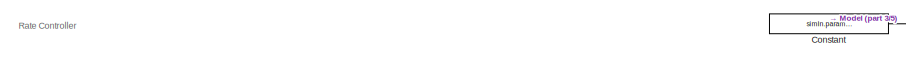
[diagram: root canvas - part 1/5, top right region]
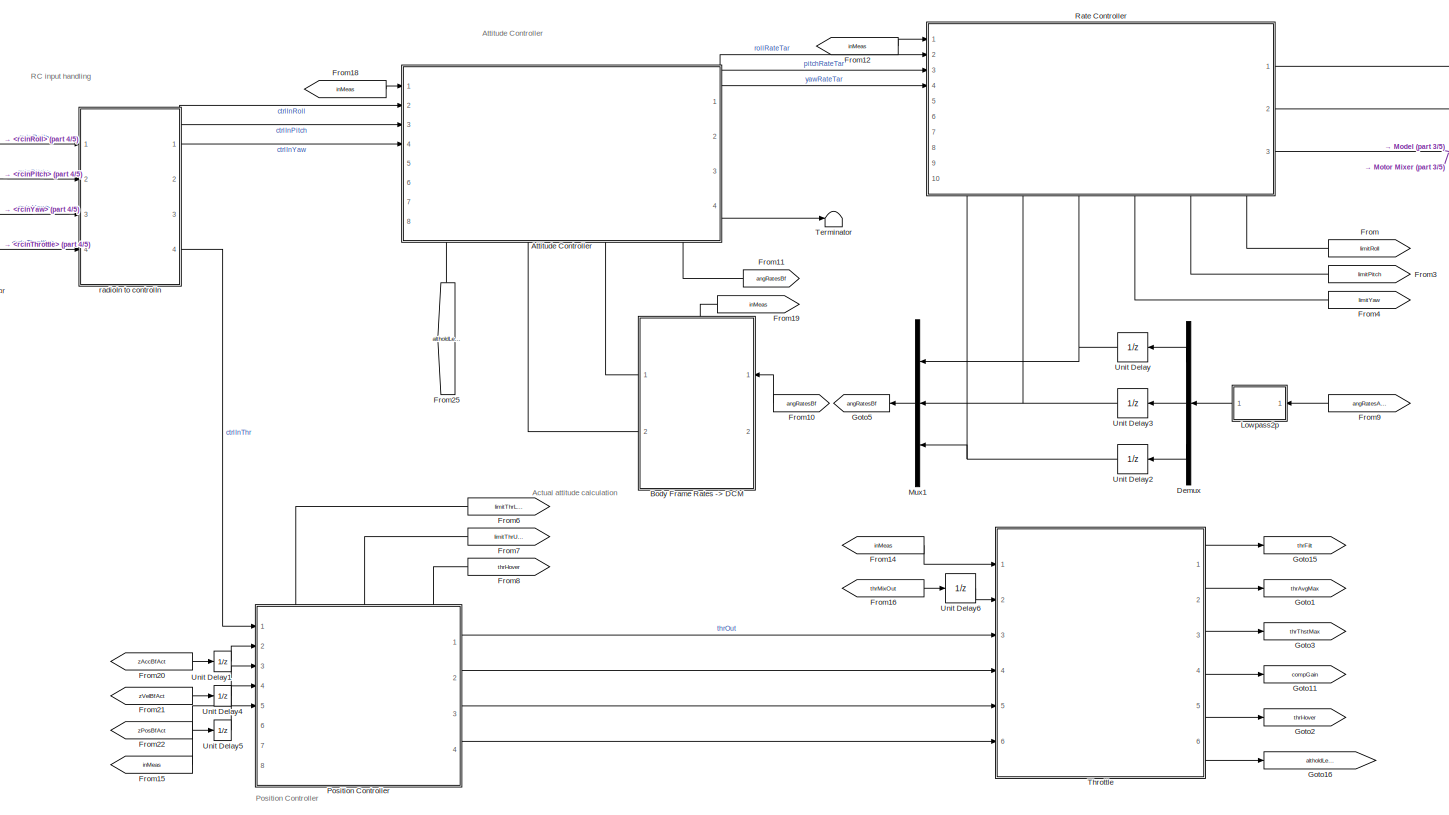
[diagram: root canvas - part 2/5, center side, full height]
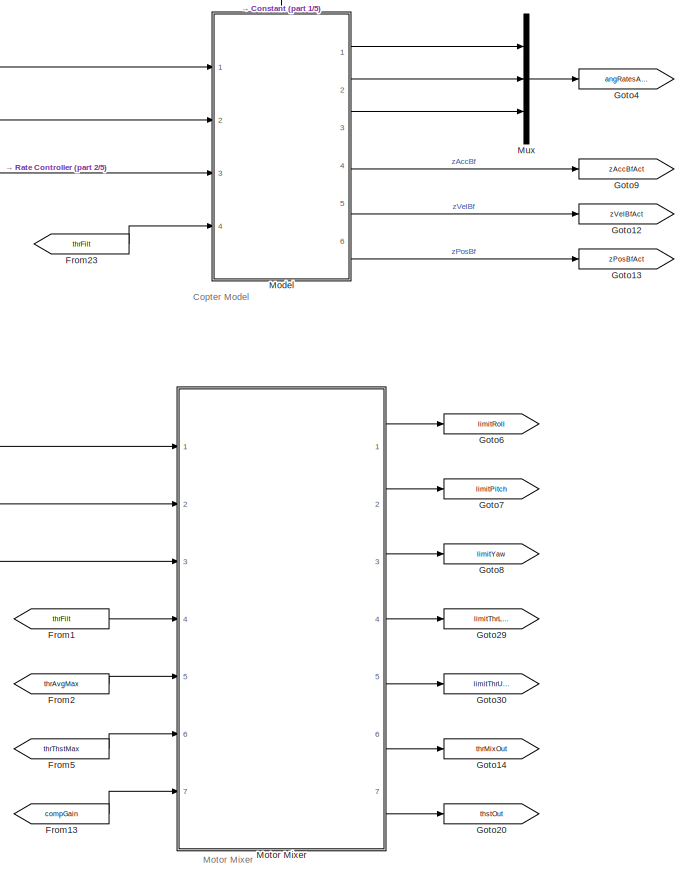
[diagram: root canvas - part 3/5, right side, full height]
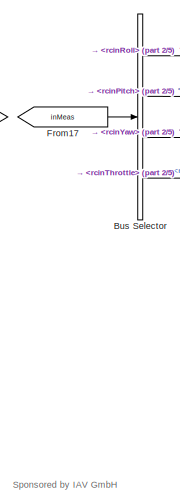
[diagram: root canvas - part 4/5, middle left region]
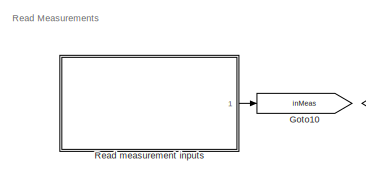
[diagram: root canvas - part 5/5, top left region]
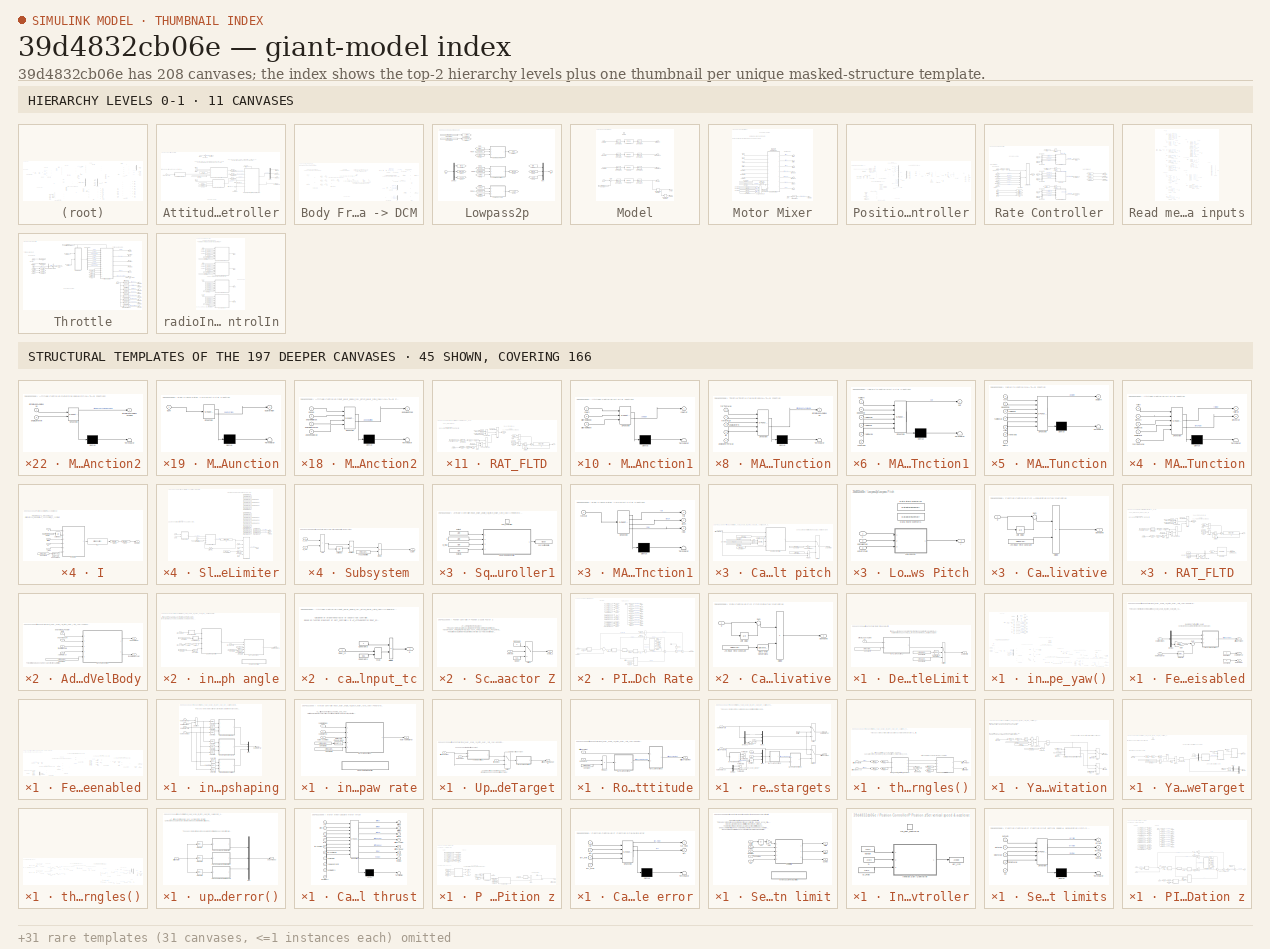
[diagram: thumbnail index - top-2 hierarchy levels (11 canvases) + 45 structural-template representatives of the remaining 197 canvases]
MODEL slx_39d4832cb06e
KIND model
CONFIG AbsTol = auto
CONFIG EnableMultiTasking = off
CONFIG FixedStep = simIn.param.dt
CONFIG MaxStep = auto
CONFIG MinStep = auto
CONFIG RelTol = 1e-3
CONFIG SampleTimeConstraint = Unconstrained
CONFIG SolverName = FixedStepAuto
CONFIG StartTime = 0.0
CONFIG StopTime = simIn.param.timeEnd
BLOCK [SubSystem] Attitude Controller
  NameLocation = top
  PortSchema = {"entries":[{"content":{"sides":[{"content":{"connectorIds":["In1","In2","In3","In4"]},"type":"ConnectorPlacement.EquallySpacedRectSide","uuid":"be329309-f60f-4247-8f12-99293f1f15e2"},{"content":{"connectorIds":["Out1","Out2","Out3","Out4"],"side":"RIGHT"},"type":"ConnectorPlacement.EquallySpacedRectSide","uuid":"c2d00d61-d122-496e-b903-ccd22f2a218f"},{"content":{"connectorIds":[],"side":"TOP"},"t...<+446ch>
  Ports = [8, 4]
  RequestExecContextInheritance = off
BLOCK [BusSelector] Attitude Controller/Bus Selector
  OutputSignals = CTUN.thrInMeas
  Ports = [1, 1]
BLOCK [Constant] Attitude Controller/Constant
  Value = simIn.param.ANGLE_MAX
BLOCK [Constant] Attitude Controller/Constant1
  Value = simIn.param.PILOT_Y_EXPO
BLOCK [Constant] Attitude Controller/Constant2
  Value = simIn.param.PILOT_Y_RATE
BLOCK [Constant] Attitude Controller/Constant3
  Value = simIn.param.RCIN.ROLL_PITCH_YAW_INPUT_MAX
BLOCK [Demux] Attitude Controller/Demux
  Outputs = 3
  Ports = [1, 3]
BLOCK [SubSystem] Attitude Controller/Determine angleLimit
  Ports = [1, 1]
  RequestExecContextInheritance = off
BLOCK [Reference] Attitude Controller/Determine angleLimit/Compare To Constant  REF=simulink/Logic and Bit
Operations/Compare
To Constant
  Ports = [1, 1]
  SourceBlock = simulink/Logic and Bit\nOperations/Compare\nTo Constant
  SourceProductBaseCode = SL
  SourceType = Compare To Constant
BLOCK [Constant] Attitude Controller/Determine angleLimit/Constant4
  Value = simIn.param.ATC.ANGLE_LIMIT_MIN
BLOCK [Constant] Attitude Controller/Determine angleLimit/Constant5
  Value = simIn.param.ANGLE_MAX
BLOCK [Constant] Attitude Controller/Determine angleLimit/Constant6
  Value = simIn.param.MODE.ModeNr
BLOCK [SubSystem] Attitude Controller/Determine angleLimit/MATLAB Function2
  ErrorFcn = Stateflow.Translate.translate
  PermitHierarchicalResolution = ExplicitOnly
  Ports = [2, 1]
  RequestExecContextInheritance = off
  SFBlockType = MATLAB Function
  TreatAsAtomicUnit = on
BLOCK [Demux] Attitude Controller/Determine angleLimit/MATLAB Function2/ Demux 
  Outputs = 1
  Ports = [1, 1]
BLOCK [S-Function] Attitude Controller/Determine angleLimit/MATLAB Function2/ SFunction 
  EnableBusSupport = on
  FunctionName = sf_sfun
  PortCounts = [2 2]
  Ports = [2, 2]
  SFcnIsStateOwnerBlock = off
  SFunctionDeploymentMode = off
  Tag = Stateflow S-Function 104
BLOCK [Terminator] Attitude Controller/Determine angleLimit/MATLAB Function2/ Terminator 
BLOCK [Inport] Attitude Controller/Determine angleLimit/MATLAB Function2/altholdLeanAngleMax
BLOCK [Outport] Attitude Controller/Determine angleLimit/MATLAB Function2/altholdLeanAngleMaxCDeg
BLOCK [Inport] Attitude Controller/Determine angleLimit/MATLAB Function2/angleLimitMin
  Port = 2
BLOCK [Switch] Attitude Controller/Determine angleLimit/Switch
  Criteria = u2 > Threshold
  InputSameDT = off
  SaturateOnIntegerOverflow = off
BLOCK [Inport] Attitude Controller/Determine angleLimit/altholdLeanAngleMax
BLOCK [Outport] Attitude Controller/Determine angleLimit/angleLimit
BLOCK [From] Attitude Controller/From
  GotoTag = throttle
BLOCK [Goto] Attitude Controller/Goto
  GotoTag = throttle
BLOCK [SubSystem] Attitude Controller/MATLAB Function
  ErrorFcn = Stateflow.Translate.translate
  PermitHierarchicalResolution = ExplicitOnly
  Ports = [5, 2]
  RequestExecContextInheritance = off
  SFBlockType = MATLAB Function
  TreatAsAtomicUnit = on
BLOCK [Demux] Attitude Controller/MATLAB Function/ Demux 
  Outputs = 1
  Ports = [1, 1]
BLOCK [S-Function] Attitude Controller/MATLAB Function/ SFunction 
  EnableBusSupport = on
  FunctionName = sf_sfun
  PortCounts = [5 3]
  Ports = [5, 3]
  SFcnIsStateOwnerBlock = off
  SFunctionDeploymentMode = off
  Tag = Stateflow S-Function 35
BLOCK [Terminator] Attitude Controller/MATLAB Function/ Terminator 
BLOCK [Inport] Attitude Controller/MATLAB Function/angleLimit
  Port = 4
BLOCK [Inport] Attitude Controller/MATLAB Function/angleMax
  Port = 3
BLOCK [Inport] Attitude Controller/MATLAB Function/pitchIn
  Port = 2
BLOCK [Outport] Attitude Controller/MATLAB Function/pitchOut
  Port = 2
BLOCK [Inport] Attitude Controller/MATLAB Function/rollIn
BLOCK [Outport] Attitude Controller/MATLAB Function/rollOut
BLOCK [Inport] Attitude Controller/MATLAB Function/rpyInputMax
  Port = 5
BLOCK [SubSystem] Attitude Controller/MATLAB Function1
  ErrorFcn = Stateflow.Translate.translate
  PermitHierarchicalResolution = ExplicitOnly
  Ports = [3, 1]
  RequestExecContextInheritance = off
  SFBlockType = MATLAB Function
  TreatAsAtomicUnit = on
BLOCK [Demux] Attitude Controller/MATLAB Function1/ Demux 
  Outputs = 1
  Ports = [1, 1]
BLOCK [S-Function] Attitude Controller/MATLAB Function1/ SFunction 
  EnableBusSupport = on
  FunctionName = sf_sfun
  PortCounts = [3 2]
  Ports = [3, 2]
  SFcnIsStateOwnerBlock = off
  SFunctionDeploymentMode = off
  Tag = Stateflow S-Function 36
BLOCK [Terminator] Attitude Controller/MATLAB Function1/ Terminator 
BLOCK [Inport] Attitude Controller/MATLAB Function1/pilotYawExpo
  Port = 2
BLOCK [Inport] Attitude Controller/MATLAB Function1/pilotYawRate
  Port = 3
BLOCK [Inport] Attitude Controller/MATLAB Function1/yawIn
BLOCK [Outport] Attitude Controller/MATLAB Function1/yawOut
BLOCK [Inport] Attitude Controller/altholdLeanAngleMax
  Port = 5
BLOCK [Inport] Attitude Controller/angRatesBf
  Port = 8
BLOCK [Inport] Attitude Controller/attitudeBodyAct
  Port = 7
BLOCK [Gain] Attitude Controller/cdeg to radians
  Gain = 0.01*pi/180
BLOCK [Gain] Attitude Controller/cdeg to radians1
  Gain = 0.01*pi/180
BLOCK [Gain] Attitude Controller/cdeg//s to radians//s
  Gain = 0.01*pi/180
BLOCK [Inport] Attitude Controller/ctrlInPitch
  Port = 3
BLOCK [Inport] Attitude Controller/ctrlInRoll
  Port = 2
BLOCK [Inport] Attitude Controller/ctrlInYaw
  Port = 4
BLOCK [Inport] Attitude Controller/eulerAngleAct
  Port = 6
BLOCK [Outport] Attitude Controller/feedforwardScaler
  Port = 4
BLOCK [Inport] Attitude Controller/inMeas
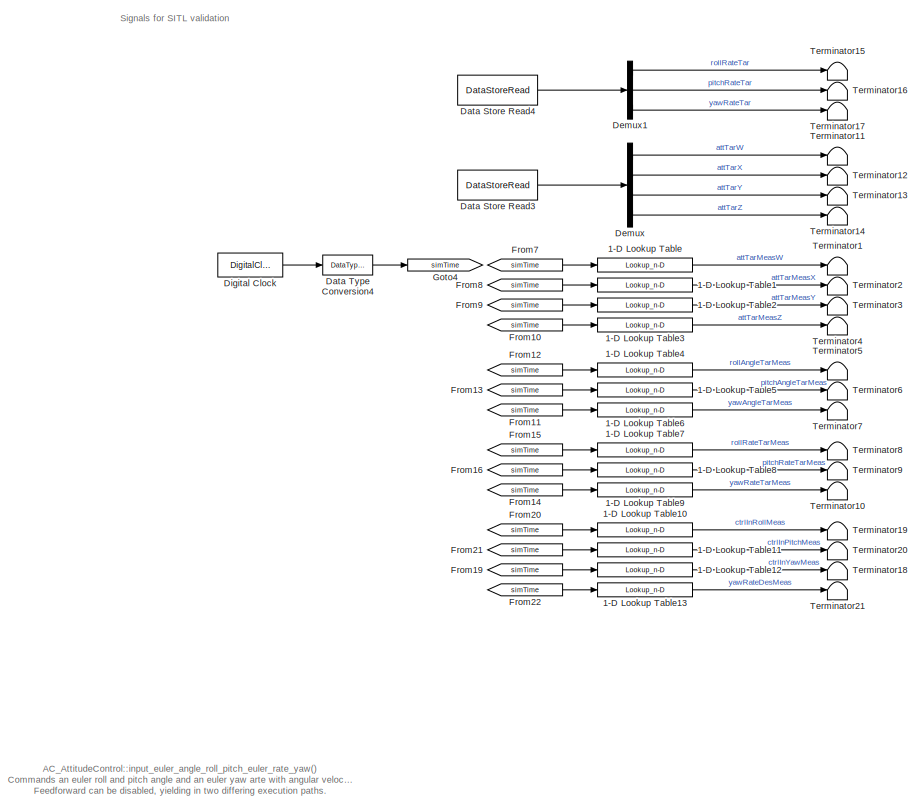
[diagram: Attitude Controller/input_euler_angle_roll_pitch_euler_rate_yaw() - part 1/4, top left region]
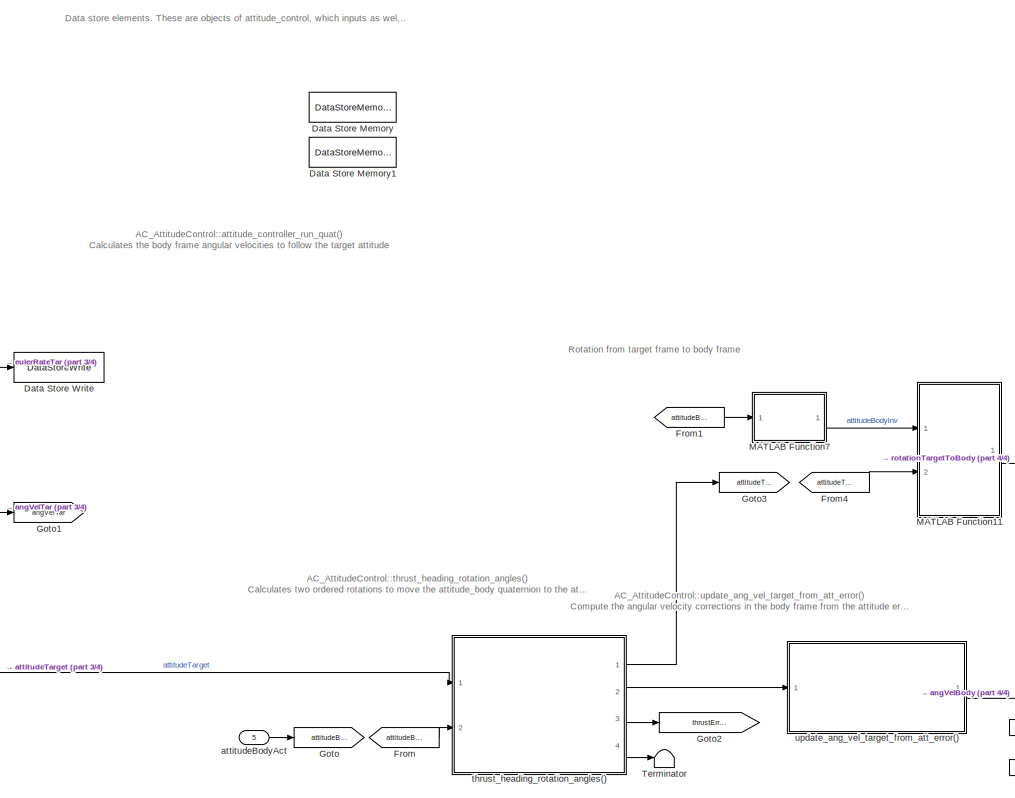
[diagram: Attitude Controller/input_euler_angle_roll_pitch_euler_rate_yaw() - part 2/4, bottom center region]
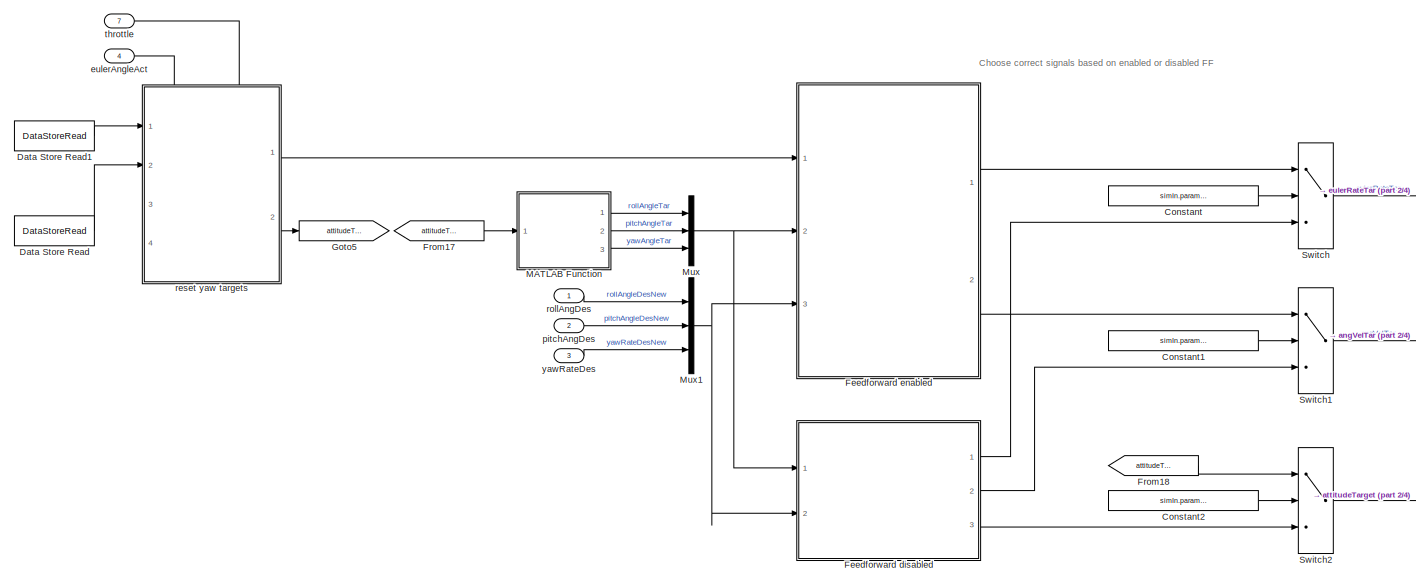
[diagram: Attitude Controller/input_euler_angle_roll_pitch_euler_rate_yaw() - part 3/4, bottom left region]
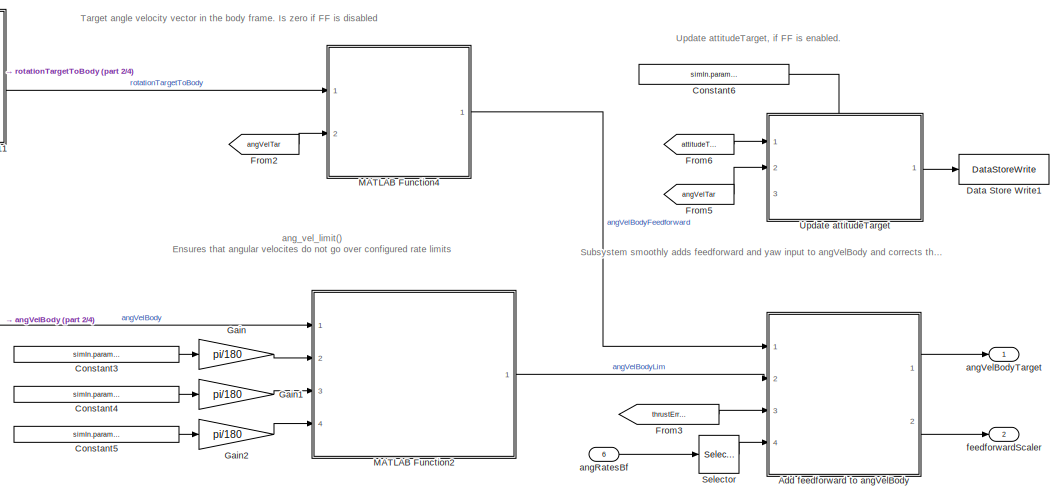
[diagram: Attitude Controller/input_euler_angle_roll_pitch_euler_rate_yaw() - part 4/4, bottom right region]
BLOCK [SubSystem] Attitude Controller/input_euler_angle_roll_pitch_euler_rate_yaw()
  PortSchema = {"entries":[{"content":{"sides":[{"content":{"connectorIds":["In1","In2","In3","In4","In5","In6"]},"type":"ConnectorPlacement.EquallySpacedRectSide","uuid":"a7f2758f-6981-4691-a616-9de398d31e49"},{"content":{"connectorIds":["Out1","Out2"],"side":"RIGHT"},"type":"ConnectorPlacement.EquallySpacedRectSide","uuid":"ab82c46a-21a0-4466-8d5f-7cb35c1d2ba7"},{"content":{"connectorIds":["In7"],"side":"TOP"}...<+282ch>
  Ports = [7, 2]
  RequestExecContextInheritance = off
BLOCK [Lookup_n-D] Attitude Controller/input_euler_angle_roll_pitch_euler_rate_yaw()/1-D Lookup Table
  BreakpointsForDimension1 = simIn.signals.ATT.Time
  Commented = on
  InputPortMap = u0
  InternalRulePriority = Speed
  NumberOfTableDimensions = 1
  Ports = [1, 1]
  RndMeth = Simplest
  Table = simIn.signals.ATT.attTarMeasW
BLOCK [Lookup_n-D] Attitude Controller/input_euler_angle_roll_pitch_euler_rate_yaw()/1-D Lookup Table1
  BreakpointsForDimension1 = simIn.signals.ATT.Time
  Commented = on
  InputPortMap = u0
  InternalRulePriority = Speed
  NumberOfTableDimensions = 1
  Ports = [1, 1]
  RndMeth = Simplest
  Table = simIn.signals.ATT.attTarMeasX
BLOCK [Lookup_n-D] Attitude Controller/input_euler_angle_roll_pitch_euler_rate_yaw()/1-D Lookup Table10
  BreakpointsForDimension1 = simIn.signals.ATT.Time
  Commented = on
  InputPortMap = u0
  InternalRulePriority = Speed
  NumberOfTableDimensions = 1
  Ports = [1, 1]
  RndMeth = Simplest
  Table = simIn.signals.ATT.CtrlRollIn
BLOCK [Lookup_n-D] Attitude Controller/input_euler_angle_roll_pitch_euler_rate_yaw()/1-D Lookup Table11
  BreakpointsForDimension1 = simIn.signals.ATT.Time
  Commented = on
  InputPortMap = u0
  InternalRulePriority = Speed
  NumberOfTableDimensions = 1
  Ports = [1, 1]
  RndMeth = Simplest
  Table = simIn.signals.ATT.CtrlPitchIn
BLOCK [Lookup_n-D] Attitude Controller/input_euler_angle_roll_pitch_euler_rate_yaw()/1-D Lookup Table12
  BreakpointsForDimension1 = simIn.signals.ATT.Time
  Commented = on
  InputPortMap = u0
  InternalRulePriority = Speed
  NumberOfTableDimensions = 1
  Ports = [1, 1]
  RndMeth = Simplest
  Table = simIn.signals.ATT.CtrlYawIn
BLOCK [Lookup_n-D] Attitude Controller/input_euler_angle_roll_pitch_euler_rate_yaw()/1-D Lookup Table13
  BreakpointsForDimension1 = simIn.signals.ATT.Time
  Commented = on
  InputPortMap = u0
  InternalRulePriority = Speed
  NumberOfTableDimensions = 1
  Ports = [1, 1]
  RndMeth = Simplest
  Table = simIn.signals.ATT.yawRateDesMeas
BLOCK [Lookup_n-D] Attitude Controller/input_euler_angle_roll_pitch_euler_rate_yaw()/1-D Lookup Table2
  BreakpointsForDimension1 = simIn.signals.ATT.Time
  Commented = on
  InputPortMap = u0
  InternalRulePriority = Speed
  NumberOfTableDimensions = 1
  Ports = [1, 1]
  RndMeth = Simplest
  Table = simIn.signals.ATT.attTarMeasY
BLOCK [Lookup_n-D] Attitude Controller/input_euler_angle_roll_pitch_euler_rate_yaw()/1-D Lookup Table3
  BreakpointsForDimension1 = simIn.signals.ATT.Time
  Commented = on
  InputPortMap = u0
  InternalRulePriority = Speed
  NumberOfTableDimensions = 1
  Ports = [1, 1]
  RndMeth = Simplest
  Table = simIn.signals.ATT.attTarMeasZ
BLOCK [Lookup_n-D] Attitude Controller/input_euler_angle_roll_pitch_euler_rate_yaw()/1-D Lookup Table4
  BreakpointsForDimension1 = simIn.signals.ATT.Time
  Commented = on
  InputPortMap = u0
  InternalRulePriority = Speed
  NumberOfTableDimensions = 1
  Ports = [1, 1]
  RndMeth = Simplest
  Table = simIn.signals.ATT.eulerAngTarMeasX
BLOCK [Lookup_n-D] Attitude Controller/input_euler_angle_roll_pitch_euler_rate_yaw()/1-D Lookup Table5
  BreakpointsForDimension1 = simIn.signals.ATT.Time
  Commented = on
  InputPortMap = u0
  InternalRulePriority = Speed
  NumberOfTableDimensions = 1
  Ports = [1, 1]
  RndMeth = Simplest
  Table = simIn.signals.ATT.eulerAngTarMeasY
BLOCK [Lookup_n-D] Attitude Controller/input_euler_angle_roll_pitch_euler_rate_yaw()/1-D Lookup Table6
  BreakpointsForDimension1 = simIn.signals.ATT.Time
  Commented = on
  InputPortMap = u0
  InternalRulePriority = Speed
  NumberOfTableDimensions = 1
  Ports = [1, 1]
  RndMeth = Simplest
  Table = simIn.signals.ATT.eulerAngTarMeasZ
BLOCK [Lookup_n-D] Attitude Controller/input_euler_angle_roll_pitch_euler_rate_yaw()/1-D Lookup Table7
  BreakpointsForDimension1 = simIn.signals.ATT.Time
  Commented = on
  InputPortMap = u0
  InternalRulePriority = Speed
  NumberOfTableDimensions = 1
  Ports = [1, 1]
  RndMeth = Simplest
  Table = simIn.signals.ATT.eulerRatTarMeasX
BLOCK [Lookup_n-D] Attitude Controller/input_euler_angle_roll_pitch_euler_rate_yaw()/1-D Lookup Table8
  BreakpointsForDimension1 = simIn.signals.ATT.Time
  Commented = on
  InputPortMap = u0
  InternalRulePriority = Speed
  NumberOfTableDimensions = 1
  Ports = [1, 1]
  RndMeth = Simplest
  Table = simIn.signals.ATT.eulerRatTarMeasY
BLOCK [Lookup_n-D] Attitude Controller/input_euler_angle_roll_pitch_euler_rate_yaw()/1-D Lookup Table9
  BreakpointsForDimension1 = simIn.signals.ATT.Time
  Commented = on
  InputPortMap = u0
  InternalRulePriority = Speed
  NumberOfTableDimensions = 1
  Ports = [1, 1]
  RndMeth = Simplest
  Table = simIn.signals.ATT.eulerRatTarMeasZ
BLOCK [SubSystem] Attitude Controller/input_euler_angle_roll_pitch_euler_rate_yaw()/Add feedforward to angVelBody
  Ports = [4, 2]
  RequestExecContextInheritance = off
BLOCK [Constant] Attitude Controller/input_euler_angle_roll_pitch_euler_rate_yaw()/Add feedforward to angVelBody/Constant
  Value = simIn.param.ATC.THRUST_ERROR_ANGLE
BLOCK [SubSystem] Attitude Controller/input_euler_angle_roll_pitch_euler_rate_yaw()/Add feedforward to angVelBody/MATLAB Function
  ErrorFcn = Stateflow.Translate.translate
  PermitHierarchicalResolution = ExplicitOnly
  Ports = [5, 2]
  RequestExecContextInheritance = off
  SFBlockType = MATLAB Function
  TreatAsAtomicUnit = on
BLOCK [Demux] Attitude Controller/input_euler_angle_roll_pitch_euler_rate_yaw()/Add feedforward to angVelBody/MATLAB Function/ Demux 
  Outputs = 1
  Ports = [1, 1]
BLOCK [S-Function] Attitude Controller/input_euler_angle_roll_pitch_euler_rate_yaw()/Add feedforward to angVelBody/MATLAB Function/ SFunction 
  EnableBusSupport = on
  FunctionName = sf_sfun
  PortCounts = [5 3]
  Ports = [5, 3]
  SFcnIsStateOwnerBlock = off
  SFunctionDeploymentMode = off
  Tag = Stateflow S-Function 78
BLOCK [Terminator] Attitude Controller/input_euler_angle_roll_pitch_euler_rate_yaw()/Add feedforward to angVelBody/MATLAB Function/ Terminator 
BLOCK [Inport] Attitude Controller/input_euler_angle_roll_pitch_euler_rate_yaw()/Add feedforward to angVelBody/MATLAB Function/angVelBodyFeedforward
BLOCK [Inport] Attitude Controller/input_euler_angle_roll_pitch_euler_rate_yaw()/Add feedforward to angVelBody/MATLAB Function/angVelBodyIn
  Port = 2
BLOCK [Outport] Attitude Controller/input_euler_angle_roll_pitch_euler_rate_yaw()/Add feedforward to angVelBody/MATLAB Function/angVelBodyNew
BLOCK [Outport] Attitude Controller/input_euler_angle_roll_pitch_euler_rate_yaw()/Add feedforward to angVelBody/MATLAB Function/feedforwardScaler
  Port = 2
BLOCK [Inport] Attitude Controller/input_euler_angle_roll_pitch_euler_rate_yaw()/Add feedforward to angVelBody/MATLAB Function/maxThrustErrorAngle4YawCorr
  Port = 5
BLOCK [Inport] Attitude Controller/input_euler_angle_roll_pitch_euler_rate_yaw()/Add feedforward to angVelBody/MATLAB Function/thrustErrorAngle
  Port = 3
BLOCK [Inport] Attitude Controller/input_euler_angle_roll_pitch_euler_rate_yaw()/Add feedforward to angVelBody/MATLAB Function/yawRateAct
  Port = 4
BLOCK [Outport] Attitude Controller/input_euler_angle_roll_pitch_euler_rate_yaw()/Add feedforward to angVelBody/angVelBody
BLOCK [Inport] Attitude Controller/input_euler_angle_roll_pitch_euler_rate_yaw()/Add feedforward to angVelBody/angVelBodyFeedforward
BLOCK [Inport] Attitude Controller/input_euler_angle_roll_pitch_euler_rate_yaw()/Add feedforward to angVelBody/angVelBodyIn
  Port = 2
BLOCK [Outport] Attitude Controller/input_euler_angle_roll_pitch_euler_rate_yaw()/Add feedforward to angVelBody/feedforwardScaler
  Port = 2
BLOCK [Inport] Attitude Controller/input_euler_angle_roll_pitch_euler_rate_yaw()/Add feedforward to angVelBody/thurstErrorAngle
  Port = 3
BLOCK [Inport] Attitude Controller/input_euler_angle_roll_pitch_euler_rate_yaw()/Add feedforward to angVelBody/yawRateAct
  Port = 4
BLOCK [Constant] Attitude Controller/input_euler_angle_roll_pitch_euler_rate_yaw()/Constant
  Value = simIn.param.ATC.RATE_FF_ENAB
BLOCK [Constant] Attitude Controller/input_euler_angle_roll_pitch_euler_rate_yaw()/Constant1
  Value = simIn.param.ATC.RATE_FF_ENAB
BLOCK [Constant] Attitude Controller/input_euler_angle_roll_pitch_euler_rate_yaw()/Constant2
  Value = simIn.param.ATC.RATE_FF_ENAB
BLOCK [Constant] Attitude Controller/input_euler_angle_roll_pitch_euler_rate_yaw()/Constant3
  Value = simIn.param.ATC.RATE_R_MAX
BLOCK [Constant] Attitude Controller/input_euler_angle_roll_pitch_euler_rate_yaw()/Constant4
  Value = simIn.param.ATC.RATE_P_MAX
BLOCK [Constant] Attitude Controller/input_euler_angle_roll_pitch_euler_rate_yaw()/Constant5
  Value = simIn.param.ATC.RATE_Y_MAX
BLOCK [Constant] Attitude Controller/input_euler_angle_roll_pitch_euler_rate_yaw()/Constant6
  Value = simIn.param.ATC.RATE_FF_ENAB
BLOCK [DataStoreMemory] Attitude Controller/input_euler_angle_roll_pitch_euler_rate_yaw()/Data Store Memory
  DataStoreName = attitudeTarget
  InitialValue = simIn.init.ATT.attitudeTarget
  OutDataTypeStr = single
  ReadBeforeWriteMsg = warning
  ShowAdditionalParam = off
  WriteAfterReadMsg = warning
  WriteAfterWriteMsg = warning
BLOCK [DataStoreMemory] Attitude Controller/input_euler_angle_roll_pitch_euler_rate_yaw()/Data Store Memory1
  DataStoreName = eulerRateTar
  InitialValue = simIn.init.ATT.eulerRateTar
  OutDataTypeStr = single
  ReadBeforeWriteMsg = warning
  ShowAdditionalParam = off
  WriteAfterReadMsg = warning
  WriteAfterWriteMsg = warning
BLOCK [DataStoreRead] Attitude Controller/input_euler_angle_roll_pitch_euler_rate_yaw()/Data Store Read
  DataStoreName = attitudeTarget
  IndexOptions = Index vector (dialog)
  Indices = 1
  OutputSizes = 1
  Ports = [0, 1]
BLOCK [DataStoreRead] Attitude Controller/input_euler_angle_roll_pitch_euler_rate_yaw()/Data Store Read1
  DataStoreName = eulerRateTar
  IndexOptions = Index vector (dialog)
  Indices = 1
  OutputSizes = 1
  Ports = [0, 1]
BLOCK [DataStoreRead] Attitude Controller/input_euler_angle_roll_pitch_euler_rate_yaw()/Data Store Read3
  Commented = on
  DataStoreName = attitudeTarget
  IndexOptions = Index vector (dialog)
  Indices = 1
  OutputSizes = 1
  Ports = [0, 1]
BLOCK [DataStoreRead] Attitude Controller/input_euler_angle_roll_pitch_euler_rate_yaw()/Data Store Read4
  Commented = on
  DataStoreName = eulerRateTar
  IndexOptions = Index vector (dialog)
  Indices = 1
  OutputSizes = 1
  Ports = [0, 1]
BLOCK [DataStoreWrite] Attitude Controller/input_euler_angle_roll_pitch_euler_rate_yaw()/Data Store Write
  DataStoreName = eulerRateTar
  IndexOptions = Index vector (dialog)
  Indices = 1
  OutputSizes = 1
  Ports = [1]
BLOCK [DataStoreWrite] Attitude Controller/input_euler_angle_roll_pitch_euler_rate_yaw()/Data Store Write1
  DataStoreName = attitudeTarget
  IndexOptions = Index vector (dialog)
  Indices = 1
  OutputSizes = 1
  Ports = [1]
BLOCK [DataTypeConversion] Attitude Controller/input_euler_angle_roll_pitch_euler_rate_yaw()/Data Type Conversion4
  Commented = on
  OutDataTypeStr = single
  RndMeth = Floor
  SaturateOnIntegerOverflow = off
BLOCK [Demux] Attitude Controller/input_euler_angle_roll_pitch_euler_rate_yaw()/Demux
  Commented = on
  Ports = [1, 4]
BLOCK [Demux] Attitude Controller/input_euler_angle_roll_pitch_euler_rate_yaw()/Demux1
  Commented = on
  Outputs = 3
  Ports = [1, 3]
BLOCK [DigitalClock] Attitude Controller/input_euler_angle_roll_pitch_euler_rate_yaw()/Digital Clock
  Commented = on
  SampleTime = sim.param.dt
BLOCK [SubSystem] Attitude Controller/input_euler_angle_roll_pitch_euler_rate_yaw()/Feedforward disabled
  Ports = [2, 3]
  RequestExecContextInheritance = off
BLOCK [Constant] Attitude Controller/input_euler_angle_roll_pitch_euler_rate_yaw()/Feedforward disabled/Constant
  OutDataTypeStr = single
  Value = 0
BLOCK [Constant] Attitude Controller/input_euler_angle_roll_pitch_euler_rate_yaw()/Feedforward disabled/Constant1
  OutDataTypeStr = single
  Value = 0
BLOCK [Demux] Attitude Controller/input_euler_angle_roll_pitch_euler_rate_yaw()/Feedforward disabled/Demux
  Outputs = 3
  Ports = [1, 3]
BLOCK [Gain] Attitude Controller/input_euler_angle_roll_pitch_euler_rate_yaw()/Feedforward disabled/Gain
  Gain = simIn.param.dt
BLOCK [SubSystem] Attitude Controller/input_euler_angle_roll_pitch_euler_rate_yaw()/Feedforward disabled/MATLAB Function
  ErrorFcn = Stateflow.Translate.translate
  PermitHierarchicalResolution = ExplicitOnly
  Ports = [3, 1]
  RequestExecContextInheritance = off
  SFBlockType = MATLAB Function
  TreatAsAtomicUnit = on
BLOCK [Demux] Attitude Controller/input_euler_angle_roll_pitch_euler_rate_yaw()/Feedforward disabled/MATLAB Function/ Demux 
  Outputs = 1
  Ports = [1, 1]
BLOCK [S-Function] Attitude Controller/input_euler_angle_roll_pitch_euler_rate_yaw()/Feedforward disabled/MATLAB Function/ SFunction 
  EnableBusSupport = on
  FunctionName = sf_sfun
  PortCounts = [3 2]
  Ports = [3, 2]
  SFcnIsStateOwnerBlock = off
  SFunctionDeploymentMode = off
  Tag = Stateflow S-Function 49
BLOCK [Terminator] Attitude Controller/input_euler_angle_roll_pitch_euler_rate_yaw()/Feedforward disabled/MATLAB Function/ Terminator 
BLOCK [Inport] Attitude Controller/input_euler_angle_roll_pitch_euler_rate_yaw()/Feedforward disabled/MATLAB Function/pitch
  Port = 2
BLOCK [Outport] Attitude Controller/input_euler_angle_roll_pitch_euler_rate_yaw()/Feedforward disabled/MATLAB Function/q
BLOCK [Inport] Attitude Controller/input_euler_angle_roll_pitch_euler_rate_yaw()/Feedforward disabled/MATLAB Function/roll
BLOCK [Inport] Attitude Controller/input_euler_angle_roll_pitch_euler_rate_yaw()/Feedforward disabled/MATLAB Function/yaw
  Port = 3
BLOCK [Selector] Attitude Controller/input_euler_angle_roll_pitch_euler_rate_yaw()/Feedforward disabled/Selector
  IndexOptions = Index vector (dialog)
  Indices = [3]
  InputPortWidth = 3
  OutputSizes = 1
  Ports = [1, 1]
BLOCK [Sum] Attitude Controller/input_euler_angle_roll_pitch_euler_rate_yaw()/Feedforward disabled/Sum
  Inputs = |++
  Ports = [2, 1]
BLOCK [Outport] Attitude Controller/input_euler_angle_roll_pitch_euler_rate_yaw()/Feedforward disabled/angVelTar
  Port = 2
BLOCK [Outport] Attitude Controller/input_euler_angle_roll_pitch_euler_rate_yaw()/Feedforward disabled/attitudeTarget
  Port = 3
BLOCK [Inport] Attitude Controller/input_euler_angle_roll_pitch_euler_rate_yaw()/Feedforward disabled/eulerAngleTar
BLOCK [Inport] Attitude Controller/input_euler_angle_roll_pitch_euler_rate_yaw()/Feedforward disabled/eulerInputDes
  Port = 2
BLOCK [Outport] Attitude Controller/input_euler_angle_roll_pitch_euler_rate_yaw()/Feedforward disabled/eulerRateTar
BLOCK [SubSystem] Attitude Controller/input_euler_angle_roll_pitch_euler_rate_yaw()/Feedforward enabled
  Ports = [3, 2]
  RequestExecContextInheritance = off
BLOCK [Constant] Attitude Controller/input_euler_angle_roll_pitch_euler_rate_yaw()/Feedforward enabled/Constant
  Value = simIn.param.ATC.ACCEL_R_MAX
BLOCK [Constant] Attitude Controller/input_euler_angle_roll_pitch_euler_rate_yaw()/Feedforward enabled/Constant1
  Value = simIn.param.ATC.ACCEL_P_MAX
BLOCK [Constant] Attitude Controller/input_euler_angle_roll_pitch_euler_rate_yaw()/Feedforward enabled/Constant2
  Value = simIn.param.ATC.ACCEL_Y_MAX
BLOCK [Constant] Attitude Controller/input_euler_angle_roll_pitch_euler_rate_yaw()/Feedforward enabled/Constant3
  Value = simIn.param.ATC.RATE_R_MAX
BLOCK [Constant] Attitude Controller/input_euler_angle_roll_pitch_euler_rate_yaw()/Feedforward enabled/Constant4
  Value = simIn.param.ATC.RATE_P_MAX
BLOCK [Constant] Attitude Controller/input_euler_angle_roll_pitch_euler_rate_yaw()/Feedforward enabled/Constant5
  Value = simIn.param.ATC.RATE_Y_MAX
BLOCK [From] Attitude Controller/input_euler_angle_roll_pitch_euler_rate_yaw()/Feedforward enabled/From
  GotoTag = eulerAngleTar
BLOCK [From] Attitude Controller/input_euler_angle_roll_pitch_euler_rate_yaw()/Feedforward enabled/From1
  GotoTag = eulerAngleTar
BLOCK [From] Attitude Controller/input_euler_angle_roll_pitch_euler_rate_yaw()/Feedforward enabled/From2
  GotoTag = angVelTar
BLOCK [From] Attitude Controller/input_euler_angle_roll_pitch_euler_rate_yaw()/Feedforward enabled/From3
  GotoTag = angVelTar
BLOCK [Gain] Attitude Controller/input_euler_angle_roll_pitch_euler_rate_yaw()/Feedforward enabled/Gain
  Gain = pi/180
BLOCK [Gain] Attitude Controller/input_euler_angle_roll_pitch_euler_rate_yaw()/Feedforward enabled/Gain1
  Gain = pi/180
BLOCK [Gain] Attitude Controller/input_euler_angle_roll_pitch_euler_rate_yaw()/Feedforward enabled/Gain2
  Gain = pi/180
BLOCK [Goto] Attitude Controller/input_euler_angle_roll_pitch_euler_rate_yaw()/Feedforward enabled/Goto
  GotoTag = eulerAngleTar
BLOCK [Goto] Attitude Controller/input_euler_angle_roll_pitch_euler_rate_yaw()/Feedforward enabled/Goto1
  GotoTag = angVelTar
BLOCK [SubSystem] Attitude Controller/input_euler_angle_roll_pitch_euler_rate_yaw()/Feedforward enabled/MATLAB Function
  ErrorFcn = Stateflow.Translate.translate
  PermitHierarchicalResolution = ExplicitOnly
  Ports = [2, 1]
  RequestExecContextInheritance = off
  SFBlockType = MATLAB Function
  TreatAsAtomicUnit = on
BLOCK [Demux] Attitude Controller/input_euler_angle_roll_pitch_euler_rate_yaw()/Feedforward enabled/MATLAB Function/ Demux 
  Outputs = 1
  Ports = [1, 1]
BLOCK [S-Function] Attitude Controller/input_euler_angle_roll_pitch_euler_rate_yaw()/Feedforward enabled/MATLAB Function/ SFunction 
  EnableBusSupport = on
  FunctionName = sf_sfun
  PortCounts = [2 2]
  Ports = [2, 2]
  SFcnIsStateOwnerBlock = off
  SFunctionDeploymentMode = off
  Tag = Stateflow S-Function 38
BLOCK [Terminator] Attitude Controller/input_euler_angle_roll_pitch_euler_rate_yaw()/Feedforward enabled/MATLAB Function/ Terminator 
BLOCK [Outport] Attitude Controller/input_euler_angle_roll_pitch_euler_rate_yaw()/Feedforward enabled/MATLAB Function/eulerAccelMaxBF
BLOCK [Inport] Attitude Controller/input_euler_angle_roll_pitch_euler_rate_yaw()/Feedforward enabled/MATLAB Function/eulerAccelMaxEF
  Port = 2
BLOCK [Inport] Attitude Controller/input_euler_angle_roll_pitch_euler_rate_yaw()/Feedforward enabled/MATLAB Function/eulerAngleTar
BLOCK [SubSystem] Attitude Controller/input_euler_angle_roll_pitch_euler_rate_yaw()/Feedforward enabled/MATLAB Function1
  ErrorFcn = Stateflow.Translate.translate
  PermitHierarchicalResolution = ExplicitOnly
  Ports = [2, 1]
  RequestExecContextInheritance = off
  SFBlockType = MATLAB Function
  TreatAsAtomicUnit = on
BLOCK [Demux] Attitude Controller/input_euler_angle_roll_pitch_euler_rate_yaw()/Feedforward enabled/MATLAB Function1/ Demux 
  Outputs = 1
  Ports = [1, 1]
BLOCK [S-Function] Attitude Controller/input_euler_angle_roll_pitch_euler_rate_yaw()/Feedforward enabled/MATLAB Function1/ SFunction 
  EnableBusSupport = on
  FunctionName = sf_sfun
  PortCounts = [2 2]
  Ports = [2, 2]
  SFcnIsStateOwnerBlock = off
  SFunctionDeploymentMode = off
  Tag = Stateflow S-Function 45
BLOCK [Terminator] Attitude Controller/input_euler_angle_roll_pitch_euler_rate_yaw()/Feedforward enabled/MATLAB Function1/ Terminator 
BLOCK [Outport] Attitude Controller/input_euler_angle_roll_pitch_euler_rate_yaw()/Feedforward enabled/MATLAB Function1/angVelTar
BLOCK [Inport] Attitude Controller/input_euler_angle_roll_pitch_euler_rate_yaw()/Feedforward enabled/MATLAB Function1/eulerAngle
BLOCK [Inport] Attitude Controller/input_euler_angle_roll_pitch_euler_rate_yaw()/Feedforward enabled/MATLAB Function1/eulerRate
  Port = 2
BLOCK [SubSystem] Attitude Controller/input_euler_angle_roll_pitch_euler_rate_yaw()/Feedforward enabled/MATLAB Function2
  ErrorFcn = Stateflow.Translate.translate
  PermitHierarchicalResolution = ExplicitOnly
  Ports = [4, 1]
  RequestExecContextInheritance = off
  SFBlockType = MATLAB Function
  TreatAsAtomicUnit = on
BLOCK [Demux] Attitude Controller/input_euler_angle_roll_pitch_euler_rate_yaw()/Feedforward enabled/MATLAB Function2/ Demux 
  Outputs = 1
  Ports = [1, 1]
BLOCK [S-Function] Attitude Controller/input_euler_angle_roll_pitch_euler_rate_yaw()/Feedforward enabled/MATLAB Function2/ SFunction 
  EnableBusSupport = on
  FunctionName = sf_sfun
  PortCounts = [4 2]
  Ports = [4, 2]
  SFcnIsStateOwnerBlock = off
  SFunctionDeploymentMode = off
  Tag = Stateflow S-Function 47
BLOCK [Terminator] Attitude Controller/input_euler_angle_roll_pitch_euler_rate_yaw()/Feedforward enabled/MATLAB Function2/ Terminator 
BLOCK [Inport] Attitude Controller/input_euler_angle_roll_pitch_euler_rate_yaw()/Feedforward enabled/MATLAB Function2/angVelPitchMax
  Port = 3
BLOCK [Inport] Attitude Controller/input_euler_angle_roll_pitch_euler_rate_yaw()/Feedforward enabled/MATLAB Function2/angVelRollMax
  Port = 2
BLOCK [Inport] Attitude Controller/input_euler_angle_roll_pitch_euler_rate_yaw()/Feedforward enabled/MATLAB Function2/angVelTar
BLOCK [Outport] Attitude Controller/input_euler_angle_roll_pitch_euler_rate_yaw()/Feedforward enabled/MATLAB Function2/angVelTarLimited
BLOCK [Inport] Attitude Controller/input_euler_angle_roll_pitch_euler_rate_yaw()/Feedforward enabled/MATLAB Function2/angVelYawMax
  Port = 4
BLOCK [SubSystem] Attitude Controller/input_euler_angle_roll_pitch_euler_rate_yaw()/Feedforward enabled/MATLAB Function3
  ErrorFcn = Stateflow.Translate.translate
  PermitHierarchicalResolution = ExplicitOnly
  Ports = [2, 1]
  RequestExecContextInheritance = off
  SFBlockType = MATLAB Function
  TreatAsAtomicUnit = on
BLOCK [Demux] Attitude Controller/input_euler_angle_roll_pitch_euler_rate_yaw()/Feedforward enabled/MATLAB Function3/ Demux 
  Outputs = 1
  Ports = [1, 1]
BLOCK [S-Function] Attitude Controller/input_euler_angle_roll_pitch_euler_rate_yaw()/Feedforward enabled/MATLAB Function3/ SFunction 
  EnableBusSupport = on
  FunctionName = sf_sfun
  PortCounts = [2 2]
  Ports = [2, 2]
  SFcnIsStateOwnerBlock = off
  SFunctionDeploymentMode = off
  Tag = Stateflow S-Function 48
BLOCK [Terminator] Attitude Controller/input_euler_angle_roll_pitch_euler_rate_yaw()/Feedforward enabled/MATLAB Function3/ Terminator 
BLOCK [Inport] Attitude Controller/input_euler_angle_roll_pitch_euler_rate_yaw()/Feedforward enabled/MATLAB Function3/angVelBf
BLOCK [Inport] Attitude Controller/input_euler_angle_roll_pitch_euler_rate_yaw()/Feedforward enabled/MATLAB Function3/eulerAngle
  Port = 2
BLOCK [Outport] Attitude Controller/input_euler_angle_roll_pitch_euler_rate_yaw()/Feedforward enabled/MATLAB Function3/eulerRate
BLOCK [Mux] Attitude Controller/input_euler_angle_roll_pitch_euler_rate_yaw()/Feedforward enabled/Mux
  DisplayOption = bar
  Inputs = 3
  Ports = [3, 1]
BLOCK [Outport] Attitude Controller/input_euler_angle_roll_pitch_euler_rate_yaw()/Feedforward enabled/angVelTar
  Port = 2
BLOCK [Gain] Attitude Controller/input_euler_angle_roll_pitch_euler_rate_yaw()/Feedforward enabled/cdeg//ss to rad//ss
  Gain = 0.01*pi/180
BLOCK [Inport] Attitude Controller/input_euler_angle_roll_pitch_euler_rate_yaw()/Feedforward enabled/eulerAngleTar
  Port = 2
BLOCK [Inport] Attitude Controller/input_euler_angle_roll_pitch_euler_rate_yaw()/Feedforward enabled/eulerInputDes
  Port = 3
BLOCK [Inport] Attitude Controller/input_euler_angle_roll_pitch_euler_rate_yaw()/Feedforward enabled/eulerRateTarIn
BLOCK [Outport] Attitude Controller/input_euler_angle_roll_pitch_euler_rate_yaw()/Feedforward enabled/eulerRateTarOut
BLOCK [SubSystem] Attitude Controller/input_euler_angle_roll_pitch_euler_rate_yaw()/Feedforward enabled/input shaping
  Ports = [4, 1]
  RequestExecContextInheritance = off
BLOCK [Mux] Attitude Controller/input_euler_angle_roll_pitch_euler_rate_yaw()/Feedforward enabled/input shaping/Mux
  DisplayOption = bar
  Inputs = 3
  Ports = [3, 1]
BLOCK [Selector] Attitude Controller/input_euler_angle_roll_pitch_euler_rate_yaw()/Feedforward enabled/input shaping/Selector1
  IndexOptions = Index vector (dialog)
  Indices = [1]
  InputPortWidth = 3
  OutputSizes = 1
  Ports = [1, 1]
BLOCK [Selector] Attitude Controller/input_euler_angle_roll_pitch_euler_rate_yaw()/Feedforward enabled/input shaping/Selector2
  IndexOptions = Index vector (dialog)
  Indices = [1]
  InputPortWidth = 3
  OutputSizes = 1
  Ports = [1, 1]
BLOCK [Selector] Attitude Controller/input_euler_angle_roll_pitch_euler_rate_yaw()/Feedforward enabled/input shaping/Selector3
  IndexOptions = Index vector (dialog)
  Indices = [3]
  InputPortWidth = 3
  OutputSizes = 1
  Ports = [1, 1]
BLOCK [Selector] Attitude Controller/input_euler_angle_roll_pitch_euler_rate_yaw()/Feedforward enabled/input shaping/Selector4
  IndexOptions = Index vector (dialog)
  Indices = [2]
  InputPortWidth = 3
  OutputSizes = 1
  Ports = [1, 1]
BLOCK [Selector] Attitude Controller/input_euler_angle_roll_pitch_euler_rate_yaw()/Feedforward enabled/input shaping/Selector5
  IndexOptions = Index vector (dialog)
  Indices = [2]
  InputPortWidth = 3
  OutputSizes = 1
  Ports = [1, 1]
BLOCK [Selector] Attitude Controller/input_euler_angle_roll_pitch_euler_rate_yaw()/Feedforward enabled/input shaping/Selector6
  IndexOptions = Index vector (dialog)
  Indices = [3]
  InputPortWidth = 3
  OutputSizes = 1
  Ports = [1, 1]
BLOCK [Selector] Attitude Controller/input_euler_angle_roll_pitch_euler_rate_yaw()/Feedforward enabled/input shaping/Selector7
  IndexOptions = Index vector (dialog)
  Indices = [1]
  InputPortWidth = 3
  OutputSizes = 1
  Ports = [1, 1]
BLOCK [Selector] Attitude Controller/input_euler_angle_roll_pitch_euler_rate_yaw()/Feedforward enabled/input shaping/Selector8
  IndexOptions = Index vector (dialog)
  Indices = [2]
  InputPortWidth = 3
  OutputSizes = 1
  Ports = [1, 1]
BLOCK [Selector] Attitude Controller/input_euler_angle_roll_pitch_euler_rate_yaw()/Feedforward enabled/input shaping/Selector9
  IndexOptions = Index vector (dialog)
  Indices = [3]
  InputPortWidth = 3
  OutputSizes = 1
  Ports = [1, 1]
BLOCK [Sum] Attitude Controller/input_euler_angle_roll_pitch_euler_rate_yaw()/Feedforward enabled/input shaping/Subtract
  IconShape = rectangular
  Inputs = -+
  Ports = [2, 1]
BLOCK [Inport] Attitude Controller/input_euler_angle_roll_pitch_euler_rate_yaw()/Feedforward enabled/input shaping/eulerAccelMax
  Port = 4
BLOCK [Inport] Attitude Controller/input_euler_angle_roll_pitch_euler_rate_yaw()/Feedforward enabled/input shaping/eulerAngleTar
BLOCK [Inport] Attitude Controller/input_euler_angle_roll_pitch_euler_rate_yaw()/Feedforward enabled/input shaping/eulerInputDes
  Port = 2
BLOCK [Outport] Attitude Controller/input_euler_angle_roll_pitch_euler_rate_yaw()/Feedforward enabled/input shaping/eulerRateTar
BLOCK [Inport] Attitude Controller/input_euler_angle_roll_pitch_euler_rate_yaw()/Feedforward enabled/input shaping/eulerRateTarIn
  Port = 3
BLOCK [SubSystem] Attitude Controller/input_euler_angle_roll_pitch_euler_rate_yaw()/Feedforward enabled/input shaping/input shaping pitch angle
  Ports = [3, 1]
  RequestExecContextInheritance = off
BLOCK [Constant] Attitude Controller/input_euler_angle_roll_pitch_euler_rate_yaw()/Feedforward enabled/input shaping/input shaping pitch angle/Constant
  Value = simIn.param.dt
  VectorParams1D = off
BLOCK [Constant] Attitude Controller/input_euler_angle_roll_pitch_euler_rate_yaw()/Feedforward enabled/input shaping/input shaping pitch angle/Constant1
  Value = simIn.param.ATC.INPUT_TC
  VectorParams1D = off
BLOCK [Constant] Attitude Controller/input_euler_angle_roll_pitch_euler_rate_yaw()/Feedforward enabled/input shaping/input shaping pitch angle/Constant2
  Value = simIn.param.dt
  VectorParams1D = off
BLOCK [Constant] Attitude Controller/input_euler_angle_roll_pitch_euler_rate_yaw()/Feedforward enabled/input shaping/input shaping pitch angle/Constant3
  Value = 0
  VectorParams1D = off
BLOCK [DataTypeConversion] Attitude Controller/input_euler_angle_roll_pitch_euler_rate_yaw()/Feedforward enabled/input shaping/input shaping pitch angle/Data Type Conversion
  OutDataTypeStr = single
  RndMeth = Floor
  SaturateOnIntegerOverflow = off
BLOCK [DataTypeConversion] Attitude Controller/input_euler_angle_roll_pitch_euler_rate_yaw()/Feedforward enabled/input shaping/input shaping pitch angle/Data Type Conversion1
  OutDataTypeStr = single
  RndMeth = Floor
  SaturateOnIntegerOverflow = off
BLOCK [From] Attitude Controller/input_euler_angle_roll_pitch_euler_rate_yaw()/Feedforward enabled/input shaping/input shaping pitch angle/From
  GotoTag = accelMax
BLOCK [From] Attitude Controller/input_euler_angle_roll_pitch_euler_rate_yaw()/Feedforward enabled/input shaping/input shaping pitch angle/From1
  GotoTag = accelMax
BLOCK [Goto] Attitude Controller/input_euler_angle_roll_pitch_euler_rate_yaw()/Feedforward enabled/input shaping/input shaping pitch angle/Goto
  GotoTag = accelMax
BLOCK [SubSystem] Attitude Controller/input_euler_angle_roll_pitch_euler_rate_yaw()/Feedforward enabled/input shaping/input shaping pitch angle/MATLAB Function
  ErrorFcn = Stateflow.Translate.translate
  PermitHierarchicalResolution = ExplicitOnly
  Ports = [1, 1]
  RequestExecContextInheritance = off
  SFBlockType = MATLAB Function
  TreatAsAtomicUnit = on
BLOCK [Demux] Attitude Controller/input_euler_angle_roll_pitch_euler_rate_yaw()/Feedforward enabled/input shaping/input shaping pitch angle/MATLAB Function/ Demux 
  Outputs = 1
  Ports = [1, 1]
BLOCK [S-Function] Attitude Controller/input_euler_angle_roll_pitch_euler_rate_yaw()/Feedforward enabled/input shaping/input shaping pitch angle/MATLAB Function/ SFunction 
  EnableBusSupport = on
  FunctionName = sf_sfun
  PortCounts = [1 2]
  Ports = [1, 2]
  SFcnIsStateOwnerBlock = off
  SFunctionDeploymentMode = off
  Tag = Stateflow S-Function 42
BLOCK [Terminator] Attitude Controller/input_euler_angle_roll_pitch_euler_rate_yaw()/Feedforward enabled/input shaping/input shaping pitch angle/MATLAB Function/ Terminator 
BLOCK [Inport] Attitude Controller/input_euler_angle_roll_pitch_euler_rate_yaw()/Feedforward enabled/input shaping/input shaping pitch angle/MATLAB Function/radIn
BLOCK [Outport] Attitude Controller/input_euler_angle_roll_pitch_euler_rate_yaw()/Feedforward enabled/input shaping/input shaping pitch angle/MATLAB Function/radLim
BLOCK [SubSystem] Attitude Controller/input_euler_angle_roll_pitch_euler_rate_yaw()/Feedforward enabled/input shaping/input shaping pitch angle/MATLAB Function1
  ErrorFcn = Stateflow.Translate.translate
  PermitHierarchicalResolution = ExplicitOnly
  Ports = [5, 1]
  RequestExecContextInheritance = off
  SFBlockType = MATLAB Function
  TreatAsAtomicUnit = on
BLOCK [Demux] Attitude Controller/input_euler_angle_roll_pitch_euler_rate_yaw()/Feedforward enabled/input shaping/input shaping pitch angle/MATLAB Function1/ Demux 
  Outputs = 1
  Ports = [1, 1]
BLOCK [S-Function] Attitude Controller/input_euler_angle_roll_pitch_euler_rate_yaw()/Feedforward enabled/input shaping/input shaping pitch angle/MATLAB Function1/ SFunction 
  EnableBusSupport = on
  FunctionName = sf_sfun
  PortCounts = [5 2]
  Ports = [5, 2]
  SFcnIsStateOwnerBlock = off
  SFunctionDeploymentMode = off
  Tag = Stateflow S-Function 16
BLOCK [Terminator] Attitude Controller/input_euler_angle_roll_pitch_euler_rate_yaw()/Feedforward enabled/input shaping/input shaping pitch angle/MATLAB Function1/ Terminator 
BLOCK [Inport] Attitude Controller/input_euler_angle_roll_pitch_euler_rate_yaw()/Feedforward enabled/input shaping/input shaping pitch angle/MATLAB Function1/accelMax
  Port = 3
BLOCK [Inport] Attitude Controller/input_euler_angle_roll_pitch_euler_rate_yaw()/Feedforward enabled/input shaping/input shaping pitch angle/MATLAB Function1/desiredAngVel
BLOCK [Inport] Attitude Controller/input_euler_angle_roll_pitch_euler_rate_yaw()/Feedforward enabled/input shaping/input shaping pitch angle/MATLAB Function1/dt
  Port = 4
BLOCK [Outport] Attitude Controller/input_euler_angle_roll_pitch_euler_rate_yaw()/Feedforward enabled/input shaping/input shaping pitch angle/MATLAB Function1/eulerRateTar
BLOCK [Inport] Attitude Controller/input_euler_angle_roll_pitch_euler_rate_yaw()/Feedforward enabled/input shaping/input shaping pitch angle/MATLAB Function1/input_tc
  Port = 5
BLOCK [Inport] Attitude Controller/input_euler_angle_roll_pitch_euler_rate_yaw()/Feedforward enabled/input shaping/input shaping pitch angle/MATLAB Function1/targetAngVel
  Port = 2
BLOCK [SubSystem] Attitude Controller/input_euler_angle_roll_pitch_euler_rate_yaw()/Feedforward enabled/input shaping/input shaping pitch angle/Square Root Controller
  ErrorFcn = Stateflow.Translate.translate
  PermitHierarchicalResolution = ExplicitOnly
  Ports = [4, 1]
  RequestExecContextInheritance = off
  SFBlockType = MATLAB Function
  TreatAsAtomicUnit = on
BLOCK [Demux] Attitude Controller/input_euler_angle_roll_pitch_euler_rate_yaw()/Feedforward enabled/input shaping/input shaping pitch angle/Square Root Controller/ Demux 
  Outputs = 1
  Ports = [1, 1]
BLOCK [S-Function] Attitude Controller/input_euler_angle_roll_pitch_euler_rate_yaw()/Feedforward enabled/input shaping/input shaping pitch angle/Square Root Controller/ SFunction 
  EnableBusSupport = on
  FunctionName = sf_sfun
  PortCounts = [4 2]
  Ports = [4, 2]
  SFcnIsStateOwnerBlock = off
  SFunctionDeploymentMode = off
  Tag = Stateflow S-Function 44
BLOCK [Terminator] Attitude Controller/input_euler_angle_roll_pitch_euler_rate_yaw()/Feedforward enabled/input shaping/input shaping pitch angle/Square Root Controller/ Terminator 
BLOCK [Outport] Attitude Controller/input_euler_angle_roll_pitch_euler_rate_yaw()/Feedforward enabled/input shaping/input shaping pitch angle/Square Root Controller/correction_rate
BLOCK [Inport] Attitude Controller/input_euler_angle_roll_pitch_euler_rate_yaw()/Feedforward enabled/input shaping/input shaping pitch angle/Square Root Controller/dt
  Port = 4
BLOCK [Inport] Attitude Controller/input_euler_angle_roll_pitch_euler_rate_yaw()/Feedforward enabled/input shaping/input shaping pitch angle/Square Root Controller/err
BLOCK [Inport] Attitude Controller/input_euler_angle_roll_pitch_euler_rate_yaw()/Feedforward enabled/input shaping/input shaping pitch angle/Square Root Controller/p
  Port = 2
BLOCK [Inport] Attitude Controller/input_euler_angle_roll_pitch_euler_rate_yaw()/Feedforward enabled/input shaping/input shaping pitch angle/Square Root Controller/second_ord_lim
  Port = 3
BLOCK [SubSystem] Attitude Controller/input_euler_angle_roll_pitch_euler_rate_yaw()/Feedforward enabled/input shaping/input shaping pitch angle/Square Root Controller1
  Ports = [0, 0, 0, 1]
  RequestExecContextInheritance = off
  TreatAsAtomicUnit = on
BLOCK [ArgIn] Attitude Controller/input_euler_angle_roll_pitch_euler_rate_yaw()/Feedforward enabled/input shaping/input shaping pitch angle/Square Root Controller1/D_max
  ArgumentName = second_ord_lim
  DisableCoverage = on
  OutDataTypeStr = single
  Port = 3
BLOCK [SubSystem] Attitude Controller/input_euler_angle_roll_pitch_euler_rate_yaw()/Feedforward enabled/input shaping/input shaping pitch angle/Square Root Controller1/Square Root Controller
  ErrorFcn = Stateflow.Translate.translate
  PermitHierarchicalResolution = ExplicitOnly
  Ports = [4, 1]
  RequestExecContextInheritance = off
  SFBlockType = MATLAB Function
  TreatAsAtomicUnit = on
BLOCK [Demux] Attitude Controller/input_euler_angle_roll_pitch_euler_rate_yaw()/Feedforward enabled/input shaping/input shaping pitch angle/Square Root Controller1/Square Root Controller/ Demux 
  Outputs = 1
  Ports = [1, 1]
BLOCK [S-Function] Attitude Controller/input_euler_angle_roll_pitch_euler_rate_yaw()/Feedforward enabled/input shaping/input shaping pitch angle/Square Root Controller1/Square Root Controller/ SFunction 
  EnableBusSupport = on
  FunctionName = sf_sfun
  PortCounts = [4 2]
  Ports = [4, 2]
  SFcnIsStateOwnerBlock = off
  SFunctionDeploymentMode = off
  Tag = Stateflow S-Function 100
BLOCK [Terminator] Attitude Controller/input_euler_angle_roll_pitch_euler_rate_yaw()/Feedforward enabled/input shaping/input shaping pitch angle/Square Root Controller1/Square Root Controller/ Terminator 
BLOCK [Outport] Attitude Controller/input_euler_angle_roll_pitch_euler_rate_yaw()/Feedforward enabled/input shaping/input shaping pitch angle/Square Root Controller1/Square Root Controller/correction_rate
BLOCK [Inport] Attitude Controller/input_euler_angle_roll_pitch_euler_rate_yaw()/Feedforward enabled/input shaping/input shaping pitch angle/Square Root Controller1/Square Root Controller/dt
  Port = 4
BLOCK [Inport] Attitude Controller/input_euler_angle_roll_pitch_euler_rate_yaw()/Feedforward enabled/input shaping/input shaping pitch angle/Square Root Controller1/Square Root Controller/err
BLOCK [Inport] Attitude Controller/input_euler_angle_roll_pitch_euler_rate_yaw()/Feedforward enabled/input shaping/input shaping pitch angle/Square Root Controller1/Square Root Controller/p
  Port = 2
BLOCK [Inport] Attitude Controller/input_euler_angle_roll_pitch_euler_rate_yaw()/Feedforward enabled/input shaping/input shaping pitch angle/Square Root Controller1/Square Root Controller/second_ord_lim
  Port = 3
BLOCK [ArgOut] Attitude Controller/input_euler_angle_roll_pitch_euler_rate_yaw()/Feedforward enabled/input shaping/input shaping pitch angle/Square Root Controller1/correctionRate
  ArgumentName = correctionRate
  DisableCoverage = on
  OutDataTypeStr = single
BLOCK [ArgIn] Attitude Controller/input_euler_angle_roll_pitch_euler_rate_yaw()/Feedforward enabled/input shaping/input shaping pitch angle/Square Root Controller1/output
  ArgumentName = err
  DisableCoverage = on
  OutDataTypeStr = single
BLOCK [ArgIn] Attitude Controller/input_euler_angle_roll_pitch_euler_rate_yaw()/Feedforward enabled/input shaping/input shaping pitch angle/Square Root Controller1/output1
  ArgumentName = dt
  DisableCoverage = on
  OutDataTypeStr = single
  Port = 4
BLOCK [ArgIn] Attitude Controller/input_euler_angle_roll_pitch_euler_rate_yaw()/Feedforward enabled/input shaping/input shaping pitch angle/Square Root Controller1/p
  ArgumentName = p
  DisableCoverage = on
  OutDataTypeStr = single
  Port = 2
BLOCK [TriggerPort] Attitude Controller/input_euler_angle_roll_pitch_euler_rate_yaw()/Feedforward enabled/input shaping/input shaping pitch angle/Square Root Controller1/sqrt_controller
  FunctionName = sqrt_controller
  FunctionVisibility = scoped
  IsSimulinkFunction = on
  Ports = []
  StatesWhenEnabling = held
  TriggerType = function-call
  VariantControl = (inherit)
BLOCK [SubSystem] Attitude Controller/input_euler_angle_roll_pitch_euler_rate_yaw()/Feedforward enabled/input shaping/input shaping pitch angle/calc p from input_tc
  Ports = [1, 1]
  RequestExecContextInheritance = off
BLOCK [Constant] Attitude Controller/input_euler_angle_roll_pitch_euler_rate_yaw()/Feedforward enabled/input shaping/input shaping pitch angle/calc p from input_tc/Constant2
  OutDataTypeStr = single
  Value = 0.01
BLOCK [Constant] Attitude Controller/input_euler_angle_roll_pitch_euler_rate_yaw()/Feedforward enabled/input shaping/input shaping pitch angle/calc p from input_tc/Constant3
  OutDataTypeStr = single
BLOCK [Product] Attitude Controller/input_euler_angle_roll_pitch_euler_rate_yaw()/Feedforward enabled/input shaping/input shaping pitch angle/calc p from input_tc/Divide
  Inputs = */
  Ports = [2, 1]
BLOCK [MinMax] Attitude Controller/input_euler_angle_roll_pitch_euler_rate_yaw()/Feedforward enabled/input shaping/input shaping pitch angle/calc p from input_tc/Max
  Function = max
  Inputs = 2
  Ports = [2, 1]
BLOCK [Inport] Attitude Controller/input_euler_angle_roll_pitch_euler_rate_yaw()/Feedforward enabled/input shaping/input shaping pitch angle/calc p from input_tc/input_tc
BLOCK [Outport] Attitude Controller/input_euler_angle_roll_pitch_euler_rate_yaw()/Feedforward enabled/input shaping/input shaping pitch angle/calc p from input_tc/p
BLOCK [Outport] Attitude Controller/input_euler_angle_roll_pitch_euler_rate_yaw()/Feedforward enabled/input shaping/input shaping pitch angle/eulerPitchRateTar
BLOCK [Inport] Attitude Controller/input_euler_angle_roll_pitch_euler_rate_yaw()/Feedforward enabled/input shaping/input shaping pitch angle/pitchAccelMax
  Port = 3
BLOCK [Inport] Attitude Controller/input_euler_angle_roll_pitch_euler_rate_yaw()/Feedforward enabled/input shaping/input shaping pitch angle/pitchAngleErr
BLOCK [Inport] Attitude Controller/input_euler_angle_roll_pitch_euler_rate_yaw()/Feedforward enabled/input shaping/input shaping pitch angle/pitchRateTarIn
  Port = 2
BLOCK [SubSystem] Attitude Controller/input_euler_angle_roll_pitch_euler_rate_yaw()/Feedforward enabled/input shaping/input shaping roll angle
  Ports = [3, 1]
  RequestExecContextInheritance = off
BLOCK [Constant] Attitude Controller/input_euler_angle_roll_pitch_euler_rate_yaw()/Feedforward enabled/input shaping/input shaping roll angle/Constant
  Value = simIn.param.dt
  VectorParams1D = off
BLOCK [Constant] Attitude Controller/input_euler_angle_roll_pitch_euler_rate_yaw()/Feedforward enabled/input shaping/input shaping roll angle/Constant1
  Value = simIn.param.ATC.INPUT_TC
  VectorParams1D = off
BLOCK [Constant] Attitude Controller/input_euler_angle_roll_pitch_euler_rate_yaw()/Feedforward enabled/input shaping/input shaping roll angle/Constant2
  Value = simIn.param.dt
  VectorParams1D = off
BLOCK [Constant] Attitude Controller/input_euler_angle_roll_pitch_euler_rate_yaw()/Feedforward enabled/input shaping/input shaping roll angle/Constant3
  OutDataTypeStr = single
  Value = 0
  VectorParams1D = off
BLOCK [DataTypeConversion] Attitude Controller/input_euler_angle_roll_pitch_euler_rate_yaw()/Feedforward enabled/input shaping/input shaping roll angle/Data Type Conversion
  OutDataTypeStr = single
  RndMeth = Floor
  SaturateOnIntegerOverflow = off
BLOCK [DataTypeConversion] Attitude Controller/input_euler_angle_roll_pitch_euler_rate_yaw()/Feedforward enabled/input shaping/input shaping roll angle/Data Type Conversion1
  OutDataTypeStr = single
  RndMeth = Floor
  SaturateOnIntegerOverflow = off
BLOCK [From] Attitude Controller/input_euler_angle_roll_pitch_euler_rate_yaw()/Feedforward enabled/input shaping/input shaping roll angle/From
  GotoTag = accelMax
BLOCK [From] Attitude Controller/input_euler_angle_roll_pitch_euler_rate_yaw()/Feedforward enabled/input shaping/input shaping roll angle/From1
  GotoTag = accelMax
BLOCK [Goto] Attitude Controller/input_euler_angle_roll_pitch_euler_rate_yaw()/Feedforward enabled/input shaping/input shaping roll angle/Goto
  GotoTag = accelMax
BLOCK [SubSystem] Attitude Controller/input_euler_angle_roll_pitch_euler_rate_yaw()/Feedforward enabled/input shaping/input shaping roll angle/MATLAB Function
  ErrorFcn = Stateflow.Translate.translate
  PermitHierarchicalResolution = ExplicitOnly
  Ports = [1, 1]
  RequestExecContextInheritance = off
  SFBlockType = MATLAB Function
  TreatAsAtomicUnit = on
BLOCK [Demux] Attitude Controller/input_euler_angle_roll_pitch_euler_rate_yaw()/Feedforward enabled/input shaping/input shaping roll angle/MATLAB Function/ Demux 
  Outputs = 1
  Ports = [1, 1]
BLOCK [S-Function] Attitude Controller/input_euler_angle_roll_pitch_euler_rate_yaw()/Feedforward enabled/input shaping/input shaping roll angle/MATLAB Function/ SFunction 
  EnableBusSupport = on
  FunctionName = sf_sfun
  PortCounts = [1 2]
  Ports = [1, 2]
  SFcnIsStateOwnerBlock = off
  SFunctionDeploymentMode = off
  Tag = Stateflow S-Function 40
BLOCK [Terminator] Attitude Controller/input_euler_angle_roll_pitch_euler_rate_yaw()/Feedforward enabled/input shaping/input shaping roll angle/MATLAB Function/ Terminator 
BLOCK [Inport] Attitude Controller/input_euler_angle_roll_pitch_euler_rate_yaw()/Feedforward enabled/input shaping/input shaping roll angle/MATLAB Function/radIn
BLOCK [Outport] Attitude Controller/input_euler_angle_roll_pitch_euler_rate_yaw()/Feedforward enabled/input shaping/input shaping roll angle/MATLAB Function/radLim
BLOCK [SubSystem] Attitude Controller/input_euler_angle_roll_pitch_euler_rate_yaw()/Feedforward enabled/input shaping/input shaping roll angle/MATLAB Function1
  ErrorFcn = Stateflow.Translate.translate
  PermitHierarchicalResolution = ExplicitOnly
  Ports = [5, 1]
  RequestExecContextInheritance = off
  SFBlockType = MATLAB Function
  TreatAsAtomicUnit = on
BLOCK [Demux] Attitude Controller/input_euler_angle_roll_pitch_euler_rate_yaw()/Feedforward enabled/input shaping/input shaping roll angle/MATLAB Function1/ Demux 
  Outputs = 1
  Ports = [1, 1]
BLOCK [S-Function] Attitude Controller/input_euler_angle_roll_pitch_euler_rate_yaw()/Feedforward enabled/input shaping/input shaping roll angle/MATLAB Function1/ SFunction 
  EnableBusSupport = on
  FunctionName = sf_sfun
  PortCounts = [5 2]
  Ports = [5, 2]
  SFcnIsStateOwnerBlock = off
  SFunctionDeploymentMode = off
  Tag = Stateflow S-Function 41
BLOCK [Terminator] Attitude Controller/input_euler_angle_roll_pitch_euler_rate_yaw()/Feedforward enabled/input shaping/input shaping roll angle/MATLAB Function1/ Terminator 
BLOCK [Inport] Attitude Controller/input_euler_angle_roll_pitch_euler_rate_yaw()/Feedforward enabled/input shaping/input shaping roll angle/MATLAB Function1/accelMax
  Port = 3
BLOCK [Inport] Attitude Controller/input_euler_angle_roll_pitch_euler_rate_yaw()/Feedforward enabled/input shaping/input shaping roll angle/MATLAB Function1/desiredAngVel
BLOCK [Inport] Attitude Controller/input_euler_angle_roll_pitch_euler_rate_yaw()/Feedforward enabled/input shaping/input shaping roll angle/MATLAB Function1/dt
  Port = 4
BLOCK [Outport] Attitude Controller/input_euler_angle_roll_pitch_euler_rate_yaw()/Feedforward enabled/input shaping/input shaping roll angle/MATLAB Function1/eulerRateTar
BLOCK [Inport] Attitude Controller/input_euler_angle_roll_pitch_euler_rate_yaw()/Feedforward enabled/input shaping/input shaping roll angle/MATLAB Function1/input_tc
  Port = 5
BLOCK [Inport] Attitude Controller/input_euler_angle_roll_pitch_euler_rate_yaw()/Feedforward enabled/input shaping/input shaping roll angle/MATLAB Function1/targetAngVel
  Port = 2
BLOCK [SubSystem] Attitude Controller/input_euler_angle_roll_pitch_euler_rate_yaw()/Feedforward enabled/input shaping/input shaping roll angle/Square Root Controller
  ErrorFcn = Stateflow.Translate.translate
  PermitHierarchicalResolution = ExplicitOnly
  Ports = [4, 1]
  RequestExecContextInheritance = off
  SFBlockType = MATLAB Function
  TreatAsAtomicUnit = on
BLOCK [Demux] Attitude Controller/input_euler_angle_roll_pitch_euler_rate_yaw()/Feedforward enabled/input shaping/input shaping roll angle/Square Root Controller/ Demux 
  Outputs = 1
  Ports = [1, 1]
BLOCK [S-Function] Attitude Controller/input_euler_angle_roll_pitch_euler_rate_yaw()/Feedforward enabled/input shaping/input shaping roll angle/Square Root Controller/ SFunction 
  EnableBusSupport = on
  FunctionName = sf_sfun
  PortCounts = [4 2]
  Ports = [4, 2]
  SFcnIsStateOwnerBlock = off
  SFunctionDeploymentMode = off
  Tag = Stateflow S-Function 39
BLOCK [Terminator] Attitude Controller/input_euler_angle_roll_pitch_euler_rate_yaw()/Feedforward enabled/input shaping/input shaping roll angle/Square Root Controller/ Terminator 
BLOCK [Outport] Attitude Controller/input_euler_angle_roll_pitch_euler_rate_yaw()/Feedforward enabled/input shaping/input shaping roll angle/Square Root Controller/correction_rate
BLOCK [Inport] Attitude Controller/input_euler_angle_roll_pitch_euler_rate_yaw()/Feedforward enabled/input shaping/input shaping roll angle/Square Root Controller/dt
  Port = 4
BLOCK [Inport] Attitude Controller/input_euler_angle_roll_pitch_euler_rate_yaw()/Feedforward enabled/input shaping/input shaping roll angle/Square Root Controller/err
BLOCK [Inport] Attitude Controller/input_euler_angle_roll_pitch_euler_rate_yaw()/Feedforward enabled/input shaping/input shaping roll angle/Square Root Controller/p
  Port = 2
BLOCK [Inport] Attitude Controller/input_euler_angle_roll_pitch_euler_rate_yaw()/Feedforward enabled/input shaping/input shaping roll angle/Square Root Controller/second_ord_lim
  Port = 3
BLOCK [SubSystem] Attitude Controller/input_euler_angle_roll_pitch_euler_rate_yaw()/Feedforward enabled/input shaping/input shaping roll angle/Square Root Controller1
  Ports = [0, 0, 0, 1]
  RequestExecContextInheritance = off
  TreatAsAtomicUnit = on
BLOCK [ArgIn] Attitude Controller/input_euler_angle_roll_pitch_euler_rate_yaw()/Feedforward enabled/input shaping/input shaping roll angle/Square Root Controller1/D_max
  ArgumentName = second_ord_lim
  DisableCoverage = on
  OutDataTypeStr = single
  Port = 3
BLOCK [SubSystem] Attitude Controller/input_euler_angle_roll_pitch_euler_rate_yaw()/Feedforward enabled/input shaping/input shaping roll angle/Square Root Controller1/Square Root Controller
  ErrorFcn = Stateflow.Translate.translate
  PermitHierarchicalResolution = ExplicitOnly
  Ports = [4, 1]
  RequestExecContextInheritance = off
  SFBlockType = MATLAB Function
  TreatAsAtomicUnit = on
BLOCK [Demux] Attitude Controller/input_euler_angle_roll_pitch_euler_rate_yaw()/Feedforward enabled/input shaping/input shaping roll angle/Square Root Controller1/Square Root Controller/ Demux 
  Outputs = 1
  Ports = [1, 1]
BLOCK [S-Function] Attitude Controller/input_euler_angle_roll_pitch_euler_rate_yaw()/Feedforward enabled/input shaping/input shaping roll angle/Square Root Controller1/Square Root Controller/ SFunction 
  EnableBusSupport = on
  FunctionName = sf_sfun
  PortCounts = [4 2]
  Ports = [4, 2]
  SFcnIsStateOwnerBlock = off
  SFunctionDeploymentMode = off
  Tag = Stateflow S-Function 101
BLOCK [Terminator] Attitude Controller/input_euler_angle_roll_pitch_euler_rate_yaw()/Feedforward enabled/input shaping/input shaping roll angle/Square Root Controller1/Square Root Controller/ Terminator 
BLOCK [Outport] Attitude Controller/input_euler_angle_roll_pitch_euler_rate_yaw()/Feedforward enabled/input shaping/input shaping roll angle/Square Root Controller1/Square Root Controller/correction_rate
BLOCK [Inport] Attitude Controller/input_euler_angle_roll_pitch_euler_rate_yaw()/Feedforward enabled/input shaping/input shaping roll angle/Square Root Controller1/Square Root Controller/dt
  Port = 4
BLOCK [Inport] Attitude Controller/input_euler_angle_roll_pitch_euler_rate_yaw()/Feedforward enabled/input shaping/input shaping roll angle/Square Root Controller1/Square Root Controller/err
BLOCK [Inport] Attitude Controller/input_euler_angle_roll_pitch_euler_rate_yaw()/Feedforward enabled/input shaping/input shaping roll angle/Square Root Controller1/Square Root Controller/p
  Port = 2
BLOCK [Inport] Attitude Controller/input_euler_angle_roll_pitch_euler_rate_yaw()/Feedforward enabled/input shaping/input shaping roll angle/Square Root Controller1/Square Root Controller/second_ord_lim
  Port = 3
BLOCK [ArgOut] Attitude Controller/input_euler_angle_roll_pitch_euler_rate_yaw()/Feedforward enabled/input shaping/input shaping roll angle/Square Root Controller1/correctionRate
  ArgumentName = correctionRate
  DisableCoverage = on
  OutDataTypeStr = single
BLOCK [ArgIn] Attitude Controller/input_euler_angle_roll_pitch_euler_rate_yaw()/Feedforward enabled/input shaping/input shaping roll angle/Square Root Controller1/output
  ArgumentName = err
  DisableCoverage = on
  OutDataTypeStr = single
BLOCK [ArgIn] Attitude Controller/input_euler_angle_roll_pitch_euler_rate_yaw()/Feedforward enabled/input shaping/input shaping roll angle/Square Root Controller1/output1
  ArgumentName = dt
  DisableCoverage = on
  OutDataTypeStr = single
  Port = 4
BLOCK [ArgIn] Attitude Controller/input_euler_angle_roll_pitch_euler_rate_yaw()/Feedforward enabled/input shaping/input shaping roll angle/Square Root Controller1/p
  ArgumentName = p
  DisableCoverage = on
  OutDataTypeStr = single
  Port = 2
BLOCK [TriggerPort] Attitude Controller/input_euler_angle_roll_pitch_euler_rate_yaw()/Feedforward enabled/input shaping/input shaping roll angle/Square Root Controller1/sqrt_controller
  FunctionName = sqrt_controller
  FunctionVisibility = scoped
  IsSimulinkFunction = on
  Ports = []
  StatesWhenEnabling = held
  TriggerType = function-call
  VariantControl = (inherit)
BLOCK [SubSystem] Attitude Controller/input_euler_angle_roll_pitch_euler_rate_yaw()/Feedforward enabled/input shaping/input shaping roll angle/calc p from input_tc
  Ports = [1, 1]
  RequestExecContextInheritance = off
BLOCK [Constant] Attitude Controller/input_euler_angle_roll_pitch_euler_rate_yaw()/Feedforward enabled/input shaping/input shaping roll angle/calc p from input_tc/Constant2
  OutDataTypeStr = single
  Value = 0.01
BLOCK [Constant] Attitude Controller/input_euler_angle_roll_pitch_euler_rate_yaw()/Feedforward enabled/input shaping/input shaping roll angle/calc p from input_tc/Constant3
  OutDataTypeStr = single
BLOCK [Product] Attitude Controller/input_euler_angle_roll_pitch_euler_rate_yaw()/Feedforward enabled/input shaping/input shaping roll angle/calc p from input_tc/Divide
  Inputs = */
  Ports = [2, 1]
BLOCK [MinMax] Attitude Controller/input_euler_angle_roll_pitch_euler_rate_yaw()/Feedforward enabled/input shaping/input shaping roll angle/calc p from input_tc/Max
  Function = max
  Inputs = 2
  Ports = [2, 1]
BLOCK [Inport] Attitude Controller/input_euler_angle_roll_pitch_euler_rate_yaw()/Feedforward enabled/input shaping/input shaping roll angle/calc p from input_tc/input_tc
BLOCK [Outport] Attitude Controller/input_euler_angle_roll_pitch_euler_rate_yaw()/Feedforward enabled/input shaping/input shaping roll angle/calc p from input_tc/p
BLOCK [Outport] Attitude Controller/input_euler_angle_roll_pitch_euler_rate_yaw()/Feedforward enabled/input shaping/input shaping roll angle/eulerRollRateTar
BLOCK [Inport] Attitude Controller/input_euler_angle_roll_pitch_euler_rate_yaw()/Feedforward enabled/input shaping/input shaping roll angle/rollAccelMax
  Port = 3
BLOCK [Inport] Attitude Controller/input_euler_angle_roll_pitch_euler_rate_yaw()/Feedforward enabled/input shaping/input shaping roll angle/rollAngleErr
BLOCK [Inport] Attitude Controller/input_euler_angle_roll_pitch_euler_rate_yaw()/Feedforward enabled/input shaping/input shaping roll angle/rollRateTarIn
  Port = 2
BLOCK [SubSystem] Attitude Controller/input_euler_angle_roll_pitch_euler_rate_yaw()/Feedforward enabled/input shaping/input shaping yaw rate
  Ports = [3, 1]
  RequestExecContextInheritance = off
BLOCK [Constant] Attitude Controller/input_euler_angle_roll_pitch_euler_rate_yaw()/Feedforward enabled/input shaping/input shaping yaw rate/Constant2
  Value = simIn.param.dt
  VectorParams1D = off
BLOCK [Constant] Attitude Controller/input_euler_angle_roll_pitch_euler_rate_yaw()/Feedforward enabled/input shaping/input shaping yaw rate/Constant3
  Value = simIn.param.PILOT_Y_RATE_TC
  VectorParams1D = off
BLOCK [DataTypeConversion] Attitude Controller/input_euler_angle_roll_pitch_euler_rate_yaw()/Feedforward enabled/input shaping/input shaping yaw rate/Data Type Conversion1
  OutDataTypeStr = single
  RndMeth = Floor
  SaturateOnIntegerOverflow = off
BLOCK [SubSystem] Attitude Controller/input_euler_angle_roll_pitch_euler_rate_yaw()/Feedforward enabled/input shaping/input shaping yaw rate/MATLAB Function1
  ErrorFcn = Stateflow.Translate.translate
  PermitHierarchicalResolution = ExplicitOnly
  Ports = [5, 1]
  RequestExecContextInheritance = off
  SFBlockType = MATLAB Function
  TreatAsAtomicUnit = on
BLOCK [Demux] Attitude Controller/input_euler_angle_roll_pitch_euler_rate_yaw()/Feedforward enabled/input shaping/input shaping yaw rate/MATLAB Function1/ Demux 
  Outputs = 1
  Ports = [1, 1]
BLOCK [S-Function] Attitude Controller/input_euler_angle_roll_pitch_euler_rate_yaw()/Feedforward enabled/input shaping/input shaping yaw rate/MATLAB Function1/ SFunction 
  EnableBusSupport = on
  FunctionName = sf_sfun
  PortCounts = [5 2]
  Ports = [5, 2]
  SFcnIsStateOwnerBlock = off
  SFunctionDeploymentMode = off
  Tag = Stateflow S-Function 17
BLOCK [Terminator] Attitude Controller/input_euler_angle_roll_pitch_euler_rate_yaw()/Feedforward enabled/input shaping/input shaping yaw rate/MATLAB Function1/ Terminator 
BLOCK [Inport] Attitude Controller/input_euler_angle_roll_pitch_euler_rate_yaw()/Feedforward enabled/input shaping/input shaping yaw rate/MATLAB Function1/accelMax
  Port = 3
BLOCK [Inport] Attitude Controller/input_euler_angle_roll_pitch_euler_rate_yaw()/Feedforward enabled/input shaping/input shaping yaw rate/MATLAB Function1/desiredAngVel
BLOCK [Inport] Attitude Controller/input_euler_angle_roll_pitch_euler_rate_yaw()/Feedforward enabled/input shaping/input shaping yaw rate/MATLAB Function1/dt
  Port = 4
BLOCK [Outport] Attitude Controller/input_euler_angle_roll_pitch_euler_rate_yaw()/Feedforward enabled/input shaping/input shaping yaw rate/MATLAB Function1/eulerRateTar
BLOCK [Inport] Attitude Controller/input_euler_angle_roll_pitch_euler_rate_yaw()/Feedforward enabled/input shaping/input shaping yaw rate/MATLAB Function1/input_tc
  Port = 5
BLOCK [Inport] Attitude Controller/input_euler_angle_roll_pitch_euler_rate_yaw()/Feedforward enabled/input shaping/input shaping yaw rate/MATLAB Function1/targetAngVel
  Port = 2
BLOCK [SubSystem] Attitude Controller/input_euler_angle_roll_pitch_euler_rate_yaw()/Feedforward enabled/input shaping/input shaping yaw rate/Square Root Controller
  Ports = [0, 0, 0, 1]
  RequestExecContextInheritance = off
  TreatAsAtomicUnit = on
BLOCK [ArgIn] Attitude Controller/input_euler_angle_roll_pitch_euler_rate_yaw()/Feedforward enabled/input shaping/input shaping yaw rate/Square Root Controller/D_max
  ArgumentName = second_ord_lim
  DisableCoverage = on
  OutDataTypeStr = single
  Port = 3
BLOCK [SubSystem] Attitude Controller/input_euler_angle_roll_pitch_euler_rate_yaw()/Feedforward enabled/input shaping/input shaping yaw rate/Square Root Controller/Square Root Controller
  ErrorFcn = Stateflow.Translate.translate
  PermitHierarchicalResolution = ExplicitOnly
  Ports = [4, 1]
  RequestExecContextInheritance = off
  SFBlockType = MATLAB Function
  TreatAsAtomicUnit = on
BLOCK [Demux] Attitude Controller/input_euler_angle_roll_pitch_euler_rate_yaw()/Feedforward enabled/input shaping/input shaping yaw rate/Square Root Controller/Square Root Controller/ Demux 
  Outputs = 1
  Ports = [1, 1]
BLOCK [S-Function] Attitude Controller/input_euler_angle_roll_pitch_euler_rate_yaw()/Feedforward enabled/input shaping/input shaping yaw rate/Square Root Controller/Square Root Controller/ SFunction 
  EnableBusSupport = on
  FunctionName = sf_sfun
  PortCounts = [4 2]
  Ports = [4, 2]
  SFcnIsStateOwnerBlock = off
  SFunctionDeploymentMode = off
  Tag = Stateflow S-Function 102
BLOCK [Terminator] Attitude Controller/input_euler_angle_roll_pitch_euler_rate_yaw()/Feedforward enabled/input shaping/input shaping yaw rate/Square Root Controller/Square Root Controller/ Terminator 
BLOCK [Outport] Attitude Controller/input_euler_angle_roll_pitch_euler_rate_yaw()/Feedforward enabled/input shaping/input shaping yaw rate/Square Root Controller/Square Root Controller/correction_rate
BLOCK [Inport] Attitude Controller/input_euler_angle_roll_pitch_euler_rate_yaw()/Feedforward enabled/input shaping/input shaping yaw rate/Square Root Controller/Square Root Controller/dt
  Port = 4
BLOCK [Inport] Attitude Controller/input_euler_angle_roll_pitch_euler_rate_yaw()/Feedforward enabled/input shaping/input shaping yaw rate/Square Root Controller/Square Root Controller/err
BLOCK [Inport] Attitude Controller/input_euler_angle_roll_pitch_euler_rate_yaw()/Feedforward enabled/input shaping/input shaping yaw rate/Square Root Controller/Square Root Controller/p
  Port = 2
BLOCK [Inport] Attitude Controller/input_euler_angle_roll_pitch_euler_rate_yaw()/Feedforward enabled/input shaping/input shaping yaw rate/Square Root Controller/Square Root Controller/second_ord_lim
  Port = 3
BLOCK [ArgOut] Attitude Controller/input_euler_angle_roll_pitch_euler_rate_yaw()/Feedforward enabled/input shaping/input shaping yaw rate/Square Root Controller/correctionRate
  ArgumentName = correctionRate
  DisableCoverage = on
  OutDataTypeStr = single
BLOCK [ArgIn] Attitude Controller/input_euler_angle_roll_pitch_euler_rate_yaw()/Feedforward enabled/input shaping/input shaping yaw rate/Square Root Controller/output
  ArgumentName = err
  DisableCoverage = on
  OutDataTypeStr = single
BLOCK [ArgIn] Attitude Controller/input_euler_angle_roll_pitch_euler_rate_yaw()/Feedforward enabled/input shaping/input shaping yaw rate/Square Root Controller/output1
  ArgumentName = dt
  DisableCoverage = on
  OutDataTypeStr = single
  Port = 4
BLOCK [ArgIn] Attitude Controller/input_euler_angle_roll_pitch_euler_rate_yaw()/Feedforward enabled/input shaping/input shaping yaw rate/Square Root Controller/p
  ArgumentName = p
  DisableCoverage = on
  OutDataTypeStr = single
  Port = 2
BLOCK [TriggerPort] Attitude Controller/input_euler_angle_roll_pitch_euler_rate_yaw()/Feedforward enabled/input shaping/input shaping yaw rate/Square Root Controller/sqrt_controller
  FunctionName = sqrt_controller
  FunctionVisibility = scoped
  IsSimulinkFunction = on
  Ports = []
  StatesWhenEnabling = held
  TriggerType = function-call
  VariantControl = (inherit)
BLOCK [Inport] Attitude Controller/input_euler_angle_roll_pitch_euler_rate_yaw()/Feedforward enabled/input shaping/input shaping yaw rate/eulerAccelMax
  Port = 3
BLOCK [Outport] Attitude Controller/input_euler_angle_roll_pitch_euler_rate_yaw()/Feedforward enabled/input shaping/input shaping yaw rate/eulerYawRateTar
BLOCK [Inport] Attitude Controller/input_euler_angle_roll_pitch_euler_rate_yaw()/Feedforward enabled/input shaping/input shaping yaw rate/yawRateDes
BLOCK [Inport] Attitude Controller/input_euler_angle_roll_pitch_euler_rate_yaw()/Feedforward enabled/input shaping/input shaping yaw rate/yawRateTar
  Port = 2
BLOCK [From] Attitude Controller/input_euler_angle_roll_pitch_euler_rate_yaw()/From
  GotoTag = attitudeBody
BLOCK [From] Attitude Controller/input_euler_angle_roll_pitch_euler_rate_yaw()/From1
  GotoTag = attitudeBody
BLOCK [From] Attitude Controller/input_euler_angle_roll_pitch_euler_rate_yaw()/From10
  Commented = on
  GotoTag = simTime
BLOCK [From] Attitude Controller/input_euler_angle_roll_pitch_euler_rate_yaw()/From11
  Commented = on
  GotoTag = simTime
BLOCK [From] Attitude Controller/input_euler_angle_roll_pitch_euler_rate_yaw()/From12
  Commented = on
  GotoTag = simTime
BLOCK [From] Attitude Controller/input_euler_angle_roll_pitch_euler_rate_yaw()/From13
  Commented = on
  GotoTag = simTime
BLOCK [From] Attitude Controller/input_euler_angle_roll_pitch_euler_rate_yaw()/From14
  Commented = on
  GotoTag = simTime
BLOCK [From] Attitude Controller/input_euler_angle_roll_pitch_euler_rate_yaw()/From15
  Commented = on
  GotoTag = simTime
BLOCK [From] Attitude Controller/input_euler_angle_roll_pitch_euler_rate_yaw()/From16
  Commented = on
  GotoTag = simTime
BLOCK [From] Attitude Controller/input_euler_angle_roll_pitch_euler_rate_yaw()/From17
  GotoTag = attitudeTargetPre
BLOCK [From] Attitude Controller/input_euler_angle_roll_pitch_euler_rate_yaw()/From18
  GotoTag = attitudeTargetPre
BLOCK [From] Attitude Controller/input_euler_angle_roll_pitch_euler_rate_yaw()/From19
  Commented = on
  GotoTag = simTime
BLOCK [From] Attitude Controller/input_euler_angle_roll_pitch_euler_rate_yaw()/From2
  GotoTag = angVelTar
BLOCK [From] Attitude Controller/input_euler_angle_roll_pitch_euler_rate_yaw()/From20
  Commented = on
  GotoTag = simTime
BLOCK [From] Attitude Controller/input_euler_angle_roll_pitch_euler_rate_yaw()/From21
  Commented = on
  GotoTag = simTime
BLOCK [From] Attitude Controller/input_euler_angle_roll_pitch_euler_rate_yaw()/From22
  Commented = on
  GotoTag = simTime
BLOCK [From] Attitude Controller/input_euler_angle_roll_pitch_euler_rate_yaw()/From3
  GotoTag = thrustErrorAngle
BLOCK [From] Attitude Controller/input_euler_angle_roll_pitch_euler_rate_yaw()/From4
  GotoTag = attitudeTarget
BLOCK [From] Attitude Controller/input_euler_angle_roll_pitch_euler_rate_yaw()/From5
  GotoTag = angVelTar
BLOCK [From] Attitude Controller/input_euler_angle_roll_pitch_euler_rate_yaw()/From6
  GotoTag = attitudeTarget
BLOCK [From] Attitude Controller/input_euler_angle_roll_pitch_euler_rate_yaw()/From7
  Commented = on
  GotoTag = simTime
BLOCK [From] Attitude Controller/input_euler_angle_roll_pitch_euler_rate_yaw()/From8
  Commented = on
  GotoTag = simTime
BLOCK [From] Attitude Controller/input_euler_angle_roll_pitch_euler_rate_yaw()/From9
  Commented = on
  GotoTag = simTime
BLOCK [Gain] Attitude Controller/input_euler_angle_roll_pitch_euler_rate_yaw()/Gain
  Gain = pi/180
BLOCK [Gain] Attitude Controller/input_euler_angle_roll_pitch_euler_rate_yaw()/Gain1
  Gain = pi/180
BLOCK [Gain] Attitude Controller/input_euler_angle_roll_pitch_euler_rate_yaw()/Gain2
  Gain = pi/180
BLOCK [Goto] Attitude Controller/input_euler_angle_roll_pitch_euler_rate_yaw()/Goto
  GotoTag = attitudeBody
BLOCK [Goto] Attitude Controller/input_euler_angle_roll_pitch_euler_rate_yaw()/Goto1
  GotoTag = angVelTar
BLOCK [Goto] Attitude Controller/input_euler_angle_roll_pitch_euler_rate_yaw()/Goto2
  GotoTag = thrustErrorAngle
BLOCK [Goto] Attitude Controller/input_euler_angle_roll_pitch_euler_rate_yaw()/Goto3
  GotoTag = attitudeTarget
BLOCK [Goto] Attitude Controller/input_euler_angle_roll_pitch_euler_rate_yaw()/Goto4
  Commented = on
  GotoTag = simTime
BLOCK [Goto] Attitude Controller/input_euler_angle_roll_pitch_euler_rate_yaw()/Goto5
  GotoTag = attitudeTargetPre
BLOCK [SubSystem] Attitude Controller/input_euler_angle_roll_pitch_euler_rate_yaw()/MATLAB Function
  ErrorFcn = Stateflow.Translate.translate
  PermitHierarchicalResolution = ExplicitOnly
  Ports = [1, 3]
  RequestExecContextInheritance = off
  SFBlockType = MATLAB Function
  TreatAsAtomicUnit = on
BLOCK [Demux] Attitude Controller/input_euler_angle_roll_pitch_euler_rate_yaw()/MATLAB Function/ Demux 
  Outputs = 1
  Ports = [1, 1]
BLOCK [S-Function] Attitude Controller/input_euler_angle_roll_pitch_euler_rate_yaw()/MATLAB Function/ SFunction 
  EnableBusSupport = on
  FunctionName = sf_sfun
  PortCounts = [1 4]
  Ports = [1, 4]
  SFcnIsStateOwnerBlock = off
  SFunctionDeploymentMode = off
  Tag = Stateflow S-Function 37
BLOCK [Terminator] Attitude Controller/input_euler_angle_roll_pitch_euler_rate_yaw()/MATLAB Function/ Terminator 
BLOCK [Outport] Attitude Controller/input_euler_angle_roll_pitch_euler_rate_yaw()/MATLAB Function/pitch
  Port = 2
BLOCK [Inport] Attitude Controller/input_euler_angle_roll_pitch_euler_rate_yaw()/MATLAB Function/q
BLOCK [Outport] Attitude Controller/input_euler_angle_roll_pitch_euler_rate_yaw()/MATLAB Function/roll
BLOCK [Outport] Attitude Controller/input_euler_angle_roll_pitch_euler_rate_yaw()/MATLAB Function/yaw
  Port = 3
BLOCK [SubSystem] Attitude Controller/input_euler_angle_roll_pitch_euler_rate_yaw()/MATLAB Function11
  ErrorFcn = Stateflow.Translate.translate
  PermitHierarchicalResolution = ExplicitOnly
  Ports = [2, 1]
  RequestExecContextInheritance = off
  SFBlockType = MATLAB Function
  TreatAsAtomicUnit = on
BLOCK [Demux] Attitude Controller/input_euler_angle_roll_pitch_euler_rate_yaw()/MATLAB Function11/ Demux 
  Outputs = 1
  Ports = [1, 1]
BLOCK [S-Function] Attitude Controller/input_euler_angle_roll_pitch_euler_rate_yaw()/MATLAB Function11/ SFunction 
  EnableBusSupport = on
  FunctionName = sf_sfun
  PortCounts = [2 2]
  Ports = [2, 2]
  SFcnIsStateOwnerBlock = off
  SFunctionDeploymentMode = off
  Tag = Stateflow S-Function 76
BLOCK [Terminator] Attitude Controller/input_euler_angle_roll_pitch_euler_rate_yaw()/MATLAB Function11/ Terminator 
BLOCK [Inport] Attitude Controller/input_euler_angle_roll_pitch_euler_rate_yaw()/MATLAB Function11/q1
BLOCK [Inport] Attitude Controller/input_euler_angle_roll_pitch_euler_rate_yaw()/MATLAB Function11/q2
  Port = 2
BLOCK [Outport] Attitude Controller/input_euler_angle_roll_pitch_euler_rate_yaw()/MATLAB Function11/qRes
BLOCK [SubSystem] Attitude Controller/input_euler_angle_roll_pitch_euler_rate_yaw()/MATLAB Function2
  ErrorFcn = Stateflow.Translate.translate
  PermitHierarchicalResolution = ExplicitOnly
  Ports = [4, 1]
  RequestExecContextInheritance = off
  SFBlockType = MATLAB Function
  TreatAsAtomicUnit = on
BLOCK [Demux] Attitude Controller/input_euler_angle_roll_pitch_euler_rate_yaw()/MATLAB Function2/ Demux 
  Outputs = 1
  Ports = [1, 1]
BLOCK [S-Function] Attitude Controller/input_euler_angle_roll_pitch_euler_rate_yaw()/MATLAB Function2/ SFunction 
  EnableBusSupport = on
  FunctionName = sf_sfun
  PortCounts = [4 2]
  Ports = [4, 2]
  SFcnIsStateOwnerBlock = off
  SFunctionDeploymentMode = off
  Tag = Stateflow S-Function 74
BLOCK [Terminator] Attitude Controller/input_euler_angle_roll_pitch_euler_rate_yaw()/MATLAB Function2/ Terminator 
BLOCK [Inport] Attitude Controller/input_euler_angle_roll_pitch_euler_rate_yaw()/MATLAB Function2/angVel
BLOCK [Outport] Attitude Controller/input_euler_angle_roll_pitch_euler_rate_yaw()/MATLAB Function2/angVelLimited
BLOCK [Inport] Attitude Controller/input_euler_angle_roll_pitch_euler_rate_yaw()/MATLAB Function2/angVelPitchMax
  Port = 3
BLOCK [Inport] Attitude Controller/input_euler_angle_roll_pitch_euler_rate_yaw()/MATLAB Function2/angVelRollMax
  Port = 2
BLOCK [Inport] Attitude Controller/input_euler_angle_roll_pitch_euler_rate_yaw()/MATLAB Function2/angVelYawMax
  Port = 4
BLOCK [SubSystem] Attitude Controller/input_euler_angle_roll_pitch_euler_rate_yaw()/MATLAB Function4
  ErrorFcn = Stateflow.Translate.translate
  PermitHierarchicalResolution = ExplicitOnly
  Ports = [2, 1]
  RequestExecContextInheritance = off
  SFBlockType = MATLAB Function
  TreatAsAtomicUnit = on
BLOCK [Demux] Attitude Controller/input_euler_angle_roll_pitch_euler_rate_yaw()/MATLAB Function4/ Demux 
  Outputs = 1
  Ports = [1, 1]
BLOCK [S-Function] Attitude Controller/input_euler_angle_roll_pitch_euler_rate_yaw()/MATLAB Function4/ SFunction 
  EnableBusSupport = on
  FunctionName = sf_sfun
  PortCounts = [2 2]
  Ports = [2, 2]
  SFcnIsStateOwnerBlock = off
  SFunctionDeploymentMode = off
  Tag = Stateflow S-Function 77
BLOCK [Terminator] Attitude Controller/input_euler_angle_roll_pitch_euler_rate_yaw()/MATLAB Function4/ Terminator 
BLOCK [Inport] Attitude Controller/input_euler_angle_roll_pitch_euler_rate_yaw()/MATLAB Function4/q
BLOCK [Inport] Attitude Controller/input_euler_angle_roll_pitch_euler_rate_yaw()/MATLAB Function4/vec
  Port = 2
BLOCK [Outport] Attitude Controller/input_euler_angle_roll_pitch_euler_rate_yaw()/MATLAB Function4/vecRot
BLOCK [SubSystem] Attitude Controller/input_euler_angle_roll_pitch_euler_rate_yaw()/MATLAB Function7
  ErrorFcn = Stateflow.Translate.translate
  PermitHierarchicalResolution = ExplicitOnly
  Ports = [1, 1]
  RequestExecContextInheritance = off
  SFBlockType = MATLAB Function
  TreatAsAtomicUnit = on
BLOCK [Demux] Attitude Controller/input_euler_angle_roll_pitch_euler_rate_yaw()/MATLAB Function7/ Demux 
  Outputs = 1
  Ports = [1, 1]
BLOCK [S-Function] Attitude Controller/input_euler_angle_roll_pitch_euler_rate_yaw()/MATLAB Function7/ SFunction 
  EnableBusSupport = on
  FunctionName = sf_sfun
  PortCounts = [1 2]
  Ports = [1, 2]
  SFcnIsStateOwnerBlock = off
  SFunctionDeploymentMode = off
  Tag = Stateflow S-Function 75
BLOCK [Terminator] Attitude Controller/input_euler_angle_roll_pitch_euler_rate_yaw()/MATLAB Function7/ Terminator 
BLOCK [Inport] Attitude Controller/input_euler_angle_roll_pitch_euler_rate_yaw()/MATLAB Function7/q
BLOCK [Outport] Attitude Controller/input_euler_angle_roll_pitch_euler_rate_yaw()/MATLAB Function7/qInv
BLOCK [Mux] Attitude Controller/input_euler_angle_roll_pitch_euler_rate_yaw()/Mux
  DisplayOption = bar
  Inputs = 3
  Ports = [3, 1]
BLOCK [Mux] Attitude Controller/input_euler_angle_roll_pitch_euler_rate_yaw()/Mux1
  DisplayOption = bar
  Inputs = 3
  Ports = [3, 1]
BLOCK [Selector] Attitude Controller/input_euler_angle_roll_pitch_euler_rate_yaw()/Selector
  IndexOptions = Index vector (dialog)
  Indices = [3]
  InputPortWidth = 3
  OutputSizes = 1
  Ports = [1, 1]
BLOCK [Switch] Attitude Controller/input_euler_angle_roll_pitch_euler_rate_yaw()/Switch
  Criteria = u2 > Threshold
  InputSameDT = off
  SaturateOnIntegerOverflow = off
BLOCK [Switch] Attitude Controller/input_euler_angle_roll_pitch_euler_rate_yaw()/Switch1
  Criteria = u2 > Threshold
  InputSameDT = off
  SaturateOnIntegerOverflow = off
BLOCK [Switch] Attitude Controller/input_euler_angle_roll_pitch_euler_rate_yaw()/Switch2
  Criteria = u2 > Threshold
  InputSameDT = off
  SaturateOnIntegerOverflow = off
BLOCK [Terminator] Attitude Controller/input_euler_angle_roll_pitch_euler_rate_yaw()/Terminator
BLOCK [Terminator] Attitude Controller/input_euler_angle_roll_pitch_euler_rate_yaw()/Terminator1
  Commented = on
BLOCK [Terminator] Attitude Controller/input_euler_angle_roll_pitch_euler_rate_yaw()/Terminator10
  Commented = on
BLOCK [Terminator] Attitude Controller/input_euler_angle_roll_pitch_euler_rate_yaw()/Terminator11
  Commented = on
BLOCK [Terminator] Attitude Controller/input_euler_angle_roll_pitch_euler_rate_yaw()/Terminator12
  Commented = on
BLOCK [Terminator] Attitude Controller/input_euler_angle_roll_pitch_euler_rate_yaw()/Terminator13
  Commented = on
BLOCK [Terminator] Attitude Controller/input_euler_angle_roll_pitch_euler_rate_yaw()/Terminator14
  Commented = on
BLOCK [Terminator] Attitude Controller/input_euler_angle_roll_pitch_euler_rate_yaw()/Terminator15
  Commented = on
BLOCK [Terminator] Attitude Controller/input_euler_angle_roll_pitch_euler_rate_yaw()/Terminator16
  Commented = on
BLOCK [Terminator] Attitude Controller/input_euler_angle_roll_pitch_euler_rate_yaw()/Terminator17
  Commented = on
BLOCK [Terminator] Attitude Controller/input_euler_angle_roll_pitch_euler_rate_yaw()/Terminator18
  Commented = on
BLOCK [Terminator] Attitude Controller/input_euler_angle_roll_pitch_euler_rate_yaw()/Terminator19
  Commented = on
BLOCK [Terminator] Attitude Controller/input_euler_angle_roll_pitch_euler_rate_yaw()/Terminator2
  Commented = on
BLOCK [Terminator] Attitude Controller/input_euler_angle_roll_pitch_euler_rate_yaw()/Terminator20
  Commented = on
BLOCK [Terminator] Attitude Controller/input_euler_angle_roll_pitch_euler_rate_yaw()/Terminator21
  Commented = on
BLOCK [Terminator] Attitude Controller/input_euler_angle_roll_pitch_euler_rate_yaw()/Terminator3
  Commented = on
BLOCK [Terminator] Attitude Controller/input_euler_angle_roll_pitch_euler_rate_yaw()/Terminator4
  Commented = on
BLOCK [Terminator] Attitude Controller/input_euler_angle_roll_pitch_euler_rate_yaw()/Terminator5
  Commented = on
BLOCK [Terminator] Attitude Controller/input_euler_angle_roll_pitch_euler_rate_yaw()/Terminator6
  Commented = on
BLOCK [Terminator] Attitude Controller/input_euler_angle_roll_pitch_euler_rate_yaw()/Terminator7
  Commented = on
BLOCK [Terminator] Attitude Controller/input_euler_angle_roll_pitch_euler_rate_yaw()/Terminator8
  Commented = on
BLOCK [Terminator] Attitude Controller/input_euler_angle_roll_pitch_euler_rate_yaw()/Terminator9
  Commented = on
BLOCK [SubSystem] Attitude Controller/input_euler_angle_roll_pitch_euler_rate_yaw()/Update attitudeTarget
  PortSchema = {"entries":[{"content":{"sides":[{"content":{"connectorIds":["In1","In2"]},"type":"ConnectorPlacement.EquallySpacedRectSide","uuid":"677f2474-a933-4351-a18c-d191f7c74006"},{"content":{"connectorIds":["Out1"],"side":"RIGHT"},"type":"ConnectorPlacement.EquallySpacedRectSide","uuid":"e9b9097f-3644-4a9a-8149-04c97bd90a0c"},{"content":{"connectorIds":["In3"],"side":"TOP"},"type":"ConnectorPlacement.Equ...<+251ch>
  Ports = [3, 1]
  RequestExecContextInheritance = off
BLOCK [SubSystem] Attitude Controller/input_euler_angle_roll_pitch_euler_rate_yaw()/Update attitudeTarget/MATLAB Function
  ErrorFcn = Stateflow.Translate.translate
  PermitHierarchicalResolution = ExplicitOnly
  Ports = [1, 1]
  RequestExecContextInheritance = off
  SFBlockType = MATLAB Function
  TreatAsAtomicUnit = on
BLOCK [Demux] Attitude Controller/input_euler_angle_roll_pitch_euler_rate_yaw()/Update attitudeTarget/MATLAB Function/ Demux 
  Outputs = 1
  Ports = [1, 1]
BLOCK [S-Function] Attitude Controller/input_euler_angle_roll_pitch_euler_rate_yaw()/Update attitudeTarget/MATLAB Function/ SFunction 
  EnableBusSupport = on
  FunctionName = sf_sfun
  PortCounts = [1 2]
  Ports = [1, 2]
  SFcnIsStateOwnerBlock = off
  SFunctionDeploymentMode = off
  Tag = Stateflow S-Function 79
BLOCK [Terminator] Attitude Controller/input_euler_angle_roll_pitch_euler_rate_yaw()/Update attitudeTarget/MATLAB Function/ Terminator 
BLOCK [Inport] Attitude Controller/input_euler_angle_roll_pitch_euler_rate_yaw()/Update attitudeTarget/MATLAB Function/q
BLOCK [Outport] Attitude Controller/input_euler_angle_roll_pitch_euler_rate_yaw()/Update attitudeTarget/MATLAB Function/qNorm
BLOCK [SubSystem] Attitude Controller/input_euler_angle_roll_pitch_euler_rate_yaw()/Update attitudeTarget/Rotate target attitude
  Ports = [2, 1]
  RequestExecContextInheritance = off
BLOCK [Constant] Attitude Controller/input_euler_angle_roll_pitch_euler_rate_yaw()/Update attitudeTarget/Rotate target attitude/Constant
  Value = simIn.param.dt
BLOCK [SubSystem] Attitude Controller/input_euler_angle_roll_pitch_euler_rate_yaw()/Update attitudeTarget/Rotate target attitude/MATLAB Function1
  ErrorFcn = Stateflow.Translate.translate
  PermitHierarchicalResolution = ExplicitOnly
  Ports = [2, 1]
  RequestExecContextInheritance = off
  SFBlockType = MATLAB Function
  TreatAsAtomicUnit = on
BLOCK [Demux] Attitude Controller/input_euler_angle_roll_pitch_euler_rate_yaw()/Update attitudeTarget/Rotate target attitude/MATLAB Function1/ Demux 
  Outputs = 1
  Ports = [1, 1]
BLOCK [S-Function] Attitude Controller/input_euler_angle_roll_pitch_euler_rate_yaw()/Update attitudeTarget/Rotate target attitude/MATLAB Function1/ SFunction 
  EnableBusSupport = on
  FunctionName = sf_sfun
  PortCounts = [2 2]
  Ports = [2, 2]
  SFcnIsStateOwnerBlock = off
  SFunctionDeploymentMode = off
  Tag = Stateflow S-Function 81
BLOCK [Terminator] Attitude Controller/input_euler_angle_roll_pitch_euler_rate_yaw()/Update attitudeTarget/Rotate target attitude/MATLAB Function1/ Terminator 
BLOCK [Inport] Attitude Controller/input_euler_angle_roll_pitch_euler_rate_yaw()/Update attitudeTarget/Rotate target attitude/MATLAB Function1/q1
BLOCK [Inport] Attitude Controller/input_euler_angle_roll_pitch_euler_rate_yaw()/Update attitudeTarget/Rotate target attitude/MATLAB Function1/q2
  Port = 2
BLOCK [Outport] Attitude Controller/input_euler_angle_roll_pitch_euler_rate_yaw()/Update attitudeTarget/Rotate target attitude/MATLAB Function1/qRes
BLOCK [SubSystem] Attitude Controller/input_euler_angle_roll_pitch_euler_rate_yaw()/Update attitudeTarget/Rotate target attitude/MATLAB Function5
  ErrorFcn = Stateflow.Translate.translate
  PermitHierarchicalResolution = ExplicitOnly
  Ports = [1, 1]
  RequestExecContextInheritance = off
  SFBlockType = MATLAB Function
  TreatAsAtomicUnit = on
BLOCK [Demux] Attitude Controller/input_euler_angle_roll_pitch_euler_rate_yaw()/Update attitudeTarget/Rotate target attitude/MATLAB Function5/ Demux 
  Outputs = 1
  Ports = [1, 1]
BLOCK [S-Function] Attitude Controller/input_euler_angle_roll_pitch_euler_rate_yaw()/Update attitudeTarget/Rotate target attitude/MATLAB Function5/ SFunction 
  EnableBusSupport = on
  FunctionName = sf_sfun
  PortCounts = [1 2]
  Ports = [1, 2]
  SFcnIsStateOwnerBlock = off
  SFunctionDeploymentMode = off
  Tag = Stateflow S-Function 80
BLOCK [Terminator] Attitude Controller/input_euler_angle_roll_pitch_euler_rate_yaw()/Update attitudeTarget/Rotate target attitude/MATLAB Function5/ Terminator 
BLOCK [Outport] Attitude Controller/input_euler_angle_roll_pitch_euler_rate_yaw()/Update attitudeTarget/Rotate target attitude/MATLAB Function5/q
BLOCK [Inport] Attitude Controller/input_euler_angle_roll_pitch_euler_rate_yaw()/Update attitudeTarget/Rotate target attitude/MATLAB Function5/vec
BLOCK [Product] Attitude Controller/input_euler_angle_roll_pitch_euler_rate_yaw()/Update attitudeTarget/Rotate target attitude/Product
  Ports = [2, 1]
BLOCK [Inport] Attitude Controller/input_euler_angle_roll_pitch_euler_rate_yaw()/Update attitudeTarget/Rotate target attitude/angVelTar
  Port = 2
BLOCK [Inport] Attitude Controller/input_euler_angle_roll_pitch_euler_rate_yaw()/Update attitudeTarget/Rotate target attitude/attitudeTarget
BLOCK [Outport] Attitude Controller/input_euler_angle_roll_pitch_euler_rate_yaw()/Update attitudeTarget/Rotate target attitude/attitudeTargetRot
BLOCK [Switch] Attitude Controller/input_euler_angle_roll_pitch_euler_rate_yaw()/Update attitudeTarget/Switch
  Criteria = u2 > Threshold
  InputSameDT = off
  SaturateOnIntegerOverflow = off
BLOCK [Inport] Attitude Controller/input_euler_angle_roll_pitch_euler_rate_yaw()/Update attitudeTarget/angVelTar
  Port = 2
BLOCK [Inport] Attitude Controller/input_euler_angle_roll_pitch_euler_rate_yaw()/Update attitudeTarget/attitudeTarget
BLOCK [Outport] Attitude Controller/input_euler_angle_roll_pitch_euler_rate_yaw()/Update attitudeTarget/attitudeTargetUpdate
BLOCK [Inport] Attitude Controller/input_euler_angle_roll_pitch_euler_rate_yaw()/Update attitudeTarget/ffEnabled
  Port = 3
BLOCK [Inport] Attitude Controller/input_euler_angle_roll_pitch_euler_rate_yaw()/angRatesBf
  Port = 6
BLOCK [Outport] Attitude Controller/input_euler_angle_roll_pitch_euler_rate_yaw()/angVelBodyTarget
BLOCK [Inport] Attitude Controller/input_euler_angle_roll_pitch_euler_rate_yaw()/attitudeBodyAct
  Port = 5
BLOCK [Inport] Attitude Controller/input_euler_angle_roll_pitch_euler_rate_yaw()/eulerAngleAct
  Port = 4
BLOCK [Outport] Attitude Controller/input_euler_angle_roll_pitch_euler_rate_yaw()/feedforwardScaler
  Port = 2
BLOCK [Inport] Attitude Controller/input_euler_angle_roll_pitch_euler_rate_yaw()/pitchAngDes
  Port = 2
BLOCK [SubSystem] Attitude Controller/input_euler_angle_roll_pitch_euler_rate_yaw()/reset yaw targets
  PortSchema = {"entries":[{"content":{"sides":[{"content":{"connectorIds":["In1","In2"]},"type":"ConnectorPlacement.EquallySpacedRectSide","uuid":"29284c76-4388-4ab2-b640-2aa249641a5e"},{"content":{"connectorIds":["Out1","Out2"],"side":"RIGHT"},"type":"ConnectorPlacement.EquallySpacedRectSide","uuid":"b3687b33-33ad-4cf1-ba70-eea9295fb5e4"},{"content":{"connectorIds":["In3","In4"],"side":"TOP"},"type":"Connector...<+264ch>
  Ports = [4, 2]
  RequestExecContextInheritance = off
BLOCK [Demux] Attitude Controller/input_euler_angle_roll_pitch_euler_rate_yaw()/reset yaw targets/Demux
  Outputs = 3
  Ports = [1, 3]
BLOCK [Demux] Attitude Controller/input_euler_angle_roll_pitch_euler_rate_yaw()/reset yaw targets/Demux1
  Outputs = 3
  Ports = [1, 3]
BLOCK [SubSystem] Attitude Controller/input_euler_angle_roll_pitch_euler_rate_yaw()/reset yaw targets/MATLAB Function1
  ErrorFcn = Stateflow.Translate.translate
  PermitHierarchicalResolution = ExplicitOnly
  Ports = [1, 3]
  RequestExecContextInheritance = off
  SFBlockType = MATLAB Function
  TreatAsAtomicUnit = on
BLOCK [Demux] Attitude Controller/input_euler_angle_roll_pitch_euler_rate_yaw()/reset yaw targets/MATLAB Function1/ Demux 
  Outputs = 1
  Ports = [1, 1]
BLOCK [S-Function] Attitude Controller/input_euler_angle_roll_pitch_euler_rate_yaw()/reset yaw targets/MATLAB Function1/ SFunction 
  EnableBusSupport = on
  FunctionName = sf_sfun
  PortCounts = [1 4]
  Ports = [1, 4]
  SFcnIsStateOwnerBlock = off
  SFunctionDeploymentMode = off
  Tag = Stateflow S-Function 46
BLOCK [Terminator] Attitude Controller/input_euler_angle_roll_pitch_euler_rate_yaw()/reset yaw targets/MATLAB Function1/ Terminator 
BLOCK [Outport] Attitude Controller/input_euler_angle_roll_pitch_euler_rate_yaw()/reset yaw targets/MATLAB Function1/pitch
  Port = 2
BLOCK [Inport] Attitude Controller/input_euler_angle_roll_pitch_euler_rate_yaw()/reset yaw targets/MATLAB Function1/q
BLOCK [Outport] Attitude Controller/input_euler_angle_roll_pitch_euler_rate_yaw()/reset yaw targets/MATLAB Function1/roll
BLOCK [Outport] Attitude Controller/input_euler_angle_roll_pitch_euler_rate_yaw()/reset yaw targets/MATLAB Function1/yaw
  Port = 3
BLOCK [SubSystem] Attitude Controller/input_euler_angle_roll_pitch_euler_rate_yaw()/reset yaw targets/MATLAB Function5
  ErrorFcn = Stateflow.Translate.translate
  PermitHierarchicalResolution = ExplicitOnly
  Ports = [1, 1]
  RequestExecContextInheritance = off
  SFBlockType = MATLAB Function
  TreatAsAtomicUnit = on
BLOCK [Demux] Attitude Controller/input_euler_angle_roll_pitch_euler_rate_yaw()/reset yaw targets/MATLAB Function5/ Demux 
  Outputs = 1
  Ports = [1, 1]
BLOCK [S-Function] Attitude Controller/input_euler_angle_roll_pitch_euler_rate_yaw()/reset yaw targets/MATLAB Function5/ SFunction 
  EnableBusSupport = on
  FunctionName = sf_sfun
  PortCounts = [1 2]
  Ports = [1, 2]
  SFcnIsStateOwnerBlock = off
  SFunctionDeploymentMode = off
  Tag = Stateflow S-Function 90
BLOCK [Terminator] Attitude Controller/input_euler_angle_roll_pitch_euler_rate_yaw()/reset yaw targets/MATLAB Function5/ Terminator 
BLOCK [Outport] Attitude Controller/input_euler_angle_roll_pitch_euler_rate_yaw()/reset yaw targets/MATLAB Function5/q
BLOCK [Inport] Attitude Controller/input_euler_angle_roll_pitch_euler_rate_yaw()/reset yaw targets/MATLAB Function5/vec
BLOCK [SubSystem] Attitude Controller/input_euler_angle_roll_pitch_euler_rate_yaw()/reset yaw targets/MATLAB Function9
  ErrorFcn = Stateflow.Translate.translate
  PermitHierarchicalResolution = ExplicitOnly
  Ports = [2, 1]
  RequestExecContextInheritance = off
  SFBlockType = MATLAB Function
  TreatAsAtomicUnit = on
BLOCK [Demux] Attitude Controller/input_euler_angle_roll_pitch_euler_rate_yaw()/reset yaw targets/MATLAB Function9/ Demux 
  Outputs = 1
  Ports = [1, 1]
BLOCK [S-Function] Attitude Controller/input_euler_angle_roll_pitch_euler_rate_yaw()/reset yaw targets/MATLAB Function9/ SFunction 
  EnableBusSupport = on
  FunctionName = sf_sfun
  PortCounts = [2 2]
  Ports = [2, 2]
  SFcnIsStateOwnerBlock = off
  SFunctionDeploymentMode = off
  Tag = Stateflow S-Function 43
BLOCK [Terminator] Attitude Controller/input_euler_angle_roll_pitch_euler_rate_yaw()/reset yaw targets/MATLAB Function9/ Terminator 
BLOCK [Inport] Attitude Controller/input_euler_angle_roll_pitch_euler_rate_yaw()/reset yaw targets/MATLAB Function9/q1
BLOCK [Inport] Attitude Controller/input_euler_angle_roll_pitch_euler_rate_yaw()/reset yaw targets/MATLAB Function9/q2
  Port = 2
BLOCK [Outport] Attitude Controller/input_euler_angle_roll_pitch_euler_rate_yaw()/reset yaw targets/MATLAB Function9/qRes
BLOCK [Mux] Attitude Controller/input_euler_angle_roll_pitch_euler_rate_yaw()/reset yaw targets/Mux
  DisplayOption = bar
  Inputs = 3
  Ports = [3, 1]
BLOCK [Mux] Attitude Controller/input_euler_angle_roll_pitch_euler_rate_yaw()/reset yaw targets/Mux1
  DisplayOption = bar
  Inputs = 3
  Ports = [3, 1]
BLOCK [Sum] Attitude Controller/input_euler_angle_roll_pitch_euler_rate_yaw()/reset yaw targets/Subtract
  IconShape = rectangular
  Inputs = -+
  Ports = [2, 1]
BLOCK [Switch] Attitude Controller/input_euler_angle_roll_pitch_euler_rate_yaw()/reset yaw targets/Switch
  Criteria = u2 > Threshold
  InputSameDT = off
  SaturateOnIntegerOverflow = off
BLOCK [Switch] Attitude Controller/input_euler_angle_roll_pitch_euler_rate_yaw()/reset yaw targets/Switch1
  Criteria = u2 > Threshold
  InputSameDT = off
  SaturateOnIntegerOverflow = off
BLOCK [Terminator] Attitude Controller/input_euler_angle_roll_pitch_euler_rate_yaw()/reset yaw targets/Terminator
BLOCK [Terminator] Attitude Controller/input_euler_angle_roll_pitch_euler_rate_yaw()/reset yaw targets/Terminator1
BLOCK [Terminator] Attitude Controller/input_euler_angle_roll_pitch_euler_rate_yaw()/reset yaw targets/Terminator2
BLOCK [Terminator] Attitude Controller/input_euler_angle_roll_pitch_euler_rate_yaw()/reset yaw targets/Terminator3
BLOCK [Terminator] Attitude Controller/input_euler_angle_roll_pitch_euler_rate_yaw()/reset yaw targets/Terminator4
BLOCK [Constant] Attitude Controller/input_euler_angle_roll_pitch_euler_rate_yaw()/reset yaw targets/Zero
  OutDataTypeStr = single
  Value = 0
BLOCK [Constant] Attitude Controller/input_euler_angle_roll_pitch_euler_rate_yaw()/reset yaw targets/Zero1
  OutDataTypeStr = single
  Value = 0
BLOCK [Constant] Attitude Controller/input_euler_angle_roll_pitch_euler_rate_yaw()/reset yaw targets/Zero2
  OutDataTypeStr = single
  Value = 0
BLOCK [Outport] Attitude Controller/input_euler_angle_roll_pitch_euler_rate_yaw()/reset yaw targets/attitudeTarget
  Port = 2
BLOCK [Inport] Attitude Controller/input_euler_angle_roll_pitch_euler_rate_yaw()/reset yaw targets/attitudeTargetIn
  Port = 2
BLOCK [Inport] Attitude Controller/input_euler_angle_roll_pitch_euler_rate_yaw()/reset yaw targets/eulerAngleAct
  Port = 3
BLOCK [Outport] Attitude Controller/input_euler_angle_roll_pitch_euler_rate_yaw()/reset yaw targets/eulerRateTar
BLOCK [Inport] Attitude Controller/input_euler_angle_roll_pitch_euler_rate_yaw()/reset yaw targets/eulerRateTarIn
BLOCK [Inport] Attitude Controller/input_euler_angle_roll_pitch_euler_rate_yaw()/reset yaw targets/throttle
  Port = 4
BLOCK [Inport] Attitude Controller/input_euler_angle_roll_pitch_euler_rate_yaw()/rollAngDes
BLOCK [Inport] Attitude Controller/input_euler_angle_roll_pitch_euler_rate_yaw()/throttle
  Port = 7
BLOCK [SubSystem] Attitude Controller/input_euler_angle_roll_pitch_euler_rate_yaw()/thrust_heading_rotation_angles()
  Ports = [2, 4]
  RequestExecContextInheritance = off
BLOCK [From] Attitude Controller/input_euler_angle_roll_pitch_euler_rate_yaw()/thrust_heading_rotation_angles()/From
  GotoTag = attitudeBody
BLOCK [From] Attitude Controller/input_euler_angle_roll_pitch_euler_rate_yaw()/thrust_heading_rotation_angles()/From1
  GotoTag = attitudeBody
BLOCK [From] Attitude Controller/input_euler_angle_roll_pitch_euler_rate_yaw()/thrust_heading_rotation_angles()/From2
  GotoTag = attitudeTarget
BLOCK [From] Attitude Controller/input_euler_angle_roll_pitch_euler_rate_yaw()/thrust_heading_rotation_angles()/From3
  GotoTag = attitudeTarget
BLOCK [Goto] Attitude Controller/input_euler_angle_roll_pitch_euler_rate_yaw()/thrust_heading_rotation_angles()/Goto
  GotoTag = attitudeBody
BLOCK [Goto] Attitude Controller/input_euler_angle_roll_pitch_euler_rate_yaw()/thrust_heading_rotation_angles()/Goto1
  GotoTag = attitudeTarget
BLOCK [SubSystem] Attitude Controller/input_euler_angle_roll_pitch_euler_rate_yaw()/thrust_heading_rotation_angles()/Yaw error limitation
  Ports = [4, 2]
  RequestExecContextInheritance = off
BLOCK [Logic] Attitude Controller/input_euler_angle_roll_pitch_euler_rate_yaw()/thrust_heading_rotation_angles()/Yaw error limitation/AND
  AllPortsSameDT = off
  OutDataTypeStr = boolean
  Ports = [2, 1]
BLOCK [Abs] Attitude Controller/input_euler_angle_roll_pitch_euler_rate_yaw()/thrust_heading_rotation_angles()/Yaw error limitation/Abs
  SaturateOnIntegerOverflow = off
BLOCK [Constant] Attitude Controller/input_euler_angle_roll_pitch_euler_rate_yaw()/thrust_heading_rotation_angles()/Yaw error limitation/Constant
  Value = simIn.param.ATC.ACCEL_Y_CONTROLLER_MAX_RADSS
BLOCK [Constant] Attitude Controller/input_euler_angle_roll_pitch_euler_rate_yaw()/thrust_heading_rotation_angles()/Yaw error limitation/Constant1
  Value = simIn.param.ATC.ANG_YAW_P
BLOCK [Constant] Attitude Controller/input_euler_angle_roll_pitch_euler_rate_yaw()/thrust_heading_rotation_angles()/Yaw error limitation/Constant2
  Value = simIn.param.ATC.ANG_YAW_P
BLOCK [Product] Attitude Controller/input_euler_angle_roll_pitch_euler_rate_yaw()/thrust_heading_rotation_angles()/Yaw error limitation/Divide
  Inputs = */
  Ports = [2, 1]
BLOCK [From] Attitude Controller/input_euler_angle_roll_pitch_euler_rate_yaw()/thrust_heading_rotation_angles()/Yaw error limitation/From
  GotoTag = attitudeError
BLOCK [From] Attitude Controller/input_euler_angle_roll_pitch_euler_rate_yaw()/thrust_heading_rotation_angles()/Yaw error limitation/From1
  GotoTag = attitudeError
BLOCK [From] Attitude Controller/input_euler_angle_roll_pitch_euler_rate_yaw()/thrust_heading_rotation_angles()/Yaw error limitation/From2
  GotoTag = attitudeError
BLOCK [Goto] Attitude Controller/input_euler_angle_roll_pitch_euler_rate_yaw()/thrust_heading_rotation_angles()/Yaw error limitation/Goto
  GotoTag = attitudeError
BLOCK [RelationalOperator] Attitude Controller/input_euler_angle_roll_pitch_euler_rate_yaw()/thrust_heading_rotation_angles()/Yaw error limitation/GreaterThan
  InputSameDT = off
  Operator = >
  OutDataTypeStr = boolean
  Ports = [2, 1]
  RndMeth = Simplest
BLOCK [Reference] Attitude Controller/input_euler_angle_roll_pitch_euler_rate_yaw()/thrust_heading_rotation_angles()/Yaw error limitation/IsNonZero  REF=simulink/Logic and Bit
Operations/Compare
To Zero
  Ports = [1, 1]
  SourceBlock = simulink/Logic and Bit\nOperations/Compare\nTo Zero
  SourceProductBaseCode = SL
  SourceType = Compare To Zero
BLOCK [Selector] Attitude Controller/input_euler_angle_roll_pitch_euler_rate_yaw()/thrust_heading_rotation_angles()/Yaw error limitation/Selector
  IndexOptions = Index vector (dialog)
  Indices = [3]
  InputPortWidth = 3
  OutputSizes = 1
  Ports = [1, 1]
BLOCK [Switch] Attitude Controller/input_euler_angle_roll_pitch_euler_rate_yaw()/thrust_heading_rotation_angles()/Yaw error limitation/Switch
  Criteria = u2 > Threshold
  InputSameDT = off
  SaturateOnIntegerOverflow = off
BLOCK [Switch] Attitude Controller/input_euler_angle_roll_pitch_euler_rate_yaw()/thrust_heading_rotation_angles()/Yaw error limitation/Switch1
  Criteria = u2 > Threshold
  InputSameDT = off
  SaturateOnIntegerOverflow = off
BLOCK [SubSystem] Attitude Controller/input_euler_angle_roll_pitch_euler_rate_yaw()/thrust_heading_rotation_angles()/Yaw error limitation/Yaw limiting and recalculation of attitudeTarget
  Ports = [3, 2, 1]
  RequestExecContextInheritance = off
BLOCK [Constant] Attitude Controller/input_euler_angle_roll_pitch_euler_rate_yaw()/thrust_heading_rotation_angles()/Yaw error limitation/Yaw limiting and recalculation of attitudeTarget/Constant
  Value = simIn.param.ATC.ACCEL_Y_CONTROLLER_MAX_RADSS
BLOCK [Constant] Attitude Controller/input_euler_angle_roll_pitch_euler_rate_yaw()/thrust_heading_rotation_angles()/Yaw error limitation/Yaw limiting and recalculation of attitudeTarget/Constant1
  Value = simIn.param.ATC.ANG_YAW_P
BLOCK [Constant] Attitude Controller/input_euler_angle_roll_pitch_euler_rate_yaw()/thrust_heading_rotation_angles()/Yaw error limitation/Yaw limiting and recalculation of attitudeTarget/Constant2
  OutDataTypeStr = single
  Value = 0
BLOCK [Demux] Attitude Controller/input_euler_angle_roll_pitch_euler_rate_yaw()/thrust_heading_rotation_angles()/Yaw error limitation/Yaw limiting and recalculation of attitudeTarget/Demux
  Outputs = 2
  Ports = [1, 2]
BLOCK [Product] Attitude Controller/input_euler_angle_roll_pitch_euler_rate_yaw()/thrust_heading_rotation_angles()/Yaw error limitation/Yaw limiting and recalculation of attitudeTarget/Divide
  Inputs = */
  Ports = [2, 1]
BLOCK [EnablePort] Attitude Controller/input_euler_angle_roll_pitch_euler_rate_yaw()/thrust_heading_rotation_angles()/Yaw error limitation/Yaw limiting and recalculation of attitudeTarget/Enable
  Ports = []
BLOCK [From] Attitude Controller/input_euler_angle_roll_pitch_euler_rate_yaw()/thrust_heading_rotation_angles()/Yaw error limitation/Yaw limiting and recalculation of attitudeTarget/From
  GotoTag = attitudeError
BLOCK [From] Attitude Controller/input_euler_angle_roll_pitch_euler_rate_yaw()/thrust_heading_rotation_angles()/Yaw error limitation/Yaw limiting and recalculation of attitudeTarget/From1
  GotoTag = attitudeError
BLOCK [Gain] Attitude Controller/input_euler_angle_roll_pitch_euler_rate_yaw()/thrust_heading_rotation_angles()/Yaw error limitation/Yaw limiting and recalculation of attitudeTarget/Gain
  Gain = -1
BLOCK [Goto] Attitude Controller/input_euler_angle_roll_pitch_euler_rate_yaw()/thrust_heading_rotation_angles()/Yaw error limitation/Yaw limiting and recalculation of attitudeTarget/Goto
  GotoTag = attitudeError
BLOCK [SubSystem] Attitude Controller/input_euler_angle_roll_pitch_euler_rate_yaw()/thrust_heading_rotation_angles()/Yaw error limitation/Yaw limiting and recalculation of attitudeTarget/MATLAB Function
  ErrorFcn = Stateflow.Translate.translate
  PermitHierarchicalResolution = ExplicitOnly
  Ports = [1, 1]
  RequestExecContextInheritance = off
  SFBlockType = MATLAB Function
  TreatAsAtomicUnit = on
BLOCK [Demux] Attitude Controller/input_euler_angle_roll_pitch_euler_rate_yaw()/thrust_heading_rotation_angles()/Yaw error limitation/Yaw limiting and recalculation of attitudeTarget/MATLAB Function/ Demux 
  Outputs = 1
  Ports = [1, 1]
BLOCK [S-Function] Attitude Controller/input_euler_angle_roll_pitch_euler_rate_yaw()/thrust_heading_rotation_angles()/Yaw error limitation/Yaw limiting and recalculation of attitudeTarget/MATLAB Function/ SFunction 
  EnableBusSupport = on
  FunctionName = sf_sfun
  PortCounts = [1 2]
  Ports = [1, 2]
  SFcnIsStateOwnerBlock = off
  SFunctionDeploymentMode = off
  Tag = Stateflow S-Function 67
BLOCK [Terminator] Attitude Controller/input_euler_angle_roll_pitch_euler_rate_yaw()/thrust_heading_rotation_angles()/Yaw error limitation/Yaw limiting and recalculation of attitudeTarget/MATLAB Function/ Terminator 
BLOCK [Inport] Attitude Controller/input_euler_angle_roll_pitch_euler_rate_yaw()/thrust_heading_rotation_angles()/Yaw error limitation/Yaw limiting and recalculation of attitudeTarget/MATLAB Function/radIn
BLOCK [Outport] Attitude Controller/input_euler_angle_roll_pitch_euler_rate_yaw()/thrust_heading_rotation_angles()/Yaw error limitation/Yaw limiting and recalculation of attitudeTarget/MATLAB Function/radLim
BLOCK [SubSystem] Attitude Controller/input_euler_angle_roll_pitch_euler_rate_yaw()/thrust_heading_rotation_angles()/Yaw error limitation/Yaw limiting and recalculation of attitudeTarget/MATLAB Function1
  ErrorFcn = Stateflow.Translate.translate
  PermitHierarchicalResolution = ExplicitOnly
  Ports = [2, 1]
  RequestExecContextInheritance = off
  SFBlockType = MATLAB Function
  TreatAsAtomicUnit = on
BLOCK [Demux] Attitude Controller/input_euler_angle_roll_pitch_euler_rate_yaw()/thrust_heading_rotation_angles()/Yaw error limitation/Yaw limiting and recalculation of attitudeTarget/MATLAB Function1/ Demux 
  Outputs = 1
  Ports = [1, 1]
BLOCK [S-Function] Attitude Controller/input_euler_angle_roll_pitch_euler_rate_yaw()/thrust_heading_rotation_angles()/Yaw error limitation/Yaw limiting and recalculation of attitudeTarget/MATLAB Function1/ SFunction 
  EnableBusSupport = on
  FunctionName = sf_sfun
  PortCounts = [2 2]
  Ports = [2, 2]
  SFcnIsStateOwnerBlock = off
  SFunctionDeploymentMode = off
  Tag = Stateflow S-Function 70
BLOCK [Terminator] Attitude Controller/input_euler_angle_roll_pitch_euler_rate_yaw()/thrust_heading_rotation_angles()/Yaw error limitation/Yaw limiting and recalculation of attitudeTarget/MATLAB Function1/ Terminator 
BLOCK [Inport] Attitude Controller/input_euler_angle_roll_pitch_euler_rate_yaw()/thrust_heading_rotation_angles()/Yaw error limitation/Yaw limiting and recalculation of attitudeTarget/MATLAB Function1/q1
BLOCK [Inport] Attitude Controller/input_euler_angle_roll_pitch_euler_rate_yaw()/thrust_heading_rotation_angles()/Yaw error limitation/Yaw limiting and recalculation of attitudeTarget/MATLAB Function1/q2
  Port = 2
BLOCK [Outport] Attitude Controller/input_euler_angle_roll_pitch_euler_rate_yaw()/thrust_heading_rotation_angles()/Yaw error limitation/Yaw limiting and recalculation of attitudeTarget/MATLAB Function1/qRes
BLOCK [SubSystem] Attitude Controller/input_euler_angle_roll_pitch_euler_rate_yaw()/thrust_heading_rotation_angles()/Yaw error limitation/Yaw limiting and recalculation of attitudeTarget/MATLAB Function5
  ErrorFcn = Stateflow.Translate.translate
  PermitHierarchicalResolution = ExplicitOnly
  Ports = [1, 1]
  RequestExecContextInheritance = off
  SFBlockType = MATLAB Function
  TreatAsAtomicUnit = on
BLOCK [Demux] Attitude Controller/input_euler_angle_roll_pitch_euler_rate_yaw()/thrust_heading_rotation_angles()/Yaw error limitation/Yaw limiting and recalculation of attitudeTarget/MATLAB Function5/ Demux 
  Outputs = 1
  Ports = [1, 1]
BLOCK [S-Function] Attitude Controller/input_euler_angle_roll_pitch_euler_rate_yaw()/thrust_heading_rotation_angles()/Yaw error limitation/Yaw limiting and recalculation of attitudeTarget/MATLAB Function5/ SFunction 
  EnableBusSupport = on
  FunctionName = sf_sfun
  PortCounts = [1 2]
  Ports = [1, 2]
  SFcnIsStateOwnerBlock = off
  SFunctionDeploymentMode = off
  Tag = Stateflow S-Function 68
BLOCK [Terminator] Attitude Controller/input_euler_angle_roll_pitch_euler_rate_yaw()/thrust_heading_rotation_angles()/Yaw error limitation/Yaw limiting and recalculation of attitudeTarget/MATLAB Function5/ Terminator 
BLOCK [Outport] Attitude Controller/input_euler_angle_roll_pitch_euler_rate_yaw()/thrust_heading_rotation_angles()/Yaw error limitation/Yaw limiting and recalculation of attitudeTarget/MATLAB Function5/q
BLOCK [Inport] Attitude Controller/input_euler_angle_roll_pitch_euler_rate_yaw()/thrust_heading_rotation_angles()/Yaw error limitation/Yaw limiting and recalculation of attitudeTarget/MATLAB Function5/vec
BLOCK [SubSystem] Attitude Controller/input_euler_angle_roll_pitch_euler_rate_yaw()/thrust_heading_rotation_angles()/Yaw error limitation/Yaw limiting and recalculation of attitudeTarget/MATLAB Function9
  ErrorFcn = Stateflow.Translate.translate
  PermitHierarchicalResolution = ExplicitOnly
  Ports = [2, 1]
  RequestExecContextInheritance = off
  SFBlockType = MATLAB Function
  TreatAsAtomicUnit = on
BLOCK [Demux] Attitude Controller/input_euler_angle_roll_pitch_euler_rate_yaw()/thrust_heading_rotation_angles()/Yaw error limitation/Yaw limiting and recalculation of attitudeTarget/MATLAB Function9/ Demux 
  Outputs = 1
  Ports = [1, 1]
BLOCK [S-Function] Attitude Controller/input_euler_angle_roll_pitch_euler_rate_yaw()/thrust_heading_rotation_angles()/Yaw error limitation/Yaw limiting and recalculation of attitudeTarget/MATLAB Function9/ SFunction 
  EnableBusSupport = on
  FunctionName = sf_sfun
  PortCounts = [2 2]
  Ports = [2, 2]
  SFcnIsStateOwnerBlock = off
  SFunctionDeploymentMode = off
  Tag = Stateflow S-Function 69
BLOCK [Terminator] Attitude Controller/input_euler_angle_roll_pitch_euler_rate_yaw()/thrust_heading_rotation_angles()/Yaw error limitation/Yaw limiting and recalculation of attitudeTarget/MATLAB Function9/ Terminator 
BLOCK [Inport] Attitude Controller/input_euler_angle_roll_pitch_euler_rate_yaw()/thrust_heading_rotation_angles()/Yaw error limitation/Yaw limiting and recalculation of attitudeTarget/MATLAB Function9/q1
BLOCK [Inport] Attitude Controller/input_euler_angle_roll_pitch_euler_rate_yaw()/thrust_heading_rotation_angles()/Yaw error limitation/Yaw limiting and recalculation of attitudeTarget/MATLAB Function9/q2
  Port = 2
BLOCK [Outport] Attitude Controller/input_euler_angle_roll_pitch_euler_rate_yaw()/thrust_heading_rotation_angles()/Yaw error limitation/Yaw limiting and recalculation of attitudeTarget/MATLAB Function9/qRes
BLOCK [MinMax] Attitude Controller/input_euler_angle_roll_pitch_euler_rate_yaw()/thrust_heading_rotation_angles()/Yaw error limitation/Yaw limiting and recalculation of attitudeTarget/MinMax
  Inputs = 2
  Ports = [2, 1]
BLOCK [MinMax] Attitude Controller/input_euler_angle_roll_pitch_euler_rate_yaw()/thrust_heading_rotation_angles()/Yaw error limitation/Yaw limiting and recalculation of attitudeTarget/MinMax1
  Function = max
  Inputs = 2
  Ports = [2, 1]
BLOCK [Mux] Attitude Controller/input_euler_angle_roll_pitch_euler_rate_yaw()/thrust_heading_rotation_angles()/Yaw error limitation/Yaw limiting and recalculation of attitudeTarget/Mux
  DisplayOption = bar
  Inputs = 3
  Ports = [3, 1]
BLOCK [Mux] Attitude Controller/input_euler_angle_roll_pitch_euler_rate_yaw()/thrust_heading_rotation_angles()/Yaw error limitation/Yaw limiting and recalculation of attitudeTarget/Mux1
  DisplayOption = bar
  Inputs = 3
  Ports = [3, 1]
BLOCK [Selector] Attitude Controller/input_euler_angle_roll_pitch_euler_rate_yaw()/thrust_heading_rotation_angles()/Yaw error limitation/Yaw limiting and recalculation of attitudeTarget/Selector
  IndexOptions = Index vector (dialog)
  Indices = [3]
  InputPortWidth = 3
  OutputSizes = 1
  Ports = [1, 1]
BLOCK [Selector] Attitude Controller/input_euler_angle_roll_pitch_euler_rate_yaw()/thrust_heading_rotation_angles()/Yaw error limitation/Yaw limiting and recalculation of attitudeTarget/Selector1
  IndexOptions = Index vector (dialog)
  Indices = [1 2]
  InputPortWidth = 3
  OutputSizes = 1
  Ports = [1, 1]
BLOCK [Inport] Attitude Controller/input_euler_angle_roll_pitch_euler_rate_yaw()/thrust_heading_rotation_angles()/Yaw error limitation/Yaw limiting and recalculation of attitudeTarget/attitudeBody
  Port = 3
BLOCK [Outport] Attitude Controller/input_euler_angle_roll_pitch_euler_rate_yaw()/thrust_heading_rotation_angles()/Yaw error limitation/Yaw limiting and recalculation of attitudeTarget/attitudeError
  Port = 2
BLOCK [Inport] Attitude Controller/input_euler_angle_roll_pitch_euler_rate_yaw()/thrust_heading_rotation_angles()/Yaw error limitation/Yaw limiting and recalculation of attitudeTarget/attitudeErrorIn
BLOCK [Outport] Attitude Controller/input_euler_angle_roll_pitch_euler_rate_yaw()/thrust_heading_rotation_angles()/Yaw error limitation/Yaw limiting and recalculation of attitudeTarget/attitudeTarget
BLOCK [Inport] Attitude Controller/input_euler_angle_roll_pitch_euler_rate_yaw()/thrust_heading_rotation_angles()/Yaw error limitation/Yaw limiting and recalculation of attitudeTarget/thrustVecCorrection
  Port = 2
BLOCK [Outport] Attitude Controller/input_euler_angle_roll_pitch_euler_rate_yaw()/thrust_heading_rotation_angles()/Yaw error limitation/atitudeTarget
BLOCK [Inport] Attitude Controller/input_euler_angle_roll_pitch_euler_rate_yaw()/thrust_heading_rotation_angles()/Yaw error limitation/attitudeBody
  Port = 3
BLOCK [Outport] Attitude Controller/input_euler_angle_roll_pitch_euler_rate_yaw()/thrust_heading_rotation_angles()/Yaw error limitation/attitudeError
  Port = 2
BLOCK [Inport] Attitude Controller/input_euler_angle_roll_pitch_euler_rate_yaw()/thrust_heading_rotation_angles()/Yaw error limitation/attitudeErrorIn
BLOCK [Inport] Attitude Controller/input_euler_angle_roll_pitch_euler_rate_yaw()/thrust_heading_rotation_angles()/Yaw error limitation/attitudeTarget
  Port = 4
BLOCK [Inport] Attitude Controller/input_euler_angle_roll_pitch_euler_rate_yaw()/thrust_heading_rotation_angles()/Yaw error limitation/thrustVecCorrection
  Port = 2
BLOCK [Inport] Attitude Controller/input_euler_angle_roll_pitch_euler_rate_yaw()/thrust_heading_rotation_angles()/attitudeBodyAct
  Port = 2
BLOCK [Outport] Attitude Controller/input_euler_angle_roll_pitch_euler_rate_yaw()/thrust_heading_rotation_angles()/attitudeError
  Port = 2
BLOCK [Outport] Attitude Controller/input_euler_angle_roll_pitch_euler_rate_yaw()/thrust_heading_rotation_angles()/attitudeTarget
BLOCK [Inport] Attitude Controller/input_euler_angle_roll_pitch_euler_rate_yaw()/thrust_heading_rotation_angles()/attitudeTargetIn
BLOCK [Outport] Attitude Controller/input_euler_angle_roll_pitch_euler_rate_yaw()/thrust_heading_rotation_angles()/thrustAngle
  Port = 4
BLOCK [Outport] Attitude Controller/input_euler_angle_roll_pitch_euler_rate_yaw()/thrust_heading_rotation_angles()/thrustErrorAngle
  Port = 3
BLOCK [SubSystem] Attitude Controller/input_euler_angle_roll_pitch_euler_rate_yaw()/thrust_heading_rotation_angles()/thrust_vector_rotation_angles()
  Ports = [2, 4]
  RequestExecContextInheritance = off
BLOCK [Trigonometry] Attitude Controller/input_euler_angle_roll_pitch_euler_rate_yaw()/thrust_heading_rotation_angles()/thrust_vector_rotation_angles()/Acos
  Operator = acos
  Ports = [1, 1]
BLOCK [Trigonometry] Attitude Controller/input_euler_angle_roll_pitch_euler_rate_yaw()/thrust_heading_rotation_angles()/thrust_vector_rotation_angles()/Acos1
  Operator = acos
  Ports = [1, 1]
BLOCK [Constant] Attitude Controller/input_euler_angle_roll_pitch_euler_rate_yaw()/thrust_heading_rotation_angles()/thrust_vector_rotation_angles()/Constant
  OutDataTypeStr = single
BLOCK [Constant] Attitude Controller/input_euler_angle_roll_pitch_euler_rate_yaw()/thrust_heading_rotation_angles()/thrust_vector_rotation_angles()/Constant1
  OutDataTypeStr = single
  Value = -1
BLOCK [Constant] Attitude Controller/input_euler_angle_roll_pitch_euler_rate_yaw()/thrust_heading_rotation_angles()/thrust_vector_rotation_angles()/Constant2
  OutDataTypeStr = single
BLOCK [Constant] Attitude Controller/input_euler_angle_roll_pitch_euler_rate_yaw()/thrust_heading_rotation_angles()/thrust_vector_rotation_angles()/Constant3
  OutDataTypeStr = single
  Value = -1
BLOCK [Reference] Attitude Controller/input_euler_angle_roll_pitch_euler_rate_yaw()/thrust_heading_rotation_angles()/thrust_vector_rotation_angles()/Cross Product  REF=vrlib/Utilities/Cross Product
  Ports = [2, 1]
  SourceBlock = vrlib/Utilities/Cross Product
  SourceProductBaseCode = SL
  SourceType = Cross Product
BLOCK [Demux] Attitude Controller/input_euler_angle_roll_pitch_euler_rate_yaw()/thrust_heading_rotation_angles()/thrust_vector_rotation_angles()/Demux
  Outputs = 2
  Ports = [1, 2]
BLOCK [DotProduct] Attitude Controller/input_euler_angle_roll_pitch_euler_rate_yaw()/thrust_heading_rotation_angles()/thrust_vector_rotation_angles()/Dot Product
  OutDataTypeStr = Inherit: Inherit via internal rule
BLOCK [DotProduct] Attitude Controller/input_euler_angle_roll_pitch_euler_rate_yaw()/thrust_heading_rotation_angles()/thrust_vector_rotation_angles()/Dot Product1
  OutDataTypeStr = Inherit: Inherit via internal rule
BLOCK [From] Attitude Controller/input_euler_angle_roll_pitch_euler_rate_yaw()/thrust_heading_rotation_angles()/thrust_vector_rotation_angles()/From
  GotoTag = attitudeBody
BLOCK [From] Attitude Controller/input_euler_angle_roll_pitch_euler_rate_yaw()/thrust_heading_rotation_angles()/thrust_vector_rotation_angles()/From1
  GotoTag = attitudeBody
BLOCK [From] Attitude Controller/input_euler_angle_roll_pitch_euler_rate_yaw()/thrust_heading_rotation_angles()/thrust_vector_rotation_angles()/From10
  GotoTag = thrustVecCorrection
BLOCK [From] Attitude Controller/input_euler_angle_roll_pitch_euler_rate_yaw()/thrust_heading_rotation_angles()/thrust_vector_rotation_angles()/From11
  GotoTag = attitudeBody
BLOCK [From] Attitude Controller/input_euler_angle_roll_pitch_euler_rate_yaw()/thrust_heading_rotation_angles()/thrust_vector_rotation_angles()/From12
  GotoTag = attitudeTarget
BLOCK [From] Attitude Controller/input_euler_angle_roll_pitch_euler_rate_yaw()/thrust_heading_rotation_angles()/thrust_vector_rotation_angles()/From2
  GotoTag = thrustErrAngle
BLOCK [From] Attitude Controller/input_euler_angle_roll_pitch_euler_rate_yaw()/thrust_heading_rotation_angles()/thrust_vector_rotation_angles()/From3
  GotoTag = thrustErrAngle
BLOCK [From] Attitude Controller/input_euler_angle_roll_pitch_euler_rate_yaw()/thrust_heading_rotation_angles()/thrust_vector_rotation_angles()/From4
  GotoTag = attitudeBody
BLOCK [From] Attitude Controller/input_euler_angle_roll_pitch_euler_rate_yaw()/thrust_heading_rotation_angles()/thrust_vector_rotation_angles()/From5
  GotoTag = attitudeTarget
BLOCK [From] Attitude Controller/input_euler_angle_roll_pitch_euler_rate_yaw()/thrust_heading_rotation_angles()/thrust_vector_rotation_angles()/From6
  GotoTag = attitudeTarget
BLOCK [From] Attitude Controller/input_euler_angle_roll_pitch_euler_rate_yaw()/thrust_heading_rotation_angles()/thrust_vector_rotation_angles()/From7
  GotoTag = thrustErrAngle
BLOCK [From] Attitude Controller/input_euler_angle_roll_pitch_euler_rate_yaw()/thrust_heading_rotation_angles()/thrust_vector_rotation_angles()/From8
  GotoTag = thrustAngle
BLOCK [From] Attitude Controller/input_euler_angle_roll_pitch_euler_rate_yaw()/thrust_heading_rotation_angles()/thrust_vector_rotation_angles()/From9
  GotoTag = thrustVecCorrection
BLOCK [Goto] Attitude Controller/input_euler_angle_roll_pitch_euler_rate_yaw()/thrust_heading_rotation_angles()/thrust_vector_rotation_angles()/Goto
  GotoTag = attitudeBody
BLOCK [Goto] Attitude Controller/input_euler_angle_roll_pitch_euler_rate_yaw()/thrust_heading_rotation_angles()/thrust_vector_rotation_angles()/Goto1
  GotoTag = thrustErrAngle
BLOCK [Goto] Attitude Controller/input_euler_angle_roll_pitch_euler_rate_yaw()/thrust_heading_rotation_angles()/thrust_vector_rotation_angles()/Goto2
  GotoTag = attitudeTarget
BLOCK [Goto] Attitude Controller/input_euler_angle_roll_pitch_euler_rate_yaw()/thrust_heading_rotation_angles()/thrust_vector_rotation_angles()/Goto3
  GotoTag = thrustAngle
BLOCK [Goto] Attitude Controller/input_euler_angle_roll_pitch_euler_rate_yaw()/thrust_heading_rotation_angles()/thrust_vector_rotation_angles()/Goto4
  GotoTag = thrustVecCorrection
BLOCK [SubSystem] Attitude Controller/input_euler_angle_roll_pitch_euler_rate_yaw()/thrust_heading_rotation_angles()/thrust_vector_rotation_angles()/MATLAB Function
  ErrorFcn = Stateflow.Translate.translate
  PermitHierarchicalResolution = ExplicitOnly
  Ports = [2, 1]
  RequestExecContextInheritance = off
  SFBlockType = MATLAB Function
  TreatAsAtomicUnit = on
BLOCK [Demux] Attitude Controller/input_euler_angle_roll_pitch_euler_rate_yaw()/thrust_heading_rotation_angles()/thrust_vector_rotation_angles()/MATLAB Function/ Demux 
  Outputs = 1
  Ports = [1, 1]
BLOCK [S-Function] Attitude Controller/input_euler_angle_roll_pitch_euler_rate_yaw()/thrust_heading_rotation_angles()/thrust_vector_rotation_angles()/MATLAB Function/ SFunction 
  EnableBusSupport = on
  FunctionName = sf_sfun
  PortCounts = [2 2]
  Ports = [2, 2]
  SFcnIsStateOwnerBlock = off
  SFunctionDeploymentMode = off
  Tag = Stateflow S-Function 50
BLOCK [Terminator] Attitude Controller/input_euler_angle_roll_pitch_euler_rate_yaw()/thrust_heading_rotation_angles()/thrust_vector_rotation_angles()/MATLAB Function/ Terminator 
BLOCK [Inport] Attitude Controller/input_euler_angle_roll_pitch_euler_rate_yaw()/thrust_heading_rotation_angles()/thrust_vector_rotation_angles()/MATLAB Function/q
BLOCK [Inport] Attitude Controller/input_euler_angle_roll_pitch_euler_rate_yaw()/thrust_heading_rotation_angles()/thrust_vector_rotation_angles()/MATLAB Function/vec
  Port = 2
BLOCK [Outport] Attitude Controller/input_euler_angle_roll_pitch_euler_rate_yaw()/thrust_heading_rotation_angles()/thrust_vector_rotation_angles()/MATLAB Function/vecRot
BLOCK [SubSystem] Attitude Controller/input_euler_angle_roll_pitch_euler_rate_yaw()/thrust_heading_rotation_angles()/thrust_vector_rotation_angles()/MATLAB Function1
  ErrorFcn = Stateflow.Translate.translate
  PermitHierarchicalResolution = ExplicitOnly
  Ports = [2, 1]
  RequestExecContextInheritance = off
  SFBlockType = MATLAB Function
  TreatAsAtomicUnit = on
BLOCK [Demux] Attitude Controller/input_euler_angle_roll_pitch_euler_rate_yaw()/thrust_heading_rotation_angles()/thrust_vector_rotation_angles()/MATLAB Function1/ Demux 
  Outputs = 1
  Ports = [1, 1]
BLOCK [S-Function] Attitude Controller/input_euler_angle_roll_pitch_euler_rate_yaw()/thrust_heading_rotation_angles()/thrust_vector_rotation_angles()/MATLAB Function1/ SFunction 
  EnableBusSupport = on
  FunctionName = sf_sfun
  PortCounts = [2 2]
  Ports = [2, 2]
  SFcnIsStateOwnerBlock = off
  SFunctionDeploymentMode = off
  Tag = Stateflow S-Function 51
BLOCK [Terminator] Attitude Controller/input_euler_angle_roll_pitch_euler_rate_yaw()/thrust_heading_rotation_angles()/thrust_vector_rotation_angles()/MATLAB Function1/ Terminator 
BLOCK [Inport] Attitude Controller/input_euler_angle_roll_pitch_euler_rate_yaw()/thrust_heading_rotation_angles()/thrust_vector_rotation_angles()/MATLAB Function1/q
BLOCK [Inport] Attitude Controller/input_euler_angle_roll_pitch_euler_rate_yaw()/thrust_heading_rotation_angles()/thrust_vector_rotation_angles()/MATLAB Function1/vec
  Port = 2
BLOCK [Outport] Attitude Controller/input_euler_angle_roll_pitch_euler_rate_yaw()/thrust_heading_rotation_angles()/thrust_vector_rotation_angles()/MATLAB Function1/vecRot
BLOCK [SubSystem] Attitude Controller/input_euler_angle_roll_pitch_euler_rate_yaw()/thrust_heading_rotation_angles()/thrust_vector_rotation_angles()/MATLAB Function10
  ErrorFcn = Stateflow.Translate.translate
  PermitHierarchicalResolution = ExplicitOnly
  Ports = [1, 1]
  RequestExecContextInheritance = off
  SFBlockType = MATLAB Function
  TreatAsAtomicUnit = on
BLOCK [Demux] Attitude Controller/input_euler_angle_roll_pitch_euler_rate_yaw()/thrust_heading_rotation_angles()/thrust_vector_rotation_angles()/MATLAB Function10/ Demux 
  Outputs = 1
  Ports = [1, 1]
BLOCK [S-Function] Attitude Controller/input_euler_angle_roll_pitch_euler_rate_yaw()/thrust_heading_rotation_angles()/thrust_vector_rotation_angles()/MATLAB Function10/ SFunction 
  EnableBusSupport = on
  FunctionName = sf_sfun
  PortCounts = [1 2]
  Ports = [1, 2]
  SFcnIsStateOwnerBlock = off
  SFunctionDeploymentMode = off
  Tag = Stateflow S-Function 60
BLOCK [Terminator] Attitude Controller/input_euler_angle_roll_pitch_euler_rate_yaw()/thrust_heading_rotation_angles()/thrust_vector_rotation_angles()/MATLAB Function10/ Terminator 
BLOCK [Inport] Attitude Controller/input_euler_angle_roll_pitch_euler_rate_yaw()/thrust_heading_rotation_angles()/thrust_vector_rotation_angles()/MATLAB Function10/q
BLOCK [Outport] Attitude Controller/input_euler_angle_roll_pitch_euler_rate_yaw()/thrust_heading_rotation_angles()/thrust_vector_rotation_angles()/MATLAB Function10/vec
BLOCK [SubSystem] Attitude Controller/input_euler_angle_roll_pitch_euler_rate_yaw()/thrust_heading_rotation_angles()/thrust_vector_rotation_angles()/MATLAB Function11
  ErrorFcn = Stateflow.Translate.translate
  PermitHierarchicalResolution = ExplicitOnly
  Ports = [2, 1]
  RequestExecContextInheritance = off
  SFBlockType = MATLAB Function
  TreatAsAtomicUnit = on
BLOCK [Demux] Attitude Controller/input_euler_angle_roll_pitch_euler_rate_yaw()/thrust_heading_rotation_angles()/thrust_vector_rotation_angles()/MATLAB Function11/ Demux 
  Outputs = 1
  Ports = [1, 1]
BLOCK [S-Function] Attitude Controller/input_euler_angle_roll_pitch_euler_rate_yaw()/thrust_heading_rotation_angles()/thrust_vector_rotation_angles()/MATLAB Function11/ SFunction 
  EnableBusSupport = on
  FunctionName = sf_sfun
  PortCounts = [2 2]
  Ports = [2, 2]
  SFcnIsStateOwnerBlock = off
  SFunctionDeploymentMode = off
  Tag = Stateflow S-Function 61
BLOCK [Terminator] Attitude Controller/input_euler_angle_roll_pitch_euler_rate_yaw()/thrust_heading_rotation_angles()/thrust_vector_rotation_angles()/MATLAB Function11/ Terminator 
BLOCK [Inport] Attitude Controller/input_euler_angle_roll_pitch_euler_rate_yaw()/thrust_heading_rotation_angles()/thrust_vector_rotation_angles()/MATLAB Function11/q1
BLOCK [Inport] Attitude Controller/input_euler_angle_roll_pitch_euler_rate_yaw()/thrust_heading_rotation_angles()/thrust_vector_rotation_angles()/MATLAB Function11/q2
  Port = 2
BLOCK [Outport] Attitude Controller/input_euler_angle_roll_pitch_euler_rate_yaw()/thrust_heading_rotation_angles()/thrust_vector_rotation_angles()/MATLAB Function11/qRes
BLOCK [SubSystem] Attitude Controller/input_euler_angle_roll_pitch_euler_rate_yaw()/thrust_heading_rotation_angles()/thrust_vector_rotation_angles()/MATLAB Function12
  ErrorFcn = Stateflow.Translate.translate
  PermitHierarchicalResolution = ExplicitOnly
  Ports = [2, 1]
  RequestExecContextInheritance = off
  SFBlockType = MATLAB Function
  TreatAsAtomicUnit = on
BLOCK [Demux] Attitude Controller/input_euler_angle_roll_pitch_euler_rate_yaw()/thrust_heading_rotation_angles()/thrust_vector_rotation_angles()/MATLAB Function12/ Demux 
  Outputs = 1
  Ports = [1, 1]
BLOCK [S-Function] Attitude Controller/input_euler_angle_roll_pitch_euler_rate_yaw()/thrust_heading_rotation_angles()/thrust_vector_rotation_angles()/MATLAB Function12/ SFunction 
  EnableBusSupport = on
  FunctionName = sf_sfun
  PortCounts = [2 2]
  Ports = [2, 2]
  SFcnIsStateOwnerBlock = off
  SFunctionDeploymentMode = off
  Tag = Stateflow S-Function 62
BLOCK [Terminator] Attitude Controller/input_euler_angle_roll_pitch_euler_rate_yaw()/thrust_heading_rotation_angles()/thrust_vector_rotation_angles()/MATLAB Function12/ Terminator 
BLOCK [Inport] Attitude Controller/input_euler_angle_roll_pitch_euler_rate_yaw()/thrust_heading_rotation_angles()/thrust_vector_rotation_angles()/MATLAB Function12/q1
BLOCK [Inport] Attitude Controller/input_euler_angle_roll_pitch_euler_rate_yaw()/thrust_heading_rotation_angles()/thrust_vector_rotation_angles()/MATLAB Function12/q2
  Port = 2
BLOCK [Outport] Attitude Controller/input_euler_angle_roll_pitch_euler_rate_yaw()/thrust_heading_rotation_angles()/thrust_vector_rotation_angles()/MATLAB Function12/qRes
BLOCK [SubSystem] Attitude Controller/input_euler_angle_roll_pitch_euler_rate_yaw()/thrust_heading_rotation_angles()/thrust_vector_rotation_angles()/MATLAB Function13
  ErrorFcn = Stateflow.Translate.translate
  PermitHierarchicalResolution = ExplicitOnly
  Ports = [1, 1]
  RequestExecContextInheritance = off
  SFBlockType = MATLAB Function
  TreatAsAtomicUnit = on
BLOCK [Demux] Attitude Controller/input_euler_angle_roll_pitch_euler_rate_yaw()/thrust_heading_rotation_angles()/thrust_vector_rotation_angles()/MATLAB Function13/ Demux 
  Outputs = 1
  Ports = [1, 1]
BLOCK [S-Function] Attitude Controller/input_euler_angle_roll_pitch_euler_rate_yaw()/thrust_heading_rotation_angles()/thrust_vector_rotation_angles()/MATLAB Function13/ SFunction 
  EnableBusSupport = on
  FunctionName = sf_sfun
  PortCounts = [1 2]
  Ports = [1, 2]
  SFcnIsStateOwnerBlock = off
  SFunctionDeploymentMode = off
  Tag = Stateflow S-Function 63
BLOCK [Terminator] Attitude Controller/input_euler_angle_roll_pitch_euler_rate_yaw()/thrust_heading_rotation_angles()/thrust_vector_rotation_angles()/MATLAB Function13/ Terminator 
BLOCK [Inport] Attitude Controller/input_euler_angle_roll_pitch_euler_rate_yaw()/thrust_heading_rotation_angles()/thrust_vector_rotation_angles()/MATLAB Function13/q
BLOCK [Outport] Attitude Controller/input_euler_angle_roll_pitch_euler_rate_yaw()/thrust_heading_rotation_angles()/thrust_vector_rotation_angles()/MATLAB Function13/qInv
BLOCK [SubSystem] Attitude Controller/input_euler_angle_roll_pitch_euler_rate_yaw()/thrust_heading_rotation_angles()/thrust_vector_rotation_angles()/MATLAB Function14
  ErrorFcn = Stateflow.Translate.translate
  PermitHierarchicalResolution = ExplicitOnly
  Ports = [1, 1]
  RequestExecContextInheritance = off
  SFBlockType = MATLAB Function
  TreatAsAtomicUnit = on
BLOCK [Demux] Attitude Controller/input_euler_angle_roll_pitch_euler_rate_yaw()/thrust_heading_rotation_angles()/thrust_vector_rotation_angles()/MATLAB Function14/ Demux 
  Outputs = 1
  Ports = [1, 1]
BLOCK [S-Function] Attitude Controller/input_euler_angle_roll_pitch_euler_rate_yaw()/thrust_heading_rotation_angles()/thrust_vector_rotation_angles()/MATLAB Function14/ SFunction 
  EnableBusSupport = on
  FunctionName = sf_sfun
  PortCounts = [1 2]
  Ports = [1, 2]
  SFcnIsStateOwnerBlock = off
  SFunctionDeploymentMode = off
  Tag = Stateflow S-Function 64
BLOCK [Terminator] Attitude Controller/input_euler_angle_roll_pitch_euler_rate_yaw()/thrust_heading_rotation_angles()/thrust_vector_rotation_angles()/MATLAB Function14/ Terminator 
BLOCK [Inport] Attitude Controller/input_euler_angle_roll_pitch_euler_rate_yaw()/thrust_heading_rotation_angles()/thrust_vector_rotation_angles()/MATLAB Function14/q
BLOCK [Outport] Attitude Controller/input_euler_angle_roll_pitch_euler_rate_yaw()/thrust_heading_rotation_angles()/thrust_vector_rotation_angles()/MATLAB Function14/qInv
BLOCK [SubSystem] Attitude Controller/input_euler_angle_roll_pitch_euler_rate_yaw()/thrust_heading_rotation_angles()/thrust_vector_rotation_angles()/MATLAB Function15
  ErrorFcn = Stateflow.Translate.translate
  PermitHierarchicalResolution = ExplicitOnly
  Ports = [2, 1]
  RequestExecContextInheritance = off
  SFBlockType = MATLAB Function
  TreatAsAtomicUnit = on
BLOCK [Demux] Attitude Controller/input_euler_angle_roll_pitch_euler_rate_yaw()/thrust_heading_rotation_angles()/thrust_vector_rotation_angles()/MATLAB Function15/ Demux 
  Outputs = 1
  Ports = [1, 1]
BLOCK [S-Function] Attitude Controller/input_euler_angle_roll_pitch_euler_rate_yaw()/thrust_heading_rotation_angles()/thrust_vector_rotation_angles()/MATLAB Function15/ SFunction 
  EnableBusSupport = on
  FunctionName = sf_sfun
  PortCounts = [2 2]
  Ports = [2, 2]
  SFcnIsStateOwnerBlock = off
  SFunctionDeploymentMode = off
  Tag = Stateflow S-Function 65
BLOCK [Terminator] Attitude Controller/input_euler_angle_roll_pitch_euler_rate_yaw()/thrust_heading_rotation_angles()/thrust_vector_rotation_angles()/MATLAB Function15/ Terminator 
BLOCK [Inport] Attitude Controller/input_euler_angle_roll_pitch_euler_rate_yaw()/thrust_heading_rotation_angles()/thrust_vector_rotation_angles()/MATLAB Function15/q1
BLOCK [Inport] Attitude Controller/input_euler_angle_roll_pitch_euler_rate_yaw()/thrust_heading_rotation_angles()/thrust_vector_rotation_angles()/MATLAB Function15/q2
  Port = 2
BLOCK [Outport] Attitude Controller/input_euler_angle_roll_pitch_euler_rate_yaw()/thrust_heading_rotation_angles()/thrust_vector_rotation_angles()/MATLAB Function15/qRes
BLOCK [SubSystem] Attitude Controller/input_euler_angle_roll_pitch_euler_rate_yaw()/thrust_heading_rotation_angles()/thrust_vector_rotation_angles()/MATLAB Function16
  ErrorFcn = Stateflow.Translate.translate
  PermitHierarchicalResolution = ExplicitOnly
  Ports = [1, 1]
  RequestExecContextInheritance = off
  SFBlockType = MATLAB Function
  TreatAsAtomicUnit = on
BLOCK [Demux] Attitude Controller/input_euler_angle_roll_pitch_euler_rate_yaw()/thrust_heading_rotation_angles()/thrust_vector_rotation_angles()/MATLAB Function16/ Demux 
  Outputs = 1
  Ports = [1, 1]
BLOCK [S-Function] Attitude Controller/input_euler_angle_roll_pitch_euler_rate_yaw()/thrust_heading_rotation_angles()/thrust_vector_rotation_angles()/MATLAB Function16/ SFunction 
  EnableBusSupport = on
  FunctionName = sf_sfun
  PortCounts = [1 2]
  Ports = [1, 2]
  SFcnIsStateOwnerBlock = off
  SFunctionDeploymentMode = off
  Tag = Stateflow S-Function 66
BLOCK [Terminator] Attitude Controller/input_euler_angle_roll_pitch_euler_rate_yaw()/thrust_heading_rotation_angles()/thrust_vector_rotation_angles()/MATLAB Function16/ Terminator 
BLOCK [Inport] Attitude Controller/input_euler_angle_roll_pitch_euler_rate_yaw()/thrust_heading_rotation_angles()/thrust_vector_rotation_angles()/MATLAB Function16/q
BLOCK [Outport] Attitude Controller/input_euler_angle_roll_pitch_euler_rate_yaw()/thrust_heading_rotation_angles()/thrust_vector_rotation_angles()/MATLAB Function16/vec
BLOCK [SubSystem] Attitude Controller/input_euler_angle_roll_pitch_euler_rate_yaw()/thrust_heading_rotation_angles()/thrust_vector_rotation_angles()/MATLAB Function2
  ErrorFcn = Stateflow.Translate.translate
  PermitHierarchicalResolution = ExplicitOnly
  Ports = [2, 1]
  RequestExecContextInheritance = off
  SFBlockType = MATLAB Function
  TreatAsAtomicUnit = on
BLOCK [Demux] Attitude Controller/input_euler_angle_roll_pitch_euler_rate_yaw()/thrust_heading_rotation_angles()/thrust_vector_rotation_angles()/MATLAB Function2/ Demux 
  Outputs = 1
  Ports = [1, 1]
BLOCK [S-Function] Attitude Controller/input_euler_angle_roll_pitch_euler_rate_yaw()/thrust_heading_rotation_angles()/thrust_vector_rotation_angles()/MATLAB Function2/ SFunction 
  EnableBusSupport = on
  FunctionName = sf_sfun
  PortCounts = [2 2]
  Ports = [2, 2]
  SFcnIsStateOwnerBlock = off
  SFunctionDeploymentMode = off
  Tag = Stateflow S-Function 52
BLOCK [Terminator] Attitude Controller/input_euler_angle_roll_pitch_euler_rate_yaw()/thrust_heading_rotation_angles()/thrust_vector_rotation_angles()/MATLAB Function2/ Terminator 
BLOCK [Inport] Attitude Controller/input_euler_angle_roll_pitch_euler_rate_yaw()/thrust_heading_rotation_angles()/thrust_vector_rotation_angles()/MATLAB Function2/rotVec
  Port = 2
BLOCK [Outport] Attitude Controller/input_euler_angle_roll_pitch_euler_rate_yaw()/thrust_heading_rotation_angles()/thrust_vector_rotation_angles()/MATLAB Function2/rotVecNorm
BLOCK [Inport] Attitude Controller/input_euler_angle_roll_pitch_euler_rate_yaw()/thrust_heading_rotation_angles()/thrust_vector_rotation_angles()/MATLAB Function2/thrustErrAngle
BLOCK [SubSystem] Attitude Controller/input_euler_angle_roll_pitch_euler_rate_yaw()/thrust_heading_rotation_angles()/thrust_vector_rotation_angles()/MATLAB Function3
  ErrorFcn = Stateflow.Translate.translate
  PermitHierarchicalResolution = ExplicitOnly
  Ports = [1, 1]
  RequestExecContextInheritance = off
  SFBlockType = MATLAB Function
  TreatAsAtomicUnit = on
BLOCK [Demux] Attitude Controller/input_euler_angle_roll_pitch_euler_rate_yaw()/thrust_heading_rotation_angles()/thrust_vector_rotation_angles()/MATLAB Function3/ Demux 
  Outputs = 1
  Ports = [1, 1]
BLOCK [S-Function] Attitude Controller/input_euler_angle_roll_pitch_euler_rate_yaw()/thrust_heading_rotation_angles()/thrust_vector_rotation_angles()/MATLAB Function3/ SFunction 
  EnableBusSupport = on
  FunctionName = sf_sfun
  PortCounts = [1 2]
  Ports = [1, 2]
  SFcnIsStateOwnerBlock = off
  SFunctionDeploymentMode = off
  Tag = Stateflow S-Function 53
BLOCK [Terminator] Attitude Controller/input_euler_angle_roll_pitch_euler_rate_yaw()/thrust_heading_rotation_angles()/thrust_vector_rotation_angles()/MATLAB Function3/ Terminator 
BLOCK [Inport] Attitude Controller/input_euler_angle_roll_pitch_euler_rate_yaw()/thrust_heading_rotation_angles()/thrust_vector_rotation_angles()/MATLAB Function3/q
BLOCK [Outport] Attitude Controller/input_euler_angle_roll_pitch_euler_rate_yaw()/thrust_heading_rotation_angles()/thrust_vector_rotation_angles()/MATLAB Function3/qInv
BLOCK [SubSystem] Attitude Controller/input_euler_angle_roll_pitch_euler_rate_yaw()/thrust_heading_rotation_angles()/thrust_vector_rotation_angles()/MATLAB Function4
  ErrorFcn = Stateflow.Translate.translate
  PermitHierarchicalResolution = ExplicitOnly
  Ports = [2, 1]
  RequestExecContextInheritance = off
  SFBlockType = MATLAB Function
  TreatAsAtomicUnit = on
BLOCK [Demux] Attitude Controller/input_euler_angle_roll_pitch_euler_rate_yaw()/thrust_heading_rotation_angles()/thrust_vector_rotation_angles()/MATLAB Function4/ Demux 
  Outputs = 1
  Ports = [1, 1]
BLOCK [S-Function] Attitude Controller/input_euler_angle_roll_pitch_euler_rate_yaw()/thrust_heading_rotation_angles()/thrust_vector_rotation_angles()/MATLAB Function4/ SFunction 
  EnableBusSupport = on
  FunctionName = sf_sfun
  PortCounts = [2 2]
  Ports = [2, 2]
  SFcnIsStateOwnerBlock = off
  SFunctionDeploymentMode = off
  Tag = Stateflow S-Function 54
BLOCK [Terminator] Attitude Controller/input_euler_angle_roll_pitch_euler_rate_yaw()/thrust_heading_rotation_angles()/thrust_vector_rotation_angles()/MATLAB Function4/ Terminator 
BLOCK [Inport] Attitude Controller/input_euler_angle_roll_pitch_euler_rate_yaw()/thrust_heading_rotation_angles()/thrust_vector_rotation_angles()/MATLAB Function4/q
BLOCK [Inport] Attitude Controller/input_euler_angle_roll_pitch_euler_rate_yaw()/thrust_heading_rotation_angles()/thrust_vector_rotation_angles()/MATLAB Function4/vec
  Port = 2
BLOCK [Outport] Attitude Controller/input_euler_angle_roll_pitch_euler_rate_yaw()/thrust_heading_rotation_angles()/thrust_vector_rotation_angles()/MATLAB Function4/vecRot
BLOCK [SubSystem] Attitude Controller/input_euler_angle_roll_pitch_euler_rate_yaw()/thrust_heading_rotation_angles()/thrust_vector_rotation_angles()/MATLAB Function5
  ErrorFcn = Stateflow.Translate.translate
  PermitHierarchicalResolution = ExplicitOnly
  Ports = [2, 1]
  RequestExecContextInheritance = off
  SFBlockType = MATLAB Function
  TreatAsAtomicUnit = on
BLOCK [Demux] Attitude Controller/input_euler_angle_roll_pitch_euler_rate_yaw()/thrust_heading_rotation_angles()/thrust_vector_rotation_angles()/MATLAB Function5/ Demux 
  Outputs = 1
  Ports = [1, 1]
BLOCK [S-Function] Attitude Controller/input_euler_angle_roll_pitch_euler_rate_yaw()/thrust_heading_rotation_angles()/thrust_vector_rotation_angles()/MATLAB Function5/ SFunction 
  EnableBusSupport = on
  FunctionName = sf_sfun
  PortCounts = [2 2]
  Ports = [2, 2]
  SFcnIsStateOwnerBlock = off
  SFunctionDeploymentMode = off
  Tag = Stateflow S-Function 55
BLOCK [Terminator] Attitude Controller/input_euler_angle_roll_pitch_euler_rate_yaw()/thrust_heading_rotation_angles()/thrust_vector_rotation_angles()/MATLAB Function5/ Terminator 
BLOCK [Inport] Attitude Controller/input_euler_angle_roll_pitch_euler_rate_yaw()/thrust_heading_rotation_angles()/thrust_vector_rotation_angles()/MATLAB Function5/angle
  Port = 2
BLOCK [Inport] Attitude Controller/input_euler_angle_roll_pitch_euler_rate_yaw()/thrust_heading_rotation_angles()/thrust_vector_rotation_angles()/MATLAB Function5/axis
BLOCK [Outport] Attitude Controller/input_euler_angle_roll_pitch_euler_rate_yaw()/thrust_heading_rotation_angles()/thrust_vector_rotation_angles()/MATLAB Function5/q
BLOCK [SubSystem] Attitude Controller/input_euler_angle_roll_pitch_euler_rate_yaw()/thrust_heading_rotation_angles()/thrust_vector_rotation_angles()/MATLAB Function6
  ErrorFcn = Stateflow.Translate.translate
  PermitHierarchicalResolution = ExplicitOnly
  Ports = [1, 1]
  RequestExecContextInheritance = off
  SFBlockType = MATLAB Function
  TreatAsAtomicUnit = on
BLOCK [Demux] Attitude Controller/input_euler_angle_roll_pitch_euler_rate_yaw()/thrust_heading_rotation_angles()/thrust_vector_rotation_angles()/MATLAB Function6/ Demux 
  Outputs = 1
  Ports = [1, 1]
BLOCK [S-Function] Attitude Controller/input_euler_angle_roll_pitch_euler_rate_yaw()/thrust_heading_rotation_angles()/thrust_vector_rotation_angles()/MATLAB Function6/ SFunction 
  EnableBusSupport = on
  FunctionName = sf_sfun
  PortCounts = [1 2]
  Ports = [1, 2]
  SFcnIsStateOwnerBlock = off
  SFunctionDeploymentMode = off
  Tag = Stateflow S-Function 56
BLOCK [Terminator] Attitude Controller/input_euler_angle_roll_pitch_euler_rate_yaw()/thrust_heading_rotation_angles()/thrust_vector_rotation_angles()/MATLAB Function6/ Terminator 
BLOCK [Inport] Attitude Controller/input_euler_angle_roll_pitch_euler_rate_yaw()/thrust_heading_rotation_angles()/thrust_vector_rotation_angles()/MATLAB Function6/q
BLOCK [Outport] Attitude Controller/input_euler_angle_roll_pitch_euler_rate_yaw()/thrust_heading_rotation_angles()/thrust_vector_rotation_angles()/MATLAB Function6/vec
BLOCK [SubSystem] Attitude Controller/input_euler_angle_roll_pitch_euler_rate_yaw()/thrust_heading_rotation_angles()/thrust_vector_rotation_angles()/MATLAB Function7
  ErrorFcn = Stateflow.Translate.translate
  PermitHierarchicalResolution = ExplicitOnly
  Ports = [1, 1]
  RequestExecContextInheritance = off
  SFBlockType = MATLAB Function
  TreatAsAtomicUnit = on
BLOCK [Demux] Attitude Controller/input_euler_angle_roll_pitch_euler_rate_yaw()/thrust_heading_rotation_angles()/thrust_vector_rotation_angles()/MATLAB Function7/ Demux 
  Outputs = 1
  Ports = [1, 1]
BLOCK [S-Function] Attitude Controller/input_euler_angle_roll_pitch_euler_rate_yaw()/thrust_heading_rotation_angles()/thrust_vector_rotation_angles()/MATLAB Function7/ SFunction 
  EnableBusSupport = on
  FunctionName = sf_sfun
  PortCounts = [1 2]
  Ports = [1, 2]
  SFcnIsStateOwnerBlock = off
  SFunctionDeploymentMode = off
  Tag = Stateflow S-Function 57
BLOCK [Terminator] Attitude Controller/input_euler_angle_roll_pitch_euler_rate_yaw()/thrust_heading_rotation_angles()/thrust_vector_rotation_angles()/MATLAB Function7/ Terminator 
BLOCK [Inport] Attitude Controller/input_euler_angle_roll_pitch_euler_rate_yaw()/thrust_heading_rotation_angles()/thrust_vector_rotation_angles()/MATLAB Function7/q
BLOCK [Outport] Attitude Controller/input_euler_angle_roll_pitch_euler_rate_yaw()/thrust_heading_rotation_angles()/thrust_vector_rotation_angles()/MATLAB Function7/qInv
BLOCK [SubSystem] Attitude Controller/input_euler_angle_roll_pitch_euler_rate_yaw()/thrust_heading_rotation_angles()/thrust_vector_rotation_angles()/MATLAB Function8
  ErrorFcn = Stateflow.Translate.translate
  PermitHierarchicalResolution = ExplicitOnly
  Ports = [1, 1]
  RequestExecContextInheritance = off
  SFBlockType = MATLAB Function
  TreatAsAtomicUnit = on
BLOCK [Demux] Attitude Controller/input_euler_angle_roll_pitch_euler_rate_yaw()/thrust_heading_rotation_angles()/thrust_vector_rotation_angles()/MATLAB Function8/ Demux 
  Outputs = 1
  Ports = [1, 1]
BLOCK [S-Function] Attitude Controller/input_euler_angle_roll_pitch_euler_rate_yaw()/thrust_heading_rotation_angles()/thrust_vector_rotation_angles()/MATLAB Function8/ SFunction 
  EnableBusSupport = on
  FunctionName = sf_sfun
  PortCounts = [1 2]
  Ports = [1, 2]
  SFcnIsStateOwnerBlock = off
  SFunctionDeploymentMode = off
  Tag = Stateflow S-Function 58
BLOCK [Terminator] Attitude Controller/input_euler_angle_roll_pitch_euler_rate_yaw()/thrust_heading_rotation_angles()/thrust_vector_rotation_angles()/MATLAB Function8/ Terminator 
BLOCK [Inport] Attitude Controller/input_euler_angle_roll_pitch_euler_rate_yaw()/thrust_heading_rotation_angles()/thrust_vector_rotation_angles()/MATLAB Function8/q
BLOCK [Outport] Attitude Controller/input_euler_angle_roll_pitch_euler_rate_yaw()/thrust_heading_rotation_angles()/thrust_vector_rotation_angles()/MATLAB Function8/qInv
BLOCK [SubSystem] Attitude Controller/input_euler_angle_roll_pitch_euler_rate_yaw()/thrust_heading_rotation_angles()/thrust_vector_rotation_angles()/MATLAB Function9
  ErrorFcn = Stateflow.Translate.translate
  PermitHierarchicalResolution = ExplicitOnly
  Ports = [2, 1]
  RequestExecContextInheritance = off
  SFBlockType = MATLAB Function
  TreatAsAtomicUnit = on
BLOCK [Demux] Attitude Controller/input_euler_angle_roll_pitch_euler_rate_yaw()/thrust_heading_rotation_angles()/thrust_vector_rotation_angles()/MATLAB Function9/ Demux 
  Outputs = 1
  Ports = [1, 1]
BLOCK [S-Function] Attitude Controller/input_euler_angle_roll_pitch_euler_rate_yaw()/thrust_heading_rotation_angles()/thrust_vector_rotation_angles()/MATLAB Function9/ SFunction 
  EnableBusSupport = on
  FunctionName = sf_sfun
  PortCounts = [2 2]
  Ports = [2, 2]
  SFcnIsStateOwnerBlock = off
  SFunctionDeploymentMode = off
  Tag = Stateflow S-Function 59
BLOCK [Terminator] Attitude Controller/input_euler_angle_roll_pitch_euler_rate_yaw()/thrust_heading_rotation_angles()/thrust_vector_rotation_angles()/MATLAB Function9/ Terminator 
BLOCK [Inport] Attitude Controller/input_euler_angle_roll_pitch_euler_rate_yaw()/thrust_heading_rotation_angles()/thrust_vector_rotation_angles()/MATLAB Function9/q1
BLOCK [Inport] Attitude Controller/input_euler_angle_roll_pitch_euler_rate_yaw()/thrust_heading_rotation_angles()/thrust_vector_rotation_angles()/MATLAB Function9/q2
  Port = 2
BLOCK [Outport] Attitude Controller/input_euler_angle_roll_pitch_euler_rate_yaw()/thrust_heading_rotation_angles()/thrust_vector_rotation_angles()/MATLAB Function9/qRes
BLOCK [MinMax] Attitude Controller/input_euler_angle_roll_pitch_euler_rate_yaw()/thrust_heading_rotation_angles()/thrust_vector_rotation_angles()/MinMax
  Inputs = 2
  Ports = [2, 1]
BLOCK [MinMax] Attitude Controller/input_euler_angle_roll_pitch_euler_rate_yaw()/thrust_heading_rotation_angles()/thrust_vector_rotation_angles()/MinMax1
  Function = max
  Inputs = 2
  Ports = [2, 1]
BLOCK [MinMax] Attitude Controller/input_euler_angle_roll_pitch_euler_rate_yaw()/thrust_heading_rotation_angles()/thrust_vector_rotation_angles()/MinMax2
  Inputs = 2
  Ports = [2, 1]
BLOCK [MinMax] Attitude Controller/input_euler_angle_roll_pitch_euler_rate_yaw()/thrust_heading_rotation_angles()/thrust_vector_rotation_angles()/MinMax3
  Function = max
  Inputs = 2
  Ports = [2, 1]
BLOCK [Mux] Attitude Controller/input_euler_angle_roll_pitch_euler_rate_yaw()/thrust_heading_rotation_angles()/thrust_vector_rotation_angles()/Mux
  DisplayOption = bar
  Inputs = 3
  Ports = [3, 1]
BLOCK [Scope] Attitude Controller/input_euler_angle_roll_pitch_euler_rate_yaw()/thrust_heading_rotation_angles()/thrust_vector_rotation_angles()/Scope
  Floating = off
  NumInputPorts = 2
  Ports = [2]
  ScopeSpecificationString = Simulink.scopes.TimeScopeBlockCfg('CurrentConfiguration', extmgr.ConfigurationSet(extmgr.Configuration('Core','General UI',true),extmgr.Configuration('Core','Source UI',true),extmgr.Configuration('Sources','WiredSimulink',true,'DataLoggingVariableName','ScopeData1'),extmgr.Configuration('Visuals','Time Domain',true,'SerializedDisplays',{struct('MinYLimReal','-1.66132','MaxYLimReal','-0.23054','YLa...<+1498ch>
BLOCK [Selector] Attitude Controller/input_euler_angle_roll_pitch_euler_rate_yaw()/thrust_heading_rotation_angles()/thrust_vector_rotation_angles()/Selector
  IndexOptions = Index vector (dialog)
  Indices = [1 2]
  InputPortWidth = 3
  OutputSizes = 1
  Ports = [1, 1]
BLOCK [Selector] Attitude Controller/input_euler_angle_roll_pitch_euler_rate_yaw()/thrust_heading_rotation_angles()/thrust_vector_rotation_angles()/Selector1
  IndexOptions = Index vector (dialog)
  Indices = [3]
  InputPortWidth = 3
  OutputSizes = 1
  Ports = [1, 1]
BLOCK [Selector] Attitude Controller/input_euler_angle_roll_pitch_euler_rate_yaw()/thrust_heading_rotation_angles()/thrust_vector_rotation_angles()/Selector2
  IndexOptions = Index vector (dialog)
  Indices = [3]
  InputPortWidth = 3
  OutputSizes = 1
  Ports = [1, 1]
BLOCK [Inport] Attitude Controller/input_euler_angle_roll_pitch_euler_rate_yaw()/thrust_heading_rotation_angles()/thrust_vector_rotation_angles()/attitudeBodyAct
  Port = 2
BLOCK [Outport] Attitude Controller/input_euler_angle_roll_pitch_euler_rate_yaw()/thrust_heading_rotation_angles()/thrust_vector_rotation_angles()/attitudeError
BLOCK [Inport] Attitude Controller/input_euler_angle_roll_pitch_euler_rate_yaw()/thrust_heading_rotation_angles()/thrust_vector_rotation_angles()/attitudeTarget
  NameLocation = top
BLOCK [Outport] Attitude Controller/input_euler_angle_roll_pitch_euler_rate_yaw()/thrust_heading_rotation_angles()/thrust_vector_rotation_angles()/thrustAngle
  Port = 4
BLOCK [Outport] Attitude Controller/input_euler_angle_roll_pitch_euler_rate_yaw()/thrust_heading_rotation_angles()/thrust_vector_rotation_angles()/thrustErrAngle
  Port = 3
BLOCK [Outport] Attitude Controller/input_euler_angle_roll_pitch_euler_rate_yaw()/thrust_heading_rotation_angles()/thrust_vector_rotation_angles()/thrustVecCorrection
  Port = 2
BLOCK [Constant] Attitude Controller/input_euler_angle_roll_pitch_euler_rate_yaw()/thrust_heading_rotation_angles()/thrust_vector_rotation_angles()/thrustVectorUp
  OutDataTypeStr = single
  Value = [0;0;-1]
BLOCK [Constant] Attitude Controller/input_euler_angle_roll_pitch_euler_rate_yaw()/thrust_heading_rotation_angles()/thrust_vector_rotation_angles()/thrustVectorUp1
  OutDataTypeStr = single
  Value = [0;0;-1]
BLOCK [SubSystem] Attitude Controller/input_euler_angle_roll_pitch_euler_rate_yaw()/update_ang_vel_target_from_att_error()
  Ports = [1, 1]
  RequestExecContextInheritance = off
BLOCK [SubSystem] Attitude Controller/input_euler_angle_roll_pitch_euler_rate_yaw()/update_ang_vel_target_from_att_error()/Calc angular velocity target pitch
  Ports = [1, 1]
  RequestExecContextInheritance = off
BLOCK [Constant] Attitude Controller/input_euler_angle_roll_pitch_euler_rate_yaw()/update_ang_vel_target_from_att_error()/Calc angular velocity target pitch/Constant1
  Value = simIn.param.ATC.ACCEL_P_MAX
BLOCK [Constant] Attitude Controller/input_euler_angle_roll_pitch_euler_rate_yaw()/update_ang_vel_target_from_att_error()/Calc angular velocity target pitch/Constant2
  NameLocation = top
  Value = simIn.param.ATC.ACCEL_RP_CONTROLLER_MAX_RADSS
BLOCK [Constant] Attitude Controller/input_euler_angle_roll_pitch_euler_rate_yaw()/update_ang_vel_target_from_att_error()/Calc angular velocity target pitch/Constant3
  Value = simIn.param.ATC.ACCEL_P_MAX
BLOCK [Constant] Attitude Controller/input_euler_angle_roll_pitch_euler_rate_yaw()/update_ang_vel_target_from_att_error()/Calc angular velocity target pitch/Constant4
  Value = simIn.param.ATC.ACCEL_RP_CONTROLLER_MIN_RADSS
BLOCK [Constant] Attitude Controller/input_euler_angle_roll_pitch_euler_rate_yaw()/update_ang_vel_target_from_att_error()/Calc angular velocity target pitch/Constant6
  Value = simIn.param.dt
  VectorParams1D = off
BLOCK [Constant] Attitude Controller/input_euler_angle_roll_pitch_euler_rate_yaw()/update_ang_vel_target_from_att_error()/Calc angular velocity target pitch/Constant7
  Value = simIn.param.ATC.ANG_PIT_P
BLOCK [Constant] Attitude Controller/input_euler_angle_roll_pitch_euler_rate_yaw()/update_ang_vel_target_from_att_error()/Calc angular velocity target pitch/Constant8
  Value = simIn.param.ATC.ANG_PIT_P
BLOCK [Gain] Attitude Controller/input_euler_angle_roll_pitch_euler_rate_yaw()/update_ang_vel_target_from_att_error()/Calc angular velocity target pitch/Gain
  Gain = 0.5
BLOCK [Product] Attitude Controller/input_euler_angle_roll_pitch_euler_rate_yaw()/update_ang_vel_target_from_att_error()/Calc angular velocity target pitch/Product
  Ports = [2, 1]
BLOCK [Reference] Attitude Controller/input_euler_angle_roll_pitch_euler_rate_yaw()/update_ang_vel_target_from_att_error()/Calc angular velocity target pitch/Saturation Dynamic  REF=simulink/Discontinuities/Saturation
Dynamic
  Ports = [3, 1]
  SourceBlock = simulink/Discontinuities/Saturation\nDynamic
  SourceProductBaseCode = SL
  SourceType = Saturation Dynamic
BLOCK [SubSystem] Attitude Controller/input_euler_angle_roll_pitch_euler_rate_yaw()/update_ang_vel_target_from_att_error()/Calc angular velocity target pitch/Square Root Controller
  ErrorFcn = Stateflow.Translate.translate
  PermitHierarchicalResolution = ExplicitOnly
  Ports = [4, 1]
  RequestExecContextInheritance = off
  SFBlockType = MATLAB Function
  TreatAsAtomicUnit = on
BLOCK [Demux] Attitude Controller/input_euler_angle_roll_pitch_euler_rate_yaw()/update_ang_vel_target_from_att_error()/Calc angular velocity target pitch/Square Root Controller/ Demux 
  Outputs = 1
  Ports = [1, 1]
BLOCK [S-Function] Attitude Controller/input_euler_angle_roll_pitch_euler_rate_yaw()/update_ang_vel_target_from_att_error()/Calc angular velocity target pitch/Square Root Controller/ SFunction 
  EnableBusSupport = on
  FunctionName = sf_sfun
  PortCounts = [4 2]
  Ports = [4, 2]
  SFcnIsStateOwnerBlock = off
  SFunctionDeploymentMode = off
  Tag = Stateflow S-Function 72
BLOCK [Terminator] Attitude Controller/input_euler_angle_roll_pitch_euler_rate_yaw()/update_ang_vel_target_from_att_error()/Calc angular velocity target pitch/Square Root Controller/ Terminator 
BLOCK [Outport] Attitude Controller/input_euler_angle_roll_pitch_euler_rate_yaw()/update_ang_vel_target_from_att_error()/Calc angular velocity target pitch/Square Root Controller/correction_rate
BLOCK [Inport] Attitude Controller/input_euler_angle_roll_pitch_euler_rate_yaw()/update_ang_vel_target_from_att_error()/Calc angular velocity target pitch/Square Root Controller/dt
  Port = 4
BLOCK [Inport] Attitude Controller/input_euler_angle_roll_pitch_euler_rate_yaw()/update_ang_vel_target_from_att_error()/Calc angular velocity target pitch/Square Root Controller/err
BLOCK [Inport] Attitude Controller/input_euler_angle_roll_pitch_euler_rate_yaw()/update_ang_vel_target_from_att_error()/Calc angular velocity target pitch/Square Root Controller/p
  Port = 2
BLOCK [Inport] Attitude Controller/input_euler_angle_roll_pitch_euler_rate_yaw()/update_ang_vel_target_from_att_error()/Calc angular velocity target pitch/Square Root Controller/second_ord_lim
  Port = 3
BLOCK [Switch] Attitude Controller/input_euler_angle_roll_pitch_euler_rate_yaw()/update_ang_vel_target_from_att_error()/Calc angular velocity target pitch/Switch
  Criteria = u2 > Threshold
  InputSameDT = off
  SaturateOnIntegerOverflow = off
BLOCK [Outport] Attitude Controller/input_euler_angle_roll_pitch_euler_rate_yaw()/update_ang_vel_target_from_att_error()/Calc angular velocity target pitch/angVelPitch
BLOCK [Inport] Attitude Controller/input_euler_angle_roll_pitch_euler_rate_yaw()/update_ang_vel_target_from_att_error()/Calc angular velocity target pitch/attitudeErrorPitch
BLOCK [Gain] Attitude Controller/input_euler_angle_roll_pitch_euler_rate_yaw()/update_ang_vel_target_from_att_error()/Calc angular velocity target pitch/cdeg//ss to rad//ss1
  Gain = 0.01*pi/180
BLOCK [SubSystem] Attitude Controller/input_euler_angle_roll_pitch_euler_rate_yaw()/update_ang_vel_target_from_att_error()/Calc angular velocity target roll
  Ports = [1, 1]
  RequestExecContextInheritance = off
BLOCK [Constant] Attitude Controller/input_euler_angle_roll_pitch_euler_rate_yaw()/update_ang_vel_target_from_att_error()/Calc angular velocity target roll/Constant1
  Value = simIn.param.ATC.ACCEL_R_MAX
BLOCK [Constant] Attitude Controller/input_euler_angle_roll_pitch_euler_rate_yaw()/update_ang_vel_target_from_att_error()/Calc angular velocity target roll/Constant2
  NameLocation = top
  Value = simIn.param.ATC.ACCEL_RP_CONTROLLER_MAX_RADSS
BLOCK [Constant] Attitude Controller/input_euler_angle_roll_pitch_euler_rate_yaw()/update_ang_vel_target_from_att_error()/Calc angular velocity target roll/Constant3
  Value = simIn.param.ATC.ACCEL_R_MAX
BLOCK [Constant] Attitude Controller/input_euler_angle_roll_pitch_euler_rate_yaw()/update_ang_vel_target_from_att_error()/Calc angular velocity target roll/Constant4
  Value = simIn.param.ATC.ACCEL_RP_CONTROLLER_MIN_RADSS
BLOCK [Constant] Attitude Controller/input_euler_angle_roll_pitch_euler_rate_yaw()/update_ang_vel_target_from_att_error()/Calc angular velocity target roll/Constant6
  Value = simIn.param.dt
  VectorParams1D = off
BLOCK [Constant] Attitude Controller/input_euler_angle_roll_pitch_euler_rate_yaw()/update_ang_vel_target_from_att_error()/Calc angular velocity target roll/Constant7
  Value = simIn.param.ATC.ANG_RLL_P
BLOCK [Constant] Attitude Controller/input_euler_angle_roll_pitch_euler_rate_yaw()/update_ang_vel_target_from_att_error()/Calc angular velocity target roll/Constant8
  Value = simIn.param.ATC.ANG_RLL_P
BLOCK [Gain] Attitude Controller/input_euler_angle_roll_pitch_euler_rate_yaw()/update_ang_vel_target_from_att_error()/Calc angular velocity target roll/Gain
  Gain = 0.5
BLOCK [Product] Attitude Controller/input_euler_angle_roll_pitch_euler_rate_yaw()/update_ang_vel_target_from_att_error()/Calc angular velocity target roll/Product
  Ports = [2, 1]
BLOCK [Reference] Attitude Controller/input_euler_angle_roll_pitch_euler_rate_yaw()/update_ang_vel_target_from_att_error()/Calc angular velocity target roll/Saturation Dynamic  REF=simulink/Discontinuities/Saturation
Dynamic
  Ports = [3, 1]
  SourceBlock = simulink/Discontinuities/Saturation\nDynamic
  SourceProductBaseCode = SL
  SourceType = Saturation Dynamic
BLOCK [SubSystem] Attitude Controller/input_euler_angle_roll_pitch_euler_rate_yaw()/update_ang_vel_target_from_att_error()/Calc angular velocity target roll/Square Root Controller
  ErrorFcn = Stateflow.Translate.translate
  PermitHierarchicalResolution = ExplicitOnly
  Ports = [4, 1]
  RequestExecContextInheritance = off
  SFBlockType = MATLAB Function
  TreatAsAtomicUnit = on
BLOCK [Demux] Attitude Controller/input_euler_angle_roll_pitch_euler_rate_yaw()/update_ang_vel_target_from_att_error()/Calc angular velocity target roll/Square Root Controller/ Demux 
  Outputs = 1
  Ports = [1, 1]
BLOCK [S-Function] Attitude Controller/input_euler_angle_roll_pitch_euler_rate_yaw()/update_ang_vel_target_from_att_error()/Calc angular velocity target roll/Square Root Controller/ SFunction 
  EnableBusSupport = on
  FunctionName = sf_sfun
  PortCounts = [4 2]
  Ports = [4, 2]
  SFcnIsStateOwnerBlock = off
  SFunctionDeploymentMode = off
  Tag = Stateflow S-Function 71
BLOCK [Terminator] Attitude Controller/input_euler_angle_roll_pitch_euler_rate_yaw()/update_ang_vel_target_from_att_error()/Calc angular velocity target roll/Square Root Controller/ Terminator 
BLOCK [Outport] Attitude Controller/input_euler_angle_roll_pitch_euler_rate_yaw()/update_ang_vel_target_from_att_error()/Calc angular velocity target roll/Square Root Controller/correction_rate
BLOCK [Inport] Attitude Controller/input_euler_angle_roll_pitch_euler_rate_yaw()/update_ang_vel_target_from_att_error()/Calc angular velocity target roll/Square Root Controller/dt
  Port = 4
BLOCK [Inport] Attitude Controller/input_euler_angle_roll_pitch_euler_rate_yaw()/update_ang_vel_target_from_att_error()/Calc angular velocity target roll/Square Root Controller/err
BLOCK [Inport] Attitude Controller/input_euler_angle_roll_pitch_euler_rate_yaw()/update_ang_vel_target_from_att_error()/Calc angular velocity target roll/Square Root Controller/p
  Port = 2
BLOCK [Inport] Attitude Controller/input_euler_angle_roll_pitch_euler_rate_yaw()/update_ang_vel_target_from_att_error()/Calc angular velocity target roll/Square Root Controller/second_ord_lim
  Port = 3
BLOCK [Switch] Attitude Controller/input_euler_angle_roll_pitch_euler_rate_yaw()/update_ang_vel_target_from_att_error()/Calc angular velocity target roll/Switch
  Criteria = u2 > Threshold
  InputSameDT = off
  SaturateOnIntegerOverflow = off
BLOCK [Outport] Attitude Controller/input_euler_angle_roll_pitch_euler_rate_yaw()/update_ang_vel_target_from_att_error()/Calc angular velocity target roll/angVelRoll
BLOCK [Inport] Attitude Controller/input_euler_angle_roll_pitch_euler_rate_yaw()/update_ang_vel_target_from_att_error()/Calc angular velocity target roll/attitudeErrorRoll
BLOCK [Gain] Attitude Controller/input_euler_angle_roll_pitch_euler_rate_yaw()/update_ang_vel_target_from_att_error()/Calc angular velocity target roll/cdeg//ss to rad//ss1
  Gain = 0.01*pi/180
BLOCK [SubSystem] Attitude Controller/input_euler_angle_roll_pitch_euler_rate_yaw()/update_ang_vel_target_from_att_error()/Calc angular velocity target yaw
  Ports = [1, 1]
  RequestExecContextInheritance = off
BLOCK [Constant] Attitude Controller/input_euler_angle_roll_pitch_euler_rate_yaw()/update_ang_vel_target_from_att_error()/Calc angular velocity target yaw/Constant1
  Value = simIn.param.ATC.ACCEL_Y_MAX
BLOCK [Constant] Attitude Controller/input_euler_angle_roll_pitch_euler_rate_yaw()/update_ang_vel_target_from_att_error()/Calc angular velocity target yaw/Constant2
  NameLocation = top
  Value = simIn.param.ATC.ACCEL_Y_CONTROLLER_MAX_RADSS
BLOCK [Constant] Attitude Controller/input_euler_angle_roll_pitch_euler_rate_yaw()/update_ang_vel_target_from_att_error()/Calc angular velocity target yaw/Constant3
  Value = simIn.param.ATC.ACCEL_Y_MAX
BLOCK [Constant] Attitude Controller/input_euler_angle_roll_pitch_euler_rate_yaw()/update_ang_vel_target_from_att_error()/Calc angular velocity target yaw/Constant4
  Value = simIn.param.ATC.ACCEL_Y_CONTROLLER_MIN_RADSS
BLOCK [Constant] Attitude Controller/input_euler_angle_roll_pitch_euler_rate_yaw()/update_ang_vel_target_from_att_error()/Calc angular velocity target yaw/Constant6
  Value = simIn.param.dt
  VectorParams1D = off
BLOCK [Constant] Attitude Controller/input_euler_angle_roll_pitch_euler_rate_yaw()/update_ang_vel_target_from_att_error()/Calc angular velocity target yaw/Constant7
  Value = simIn.param.ATC.ANG_YAW_P
BLOCK [Constant] Attitude Controller/input_euler_angle_roll_pitch_euler_rate_yaw()/update_ang_vel_target_from_att_error()/Calc angular velocity target yaw/Constant8
  Value = simIn.param.ATC.ANG_YAW_P
BLOCK [Gain] Attitude Controller/input_euler_angle_roll_pitch_euler_rate_yaw()/update_ang_vel_target_from_att_error()/Calc angular velocity target yaw/Gain
  Gain = 0.5
BLOCK [Product] Attitude Controller/input_euler_angle_roll_pitch_euler_rate_yaw()/update_ang_vel_target_from_att_error()/Calc angular velocity target yaw/Product
  Ports = [2, 1]
BLOCK [Reference] Attitude Controller/input_euler_angle_roll_pitch_euler_rate_yaw()/update_ang_vel_target_from_att_error()/Calc angular velocity target yaw/Saturation Dynamic  REF=simulink/Discontinuities/Saturation
Dynamic
  Ports = [3, 1]
  SourceBlock = simulink/Discontinuities/Saturation\nDynamic
  SourceProductBaseCode = SL
  SourceType = Saturation Dynamic
BLOCK [SubSystem] Attitude Controller/input_euler_angle_roll_pitch_euler_rate_yaw()/update_ang_vel_target_from_att_error()/Calc angular velocity target yaw/Square Root Controller
  ErrorFcn = Stateflow.Translate.translate
  PermitHierarchicalResolution = ExplicitOnly
  Ports = [4, 1]
  RequestExecContextInheritance = off
  SFBlockType = MATLAB Function
  TreatAsAtomicUnit = on
BLOCK [Demux] Attitude Controller/input_euler_angle_roll_pitch_euler_rate_yaw()/update_ang_vel_target_from_att_error()/Calc angular velocity target yaw/Square Root Controller/ Demux 
  Outputs = 1
  Ports = [1, 1]
BLOCK [S-Function] Attitude Controller/input_euler_angle_roll_pitch_euler_rate_yaw()/update_ang_vel_target_from_att_error()/Calc angular velocity target yaw/Square Root Controller/ SFunction 
  EnableBusSupport = on
  FunctionName = sf_sfun
  PortCounts = [4 2]
  Ports = [4, 2]
  SFcnIsStateOwnerBlock = off
  SFunctionDeploymentMode = off
  Tag = Stateflow S-Function 73
BLOCK [Terminator] Attitude Controller/input_euler_angle_roll_pitch_euler_rate_yaw()/update_ang_vel_target_from_att_error()/Calc angular velocity target yaw/Square Root Controller/ Terminator 
BLOCK [Outport] Attitude Controller/input_euler_angle_roll_pitch_euler_rate_yaw()/update_ang_vel_target_from_att_error()/Calc angular velocity target yaw/Square Root Controller/correction_rate
BLOCK [Inport] Attitude Controller/input_euler_angle_roll_pitch_euler_rate_yaw()/update_ang_vel_target_from_att_error()/Calc angular velocity target yaw/Square Root Controller/dt
  Port = 4
BLOCK [Inport] Attitude Controller/input_euler_angle_roll_pitch_euler_rate_yaw()/update_ang_vel_target_from_att_error()/Calc angular velocity target yaw/Square Root Controller/err
BLOCK [Inport] Attitude Controller/input_euler_angle_roll_pitch_euler_rate_yaw()/update_ang_vel_target_from_att_error()/Calc angular velocity target yaw/Square Root Controller/p
  Port = 2
BLOCK [Inport] Attitude Controller/input_euler_angle_roll_pitch_euler_rate_yaw()/update_ang_vel_target_from_att_error()/Calc angular velocity target yaw/Square Root Controller/second_ord_lim
  Port = 3
BLOCK [Switch] Attitude Controller/input_euler_angle_roll_pitch_euler_rate_yaw()/update_ang_vel_target_from_att_error()/Calc angular velocity target yaw/Switch
  Criteria = u2 > Threshold
  InputSameDT = off
  SaturateOnIntegerOverflow = off
BLOCK [Outport] Attitude Controller/input_euler_angle_roll_pitch_euler_rate_yaw()/update_ang_vel_target_from_att_error()/Calc angular velocity target yaw/angVelYaw
BLOCK [Inport] Attitude Controller/input_euler_angle_roll_pitch_euler_rate_yaw()/update_ang_vel_target_from_att_error()/Calc angular velocity target yaw/attitudeErrorYaw
BLOCK [Gain] Attitude Controller/input_euler_angle_roll_pitch_euler_rate_yaw()/update_ang_vel_target_from_att_error()/Calc angular velocity target yaw/cdeg//ss to rad//ss1
  Gain = 0.01*pi/180
BLOCK [Mux] Attitude Controller/input_euler_angle_roll_pitch_euler_rate_yaw()/update_ang_vel_target_from_att_error()/Mux
  DisplayOption = bar
  Inputs = 3
  Ports = [3, 1]
BLOCK [Selector] Attitude Controller/input_euler_angle_roll_pitch_euler_rate_yaw()/update_ang_vel_target_from_att_error()/Selector
  IndexOptions = Index vector (dialog)
  Indices = [1]
  InputPortWidth = 3
  OutputSizes = 1
  Ports = [1, 1]
BLOCK [Selector] Attitude Controller/input_euler_angle_roll_pitch_euler_rate_yaw()/update_ang_vel_target_from_att_error()/Selector1
  IndexOptions = Index vector (dialog)
  Indices = [2]
  InputPortWidth = 3
  OutputSizes = 1
  Ports = [1, 1]
BLOCK [Selector] Attitude Controller/input_euler_angle_roll_pitch_euler_rate_yaw()/update_ang_vel_target_from_att_error()/Selector2
  IndexOptions = Index vector (dialog)
  Indices = [3]
  InputPortWidth = 3
  OutputSizes = 1
  Ports = [1, 1]
BLOCK [Outport] Attitude Controller/input_euler_angle_roll_pitch_euler_rate_yaw()/update_ang_vel_target_from_att_error()/angVelBody
BLOCK [Inport] Attitude Controller/input_euler_angle_roll_pitch_euler_rate_yaw()/update_ang_vel_target_from_att_error()/attitudeError
BLOCK [Inport] Attitude Controller/input_euler_angle_roll_pitch_euler_rate_yaw()/yawRateDes
  Port = 3
BLOCK [Outport] Attitude Controller/pitchRateTar
  Port = 2
BLOCK [Outport] Attitude Controller/rollRateTar
BLOCK [Outport] Attitude Controller/yawRateTar
  Port = 3
BLOCK [SubSystem] Body Frame Rates -> DCM
  PortSchema = {"entries":[{"content":{"sides":[{"content":{"connectorIds":["In1"]},"type":"ConnectorPlacement.EquallySpacedRectSide","uuid":"b5a1df0d-dabf-40be-945b-766674ab7f8a"},{"content":{"connectorIds":["Out1","Out2"],"side":"RIGHT"},"type":"ConnectorPlacement.EquallySpacedRectSide","uuid":"df9d5bb2-532d-49d7-bb71-db77180d8edc"},{"content":{"connectorIds":["In2"],"side":"TOP"},"type":"ConnectorPlacement.Eq...<+252ch>
  Ports = [2, 2]
  RequestExecContextInheritance = off
BLOCK [Constant] Body Frame Rates -> DCM/BF2FC
  Value = simIn.param.AHRS.BF2FC
BLOCK [BusSelector] Body Frame Rates -> DCM/Bus Selector
  OutputSignals = ATT.rollAngleActMeas,ATT.pitchAngleActMeas,ATT.yawAngleActMeas
  Ports = [1, 3]
BLOCK [BusSelector] Body Frame Rates -> DCM/Bus Selector1
  OutputSignals = ATT.rollAngleActMeas,ATT.pitchAngleActMeas,ATT.yawAngleActMeas
  Ports = [1, 3]
BLOCK [Constant] Body Frame Rates -> DCM/Constant
  OutDataTypeStr = single
  Value = 0
BLOCK [Constant] Body Frame Rates -> DCM/Constant1
  Value = simIn.param.attCtrlVal
BLOCK [Constant] Body Frame Rates -> DCM/Constant4
  Value = simIn.param.attCtrlVal
BLOCK [DataTypeConversion] Body Frame Rates -> DCM/Data Type Conversion
  OutDataTypeStr = single
  RndMeth = Floor
  SaturateOnIntegerOverflow = off
BLOCK [DataTypeConversion] Body Frame Rates -> DCM/Data Type Conversion1
  OutDataTypeStr = single
  RndMeth = Floor
  SaturateOnIntegerOverflow = off
BLOCK [From] Body Frame Rates -> DCM/From
  GotoTag = meas
BLOCK [From] Body Frame Rates -> DCM/From1
  GotoTag = meas
BLOCK [Gain] Body Frame Rates -> DCM/Gain2
  Gain = simIn.param.dt
  OutDataTypeStr = single
BLOCK [Gain] Body Frame Rates -> DCM/Gain3
  Gain = [1 1 -1]
BLOCK [Gain] Body Frame Rates -> DCM/Gain4
  Gain = [-1 1 1]
BLOCK [Gain] Body Frame Rates -> DCM/Gain5
  Gain = [1 -1 1]
BLOCK [Goto] Body Frame Rates -> DCM/Goto
  GotoTag = meas
BLOCK [SubSystem] Body Frame Rates -> DCM/MATLAB Function
  ErrorFcn = Stateflow.Translate.translate
  PermitHierarchicalResolution = ExplicitOnly
  Ports = [1, 1]
  RequestExecContextInheritance = off
  SFBlockType = MATLAB Function
  TreatAsAtomicUnit = on
BLOCK [Demux] Body Frame Rates -> DCM/MATLAB Function/ Demux 
  Outputs = 1
  Ports = [1, 1]
BLOCK [S-Function] Body Frame Rates -> DCM/MATLAB Function/ SFunction 
  EnableBusSupport = on
  FunctionName = sf_sfun
  PortCounts = [1 2]
  Ports = [1, 2]
  SFcnIsStateOwnerBlock = off
  SFunctionDeploymentMode = off
  Tag = Stateflow S-Function 34
BLOCK [Terminator] Body Frame Rates -> DCM/MATLAB Function/ Terminator 
BLOCK [Inport] Body Frame Rates -> DCM/MATLAB Function/dcm
BLOCK [Outport] Body Frame Rates -> DCM/MATLAB Function/quaternion
BLOCK [SubSystem] Body Frame Rates -> DCM/MATLAB Function1
  ErrorFcn = Stateflow.Translate.translate
  PermitHierarchicalResolution = ExplicitOnly
  Ports = [1, 3]
  RequestExecContextInheritance = off
  SFBlockType = MATLAB Function
  TreatAsAtomicUnit = on
BLOCK [Demux] Body Frame Rates -> DCM/MATLAB Function1/ Demux 
  Outputs = 1
  Ports = [1, 1]
BLOCK [S-Function] Body Frame Rates -> DCM/MATLAB Function1/ SFunction 
  EnableBusSupport = on
  FunctionName = sf_sfun
  PortCounts = [1 4]
  Ports = [1, 4]
  SFcnIsStateOwnerBlock = off
  SFunctionDeploymentMode = off
  Tag = Stateflow S-Function 82
BLOCK [Terminator] Body Frame Rates -> DCM/MATLAB Function1/ Terminator 
BLOCK [Outport] Body Frame Rates -> DCM/MATLAB Function1/pitch
  Port = 2
BLOCK [Outport] Body Frame Rates -> DCM/MATLAB Function1/roll
BLOCK [Inport] Body Frame Rates -> DCM/MATLAB Function1/rotMat
BLOCK [Outport] Body Frame Rates -> DCM/MATLAB Function1/yaw
  Port = 3
BLOCK [SubSystem] Body Frame Rates -> DCM/MATLAB Function2
  ErrorFcn = Stateflow.Translate.translate
  PermitHierarchicalResolution = ExplicitOnly
  Ports = [3, 1]
  RequestExecContextInheritance = off
  SFBlockType = MATLAB Function
  TreatAsAtomicUnit = on
BLOCK [Demux] Body Frame Rates -> DCM/MATLAB Function2/ Demux 
  Outputs = 1
  Ports = [1, 1]
BLOCK [S-Function] Body Frame Rates -> DCM/MATLAB Function2/ SFunction 
  EnableBusSupport = on
  FunctionName = sf_sfun
  PortCounts = [3 2]
  Ports = [3, 2]
  SFcnIsStateOwnerBlock = off
  SFunctionDeploymentMode = off
  Tag = Stateflow S-Function 83
BLOCK [Terminator] Body Frame Rates -> DCM/MATLAB Function2/ Terminator 
BLOCK [Inport] Body Frame Rates -> DCM/MATLAB Function2/pitch
  Port = 2
BLOCK [Inport] Body Frame Rates -> DCM/MATLAB Function2/roll
BLOCK [Outport] Body Frame Rates -> DCM/MATLAB Function2/rotMat
BLOCK [Inport] Body Frame Rates -> DCM/MATLAB Function2/yaw
  Port = 3
BLOCK [SubSystem] Body Frame Rates -> DCM/MATLAB Function3
  ErrorFcn = Stateflow.Translate.translate
  PermitHierarchicalResolution = ExplicitOnly
  Ports = [1, 1]
  RequestExecContextInheritance = off
  SFBlockType = MATLAB Function
  TreatAsAtomicUnit = on
BLOCK [Demux] Body Frame Rates -> DCM/MATLAB Function3/ Demux 
  Outputs = 1
  Ports = [1, 1]
BLOCK [S-Function] Body Frame Rates -> DCM/MATLAB Function3/ SFunction 
  EnableBusSupport = on
  FunctionName = sf_sfun
  PortCounts = [1 2]
  Ports = [1, 2]
  SFcnIsStateOwnerBlock = off
  SFunctionDeploymentMode = off
  Tag = Stateflow S-Function 84
BLOCK [Terminator] Body Frame Rates -> DCM/MATLAB Function3/ Terminator 
BLOCK [Inport] Body Frame Rates -> DCM/MATLAB Function3/dcm
BLOCK [Outport] Body Frame Rates -> DCM/MATLAB Function3/quaternion
BLOCK [Concatenate] Body Frame Rates -> DCM/Matrix Concatenate
  ConcatenateDimension = 2
  Mode = Multidimensional array
  NumInputs = 3
  Ports = [3, 1]
BLOCK [Mux] Body Frame Rates -> DCM/Mux
  DisplayOption = bar
  Inputs = 3
  Ports = [3, 1]
BLOCK [Mux] Body Frame Rates -> DCM/Mux1
  DisplayOption = bar
  Inputs = 3
  Ports = [3, 1]
BLOCK [Product] Body Frame Rates -> DCM/Product
  Multiplication = Matrix(*)
  Ports = [2, 1]
BLOCK [Product] Body Frame Rates -> DCM/Product1
  Multiplication = Matrix(*)
  Ports = [2, 1]
BLOCK [Selector] Body Frame Rates -> DCM/Selector
  IndexOptions = Index vector (dialog)
  Indices = [1 4 3]
  InputPortWidth = 4
  OutputSizes = 1
  Ports = [1, 1]
BLOCK [Selector] Body Frame Rates -> DCM/Selector1
  IndexOptions = Index vector (dialog)
  Indices = [4 1 2]
  InputPortWidth = 4
  OutputSizes = 1
  Ports = [1, 1]
BLOCK [Selector] Body Frame Rates -> DCM/Selector2
  IndexOptions = Index vector (dialog)
  Indices = [3 2 1]
  InputPortWidth = 4
  OutputSizes = 1
  Ports = [1, 1]
BLOCK [Sum] Body Frame Rates -> DCM/Sum
  Inputs = ++|
  Ports = [2, 1]
BLOCK [Switch] Body Frame Rates -> DCM/Switch
  Criteria = u2 > Threshold
  InputSameDT = off
  SaturateOnIntegerOverflow = off
BLOCK [Switch] Body Frame Rates -> DCM/Switch1
  Criteria = u2 > Threshold
  InputSameDT = off
  SaturateOnIntegerOverflow = off
BLOCK [UnitDelay] Body Frame Rates -> DCM/Unit Delay
  HasFrameUpgradeWarning = on
  InitialCondition = simIn.init.ATT.DCM
  NameLocation = top
  SampleTime = -1
BLOCK [Concatenate] Body Frame Rates -> DCM/Vector Concatenate
  Ports = [2, 1]
BLOCK [Inport] Body Frame Rates -> DCM/angRatesBf
BLOCK [Outport] Body Frame Rates -> DCM/attitudeBodyAct
BLOCK [Outport] Body Frame Rates -> DCM/eulerAngleAct
  Port = 2
BLOCK [Inport] Body Frame Rates -> DCM/inMeas
  Port = 2
BLOCK [BusSelector] Bus Selector
  OutputSignals = RCIN.rcinRoll,RCIN.rcinPitch,RCIN.rcinYaw,RCIN.rcinThrottle
  Ports = [1, 4]
BLOCK [Constant] Constant
  Value = simIn.param.mdlVal
BLOCK [Demux] Demux
  NameLocation = top
  Outputs = 3
  Ports = [1, 3]
BLOCK [From] From
  GotoTag = limitRoll
  NameLocation = top
BLOCK [From] From1
  GotoTag = thrFilt
BLOCK [From] From10
  GotoTag = angRatesBf
BLOCK [From] From11
  GotoTag = angRatesBf
BLOCK [From] From12
  GotoTag = inMeas
BLOCK [From] From13
  GotoTag = compGain
BLOCK [From] From14
  GotoTag = inMeas
BLOCK [From] From15
  GotoTag = inMeas
BLOCK [From] From16
  GotoTag = thrMixOut
BLOCK [From] From17
  GotoTag = inMeas
BLOCK [From] From18
  GotoTag = inMeas
BLOCK [From] From19
  GotoTag = inMeas
  NameLocation = top
BLOCK [From] From2
  GotoTag = thrAvgMax
BLOCK [From] From20
  GotoTag = zAccBfAct
BLOCK [From] From21
  GotoTag = zVelBfAct
BLOCK [From] From22
  GotoTag = zPosBfAct
BLOCK [From] From23
  GotoTag = thrFilt
BLOCK [From] From25
  GotoTag = altholdLeanAngleMax
  NameLocation = right
BLOCK [From] From3
  GotoTag = limitPitch
  NameLocation = top
BLOCK [From] From4
  GotoTag = limitYaw
  NameLocation = top
BLOCK [From] From5
  GotoTag = thrThstMax
BLOCK [From] From6
  GotoTag = limitThrLower
  NameLocation = top
BLOCK [From] From7
  GotoTag = limitThrUpper
  NameLocation = top
BLOCK [From] From8
  GotoTag = thrHover
  NameLocation = top
BLOCK [From] From9
  GotoTag = angRatesAct
  NameLocation = top
BLOCK [Goto] Goto1
  GotoTag = thrAvgMax
BLOCK [Goto] Goto10
  GotoTag = inMeas
BLOCK [Goto] Goto11
  GotoTag = compGain
BLOCK [Goto] Goto12
  GotoTag = zVelBfAct
BLOCK [Goto] Goto13
  GotoTag = zPosBfAct
BLOCK [Goto] Goto14
  GotoTag = thrMixOut
BLOCK [Goto] Goto15
  GotoTag = thrFilt
BLOCK [Goto] Goto16
  GotoTag = altholdLeanAngleMax
BLOCK [Goto] Goto2
  GotoTag = thrHover
BLOCK [Goto] Goto20
  GotoTag = thstOut
BLOCK [Goto] Goto29
  GotoTag = limitThrLower
BLOCK [Goto] Goto3
  GotoTag = thrThstMax
BLOCK [Goto] Goto30
  GotoTag = limitThrUpper
BLOCK [Goto] Goto4
  GotoTag = angRatesAct
  NameLocation = top
BLOCK [Goto] Goto5
  GotoTag = angRatesBf
BLOCK [Goto] Goto6
  GotoTag = limitRoll
BLOCK [Goto] Goto7
  GotoTag = limitPitch
BLOCK [Goto] Goto8
  GotoTag = limitYaw
BLOCK [Goto] Goto9
  GotoTag = zAccBfAct
BLOCK [SubSystem] Lowpass2p
  Ports = [1, 1]
  RequestExecContextInheritance = off
BLOCK [Constant] Lowpass2p/Constant
  Value = simIn.param.INS.GYRO_FILTER
BLOCK [Constant] Lowpass2p/Constant1
  Value = simIn.param.INS.GYRO_RATE
BLOCK [Demux] Lowpass2p/Demux
  Outputs = 3
  Ports = [1, 3]
BLOCK [From] Lowpass2p/From
  GotoTag = rollRaw
BLOCK [From] Lowpass2p/From1
  GotoTag = pitchRaw
BLOCK [From] Lowpass2p/From10
  GotoTag = cutoffFreq
BLOCK [From] Lowpass2p/From11
  GotoTag = sampleFreq
BLOCK [From] Lowpass2p/From2
  GotoTag = yawRaw
BLOCK [From] Lowpass2p/From3
  GotoTag = rollFilt
BLOCK [From] Lowpass2p/From4
  GotoTag = pitchFilt
BLOCK [From] Lowpass2p/From5
  GotoTag = yawFilt
BLOCK [From] Lowpass2p/From6
  GotoTag = cutoffFreq
BLOCK [From] Lowpass2p/From7
  GotoTag = sampleFreq
BLOCK [From] Lowpass2p/From8
  GotoTag = cutoffFreq
BLOCK [From] Lowpass2p/From9
  GotoTag = sampleFreq
BLOCK [Goto] Lowpass2p/Goto
  GotoTag = rollRaw
BLOCK [Goto] Lowpass2p/Goto1
  GotoTag = pitchRaw
BLOCK [Goto] Lowpass2p/Goto2
  GotoTag = yawRaw
BLOCK [Goto] Lowpass2p/Goto3
  GotoTag = rollFilt
BLOCK [Goto] Lowpass2p/Goto4
  GotoTag = pitchFilt
BLOCK [Goto] Lowpass2p/Goto5
  GotoTag = yawFilt
BLOCK [Goto] Lowpass2p/Goto6
  GotoTag = cutoffFreq
BLOCK [Goto] Lowpass2p/Goto7
  GotoTag = sampleFreq
BLOCK [SubSystem] Lowpass2p/Lowpass Pitch
  Ports = [3, 1]
  RequestExecContextInheritance = off
BLOCK [DataStoreMemory] Lowpass2p/Lowpass Pitch/Data Store Memory1
  DataStoreName = delElem2
  OutDataTypeStr = single
  ReadBeforeWriteMsg = warning
  ShowAdditionalParam = off
  SignalType = real
  WriteAfterReadMsg = warning
  WriteAfterWriteMsg = warning
BLOCK [DataStoreMemory] Lowpass2p/Lowpass Pitch/Data Store Memory10
  DataStoreName = delElem1
  OutDataTypeStr = single
  ReadBeforeWriteMsg = warning
  ShowAdditionalParam = off
  SignalType = real
  WriteAfterReadMsg = warning
  WriteAfterWriteMsg = warning
BLOCK [SubSystem] Lowpass2p/Lowpass Pitch/Lowpass2p
  ErrorFcn = Stateflow.Translate.translate
  PermitHierarchicalResolution = ExplicitOnly
  Ports = [3, 1]
  RequestExecContextInheritance = off
  SFBlockType = MATLAB Function
  TreatAsAtomicUnit = on
BLOCK [Demux] Lowpass2p/Lowpass Pitch/Lowpass2p/ Demux 
  Outputs = 1
  Ports = [1, 1]
BLOCK [S-Function] Lowpass2p/Lowpass Pitch/Lowpass2p/ SFunction 
  EnableBusSupport = on
  FunctionName = sf_sfun
  PortCounts = [3 2]
  Ports = [3, 2]
  SFcnIsStateOwnerBlock = off
  SFunctionDeploymentMode = off
  Tag = Stateflow S-Function 31
BLOCK [Terminator] Lowpass2p/Lowpass Pitch/Lowpass2p/ Terminator 
BLOCK [Inport] Lowpass2p/Lowpass Pitch/Lowpass2p/cutoffFreq
  Port = 3
BLOCK [Inport] Lowpass2p/Lowpass Pitch/Lowpass2p/sampleFreq
  Port = 2
BLOCK [Inport] Lowpass2p/Lowpass Pitch/Lowpass2p/u
BLOCK [Outport] Lowpass2p/Lowpass Pitch/Lowpass2p/y
BLOCK [Inport] Lowpass2p/Lowpass Pitch/cutoffFreq
  Port = 3
BLOCK [Inport] Lowpass2p/Lowpass Pitch/sampleFreq
  Port = 2
BLOCK [Inport] Lowpass2p/Lowpass Pitch/u
BLOCK [Outport] Lowpass2p/Lowpass Pitch/y
BLOCK [SubSystem] Lowpass2p/Lowpass Roll
  Ports = [3, 1]
  RequestExecContextInheritance = off
BLOCK [DataStoreMemory] Lowpass2p/Lowpass Roll/Data Store Memory1
  DataStoreName = delElem2
  OutDataTypeStr = single
  ReadBeforeWriteMsg = warning
  ShowAdditionalParam = off
  SignalType = real
  WriteAfterReadMsg = warning
  WriteAfterWriteMsg = warning
BLOCK [DataStoreMemory] Lowpass2p/Lowpass Roll/Data Store Memory10
  DataStoreName = delElem1
  OutDataTypeStr = single
  ReadBeforeWriteMsg = warning
  ShowAdditionalParam = off
  SignalType = real
  WriteAfterReadMsg = warning
  WriteAfterWriteMsg = warning
BLOCK [SubSystem] Lowpass2p/Lowpass Roll/Lowpass2p
  ErrorFcn = Stateflow.Translate.translate
  PermitHierarchicalResolution = ExplicitOnly
  Ports = [3, 1]
  RequestExecContextInheritance = off
  SFBlockType = MATLAB Function
  TreatAsAtomicUnit = on
BLOCK [Demux] Lowpass2p/Lowpass Roll/Lowpass2p/ Demux 
  Outputs = 1
  Ports = [1, 1]
BLOCK [S-Function] Lowpass2p/Lowpass Roll/Lowpass2p/ SFunction 
  EnableBusSupport = on
  FunctionName = sf_sfun
  PortCounts = [3 2]
  Ports = [3, 2]
  SFcnIsStateOwnerBlock = off
  SFunctionDeploymentMode = off
  Tag = Stateflow S-Function 32
BLOCK [Terminator] Lowpass2p/Lowpass Roll/Lowpass2p/ Terminator 
BLOCK [Inport] Lowpass2p/Lowpass Roll/Lowpass2p/cutoffFreq
  Port = 3
BLOCK [Inport] Lowpass2p/Lowpass Roll/Lowpass2p/sampleFreq
  Port = 2
BLOCK [Inport] Lowpass2p/Lowpass Roll/Lowpass2p/u
BLOCK [Outport] Lowpass2p/Lowpass Roll/Lowpass2p/y
BLOCK [Inport] Lowpass2p/Lowpass Roll/cutoffFreq
  Port = 3
BLOCK [Inport] Lowpass2p/Lowpass Roll/sampleFreq
  Port = 2
BLOCK [Inport] Lowpass2p/Lowpass Roll/u
BLOCK [Outport] Lowpass2p/Lowpass Roll/y
BLOCK [SubSystem] Lowpass2p/Lowpass Yaw
  Ports = [3, 1]
  RequestExecContextInheritance = off
BLOCK [DataStoreMemory] Lowpass2p/Lowpass Yaw/Data Store Memory1
  DataStoreName = delElem2
  OutDataTypeStr = single
  ReadBeforeWriteMsg = warning
  ShowAdditionalParam = off
  SignalType = real
  WriteAfterReadMsg = warning
  WriteAfterWriteMsg = warning
BLOCK [DataStoreMemory] Lowpass2p/Lowpass Yaw/Data Store Memory10
  DataStoreName = delElem1
  OutDataTypeStr = single
  ReadBeforeWriteMsg = warning
  ShowAdditionalParam = off
  SignalType = real
  WriteAfterReadMsg = warning
  WriteAfterWriteMsg = warning
BLOCK [SubSystem] Lowpass2p/Lowpass Yaw/Lowpass2p
  ErrorFcn = Stateflow.Translate.translate
  PermitHierarchicalResolution = ExplicitOnly
  Ports = [3, 1]
  RequestExecContextInheritance = off
  SFBlockType = MATLAB Function
  TreatAsAtomicUnit = on
BLOCK [Demux] Lowpass2p/Lowpass Yaw/Lowpass2p/ Demux 
  Outputs = 1
  Ports = [1, 1]
BLOCK [S-Function] Lowpass2p/Lowpass Yaw/Lowpass2p/ SFunction 
  EnableBusSupport = on
  FunctionName = sf_sfun
  PortCounts = [3 2]
  Ports = [3, 2]
  SFcnIsStateOwnerBlock = off
  SFunctionDeploymentMode = off
  Tag = Stateflow S-Function 33
BLOCK [Terminator] Lowpass2p/Lowpass Yaw/Lowpass2p/ Terminator 
BLOCK [Inport] Lowpass2p/Lowpass Yaw/Lowpass2p/cutoffFreq
  Port = 3
BLOCK [Inport] Lowpass2p/Lowpass Yaw/Lowpass2p/sampleFreq
  Port = 2
BLOCK [Inport] Lowpass2p/Lowpass Yaw/Lowpass2p/u
BLOCK [Outport] Lowpass2p/Lowpass Yaw/Lowpass2p/y
BLOCK [Inport] Lowpass2p/Lowpass Yaw/cutoffFreq
  Port = 3
BLOCK [Inport] Lowpass2p/Lowpass Yaw/sampleFreq
  Port = 2
BLOCK [Inport] Lowpass2p/Lowpass Yaw/u
BLOCK [Outport] Lowpass2p/Lowpass Yaw/y
BLOCK [Mux] Lowpass2p/Mux
  DisplayOption = bar
  Inputs = 3
  Ports = [3, 1]
BLOCK [Outport] Lowpass2p/filt
BLOCK [Inport] Lowpass2p/raw
BLOCK [SubSystem] Model
  Ports = [4, 6, 1]
  RequestExecContextInheritance = off
BLOCK [Constant] Model/Constant
  Value = simIn.models.VerticalInInit
BLOCK [DataTypeConversion] Model/Data Type Conversion
  OutDataTypeStr = double
  RndMeth = Floor
  SaturateOnIntegerOverflow = off
BLOCK [DataTypeConversion] Model/Data Type Conversion1
  OutDataTypeStr = single
  RndMeth = Floor
  SaturateOnIntegerOverflow = off
BLOCK [DataTypeConversion] Model/Data Type Conversion2
  OutDataTypeStr = double
  RndMeth = Floor
  SaturateOnIntegerOverflow = off
BLOCK [DataTypeConversion] Model/Data Type Conversion3
  OutDataTypeStr = double
  RndMeth = Floor
  SaturateOnIntegerOverflow = off
BLOCK [DataTypeConversion] Model/Data Type Conversion4
  OutDataTypeStr = single
  RndMeth = Floor
  SaturateOnIntegerOverflow = off
BLOCK [DataTypeConversion] Model/Data Type Conversion5
  NameLocation = right
  OutDataTypeStr = single
  RndMeth = Floor
  SaturateOnIntegerOverflow = off
BLOCK [DataTypeConversion] Model/Data Type Conversion6
  OutDataTypeStr = double
  RndMeth = Floor
  SaturateOnIntegerOverflow = off
BLOCK [DataTypeConversion] Model/Data Type Conversion7
  NameLocation = right
  OutDataTypeStr = single
  RndMeth = Floor
  SaturateOnIntegerOverflow = off
BLOCK [DiscreteIntegrator] Model/Discrete-Time Integrator
  ICPrevOutput = DiscIntNeverNeededParam
  ICPrevScaledInput = DiscIntNeverNeededParam
  InitialCondition = simIn.init.PSCD.velAct
  InitialConditionSetting = Auto
  Ports = [1, 1]
  SampleTime = 0.0025
BLOCK [DiscreteIntegrator] Model/Discrete-Time Integrator1
  ICPrevOutput = DiscIntNeverNeededParam
  ICPrevScaledInput = DiscIntNeverNeededParam
  InitialCondition = simIn.init.PSCD.posAct
  InitialConditionSetting = Auto
  Ports = [1, 1]
  SampleTime = -1
BLOCK [EnablePort] Model/Enable
  Ports = []
BLOCK [Reference] Model/Idmodel  REF=slident/Models/Idmodel  (lib defined in mdl_f7d4911ca73a)
  Ports = [1, 1]
  SourceBlock = slident/Models/Idmodel
  SourceProductBaseCode = ID
  SourceType = Idmodel Block
BLOCK [Reference] Model/Idmodel1  REF=slident/Models/Idmodel  (lib defined in mdl_f7d4911ca73a)
  Ports = [1, 1]
  SourceBlock = slident/Models/Idmodel
  SourceProductBaseCode = ID
  SourceType = Idmodel Block
BLOCK [Reference] Model/Idmodel2  REF=slident/Models/Idmodel  (lib defined in mdl_f7d4911ca73a)
  Ports = [1, 1]
  SourceBlock = slident/Models/Idmodel
  SourceProductBaseCode = ID
  SourceType = Idmodel Block
BLOCK [Reference] Model/Idmodel3  REF=slident/Models/Idmodel  (lib defined in mdl_f7d4911ca73a)
  Ports = [1, 1]
  SourceBlock = slident/Models/Idmodel
  SourceProductBaseCode = ID
  SourceType = Idmodel Block
BLOCK [Sum] Model/Sum
  Inputs = |+-
  Ports = [2, 1]
BLOCK [Outport] Model/pitchRateAct
  Port = 2
BLOCK [Outport] Model/rollRateAct
BLOCK [Inport] Model/uPitchRate
  Port = 2
BLOCK [Inport] Model/uRollRate
BLOCK [Inport] Model/uThr
  Port = 4
BLOCK [Inport] Model/uYawRate
  Port = 3
BLOCK [Outport] Model/yawRateAct
  Port = 3
BLOCK [Outport] Model/zAccBf
  Port = 4
BLOCK [Outport] Model/zPosBf
  Port = 6
BLOCK [Outport] Model/zVelBf
  Port = 5
BLOCK [SubSystem] Motor Mixer
  Ports = [7, 7]
  RequestExecContextInheritance = off
BLOCK [SubSystem] Motor Mixer/Calculate motor thrust
  ErrorFcn = Stateflow.Translate.translate
  PermitHierarchicalResolution = ExplicitOnly
  Ports = [10, 7]
  RequestExecContextInheritance = off
  SFBlockType = MATLAB Function
  TreatAsAtomicUnit = on
BLOCK [Demux] Motor Mixer/Calculate motor thrust/ Demux 
  Outputs = 1
  Ports = [1, 1]
BLOCK [S-Function] Motor Mixer/Calculate motor thrust/ SFunction 
  EnableBusSupport = on
  FunctionName = sf_sfun
  PortCounts = [10 8]
  Ports = [10, 8]
  SFcnIsStateOwnerBlock = off
  SFunctionDeploymentMode = off
  Tag = Stateflow S-Function 1
BLOCK [Terminator] Motor Mixer/Calculate motor thrust/ Terminator 
BLOCK [Inport] Motor Mixer/Calculate motor thrust/compGain
  Port = 7
BLOCK [Inport] Motor Mixer/Calculate motor thrust/facMotors
  Port = 10
BLOCK [Outport] Motor Mixer/Calculate motor thrust/limitPitch
  Port = 2
BLOCK [Outport] Motor Mixer/Calculate motor thrust/limitRoll
BLOCK [Outport] Motor Mixer/Calculate motor thrust/limitThrLower
  Port = 4
BLOCK [Outport] Motor Mixer/Calculate motor thrust/limitThrUpper
  Port = 5
BLOCK [Outport] Motor Mixer/Calculate motor thrust/limitYaw
  Port = 3
BLOCK [Inport] Motor Mixer/Calculate motor thrust/numMotors
  Port = 9
BLOCK [Inport] Motor Mixer/Calculate motor thrust/pitch
  Port = 2
BLOCK [Inport] Motor Mixer/Calculate motor thrust/roll
BLOCK [Inport] Motor Mixer/Calculate motor thrust/thrAvgMax
  Port = 5
BLOCK [Inport] Motor Mixer/Calculate motor thrust/thrIn
  Port = 4
BLOCK [Outport] Motor Mixer/Calculate motor thrust/thrOut
  Port = 6
BLOCK [Inport] Motor Mixer/Calculate motor thrust/thrThstMaxIn
  Port = 6
BLOCK [Outport] Motor Mixer/Calculate motor thrust/thstOut
  Port = 7
BLOCK [Inport] Motor Mixer/Calculate motor thrust/yaw
  Port = 3
BLOCK [Inport] Motor Mixer/Calculate motor thrust/yawHeadroom
  Port = 8
BLOCK [Clock] Motor Mixer/Clock
BLOCK [Constant] Motor Mixer/Constant
  Value = simIn.param.NUM_MOTORS
BLOCK [Constant] Motor Mixer/Constant1
  Value = simIn.param.AXIS_FAC_MOTORS.pitch
  VectorParams1D = off
BLOCK [Constant] Motor Mixer/Constant11
  Value = simIn.param.MOT.YAW_HEADROOM
BLOCK [Constant] Motor Mixer/Constant12
  Value = simIn.param.AXIS_FAC_MOTORS.throttle
  VectorParams1D = off
BLOCK [Constant] Motor Mixer/Constant2
  Value = simIn.param.AXIS_FAC_MOTORS.roll
  VectorParams1D = off
BLOCK [Constant] Motor Mixer/Constant3
  Value = simIn.param.AXIS_FAC_MOTORS.yaw
  VectorParams1D = off
BLOCK [DataStoreMemory] Motor Mixer/Data Store Memory
  DataStoreName = thst_rpyt
  InitialValue = zeros(simIn.param.NUM_MOTORS,1)
  OutDataTypeStr = single
  ReadBeforeWriteMsg = warning
  ShowAdditionalParam = off
  SignalType = real
  WriteAfterReadMsg = warning
  WriteAfterWriteMsg = warning
BLOCK [DataTypeConversion] Motor Mixer/Data Type Conversion1
  OutDataTypeStr = single
  RndMeth = Floor
  SaturateOnIntegerOverflow = off
BLOCK [DataTypeConversion] Motor Mixer/Data Type Conversion2
  OutDataTypeStr = single
  RndMeth = Floor
  SaturateOnIntegerOverflow = off
BLOCK [Terminator] Motor Mixer/Terminator6
BLOCK [Lookup_n-D] Motor Mixer/ThrMixOutMeas
  BreakpointsForDimension1 = simIn.signals.MOTQ.Time
  InputPortMap = u0
  InternalRulePriority = Speed
  NumberOfTableDimensions = 1
  Ports = [1, 1]
  RndMeth = Simplest
  Table = simIn.signals.MOTQ.ThrMixOut
BLOCK [Concatenate] Motor Mixer/Vector Concatenate
  Mode = Multidimensional array
  NumInputs = 4
  Ports = [4, 1]
BLOCK [Inport] Motor Mixer/compGain
  Port = 7
BLOCK [Outport] Motor Mixer/limitPitch
  Port = 2
BLOCK [Outport] Motor Mixer/limitRoll
BLOCK [Outport] Motor Mixer/limitThrLower
  Port = 4
  SampleTime = simIn.param.dt
BLOCK [Outport] Motor Mixer/limitThrUpper
  Port = 5
  SampleTime = simIn.param.dt
BLOCK [Outport] Motor Mixer/limitYaw
  Port = 3
BLOCK [Inport] Motor Mixer/pitch
  Port = 2
BLOCK [Inport] Motor Mixer/roll
BLOCK [Inport] Motor Mixer/thrAvgMax
  Port = 5
BLOCK [Outport] Motor Mixer/thrMixOut
  Port = 6
BLOCK [Inport] Motor Mixer/thrThrustMax
  Port = 6
BLOCK [Inport] Motor Mixer/throttle
  Port = 4
BLOCK [Outport] Motor Mixer/thstOut
  Port = 7
  SampleTime = simIn.param.dt
BLOCK [Inport] Motor Mixer/yaw
  Port = 3
BLOCK [Mux] Mux
  DisplayOption = bar
  Inputs = 3
  Ports = [3, 1]
BLOCK [Mux] Mux1
  DisplayOption = bar
  Inputs = 3
  NameLocation = top
  Ports = [3, 1]
BLOCK [SubSystem] Position Controller
  PortSchema = {"entries":[{"content":{"sides":[{"content":{"connectorIds":["In1","In2","In3","In4","In5"]},"type":"ConnectorPlacement.EquallySpacedRectSide","uuid":"373ae21e-4a6c-4b99-84f1-ac5f8a8ac7e4"},{"content":{"connectorIds":["Out1","Out2","Out3","Out4"],"side":"RIGHT"},"type":"ConnectorPlacement.EquallySpacedRectSide","uuid":"b87000f3-0870-478f-96d5-bf9fbf48201f"},{"content":{"connectorIds":["In6","In7",...<+302ch>
  Ports = [8, 4]
  RequestExecContextInheritance = off
BLOCK [BusSelector] Position Controller/Bus Selector
  OutputSignals = PSCD.zPosActMeas,PSCD.zVelActMeas,PSCD.zAccActMeas,PSCD.zPosTarMeas,PSCD.zVelDesMeas,PSCD.zAccDesMeas,PIDA.zAccClkDmod
  Ports = [1, 7]
BLOCK [Constant] Position Controller/Cutoff Frequency FLTE
  Value = simIn.param.PIDA.FLTE_f
BLOCK [Constant] Position Controller/Cutoff Frequency FLTT
  Value = simIn.param.PIDA.FLTT_f
BLOCK [Constant] Position Controller/Cutoff Frequency FLTT1
  Value = simIn.param.GRAVITY_MSS
BLOCK [DataStoreMemory] Position Controller/Data Store Memory
  DataStoreName = vel_max_down_cms
  InitialValue = simIn.param.PSCD.VEL_MAX_DOWN_DFLT
  OutDataTypeStr = single
  ReadBeforeWriteMsg = warning
  ShowAdditionalParam = off
  SignalType = real
  WriteAfterReadMsg = warning
  WriteAfterWriteMsg = warning
BLOCK [DataStoreMemory] Position Controller/Data Store Memory1
  DataStoreName = vel_max_up_cms
  InitialValue = simIn.param.PSCD.VEL_MAX_UP_DFLT
  OutDataTypeStr = single
  ReadBeforeWriteMsg = warning
  ShowAdditionalParam = off
  SignalType = real
  WriteAfterReadMsg = warning
  WriteAfterWriteMsg = warning
BLOCK [DataStoreMemory] Position Controller/Data Store Memory2
  DataStoreName = acc_max_z_cmss
  InitialValue = simIn.param.PSCD.ACC_MAX_Z_DFLT
  OutDataTypeStr = single
  ReadBeforeWriteMsg = warning
  ShowAdditionalParam = off
  SignalType = real
  WriteAfterReadMsg = warning
  WriteAfterWriteMsg = warning
BLOCK [DataStoreMemory] Position Controller/Data Store Memory3
  DataStoreName = jerk_max_z_cmsss
  InitialValue = simIn.param.PSCD.JERK_MAX_Z_DFLT
  OutDataTypeStr = single
  ReadBeforeWriteMsg = warning
  ShowAdditionalParam = off
  SignalType = real
  WriteAfterReadMsg = warning
  WriteAfterWriteMsg = warning
BLOCK [DataStoreMemory] Position Controller/Data Store Memory4
  DataStoreName = posTar
  InitialValue = simIn.init.PIDA.posTar
  OutDataTypeStr = single
  ReadBeforeWriteMsg = warning
  ShowAdditionalParam = off
  WriteAfterReadMsg = warning
  WriteAfterWriteMsg = warning
BLOCK [DataStoreRead] Position Controller/Data Store Read
  DataStoreName = vel_max_down_cms
  IndexOptions = Index vector (dialog)
  Indices = 1
  OutputSizes = 1
  Ports = [0, 1]
BLOCK [DataStoreRead] Position Controller/Data Store Read1
  DataStoreName = acc_max_z_cmss
  IndexOptions = Index vector (dialog)
  Indices = 1
  OutputSizes = 1
  Ports = [0, 1]
BLOCK [DataStoreRead] Position Controller/Data Store Read2
  DataStoreName = vel_max_down_cms
  IndexOptions = Index vector (dialog)
  Indices = 1
  OutputSizes = 1
  Ports = [0, 1]
BLOCK [DataStoreRead] Position Controller/Data Store Read3
  DataStoreName = jerk_max_z_cmsss
  IndexOptions = Index vector (dialog)
  Indices = 1
  OutputSizes = 1
  Ports = [0, 1]
BLOCK [DataStoreRead] Position Controller/Data Store Read4
  DataStoreName = vel_max_up_cms
  IndexOptions = Index vector (dialog)
  Indices = 1
  OutputSizes = 1
  Ports = [0, 1]
BLOCK [DataStoreRead] Position Controller/Data Store Read5
  DataStoreName = posTar
  IndexOptions = Index vector (dialog)
  Indices = 1
  OutputSizes = 1
  Ports = [0, 1]
BLOCK [DataStoreWrite] Position Controller/Data Store Write
  DataStoreName = posTar
  IndexOptions = Index vector (dialog)
  Indices = 1
  OutputSizes = 1
  Ports = [1]
BLOCK [Demux] Position Controller/Demux
  Outputs = 6
  Ports = [1, 6]
BLOCK [From] Position Controller/From
  GotoTag = zPosTar
BLOCK [From] Position Controller/From1
  GotoTag = zPosAct
BLOCK [From] Position Controller/From10
  GotoTag = zAccClkDmod
BLOCK [From] Position Controller/From11
  GotoTag = posErr
BLOCK [From] Position Controller/From12
  GotoTag = velErr
BLOCK [From] Position Controller/From13
  GotoTag = zVelCtrlRatio
BLOCK [From] Position Controller/From14
  GotoTag = zVelDes
BLOCK [From] Position Controller/From15
  GotoTag = zVelAct
BLOCK [From] Position Controller/From16
  GotoTag = limitThrLower
BLOCK [From] Position Controller/From17
  GotoTag = limitThrUpper
BLOCK [From] Position Controller/From18
  GotoTag = velErr
BLOCK [From] Position Controller/From2
  GotoTag = zVelDes
BLOCK [From] Position Controller/From3
  GotoTag = zAccDes
BLOCK [From] Position Controller/From4
  GotoTag = zVelAct
BLOCK [From] Position Controller/From5
  GotoTag = zAccAct
BLOCK [From] Position Controller/From6
  GotoTag = limitThrLower
BLOCK [From] Position Controller/From7
  GotoTag = limitThrUpper
BLOCK [From] Position Controller/From8
  GotoTag = limitThrLower
BLOCK [From] Position Controller/From9
  GotoTag = limitThrUpper
BLOCK [Gain] Position Controller/Gain
  Gain = 100
BLOCK [Gain] Position Controller/Gain1
  Gain = 100
BLOCK [Gain] Position Controller/Gain2
  Gain = 100
BLOCK [Gain] Position Controller/Gain3
  Gain = -1
BLOCK [Goto] Position Controller/Goto
  GotoTag = velErr
BLOCK [Goto] Position Controller/Goto10
  GotoTag = zVelAct
BLOCK [Goto] Position Controller/Goto11
  GotoTag = zPosAct
BLOCK [Goto] Position Controller/Goto12
  GotoTag = zPosTar
BLOCK [Goto] Position Controller/Goto2
  GotoTag = posErr
BLOCK [Goto] Position Controller/Goto23
  GotoTag = zAccClkDmod
BLOCK [Goto] Position Controller/Goto4
  GotoTag = zVelDes
BLOCK [Goto] Position Controller/Goto5
  GotoTag = zAccAct
BLOCK [Goto] Position Controller/Goto6
  GotoTag = limitThrLower
BLOCK [Goto] Position Controller/Goto7
  GotoTag = limitThrUpper
BLOCK [Goto] Position Controller/Goto8
  GotoTag = zAccDes
BLOCK [Goto] Position Controller/Goto9
  GotoTag = zVelCtrlRatio
BLOCK [Mux] Position Controller/Mux
  DisplayOption = bar
  Inputs = 6
  Ports = [6, 1]
BLOCK [Mux] Position Controller/Mux1
  DisplayOption = bar
  Inputs = 6
  Ports = [6, 1]
BLOCK [Logic] Position Controller/OR
  AllPortsSameDT = off
  Operator = OR
  OutDataTypeStr = boolean
  Ports = [2, 1]
BLOCK [SubSystem] Position Controller/P Position z
  Ports = [3, 3]
  RequestExecContextInheritance = off
BLOCK [SubSystem] Position Controller/P Position z/Calculate error
  ErrorFcn = Stateflow.Translate.translate
  PermitHierarchicalResolution = ExplicitOnly
  Ports = [4, 2]
  RequestExecContextInheritance = off
  SFBlockType = MATLAB Function
  TreatAsAtomicUnit = on
BLOCK [Demux] Position Controller/P Position z/Calculate error/ Demux 
  Outputs = 1
  Ports = [1, 1]
BLOCK [S-Function] Position Controller/P Position z/Calculate error/ SFunction 
  EnableBusSupport = on
  FunctionName = sf_sfun
  PortCounts = [4 3]
  Ports = [4, 3]
  SFcnIsStateOwnerBlock = off
  SFunctionDeploymentMode = off
  Tag = Stateflow S-Function 23
BLOCK [Terminator] Position Controller/P Position z/Calculate error/ Terminator 
BLOCK [Inport] Position Controller/P Position z/Calculate error/act
  Port = 2
BLOCK [Outport] Position Controller/P Position z/Calculate error/err
  Port = 2
BLOCK [Inport] Position Controller/P Position z/Calculate error/err_max
  Port = 4
BLOCK [Inport] Position Controller/P Position z/Calculate error/err_min
  Port = 3
BLOCK [Inport] Position Controller/P Position z/Calculate error/tar
BLOCK [Outport] Position Controller/P Position z/Calculate error/tar_new
BLOCK [Constant] Position Controller/P Position z/Constant
  OutDataTypeStr = single
  Value = 0
BLOCK [DataTypeConversion] Position Controller/P Position z/Data Type Conversion
  OutDataTypeStr = single
  RndMeth = Floor
  SaturateOnIntegerOverflow = off
BLOCK [From] Position Controller/P Position z/From
  GotoTag = ekfType
BLOCK [From] Position Controller/P Position z/From1
  GotoTag = dnSpeedMax
BLOCK [From] Position Controller/P Position z/From10
  GotoTag = error
BLOCK [From] Position Controller/P Position z/From11
  GotoTag = error
BLOCK [From] Position Controller/P Position z/From2
  GotoTag = upSpeedMax
BLOCK [From] Position Controller/P Position z/From3
  GotoTag = zAccMax
BLOCK [From] Position Controller/P Position z/From4
  GotoTag = kpPos
BLOCK [From] Position Controller/P Position z/From5
  GotoTag = errMin
BLOCK [From] Position Controller/P Position z/From6
  GotoTag = errMax
BLOCK [From] Position Controller/P Position z/From7
  GotoTag = D1max
BLOCK [From] Position Controller/P Position z/From8
  GotoTag = kpPos
BLOCK [From] Position Controller/P Position z/From9
  GotoTag = dt
BLOCK [Goto] Position Controller/P Position z/Goto
  GotoTag = error
BLOCK [Goto] Position Controller/P Position z/Goto1
  GotoTag = upSpeedMax
BLOCK [Goto] Position Controller/P Position z/Goto2
  GotoTag = zAccMax
BLOCK [Goto] Position Controller/P Position z/Goto3
  GotoTag = dnSpeedMax
BLOCK [Goto] Position Controller/P Position z/Goto4
  GotoTag = kpPos
BLOCK [Goto] Position Controller/P Position z/Goto5
  GotoTag = errMin
BLOCK [Goto] Position Controller/P Position z/Goto6
  GotoTag = errMax
BLOCK [Goto] Position Controller/P Position z/Goto7
  GotoTag = D1max
BLOCK [Goto] Position Controller/P Position z/Goto8
  GotoTag = dt
BLOCK [Goto] Position Controller/P Position z/Goto9
  GotoTag = ekfType
BLOCK [InitialCondition] Position Controller/P Position z/IC1
  Value = simIn.init.PIDA.posTar
BLOCK [Product] Position Controller/P Position z/Product
  Ports = [2, 1]
BLOCK [SubSystem] Position Controller/P Position z/Scale Factor Z
  Ports = [1, 1]
  RequestExecContextInheritance = off
BLOCK [Constant] Position Controller/P Position z/Scale Factor Z/EKF used
  OutDataTypeStr = single
BLOCK [Constant] Position Controller/P Position z/Scale Factor Z/No EKF
  OutDataTypeStr = single
  Value = 0.25
BLOCK [Switch] Position Controller/P Position z/Scale Factor Z/Switch
  Criteria = u2 > Threshold
  InputSameDT = off
  SaturateOnIntegerOverflow = off
BLOCK [Inport] Position Controller/P Position z/Scale Factor Z/ekfType
BLOCK [Outport] Position Controller/P Position z/Scale Factor Z/scale_z
BLOCK [SubSystem] Position Controller/P Position z/Set vertical speed & acceleration limit
  Ports = [5, 3]
  RequestExecContextInheritance = off
BLOCK [Abs] Position Controller/P Position z/Set vertical speed & acceleration limit/Abs
  SaturateOnIntegerOverflow = off
BLOCK [Outport] Position Controller/P Position z/Set vertical speed & acceleration limit/D1max
  Port = 3
BLOCK [Inport] Position Controller/P Position z/Set vertical speed & acceleration limit/D2OutMax
  Port = 4
BLOCK [Inport] Position Controller/P Position z/Set vertical speed & acceleration limit/DoutMax
  Port = 3
BLOCK [Gain] Position Controller/P Position z/Set vertical speed & acceleration limit/Gain
  Gain = -1
BLOCK [SubSystem] Position Controller/P Position z/Set vertical speed & acceleration limit/Inverse Square Root Controller
  Ports = [0, 0, 0, 1]
  RequestExecContextInheritance = off
  TreatAsAtomicUnit = on
BLOCK [ArgIn] Position Controller/P Position z/Set vertical speed & acceleration limit/Inverse Square Root Controller/D_max
  ArgumentName = D_max
  DisableCoverage = on
  OutDataTypeStr = single
  Port = 3
BLOCK [SubSystem] Position Controller/P Position z/Set vertical speed & acceleration limit/Inverse Square Root Controller/Inverse Sqrt Controller
  ErrorFcn = Stateflow.Translate.translate
  PermitHierarchicalResolution = ExplicitOnly
  Ports = [3, 1]
  RequestExecContextInheritance = off
  SFBlockType = MATLAB Function
  TreatAsAtomicUnit = on
BLOCK [Demux] Position Controller/P Position z/Set vertical speed & acceleration limit/Inverse Square Root Controller/Inverse Sqrt Controller/ Demux 
  Outputs = 1
  Ports = [1, 1]
BLOCK [S-Function] Position Controller/P Position z/Set vertical speed & acceleration limit/Inverse Square Root Controller/Inverse Sqrt Controller/ SFunction 
  EnableBusSupport = on
  FunctionName = sf_sfun
  PortCounts = [3 2]
  Ports = [3, 2]
  SFcnIsStateOwnerBlock = off
  SFunctionDeploymentMode = off
  Tag = Stateflow S-Function 25
BLOCK [Terminator] Position Controller/P Position z/Set vertical speed & acceleration limit/Inverse Square Root Controller/Inverse Sqrt Controller/ Terminator 
BLOCK [Inport] Position Controller/P Position z/Set vertical speed & acceleration limit/Inverse Square Root Controller/Inverse Sqrt Controller/Dmax
  Port = 3
BLOCK [Outport] Position Controller/P Position z/Set vertical speed & acceleration limit/Inverse Square Root Controller/Inverse Sqrt Controller/errLim
BLOCK [Inport] Position Controller/P Position z/Set vertical speed & acceleration limit/Inverse Square Root Controller/Inverse Sqrt Controller/output
BLOCK [Inport] Position Controller/P Position z/Set vertical speed & acceleration limit/Inverse Square Root Controller/Inverse Sqrt Controller/p
  Port = 2
BLOCK [ArgOut] Position Controller/P Position z/Set vertical speed & acceleration limit/Inverse Square Root Controller/err_lim
  ArgumentName = err_lim
  DisableCoverage = on
  OutDataTypeStr = single
BLOCK [TriggerPort] Position Controller/P Position z/Set vertical speed & acceleration limit/Inverse Square Root Controller/inv_sqrt_controller
  FunctionName = inv_sqrt_controller
  FunctionVisibility = scoped
  IsSimulinkFunction = on
  Ports = []
  StatesWhenEnabling = held
  TriggerType = function-call
  VariantControl = (inherit)
BLOCK [ArgIn] Position Controller/P Position z/Set vertical speed & acceleration limit/Inverse Square Root Controller/output
  ArgumentName = output
  DisableCoverage = on
  OutDataTypeStr = single
BLOCK [ArgIn] Position Controller/P Position z/Set vertical speed & acceleration limit/Inverse Square Root Controller/p
  ArgumentName = p
  DisableCoverage = on
  OutDataTypeStr = single
  Port = 2
BLOCK [SubSystem] Position Controller/P Position z/Set vertical speed & acceleration limit/Set error limits
  ErrorFcn = Stateflow.Translate.translate
  PermitHierarchicalResolution = ExplicitOnly
  Ports = [5, 3]
  RequestExecContextInheritance = off
  SFBlockType = MATLAB Function
  TreatAsAtomicUnit = on
BLOCK [Demux] Position Controller/P Position z/Set vertical speed & acceleration limit/Set error limits/ Demux 
  Outputs = 1
  Ports = [1, 1]
BLOCK [S-Function] Position Controller/P Position z/Set vertical speed & acceleration limit/Set error limits/ SFunction 
  EnableBusSupport = on
  FunctionName = sf_sfun
  PortCounts = [5 4]
  Ports = [5, 4]
  SFcnIsStateOwnerBlock = off
  SFunctionDeploymentMode = off
  Tag = Stateflow S-Function 24
BLOCK [Terminator] Position Controller/P Position z/Set vertical speed & acceleration limit/Set error limits/ Terminator 
BLOCK [Outport] Position Controller/P Position z/Set vertical speed & acceleration limit/Set error limits/D1max
  Port = 3
BLOCK [Inport] Position Controller/P Position z/Set vertical speed & acceleration limit/Set error limits/D2OutMax
  Port = 4
BLOCK [Inport] Position Controller/P Position z/Set vertical speed & acceleration limit/Set error limits/DoutMax
  Port = 3
BLOCK [Outport] Position Controller/P Position z/Set vertical speed & acceleration limit/Set error limits/errMax
  Port = 2
BLOCK [Outport] Position Controller/P Position z/Set vertical speed & acceleration limit/Set error limits/errMin
BLOCK [Inport] Position Controller/P Position z/Set vertical speed & acceleration limit/Set error limits/kp
  Port = 5
BLOCK [Inport] Position Controller/P Position z/Set vertical speed & acceleration limit/Set error limits/outMax
  Port = 2
BLOCK [Inport] Position Controller/P Position z/Set vertical speed & acceleration limit/Set error limits/outMin
BLOCK [Outport] Position Controller/P Position z/Set vertical speed & acceleration limit/errMax
  Port = 2
BLOCK [Outport] Position Controller/P Position z/Set vertical speed & acceleration limit/errMin
BLOCK [Inport] Position Controller/P Position z/Set vertical speed & acceleration limit/kp
  Port = 5
BLOCK [Inport] Position Controller/P Position z/Set vertical speed & acceleration limit/outMax
  Port = 2
BLOCK [Inport] Position Controller/P Position z/Set vertical speed & acceleration limit/outMin
BLOCK [SubSystem] Position Controller/P Position z/Square Root Controller
  ErrorFcn = Stateflow.Translate.translate
  PermitHierarchicalResolution = ExplicitOnly
  Ports = [4, 1]
  RequestExecContextInheritance = off
  SFBlockType = MATLAB Function
  TreatAsAtomicUnit = on
BLOCK [Demux] Position Controller/P Position z/Square Root Controller/ Demux 
  Outputs = 1
  Ports = [1, 1]
BLOCK [S-Function] Position Controller/P Position z/Square Root Controller/ SFunction 
  EnableBusSupport = on
  FunctionName = sf_sfun
  PortCounts = [4 2]
  Ports = [4, 2]
  SFcnIsStateOwnerBlock = off
  SFunctionDeploymentMode = off
  Tag = Stateflow S-Function 26
BLOCK [Terminator] Position Controller/P Position z/Square Root Controller/ Terminator 
BLOCK [Outport] Position Controller/P Position z/Square Root Controller/correction_rate
BLOCK [Inport] Position Controller/P Position z/Square Root Controller/dt
  Port = 4
BLOCK [Inport] Position Controller/P Position z/Square Root Controller/err
BLOCK [Inport] Position Controller/P Position z/Square Root Controller/p
  Port = 2
BLOCK [Inport] Position Controller/P Position z/Square Root Controller/second_ord_lim
  Port = 3
BLOCK [Sum] Position Controller/P Position z/Sum
  Inputs = ++|
  Ports = [2, 1]
BLOCK [Constant] Position Controller/P Position z/dt
  Value = simIn.param.dt
BLOCK [Constant] Position Controller/P Position z/ekf_type
  Value = simIn.param.EKF_TYPE
BLOCK [Constant] Position Controller/P Position z/kp_pos
  Value = simIn.param.PSCD.P_POS
BLOCK [Inport] Position Controller/P Position z/posAct
  Port = 2
BLOCK [Outport] Position Controller/P Position z/posErr
  Port = 3
BLOCK [Inport] Position Controller/P Position z/posTar
BLOCK [Outport] Position Controller/P Position z/posTarUpd
  Port = 2
BLOCK [Constant] Position Controller/P Position z/speedDnMax
  Value = simIn.param.PSCD.VEL_MAX_DN
BLOCK [Constant] Position Controller/P Position z/speedUpMax
  Value = simIn.param.PSCD.VEL_MAX_UP
BLOCK [Inport] Position Controller/P Position z/velDes
  Port = 3
BLOCK [Outport] Position Controller/P Position z/velTar
BLOCK [Constant] Position Controller/P Position z/zAccMax
  Value = simIn.param.PSCD.ACC_MAX_Z
BLOCK [SubSystem] Position Controller/PID Acceleration z
  Ports = [5, 1]
  RequestExecContextInheritance = off
BLOCK [SubSystem] Position Controller/PID Acceleration z/Calc Derivative
  Ports = [1, 1]
  RequestExecContextInheritance = off
BLOCK [Constant] Position Controller/PID Acceleration z/Calc Derivative/ATC input time constant
  Value = simIn.param.dt
BLOCK [Product] Position Controller/PID Acceleration z/Calc Derivative/Divide
  Inputs = */
  Ports = [2, 1]
BLOCK [Sum] Position Controller/PID Acceleration z/Calc Derivative/Sum
  Inputs = |+-
  Ports = [2, 1]
BLOCK [UnitDelay] Position Controller/PID Acceleration z/Calc Derivative/Unit Delay
  HasFrameUpgradeWarning = on
  SampleTime = -1
BLOCK [Outport] Position Controller/PID Acceleration z/Calc Derivative/derivative
BLOCK [Inport] Position Controller/PID Acceleration z/Calc Derivative/e
BLOCK [Clock] Position Controller/PID Acceleration z/Clock
BLOCK [Constant] Position Controller/PID Acceleration z/Cutoff Frequency FLTD
  Value = simIn.param.PIDA.FLTD_f
BLOCK [Constant] Position Controller/PID Acceleration z/Cutoff Frequency FLTE
  Value = simIn.param.PIDA.FLTE_f
BLOCK [Constant] Position Controller/PID Acceleration z/Cutoff Frequency FLTT
  Value = simIn.param.PIDA.FLTT_f
BLOCK [Product] Position Controller/PID Acceleration z/D
  Inputs = 3
  Ports = [3, 1]
BLOCK [Product] Position Controller/PID Acceleration z/FF
  Ports = [2, 1]
BLOCK [From] Position Controller/PID Acceleration z/From
  GotoTag = kFF
BLOCK [From] Position Controller/PID Acceleration z/From1
  GotoTag = kp
BLOCK [From] Position Controller/PID Acceleration z/From10
  GotoTag = sr_flt_f
  NameLocation = top
BLOCK [From] Position Controller/PID Acceleration z/From11
  GotoTag = thrHover
BLOCK [From] Position Controller/PID Acceleration z/From12
  GotoTag = thrHover
BLOCK [From] Position Controller/PID Acceleration z/From2
  GotoTag = ki
BLOCK [From] Position Controller/PID Acceleration z/From3
  GotoTag = i_max
BLOCK [From] Position Controller/PID Acceleration z/From4
  GotoTag = kd
BLOCK [From] Position Controller/PID Acceleration z/From5
  GotoTag = fltd_f
BLOCK [From] Position Controller/PID Acceleration z/From6
  GotoTag = flte_f
BLOCK [From] Position Controller/PID Acceleration z/From7
  GotoTag = fltt_f
BLOCK [From] Position Controller/PID Acceleration z/From8
  GotoTag = sr_max
  NameLocation = top
BLOCK [From] Position Controller/PID Acceleration z/From9
  GotoTag = sr_tau
  NameLocation = top
BLOCK [Gain] Position Controller/PID Acceleration z/Gain
  Gain = 0.001
BLOCK [Goto] Position Controller/PID Acceleration z/Goto
  GotoTag = kFF
BLOCK [Goto] Position Controller/PID Acceleration z/Goto1
  GotoTag = kp
BLOCK [Goto] Position Controller/PID Acceleration z/Goto10
  GotoTag = sr_flt_f
BLOCK [Goto] Position Controller/PID Acceleration z/Goto11
  GotoTag = thrHover
BLOCK [Goto] Position Controller/PID Acceleration z/Goto2
  GotoTag = kd
BLOCK [Goto] Position Controller/PID Acceleration z/Goto3
  GotoTag = ki
BLOCK [Goto] Position Controller/PID Acceleration z/Goto4
  GotoTag = i_max
BLOCK [Goto] Position Controller/PID Acceleration z/Goto5
  GotoTag = fltd_f
BLOCK [Goto] Position Controller/PID Acceleration z/Goto6
  GotoTag = flte_f
BLOCK [Goto] Position Controller/PID Acceleration z/Goto7
  GotoTag = fltt_f
BLOCK [Goto] Position Controller/PID Acceleration z/Goto8
  GotoTag = sr_max
BLOCK [Goto] Position Controller/PID Acceleration z/Goto9
  GotoTag = sr_tau
BLOCK [SubSystem] Position Controller/PID Acceleration z/I
  Ports = [4, 1]
  RequestExecContextInheritance = off
BLOCK [Constant] Position Controller/PID Acceleration z/I/Constant1
  Value = simIn.param.dt
BLOCK [DataTypeConversion] Position Controller/PID Acceleration z/I/Data Type Conversion1
  OutDataTypeStr = single
  RndMeth = Floor
  SaturateOnIntegerOverflow = off
BLOCK [From] Position Controller/PID Acceleration z/I/From6
  GotoTag = integrator_out
BLOCK [From] Position Controller/PID Acceleration z/I/From7
  GotoTag = integrator_out
BLOCK [Goto] Position Controller/PID Acceleration z/I/Goto3
  GotoTag = integrator_out
BLOCK [InitialCondition] Position Controller/PID Acceleration z/I/IC1
  Value = simIn.init.PIDA.I
BLOCK [SubSystem] Position Controller/PID Acceleration z/I/Integrator
  ErrorFcn = Stateflow.Translate.translate
  PermitHierarchicalResolution = ExplicitOnly
  Ports = [6, 1]
  RequestExecContextInheritance = off
  SFBlockType = MATLAB Function
  TreatAsAtomicUnit = on
BLOCK [Demux] Position Controller/PID Acceleration z/I/Integrator/ Demux 
  Outputs = 1
  Ports = [1, 1]
BLOCK [S-Function] Position Controller/PID Acceleration z/I/Integrator/ SFunction 
  EnableBusSupport = on
  FunctionName = sf_sfun
  PortCounts = [6 2]
  Ports = [6, 2]
  SFcnIsStateOwnerBlock = off
  SFunctionDeploymentMode = off
  Tag = Stateflow S-Function 21
BLOCK [Terminator] Position Controller/PID Acceleration z/I/Integrator/ Terminator 
BLOCK [Inport] Position Controller/PID Acceleration z/I/Integrator/dt
  Port = 6
BLOCK [Inport] Position Controller/PID Acceleration z/I/Integrator/error
BLOCK [Inport] Position Controller/PID Acceleration z/I/Integrator/i_max
  Port = 5
BLOCK [Inport] Position Controller/PID Acceleration z/I/Integrator/integrator
  Port = 2
BLOCK [Outport] Position Controller/PID Acceleration z/I/Integrator/integrator_out
BLOCK [Inport] Position Controller/PID Acceleration z/I/Integrator/ki
  Port = 4
BLOCK [Inport] Position Controller/PID Acceleration z/I/Integrator/limit_flg
  Port = 3
BLOCK [UnitDelay] Position Controller/PID Acceleration z/I/Unit Delay1
  HasFrameUpgradeWarning = on
  InitialCondition = simIn.init.PIDA.I
  SampleTime = -1
BLOCK [Inport] Position Controller/PID Acceleration z/I/e
BLOCK [Inport] Position Controller/PID Acceleration z/I/i_max
  Port = 4
BLOCK [Outport] Position Controller/PID Acceleration z/I/integrator
BLOCK [Inport] Position Controller/PID Acceleration z/I/ki
  Port = 3
BLOCK [Inport] Position Controller/PID Acceleration z/I/limitFlg
  Port = 2
BLOCK [Constant] Position Controller/PID Acceleration z/Integrator maximum
  Value = simIn.param.PIDA.IMAX
BLOCK [Product] Position Controller/PID Acceleration z/P
  Inputs = 3
  Ports = [3, 1]
BLOCK [SubSystem] Position Controller/PID Acceleration z/RAT_FLTD
  Ports = [2, 1]
  RequestExecContextInheritance = off
  SystemSampleTime = simIn.param.dt
  TreatAsAtomicUnit = on
BLOCK [Constant] Position Controller/PID Acceleration z/RAT_FLTD/ATC input time constant
  Value = simIn.param.dt
BLOCK [Sum] Position Controller/PID Acceleration z/RAT_FLTD/Add
  IconShape = rectangular
  Ports = [2, 1]
BLOCK [Product] Position Controller/PID Acceleration z/RAT_FLTD/Calculate Alpha
  Inputs = */
  Ports = [2, 1]
BLOCK [Reference] Position Controller/PID Acceleration z/RAT_FLTD/Compare To Zero  REF=simulink/Logic and Bit
Operations/Compare
To Zero
  Ports = [1, 1]
  SourceBlock = simulink/Logic and Bit\nOperations/Compare\nTo Zero
  SourceProductBaseCode = SL
  SourceType = Compare To Zero
BLOCK [Reference] Position Controller/PID Acceleration z/RAT_FLTD/Compare To Zero1  REF=simulink/Logic and Bit
Operations/Compare
To Zero
  Ports = [1, 1]
  SourceBlock = simulink/Logic and Bit\nOperations/Compare\nTo Zero
  SourceProductBaseCode = SL
  SourceType = Compare To Zero
BLOCK [Constant] Position Controller/PID Acceleration z/RAT_FLTD/Constant2
  OutDataTypeStr = single
BLOCK [Constant] Position Controller/PID Acceleration z/RAT_FLTD/Constant3
  OutDataTypeStr = single
BLOCK [Constant] Position Controller/PID Acceleration z/RAT_FLTD/Constant4
  OutDataTypeStr = single
BLOCK [DataTypeConversion] Position Controller/PID Acceleration z/RAT_FLTD/Data Type Conversion1
  OutDataTypeStr = single
  RndMeth = Floor
  SaturateOnIntegerOverflow = off
BLOCK [Product] Position Controller/PID Acceleration z/RAT_FLTD/Divide
  Inputs = */
  Ports = [2, 1]
BLOCK [From] Position Controller/PID Acceleration z/RAT_FLTD/From2
  GotoTag = alpha
BLOCK [From] Position Controller/PID Acceleration z/RAT_FLTD/From3
  GotoTag = alpha
BLOCK [From] Position Controller/PID Acceleration z/RAT_FLTD/From4
  GotoTag = dt
BLOCK [From] Position Controller/PID Acceleration z/RAT_FLTD/From5
  GotoTag = cutoff_freq
BLOCK [From] Position Controller/PID Acceleration z/RAT_FLTD/From6
  GotoTag = cutoff_freq
BLOCK [From] Position Controller/PID Acceleration z/RAT_FLTD/From7
  GotoTag = dt
BLOCK [Gain] Position Controller/PID Acceleration z/RAT_FLTD/Gain
  Gain = 2*pi
BLOCK [Goto] Position Controller/PID Acceleration z/RAT_FLTD/Goto
  GotoTag = alpha
BLOCK [Goto] Position Controller/PID Acceleration z/RAT_FLTD/Goto1
  GotoTag = dt
BLOCK [Goto] Position Controller/PID Acceleration z/RAT_FLTD/Goto2
  GotoTag = cutoff_freq
BLOCK [InitialCondition] Position Controller/PID Acceleration z/RAT_FLTD/IC
  Value = simIn.init.PIDA.DerFilt
BLOCK [Logic] Position Controller/PID Acceleration z/RAT_FLTD/Logical Operator
  AllPortsSameDT = off
  Operator = OR
  OutDataTypeStr = boolean
  Ports = [2, 1]
BLOCK [Product] Position Controller/PID Acceleration z/RAT_FLTD/Product
  Ports = [2, 1]
BLOCK [Product] Position Controller/PID Acceleration z/RAT_FLTD/Product1
  Ports = [2, 1]
BLOCK [Sum] Position Controller/PID Acceleration z/RAT_FLTD/Subtract1
  IconShape = rectangular
  Inputs = +-
  Ports = [2, 1]
BLOCK [Sum] Position Controller/PID Acceleration z/RAT_FLTD/Sum
  Inputs = ++|
  OutDataTypeStr = single
  Ports = [2, 1]
BLOCK [Switch] Position Controller/PID Acceleration z/RAT_FLTD/Switch
  Criteria = u2 > Threshold
  InputSameDT = off
  SaturateOnIntegerOverflow = off
BLOCK [UnitDelay] Position Controller/PID Acceleration z/RAT_FLTD/Unit Delay
  HasFrameUpgradeWarning = on
  NameLocation = top
  SampleTime = -1
BLOCK [Inport] Position Controller/PID Acceleration z/RAT_FLTD/cutoff_freq
  Port = 2
BLOCK [Inport] Position Controller/PID Acceleration z/RAT_FLTD/u
BLOCK [Outport] Position Controller/PID Acceleration z/RAT_FLTD/y
BLOCK [SubSystem] Position Controller/PID Acceleration z/RAT_FLTE
  Ports = [2, 1]
  RequestExecContextInheritance = off
  SystemSampleTime = simIn.param.dt
  TreatAsAtomicUnit = on
BLOCK [Constant] Position Controller/PID Acceleration z/RAT_FLTE/ATC input time constant
  Value = simIn.param.dt
BLOCK [Sum] Position Controller/PID Acceleration z/RAT_FLTE/Add
  IconShape = rectangular
  Ports = [2, 1]
BLOCK [Product] Position Controller/PID Acceleration z/RAT_FLTE/Calculate Alpha
  Inputs = */
  Ports = [2, 1]
BLOCK [Reference] Position Controller/PID Acceleration z/RAT_FLTE/Compare To Zero  REF=simulink/Logic and Bit
Operations/Compare
To Zero
  Ports = [1, 1]
  SourceBlock = simulink/Logic and Bit\nOperations/Compare\nTo Zero
  SourceProductBaseCode = SL
  SourceType = Compare To Zero
BLOCK [Reference] Position Controller/PID Acceleration z/RAT_FLTE/Compare To Zero1  REF=simulink/Logic and Bit
Operations/Compare
To Zero
  Ports = [1, 1]
  SourceBlock = simulink/Logic and Bit\nOperations/Compare\nTo Zero
  SourceProductBaseCode = SL
  SourceType = Compare To Zero
BLOCK [Constant] Position Controller/PID Acceleration z/RAT_FLTE/Constant2
  OutDataTypeStr = single
BLOCK [Constant] Position Controller/PID Acceleration z/RAT_FLTE/Constant3
  OutDataTypeStr = single
BLOCK [Constant] Position Controller/PID Acceleration z/RAT_FLTE/Constant4
  OutDataTypeStr = single
BLOCK [DataTypeConversion] Position Controller/PID Acceleration z/RAT_FLTE/Data Type Conversion1
  OutDataTypeStr = single
  RndMeth = Floor
  SaturateOnIntegerOverflow = off
BLOCK [Product] Position Controller/PID Acceleration z/RAT_FLTE/Divide
  Inputs = */
  Ports = [2, 1]
BLOCK [From] Position Controller/PID Acceleration z/RAT_FLTE/From2
  GotoTag = alpha
BLOCK [From] Position Controller/PID Acceleration z/RAT_FLTE/From3
  GotoTag = alpha
BLOCK [From] Position Controller/PID Acceleration z/RAT_FLTE/From4
  GotoTag = dt
BLOCK [From] Position Controller/PID Acceleration z/RAT_FLTE/From5
  GotoTag = cutoff_freq
BLOCK [From] Position Controller/PID Acceleration z/RAT_FLTE/From6
  GotoTag = cutoff_freq
BLOCK [From] Position Controller/PID Acceleration z/RAT_FLTE/From7
  GotoTag = dt
BLOCK [Gain] Position Controller/PID Acceleration z/RAT_FLTE/Gain
  Gain = 2*pi
BLOCK [Goto] Position Controller/PID Acceleration z/RAT_FLTE/Goto
  GotoTag = alpha
BLOCK [Goto] Position Controller/PID Acceleration z/RAT_FLTE/Goto1
  GotoTag = dt
BLOCK [Goto] Position Controller/PID Acceleration z/RAT_FLTE/Goto2
  GotoTag = cutoff_freq
BLOCK [InitialCondition] Position Controller/PID Acceleration z/RAT_FLTE/IC
  Value = simIn.init.PIDA.ErrFilt
BLOCK [Logic] Position Controller/PID Acceleration z/RAT_FLTE/Logical Operator
  AllPortsSameDT = off
  Operator = OR
  OutDataTypeStr = boolean
  Ports = [2, 1]
BLOCK [Product] Position Controller/PID Acceleration z/RAT_FLTE/Product
  Ports = [2, 1]
BLOCK [Product] Position Controller/PID Acceleration z/RAT_FLTE/Product1
  Ports = [2, 1]
BLOCK [Sum] Position Controller/PID Acceleration z/RAT_FLTE/Subtract1
  IconShape = rectangular
  Inputs = +-
  Ports = [2, 1]
BLOCK [Sum] Position Controller/PID Acceleration z/RAT_FLTE/Sum
  Inputs = ++|
  OutDataTypeStr = single
  Ports = [2, 1]
BLOCK [Switch] Position Controller/PID Acceleration z/RAT_FLTE/Switch
  Criteria = u2 > Threshold
  InputSameDT = off
  SaturateOnIntegerOverflow = off
BLOCK [UnitDelay] Position Controller/PID Acceleration z/RAT_FLTE/Unit Delay
  HasFrameUpgradeWarning = on
  NameLocation = top
  SampleTime = -1
BLOCK [Inport] Position Controller/PID Acceleration z/RAT_FLTE/cutoff_freq
  Port = 2
BLOCK [Inport] Position Controller/PID Acceleration z/RAT_FLTE/u
BLOCK [Outport] Position Controller/PID Acceleration z/RAT_FLTE/y
BLOCK [SubSystem] Position Controller/PID Acceleration z/RAT_FLTT
  Ports = [2, 1]
  RequestExecContextInheritance = off
  SystemSampleTime = simIn.param.dt
  TreatAsAtomicUnit = on
BLOCK [Constant] Position Controller/PID Acceleration z/RAT_FLTT/ATC input time constant
  Value = simIn.param.dt
BLOCK [Sum] Position Controller/PID Acceleration z/RAT_FLTT/Add
  IconShape = rectangular
  Ports = [2, 1]
BLOCK [Product] Position Controller/PID Acceleration z/RAT_FLTT/Calculate Alpha
  Inputs = */
  Ports = [2, 1]
BLOCK [Reference] Position Controller/PID Acceleration z/RAT_FLTT/Compare To Zero  REF=simulink/Logic and Bit
Operations/Compare
To Zero
  Ports = [1, 1]
  SourceBlock = simulink/Logic and Bit\nOperations/Compare\nTo Zero
  SourceProductBaseCode = SL
  SourceType = Compare To Zero
BLOCK [Reference] Position Controller/PID Acceleration z/RAT_FLTT/Compare To Zero1  REF=simulink/Logic and Bit
Operations/Compare
To Zero
  Ports = [1, 1]
  SourceBlock = simulink/Logic and Bit\nOperations/Compare\nTo Zero
  SourceProductBaseCode = SL
  SourceType = Compare To Zero
BLOCK [Constant] Position Controller/PID Acceleration z/RAT_FLTT/Constant2
  OutDataTypeStr = single
BLOCK [Constant] Position Controller/PID Acceleration z/RAT_FLTT/Constant3
  OutDataTypeStr = single
BLOCK [Constant] Position Controller/PID Acceleration z/RAT_FLTT/Constant4
  OutDataTypeStr = single
BLOCK [DataTypeConversion] Position Controller/PID Acceleration z/RAT_FLTT/Data Type Conversion1
  OutDataTypeStr = single
  RndMeth = Floor
  SaturateOnIntegerOverflow = off
BLOCK [Product] Position Controller/PID Acceleration z/RAT_FLTT/Divide
  Inputs = */
  Ports = [2, 1]
BLOCK [From] Position Controller/PID Acceleration z/RAT_FLTT/From2
  GotoTag = alpha
BLOCK [From] Position Controller/PID Acceleration z/RAT_FLTT/From3
  GotoTag = alpha
BLOCK [From] Position Controller/PID Acceleration z/RAT_FLTT/From4
  GotoTag = dt
BLOCK [From] Position Controller/PID Acceleration z/RAT_FLTT/From5
  GotoTag = cutoff_freq
BLOCK [From] Position Controller/PID Acceleration z/RAT_FLTT/From6
  GotoTag = cutoff_freq
BLOCK [From] Position Controller/PID Acceleration z/RAT_FLTT/From7
  GotoTag = dt
BLOCK [Gain] Position Controller/PID Acceleration z/RAT_FLTT/Gain
  Gain = 2*pi
BLOCK [Goto] Position Controller/PID Acceleration z/RAT_FLTT/Goto
  GotoTag = alpha
BLOCK [Goto] Position Controller/PID Acceleration z/RAT_FLTT/Goto1
  GotoTag = dt
BLOCK [Goto] Position Controller/PID Acceleration z/RAT_FLTT/Goto2
  GotoTag = cutoff_freq
BLOCK [InitialCondition] Position Controller/PID Acceleration z/RAT_FLTT/IC
  Value = simIn.init.PIDA.TarFilt
BLOCK [Logic] Position Controller/PID Acceleration z/RAT_FLTT/Logical Operator
  AllPortsSameDT = off
  Operator = OR
  OutDataTypeStr = boolean
  Ports = [2, 1]
BLOCK [Product] Position Controller/PID Acceleration z/RAT_FLTT/Product
  Ports = [2, 1]
BLOCK [Product] Position Controller/PID Acceleration z/RAT_FLTT/Product1
  Ports = [2, 1]
BLOCK [Sum] Position Controller/PID Acceleration z/RAT_FLTT/Subtract1
  IconShape = rectangular
  Inputs = +-
  Ports = [2, 1]
BLOCK [Sum] Position Controller/PID Acceleration z/RAT_FLTT/Sum
  Inputs = ++|
  Ports = [2, 1]
BLOCK [Switch] Position Controller/PID Acceleration z/RAT_FLTT/Switch
  Criteria = u2 > Threshold
  InputSameDT = off
  SaturateOnIntegerOverflow = off
BLOCK [UnitDelay] Position Controller/PID Acceleration z/RAT_FLTT/Unit Delay
  HasFrameUpgradeWarning = on
  NameLocation = top
  SampleTime = -1
BLOCK [Inport] Position Controller/PID Acceleration z/RAT_FLTT/cutoff_freq
  Port = 2
BLOCK [Inport] Position Controller/PID Acceleration z/RAT_FLTT/u
BLOCK [Outport] Position Controller/PID Acceleration z/RAT_FLTT/y
BLOCK [SubSystem] Position Controller/PID Acceleration z/Slew Limiter
  Ports = [6, 1]
  RequestExecContextInheritance = off
BLOCK [Constant] Position Controller/PID Acceleration z/Slew Limiter/ATC sample time1
  Value = simIn.param.dt
BLOCK [SubSystem] Position Controller/PID Acceleration z/Slew Limiter/Calculate Dmod
  ErrorFcn = Stateflow.Translate.translate
  PermitHierarchicalResolution = ExplicitOnly
  Ports = [5, 1]
  RequestExecContextInheritance = off
  SFBlockType = MATLAB Function
  TreatAsAtomicUnit = on
BLOCK [Demux] Position Controller/PID Acceleration z/Slew Limiter/Calculate Dmod/ Demux 
  Outputs = 1
  Ports = [1, 1]
BLOCK [S-Function] Position Controller/PID Acceleration z/Slew Limiter/Calculate Dmod/ SFunction 
  EnableBusSupport = on
  FunctionName = sf_sfun
  PortCounts = [5 2]
  Ports = [5, 2]
  SFcnIsStateOwnerBlock = off
  SFunctionDeploymentMode = off
  Tag = Stateflow S-Function 22
BLOCK [Terminator] Position Controller/PID Acceleration z/Slew Limiter/Calculate Dmod/ Terminator 
BLOCK [Outport] Position Controller/PID Acceleration z/Slew Limiter/Calculate Dmod/Dmod
BLOCK [Inport] Position Controller/PID Acceleration z/Slew Limiter/Calculate Dmod/dt
  Port = 4
BLOCK [Inport] Position Controller/PID Acceleration z/Slew Limiter/Calculate Dmod/slew_rate
BLOCK [Inport] Position Controller/PID Acceleration z/Slew Limiter/Calculate Dmod/sr_max
  Port = 2
BLOCK [Inport] Position Controller/PID Acceleration z/Slew Limiter/Calculate Dmod/sr_tau
  Port = 3
BLOCK [Inport] Position Controller/PID Acceleration z/Slew Limiter/Calculate Dmod/time
  Port = 5
BLOCK [Constant] Position Controller/PID Acceleration z/Slew Limiter/Constant7
  Value = simIn.param.LOOP_RATE
BLOCK [DataStoreMemory] Position Controller/PID Acceleration z/Slew Limiter/Data Store Memory
  DataStoreName = pos_event_stored
  InitialValue = false
  OutDataTypeStr = boolean
  ReadBeforeWriteMsg = warning
  ShowAdditionalParam = off
  SignalType = real
  WriteAfterReadMsg = warning
  WriteAfterWriteMsg = warning
BLOCK [DataStoreMemory] Position Controller/PID Acceleration z/Slew Limiter/Data Store Memory1
  DataStoreName = neg_event_stored
  InitialValue = false
  OutDataTypeStr = boolean
  ReadBeforeWriteMsg = warning
  ShowAdditionalParam = off
  SignalType = real
  WriteAfterReadMsg = warning
  WriteAfterWriteMsg = warning
BLOCK [DataStoreMemory] Position Controller/PID Acceleration z/Slew Limiter/Data Store Memory10
  DataStoreName = modifier_slew_rate
  InitialValue = simIn.init.PIDA.SROut
  OutDataTypeStr = single
  ReadBeforeWriteMsg = warning
  ShowAdditionalParam = off
  SignalType = real
  WriteAfterReadMsg = warning
  WriteAfterWriteMsg = warning
BLOCK [DataStoreMemory] Position Controller/PID Acceleration z/Slew Limiter/Data Store Memory11
  DataStoreName = output_slew_rate
  InitialValue = simIn.init.PIDA.SROut
  OutDataTypeStr = single
  ReadBeforeWriteMsg = warning
  ShowAdditionalParam = off
  SignalType = real
  WriteAfterReadMsg = warning
  WriteAfterWriteMsg = warning
BLOCK [DataStoreMemory] Position Controller/PID Acceleration z/Slew Limiter/Data Store Memory2
  DataStoreName = pos_event_idx
  InitialValue = 1
  OutDataTypeStr = int8
  ReadBeforeWriteMsg = warning
  ShowAdditionalParam = off
  SignalType = real
  WriteAfterReadMsg = warning
  WriteAfterWriteMsg = warning
BLOCK [DataStoreMemory] Position Controller/PID Acceleration z/Slew Limiter/Data Store Memory3
  DataStoreName = neg_event_idx
  InitialValue = 1
  OutDataTypeStr = int8
  ReadBeforeWriteMsg = warning
  ShowAdditionalParam = off
  SignalType = real
  WriteAfterReadMsg = warning
  WriteAfterWriteMsg = warning
BLOCK [DataStoreMemory] Position Controller/PID Acceleration z/Slew Limiter/Data Store Memory4
  DataStoreName = pos_event_ms
  Dimensions = 2
  InitialValue = [0 0]
  OutDataTypeStr = uint32
  ReadBeforeWriteMsg = warning
  ShowAdditionalParam = off
  SignalType = real
  WriteAfterReadMsg = warning
  WriteAfterWriteMsg = warning
BLOCK [DataStoreMemory] Position Controller/PID Acceleration z/Slew Limiter/Data Store Memory5
  DataStoreName = neg_event_ms
  Dimensions = 2
  InitialValue = [0 0]
  OutDataTypeStr = uint32
  ReadBeforeWriteMsg = warning
  ShowAdditionalParam = off
  SignalType = real
  WriteAfterReadMsg = warning
  WriteAfterWriteMsg = warning
BLOCK [DataStoreMemory] Position Controller/PID Acceleration z/Slew Limiter/Data Store Memory6
  DataStoreName = max_pos_slew_rate
  OutDataTypeStr = single
  ReadBeforeWriteMsg = warning
  ShowAdditionalParam = off
  SignalType = real
  WriteAfterReadMsg = warning
  WriteAfterWriteMsg = warning
BLOCK [DataStoreMemory] Position Controller/PID Acceleration z/Slew Limiter/Data Store Memory7
  DataStoreName = max_pos_slew_event_ms
  OutDataTypeStr = uint32
  ReadBeforeWriteMsg = warning
  ShowAdditionalParam = off
  SignalType = real
  WriteAfterReadMsg = warning
  WriteAfterWriteMsg = warning
BLOCK [DataStoreMemory] Position Controller/PID Acceleration z/Slew Limiter/Data Store Memory8
  DataStoreName = max_neg_slew_rate
  OutDataTypeStr = single
  ReadBeforeWriteMsg = warning
  ShowAdditionalParam = off
  SignalType = real
  WriteAfterReadMsg = warning
  WriteAfterWriteMsg = warning
BLOCK [DataStoreMemory] Position Controller/PID Acceleration z/Slew Limiter/Data Store Memory9
  DataStoreName = max_neg_slew_event_ms
  OutDataTypeStr = uint32
  ReadBeforeWriteMsg = warning
  ShowAdditionalParam = off
  SignalType = real
  WriteAfterReadMsg = warning
  WriteAfterWriteMsg = warning
BLOCK [DataStoreRead] Position Controller/PID Acceleration z/Slew Limiter/Data Store Read
  DataStoreElements = modifier_slew_rate
  DataStoreName = modifier_slew_rate
  IndexOptions = Index vector (dialog)
  Indices = 1
  OutputSizes = 1
  Ports = [0, 1]
BLOCK [DataStoreRead] Position Controller/PID Acceleration z/Slew Limiter/Data Store Read1
  DataStoreElements = output_slew_rate
  DataStoreName = output_slew_rate
  IndexOptions = Index vector (dialog)
  Indices = 1
  OutputSizes = 1
  Ports = [0, 1]
BLOCK [DataTypeConversion] Position Controller/PID Acceleration z/Slew Limiter/Data Type Conversion1
  OutDataTypeStr = single
  RndMeth = Floor
  SaturateOnIntegerOverflow = off
BLOCK [Outport] Position Controller/PID Acceleration z/Slew Limiter/Dmod
BLOCK [InitialCondition] Position Controller/PID Acceleration z/Slew Limiter/IC
  Value = 2*simIn.init.PIDA.SROut
BLOCK [SubSystem] Position Controller/PID Acceleration z/Slew Limiter/Lowpass Filter
  ErrorFcn = Stateflow.Translate.translate
  PermitHierarchicalResolution = ExplicitOnly
  Ports = [4, 1]
  RequestExecContextInheritance = off
  SFBlockType = MATLAB Function
  TreatAsAtomicUnit = on
BLOCK [Demux] Position Controller/PID Acceleration z/Slew Limiter/Lowpass Filter/ Demux 
  Outputs = 1
  Ports = [1, 1]
BLOCK [S-Function] Position Controller/PID Acceleration z/Slew Limiter/Lowpass Filter/ SFunction 
  EnableBusSupport = on
  FunctionName = sf_sfun
  PortCounts = [4 2]
  Ports = [4, 2]
  SFcnIsStateOwnerBlock = off
  SFunctionDeploymentMode = off
  Tag = Stateflow S-Function 27
BLOCK [Terminator] Position Controller/PID Acceleration z/Slew Limiter/Lowpass Filter/ Terminator 
BLOCK [Inport] Position Controller/PID Acceleration z/Slew Limiter/Lowpass Filter/cutoff_freq
  Port = 2
BLOCK [Inport] Position Controller/PID Acceleration z/Slew Limiter/Lowpass Filter/in
BLOCK [Inport] Position Controller/PID Acceleration z/Slew Limiter/Lowpass Filter/loop_rate
  Port = 3
BLOCK [Outport] Position Controller/PID Acceleration z/Slew Limiter/Lowpass Filter/out
BLOCK [Inport] Position Controller/PID Acceleration z/Slew Limiter/Lowpass Filter/out_last
  Port = 4
BLOCK [SubSystem] Position Controller/PID Acceleration z/Slew Limiter/Subsystem
  Ports = [2, 1]
  RequestExecContextInheritance = off
BLOCK [Constant] Position Controller/PID Acceleration z/Slew Limiter/Subsystem/ATC sample time
  Value = simIn.param.dt
BLOCK [Sum] Position Controller/PID Acceleration z/Slew Limiter/Subsystem/Add
  IconShape = rectangular
  Ports = [2, 1]
BLOCK [Product] Position Controller/PID Acceleration z/Slew Limiter/Subsystem/Divide
  Inputs = */
  OutDataTypeStr = single
  Ports = [2, 1]
BLOCK [Sum] Position Controller/PID Acceleration z/Slew Limiter/Subsystem/Subtract
  IconShape = rectangular
  Inputs = +-
  Ports = [2, 1]
BLOCK [UnitDelay] Position Controller/PID Acceleration z/Slew Limiter/Subsystem/Unit Delay
  HasFrameUpgradeWarning = on
  InitialCondition = simIn.init.PIDA.P + simIn.init.PIDA.D
  SampleTime = -1
BLOCK [Inport] Position Controller/PID Acceleration z/Slew Limiter/Subsystem/d_out
  Port = 2
BLOCK [Inport] Position Controller/PID Acceleration z/Slew Limiter/Subsystem/p_out
BLOCK [Outport] Position Controller/PID Acceleration z/Slew Limiter/Subsystem/sr_raw
BLOCK [Terminator] Position Controller/PID Acceleration z/Slew Limiter/Terminator
BLOCK [Terminator] Position Controller/PID Acceleration z/Slew Limiter/Terminator1
BLOCK [UnitDelay] Position Controller/PID Acceleration z/Slew Limiter/Unit Delay1
  HasFrameUpgradeWarning = on
  NameLocation = top
  SampleTime = -1
BLOCK [Inport] Position Controller/PID Acceleration z/Slew Limiter/clock
  Port = 5
BLOCK [Inport] Position Controller/PID Acceleration z/Slew Limiter/d_out
  Port = 6
BLOCK [Inport] Position Controller/PID Acceleration z/Slew Limiter/p_out
BLOCK [Inport] Position Controller/PID Acceleration z/Slew Limiter/sr_flt_f
  Port = 4
BLOCK [Inport] Position Controller/PID Acceleration z/Slew Limiter/sr_max
  Port = 2
BLOCK [Inport] Position Controller/PID Acceleration z/Slew Limiter/sr_tau
  Port = 3
BLOCK [Constant] Position Controller/PID Acceleration z/Slew Rate Filter Cutoff Frequency
  Value = simIn.param.PIDA.SR_FLT_f
BLOCK [Constant] Position Controller/PID Acceleration z/Slew Rate Maximum
  Value = simIn.param.PIDA.SR_MAX
BLOCK [Constant] Position Controller/PID Acceleration z/Slew Rate Tau
  Value = simIn.param.PIDA.SR_TAU
BLOCK [Sum] Position Controller/PID Acceleration z/Sum
  Inputs = |+-
  Ports = [2, 1]
BLOCK [Sum] Position Controller/PID Acceleration z/Sum1
  Inputs = +|+|+
  Ports = [3, 1]
BLOCK [Sum] Position Controller/PID Acceleration z/Sum2
  Inputs = ++|
  OutDataTypeStr = single
  Ports = [2, 1]
BLOCK [Sum] Position Controller/PID Acceleration z/Sum3
  Inputs = ++|
  OutDataTypeStr = single
  Ports = [2, 1]
BLOCK [Terminator] Position Controller/PID Acceleration z/Terminator10
BLOCK [Terminator] Position Controller/PID Acceleration z/Terminator11
BLOCK [Terminator] Position Controller/PID Acceleration z/Terminator12
BLOCK [Terminator] Position Controller/PID Acceleration z/Terminator14
BLOCK [Terminator] Position Controller/PID Acceleration z/Terminator15
BLOCK [Terminator] Position Controller/PID Acceleration z/Terminator16
BLOCK [Terminator] Position Controller/PID Acceleration z/Terminator17
BLOCK [Terminator] Position Controller/PID Acceleration z/Terminator18
BLOCK [Terminator] Position Controller/PID Acceleration z/Terminator4
BLOCK [UnitDelay] Position Controller/PID Acceleration z/Unit Delay
  HasFrameUpgradeWarning = on
  InitialCondition = simIn.init.PIDA.P
  NameLocation = top
  SampleTime = -1
BLOCK [UnitDelay] Position Controller/PID Acceleration z/Unit Delay1
  HasFrameUpgradeWarning = on
  InitialCondition = simIn.init.PIDA.D
  NameLocation = top
  SampleTime = -1
BLOCK [ZeroOrderHold] Position Controller/PID Acceleration z/Zero-Order Hold
  SampleTime = -1
BLOCK [Inport] Position Controller/PID Acceleration z/accAct
  Port = 2
BLOCK [Inport] Position Controller/PID Acceleration z/accTar
BLOCK [Inport] Position Controller/PID Acceleration z/clkDmod
  Port = 4
BLOCK [Lookup_n-D] Position Controller/PID Acceleration z/dMeas
  BreakpointsForDimension1 = simIn.signals.PIDR.Time
  InputPortMap = u0
  InternalRulePriority = Speed
  NumberOfTableDimensions = 1
  Ports = [1, 1]
  RndMeth = Simplest
  Table = simIn.signals.PIDR.D
BLOCK [Lookup_n-D] Position Controller/PID Acceleration z/dmodMeas
  BreakpointsForDimension1 = simIn.signals.PIDA.Time
  InputPortMap = u0
  InternalRulePriority = Speed
  NumberOfTableDimensions = 1
  Ports = [1, 1]
  RndMeth = Simplest
  Table = simIn.signals.PIDA.DMod
BLOCK [Lookup_n-D] Position Controller/PID Acceleration z/errMeas
  BreakpointsForDimension1 = simIn.signals.PIDA.Time
  InputPortMap = u0
  InternalRulePriority = Speed
  NumberOfTableDimensions = 1
  Ports = [1, 1]
  RndMeth = Simplest
  Table = simIn.signals.PIDA.Err
BLOCK [Lookup_n-D] Position Controller/PID Acceleration z/ffMeas
  BreakpointsForDimension1 = simIn.signals.PIDA.Time
  InputPortMap = u0
  InternalRulePriority = Speed
  NumberOfTableDimensions = 1
  Ports = [1, 1]
  RndMeth = Simplest
  Table = simIn.signals.PIDA.FF
BLOCK [Lookup_n-D] Position Controller/PID Acceleration z/iMeas
  BreakpointsForDimension1 = simIn.signals.PIDA.Time
  InputPortMap = u0
  InternalRulePriority = Speed
  NumberOfTableDimensions = 1
  Ports = [1, 1]
  RndMeth = Simplest
  Table = simIn.signals.PIDA.I
BLOCK [SubSystem] Position Controller/PID Acceleration z/i_max check
  Ports = [2, 1]
  RequestExecContextInheritance = off
BLOCK [Gain] Position Controller/PID Acceleration z/i_max check/Gain
  Gain = 1000
BLOCK [RelationalOperator] Position Controller/PID Acceleration z/i_max check/Relational Operator
  InputSameDT = off
  Operator = >
  OutDataTypeStr = boolean
  Ports = [2, 1]
  RndMeth = Simplest
BLOCK [Switch] Position Controller/PID Acceleration z/i_max check/Switch
  Criteria = u2 > Threshold
  InputSameDT = off
  SaturateOnIntegerOverflow = off
BLOCK [Outport] Position Controller/PID Acceleration z/i_max check/i_max
BLOCK [Inport] Position Controller/PID Acceleration z/i_max check/i_max_
  Port = 2
BLOCK [Inport] Position Controller/PID Acceleration z/i_max check/thrHover
BLOCK [Lookup_n-D] Position Controller/PID Acceleration z/ilimMeas
  BreakpointsForDimension1 = simIn.signals.PIDA.Time
  InputPortMap = u0
  InternalRulePriority = Speed
  NumberOfTableDimensions = 1
  Ports = [1, 1]
  RndMeth = Simplest
  Table = simIn.signals.PIDA.ILimit
BLOCK [Constant] Position Controller/PID Acceleration z/k_FF
  Value = simIn.param.PIDA.FF
BLOCK [Constant] Position Controller/PID Acceleration z/kd
  Value = simIn.param.PIDA.D
BLOCK [Constant] Position Controller/PID Acceleration z/ki
  Value = simIn.param.PIDA.I
BLOCK [Constant] Position Controller/PID Acceleration z/kp
  Value = simIn.param.PIDA.P
BLOCK [Inport] Position Controller/PID Acceleration z/limitFlg
  Port = 3
BLOCK [Lookup_n-D] Position Controller/PID Acceleration z/pMeas
  BreakpointsForDimension1 = simIn.signals.PIDA.Time
  InputPortMap = u0
  InternalRulePriority = Speed
  NumberOfTableDimensions = 1
  Ports = [1, 1]
  RndMeth = Simplest
  Table = simIn.signals.PIDA.P
BLOCK [Lookup_n-D] Position Controller/PID Acceleration z/srMeas
  BreakpointsForDimension1 = simIn.signals.PIDA.Time
  InputPortMap = u0
  InternalRulePriority = Speed
  NumberOfTableDimensions = 1
  Ports = [1, 1]
  RndMeth = Simplest
  Table = simIn.signals.PIDA.SRate
BLOCK [Lookup_n-D] Position Controller/PID Acceleration z/tarMeas
  BreakpointsForDimension1 = simIn.signals.PSCD.Time
  InputPortMap = u0
  InternalRulePriority = Speed
  NumberOfTableDimensions = 1
  Ports = [1, 1]
  RndMeth = Simplest
  Table = simIn.signals.PSCD.zAccTar
BLOCK [Inport] Position Controller/PID Acceleration z/thrHover
  Port = 5
BLOCK [Outport] Position Controller/PID Acceleration z/thrOut
BLOCK [SubSystem] Position Controller/PID Velocity z
  Ports = [5, 2]
  RequestExecContextInheritance = off
BLOCK [SubSystem] Position Controller/PID Velocity z/Calc Derivative
  Ports = [1, 1]
  RequestExecContextInheritance = off
BLOCK [Constant] Position Controller/PID Velocity z/Calc Derivative/ATC input time constant
  Value = simIn.param.dt
BLOCK [Product] Position Controller/PID Velocity z/Calc Derivative/Divide
  Inputs = */
  Ports = [2, 1]
BLOCK [Sum] Position Controller/PID Velocity z/Calc Derivative/Sum
  Inputs = |+-
  Ports = [2, 1]
BLOCK [UnitDelay] Position Controller/PID Velocity z/Calc Derivative/Unit Delay
  HasFrameUpgradeWarning = on
  SampleTime = -1
BLOCK [Outport] Position Controller/PID Velocity z/Calc Derivative/derivative
BLOCK [Inport] Position Controller/PID Velocity z/Calc Derivative/e
BLOCK [Clock] Position Controller/PID Velocity z/Clock
BLOCK [Constant] Position Controller/PID Velocity z/Cutoff Frequency FLTD
  Value = simIn.param.PSCD.FLTD_VEL
BLOCK [Constant] Position Controller/PID Velocity z/Cutoff Frequency FLTE
  Value = simIn.param.PSCD.FLTE_VEL
BLOCK [Product] Position Controller/PID Velocity z/D
  Ports = [2, 1]
BLOCK [Product] Position Controller/PID Velocity z/FF
  Ports = [2, 1]
BLOCK [From] Position Controller/PID Velocity z/From
  GotoTag = kFF
BLOCK [From] Position Controller/PID Velocity z/From1
  GotoTag = kp
BLOCK [From] Position Controller/PID Velocity z/From2
  GotoTag = ki
BLOCK [From] Position Controller/PID Velocity z/From3
  GotoTag = i_max
BLOCK [From] Position Controller/PID Velocity z/From4
  GotoTag = kd
BLOCK [From] Position Controller/PID Velocity z/From5
  GotoTag = fltd_f
BLOCK [From] Position Controller/PID Velocity z/From6
  GotoTag = flte_f
BLOCK [From] Position Controller/PID Velocity z/From7
  GotoTag = ekfType
BLOCK [From] Position Controller/PID Velocity z/From8
  GotoTag = error
BLOCK [From] Position Controller/PID Velocity z/From9
  GotoTag = error
BLOCK [Goto] Position Controller/PID Velocity z/Goto
  GotoTag = kFF
BLOCK [Goto] Position Controller/PID Velocity z/Goto1
  GotoTag = kp
BLOCK [Goto] Position Controller/PID Velocity z/Goto2
  GotoTag = kd
BLOCK [Goto] Position Controller/PID Velocity z/Goto3
  GotoTag = ki
BLOCK [Goto] Position Controller/PID Velocity z/Goto4
  GotoTag = i_max
BLOCK [Goto] Position Controller/PID Velocity z/Goto5
  GotoTag = fltd_f
BLOCK [Goto] Position Controller/PID Velocity z/Goto6
  GotoTag = flte_f
BLOCK [Goto] Position Controller/PID Velocity z/Goto7
  GotoTag = error
BLOCK [Goto] Position Controller/PID Velocity z/Goto9
  GotoTag = ekfType
BLOCK [SubSystem] Position Controller/PID Velocity z/I
  Ports = [5, 1]
  RequestExecContextInheritance = off
BLOCK [Constant] Position Controller/PID Velocity z/I/Constant1
  Value = simIn.param.dt
BLOCK [DataTypeConversion] Position Controller/PID Velocity z/I/Data Type Conversion1
  OutDataTypeStr = single
  RndMeth = Floor
  SaturateOnIntegerOverflow = off
BLOCK [From] Position Controller/PID Velocity z/I/From6
  GotoTag = integrator_out
BLOCK [From] Position Controller/PID Velocity z/I/From7
  GotoTag = integrator_out
BLOCK [Goto] Position Controller/PID Velocity z/I/Goto3
  GotoTag = integrator_out
BLOCK [InitialCondition] Position Controller/PID Velocity z/I/IC1
  Value = 0
BLOCK [SubSystem] Position Controller/PID Velocity z/I/Integrator
  ErrorFcn = Stateflow.Translate.translate
  PermitHierarchicalResolution = ExplicitOnly
  Ports = [7, 1]
  RequestExecContextInheritance = off
  SFBlockType = MATLAB Function
  TreatAsAtomicUnit = on
BLOCK [Demux] Position Controller/PID Velocity z/I/Integrator/ Demux 
  Outputs = 1
  Ports = [1, 1]
BLOCK [S-Function] Position Controller/PID Velocity z/I/Integrator/ SFunction 
  EnableBusSupport = on
  FunctionName = sf_sfun
  PortCounts = [7 2]
  Ports = [7, 2]
  SFcnIsStateOwnerBlock = off
  SFunctionDeploymentMode = off
  Tag = Stateflow S-Function 20
BLOCK [Terminator] Position Controller/PID Velocity z/I/Integrator/ Terminator 
BLOCK [Inport] Position Controller/PID Velocity z/I/Integrator/dt
  Port = 7
BLOCK [Inport] Position Controller/PID Velocity z/I/Integrator/error
BLOCK [Inport] Position Controller/PID Velocity z/I/Integrator/i_max
  Port = 6
BLOCK [Inport] Position Controller/PID Velocity z/I/Integrator/integrator
  Port = 2
BLOCK [Outport] Position Controller/PID Velocity z/I/Integrator/integrator_out
BLOCK [Inport] Position Controller/PID Velocity z/I/Integrator/ki
  Port = 5
BLOCK [Inport] Position Controller/PID Velocity z/I/Integrator/limitNeg
  Port = 3
BLOCK [Inport] Position Controller/PID Velocity z/I/Integrator/limitPos
  Port = 4
BLOCK [UnitDelay] Position Controller/PID Velocity z/I/Unit Delay1
  HasFrameUpgradeWarning = on
  InitialCondition = single(0)
  SampleTime = -1
BLOCK [Inport] Position Controller/PID Velocity z/I/e
BLOCK [Inport] Position Controller/PID Velocity z/I/i_max
  Port = 5
BLOCK [Outport] Position Controller/PID Velocity z/I/integrator
BLOCK [Inport] Position Controller/PID Velocity z/I/ki
  Port = 4
BLOCK [Inport] Position Controller/PID Velocity z/I/limitNeg
  Port = 2
BLOCK [Inport] Position Controller/PID Velocity z/I/limitPos
  Port = 3
BLOCK [Constant] Position Controller/PID Velocity z/Integrator maximum
  Value = simIn.param.PSCD.IMAX_VEL
BLOCK [Product] Position Controller/PID Velocity z/P
  Ports = [2, 1]
BLOCK [Product] Position Controller/PID Velocity z/Product
  Ports = [2, 1]
BLOCK [SubSystem] Position Controller/PID Velocity z/RAT_FLTD
  Ports = [2, 1]
  RequestExecContextInheritance = off
  SystemSampleTime = simIn.param.dt
  TreatAsAtomicUnit = on
BLOCK [Constant] Position Controller/PID Velocity z/RAT_FLTD/ATC input time constant
  Value = simIn.param.dt
BLOCK [Sum] Position Controller/PID Velocity z/RAT_FLTD/Add
  IconShape = rectangular
  Ports = [2, 1]
BLOCK [Product] Position Controller/PID Velocity z/RAT_FLTD/Calculate Alpha
  Inputs = */
  Ports = [2, 1]
BLOCK [Reference] Position Controller/PID Velocity z/RAT_FLTD/Compare To Zero  REF=simulink/Logic and Bit
Operations/Compare
To Zero
  Ports = [1, 1]
  SourceBlock = simulink/Logic and Bit\nOperations/Compare\nTo Zero
  SourceProductBaseCode = SL
  SourceType = Compare To Zero
BLOCK [Reference] Position Controller/PID Velocity z/RAT_FLTD/Compare To Zero1  REF=simulink/Logic and Bit
Operations/Compare
To Zero
  Ports = [1, 1]
  SourceBlock = simulink/Logic and Bit\nOperations/Compare\nTo Zero
  SourceProductBaseCode = SL
  SourceType = Compare To Zero
BLOCK [Constant] Position Controller/PID Velocity z/RAT_FLTD/Constant2
  OutDataTypeStr = single
BLOCK [Constant] Position Controller/PID Velocity z/RAT_FLTD/Constant3
  OutDataTypeStr = single
BLOCK [Constant] Position Controller/PID Velocity z/RAT_FLTD/Constant4
  OutDataTypeStr = single
BLOCK [DataTypeConversion] Position Controller/PID Velocity z/RAT_FLTD/Data Type Conversion1
  OutDataTypeStr = single
  RndMeth = Floor
  SaturateOnIntegerOverflow = off
BLOCK [Product] Position Controller/PID Velocity z/RAT_FLTD/Divide
  Inputs = */
  Ports = [2, 1]
BLOCK [From] Position Controller/PID Velocity z/RAT_FLTD/From2
  GotoTag = alpha
BLOCK [From] Position Controller/PID Velocity z/RAT_FLTD/From3
  GotoTag = alpha
BLOCK [From] Position Controller/PID Velocity z/RAT_FLTD/From4
  GotoTag = dt
BLOCK [From] Position Controller/PID Velocity z/RAT_FLTD/From5
  GotoTag = cutoff_freq
BLOCK [From] Position Controller/PID Velocity z/RAT_FLTD/From6
  GotoTag = cutoff_freq
BLOCK [From] Position Controller/PID Velocity z/RAT_FLTD/From7
  GotoTag = dt
BLOCK [Gain] Position Controller/PID Velocity z/RAT_FLTD/Gain
  Gain = 2*pi
BLOCK [Goto] Position Controller/PID Velocity z/RAT_FLTD/Goto
  GotoTag = alpha
BLOCK [Goto] Position Controller/PID Velocity z/RAT_FLTD/Goto1
  GotoTag = dt
BLOCK [Goto] Position Controller/PID Velocity z/RAT_FLTD/Goto2
  GotoTag = cutoff_freq
BLOCK [InitialCondition] Position Controller/PID Velocity z/RAT_FLTD/IC
  Value = 0
BLOCK [Logic] Position Controller/PID Velocity z/RAT_FLTD/Logical Operator
  AllPortsSameDT = off
  Operator = OR
  OutDataTypeStr = boolean
  Ports = [2, 1]
BLOCK [Product] Position Controller/PID Velocity z/RAT_FLTD/Product
  Ports = [2, 1]
BLOCK [Product] Position Controller/PID Velocity z/RAT_FLTD/Product1
  Ports = [2, 1]
BLOCK [Sum] Position Controller/PID Velocity z/RAT_FLTD/Subtract1
  IconShape = rectangular
  Inputs = +-
  Ports = [2, 1]
BLOCK [Sum] Position Controller/PID Velocity z/RAT_FLTD/Sum
  Inputs = ++|
  OutDataTypeStr = single
  Ports = [2, 1]
BLOCK [Switch] Position Controller/PID Velocity z/RAT_FLTD/Switch
  Criteria = u2 > Threshold
  InputSameDT = off
  SaturateOnIntegerOverflow = off
BLOCK [UnitDelay] Position Controller/PID Velocity z/RAT_FLTD/Unit Delay
  HasFrameUpgradeWarning = on
  NameLocation = top
  SampleTime = -1
BLOCK [Inport] Position Controller/PID Velocity z/RAT_FLTD/cutoff_freq
  Port = 2
BLOCK [Inport] Position Controller/PID Velocity z/RAT_FLTD/u
BLOCK [Outport] Position Controller/PID Velocity z/RAT_FLTD/y
BLOCK [SubSystem] Position Controller/PID Velocity z/RAT_FLTE
  Ports = [2, 1]
  RequestExecContextInheritance = off
  SystemSampleTime = simIn.param.dt
  TreatAsAtomicUnit = on
BLOCK [Constant] Position Controller/PID Velocity z/RAT_FLTE/ATC input time constant
  Value = simIn.param.dt
BLOCK [Sum] Position Controller/PID Velocity z/RAT_FLTE/Add
  IconShape = rectangular
  Ports = [2, 1]
BLOCK [Product] Position Controller/PID Velocity z/RAT_FLTE/Calculate Alpha
  Inputs = */
  Ports = [2, 1]
BLOCK [Reference] Position Controller/PID Velocity z/RAT_FLTE/Compare To Zero  REF=simulink/Logic and Bit
Operations/Compare
To Zero
  Ports = [1, 1]
  SourceBlock = simulink/Logic and Bit\nOperations/Compare\nTo Zero
  SourceProductBaseCode = SL
  SourceType = Compare To Zero
BLOCK [Reference] Position Controller/PID Velocity z/RAT_FLTE/Compare To Zero1  REF=simulink/Logic and Bit
Operations/Compare
To Zero
  Ports = [1, 1]
  SourceBlock = simulink/Logic and Bit\nOperations/Compare\nTo Zero
  SourceProductBaseCode = SL
  SourceType = Compare To Zero
BLOCK [Constant] Position Controller/PID Velocity z/RAT_FLTE/Constant2
  OutDataTypeStr = single
BLOCK [Constant] Position Controller/PID Velocity z/RAT_FLTE/Constant3
  OutDataTypeStr = single
BLOCK [Constant] Position Controller/PID Velocity z/RAT_FLTE/Constant4
  OutDataTypeStr = single
BLOCK [DataTypeConversion] Position Controller/PID Velocity z/RAT_FLTE/Data Type Conversion1
  OutDataTypeStr = single
  RndMeth = Floor
  SaturateOnIntegerOverflow = off
BLOCK [Product] Position Controller/PID Velocity z/RAT_FLTE/Divide
  Inputs = */
  Ports = [2, 1]
BLOCK [From] Position Controller/PID Velocity z/RAT_FLTE/From2
  GotoTag = alpha
BLOCK [From] Position Controller/PID Velocity z/RAT_FLTE/From3
  GotoTag = alpha
BLOCK [From] Position Controller/PID Velocity z/RAT_FLTE/From4
  GotoTag = dt
BLOCK [From] Position Controller/PID Velocity z/RAT_FLTE/From5
  GotoTag = cutoff_freq
BLOCK [From] Position Controller/PID Velocity z/RAT_FLTE/From6
  GotoTag = cutoff_freq
BLOCK [From] Position Controller/PID Velocity z/RAT_FLTE/From7
  GotoTag = dt
BLOCK [Gain] Position Controller/PID Velocity z/RAT_FLTE/Gain
  Gain = 2*pi
BLOCK [Goto] Position Controller/PID Velocity z/RAT_FLTE/Goto
  GotoTag = alpha
BLOCK [Goto] Position Controller/PID Velocity z/RAT_FLTE/Goto1
  GotoTag = dt
BLOCK [Goto] Position Controller/PID Velocity z/RAT_FLTE/Goto2
  GotoTag = cutoff_freq
BLOCK [InitialCondition] Position Controller/PID Velocity z/RAT_FLTE/IC
  Value = 0
BLOCK [Logic] Position Controller/PID Velocity z/RAT_FLTE/Logical Operator
  AllPortsSameDT = off
  Operator = OR
  OutDataTypeStr = boolean
  Ports = [2, 1]
BLOCK [Product] Position Controller/PID Velocity z/RAT_FLTE/Product
  Ports = [2, 1]
BLOCK [Product] Position Controller/PID Velocity z/RAT_FLTE/Product1
  Ports = [2, 1]
BLOCK [Sum] Position Controller/PID Velocity z/RAT_FLTE/Subtract1
  IconShape = rectangular
  Inputs = +-
  Ports = [2, 1]
BLOCK [Sum] Position Controller/PID Velocity z/RAT_FLTE/Sum
  Inputs = ++|
  OutDataTypeStr = single
  Ports = [2, 1]
BLOCK [Switch] Position Controller/PID Velocity z/RAT_FLTE/Switch
  Criteria = u2 > Threshold
  InputSameDT = off
  SaturateOnIntegerOverflow = off
BLOCK [UnitDelay] Position Controller/PID Velocity z/RAT_FLTE/Unit Delay
  HasFrameUpgradeWarning = on
  NameLocation = top
  SampleTime = -1
BLOCK [Inport] Position Controller/PID Velocity z/RAT_FLTE/cutoff_freq
  Port = 2
BLOCK [Inport] Position Controller/PID Velocity z/RAT_FLTE/u
BLOCK [Outport] Position Controller/PID Velocity z/RAT_FLTE/y
BLOCK [SubSystem] Position Controller/PID Velocity z/Scale Factor Z
  Ports = [1, 1]
  RequestExecContextInheritance = off
BLOCK [Constant] Position Controller/PID Velocity z/Scale Factor Z/EKF used
  OutDataTypeStr = single
BLOCK [Constant] Position Controller/PID Velocity z/Scale Factor Z/No EKF
  OutDataTypeStr = single
  Value = 0.25
BLOCK [Switch] Position Controller/PID Velocity z/Scale Factor Z/Switch
  Criteria = u2 > Threshold
  InputSameDT = off
  SaturateOnIntegerOverflow = off
BLOCK [Inport] Position Controller/PID Velocity z/Scale Factor Z/ekfType
BLOCK [Outport] Position Controller/PID Velocity z/Scale Factor Z/scale_z
BLOCK [Sum] Position Controller/PID Velocity z/Sum
  Inputs = |+-
  Ports = [2, 1]
BLOCK [Sum] Position Controller/PID Velocity z/Sum1
  Inputs = +|+|+
  Ports = [3, 1]
BLOCK [Sum] Position Controller/PID Velocity z/Sum2
  Inputs = ++|
  Ports = [2, 1]
BLOCK [Sum] Position Controller/PID Velocity z/Sum3
  Inputs = ++|
  OutDataTypeStr = single
  Ports = [2, 1]
BLOCK [Terminator] Position Controller/PID Velocity z/Terminator10
BLOCK [Terminator] Position Controller/PID Velocity z/Terminator11
BLOCK [Terminator] Position Controller/PID Velocity z/Terminator15
BLOCK [Terminator] Position Controller/PID Velocity z/Terminator16
BLOCK [Terminator] Position Controller/PID Velocity z/Terminator17
BLOCK [Terminator] Position Controller/PID Velocity z/Terminator6
BLOCK [ZeroOrderHold] Position Controller/PID Velocity z/Zero-Order Hold
  SampleTime = -1
BLOCK [Inport] Position Controller/PID Velocity z/accDes
  Port = 3
BLOCK [Outport] Position Controller/PID Velocity z/accTar
BLOCK [Lookup_n-D] Position Controller/PID Velocity z/dMeas
  BreakpointsForDimension1 = simIn.signals.PCVZ.Time
  InputPortMap = u0
  InternalRulePriority = Speed
  NumberOfTableDimensions = 1
  Ports = [1, 1]
  RndMeth = Simplest
  Table = simIn.signals.PCVZ.D
BLOCK [Constant] Position Controller/PID Velocity z/ekf_type
  Value = simIn.param.EKF_TYPE
BLOCK [Lookup_n-D] Position Controller/PID Velocity z/errMeas
  BreakpointsForDimension1 = simIn.signals.PCVZ.Time
  InputPortMap = u0
  InternalRulePriority = Speed
  NumberOfTableDimensions = 1
  Ports = [1, 1]
  RndMeth = Simplest
  Table = simIn.signals.PCVZ.Err
BLOCK [Lookup_n-D] Position Controller/PID Velocity z/ffMeas
  BreakpointsForDimension1 = simIn.signals.PCVZ.Time
  InputPortMap = u0
  InternalRulePriority = Speed
  NumberOfTableDimensions = 1
  Ports = [1, 1]
  RndMeth = Simplest
  Table = simIn.signals.PCVZ.FF
BLOCK [Lookup_n-D] Position Controller/PID Velocity z/iMeas
  BreakpointsForDimension1 = simIn.signals.PCVZ.Time
  InputPortMap = u0
  InternalRulePriority = Speed
  NumberOfTableDimensions = 1
  Ports = [1, 1]
  RndMeth = Simplest
  Table = simIn.signals.PCVZ.I
BLOCK [Constant] Position Controller/PID Velocity z/k_FF
  Value = simIn.param.PSCD.FF_VEL
BLOCK [Constant] Position Controller/PID Velocity z/kd
  Value = simIn.param.PSCD.D_VEL
BLOCK [Constant] Position Controller/PID Velocity z/ki
  Value = simIn.param.PSCD.I_VEL
BLOCK [Constant] Position Controller/PID Velocity z/kp
  Value = simIn.param.PSCD.P_VEL
BLOCK [Inport] Position Controller/PID Velocity z/limitNeg
  Port = 4
BLOCK [Inport] Position Controller/PID Velocity z/limitPos
  Port = 5
BLOCK [Lookup_n-D] Position Controller/PID Velocity z/pMeas
  BreakpointsForDimension1 = simIn.signals.PCVZ.Time
  InputPortMap = u0
  InternalRulePriority = Speed
  NumberOfTableDimensions = 1
  Ports = [1, 1]
  RndMeth = Simplest
  Table = simIn.signals.PCVZ.P
BLOCK [Lookup_n-D] Position Controller/PID Velocity z/tarMeas
  BreakpointsForDimension1 = simIn.signals.PSCD.Time
  InputPortMap = u0
  InternalRulePriority = Speed
  NumberOfTableDimensions = 1
  Ports = [1, 1]
  RndMeth = Simplest
  Table = simIn.signals.PSCD.zVelTar
BLOCK [Inport] Position Controller/PID Velocity z/velAct
  Port = 2
BLOCK [Outport] Position Controller/PID Velocity z/velErr
  Port = 2
BLOCK [Inport] Position Controller/PID Velocity z/velTar
BLOCK [UnitDelay] Position Controller/Unit Delay
  HasFrameUpgradeWarning = on
  SampleTime = -1
BLOCK [UnitDelay] Position Controller/Unit Delay1
  HasFrameUpgradeWarning = on
  SampleTime = -1
BLOCK [UnitDelay] Position Controller/Unit Delay2
  HasFrameUpgradeWarning = on
  NameLocation = left
  SampleTime = -1
BLOCK [UnitDelay] Position Controller/Unit Delay3
  HasFrameUpgradeWarning = on
  NameLocation = left
  SampleTime = -1
BLOCK [SubSystem] Position Controller/Vertical Speed and Acceleration Limits
  ErrorFcn = Stateflow.Translate.translate
  PermitHierarchicalResolution = ExplicitOnly
  Ports = [7]
  RequestExecContextInheritance = off
  SFBlockType = MATLAB Function
  TreatAsAtomicUnit = on
BLOCK [Demux] Position Controller/Vertical Speed and Acceleration Limits/ Demux 
  Outputs = 1
  Ports = [1, 1]
BLOCK [S-Function] Position Controller/Vertical Speed and Acceleration Limits/ SFunction 
  EnableBusSupport = on
  FunctionName = sf_sfun
  PortCounts = [7 1]
  Ports = [7, 1]
  SFcnIsStateOwnerBlock = off
  SFunctionDeploymentMode = off
  Tag = Stateflow S-Function 30
BLOCK [Terminator] Position Controller/Vertical Speed and Acceleration Limits/ Terminator 
BLOCK [Inport] Position Controller/Vertical Speed and Acceleration Limits/GRAVITY_MSS
  Port = 5
BLOCK [Inport] Position Controller/Vertical Speed and Acceleration Limits/dnSpeedMax
BLOCK [Inport] Position Controller/Vertical Speed and Acceleration Limits/upSpeedMax
  Port = 2
BLOCK [Inport] Position Controller/Vertical Speed and Acceleration Limits/zAccFlte_f
  Port = 7
BLOCK [Inport] Position Controller/Vertical Speed and Acceleration Limits/zAccFltt_f
  Port = 6
BLOCK [Inport] Position Controller/Vertical Speed and Acceleration Limits/zAccMax
  Port = 3
BLOCK [Inport] Position Controller/Vertical Speed and Acceleration Limits/zJerkMax
  Port = 4
BLOCK [SubSystem] Position Controller/calc des climb rate
  Ports = [1, 1]
  RequestExecContextInheritance = off
BLOCK [Constant] Position Controller/calc des climb rate/Constant1
  Value = simIn.param.PSCD.VEL_MAX_DN
BLOCK [Constant] Position Controller/calc des climb rate/Constant18
  Value = simIn.param.PSCD.THR_DZ
BLOCK [Constant] Position Controller/calc des climb rate/Constant19
  Value = simIn.param.RCIN.MIN_THR
BLOCK [Constant] Position Controller/calc des climb rate/Constant2
  Value = simIn.param.PSCD.VEL_MAX_UP
BLOCK [Constant] Position Controller/calc des climb rate/Constant20
  Value = simIn.param.RCIN.MAX_THR
BLOCK [Constant] Position Controller/calc des climb rate/Constant21
  Value = simIn.param.RCIN.REVERSED_THR
BLOCK [Constant] Position Controller/calc des climb rate/Constant22
  Value = 1000
BLOCK [Constant] Position Controller/calc des climb rate/Constant3
  Value = simIn.param.RCIN.DZ_THR
BLOCK [SubSystem] Position Controller/calc des climb rate/MATLAB Function
  ErrorFcn = Stateflow.Translate.translate
  PermitHierarchicalResolution = ExplicitOnly
  Ports = [9, 1]
  RequestExecContextInheritance = off
  SFBlockType = MATLAB Function
  TreatAsAtomicUnit = on
BLOCK [Demux] Position Controller/calc des climb rate/MATLAB Function/ Demux 
  Outputs = 1
  Ports = [1, 1]
BLOCK [S-Function] Position Controller/calc des climb rate/MATLAB Function/ SFunction 
  EnableBusSupport = on
  FunctionName = sf_sfun
  PortCounts = [9 2]
  Ports = [9, 2]
  SFcnIsStateOwnerBlock = off
  SFunctionDeploymentMode = off
  Tag = Stateflow S-Function 92
BLOCK [Terminator] Position Controller/calc des climb rate/MATLAB Function/ Terminator 
BLOCK [Outport] Position Controller/calc des climb rate/MATLAB Function/climbRateDes
BLOCK [Inport] Position Controller/calc des climb rate/MATLAB Function/ctrlIn
BLOCK [Inport] Position Controller/calc des climb rate/MATLAB Function/deadZoneRC
  Port = 3
BLOCK [Inport] Position Controller/calc des climb rate/MATLAB Function/deadZoneThr
  Port = 2
BLOCK [Inport] Position Controller/calc des climb rate/MATLAB Function/highIn
  Port = 7
BLOCK [Inport] Position Controller/calc des climb rate/MATLAB Function/maxSpeedDn
  Port = 8
BLOCK [Inport] Position Controller/calc des climb rate/MATLAB Function/maxSpeedUp
  Port = 9
BLOCK [Inport] Position Controller/calc des climb rate/MATLAB Function/radioMax
  Port = 5
BLOCK [Inport] Position Controller/calc des climb rate/MATLAB Function/radioMin
  Port = 4
BLOCK [Inport] Position Controller/calc des climb rate/MATLAB Function/reversed
  Port = 6
BLOCK [Outport] Position Controller/calc des climb rate/climbRate
BLOCK [SubSystem] Position Controller/calc des climb rate/constrain climb rate
  Ports = [1, 1]
  RequestExecContextInheritance = off
BLOCK [Abs] Position Controller/calc des climb rate/constrain climb rate/Abs
  SaturateOnIntegerOverflow = off
BLOCK [Abs] Position Controller/calc des climb rate/constrain climb rate/Abs1
  SaturateOnIntegerOverflow = off
BLOCK [Constant] Position Controller/calc des climb rate/constrain climb rate/Constant1
  Value = simIn.param.PSCD.VEL_MAX_DN
BLOCK [Constant] Position Controller/calc des climb rate/constrain climb rate/Constant2
  Value = simIn.param.PSCD.VEL_MAX_UP
BLOCK [Constant] Position Controller/calc des climb rate/constrain climb rate/Constant3
  Value = simIn.param.PSCD.VEL_MAX_UP
BLOCK [Gain] Position Controller/calc des climb rate/constrain climb rate/Gain
  Gain = -1
BLOCK [Reference] Position Controller/calc des climb rate/constrain climb rate/Saturation Dynamic  REF=simulink/Discontinuities/Saturation
Dynamic
  Ports = [3, 1]
  SourceBlock = simulink/Discontinuities/Saturation\nDynamic
  SourceProductBaseCode = SL
  SourceType = Saturation Dynamic
BLOCK [Switch] Position Controller/calc des climb rate/constrain climb rate/Switch
  Criteria = u2 > Threshold
  InputSameDT = off
  SaturateOnIntegerOverflow = off
BLOCK [Inport] Position Controller/calc des climb rate/constrain climb rate/in
BLOCK [Outport] Position Controller/calc des climb rate/constrain climb rate/out
BLOCK [Inport] Position Controller/calc des climb rate/ctrlIn
BLOCK [Inport] Position Controller/ctrlInThrottle
BLOCK [SubSystem] Position Controller/get_pilot_speed_dn()
  Ports = [1, 1]
  RequestExecContextInheritance = off
BLOCK [SubSystem] Position Controller/get_pilot_speed_dn()/MATLAB Function
  ErrorFcn = Stateflow.Translate.translate
  PermitHierarchicalResolution = ExplicitOnly
  Ports = [2, 1]
  RequestExecContextInheritance = off
  SFBlockType = MATLAB Function
  TreatAsAtomicUnit = on
BLOCK [Demux] Position Controller/get_pilot_speed_dn()/MATLAB Function/ Demux 
  Outputs = 1
  Ports = [1, 1]
BLOCK [S-Function] Position Controller/get_pilot_speed_dn()/MATLAB Function/ SFunction 
  EnableBusSupport = on
  FunctionName = sf_sfun
  PortCounts = [2 2]
  Ports = [2, 2]
  SFcnIsStateOwnerBlock = off
  SFunctionDeploymentMode = off
  Tag = Stateflow S-Function 99
BLOCK [Terminator] Position Controller/get_pilot_speed_dn()/MATLAB Function/ Terminator 
BLOCK [Outport] Position Controller/get_pilot_speed_dn()/MATLAB Function/dnMax
BLOCK [Inport] Position Controller/get_pilot_speed_dn()/MATLAB Function/dnMaxIn
BLOCK [Inport] Position Controller/get_pilot_speed_dn()/MATLAB Function/upMax
  Port = 2
BLOCK [Outport] Position Controller/get_pilot_speed_dn()/dnMax
BLOCK [Constant] Position Controller/get_pilot_speed_dn()/dnSpeedMax
  Value = simIn.param.PSCD.VEL_MAX_DN
BLOCK [Inport] Position Controller/get_pilot_speed_dn()/upMax
BLOCK [Inport] Position Controller/inMeas
  Port = 5
BLOCK [SubSystem] Position Controller/input handler
  Ports = [2, 1]
  RequestExecContextInheritance = off
BLOCK [Constant] Position Controller/input handler/Constant
  Value = simIn.param.mdlVal
BLOCK [Switch] Position Controller/input handler/Switch
  Criteria = u2 > Threshold
  InputSameDT = off
  SaturateOnIntegerOverflow = off
BLOCK [Outport] Position Controller/input handler/inAct
BLOCK [Inport] Position Controller/input handler/inMeas
  Port = 2
BLOCK [Inport] Position Controller/input handler/inSim
BLOCK [Inport] Position Controller/limitThrLower
  Port = 6
BLOCK [Inport] Position Controller/limitThrUpper
  Port = 7
BLOCK [SubSystem] Position Controller/set z component of limit vec
  Ports = [2, 1]
  RequestExecContextInheritance = off
BLOCK [SubSystem] Position Controller/set z component of limit vec/MATLAB Function
  ErrorFcn = Stateflow.Translate.translate
  PermitHierarchicalResolution = ExplicitOnly
  Ports = [2, 1]
  RequestExecContextInheritance = off
  SFBlockType = MATLAB Function
  TreatAsAtomicUnit = on
BLOCK [Demux] Position Controller/set z component of limit vec/MATLAB Function/ Demux 
  Outputs = 1
  Ports = [1, 1]
BLOCK [S-Function] Position Controller/set z component of limit vec/MATLAB Function/ SFunction 
  EnableBusSupport = on
  FunctionName = sf_sfun
  PortCounts = [2 2]
  Ports = [2, 2]
  SFcnIsStateOwnerBlock = off
  SFunctionDeploymentMode = off
  Tag = Stateflow S-Function 95
BLOCK [Terminator] Position Controller/set z component of limit vec/MATLAB Function/ Terminator 
BLOCK [Inport] Position Controller/set z component of limit vec/MATLAB Function/limLower
BLOCK [Inport] Position Controller/set z component of limit vec/MATLAB Function/limUpper
  Port = 2
BLOCK [Outport] Position Controller/set z component of limit vec/MATLAB Function/limVecZ
BLOCK [Inport] Position Controller/set z component of limit vec/limitLower
BLOCK [Inport] Position Controller/set z component of limit vec/limitUpper
  Port = 2
BLOCK [Outport] Position Controller/set z component of limit vec/limitVectorZ
BLOCK [SubSystem] Position Controller/set_pos_target_z_from_climb_rate()
  PortSchema = {"entries":[{"content":{"sides":[{"content":{"connectorIds":["In1","In2","In3"]},"type":"ConnectorPlacement.EquallySpacedRectSide","uuid":"29e997f2-a41d-40eb-bc2d-84e38345938a"},{"content":{"connectorIds":["Out1","Out2","Out3"],"side":"RIGHT"},"type":"ConnectorPlacement.EquallySpacedRectSide","uuid":"a29b5bbc-9346-4610-a837-ea2075d679ab"},{"content":{"connectorIds":["In4","In5","In6","In7","In8","...<+301ch>
  Ports = [9, 3]
  RequestExecContextInheritance = off
  SCDEnableBlockLinearizationSpecification = on
BLOCK [Constant] Position Controller/set_pos_target_z_from_climb_rate()/Constant
  OutDataTypeStr = single
  Value = 0
BLOCK [DataStoreMemory] Position Controller/set_pos_target_z_from_climb_rate()/Data Store Memory
  DataStoreName = velDes
  InitialValue = simIn.init.PIDA.velDes
  OutDataTypeStr = single
  ReadBeforeWriteMsg = warning
  ShowAdditionalParam = off
  WriteAfterReadMsg = warning
  WriteAfterWriteMsg = warning
BLOCK [DataStoreMemory] Position Controller/set_pos_target_z_from_climb_rate()/Data Store Memory1
  DataStoreName = accDes
  InitialValue = simIn.init.PIDA.accDes
  OutDataTypeStr = single
  ReadBeforeWriteMsg = warning
  ShowAdditionalParam = off
  WriteAfterReadMsg = warning
  WriteAfterWriteMsg = warning
BLOCK [DataStoreRead] Position Controller/set_pos_target_z_from_climb_rate()/Data Store Read
  DataStoreName = velDes
  IndexOptions = Index vector (dialog)
  Indices = 1
  OutputSizes = 1
  Ports = [0, 1]
BLOCK [DataStoreRead] Position Controller/set_pos_target_z_from_climb_rate()/Data Store Read1
  DataStoreName = accDes
  IndexOptions = Index vector (dialog)
  Indices = 1
  OutputSizes = 1
  Ports = [0, 1]
BLOCK [DataStoreRead] Position Controller/set_pos_target_z_from_climb_rate()/Data Store Read4
  DataStoreName = velDes
  IndexOptions = Index vector (dialog)
  Indices = 1
  OutputSizes = 1
  Ports = [0, 1]
BLOCK [DataStoreRead] Position Controller/set_pos_target_z_from_climb_rate()/Data Store Read5
  DataStoreName = accDes
  IndexOptions = Index vector (dialog)
  Indices = 1
  OutputSizes = 1
  Ports = [0, 1]
BLOCK [DataStoreWrite] Position Controller/set_pos_target_z_from_climb_rate()/Data Store Write1
  DataStoreName = velDes
  IndexOptions = Index vector (dialog)
  Indices = 1
  OutputSizes = 1
  Ports = [1]
BLOCK [DataStoreWrite] Position Controller/set_pos_target_z_from_climb_rate()/Data Store Write2
  DataStoreName = accDes
  IndexOptions = Index vector (dialog)
  Indices = 1
  OutputSizes = 1
  Ports = [1]
BLOCK [Outport] Position Controller/set_pos_target_z_from_climb_rate()/accDes
  Port = 3
BLOCK [Inport] Position Controller/set_pos_target_z_from_climb_rate()/accMaxZ
  Port = 6
BLOCK [Inport] Position Controller/set_pos_target_z_from_climb_rate()/climbRateDes
  Port = 2
BLOCK [SubSystem] Position Controller/set_pos_target_z_from_climb_rate()/input_vel_accel_z
  Ports = [12, 3]
  RequestExecContextInheritance = off
BLOCK [Constant] Position Controller/set_pos_target_z_from_climb_rate()/input_vel_accel_z/Constant
  Value = simIn.param.PSCD.OVERSPEED_GAIN_Z
BLOCK [Constant] Position Controller/set_pos_target_z_from_climb_rate()/input_vel_accel_z/Constant1
  OutDataTypeStr = boolean
BLOCK [Constant] Position Controller/set_pos_target_z_from_climb_rate()/input_vel_accel_z/Constant2
  OutDataTypeStr = single
  Value = simIn.param.dt
BLOCK [From] Position Controller/set_pos_target_z_from_climb_rate()/input_vel_accel_z/From
  GotoTag = velDesIn
BLOCK [From] Position Controller/set_pos_target_z_from_climb_rate()/input_vel_accel_z/From1
  GotoTag = velDesIn
BLOCK [From] Position Controller/set_pos_target_z_from_climb_rate()/input_vel_accel_z/From2
  GotoTag = accDesIn
BLOCK [From] Position Controller/set_pos_target_z_from_climb_rate()/input_vel_accel_z/From3
  GotoTag = accDesIn
BLOCK [From] Position Controller/set_pos_target_z_from_climb_rate()/input_vel_accel_z/From4
  GotoTag = accMax
BLOCK [From] Position Controller/set_pos_target_z_from_climb_rate()/input_vel_accel_z/From5
  GotoTag = velDes
BLOCK [From] Position Controller/set_pos_target_z_from_climb_rate()/input_vel_accel_z/From6
  GotoTag = velDes
BLOCK [From] Position Controller/set_pos_target_z_from_climb_rate()/input_vel_accel_z/From7
  GotoTag = jerkMax
BLOCK [Goto] Position Controller/set_pos_target_z_from_climb_rate()/input_vel_accel_z/Goto
  GotoTag = velDesIn
BLOCK [Goto] Position Controller/set_pos_target_z_from_climb_rate()/input_vel_accel_z/Goto1
  GotoTag = accDesIn
BLOCK [Goto] Position Controller/set_pos_target_z_from_climb_rate()/input_vel_accel_z/Goto2
  GotoTag = accMax
BLOCK [Goto] Position Controller/set_pos_target_z_from_climb_rate()/input_vel_accel_z/Goto3
  GotoTag = velDes
BLOCK [Goto] Position Controller/set_pos_target_z_from_climb_rate()/input_vel_accel_z/Goto4
  GotoTag = jerkMax
BLOCK [SubSystem] Position Controller/set_pos_target_z_from_climb_rate()/input_vel_accel_z/MATLAB Function
  ErrorFcn = Stateflow.Translate.translate
  PermitHierarchicalResolution = ExplicitOnly
  Ports = [4, 1]
  RequestExecContextInheritance = off
  SFBlockType = MATLAB Function
  TreatAsAtomicUnit = on
BLOCK [Demux] Position Controller/set_pos_target_z_from_climb_rate()/input_vel_accel_z/MATLAB Function/ Demux 
  Outputs = 1
  Ports = [1, 1]
BLOCK [S-Function] Position Controller/set_pos_target_z_from_climb_rate()/input_vel_accel_z/MATLAB Function/ SFunction 
  EnableBusSupport = on
  FunctionName = sf_sfun
  PortCounts = [4 2]
  Ports = [4, 2]
  SFcnIsStateOwnerBlock = off
  SFunctionDeploymentMode = off
  Tag = Stateflow S-Function 93
BLOCK [Terminator] Position Controller/set_pos_target_z_from_climb_rate()/input_vel_accel_z/MATLAB Function/ Terminator 
BLOCK [Outport] Position Controller/set_pos_target_z_from_climb_rate()/input_vel_accel_z/MATLAB Function/overspeedGain
BLOCK [Inport] Position Controller/set_pos_target_z_from_climb_rate()/input_vel_accel_z/MATLAB Function/overspeedGainDefault
  Port = 4
BLOCK [Inport] Position Controller/set_pos_target_z_from_climb_rate()/input_vel_accel_z/MATLAB Function/velDes
  Port = 3
BLOCK [Inport] Position Controller/set_pos_target_z_from_climb_rate()/input_vel_accel_z/MATLAB Function/velMaxDn
  Port = 2
BLOCK [Inport] Position Controller/set_pos_target_z_from_climb_rate()/input_vel_accel_z/MATLAB Function/velMaxUp
BLOCK [Product] Position Controller/set_pos_target_z_from_climb_rate()/input_vel_accel_z/Product
  Ports = [2, 1]
BLOCK [Product] Position Controller/set_pos_target_z_from_climb_rate()/input_vel_accel_z/Product1
  Ports = [2, 1]
BLOCK [Outport] Position Controller/set_pos_target_z_from_climb_rate()/input_vel_accel_z/accDes
  Port = 3
BLOCK [Inport] Position Controller/set_pos_target_z_from_climb_rate()/input_vel_accel_z/accDesIn
  Port = 12
BLOCK [Inport] Position Controller/set_pos_target_z_from_climb_rate()/input_vel_accel_z/accDesTar
  Port = 2
BLOCK [Inport] Position Controller/set_pos_target_z_from_climb_rate()/input_vel_accel_z/accMaxZ
  Port = 6
BLOCK [SubSystem] Position Controller/set_pos_target_z_from_climb_rate()/input_vel_accel_z/calc accMin
  Ports = [1, 1]
  RequestExecContextInheritance = off
BLOCK [Constant] Position Controller/set_pos_target_z_from_climb_rate()/input_vel_accel_z/calc accMin/Constant
  OutDataTypeStr = single
  Value = 750
BLOCK [Constant] Position Controller/set_pos_target_z_from_climb_rate()/input_vel_accel_z/calc accMin/Constant1
  OutDataTypeStr = single
  Value = 0
BLOCK [Gain] Position Controller/set_pos_target_z_from_climb_rate()/input_vel_accel_z/calc accMin/Gain
  Gain = -1
BLOCK [Reference] Position Controller/set_pos_target_z_from_climb_rate()/input_vel_accel_z/calc accMin/Saturation Dynamic  REF=simulink/Discontinuities/Saturation
Dynamic
  Ports = [3, 1]
  SourceBlock = simulink/Discontinuities/Saturation\nDynamic
  SourceProductBaseCode = SL
  SourceType = Saturation Dynamic
BLOCK [Inport] Position Controller/set_pos_target_z_from_climb_rate()/input_vel_accel_z/calc accMin/accMax
BLOCK [Outport] Position Controller/set_pos_target_z_from_climb_rate()/input_vel_accel_z/calc accMin/accMin
BLOCK [Inport] Position Controller/set_pos_target_z_from_climb_rate()/input_vel_accel_z/jerkMax
  Port = 7
BLOCK [Inport] Position Controller/set_pos_target_z_from_climb_rate()/input_vel_accel_z/limitVectorZ
  Port = 3
BLOCK [Inport] Position Controller/set_pos_target_z_from_climb_rate()/input_vel_accel_z/posErr
  Port = 9
BLOCK [Outport] Position Controller/set_pos_target_z_from_climb_rate()/input_vel_accel_z/posTar
BLOCK [Inport] Position Controller/set_pos_target_z_from_climb_rate()/input_vel_accel_z/posTarIn
  Port = 8
BLOCK [SubSystem] Position Controller/set_pos_target_z_from_climb_rate()/input_vel_accel_z/shape_vel_accel
  Ports = [9, 1]
  RequestExecContextInheritance = off
BLOCK [From] Position Controller/set_pos_target_z_from_climb_rate()/input_vel_accel_z/shape_vel_accel/From
  GotoTag = dt
BLOCK [From] Position Controller/set_pos_target_z_from_climb_rate()/input_vel_accel_z/shape_vel_accel/From1
  GotoTag = jerkMax
BLOCK [From] Position Controller/set_pos_target_z_from_climb_rate()/input_vel_accel_z/shape_vel_accel/From2
  GotoTag = jerkMax
BLOCK [From] Position Controller/set_pos_target_z_from_climb_rate()/input_vel_accel_z/shape_vel_accel/From3
  GotoTag = dt
BLOCK [From] Position Controller/set_pos_target_z_from_climb_rate()/input_vel_accel_z/shape_vel_accel/From4
  GotoTag = jerkMax
BLOCK [From] Position Controller/set_pos_target_z_from_climb_rate()/input_vel_accel_z/shape_vel_accel/From5
  GotoTag = accMin
BLOCK [From] Position Controller/set_pos_target_z_from_climb_rate()/input_vel_accel_z/shape_vel_accel/From6
  GotoTag = accMax
BLOCK [From] Position Controller/set_pos_target_z_from_climb_rate()/input_vel_accel_z/shape_vel_accel/From7
  GotoTag = accMin
BLOCK [From] Position Controller/set_pos_target_z_from_climb_rate()/input_vel_accel_z/shape_vel_accel/From8
  GotoTag = accMax
BLOCK [Goto] Position Controller/set_pos_target_z_from_climb_rate()/input_vel_accel_z/shape_vel_accel/Goto
  GotoTag = dt
BLOCK [Goto] Position Controller/set_pos_target_z_from_climb_rate()/input_vel_accel_z/shape_vel_accel/Goto1
  GotoTag = jerkMax
BLOCK [Goto] Position Controller/set_pos_target_z_from_climb_rate()/input_vel_accel_z/shape_vel_accel/Goto2
  GotoTag = accMax
BLOCK [Goto] Position Controller/set_pos_target_z_from_climb_rate()/input_vel_accel_z/shape_vel_accel/Goto3
  GotoTag = accMin
BLOCK [SubSystem] Position Controller/set_pos_target_z_from_climb_rate()/input_vel_accel_z/shape_vel_accel/MATLAB Function
  ErrorFcn = Stateflow.Translate.translate
  PermitHierarchicalResolution = ExplicitOnly
  Ports = [8, 1]
  RequestExecContextInheritance = off
  SFBlockType = MATLAB Function
  TreatAsAtomicUnit = on
BLOCK [Demux] Position Controller/set_pos_target_z_from_climb_rate()/input_vel_accel_z/shape_vel_accel/MATLAB Function/ Demux 
  Outputs = 1
  Ports = [1, 1]
BLOCK [S-Function] Position Controller/set_pos_target_z_from_climb_rate()/input_vel_accel_z/shape_vel_accel/MATLAB Function/ SFunction 
  EnableBusSupport = on
  FunctionName = sf_sfun
  PortCounts = [8 2]
  Ports = [8, 2]
  SFcnIsStateOwnerBlock = off
  SFunctionDeploymentMode = off
  Tag = Stateflow S-Function 98
BLOCK [Terminator] Position Controller/set_pos_target_z_from_climb_rate()/input_vel_accel_z/shape_vel_accel/MATLAB Function/ Terminator 
BLOCK [Inport] Position Controller/set_pos_target_z_from_climb_rate()/input_vel_accel_z/shape_vel_accel/MATLAB Function/acc
  Port = 5
BLOCK [Inport] Position Controller/set_pos_target_z_from_climb_rate()/input_vel_accel_z/shape_vel_accel/MATLAB Function/accIn
  Port = 4
BLOCK [Inport] Position Controller/set_pos_target_z_from_climb_rate()/input_vel_accel_z/shape_vel_accel/MATLAB Function/accMax
  Port = 3
BLOCK [Inport] Position Controller/set_pos_target_z_from_climb_rate()/input_vel_accel_z/shape_vel_accel/MATLAB Function/accMin
  Port = 2
BLOCK [Outport] Position Controller/set_pos_target_z_from_climb_rate()/input_vel_accel_z/shape_vel_accel/MATLAB Function/accShaped
BLOCK [Inport] Position Controller/set_pos_target_z_from_climb_rate()/input_vel_accel_z/shape_vel_accel/MATLAB Function/accTar
BLOCK [Inport] Position Controller/set_pos_target_z_from_climb_rate()/input_vel_accel_z/shape_vel_accel/MATLAB Function/dt
  Port = 7
BLOCK [Inport] Position Controller/set_pos_target_z_from_climb_rate()/input_vel_accel_z/shape_vel_accel/MATLAB Function/jerkMax
  Port = 6
BLOCK [Inport] Position Controller/set_pos_target_z_from_climb_rate()/input_vel_accel_z/shape_vel_accel/MATLAB Function/limitTotalAccel
  Port = 8
BLOCK [SubSystem] Position Controller/set_pos_target_z_from_climb_rate()/input_vel_accel_z/shape_vel_accel/Square Root Controller
  ErrorFcn = Stateflow.Translate.translate
  PermitHierarchicalResolution = ExplicitOnly
  Ports = [4, 1]
  RequestExecContextInheritance = off
  SFBlockType = MATLAB Function
  TreatAsAtomicUnit = on
BLOCK [Demux] Position Controller/set_pos_target_z_from_climb_rate()/input_vel_accel_z/shape_vel_accel/Square Root Controller/ Demux 
  Outputs = 1
  Ports = [1, 1]
BLOCK [S-Function] Position Controller/set_pos_target_z_from_climb_rate()/input_vel_accel_z/shape_vel_accel/Square Root Controller/ SFunction 
  EnableBusSupport = on
  FunctionName = sf_sfun
  PortCounts = [4 2]
  Ports = [4, 2]
  SFcnIsStateOwnerBlock = off
  SFunctionDeploymentMode = off
  Tag = Stateflow S-Function 97
BLOCK [Terminator] Position Controller/set_pos_target_z_from_climb_rate()/input_vel_accel_z/shape_vel_accel/Square Root Controller/ Terminator 
BLOCK [Outport] Position Controller/set_pos_target_z_from_climb_rate()/input_vel_accel_z/shape_vel_accel/Square Root Controller/correction_rate
BLOCK [Inport] Position Controller/set_pos_target_z_from_climb_rate()/input_vel_accel_z/shape_vel_accel/Square Root Controller/dt
  Port = 4
BLOCK [Inport] Position Controller/set_pos_target_z_from_climb_rate()/input_vel_accel_z/shape_vel_accel/Square Root Controller/err
BLOCK [Inport] Position Controller/set_pos_target_z_from_climb_rate()/input_vel_accel_z/shape_vel_accel/Square Root Controller/p
  Port = 2
BLOCK [Inport] Position Controller/set_pos_target_z_from_climb_rate()/input_vel_accel_z/shape_vel_accel/Square Root Controller/second_ord_lim
  Port = 3
BLOCK [Inport] Position Controller/set_pos_target_z_from_climb_rate()/input_vel_accel_z/shape_vel_accel/acc
  Port = 2
BLOCK [Inport] Position Controller/set_pos_target_z_from_climb_rate()/input_vel_accel_z/shape_vel_accel/accDes
  Port = 4
BLOCK [Outport] Position Controller/set_pos_target_z_from_climb_rate()/input_vel_accel_z/shape_vel_accel/accDesShaped
BLOCK [Inport] Position Controller/set_pos_target_z_from_climb_rate()/input_vel_accel_z/shape_vel_accel/accMax
  Port = 6
BLOCK [Inport] Position Controller/set_pos_target_z_from_climb_rate()/input_vel_accel_z/shape_vel_accel/accMin
  Port = 5
BLOCK [SubSystem] Position Controller/set_pos_target_z_from_climb_rate()/input_vel_accel_z/shape_vel_accel/calc_KPa
  ErrorFcn = Stateflow.Translate.translate
  PermitHierarchicalResolution = ExplicitOnly
  Ports = [5, 2]
  RequestExecContextInheritance = off
  SFBlockType = MATLAB Function
  TreatAsAtomicUnit = on
BLOCK [Demux] Position Controller/set_pos_target_z_from_climb_rate()/input_vel_accel_z/shape_vel_accel/calc_KPa/ Demux 
  Outputs = 1
  Ports = [1, 1]
BLOCK [S-Function] Position Controller/set_pos_target_z_from_climb_rate()/input_vel_accel_z/shape_vel_accel/calc_KPa/ SFunction 
  EnableBusSupport = on
  FunctionName = sf_sfun
  PortCounts = [5 3]
  Ports = [5, 3]
  SFcnIsStateOwnerBlock = off
  SFunctionDeploymentMode = off
  Tag = Stateflow S-Function 96
BLOCK [Terminator] Position Controller/set_pos_target_z_from_climb_rate()/input_vel_accel_z/shape_vel_accel/calc_KPa/ Terminator 
BLOCK [Outport] Position Controller/set_pos_target_z_from_climb_rate()/input_vel_accel_z/shape_vel_accel/calc_KPa/KPa
  Port = 2
BLOCK [Inport] Position Controller/set_pos_target_z_from_climb_rate()/input_vel_accel_z/shape_vel_accel/calc_KPa/accMax
  Port = 4
BLOCK [Inport] Position Controller/set_pos_target_z_from_climb_rate()/input_vel_accel_z/shape_vel_accel/calc_KPa/accMin
  Port = 3
BLOCK [Inport] Position Controller/set_pos_target_z_from_climb_rate()/input_vel_accel_z/shape_vel_accel/calc_KPa/jerkMax
  Port = 5
BLOCK [Inport] Position Controller/set_pos_target_z_from_climb_rate()/input_vel_accel_z/shape_vel_accel/calc_KPa/vel
  Port = 2
BLOCK [Outport] Position Controller/set_pos_target_z_from_climb_rate()/input_vel_accel_z/shape_vel_accel/calc_KPa/velErr
BLOCK [Inport] Position Controller/set_pos_target_z_from_climb_rate()/input_vel_accel_z/shape_vel_accel/calc_KPa/velIn
BLOCK [Inport] Position Controller/set_pos_target_z_from_climb_rate()/input_vel_accel_z/shape_vel_accel/dt
  Port = 8
BLOCK [Inport] Position Controller/set_pos_target_z_from_climb_rate()/input_vel_accel_z/shape_vel_accel/jerkMax
  Port = 7
BLOCK [Inport] Position Controller/set_pos_target_z_from_climb_rate()/input_vel_accel_z/shape_vel_accel/limitTotalAccel
  Port = 9
BLOCK [Inport] Position Controller/set_pos_target_z_from_climb_rate()/input_vel_accel_z/shape_vel_accel/vel
BLOCK [Inport] Position Controller/set_pos_target_z_from_climb_rate()/input_vel_accel_z/shape_vel_accel/velDes
  Port = 3
BLOCK [SubSystem] Position Controller/set_pos_target_z_from_climb_rate()/input_vel_accel_z/update_pos_vel_accel
  Ports = [6, 2]
  RequestExecContextInheritance = off
BLOCK [Constant] Position Controller/set_pos_target_z_from_climb_rate()/input_vel_accel_z/update_pos_vel_accel/Constant
  Value = simIn.param.dt
BLOCK [SubSystem] Position Controller/set_pos_target_z_from_climb_rate()/input_vel_accel_z/update_pos_vel_accel/MATLAB Function
  ErrorFcn = Stateflow.Translate.translate
  PermitHierarchicalResolution = ExplicitOnly
  Ports = [7, 2]
  RequestExecContextInheritance = off
  SFBlockType = MATLAB Function
  TreatAsAtomicUnit = on
BLOCK [Demux] Position Controller/set_pos_target_z_from_climb_rate()/input_vel_accel_z/update_pos_vel_accel/MATLAB Function/ Demux 
  Outputs = 1
  Ports = [1, 1]
BLOCK [S-Function] Position Controller/set_pos_target_z_from_climb_rate()/input_vel_accel_z/update_pos_vel_accel/MATLAB Function/ SFunction 
  EnableBusSupport = on
  FunctionName = sf_sfun
  PortCounts = [7 3]
  Ports = [7, 3]
  SFcnIsStateOwnerBlock = off
  SFunctionDeploymentMode = off
  Tag = Stateflow S-Function 94
BLOCK [Terminator] Position Controller/set_pos_target_z_from_climb_rate()/input_vel_accel_z/update_pos_vel_accel/MATLAB Function/ Terminator 
BLOCK [Inport] Position Controller/set_pos_target_z_from_climb_rate()/input_vel_accel_z/update_pos_vel_accel/MATLAB Function/accIn
  Port = 3
BLOCK [Inport] Position Controller/set_pos_target_z_from_climb_rate()/input_vel_accel_z/update_pos_vel_accel/MATLAB Function/dt
  Port = 4
BLOCK [Inport] Position Controller/set_pos_target_z_from_climb_rate()/input_vel_accel_z/update_pos_vel_accel/MATLAB Function/limit
  Port = 5
BLOCK [Outport] Position Controller/set_pos_target_z_from_climb_rate()/input_vel_accel_z/update_pos_vel_accel/MATLAB Function/pos
BLOCK [Inport] Position Controller/set_pos_target_z_from_climb_rate()/input_vel_accel_z/update_pos_vel_accel/MATLAB Function/posErr
  Port = 6
BLOCK [Inport] Position Controller/set_pos_target_z_from_climb_rate()/input_vel_accel_z/update_pos_vel_accel/MATLAB Function/posIn
BLOCK [Outport] Position Controller/set_pos_target_z_from_climb_rate()/input_vel_accel_z/update_pos_vel_accel/MATLAB Function/vel
  Port = 2
BLOCK [Inport] Position Controller/set_pos_target_z_from_climb_rate()/input_vel_accel_z/update_pos_vel_accel/MATLAB Function/velErr
  Port = 7
BLOCK [Inport] Position Controller/set_pos_target_z_from_climb_rate()/input_vel_accel_z/update_pos_vel_accel/MATLAB Function/velIn
  Port = 2
BLOCK [Inport] Position Controller/set_pos_target_z_from_climb_rate()/input_vel_accel_z/update_pos_vel_accel/accDesIn
  Port = 3
BLOCK [Inport] Position Controller/set_pos_target_z_from_climb_rate()/input_vel_accel_z/update_pos_vel_accel/limitVectorZ
  Port = 4
BLOCK [Inport] Position Controller/set_pos_target_z_from_climb_rate()/input_vel_accel_z/update_pos_vel_accel/posErr
  Port = 5
BLOCK [Outport] Position Controller/set_pos_target_z_from_climb_rate()/input_vel_accel_z/update_pos_vel_accel/posTar
BLOCK [Inport] Position Controller/set_pos_target_z_from_climb_rate()/input_vel_accel_z/update_pos_vel_accel/posTarIn
BLOCK [Outport] Position Controller/set_pos_target_z_from_climb_rate()/input_vel_accel_z/update_pos_vel_accel/velDes
  Port = 2
BLOCK [Inport] Position Controller/set_pos_target_z_from_climb_rate()/input_vel_accel_z/update_pos_vel_accel/velDesIn
  Port = 2
BLOCK [Inport] Position Controller/set_pos_target_z_from_climb_rate()/input_vel_accel_z/update_pos_vel_accel/velErr
  Port = 6
BLOCK [Outport] Position Controller/set_pos_target_z_from_climb_rate()/input_vel_accel_z/velDes
  Port = 2
BLOCK [Inport] Position Controller/set_pos_target_z_from_climb_rate()/input_vel_accel_z/velDesIn
  Port = 11
BLOCK [Inport] Position Controller/set_pos_target_z_from_climb_rate()/input_vel_accel_z/velDesTar
BLOCK [Inport] Position Controller/set_pos_target_z_from_climb_rate()/input_vel_accel_z/velErr
  Port = 10
BLOCK [Inport] Position Controller/set_pos_target_z_from_climb_rate()/input_vel_accel_z/velMaxDn
  Port = 5
BLOCK [Inport] Position Controller/set_pos_target_z_from_climb_rate()/input_vel_accel_z/velMaxUp
  Port = 4
BLOCK [Inport] Position Controller/set_pos_target_z_from_climb_rate()/jerkMaxZ
  Port = 7
BLOCK [Inport] Position Controller/set_pos_target_z_from_climb_rate()/limitVectorZ
  Port = 3
BLOCK [Inport] Position Controller/set_pos_target_z_from_climb_rate()/posErr
  Port = 8
BLOCK [Outport] Position Controller/set_pos_target_z_from_climb_rate()/posTar
BLOCK [Inport] Position Controller/set_pos_target_z_from_climb_rate()/posTarIn
BLOCK [Outport] Position Controller/set_pos_target_z_from_climb_rate()/velDes
  Port = 2
BLOCK [Inport] Position Controller/set_pos_target_z_from_climb_rate()/velErr
  Port = 9
BLOCK [Inport] Position Controller/set_pos_target_z_from_climb_rate()/velMaxDn
  Port = 5
BLOCK [Inport] Position Controller/set_pos_target_z_from_climb_rate()/velMaxUp
  Port = 4
BLOCK [Inport] Position Controller/thrHover
  Port = 8
BLOCK [Outport] Position Controller/thrOut
BLOCK [Constant] Position Controller/upSpeedMax
  Value = simIn.param.PSCD.VEL_MAX_UP
BLOCK [Inport] Position Controller/zAcc
  Port = 2
BLOCK [Constant] Position Controller/zAccMax
  Value = simIn.param.PSCD.ACC_MAX_Z
BLOCK [Constant] Position Controller/zJerkMax
  Value = simIn.param.PSCD.JERK_MAX_Z
BLOCK [Inport] Position Controller/zPos
  Port = 4
BLOCK [Inport] Position Controller/zVel
  Port = 3
BLOCK [Outport] Position Controller/zVelAct
  Port = 4
BLOCK [Outport] Position Controller/zVelCtrlRatio
  Port = 2
BLOCK [SubSystem] Position Controller/zVelCtrlRatio Calculation
  Ports = [2, 1]
  RequestExecContextInheritance = off
BLOCK [Constant] Position Controller/zVelCtrlRatio Calculation/Constant1
  Value = simIn.param.dt
BLOCK [DataStoreMemory] Position Controller/zVelCtrlRatio Calculation/Data Store Memory
  DataStoreName = vel_z_ctrl_ratio
  InitialValue = simIn.param.PSCD.CTRL_RATIO_INIT
  OutDataTypeStr = single
  ReadBeforeWriteMsg = warning
  ShowAdditionalParam = off
  SignalType = real
  WriteAfterReadMsg = warning
  WriteAfterWriteMsg = warning
BLOCK [DataTypeConversion] Position Controller/zVelCtrlRatio Calculation/Data Type Conversion1
  OutDataTypeStr = single
  RndMeth = Floor
  SaturateOnIntegerOverflow = off
BLOCK [SubSystem] Position Controller/zVelCtrlRatio Calculation/Update vel_z_ctrl_ratio
  ErrorFcn = Stateflow.Translate.translate
  PermitHierarchicalResolution = ExplicitOnly
  Ports = [3, 1]
  RequestExecContextInheritance = off
  SFBlockType = MATLAB Function
  TreatAsAtomicUnit = on
BLOCK [Demux] Position Controller/zVelCtrlRatio Calculation/Update vel_z_ctrl_ratio/ Demux 
  Outputs = 1
  Ports = [1, 1]
BLOCK [S-Function] Position Controller/zVelCtrlRatio Calculation/Update vel_z_ctrl_ratio/ SFunction 
  EnableBusSupport = on
  FunctionName = sf_sfun
  PortCounts = [3 2]
  Ports = [3, 2]
  SFcnIsStateOwnerBlock = off
  SFunctionDeploymentMode = off
  Tag = Stateflow S-Function 29
BLOCK [Terminator] Position Controller/zVelCtrlRatio Calculation/Update vel_z_ctrl_ratio/ Terminator 
BLOCK [Inport] Position Controller/zVelCtrlRatio Calculation/Update vel_z_ctrl_ratio/dnVelMax
  Port = 2
BLOCK [Inport] Position Controller/zVelCtrlRatio Calculation/Update vel_z_ctrl_ratio/dt
  Port = 3
BLOCK [Inport] Position Controller/zVelCtrlRatio Calculation/Update vel_z_ctrl_ratio/velErr
BLOCK [Outport] Position Controller/zVelCtrlRatio Calculation/Update vel_z_ctrl_ratio/zVelCtrlRat
BLOCK [Inport] Position Controller/zVelCtrlRatio Calculation/dnVelMax
  Port = 2
BLOCK [Inport] Position Controller/zVelCtrlRatio Calculation/velErr
BLOCK [Outport] Position Controller/zVelCtrlRatio Calculation/zVelCtrlRatio
BLOCK [Outport] Position Controller/zVelDes
  Port = 3
BLOCK [SubSystem] Rate Controller
  NameLocation = top
  PortSchema = {"entries":[{"content":{"sides":[{"content":{"connectorIds":["In1","In2","In3","In4"]},"type":"ConnectorPlacement.EquallySpacedRectSide","uuid":"8a701ca7-ce38-496e-9f89-73a8426d5a34"},{"content":{"connectorIds":["Out1","Out2","Out3"],"side":"RIGHT"},"type":"ConnectorPlacement.EquallySpacedRectSide","uuid":"363a0e2e-6acc-4f21-9121-ba7c8748d9b4"},{"content":{"connectorIds":[],"side":"TOP"},"type":"C...<+452ch>
  Ports = [10, 3]
  RequestExecContextInheritance = off
BLOCK [BusCreator] Rate Controller/Bus Creator1
  DisplayOption = bar
  InheritFromInputs = on
  Inputs = 6
  Ports = [6, 1]
BLOCK [BusSelector] Rate Controller/Bus Selector
  OutputSignals = rollRateTar,rollRateAct
  Ports = [1, 2]
BLOCK [BusSelector] Rate Controller/Bus Selector1
  OutputSignals = pitchRateTar,pitchRateAct
  Ports = [1, 2]
BLOCK [BusSelector] Rate Controller/Bus Selector2
  OutputSignals = yawRateTar,yawRateAct
  Ports = [1, 2]
BLOCK [BusSelector] Rate Controller/Bus Selector3
  OutputSignals = PIDP.clockDmod,SIDD.mixerChirps.pitchChirp
  Ports = [1, 2]
BLOCK [BusSelector] Rate Controller/Bus Selector4
  OutputSignals = PIDY.clockDmod,SIDD.mixerChirps.yawChirp
  Ports = [1, 2]
BLOCK [BusSelector] Rate Controller/Bus Selector5
  OutputSignals = PIDR.clockDmod,SIDD.mixerChirps.rollChirp
  Ports = [1, 2]
BLOCK [From] Rate Controller/From
  GotoTag = rollRateCtrlOut
BLOCK [From] Rate Controller/From1
  GotoTag = pitchRateCtrlOut
BLOCK [From] Rate Controller/From10
  GotoTag = limitYaw
BLOCK [From] Rate Controller/From11
  GotoTag = inMeas
BLOCK [From] Rate Controller/From12
  GotoTag = inMeas
BLOCK [From] Rate Controller/From2
  GotoTag = yawRateCtrlOut
BLOCK [From] Rate Controller/From3
  GotoTag = in
BLOCK [From] Rate Controller/From4
  GotoTag = in
BLOCK [From] Rate Controller/From5
  GotoTag = in
BLOCK [From] Rate Controller/From6
  GotoTag = inMeas
BLOCK [From] Rate Controller/From7
  GotoTag = limitRoll
BLOCK [From] Rate Controller/From8
  GotoTag = limitPitch
BLOCK [From] Rate Controller/From9
  GotoTag = inMeas
BLOCK [Goto] Rate Controller/Goto
  GotoTag = limitYaw
BLOCK [Goto] Rate Controller/Goto1
  GotoTag = limitPitch
BLOCK [Goto] Rate Controller/Goto10
  GotoTag = yawRateCtrlOut
BLOCK [Goto] Rate Controller/Goto2
  GotoTag = limitRoll
BLOCK [Goto] Rate Controller/Goto3
  GotoTag = inMeas
BLOCK [Goto] Rate Controller/Goto4
  GotoTag = in
BLOCK [Goto] Rate Controller/Goto5
  GotoTag = rollRateCtrlOut
BLOCK [Goto] Rate Controller/Goto9
  GotoTag = pitchRateCtrlOut
BLOCK [SubSystem] Rate Controller/Input Handler
  Ports = [2, 1]
  RequestExecContextInheritance = off
BLOCK [BusCreator] Rate Controller/Input Handler/Bus Creator
  DisplayOption = bar
  InheritFromInputs = on
  Inputs = 6
  Ports = [6, 1]
BLOCK [BusSelector] Rate Controller/Input Handler/Bus Selector
  OutputSignals = RATE.rollRateTarMeas,RATE.pitchRateTarMeas,RATE.yawRateTarMeas
  Ports = [1, 3]
BLOCK [BusSelector] Rate Controller/Input Handler/Bus Selector1
  OutputSignals = rollRateTar,pitchRateTar,yawRateTar
  Ports = [1, 3]
BLOCK [BusSelector] Rate Controller/Input Handler/Bus Selector2
  OutputSignals = PIDR.rollRateActMeas,PIDP.pitchRateActMeas,PIDY.yawRateActMeas
  Ports = [1, 3]
BLOCK [BusSelector] Rate Controller/Input Handler/Bus Selector3
  OutputSignals = rollRateAct,pitchRateAct,yawRateAct
  Ports = [1, 3]
BLOCK [Constant] Rate Controller/Input Handler/Constant1
  Value = simIn.param.attCtrlVal
BLOCK [Constant] Rate Controller/Input Handler/Constant2
  Value = simIn.param.attCtrlVal
BLOCK [Constant] Rate Controller/Input Handler/Constant3
  Value = simIn.param.rateCtrlVal
BLOCK [Constant] Rate Controller/Input Handler/Constant4
  Value = simIn.param.rateCtrlVal
BLOCK [Demux] Rate Controller/Input Handler/Demux
  Outputs = 3
  Ports = [1, 3]
BLOCK [Demux] Rate Controller/Input Handler/Demux1
  Outputs = 3
  Ports = [1, 3]
BLOCK [Logic] Rate Controller/Input Handler/OR
  AllPortsSameDT = off
  Operator = OR
  OutDataTypeStr = boolean
  Ports = [2, 1]
BLOCK [Logic] Rate Controller/Input Handler/OR1
  AllPortsSameDT = off
  Operator = OR
  OutDataTypeStr = boolean
  Ports = [2, 1]
BLOCK [Switch] Rate Controller/Input Handler/Switch
  Criteria = u2 > Threshold
  InputSameDT = off
  SaturateOnIntegerOverflow = off
BLOCK [Switch] Rate Controller/Input Handler/Switch1
  Criteria = u2 > Threshold
  InputSameDT = off
  SaturateOnIntegerOverflow = off
BLOCK [Concatenate] Rate Controller/Input Handler/Vector Concatenate
  NumInputs = 3
  Ports = [3, 1]
BLOCK [Concatenate] Rate Controller/Input Handler/Vector Concatenate1
  NumInputs = 3
  Ports = [3, 1]
BLOCK [Concatenate] Rate Controller/Input Handler/Vector Concatenate2
  NumInputs = 3
  Ports = [3, 1]
BLOCK [Concatenate] Rate Controller/Input Handler/Vector Concatenate3
  NumInputs = 3
  Ports = [3, 1]
BLOCK [Outport] Rate Controller/Input Handler/in
BLOCK [Inport] Rate Controller/Input Handler/inMeas
BLOCK [Inport] Rate Controller/Input Handler/inSim
  Port = 2
BLOCK [SubSystem] Rate Controller/PID Pitch Rate
  PortSchema = {"entries":[{"content":{"sides":[{"content":{"connectorIds":["In1","In2","In3","In4"]},"type":"ConnectorPlacement.EquallySpacedRectSide","uuid":"c953bf57-30fb-4394-aa81-6fda736b57a6"},{"content":{"connectorIds":["Out1"],"side":"RIGHT"},"type":"ConnectorPlacement.EquallySpacedRectSide","uuid":"3c7ad81e-0863-4191-b28a-a9c07f820a0a"},{"content":{"connectorIds":["In5"],"side":"TOP"},"type":"ConnectorP...<+263ch>
  Ports = [5, 1]
  RequestExecContextInheritance = off
BLOCK [SubSystem] Rate Controller/PID Pitch Rate/Calc Derivative
  Ports = [1, 1]
  RequestExecContextInheritance = off
BLOCK [Constant] Rate Controller/PID Pitch Rate/Calc Derivative/ATC input time constant
  Value = simIn.param.dt
BLOCK [DataTypeConversion] Rate Controller/PID Pitch Rate/Calc Derivative/Data Type Conversion1
  OutDataTypeStr = single
  RndMeth = Floor
  SaturateOnIntegerOverflow = off
BLOCK [Product] Rate Controller/PID Pitch Rate/Calc Derivative/Divide
  Inputs = */
  Ports = [2, 1]
BLOCK [Sum] Rate Controller/PID Pitch Rate/Calc Derivative/Sum
  Inputs = |+-
  Ports = [2, 1]
BLOCK [UnitDelay] Rate Controller/PID Pitch Rate/Calc Derivative/Unit Delay
  HasFrameUpgradeWarning = on
  SampleTime = -1
BLOCK [Outport] Rate Controller/PID Pitch Rate/Calc Derivative/derivative
BLOCK [Inport] Rate Controller/PID Pitch Rate/Calc Derivative/e
BLOCK [Clock] Rate Controller/PID Pitch Rate/Clock
BLOCK [Constant] Rate Controller/PID Pitch Rate/Cutoff Frequency FLTD
  Value = simIn.param.PIDP.FLTD_f
BLOCK [Constant] Rate Controller/PID Pitch Rate/Cutoff Frequency FLTE
  Value = simIn.param.PIDP.FLTE_f
BLOCK [Constant] Rate Controller/PID Pitch Rate/Cutoff Frequency FLTT
  Value = simIn.param.PIDP.FLTT_f
BLOCK [Product] Rate Controller/PID Pitch Rate/D
  Inputs = 3
  Ports = [3, 1]
BLOCK [Product] Rate Controller/PID Pitch Rate/FF
  Ports = [2, 1]
BLOCK [From] Rate Controller/PID Pitch Rate/From
  GotoTag = k_FF
BLOCK [From] Rate Controller/PID Pitch Rate/From1
  GotoTag = kp
BLOCK [From] Rate Controller/PID Pitch Rate/From10
  GotoTag = sr_flt_f
  NameLocation = top
BLOCK [From] Rate Controller/PID Pitch Rate/From2
  GotoTag = ki
BLOCK [From] Rate Controller/PID Pitch Rate/From3
  GotoTag = i_max
BLOCK [From] Rate Controller/PID Pitch Rate/From4
  GotoTag = kd
BLOCK [From] Rate Controller/PID Pitch Rate/From5
  GotoTag = fltd_f
BLOCK [From] Rate Controller/PID Pitch Rate/From6
  GotoTag = flte_f
BLOCK [From] Rate Controller/PID Pitch Rate/From7
  GotoTag = fltt_f
BLOCK [From] Rate Controller/PID Pitch Rate/From8
  GotoTag = sr_max
  NameLocation = top
BLOCK [From] Rate Controller/PID Pitch Rate/From9
  GotoTag = sr_tau
  NameLocation = top
BLOCK [Goto] Rate Controller/PID Pitch Rate/Goto
  GotoTag = k_FF
BLOCK [Goto] Rate Controller/PID Pitch Rate/Goto1
  GotoTag = kp
BLOCK [Goto] Rate Controller/PID Pitch Rate/Goto10
  GotoTag = sr_flt_f
BLOCK [Goto] Rate Controller/PID Pitch Rate/Goto2
  GotoTag = kd
BLOCK [Goto] Rate Controller/PID Pitch Rate/Goto3
  GotoTag = ki
BLOCK [Goto] Rate Controller/PID Pitch Rate/Goto4
  GotoTag = i_max
BLOCK [Goto] Rate Controller/PID Pitch Rate/Goto5
  GotoTag = fltd_f
BLOCK [Goto] Rate Controller/PID Pitch Rate/Goto6
  GotoTag = flte_f
BLOCK [Goto] Rate Controller/PID Pitch Rate/Goto7
  GotoTag = fltt_f
BLOCK [Goto] Rate Controller/PID Pitch Rate/Goto8
  GotoTag = sr_max
BLOCK [Goto] Rate Controller/PID Pitch Rate/Goto9
  GotoTag = sr_tau
BLOCK [SubSystem] Rate Controller/PID Pitch Rate/I
  Ports = [4, 1]
  RequestExecContextInheritance = off
BLOCK [Constant] Rate Controller/PID Pitch Rate/I/Constant1
  Value = simIn.param.dt
BLOCK [DataTypeConversion] Rate Controller/PID Pitch Rate/I/Data Type Conversion1
  OutDataTypeStr = single
  RndMeth = Floor
  SaturateOnIntegerOverflow = off
BLOCK [From] Rate Controller/PID Pitch Rate/I/From6
  GotoTag = integrator_out
BLOCK [From] Rate Controller/PID Pitch Rate/I/From7
  GotoTag = integrator_out
BLOCK [Goto] Rate Controller/PID Pitch Rate/I/Goto3
  GotoTag = integrator_out
BLOCK [InitialCondition] Rate Controller/PID Pitch Rate/I/IC1
  Value = simIn.init.PIDP.I
BLOCK [SubSystem] Rate Controller/PID Pitch Rate/I/Integrator
  ErrorFcn = Stateflow.Translate.translate
  PermitHierarchicalResolution = ExplicitOnly
  Ports = [6, 1]
  RequestExecContextInheritance = off
  SFBlockType = MATLAB Function
  TreatAsAtomicUnit = on
BLOCK [Demux] Rate Controller/PID Pitch Rate/I/Integrator/ Demux 
  Outputs = 1
  Ports = [1, 1]
BLOCK [S-Function] Rate Controller/PID Pitch Rate/I/Integrator/ SFunction 
  EnableBusSupport = on
  FunctionName = sf_sfun
  PortCounts = [6 2]
  Ports = [6, 2]
  SFcnIsStateOwnerBlock = off
  SFunctionDeploymentMode = off
  Tag = Stateflow S-Function 2
BLOCK [Terminator] Rate Controller/PID Pitch Rate/I/Integrator/ Terminator 
BLOCK [Inport] Rate Controller/PID Pitch Rate/I/Integrator/dt
  Port = 6
BLOCK [Inport] Rate Controller/PID Pitch Rate/I/Integrator/error
BLOCK [Inport] Rate Controller/PID Pitch Rate/I/Integrator/i_max
  Port = 5
BLOCK [Inport] Rate Controller/PID Pitch Rate/I/Integrator/integrator
  Port = 2
BLOCK [Outport] Rate Controller/PID Pitch Rate/I/Integrator/integrator_out
BLOCK [Inport] Rate Controller/PID Pitch Rate/I/Integrator/ki
  Port = 4
BLOCK [Inport] Rate Controller/PID Pitch Rate/I/Integrator/limit_flg
  Port = 3
BLOCK [UnitDelay] Rate Controller/PID Pitch Rate/I/Unit Delay1
  HasFrameUpgradeWarning = on
  InitialCondition = single(0)
  SampleTime = -1
BLOCK [Inport] Rate Controller/PID Pitch Rate/I/e
BLOCK [Inport] Rate Controller/PID Pitch Rate/I/i_max
  Port = 4
BLOCK [Outport] Rate Controller/PID Pitch Rate/I/integrator
BLOCK [Inport] Rate Controller/PID Pitch Rate/I/ki
  Port = 3
BLOCK [Inport] Rate Controller/PID Pitch Rate/I/limit_flg
  Port = 2
BLOCK [Constant] Rate Controller/PID Pitch Rate/Integrator maximum
  Value = simIn.param.PIDP.IMAX
BLOCK [Product] Rate Controller/PID Pitch Rate/P
  Inputs = 3
  Ports = [3, 1]
BLOCK [SubSystem] Rate Controller/PID Pitch Rate/RAT_FLTD
  Ports = [2, 1]
  RequestExecContextInheritance = off
  SystemSampleTime = simIn.param.dt
  TreatAsAtomicUnit = on
BLOCK [Constant] Rate Controller/PID Pitch Rate/RAT_FLTD/ATC input time constant
  Value = simIn.param.dt
BLOCK [Sum] Rate Controller/PID Pitch Rate/RAT_FLTD/Add
  IconShape = rectangular
  Ports = [2, 1]
BLOCK [Product] Rate Controller/PID Pitch Rate/RAT_FLTD/Calculate Alpha
  Inputs = */
  Ports = [2, 1]
BLOCK [Reference] Rate Controller/PID Pitch Rate/RAT_FLTD/Compare To Zero  REF=simulink/Logic and Bit
Operations/Compare
To Zero
  Ports = [1, 1]
  SourceBlock = simulink/Logic and Bit\nOperations/Compare\nTo Zero
  SourceProductBaseCode = SL
  SourceType = Compare To Zero
BLOCK [Reference] Rate Controller/PID Pitch Rate/RAT_FLTD/Compare To Zero1  REF=simulink/Logic and Bit
Operations/Compare
To Zero
  Ports = [1, 1]
  SourceBlock = simulink/Logic and Bit\nOperations/Compare\nTo Zero
  SourceProductBaseCode = SL
  SourceType = Compare To Zero
BLOCK [Constant] Rate Controller/PID Pitch Rate/RAT_FLTD/Constant2
  OutDataTypeStr = single
BLOCK [Constant] Rate Controller/PID Pitch Rate/RAT_FLTD/Constant3
  OutDataTypeStr = single
BLOCK [Constant] Rate Controller/PID Pitch Rate/RAT_FLTD/Constant4
  OutDataTypeStr = single
BLOCK [DataTypeConversion] Rate Controller/PID Pitch Rate/RAT_FLTD/Data Type Conversion1
  OutDataTypeStr = single
  RndMeth = Floor
  SaturateOnIntegerOverflow = off
BLOCK [Product] Rate Controller/PID Pitch Rate/RAT_FLTD/Divide
  Inputs = */
  Ports = [2, 1]
BLOCK [From] Rate Controller/PID Pitch Rate/RAT_FLTD/From2
  GotoTag = alpha
BLOCK [From] Rate Controller/PID Pitch Rate/RAT_FLTD/From3
  GotoTag = alpha
BLOCK [From] Rate Controller/PID Pitch Rate/RAT_FLTD/From4
  GotoTag = dt
BLOCK [From] Rate Controller/PID Pitch Rate/RAT_FLTD/From5
  GotoTag = cutoff_freq
BLOCK [From] Rate Controller/PID Pitch Rate/RAT_FLTD/From6
  GotoTag = cutoff_freq
BLOCK [From] Rate Controller/PID Pitch Rate/RAT_FLTD/From7
  GotoTag = dt
BLOCK [Gain] Rate Controller/PID Pitch Rate/RAT_FLTD/Gain
  Gain = 2*pi
BLOCK [Goto] Rate Controller/PID Pitch Rate/RAT_FLTD/Goto
  GotoTag = alpha
BLOCK [Goto] Rate Controller/PID Pitch Rate/RAT_FLTD/Goto1
  GotoTag = dt
BLOCK [Goto] Rate Controller/PID Pitch Rate/RAT_FLTD/Goto2
  GotoTag = cutoff_freq
BLOCK [InitialCondition] Rate Controller/PID Pitch Rate/RAT_FLTD/IC
  Value = simIn.init.PIDP.DerFilt
BLOCK [Logic] Rate Controller/PID Pitch Rate/RAT_FLTD/Logical Operator
  AllPortsSameDT = off
  Operator = OR
  OutDataTypeStr = boolean
  Ports = [2, 1]
BLOCK [Product] Rate Controller/PID Pitch Rate/RAT_FLTD/Product
  Ports = [2, 1]
BLOCK [Product] Rate Controller/PID Pitch Rate/RAT_FLTD/Product1
  Ports = [2, 1]
BLOCK [Sum] Rate Controller/PID Pitch Rate/RAT_FLTD/Subtract1
  IconShape = rectangular
  Inputs = +-
  Ports = [2, 1]
BLOCK [Sum] Rate Controller/PID Pitch Rate/RAT_FLTD/Sum
  Inputs = ++|
  Ports = [2, 1]
BLOCK [Switch] Rate Controller/PID Pitch Rate/RAT_FLTD/Switch
  Criteria = u2 > Threshold
  InputSameDT = off
  SaturateOnIntegerOverflow = off
BLOCK [UnitDelay] Rate Controller/PID Pitch Rate/RAT_FLTD/Unit Delay
  HasFrameUpgradeWarning = on
  NameLocation = top
  SampleTime = -1
BLOCK [Inport] Rate Controller/PID Pitch Rate/RAT_FLTD/cutoff_freq
  Port = 2
BLOCK [Inport] Rate Controller/PID Pitch Rate/RAT_FLTD/u
BLOCK [Outport] Rate Controller/PID Pitch Rate/RAT_FLTD/y
BLOCK [SubSystem] Rate Controller/PID Pitch Rate/RAT_FLTE
  Ports = [2, 1]
  RequestExecContextInheritance = off
  SystemSampleTime = simIn.param.dt
  TreatAsAtomicUnit = on
BLOCK [Constant] Rate Controller/PID Pitch Rate/RAT_FLTE/ATC input time constant
  Value = simIn.param.dt
BLOCK [Sum] Rate Controller/PID Pitch Rate/RAT_FLTE/Add
  IconShape = rectangular
  Ports = [2, 1]
BLOCK [Product] Rate Controller/PID Pitch Rate/RAT_FLTE/Calculate Alpha
  Inputs = */
  Ports = [2, 1]
BLOCK [Reference] Rate Controller/PID Pitch Rate/RAT_FLTE/Compare To Zero  REF=simulink/Logic and Bit
Operations/Compare
To Zero
  Ports = [1, 1]
  SourceBlock = simulink/Logic and Bit\nOperations/Compare\nTo Zero
  SourceProductBaseCode = SL
  SourceType = Compare To Zero
BLOCK [Reference] Rate Controller/PID Pitch Rate/RAT_FLTE/Compare To Zero1  REF=simulink/Logic and Bit
Operations/Compare
To Zero
  Ports = [1, 1]
  SourceBlock = simulink/Logic and Bit\nOperations/Compare\nTo Zero
  SourceProductBaseCode = SL
  SourceType = Compare To Zero
BLOCK [Constant] Rate Controller/PID Pitch Rate/RAT_FLTE/Constant2
  OutDataTypeStr = single
BLOCK [Constant] Rate Controller/PID Pitch Rate/RAT_FLTE/Constant3
  OutDataTypeStr = single
BLOCK [Constant] Rate Controller/PID Pitch Rate/RAT_FLTE/Constant4
  OutDataTypeStr = single
BLOCK [DataTypeConversion] Rate Controller/PID Pitch Rate/RAT_FLTE/Data Type Conversion1
  OutDataTypeStr = single
  RndMeth = Floor
  SaturateOnIntegerOverflow = off
BLOCK [Product] Rate Controller/PID Pitch Rate/RAT_FLTE/Divide
  Inputs = */
  Ports = [2, 1]
BLOCK [From] Rate Controller/PID Pitch Rate/RAT_FLTE/From2
  GotoTag = alpha
BLOCK [From] Rate Controller/PID Pitch Rate/RAT_FLTE/From3
  GotoTag = alpha
BLOCK [From] Rate Controller/PID Pitch Rate/RAT_FLTE/From4
  GotoTag = dt
BLOCK [From] Rate Controller/PID Pitch Rate/RAT_FLTE/From5
  GotoTag = cutoff_freq
BLOCK [From] Rate Controller/PID Pitch Rate/RAT_FLTE/From6
  GotoTag = cutoff_freq
BLOCK [From] Rate Controller/PID Pitch Rate/RAT_FLTE/From7
  GotoTag = dt
BLOCK [Gain] Rate Controller/PID Pitch Rate/RAT_FLTE/Gain
  Gain = 2*pi
BLOCK [Goto] Rate Controller/PID Pitch Rate/RAT_FLTE/Goto
  GotoTag = alpha
BLOCK [Goto] Rate Controller/PID Pitch Rate/RAT_FLTE/Goto1
  GotoTag = dt
BLOCK [Goto] Rate Controller/PID Pitch Rate/RAT_FLTE/Goto2
  GotoTag = cutoff_freq
BLOCK [InitialCondition] Rate Controller/PID Pitch Rate/RAT_FLTE/IC
  Value = simIn.init.PIDP.ErrFilt
BLOCK [Logic] Rate Controller/PID Pitch Rate/RAT_FLTE/Logical Operator
  AllPortsSameDT = off
  Operator = OR
  OutDataTypeStr = boolean
  Ports = [2, 1]
BLOCK [Product] Rate Controller/PID Pitch Rate/RAT_FLTE/Product
  Ports = [2, 1]
BLOCK [Product] Rate Controller/PID Pitch Rate/RAT_FLTE/Product1
  Ports = [2, 1]
BLOCK [Sum] Rate Controller/PID Pitch Rate/RAT_FLTE/Subtract1
  IconShape = rectangular
  Inputs = +-
  Ports = [2, 1]
BLOCK [Sum] Rate Controller/PID Pitch Rate/RAT_FLTE/Sum
  Inputs = ++|
  OutDataTypeStr = single
  Ports = [2, 1]
BLOCK [Switch] Rate Controller/PID Pitch Rate/RAT_FLTE/Switch
  Criteria = u2 > Threshold
  InputSameDT = off
  SaturateOnIntegerOverflow = off
BLOCK [UnitDelay] Rate Controller/PID Pitch Rate/RAT_FLTE/Unit Delay
  HasFrameUpgradeWarning = on
  NameLocation = top
  SampleTime = -1
BLOCK [Inport] Rate Controller/PID Pitch Rate/RAT_FLTE/cutoff_freq
  Port = 2
BLOCK [Inport] Rate Controller/PID Pitch Rate/RAT_FLTE/u
BLOCK [Outport] Rate Controller/PID Pitch Rate/RAT_FLTE/y
BLOCK [SubSystem] Rate Controller/PID Pitch Rate/RAT_FLTT
  Ports = [2, 1]
  RequestExecContextInheritance = off
  SystemSampleTime = simIn.param.dt
  TreatAsAtomicUnit = on
BLOCK [Constant] Rate Controller/PID Pitch Rate/RAT_FLTT/ATC input time constant
  Value = simIn.param.dt
BLOCK [Sum] Rate Controller/PID Pitch Rate/RAT_FLTT/Add
  IconShape = rectangular
  Ports = [2, 1]
BLOCK [Product] Rate Controller/PID Pitch Rate/RAT_FLTT/Calculate Alpha
  Inputs = */
  Ports = [2, 1]
BLOCK [Reference] Rate Controller/PID Pitch Rate/RAT_FLTT/Compare To Zero  REF=simulink/Logic and Bit
Operations/Compare
To Zero
  Ports = [1, 1]
  SourceBlock = simulink/Logic and Bit\nOperations/Compare\nTo Zero
  SourceProductBaseCode = SL
  SourceType = Compare To Zero
BLOCK [Reference] Rate Controller/PID Pitch Rate/RAT_FLTT/Compare To Zero1  REF=simulink/Logic and Bit
Operations/Compare
To Zero
  Ports = [1, 1]
  SourceBlock = simulink/Logic and Bit\nOperations/Compare\nTo Zero
  SourceProductBaseCode = SL
  SourceType = Compare To Zero
BLOCK [Constant] Rate Controller/PID Pitch Rate/RAT_FLTT/Constant2
  OutDataTypeStr = single
BLOCK [Constant] Rate Controller/PID Pitch Rate/RAT_FLTT/Constant3
  OutDataTypeStr = single
BLOCK [Constant] Rate Controller/PID Pitch Rate/RAT_FLTT/Constant4
  OutDataTypeStr = single
BLOCK [DataTypeConversion] Rate Controller/PID Pitch Rate/RAT_FLTT/Data Type Conversion1
  OutDataTypeStr = single
  RndMeth = Floor
  SaturateOnIntegerOverflow = off
BLOCK [Product] Rate Controller/PID Pitch Rate/RAT_FLTT/Divide
  Inputs = */
  Ports = [2, 1]
BLOCK [From] Rate Controller/PID Pitch Rate/RAT_FLTT/From2
  GotoTag = alpha
BLOCK [From] Rate Controller/PID Pitch Rate/RAT_FLTT/From3
  GotoTag = alpha
BLOCK [From] Rate Controller/PID Pitch Rate/RAT_FLTT/From4
  GotoTag = dt
BLOCK [From] Rate Controller/PID Pitch Rate/RAT_FLTT/From5
  GotoTag = cutoff_freq
BLOCK [From] Rate Controller/PID Pitch Rate/RAT_FLTT/From6
  GotoTag = cutoff_freq
BLOCK [From] Rate Controller/PID Pitch Rate/RAT_FLTT/From7
  GotoTag = dt
BLOCK [Gain] Rate Controller/PID Pitch Rate/RAT_FLTT/Gain
  Gain = 2*pi
BLOCK [Goto] Rate Controller/PID Pitch Rate/RAT_FLTT/Goto
  GotoTag = alpha
BLOCK [Goto] Rate Controller/PID Pitch Rate/RAT_FLTT/Goto1
  GotoTag = dt
BLOCK [Goto] Rate Controller/PID Pitch Rate/RAT_FLTT/Goto2
  GotoTag = cutoff_freq
BLOCK [InitialCondition] Rate Controller/PID Pitch Rate/RAT_FLTT/IC
  Value = simIn.init.PIDP.TarFilt
BLOCK [Logic] Rate Controller/PID Pitch Rate/RAT_FLTT/Logical Operator
  AllPortsSameDT = off
  Operator = OR
  OutDataTypeStr = boolean
  Ports = [2, 1]
BLOCK [Product] Rate Controller/PID Pitch Rate/RAT_FLTT/Product
  Ports = [2, 1]
BLOCK [Product] Rate Controller/PID Pitch Rate/RAT_FLTT/Product1
  Ports = [2, 1]
BLOCK [Sum] Rate Controller/PID Pitch Rate/RAT_FLTT/Subtract1
  IconShape = rectangular
  Inputs = +-
  Ports = [2, 1]
BLOCK [Sum] Rate Controller/PID Pitch Rate/RAT_FLTT/Sum
  Inputs = ++|
  Ports = [2, 1]
BLOCK [Switch] Rate Controller/PID Pitch Rate/RAT_FLTT/Switch
  Criteria = u2 > Threshold
  InputSameDT = off
  SaturateOnIntegerOverflow = off
BLOCK [UnitDelay] Rate Controller/PID Pitch Rate/RAT_FLTT/Unit Delay
  HasFrameUpgradeWarning = on
  NameLocation = top
  SampleTime = -1
BLOCK [Inport] Rate Controller/PID Pitch Rate/RAT_FLTT/cutoff_freq
  Port = 2
BLOCK [Inport] Rate Controller/PID Pitch Rate/RAT_FLTT/u
BLOCK [Outport] Rate Controller/PID Pitch Rate/RAT_FLTT/y
BLOCK [SubSystem] Rate Controller/PID Pitch Rate/Slew Limiter
  Ports = [6, 1]
  RequestExecContextInheritance = off
BLOCK [Constant] Rate Controller/PID Pitch Rate/Slew Limiter/ATC sample time1
  Value = simIn.param.dt
BLOCK [SubSystem] Rate Controller/PID Pitch Rate/Slew Limiter/Calculate Dmod1
  ErrorFcn = Stateflow.Translate.translate
  PermitHierarchicalResolution = ExplicitOnly
  Ports = [5, 1]
  RequestExecContextInheritance = off
  SFBlockType = MATLAB Function
  SystemSampleTime = 0.0025
  TreatAsAtomicUnit = on
BLOCK [Demux] Rate Controller/PID Pitch Rate/Slew Limiter/Calculate Dmod1/ Demux 
  Outputs = 1
  Ports = [1, 1]
BLOCK [S-Function] Rate Controller/PID Pitch Rate/Slew Limiter/Calculate Dmod1/ SFunction 
  EnableBusSupport = on
  FunctionName = sf_sfun
  PortCounts = [5 2]
  Ports = [5, 2]
  SFcnIsStateOwnerBlock = off
  SFunctionDeploymentMode = off
  Tag = Stateflow S-Function 87
BLOCK [Terminator] Rate Controller/PID Pitch Rate/Slew Limiter/Calculate Dmod1/ Terminator 
BLOCK [Outport] Rate Controller/PID Pitch Rate/Slew Limiter/Calculate Dmod1/Dmod
BLOCK [Inport] Rate Controller/PID Pitch Rate/Slew Limiter/Calculate Dmod1/dt
  Port = 4
BLOCK [Inport] Rate Controller/PID Pitch Rate/Slew Limiter/Calculate Dmod1/slew_rate
BLOCK [Inport] Rate Controller/PID Pitch Rate/Slew Limiter/Calculate Dmod1/sr_max
  Port = 2
BLOCK [Inport] Rate Controller/PID Pitch Rate/Slew Limiter/Calculate Dmod1/sr_tau
  Port = 3
BLOCK [Inport] Rate Controller/PID Pitch Rate/Slew Limiter/Calculate Dmod1/time
  Port = 5
BLOCK [Constant] Rate Controller/PID Pitch Rate/Slew Limiter/Constant7
  Value = simIn.param.LOOP_RATE
BLOCK [DataStoreMemory] Rate Controller/PID Pitch Rate/Slew Limiter/Data Store Memory
  DataStoreName = pos_event_stored
  InitialValue = false
  OutDataTypeStr = boolean
  ReadBeforeWriteMsg = warning
  ShowAdditionalParam = off
  SignalType = real
  WriteAfterReadMsg = warning
  WriteAfterWriteMsg = warning
BLOCK [DataStoreMemory] Rate Controller/PID Pitch Rate/Slew Limiter/Data Store Memory1
  DataStoreName = neg_event_stored
  InitialValue = false
  OutDataTypeStr = boolean
  ReadBeforeWriteMsg = warning
  ShowAdditionalParam = off
  SignalType = real
  WriteAfterReadMsg = warning
  WriteAfterWriteMsg = warning
BLOCK [DataStoreMemory] Rate Controller/PID Pitch Rate/Slew Limiter/Data Store Memory10
  DataStoreName = modifier_slew_rate
  InitialValue = simIn.init.PIDP.SrOut
  OutDataTypeStr = single
  ReadBeforeWriteMsg = warning
  ShowAdditionalParam = off
  SignalType = real
  WriteAfterReadMsg = warning
  WriteAfterWriteMsg = warning
BLOCK [DataStoreMemory] Rate Controller/PID Pitch Rate/Slew Limiter/Data Store Memory11
  DataStoreName = output_slew_rate
  InitialValue = simIn.init.PIDP.SrOut
  OutDataTypeStr = single
  ReadBeforeWriteMsg = warning
  ShowAdditionalParam = off
  SignalType = real
  WriteAfterReadMsg = warning
  WriteAfterWriteMsg = warning
BLOCK [DataStoreMemory] Rate Controller/PID Pitch Rate/Slew Limiter/Data Store Memory2
  DataStoreName = pos_event_idx
  InitialValue = 1
  OutDataTypeStr = int8
  ReadBeforeWriteMsg = warning
  ShowAdditionalParam = off
  SignalType = real
  WriteAfterReadMsg = warning
  WriteAfterWriteMsg = warning
BLOCK [DataStoreMemory] Rate Controller/PID Pitch Rate/Slew Limiter/Data Store Memory3
  DataStoreName = neg_event_idx
  InitialValue = 1
  OutDataTypeStr = int8
  ReadBeforeWriteMsg = warning
  ShowAdditionalParam = off
  SignalType = real
  WriteAfterReadMsg = warning
  WriteAfterWriteMsg = warning
BLOCK [DataStoreMemory] Rate Controller/PID Pitch Rate/Slew Limiter/Data Store Memory4
  DataStoreName = pos_event_ms
  Dimensions = 2
  InitialValue = [0 0]
  OutDataTypeStr = uint32
  ReadBeforeWriteMsg = warning
  ShowAdditionalParam = off
  SignalType = real
  WriteAfterReadMsg = warning
  WriteAfterWriteMsg = warning
BLOCK [DataStoreMemory] Rate Controller/PID Pitch Rate/Slew Limiter/Data Store Memory5
  DataStoreName = neg_event_ms
  Dimensions = 2
  InitialValue = [0 0]
  OutDataTypeStr = uint32
  ReadBeforeWriteMsg = warning
  ShowAdditionalParam = off
  SignalType = real
  WriteAfterReadMsg = warning
  WriteAfterWriteMsg = warning
BLOCK [DataStoreMemory] Rate Controller/PID Pitch Rate/Slew Limiter/Data Store Memory6
  DataStoreName = max_pos_slew_rate
  OutDataTypeStr = single
  ReadBeforeWriteMsg = warning
  ShowAdditionalParam = off
  SignalType = real
  WriteAfterReadMsg = warning
  WriteAfterWriteMsg = warning
BLOCK [DataStoreMemory] Rate Controller/PID Pitch Rate/Slew Limiter/Data Store Memory7
  DataStoreName = max_pos_slew_event_ms
  OutDataTypeStr = uint32
  ReadBeforeWriteMsg = warning
  ShowAdditionalParam = off
  SignalType = real
  WriteAfterReadMsg = warning
  WriteAfterWriteMsg = warning
BLOCK [DataStoreMemory] Rate Controller/PID Pitch Rate/Slew Limiter/Data Store Memory8
  DataStoreName = max_neg_slew_rate
  OutDataTypeStr = single
  ReadBeforeWriteMsg = warning
  ShowAdditionalParam = off
  SignalType = real
  WriteAfterReadMsg = warning
  WriteAfterWriteMsg = warning
BLOCK [DataStoreMemory] Rate Controller/PID Pitch Rate/Slew Limiter/Data Store Memory9
  DataStoreName = max_neg_slew_event_ms
  OutDataTypeStr = uint32
  ReadBeforeWriteMsg = warning
  ShowAdditionalParam = off
  SignalType = real
  WriteAfterReadMsg = warning
  WriteAfterWriteMsg = warning
BLOCK [DataStoreRead] Rate Controller/PID Pitch Rate/Slew Limiter/Data Store Read
  DataStoreElements = modifier_slew_rate
  DataStoreName = modifier_slew_rate
  IndexOptions = Index vector (dialog)
  Indices = 1
  OutputSizes = 1
  Ports = [0, 1]
BLOCK [DataStoreRead] Rate Controller/PID Pitch Rate/Slew Limiter/Data Store Read1
  DataStoreElements = output_slew_rate
  DataStoreName = output_slew_rate
  IndexOptions = Index vector (dialog)
  Indices = 1
  OutputSizes = 1
  Ports = [0, 1]
BLOCK [DataTypeConversion] Rate Controller/PID Pitch Rate/Slew Limiter/Data Type Conversion1
  OutDataTypeStr = single
  RndMeth = Floor
  SaturateOnIntegerOverflow = off
BLOCK [Outport] Rate Controller/PID Pitch Rate/Slew Limiter/Dmod
BLOCK [InitialCondition] Rate Controller/PID Pitch Rate/Slew Limiter/IC
  Value = 2*simIn.init.PIDP.SrOut
BLOCK [SubSystem] Rate Controller/PID Pitch Rate/Slew Limiter/Lowpass Filter1
  ErrorFcn = Stateflow.Translate.translate
  PermitHierarchicalResolution = ExplicitOnly
  Ports = [4, 1]
  RequestExecContextInheritance = off
  SFBlockType = MATLAB Function
  TreatAsAtomicUnit = on
BLOCK [Demux] Rate Controller/PID Pitch Rate/Slew Limiter/Lowpass Filter1/ Demux 
  Outputs = 1
  Ports = [1, 1]
BLOCK [S-Function] Rate Controller/PID Pitch Rate/Slew Limiter/Lowpass Filter1/ SFunction 
  EnableBusSupport = on
  FunctionName = sf_sfun
  PortCounts = [4 2]
  Ports = [4, 2]
  SFcnIsStateOwnerBlock = off
  SFunctionDeploymentMode = off
  Tag = Stateflow S-Function 89
BLOCK [Terminator] Rate Controller/PID Pitch Rate/Slew Limiter/Lowpass Filter1/ Terminator 
BLOCK [Inport] Rate Controller/PID Pitch Rate/Slew Limiter/Lowpass Filter1/cutoff_freq
  Port = 2
BLOCK [Inport] Rate Controller/PID Pitch Rate/Slew Limiter/Lowpass Filter1/in
BLOCK [Inport] Rate Controller/PID Pitch Rate/Slew Limiter/Lowpass Filter1/loop_rate
  Port = 3
BLOCK [Outport] Rate Controller/PID Pitch Rate/Slew Limiter/Lowpass Filter1/out
BLOCK [Inport] Rate Controller/PID Pitch Rate/Slew Limiter/Lowpass Filter1/out_last
  Port = 4
BLOCK [SubSystem] Rate Controller/PID Pitch Rate/Slew Limiter/Subsystem
  Ports = [2, 1]
  RequestExecContextInheritance = off
BLOCK [Constant] Rate Controller/PID Pitch Rate/Slew Limiter/Subsystem/ATC sample time
  Value = simIn.param.dt
BLOCK [Sum] Rate Controller/PID Pitch Rate/Slew Limiter/Subsystem/Add
  IconShape = rectangular
  Ports = [2, 1]
BLOCK [Product] Rate Controller/PID Pitch Rate/Slew Limiter/Subsystem/Divide
  Inputs = */
  OutDataTypeStr = single
  Ports = [2, 1]
BLOCK [Sum] Rate Controller/PID Pitch Rate/Slew Limiter/Subsystem/Subtract
  IconShape = rectangular
  Inputs = +-
  Ports = [2, 1]
BLOCK [UnitDelay] Rate Controller/PID Pitch Rate/Slew Limiter/Subsystem/Unit Delay
  HasFrameUpgradeWarning = on
  InitialCondition = simIn.init.PIDP.P+simIn.init.PIDP.D
  SampleTime = -1
BLOCK [Inport] Rate Controller/PID Pitch Rate/Slew Limiter/Subsystem/d_out
  Port = 2
BLOCK [Inport] Rate Controller/PID Pitch Rate/Slew Limiter/Subsystem/p_out
BLOCK [Outport] Rate Controller/PID Pitch Rate/Slew Limiter/Subsystem/sr_raw
BLOCK [Terminator] Rate Controller/PID Pitch Rate/Slew Limiter/Terminator
BLOCK [Terminator] Rate Controller/PID Pitch Rate/Slew Limiter/Terminator1
BLOCK [UnitDelay] Rate Controller/PID Pitch Rate/Slew Limiter/Unit Delay1
  HasFrameUpgradeWarning = on
  NameLocation = top
  SampleTime = -1
BLOCK [Inport] Rate Controller/PID Pitch Rate/Slew Limiter/clock
  Port = 5
BLOCK [Inport] Rate Controller/PID Pitch Rate/Slew Limiter/d_out
  Port = 6
BLOCK [Inport] Rate Controller/PID Pitch Rate/Slew Limiter/p_out
BLOCK [Inport] Rate Controller/PID Pitch Rate/Slew Limiter/sr_flt_f
  Port = 4
BLOCK [Inport] Rate Controller/PID Pitch Rate/Slew Limiter/sr_max
  Port = 2
BLOCK [Inport] Rate Controller/PID Pitch Rate/Slew Limiter/sr_tau
  Port = 3
BLOCK [Constant] Rate Controller/PID Pitch Rate/Slew Rate Filter Cutoff Frequency
  Value = simIn.param.PIDP.SR_FLT_f
BLOCK [Constant] Rate Controller/PID Pitch Rate/Slew Rate Maximum
  Value = simIn.param.PIDP.SR_MAX
BLOCK [Constant] Rate Controller/PID Pitch Rate/Slew Rate Tau
  Value = simIn.param.PIDP.SR_TAU
BLOCK [Sum] Rate Controller/PID Pitch Rate/Sum
  Inputs = |+-
  Ports = [2, 1]
BLOCK [Sum] Rate Controller/PID Pitch Rate/Sum1
  Inputs = +|+|+
  Ports = [3, 1]
BLOCK [Sum] Rate Controller/PID Pitch Rate/Sum2
  Inputs = ++|
  Ports = [2, 1]
BLOCK [Sum] Rate Controller/PID Pitch Rate/Sum3
  Inputs = ++|
  OutDataTypeStr = single
  Ports = [2, 1]
BLOCK [Terminator] Rate Controller/PID Pitch Rate/Terminator
BLOCK [Terminator] Rate Controller/PID Pitch Rate/Terminator1
BLOCK [Terminator] Rate Controller/PID Pitch Rate/Terminator2
BLOCK [Terminator] Rate Controller/PID Pitch Rate/Terminator3
BLOCK [Terminator] Rate Controller/PID Pitch Rate/Terminator4
BLOCK [Terminator] Rate Controller/PID Pitch Rate/Terminator5
BLOCK [Terminator] Rate Controller/PID Pitch Rate/Terminator6
BLOCK [Terminator] Rate Controller/PID Pitch Rate/Terminator7
BLOCK [Terminator] Rate Controller/PID Pitch Rate/Terminator8
BLOCK [Terminator] Rate Controller/PID Pitch Rate/Terminator9
BLOCK [UnitDelay] Rate Controller/PID Pitch Rate/Unit Delay
  HasFrameUpgradeWarning = on
  InitialCondition = simIn.init.PIDP.P
  NameLocation = top
  SampleTime = -1
BLOCK [UnitDelay] Rate Controller/PID Pitch Rate/Unit Delay1
  HasFrameUpgradeWarning = on
  InitialCondition = simIn.init.PIDP.D
  NameLocation = top
  SampleTime = -1
BLOCK [UnitDelay] Rate Controller/PID Pitch Rate/Unit Delay2
  HasFrameUpgradeWarning = on
  NameLocation = left
  SampleTime = -1
BLOCK [Inport] Rate Controller/PID Pitch Rate/chirp
  Port = 4
BLOCK [Inport] Rate Controller/PID Pitch Rate/clkDmod
  Port = 3
BLOCK [Lookup_n-D] Rate Controller/PID Pitch Rate/dMeas
  BreakpointsForDimension1 = simIn.signals.PIDP.Time
  InputPortMap = u0
  InternalRulePriority = Speed
  NumberOfTableDimensions = 1
  Ports = [1, 1]
  RndMeth = Simplest
  Table = simIn.signals.PIDP.D
BLOCK [Lookup_n-D] Rate Controller/PID Pitch Rate/dmodMeas
  BreakpointsForDimension1 = simIn.signals.PIDP.Time
  InputPortMap = u0
  InternalRulePriority = Speed
  NumberOfTableDimensions = 1
  Ports = [1, 1]
  RndMeth = Simplest
  Table = simIn.signals.PIDP.DMod
BLOCK [Lookup_n-D] Rate Controller/PID Pitch Rate/errMeas
  BreakpointsForDimension1 = simIn.signals.PIDP.Time
  InputPortMap = u0
  InternalRulePriority = Speed
  NumberOfTableDimensions = 1
  Ports = [1, 1]
  RndMeth = Simplest
  Table = simIn.signals.PIDP.Err
BLOCK [Lookup_n-D] Rate Controller/PID Pitch Rate/ffMeas
  BreakpointsForDimension1 = simIn.signals.PIDP.Time
  InputPortMap = u0
  InternalRulePriority = Speed
  NumberOfTableDimensions = 1
  Ports = [1, 1]
  RndMeth = Simplest
  Table = simIn.signals.PIDP.FF
BLOCK [Lookup_n-D] Rate Controller/PID Pitch Rate/iMeas
  BreakpointsForDimension1 = simIn.signals.PIDP.Time
  InputPortMap = u0
  InternalRulePriority = Speed
  NumberOfTableDimensions = 1
  Ports = [1, 1]
  RndMeth = Simplest
  Table = simIn.signals.PIDP.I
BLOCK [Lookup_n-D] Rate Controller/PID Pitch Rate/ilimMeas
  BreakpointsForDimension1 = simIn.signals.PIDP.Time
  InputPortMap = u0
  InternalRulePriority = Speed
  NumberOfTableDimensions = 1
  Ports = [1, 1]
  RndMeth = Simplest
  Table = simIn.signals.PIDP.ILimit
BLOCK [Constant] Rate Controller/PID Pitch Rate/k_FF
  Value = simIn.param.PIDP.FF
BLOCK [Constant] Rate Controller/PID Pitch Rate/kd
  Value = simIn.param.PIDP.D
BLOCK [Constant] Rate Controller/PID Pitch Rate/ki
  Value = simIn.param.PIDP.I
BLOCK [Constant] Rate Controller/PID Pitch Rate/kp
  Value = simIn.param.PIDP.P
BLOCK [Inport] Rate Controller/PID Pitch Rate/limitFlg
  Port = 5
BLOCK [Lookup_n-D] Rate Controller/PID Pitch Rate/pMeas
  BreakpointsForDimension1 = simIn.signals.PIDP.Time
  InputPortMap = u0
  InternalRulePriority = Speed
  NumberOfTableDimensions = 1
  Ports = [1, 1]
  RndMeth = Simplest
  Table = simIn.signals.PIDP.P
BLOCK [Inport] Rate Controller/PID Pitch Rate/pitchRateAct
  Port = 2
BLOCK [Outport] Rate Controller/PID Pitch Rate/pitchRateCtrlout
BLOCK [Inport] Rate Controller/PID Pitch Rate/pitchRateTar
BLOCK [Lookup_n-D] Rate Controller/PID Pitch Rate/srMeas
  BreakpointsForDimension1 = simIn.signals.PIDP.Time
  InputPortMap = u0
  InternalRulePriority = Speed
  NumberOfTableDimensions = 1
  Ports = [1, 1]
  RndMeth = Simplest
  Table = simIn.signals.PIDP.SRate
BLOCK [Lookup_n-D] Rate Controller/PID Pitch Rate/tarMeas
  BreakpointsForDimension1 = simIn.signals.PIDP.Time
  InputPortMap = u0
  InternalRulePriority = Speed
  NumberOfTableDimensions = 1
  Ports = [1, 1]
  RndMeth = Simplest
  Table = simIn.signals.PIDP.Tar
BLOCK [Lookup_n-D] Rate Controller/PID Pitch Rate/totMeas
  BreakpointsForDimension1 = simIn.signals.RATE.Time
  InputPortMap = u0
  InternalRulePriority = Speed
  NumberOfTableDimensions = 1
  Ports = [1, 1]
  RndMeth = Simplest
  Table = simIn.signals.RATE.POut
BLOCK [SubSystem] Rate Controller/PID Roll Rate
  PortSchema = {"entries":[{"content":{"sides":[{"content":{"connectorIds":["In1","In2","In3","In4"]},"type":"ConnectorPlacement.EquallySpacedRectSide","uuid":"e641bc52-3ba8-4abf-91e5-f3e8f1d63eab"},{"content":{"connectorIds":["Out1"],"side":"RIGHT"},"type":"ConnectorPlacement.EquallySpacedRectSide","uuid":"7d55638e-b8f2-47ab-a11f-a4e45a3d6a7b"},{"content":{"connectorIds":["In5"],"side":"TOP"},"type":"ConnectorP...<+263ch>
  Ports = [5, 1]
  RequestExecContextInheritance = off
BLOCK [SubSystem] Rate Controller/PID Roll Rate/Calc Derivative
  Ports = [1, 1]
  RequestExecContextInheritance = off
BLOCK [Constant] Rate Controller/PID Roll Rate/Calc Derivative/ATC input time constant
  Value = simIn.param.dt
BLOCK [DataTypeConversion] Rate Controller/PID Roll Rate/Calc Derivative/Data Type Conversion
  OutDataTypeStr = single
  RndMeth = Floor
  SaturateOnIntegerOverflow = off
BLOCK [Product] Rate Controller/PID Roll Rate/Calc Derivative/Divide
  Inputs = */
  Ports = [2, 1]
BLOCK [Sum] Rate Controller/PID Roll Rate/Calc Derivative/Sum
  Inputs = |+-
  Ports = [2, 1]
BLOCK [UnitDelay] Rate Controller/PID Roll Rate/Calc Derivative/Unit Delay
  HasFrameUpgradeWarning = on
  SampleTime = -1
BLOCK [Outport] Rate Controller/PID Roll Rate/Calc Derivative/derivative
BLOCK [Inport] Rate Controller/PID Roll Rate/Calc Derivative/e
BLOCK [Clock] Rate Controller/PID Roll Rate/Clock
BLOCK [Constant] Rate Controller/PID Roll Rate/Cutoff Frequency FLTD
  Value = simIn.param.PIDR.FLTD_f
BLOCK [Constant] Rate Controller/PID Roll Rate/Cutoff Frequency FLTE
  Value = simIn.param.PIDR.FLTE_f
BLOCK [Constant] Rate Controller/PID Roll Rate/Cutoff Frequency FLTT
  Value = simIn.param.PIDR.FLTT_f
BLOCK [Product] Rate Controller/PID Roll Rate/D
  Inputs = 3
  Ports = [3, 1]
BLOCK [Product] Rate Controller/PID Roll Rate/FF
  Ports = [2, 1]
BLOCK [From] Rate Controller/PID Roll Rate/From
  GotoTag = k_FF
BLOCK [From] Rate Controller/PID Roll Rate/From1
  GotoTag = kp
BLOCK [From] Rate Controller/PID Roll Rate/From10
  GotoTag = sr_flt_f
  NameLocation = top
BLOCK [From] Rate Controller/PID Roll Rate/From2
  GotoTag = ki
BLOCK [From] Rate Controller/PID Roll Rate/From3
  GotoTag = i_max
BLOCK [From] Rate Controller/PID Roll Rate/From4
  GotoTag = kd
BLOCK [From] Rate Controller/PID Roll Rate/From5
  GotoTag = fltd_f
BLOCK [From] Rate Controller/PID Roll Rate/From6
  GotoTag = flte_f
BLOCK [From] Rate Controller/PID Roll Rate/From7
  GotoTag = fltt_f
BLOCK [From] Rate Controller/PID Roll Rate/From8
  GotoTag = sr_max
  NameLocation = top
BLOCK [From] Rate Controller/PID Roll Rate/From9
  GotoTag = sr_tau
  NameLocation = top
BLOCK [Goto] Rate Controller/PID Roll Rate/Goto
  GotoTag = k_FF
BLOCK [Goto] Rate Controller/PID Roll Rate/Goto1
  GotoTag = kp
BLOCK [Goto] Rate Controller/PID Roll Rate/Goto10
  GotoTag = sr_flt_f
BLOCK [Goto] Rate Controller/PID Roll Rate/Goto2
  GotoTag = kd
BLOCK [Goto] Rate Controller/PID Roll Rate/Goto3
  GotoTag = ki
BLOCK [Goto] Rate Controller/PID Roll Rate/Goto4
  GotoTag = i_max
BLOCK [Goto] Rate Controller/PID Roll Rate/Goto5
  GotoTag = fltd_f
BLOCK [Goto] Rate Controller/PID Roll Rate/Goto6
  GotoTag = flte_f
BLOCK [Goto] Rate Controller/PID Roll Rate/Goto7
  GotoTag = fltt_f
BLOCK [Goto] Rate Controller/PID Roll Rate/Goto8
  GotoTag = sr_max
BLOCK [Goto] Rate Controller/PID Roll Rate/Goto9
  GotoTag = sr_tau
BLOCK [SubSystem] Rate Controller/PID Roll Rate/I
  Ports = [4, 1]
  RequestExecContextInheritance = off
BLOCK [Constant] Rate Controller/PID Roll Rate/I/Constant1
  Value = simIn.param.dt
BLOCK [DataTypeConversion] Rate Controller/PID Roll Rate/I/Data Type Conversion
  OutDataTypeStr = single
  RndMeth = Floor
  SaturateOnIntegerOverflow = off
BLOCK [From] Rate Controller/PID Roll Rate/I/From6
  GotoTag = integrator_out
BLOCK [From] Rate Controller/PID Roll Rate/I/From7
  GotoTag = integrator_out
BLOCK [Goto] Rate Controller/PID Roll Rate/I/Goto3
  GotoTag = integrator_out
BLOCK [InitialCondition] Rate Controller/PID Roll Rate/I/IC1
  Value = simIn.init.PIDR.I
BLOCK [SubSystem] Rate Controller/PID Roll Rate/I/Integrator
  ErrorFcn = Stateflow.Translate.translate
  PermitHierarchicalResolution = ExplicitOnly
  Ports = [6, 1]
  RequestExecContextInheritance = off
  SFBlockType = MATLAB Function
  TreatAsAtomicUnit = on
BLOCK [Demux] Rate Controller/PID Roll Rate/I/Integrator/ Demux 
  Outputs = 1
  Ports = [1, 1]
BLOCK [S-Function] Rate Controller/PID Roll Rate/I/Integrator/ SFunction 
  EnableBusSupport = on
  FunctionName = sf_sfun
  PortCounts = [6 2]
  Ports = [6, 2]
  SFcnIsStateOwnerBlock = off
  SFunctionDeploymentMode = off
  Tag = Stateflow S-Function 10
BLOCK [Terminator] Rate Controller/PID Roll Rate/I/Integrator/ Terminator 
BLOCK [Inport] Rate Controller/PID Roll Rate/I/Integrator/dt
  Port = 6
BLOCK [Inport] Rate Controller/PID Roll Rate/I/Integrator/error
BLOCK [Inport] Rate Controller/PID Roll Rate/I/Integrator/i_max
  Port = 5
BLOCK [Inport] Rate Controller/PID Roll Rate/I/Integrator/integrator
  Port = 2
BLOCK [Outport] Rate Controller/PID Roll Rate/I/Integrator/integrator_out
BLOCK [Inport] Rate Controller/PID Roll Rate/I/Integrator/ki
  Port = 4
BLOCK [Inport] Rate Controller/PID Roll Rate/I/Integrator/limit_flg
  Port = 3
BLOCK [UnitDelay] Rate Controller/PID Roll Rate/I/Unit Delay1
  HasFrameUpgradeWarning = on
  SampleTime = -1
BLOCK [Inport] Rate Controller/PID Roll Rate/I/e
BLOCK [Inport] Rate Controller/PID Roll Rate/I/i_max
  Port = 4
BLOCK [Outport] Rate Controller/PID Roll Rate/I/integrator
BLOCK [Inport] Rate Controller/PID Roll Rate/I/ki
  Port = 3
BLOCK [Inport] Rate Controller/PID Roll Rate/I/limit_flg
  Port = 2
BLOCK [Constant] Rate Controller/PID Roll Rate/Integrator maximum
  Value = simIn.param.PIDR.IMAX
BLOCK [Product] Rate Controller/PID Roll Rate/P
  Inputs = 3
  Ports = [3, 1]
BLOCK [SubSystem] Rate Controller/PID Roll Rate/RAT_FLTD
  Ports = [2, 1]
  RequestExecContextInheritance = off
  SystemSampleTime = simIn.param.dt
  TreatAsAtomicUnit = on
BLOCK [Constant] Rate Controller/PID Roll Rate/RAT_FLTD/ATC input time constant
  Value = simIn.param.dt
BLOCK [Sum] Rate Controller/PID Roll Rate/RAT_FLTD/Add
  IconShape = rectangular
  Ports = [2, 1]
BLOCK [Product] Rate Controller/PID Roll Rate/RAT_FLTD/Calculate Alpha
  Inputs = */
  Ports = [2, 1]
BLOCK [Reference] Rate Controller/PID Roll Rate/RAT_FLTD/Compare To Zero  REF=simulink/Logic and Bit
Operations/Compare
To Zero
  Ports = [1, 1]
  SourceBlock = simulink/Logic and Bit\nOperations/Compare\nTo Zero
  SourceProductBaseCode = SL
  SourceType = Compare To Zero
BLOCK [Reference] Rate Controller/PID Roll Rate/RAT_FLTD/Compare To Zero1  REF=simulink/Logic and Bit
Operations/Compare
To Zero
  Ports = [1, 1]
  SourceBlock = simulink/Logic and Bit\nOperations/Compare\nTo Zero
  SourceProductBaseCode = SL
  SourceType = Compare To Zero
BLOCK [Constant] Rate Controller/PID Roll Rate/RAT_FLTD/Constant
  Commented = on
BLOCK [Constant] Rate Controller/PID Roll Rate/RAT_FLTD/Constant1
  Commented = on
BLOCK [Constant] Rate Controller/PID Roll Rate/RAT_FLTD/Constant2
  OutDataTypeStr = single
BLOCK [Constant] Rate Controller/PID Roll Rate/RAT_FLTD/Constant3
  OutDataTypeStr = single
BLOCK [Constant] Rate Controller/PID Roll Rate/RAT_FLTD/Constant4
  OutDataTypeStr = single
BLOCK [DataTypeConversion] Rate Controller/PID Roll Rate/RAT_FLTD/Data Type Conversion
  OutDataTypeStr = single
  RndMeth = Floor
  SaturateOnIntegerOverflow = off
BLOCK [DiscreteFilter] Rate Controller/PID Roll Rate/RAT_FLTD/Discrete Filter
  Commented = on
  DenominatorSource = Input port
  InputPortMap = u0,p1,p3
  NumeratorSource = Input port
  Ports = [3, 1]
  a0EqualsOne = on
BLOCK [Product] Rate Controller/PID Roll Rate/RAT_FLTD/Divide
  Inputs = */
  Ports = [2, 1]
BLOCK [From] Rate Controller/PID Roll Rate/RAT_FLTD/From
  Commented = on
  GotoTag = alpha
BLOCK [From] Rate Controller/PID Roll Rate/RAT_FLTD/From1
  Commented = on
  GotoTag = alpha
BLOCK [From] Rate Controller/PID Roll Rate/RAT_FLTD/From2
  GotoTag = alpha
BLOCK [From] Rate Controller/PID Roll Rate/RAT_FLTD/From3
  GotoTag = alpha
BLOCK [From] Rate Controller/PID Roll Rate/RAT_FLTD/From4
  GotoTag = dt
BLOCK [From] Rate Controller/PID Roll Rate/RAT_FLTD/From5
  GotoTag = cutoff_freq
BLOCK [From] Rate Controller/PID Roll Rate/RAT_FLTD/From6
  GotoTag = cutoff_freq
BLOCK [From] Rate Controller/PID Roll Rate/RAT_FLTD/From7
  GotoTag = dt
BLOCK [Gain] Rate Controller/PID Roll Rate/RAT_FLTD/Gain
  Gain = 2*pi
BLOCK [Gain] Rate Controller/PID Roll Rate/RAT_FLTD/Gain1
  Commented = on
  Gain = -1
BLOCK [Goto] Rate Controller/PID Roll Rate/RAT_FLTD/Goto
  GotoTag = alpha
BLOCK [Goto] Rate Controller/PID Roll Rate/RAT_FLTD/Goto1
  GotoTag = dt
BLOCK [Goto] Rate Controller/PID Roll Rate/RAT_FLTD/Goto2
  GotoTag = cutoff_freq
BLOCK [InitialCondition] Rate Controller/PID Roll Rate/RAT_FLTD/IC
  Value = simIn.init.PIDR.DerFilt
BLOCK [Logic] Rate Controller/PID Roll Rate/RAT_FLTD/Logical Operator
  AllPortsSameDT = off
  Operator = OR
  OutDataTypeStr = boolean
  Ports = [2, 1]
BLOCK [Product] Rate Controller/PID Roll Rate/RAT_FLTD/Product
  Ports = [2, 1]
BLOCK [Product] Rate Controller/PID Roll Rate/RAT_FLTD/Product1
  Ports = [2, 1]
BLOCK [Sum] Rate Controller/PID Roll Rate/RAT_FLTD/Subtract
  Commented = on
  IconShape = rectangular
  Inputs = +-
  Ports = [2, 1]
BLOCK [Sum] Rate Controller/PID Roll Rate/RAT_FLTD/Subtract1
  IconShape = rectangular
  Inputs = +-
  Ports = [2, 1]
BLOCK [Sum] Rate Controller/PID Roll Rate/RAT_FLTD/Sum
  AccumDataTypeStr = single
  Inputs = ++|
  Ports = [2, 1]
BLOCK [Switch] Rate Controller/PID Roll Rate/RAT_FLTD/Switch
  Criteria = u2 > Threshold
  InputSameDT = off
  SaturateOnIntegerOverflow = off
BLOCK [UnitDelay] Rate Controller/PID Roll Rate/RAT_FLTD/Unit Delay
  HasFrameUpgradeWarning = on
  NameLocation = top
  SampleTime = -1
BLOCK [Concatenate] Rate Controller/PID Roll Rate/RAT_FLTD/Vector Concatenate
  Commented = on
  Ports = [2, 1]
BLOCK [Inport] Rate Controller/PID Roll Rate/RAT_FLTD/cutoff_freq
  Port = 2
BLOCK [Gain] Rate Controller/PID Roll Rate/RAT_FLTD/degree2radian1
  Commented = on
  Gain = pi/180
BLOCK [Inport] Rate Controller/PID Roll Rate/RAT_FLTD/u
BLOCK [Outport] Rate Controller/PID Roll Rate/RAT_FLTD/y
BLOCK [SubSystem] Rate Controller/PID Roll Rate/RAT_FLTE
  Ports = [2, 1]
  RequestExecContextInheritance = off
  SystemSampleTime = simIn.param.dt
  TreatAsAtomicUnit = on
BLOCK [Constant] Rate Controller/PID Roll Rate/RAT_FLTE/ATC input time constant
  Value = simIn.param.dt
BLOCK [Sum] Rate Controller/PID Roll Rate/RAT_FLTE/Add
  IconShape = rectangular
  Ports = [2, 1]
BLOCK [Product] Rate Controller/PID Roll Rate/RAT_FLTE/Calculate Alpha
  Inputs = */
  Ports = [2, 1]
BLOCK [Reference] Rate Controller/PID Roll Rate/RAT_FLTE/Compare To Zero  REF=simulink/Logic and Bit
Operations/Compare
To Zero
  Ports = [1, 1]
  SourceBlock = simulink/Logic and Bit\nOperations/Compare\nTo Zero
  SourceProductBaseCode = SL
  SourceType = Compare To Zero
BLOCK [Reference] Rate Controller/PID Roll Rate/RAT_FLTE/Compare To Zero1  REF=simulink/Logic and Bit
Operations/Compare
To Zero
  Ports = [1, 1]
  SourceBlock = simulink/Logic and Bit\nOperations/Compare\nTo Zero
  SourceProductBaseCode = SL
  SourceType = Compare To Zero
BLOCK [Constant] Rate Controller/PID Roll Rate/RAT_FLTE/Constant2
  OutDataTypeStr = single
BLOCK [Constant] Rate Controller/PID Roll Rate/RAT_FLTE/Constant3
  OutDataTypeStr = single
BLOCK [Constant] Rate Controller/PID Roll Rate/RAT_FLTE/Constant4
  OutDataTypeStr = single
BLOCK [DataTypeConversion] Rate Controller/PID Roll Rate/RAT_FLTE/Data Type Conversion
  OutDataTypeStr = single
  RndMeth = Floor
  SaturateOnIntegerOverflow = off
BLOCK [Product] Rate Controller/PID Roll Rate/RAT_FLTE/Divide
  Inputs = */
  Ports = [2, 1]
BLOCK [From] Rate Controller/PID Roll Rate/RAT_FLTE/From2
  GotoTag = alpha
BLOCK [From] Rate Controller/PID Roll Rate/RAT_FLTE/From3
  GotoTag = alpha
BLOCK [From] Rate Controller/PID Roll Rate/RAT_FLTE/From4
  GotoTag = dt
BLOCK [From] Rate Controller/PID Roll Rate/RAT_FLTE/From5
  GotoTag = cutoff_freq
BLOCK [From] Rate Controller/PID Roll Rate/RAT_FLTE/From6
  GotoTag = cutoff_freq
BLOCK [From] Rate Controller/PID Roll Rate/RAT_FLTE/From7
  GotoTag = dt
BLOCK [Gain] Rate Controller/PID Roll Rate/RAT_FLTE/Gain
  Gain = 2*pi
BLOCK [Goto] Rate Controller/PID Roll Rate/RAT_FLTE/Goto
  GotoTag = alpha
BLOCK [Goto] Rate Controller/PID Roll Rate/RAT_FLTE/Goto1
  GotoTag = dt
BLOCK [Goto] Rate Controller/PID Roll Rate/RAT_FLTE/Goto2
  GotoTag = cutoff_freq
BLOCK [InitialCondition] Rate Controller/PID Roll Rate/RAT_FLTE/IC
  Value = simIn.init.PIDR.ErrFilt
BLOCK [Logic] Rate Controller/PID Roll Rate/RAT_FLTE/Logical Operator
  AllPortsSameDT = off
  Operator = OR
  OutDataTypeStr = boolean
  Ports = [2, 1]
BLOCK [Product] Rate Controller/PID Roll Rate/RAT_FLTE/Product
  Ports = [2, 1]
BLOCK [Product] Rate Controller/PID Roll Rate/RAT_FLTE/Product1
  Ports = [2, 1]
BLOCK [Sum] Rate Controller/PID Roll Rate/RAT_FLTE/Subtract1
  IconShape = rectangular
  Inputs = +-
  Ports = [2, 1]
BLOCK [Sum] Rate Controller/PID Roll Rate/RAT_FLTE/Sum
  Inputs = ++|
  OutDataTypeStr = single
  Ports = [2, 1]
BLOCK [Switch] Rate Controller/PID Roll Rate/RAT_FLTE/Switch
  Criteria = u2 > Threshold
  InputSameDT = off
  SaturateOnIntegerOverflow = off
BLOCK [UnitDelay] Rate Controller/PID Roll Rate/RAT_FLTE/Unit Delay
  HasFrameUpgradeWarning = on
  NameLocation = top
  SampleTime = -1
BLOCK [Inport] Rate Controller/PID Roll Rate/RAT_FLTE/cutoff_freq
  Port = 2
BLOCK [Inport] Rate Controller/PID Roll Rate/RAT_FLTE/u
BLOCK [Outport] Rate Controller/PID Roll Rate/RAT_FLTE/y
BLOCK [SubSystem] Rate Controller/PID Roll Rate/RAT_FLTT
  Ports = [2, 1]
  RequestExecContextInheritance = off
  SystemSampleTime = simIn.param.dt
  TreatAsAtomicUnit = on
BLOCK [Constant] Rate Controller/PID Roll Rate/RAT_FLTT/ATC input time constant
  Value = simIn.param.dt
BLOCK [Sum] Rate Controller/PID Roll Rate/RAT_FLTT/Add
  IconShape = rectangular
  Ports = [2, 1]
BLOCK [Product] Rate Controller/PID Roll Rate/RAT_FLTT/Calculate Alpha
  Inputs = */
  Ports = [2, 1]
BLOCK [Reference] Rate Controller/PID Roll Rate/RAT_FLTT/Compare To Zero  REF=simulink/Logic and Bit
Operations/Compare
To Zero
  Ports = [1, 1]
  SourceBlock = simulink/Logic and Bit\nOperations/Compare\nTo Zero
  SourceProductBaseCode = SL
  SourceType = Compare To Zero
BLOCK [Reference] Rate Controller/PID Roll Rate/RAT_FLTT/Compare To Zero1  REF=simulink/Logic and Bit
Operations/Compare
To Zero
  Ports = [1, 1]
  SourceBlock = simulink/Logic and Bit\nOperations/Compare\nTo Zero
  SourceProductBaseCode = SL
  SourceType = Compare To Zero
BLOCK [Constant] Rate Controller/PID Roll Rate/RAT_FLTT/Constant2
  OutDataTypeStr = single
BLOCK [Constant] Rate Controller/PID Roll Rate/RAT_FLTT/Constant3
  OutDataTypeStr = single
BLOCK [Constant] Rate Controller/PID Roll Rate/RAT_FLTT/Constant4
  OutDataTypeStr = single
BLOCK [DataTypeConversion] Rate Controller/PID Roll Rate/RAT_FLTT/Data Type Conversion
  OutDataTypeStr = single
  RndMeth = Floor
  SaturateOnIntegerOverflow = off
BLOCK [Product] Rate Controller/PID Roll Rate/RAT_FLTT/Divide
  Inputs = */
  Ports = [2, 1]
BLOCK [From] Rate Controller/PID Roll Rate/RAT_FLTT/From2
  GotoTag = alpha
BLOCK [From] Rate Controller/PID Roll Rate/RAT_FLTT/From3
  GotoTag = alpha
BLOCK [From] Rate Controller/PID Roll Rate/RAT_FLTT/From4
  GotoTag = dt
BLOCK [From] Rate Controller/PID Roll Rate/RAT_FLTT/From5
  GotoTag = cutoff_freq
BLOCK [From] Rate Controller/PID Roll Rate/RAT_FLTT/From6
  GotoTag = cutoff_freq
BLOCK [From] Rate Controller/PID Roll Rate/RAT_FLTT/From7
  GotoTag = dt
BLOCK [Gain] Rate Controller/PID Roll Rate/RAT_FLTT/Gain
  Gain = 2*pi
BLOCK [Goto] Rate Controller/PID Roll Rate/RAT_FLTT/Goto
  GotoTag = alpha
BLOCK [Goto] Rate Controller/PID Roll Rate/RAT_FLTT/Goto1
  GotoTag = dt
BLOCK [Goto] Rate Controller/PID Roll Rate/RAT_FLTT/Goto2
  GotoTag = cutoff_freq
BLOCK [InitialCondition] Rate Controller/PID Roll Rate/RAT_FLTT/IC
  Value = simIn.init.PIDR.TarFilt
BLOCK [Logic] Rate Controller/PID Roll Rate/RAT_FLTT/Logical Operator
  AllPortsSameDT = off
  Operator = OR
  OutDataTypeStr = boolean
  Ports = [2, 1]
BLOCK [Product] Rate Controller/PID Roll Rate/RAT_FLTT/Product
  Ports = [2, 1]
BLOCK [Product] Rate Controller/PID Roll Rate/RAT_FLTT/Product1
  Ports = [2, 1]
BLOCK [Sum] Rate Controller/PID Roll Rate/RAT_FLTT/Subtract1
  IconShape = rectangular
  Inputs = +-
  Ports = [2, 1]
BLOCK [Sum] Rate Controller/PID Roll Rate/RAT_FLTT/Sum
  Inputs = ++|
  Ports = [2, 1]
BLOCK [Switch] Rate Controller/PID Roll Rate/RAT_FLTT/Switch
  Criteria = u2 > Threshold
  InputSameDT = off
  SaturateOnIntegerOverflow = off
BLOCK [UnitDelay] Rate Controller/PID Roll Rate/RAT_FLTT/Unit Delay
  HasFrameUpgradeWarning = on
  NameLocation = top
  SampleTime = -1
BLOCK [Inport] Rate Controller/PID Roll Rate/RAT_FLTT/cutoff_freq
  Port = 2
BLOCK [Inport] Rate Controller/PID Roll Rate/RAT_FLTT/u
BLOCK [Outport] Rate Controller/PID Roll Rate/RAT_FLTT/y
BLOCK [SubSystem] Rate Controller/PID Roll Rate/Slew Limiter
  Ports = [6, 1]
  RequestExecContextInheritance = off
BLOCK [SubSystem] Rate Controller/PID Roll Rate/Slew Limiter/Calculate Dmod
  ErrorFcn = Stateflow.Translate.translate
  PermitHierarchicalResolution = ExplicitOnly
  Ports = [5, 1]
  RequestExecContextInheritance = off
  SFBlockType = MATLAB Function
  SystemSampleTime = 0.0025
  TreatAsAtomicUnit = on
BLOCK [Demux] Rate Controller/PID Roll Rate/Slew Limiter/Calculate Dmod/ Demux 
  Outputs = 1
  Ports = [1, 1]
BLOCK [S-Function] Rate Controller/PID Roll Rate/Slew Limiter/Calculate Dmod/ SFunction 
  EnableBusSupport = on
  FunctionName = sf_sfun
  PortCounts = [5 2]
  Ports = [5, 2]
  SFcnIsStateOwnerBlock = off
  SFunctionDeploymentMode = off
  Tag = Stateflow S-Function 12
BLOCK [Terminator] Rate Controller/PID Roll Rate/Slew Limiter/Calculate Dmod/ Terminator 
BLOCK [Outport] Rate Controller/PID Roll Rate/Slew Limiter/Calculate Dmod/Dmod
BLOCK [Inport] Rate Controller/PID Roll Rate/Slew Limiter/Calculate Dmod/dt
  Port = 4
BLOCK [Inport] Rate Controller/PID Roll Rate/Slew Limiter/Calculate Dmod/slew_rate
BLOCK [Inport] Rate Controller/PID Roll Rate/Slew Limiter/Calculate Dmod/sr_max
  Port = 2
BLOCK [Inport] Rate Controller/PID Roll Rate/Slew Limiter/Calculate Dmod/sr_tau
  Port = 3
BLOCK [Inport] Rate Controller/PID Roll Rate/Slew Limiter/Calculate Dmod/time
  Port = 5
BLOCK [Constant] Rate Controller/PID Roll Rate/Slew Limiter/Constant7
  Value = simIn.param.LOOP_RATE
BLOCK [DataStoreMemory] Rate Controller/PID Roll Rate/Slew Limiter/Data Store Memory
  DataStoreName = pos_event_stored
  InitialValue = false
  OutDataTypeStr = boolean
  ReadBeforeWriteMsg = warning
  ShowAdditionalParam = off
  SignalType = real
  WriteAfterReadMsg = warning
  WriteAfterWriteMsg = warning
BLOCK [DataStoreMemory] Rate Controller/PID Roll Rate/Slew Limiter/Data Store Memory1
  DataStoreName = neg_event_stored
  InitialValue = false
  OutDataTypeStr = boolean
  ReadBeforeWriteMsg = warning
  ShowAdditionalParam = off
  SignalType = real
  WriteAfterReadMsg = warning
  WriteAfterWriteMsg = warning
BLOCK [DataStoreMemory] Rate Controller/PID Roll Rate/Slew Limiter/Data Store Memory10
  DataStoreName = modifier_slew_rate
  InitialValue = simIn.init.PIDR.SROut
  OutDataTypeStr = single
  ReadBeforeWriteMsg = warning
  ShowAdditionalParam = off
  SignalType = real
  WriteAfterReadMsg = warning
  WriteAfterWriteMsg = warning
BLOCK [DataStoreMemory] Rate Controller/PID Roll Rate/Slew Limiter/Data Store Memory11
  DataStoreName = output_slew_rate
  InitialValue = simIn.init.PIDR.SROut
  OutDataTypeStr = single
  ReadBeforeWriteMsg = warning
  ShowAdditionalParam = off
  SignalType = real
  WriteAfterReadMsg = warning
  WriteAfterWriteMsg = warning
BLOCK [DataStoreMemory] Rate Controller/PID Roll Rate/Slew Limiter/Data Store Memory2
  DataStoreName = pos_event_idx
  InitialValue = 1
  OutDataTypeStr = int8
  ReadBeforeWriteMsg = warning
  ShowAdditionalParam = off
  SignalType = real
  WriteAfterReadMsg = warning
  WriteAfterWriteMsg = warning
BLOCK [DataStoreMemory] Rate Controller/PID Roll Rate/Slew Limiter/Data Store Memory3
  DataStoreName = neg_event_idx
  InitialValue = 1
  OutDataTypeStr = int8
  ReadBeforeWriteMsg = warning
  ShowAdditionalParam = off
  SignalType = real
  WriteAfterReadMsg = warning
  WriteAfterWriteMsg = warning
BLOCK [DataStoreMemory] Rate Controller/PID Roll Rate/Slew Limiter/Data Store Memory4
  DataStoreName = pos_event_ms
  Dimensions = 2
  InitialValue = [0 0]
  OutDataTypeStr = uint32
  ReadBeforeWriteMsg = warning
  ShowAdditionalParam = off
  SignalType = real
  WriteAfterReadMsg = warning
  WriteAfterWriteMsg = warning
BLOCK [DataStoreMemory] Rate Controller/PID Roll Rate/Slew Limiter/Data Store Memory5
  DataStoreName = neg_event_ms
  Dimensions = 2
  InitialValue = [0 0]
  OutDataTypeStr = uint32
  ReadBeforeWriteMsg = warning
  ShowAdditionalParam = off
  SignalType = real
  WriteAfterReadMsg = warning
  WriteAfterWriteMsg = warning
BLOCK [DataStoreMemory] Rate Controller/PID Roll Rate/Slew Limiter/Data Store Memory6
  DataStoreName = max_pos_slew_rate
  OutDataTypeStr = single
  ReadBeforeWriteMsg = warning
  ShowAdditionalParam = off
  SignalType = real
  WriteAfterReadMsg = warning
  WriteAfterWriteMsg = warning
BLOCK [DataStoreMemory] Rate Controller/PID Roll Rate/Slew Limiter/Data Store Memory7
  DataStoreName = max_pos_slew_event_ms
  OutDataTypeStr = uint32
  ReadBeforeWriteMsg = warning
  ShowAdditionalParam = off
  SignalType = real
  WriteAfterReadMsg = warning
  WriteAfterWriteMsg = warning
BLOCK [DataStoreMemory] Rate Controller/PID Roll Rate/Slew Limiter/Data Store Memory8
  DataStoreName = max_neg_slew_rate
  OutDataTypeStr = single
  ReadBeforeWriteMsg = warning
  ShowAdditionalParam = off
  SignalType = real
  WriteAfterReadMsg = warning
  WriteAfterWriteMsg = warning
BLOCK [DataStoreMemory] Rate Controller/PID Roll Rate/Slew Limiter/Data Store Memory9
  DataStoreName = max_neg_slew_event_ms
  OutDataTypeStr = uint32
  ReadBeforeWriteMsg = warning
  ShowAdditionalParam = off
  SignalType = real
  WriteAfterReadMsg = warning
  WriteAfterWriteMsg = warning
BLOCK [DataStoreRead] Rate Controller/PID Roll Rate/Slew Limiter/Data Store Read
  DataStoreElements = modifier_slew_rate
  DataStoreName = modifier_slew_rate
  IndexOptions = Index vector (dialog)
  Indices = 1
  OutputSizes = 1
  Ports = [0, 1]
BLOCK [DataStoreRead] Rate Controller/PID Roll Rate/Slew Limiter/Data Store Read1
  DataStoreElements = output_slew_rate
  DataStoreName = output_slew_rate
  IndexOptions = Index vector (dialog)
  Indices = 1
  OutputSizes = 1
  Ports = [0, 1]
BLOCK [DataTypeConversion] Rate Controller/PID Roll Rate/Slew Limiter/Data Type Conversion1
  OutDataTypeStr = single
  RndMeth = Floor
  SaturateOnIntegerOverflow = off
BLOCK [Outport] Rate Controller/PID Roll Rate/Slew Limiter/Dmod
BLOCK [InitialCondition] Rate Controller/PID Roll Rate/Slew Limiter/IC
  Value = 2*simIn.init.PIDR.SROut
BLOCK [SubSystem] Rate Controller/PID Roll Rate/Slew Limiter/Lowpass Filter
  ErrorFcn = Stateflow.Translate.translate
  PermitHierarchicalResolution = ExplicitOnly
  Ports = [4, 1]
  RequestExecContextInheritance = off
  SFBlockType = MATLAB Function
  TreatAsAtomicUnit = on
BLOCK [Demux] Rate Controller/PID Roll Rate/Slew Limiter/Lowpass Filter/ Demux 
  Outputs = 1
  Ports = [1, 1]
BLOCK [S-Function] Rate Controller/PID Roll Rate/Slew Limiter/Lowpass Filter/ SFunction 
  EnableBusSupport = on
  FunctionName = sf_sfun
  PortCounts = [4 2]
  Ports = [4, 2]
  SFcnIsStateOwnerBlock = off
  SFunctionDeploymentMode = off
  Tag = Stateflow S-Function 13
BLOCK [Terminator] Rate Controller/PID Roll Rate/Slew Limiter/Lowpass Filter/ Terminator 
BLOCK [Inport] Rate Controller/PID Roll Rate/Slew Limiter/Lowpass Filter/cutoff_freq
  Port = 2
BLOCK [Inport] Rate Controller/PID Roll Rate/Slew Limiter/Lowpass Filter/in
BLOCK [Inport] Rate Controller/PID Roll Rate/Slew Limiter/Lowpass Filter/loop_rate
  Port = 3
BLOCK [Outport] Rate Controller/PID Roll Rate/Slew Limiter/Lowpass Filter/out
BLOCK [Inport] Rate Controller/PID Roll Rate/Slew Limiter/Lowpass Filter/out_last
  Port = 4
BLOCK [Constant] Rate Controller/PID Roll Rate/Slew Limiter/Sample time
  Value = simIn.param.dt
BLOCK [SubSystem] Rate Controller/PID Roll Rate/Slew Limiter/Subsystem
  Ports = [2, 1]
  RequestExecContextInheritance = off
BLOCK [Constant] Rate Controller/PID Roll Rate/Slew Limiter/Subsystem/ATC sample time
  Value = simIn.param.dt
BLOCK [Sum] Rate Controller/PID Roll Rate/Slew Limiter/Subsystem/Add
  IconShape = rectangular
  Ports = [2, 1]
BLOCK [Product] Rate Controller/PID Roll Rate/Slew Limiter/Subsystem/Divide
  Inputs = */
  OutDataTypeStr = single
  Ports = [2, 1]
BLOCK [Sum] Rate Controller/PID Roll Rate/Slew Limiter/Subsystem/Subtract
  IconShape = rectangular
  Inputs = +-
  Ports = [2, 1]
BLOCK [UnitDelay] Rate Controller/PID Roll Rate/Slew Limiter/Subsystem/Unit Delay
  HasFrameUpgradeWarning = on
  InitialCondition = simIn.init.PIDR.P + simIn.init.PIDR.D
  SampleTime = -1
BLOCK [Inport] Rate Controller/PID Roll Rate/Slew Limiter/Subsystem/d_out
  Port = 2
BLOCK [Inport] Rate Controller/PID Roll Rate/Slew Limiter/Subsystem/p_out
BLOCK [Outport] Rate Controller/PID Roll Rate/Slew Limiter/Subsystem/sr_raw
BLOCK [Terminator] Rate Controller/PID Roll Rate/Slew Limiter/Terminator
BLOCK [Terminator] Rate Controller/PID Roll Rate/Slew Limiter/Terminator1
BLOCK [UnitDelay] Rate Controller/PID Roll Rate/Slew Limiter/Unit Delay1
  HasFrameUpgradeWarning = on
  NameLocation = top
  SampleTime = -1
BLOCK [Inport] Rate Controller/PID Roll Rate/Slew Limiter/clock
  Port = 5
BLOCK [Inport] Rate Controller/PID Roll Rate/Slew Limiter/d_out
  Port = 6
BLOCK [Inport] Rate Controller/PID Roll Rate/Slew Limiter/p_out
BLOCK [Inport] Rate Controller/PID Roll Rate/Slew Limiter/sr_flt_f
  Port = 4
BLOCK [Inport] Rate Controller/PID Roll Rate/Slew Limiter/sr_max
  Port = 2
BLOCK [Inport] Rate Controller/PID Roll Rate/Slew Limiter/sr_tau
  Port = 3
BLOCK [Constant] Rate Controller/PID Roll Rate/Slew Rate Filter Cutoff Frequency
  Value = simIn.param.PIDR.SR_FLT_f
BLOCK [Constant] Rate Controller/PID Roll Rate/Slew Rate Maximum
  Value = simIn.param.PIDR.SR_MAX
BLOCK [Constant] Rate Controller/PID Roll Rate/Slew Rate Tau
  Value = simIn.param.PIDR.SR_TAU
BLOCK [Sum] Rate Controller/PID Roll Rate/Sum
  Inputs = |+-
  Ports = [2, 1]
BLOCK [Sum] Rate Controller/PID Roll Rate/Sum1
  Inputs = +|+|+
  Ports = [3, 1]
BLOCK [Sum] Rate Controller/PID Roll Rate/Sum2
  Inputs = ++|
  Ports = [2, 1]
BLOCK [Sum] Rate Controller/PID Roll Rate/Sum3
  Inputs = ++|
  OutDataTypeStr = single
  Ports = [2, 1]
BLOCK [Terminator] Rate Controller/PID Roll Rate/Terminator
BLOCK [Terminator] Rate Controller/PID Roll Rate/Terminator1
BLOCK [Terminator] Rate Controller/PID Roll Rate/Terminator2
BLOCK [Terminator] Rate Controller/PID Roll Rate/Terminator3
BLOCK [Terminator] Rate Controller/PID Roll Rate/Terminator4
BLOCK [Terminator] Rate Controller/PID Roll Rate/Terminator5
BLOCK [Terminator] Rate Controller/PID Roll Rate/Terminator6
BLOCK [Terminator] Rate Controller/PID Roll Rate/Terminator7
BLOCK [Terminator] Rate Controller/PID Roll Rate/Terminator8
BLOCK [Terminator] Rate Controller/PID Roll Rate/Terminator9
BLOCK [UnitDelay] Rate Controller/PID Roll Rate/Unit Delay
  HasFrameUpgradeWarning = on
  InitialCondition = simIn.init.PIDR.P
  NameLocation = top
  SampleTime = -1
BLOCK [UnitDelay] Rate Controller/PID Roll Rate/Unit Delay1
  HasFrameUpgradeWarning = on
  InitialCondition = simIn.init.PIDR.D
  NameLocation = top
  SampleTime = -1
BLOCK [UnitDelay] Rate Controller/PID Roll Rate/Unit Delay2
  HasFrameUpgradeWarning = on
  NameLocation = left
  SampleTime = -1
BLOCK [Inport] Rate Controller/PID Roll Rate/chirp
  Port = 4
BLOCK [Inport] Rate Controller/PID Roll Rate/clkDmod
  Port = 3
BLOCK [Lookup_n-D] Rate Controller/PID Roll Rate/dMeas
  BreakpointsForDimension1 = simIn.signals.PIDR.Time
  InputPortMap = u0
  InternalRulePriority = Speed
  NumberOfTableDimensions = 1
  Ports = [1, 1]
  RndMeth = Simplest
  Table = simIn.signals.PIDR.D
BLOCK [Lookup_n-D] Rate Controller/PID Roll Rate/dmodMeas
  BreakpointsForDimension1 = simIn.signals.PIDR.Time
  InputPortMap = u0
  InternalRulePriority = Speed
  NumberOfTableDimensions = 1
  Ports = [1, 1]
  RndMeth = Simplest
  Table = simIn.signals.PIDR.DMod
BLOCK [Lookup_n-D] Rate Controller/PID Roll Rate/errMeas
  BreakpointsForDimension1 = simIn.signals.PIDR.Time
  InputPortMap = u0
  InternalRulePriority = Speed
  NumberOfTableDimensions = 1
  Ports = [1, 1]
  RndMeth = Simplest
  Table = simIn.signals.PIDR.Err
BLOCK [Lookup_n-D] Rate Controller/PID Roll Rate/ffMeas
  BreakpointsForDimension1 = simIn.signals.PIDR.Time
  InputPortMap = u0
  InternalRulePriority = Speed
  NumberOfTableDimensions = 1
  Ports = [1, 1]
  RndMeth = Simplest
  Table = simIn.signals.PIDR.FF
BLOCK [Lookup_n-D] Rate Controller/PID Roll Rate/iMeas
  BreakpointsForDimension1 = simIn.signals.PIDR.Time
  InputPortMap = u0
  InternalRulePriority = Speed
  NumberOfTableDimensions = 1
  Ports = [1, 1]
  RndMeth = Simplest
  Table = simIn.signals.PIDR.I
BLOCK [Lookup_n-D] Rate Controller/PID Roll Rate/ilimMeas
  BreakpointsForDimension1 = simIn.signals.PIDR.Time
  InputPortMap = u0
  InternalRulePriority = Speed
  NumberOfTableDimensions = 1
  Ports = [1, 1]
  RndMeth = Simplest
  Table = simIn.signals.PIDR.ILimit
BLOCK [Constant] Rate Controller/PID Roll Rate/k_FF
  Value = simIn.param.PIDR.FF
BLOCK [Constant] Rate Controller/PID Roll Rate/kd
  Value = simIn.param.PIDR.D
BLOCK [Constant] Rate Controller/PID Roll Rate/ki
  Value = simIn.param.PIDR.I
BLOCK [Constant] Rate Controller/PID Roll Rate/kp
  Value = simIn.param.PIDR.P
BLOCK [Inport] Rate Controller/PID Roll Rate/limitFlg
  Port = 5
BLOCK [Lookup_n-D] Rate Controller/PID Roll Rate/pMeas
  BreakpointsForDimension1 = simIn.signals.PIDR.Time
  InputPortMap = u0
  InternalRulePriority = Speed
  NumberOfTableDimensions = 1
  Ports = [1, 1]
  RndMeth = Simplest
  Table = simIn.signals.PIDR.P
BLOCK [Inport] Rate Controller/PID Roll Rate/rollRateAct
  Port = 2
BLOCK [Outport] Rate Controller/PID Roll Rate/rollRateCtrlout
BLOCK [Inport] Rate Controller/PID Roll Rate/rollRateTar
BLOCK [Lookup_n-D] Rate Controller/PID Roll Rate/srMeas
  BreakpointsForDimension1 = simIn.signals.PIDR.Time
  InputPortMap = u0
  InternalRulePriority = Speed
  NumberOfTableDimensions = 1
  Ports = [1, 1]
  RndMeth = Simplest
  Table = simIn.signals.PIDR.SRate
BLOCK [Lookup_n-D] Rate Controller/PID Roll Rate/tarMeas
  BreakpointsForDimension1 = simIn.signals.PIDR.Time
  InputPortMap = u0
  InternalRulePriority = Speed
  NumberOfTableDimensions = 1
  Ports = [1, 1]
  RndMeth = Simplest
  Table = simIn.signals.PIDR.Tar
BLOCK [Lookup_n-D] Rate Controller/PID Roll Rate/totMeas
  BreakpointsForDimension1 = simIn.signals.RATE.Time
  InputPortMap = u0
  InternalRulePriority = Speed
  NumberOfTableDimensions = 1
  Ports = [1, 1]
  RndMeth = Simplest
  Table = simIn.signals.RATE.ROut
BLOCK [SubSystem] Rate Controller/PID Yaw Rate
  PortSchema = {"entries":[{"content":{"sides":[{"content":{"connectorIds":["In1","In2","In3","In4"]},"type":"ConnectorPlacement.EquallySpacedRectSide","uuid":"e641bc52-3ba8-4abf-91e5-f3e8f1d63eab"},{"content":{"connectorIds":["Out1"],"side":"RIGHT"},"type":"ConnectorPlacement.EquallySpacedRectSide","uuid":"7d55638e-b8f2-47ab-a11f-a4e45a3d6a7b"},{"content":{"connectorIds":["In5"],"side":"TOP"},"type":"ConnectorP...<+263ch>
  Ports = [5, 1]
  RequestExecContextInheritance = off
BLOCK [SubSystem] Rate Controller/PID Yaw Rate/Calc Derivative
  Ports = [1, 1]
  RequestExecContextInheritance = off
BLOCK [Constant] Rate Controller/PID Yaw Rate/Calc Derivative/ATC input time constant
  Value = simIn.param.dt
BLOCK [Product] Rate Controller/PID Yaw Rate/Calc Derivative/Divide
  Inputs = */
  Ports = [2, 1]
BLOCK [Sum] Rate Controller/PID Yaw Rate/Calc Derivative/Sum
  Inputs = |+-
  Ports = [2, 1]
BLOCK [UnitDelay] Rate Controller/PID Yaw Rate/Calc Derivative/Unit Delay
  HasFrameUpgradeWarning = on
  SampleTime = -1
BLOCK [Outport] Rate Controller/PID Yaw Rate/Calc Derivative/derivative
BLOCK [Inport] Rate Controller/PID Yaw Rate/Calc Derivative/e
BLOCK [Clock] Rate Controller/PID Yaw Rate/Clock
BLOCK [Constant] Rate Controller/PID Yaw Rate/Cutoff Frequency FLTD
  Value = simIn.param.PIDY.FLTD_f
BLOCK [Constant] Rate Controller/PID Yaw Rate/Cutoff Frequency FLTE
  Value = simIn.param.PIDY.FLTE_f
BLOCK [Constant] Rate Controller/PID Yaw Rate/Cutoff Frequency FLTT
  Value = simIn.param.PIDY.FLTT_f
BLOCK [Product] Rate Controller/PID Yaw Rate/D
  Inputs = 3
  Ports = [3, 1]
BLOCK [Product] Rate Controller/PID Yaw Rate/FF
  Ports = [2, 1]
BLOCK [From] Rate Controller/PID Yaw Rate/From
  GotoTag = k_FF
BLOCK [From] Rate Controller/PID Yaw Rate/From1
  GotoTag = kp
BLOCK [From] Rate Controller/PID Yaw Rate/From10
  GotoTag = sr_flt_f
  NameLocation = top
BLOCK [From] Rate Controller/PID Yaw Rate/From2
  GotoTag = ki
BLOCK [From] Rate Controller/PID Yaw Rate/From3
  GotoTag = i_max
BLOCK [From] Rate Controller/PID Yaw Rate/From4
  GotoTag = kd
BLOCK [From] Rate Controller/PID Yaw Rate/From5
  GotoTag = fltd_f
BLOCK [From] Rate Controller/PID Yaw Rate/From6
  GotoTag = flte_f
BLOCK [From] Rate Controller/PID Yaw Rate/From7
  GotoTag = fltt_f
BLOCK [From] Rate Controller/PID Yaw Rate/From8
  GotoTag = sr_max
  NameLocation = top
BLOCK [From] Rate Controller/PID Yaw Rate/From9
  GotoTag = sr_tau
  NameLocation = top
BLOCK [Goto] Rate Controller/PID Yaw Rate/Goto
  GotoTag = k_FF
BLOCK [Goto] Rate Controller/PID Yaw Rate/Goto1
  GotoTag = kp
BLOCK [Goto] Rate Controller/PID Yaw Rate/Goto10
  GotoTag = sr_flt_f
BLOCK [Goto] Rate Controller/PID Yaw Rate/Goto2
  GotoTag = kd
BLOCK [Goto] Rate Controller/PID Yaw Rate/Goto3
  GotoTag = ki
BLOCK [Goto] Rate Controller/PID Yaw Rate/Goto4
  GotoTag = i_max
BLOCK [Goto] Rate Controller/PID Yaw Rate/Goto5
  GotoTag = fltd_f
BLOCK [Goto] Rate Controller/PID Yaw Rate/Goto6
  GotoTag = flte_f
BLOCK [Goto] Rate Controller/PID Yaw Rate/Goto7
  GotoTag = fltt_f
BLOCK [Goto] Rate Controller/PID Yaw Rate/Goto8
  GotoTag = sr_max
BLOCK [Goto] Rate Controller/PID Yaw Rate/Goto9
  GotoTag = sr_tau
BLOCK [SubSystem] Rate Controller/PID Yaw Rate/I
  Ports = [4, 1]
  RequestExecContextInheritance = off
BLOCK [Constant] Rate Controller/PID Yaw Rate/I/Constant1
  Value = simIn.param.dt
BLOCK [DataTypeConversion] Rate Controller/PID Yaw Rate/I/Data Type Conversion1
  OutDataTypeStr = single
  RndMeth = Floor
  SaturateOnIntegerOverflow = off
BLOCK [From] Rate Controller/PID Yaw Rate/I/From6
  GotoTag = integrator_out
BLOCK [From] Rate Controller/PID Yaw Rate/I/From7
  GotoTag = integrator_out
BLOCK [Goto] Rate Controller/PID Yaw Rate/I/Goto3
  GotoTag = integrator_out
BLOCK [InitialCondition] Rate Controller/PID Yaw Rate/I/IC1
  Value = simIn.init.PIDY.I
BLOCK [SubSystem] Rate Controller/PID Yaw Rate/I/Integrator
  ErrorFcn = Stateflow.Translate.translate
  PermitHierarchicalResolution = ExplicitOnly
  Ports = [6, 1]
  RequestExecContextInheritance = off
  SFBlockType = MATLAB Function
  TreatAsAtomicUnit = on
BLOCK [Demux] Rate Controller/PID Yaw Rate/I/Integrator/ Demux 
  Outputs = 1
  Ports = [1, 1]
BLOCK [S-Function] Rate Controller/PID Yaw Rate/I/Integrator/ SFunction 
  EnableBusSupport = on
  FunctionName = sf_sfun
  PortCounts = [6 2]
  Ports = [6, 2]
  SFcnIsStateOwnerBlock = off
  SFunctionDeploymentMode = off
  Tag = Stateflow S-Function 9
BLOCK [Terminator] Rate Controller/PID Yaw Rate/I/Integrator/ Terminator 
BLOCK [Inport] Rate Controller/PID Yaw Rate/I/Integrator/dt
  Port = 6
BLOCK [Inport] Rate Controller/PID Yaw Rate/I/Integrator/error
BLOCK [Inport] Rate Controller/PID Yaw Rate/I/Integrator/i_max
  Port = 5
BLOCK [Inport] Rate Controller/PID Yaw Rate/I/Integrator/integrator
  Port = 2
BLOCK [Outport] Rate Controller/PID Yaw Rate/I/Integrator/integrator_out
BLOCK [Inport] Rate Controller/PID Yaw Rate/I/Integrator/ki
  Port = 4
BLOCK [Inport] Rate Controller/PID Yaw Rate/I/Integrator/limit_flg
  Port = 3
BLOCK [UnitDelay] Rate Controller/PID Yaw Rate/I/Unit Delay1
  HasFrameUpgradeWarning = on
  InitialCondition = single(0)
  SampleTime = -1
BLOCK [Inport] Rate Controller/PID Yaw Rate/I/e
BLOCK [Inport] Rate Controller/PID Yaw Rate/I/i_max
  Port = 4
BLOCK [Outport] Rate Controller/PID Yaw Rate/I/integrator
BLOCK [Inport] Rate Controller/PID Yaw Rate/I/ki
  Port = 3
BLOCK [Inport] Rate Controller/PID Yaw Rate/I/limit_flg
  Port = 2
BLOCK [Constant] Rate Controller/PID Yaw Rate/Integrator maximum
  Value = simIn.param.PIDY.IMAX
BLOCK [Product] Rate Controller/PID Yaw Rate/P
  Inputs = 3
  Ports = [3, 1]
BLOCK [SubSystem] Rate Controller/PID Yaw Rate/RAT_FLTD
  Ports = [2, 1]
  RequestExecContextInheritance = off
  SystemSampleTime = simIn.param.dt
  TreatAsAtomicUnit = on
BLOCK [Constant] Rate Controller/PID Yaw Rate/RAT_FLTD/ATC input time constant
  Value = simIn.param.dt
BLOCK [Sum] Rate Controller/PID Yaw Rate/RAT_FLTD/Add
  IconShape = rectangular
  Ports = [2, 1]
BLOCK [Product] Rate Controller/PID Yaw Rate/RAT_FLTD/Calculate Alpha
  Inputs = */
  Ports = [2, 1]
BLOCK [Reference] Rate Controller/PID Yaw Rate/RAT_FLTD/Compare To Zero  REF=simulink/Logic and Bit
Operations/Compare
To Zero
  Ports = [1, 1]
  SourceBlock = simulink/Logic and Bit\nOperations/Compare\nTo Zero
  SourceProductBaseCode = SL
  SourceType = Compare To Zero
BLOCK [Reference] Rate Controller/PID Yaw Rate/RAT_FLTD/Compare To Zero1  REF=simulink/Logic and Bit
Operations/Compare
To Zero
  Ports = [1, 1]
  SourceBlock = simulink/Logic and Bit\nOperations/Compare\nTo Zero
  SourceProductBaseCode = SL
  SourceType = Compare To Zero
BLOCK [Constant] Rate Controller/PID Yaw Rate/RAT_FLTD/Constant2
  OutDataTypeStr = single
BLOCK [Constant] Rate Controller/PID Yaw Rate/RAT_FLTD/Constant3
  OutDataTypeStr = single
BLOCK [Constant] Rate Controller/PID Yaw Rate/RAT_FLTD/Constant4
  OutDataTypeStr = single
BLOCK [DataTypeConversion] Rate Controller/PID Yaw Rate/RAT_FLTD/Data Type Conversion1
  OutDataTypeStr = single
  RndMeth = Floor
  SaturateOnIntegerOverflow = off
BLOCK [Product] Rate Controller/PID Yaw Rate/RAT_FLTD/Divide
  Inputs = */
  Ports = [2, 1]
BLOCK [From] Rate Controller/PID Yaw Rate/RAT_FLTD/From2
  GotoTag = alpha
BLOCK [From] Rate Controller/PID Yaw Rate/RAT_FLTD/From3
  GotoTag = alpha
BLOCK [From] Rate Controller/PID Yaw Rate/RAT_FLTD/From4
  GotoTag = dt
BLOCK [From] Rate Controller/PID Yaw Rate/RAT_FLTD/From5
  GotoTag = cutoff_freq
BLOCK [From] Rate Controller/PID Yaw Rate/RAT_FLTD/From6
  GotoTag = cutoff_freq
BLOCK [From] Rate Controller/PID Yaw Rate/RAT_FLTD/From7
  GotoTag = dt
BLOCK [Gain] Rate Controller/PID Yaw Rate/RAT_FLTD/Gain
  Gain = 2*pi
BLOCK [Goto] Rate Controller/PID Yaw Rate/RAT_FLTD/Goto
  GotoTag = alpha
BLOCK [Goto] Rate Controller/PID Yaw Rate/RAT_FLTD/Goto1
  GotoTag = dt
BLOCK [Goto] Rate Controller/PID Yaw Rate/RAT_FLTD/Goto2
  GotoTag = cutoff_freq
BLOCK [InitialCondition] Rate Controller/PID Yaw Rate/RAT_FLTD/IC
  Value = simIn.init.PIDY.DerFilt
BLOCK [Logic] Rate Controller/PID Yaw Rate/RAT_FLTD/Logical Operator
  AllPortsSameDT = off
  Operator = OR
  OutDataTypeStr = boolean
  Ports = [2, 1]
BLOCK [Product] Rate Controller/PID Yaw Rate/RAT_FLTD/Product
  Ports = [2, 1]
BLOCK [Product] Rate Controller/PID Yaw Rate/RAT_FLTD/Product1
  Ports = [2, 1]
BLOCK [Sum] Rate Controller/PID Yaw Rate/RAT_FLTD/Subtract1
  IconShape = rectangular
  Inputs = +-
  Ports = [2, 1]
BLOCK [Sum] Rate Controller/PID Yaw Rate/RAT_FLTD/Sum
  Inputs = ++|
  OutDataTypeStr = single
  Ports = [2, 1]
BLOCK [Switch] Rate Controller/PID Yaw Rate/RAT_FLTD/Switch
  Criteria = u2 > Threshold
  InputSameDT = off
  SaturateOnIntegerOverflow = off
BLOCK [UnitDelay] Rate Controller/PID Yaw Rate/RAT_FLTD/Unit Delay
  HasFrameUpgradeWarning = on
  NameLocation = top
  SampleTime = -1
BLOCK [Inport] Rate Controller/PID Yaw Rate/RAT_FLTD/cutoff_freq
  Port = 2
BLOCK [Inport] Rate Controller/PID Yaw Rate/RAT_FLTD/u
BLOCK [Outport] Rate Controller/PID Yaw Rate/RAT_FLTD/y
BLOCK [SubSystem] Rate Controller/PID Yaw Rate/RAT_FLTE
  Ports = [2, 1]
  RequestExecContextInheritance = off
  SystemSampleTime = simIn.param.dt
  TreatAsAtomicUnit = on
BLOCK [Constant] Rate Controller/PID Yaw Rate/RAT_FLTE/ATC input time constant
  Value = simIn.param.dt
BLOCK [Sum] Rate Controller/PID Yaw Rate/RAT_FLTE/Add
  IconShape = rectangular
  Ports = [2, 1]
BLOCK [Product] Rate Controller/PID Yaw Rate/RAT_FLTE/Calculate Alpha
  Inputs = */
  Ports = [2, 1]
BLOCK [Reference] Rate Controller/PID Yaw Rate/RAT_FLTE/Compare To Zero  REF=simulink/Logic and Bit
Operations/Compare
To Zero
  Ports = [1, 1]
  SourceBlock = simulink/Logic and Bit\nOperations/Compare\nTo Zero
  SourceProductBaseCode = SL
  SourceType = Compare To Zero
BLOCK [Reference] Rate Controller/PID Yaw Rate/RAT_FLTE/Compare To Zero1  REF=simulink/Logic and Bit
Operations/Compare
To Zero
  Ports = [1, 1]
  SourceBlock = simulink/Logic and Bit\nOperations/Compare\nTo Zero
  SourceProductBaseCode = SL
  SourceType = Compare To Zero
BLOCK [Constant] Rate Controller/PID Yaw Rate/RAT_FLTE/Constant
  Commented = on
BLOCK [Constant] Rate Controller/PID Yaw Rate/RAT_FLTE/Constant1
  Commented = on
BLOCK [Constant] Rate Controller/PID Yaw Rate/RAT_FLTE/Constant2
  OutDataTypeStr = single
BLOCK [Constant] Rate Controller/PID Yaw Rate/RAT_FLTE/Constant3
  OutDataTypeStr = single
BLOCK [Constant] Rate Controller/PID Yaw Rate/RAT_FLTE/Constant4
  OutDataTypeStr = single
BLOCK [DataTypeConversion] Rate Controller/PID Yaw Rate/RAT_FLTE/Data Type Conversion1
  OutDataTypeStr = single
  RndMeth = Floor
  SaturateOnIntegerOverflow = off
BLOCK [DiscreteFilter] Rate Controller/PID Yaw Rate/RAT_FLTE/Discrete Filter
  Commented = on
  DenominatorSource = Input port
  InputPortMap = u0,p1,p3
  NumeratorSource = Input port
  Ports = [3, 1]
  a0EqualsOne = on
BLOCK [Product] Rate Controller/PID Yaw Rate/RAT_FLTE/Divide
  Inputs = */
  Ports = [2, 1]
BLOCK [From] Rate Controller/PID Yaw Rate/RAT_FLTE/From
  Commented = on
  GotoTag = alpha
BLOCK [From] Rate Controller/PID Yaw Rate/RAT_FLTE/From1
  Commented = on
  GotoTag = alpha
BLOCK [From] Rate Controller/PID Yaw Rate/RAT_FLTE/From2
  GotoTag = alpha
BLOCK [From] Rate Controller/PID Yaw Rate/RAT_FLTE/From3
  GotoTag = alpha
BLOCK [From] Rate Controller/PID Yaw Rate/RAT_FLTE/From4
  GotoTag = dt
BLOCK [From] Rate Controller/PID Yaw Rate/RAT_FLTE/From5
  GotoTag = cutoff_freq
BLOCK [From] Rate Controller/PID Yaw Rate/RAT_FLTE/From6
  GotoTag = cutoff_freq
BLOCK [From] Rate Controller/PID Yaw Rate/RAT_FLTE/From7
  GotoTag = dt
BLOCK [Gain] Rate Controller/PID Yaw Rate/RAT_FLTE/Gain
  Gain = 2*pi
BLOCK [Gain] Rate Controller/PID Yaw Rate/RAT_FLTE/Gain1
  Commented = on
  Gain = -1
BLOCK [Goto] Rate Controller/PID Yaw Rate/RAT_FLTE/Goto
  GotoTag = alpha
BLOCK [Goto] Rate Controller/PID Yaw Rate/RAT_FLTE/Goto1
  GotoTag = dt
BLOCK [Goto] Rate Controller/PID Yaw Rate/RAT_FLTE/Goto2
  GotoTag = cutoff_freq
BLOCK [InitialCondition] Rate Controller/PID Yaw Rate/RAT_FLTE/IC
  Value = simIn.init.PIDY.ErrFilt
BLOCK [Logic] Rate Controller/PID Yaw Rate/RAT_FLTE/Logical Operator
  AllPortsSameDT = off
  Operator = OR
  OutDataTypeStr = boolean
  Ports = [2, 1]
BLOCK [Product] Rate Controller/PID Yaw Rate/RAT_FLTE/Product
  Ports = [2, 1]
BLOCK [Product] Rate Controller/PID Yaw Rate/RAT_FLTE/Product1
  Ports = [2, 1]
BLOCK [Sum] Rate Controller/PID Yaw Rate/RAT_FLTE/Subtract
  Commented = on
  IconShape = rectangular
  Inputs = +-
  Ports = [2, 1]
BLOCK [Sum] Rate Controller/PID Yaw Rate/RAT_FLTE/Subtract1
  IconShape = rectangular
  Inputs = +-
  Ports = [2, 1]
BLOCK [Sum] Rate Controller/PID Yaw Rate/RAT_FLTE/Sum
  Inputs = ++|
  OutDataTypeStr = single
  Ports = [2, 1]
BLOCK [Switch] Rate Controller/PID Yaw Rate/RAT_FLTE/Switch
  Criteria = u2 > Threshold
  InputSameDT = off
  SaturateOnIntegerOverflow = off
BLOCK [UnitDelay] Rate Controller/PID Yaw Rate/RAT_FLTE/Unit Delay
  HasFrameUpgradeWarning = on
  NameLocation = top
  SampleTime = -1
BLOCK [Concatenate] Rate Controller/PID Yaw Rate/RAT_FLTE/Vector Concatenate
  Commented = on
  Ports = [2, 1]
BLOCK [Inport] Rate Controller/PID Yaw Rate/RAT_FLTE/cutoff_freq
  Port = 2
BLOCK [Gain] Rate Controller/PID Yaw Rate/RAT_FLTE/degree2radian1
  Commented = on
  Gain = pi/180
BLOCK [Inport] Rate Controller/PID Yaw Rate/RAT_FLTE/u
BLOCK [Outport] Rate Controller/PID Yaw Rate/RAT_FLTE/y
BLOCK [SubSystem] Rate Controller/PID Yaw Rate/RAT_FLTT
  Ports = [2, 1]
  RequestExecContextInheritance = off
  SystemSampleTime = simIn.param.dt
  TreatAsAtomicUnit = on
BLOCK [Constant] Rate Controller/PID Yaw Rate/RAT_FLTT/ATC input time constant
  Value = simIn.param.dt
BLOCK [Sum] Rate Controller/PID Yaw Rate/RAT_FLTT/Add
  IconShape = rectangular
  Ports = [2, 1]
BLOCK [Product] Rate Controller/PID Yaw Rate/RAT_FLTT/Calculate Alpha
  Inputs = */
  Ports = [2, 1]
BLOCK [Reference] Rate Controller/PID Yaw Rate/RAT_FLTT/Compare To Zero  REF=simulink/Logic and Bit
Operations/Compare
To Zero
  Ports = [1, 1]
  SourceBlock = simulink/Logic and Bit\nOperations/Compare\nTo Zero
  SourceProductBaseCode = SL
  SourceType = Compare To Zero
BLOCK [Reference] Rate Controller/PID Yaw Rate/RAT_FLTT/Compare To Zero1  REF=simulink/Logic and Bit
Operations/Compare
To Zero
  Ports = [1, 1]
  SourceBlock = simulink/Logic and Bit\nOperations/Compare\nTo Zero
  SourceProductBaseCode = SL
  SourceType = Compare To Zero
BLOCK [Constant] Rate Controller/PID Yaw Rate/RAT_FLTT/Constant
  Commented = on
BLOCK [Constant] Rate Controller/PID Yaw Rate/RAT_FLTT/Constant1
  Commented = on
BLOCK [Constant] Rate Controller/PID Yaw Rate/RAT_FLTT/Constant2
  OutDataTypeStr = single
BLOCK [Constant] Rate Controller/PID Yaw Rate/RAT_FLTT/Constant3
  OutDataTypeStr = single
BLOCK [Constant] Rate Controller/PID Yaw Rate/RAT_FLTT/Constant4
  OutDataTypeStr = single
BLOCK [DataTypeConversion] Rate Controller/PID Yaw Rate/RAT_FLTT/Data Type Conversion1
  OutDataTypeStr = single
  RndMeth = Floor
  SaturateOnIntegerOverflow = off
BLOCK [DiscreteFilter] Rate Controller/PID Yaw Rate/RAT_FLTT/Discrete Filter
  Commented = on
  DenominatorSource = Input port
  InputPortMap = u0,p1,p3
  NumeratorSource = Input port
  Ports = [3, 1]
  a0EqualsOne = on
BLOCK [Product] Rate Controller/PID Yaw Rate/RAT_FLTT/Divide
  Inputs = */
  Ports = [2, 1]
BLOCK [From] Rate Controller/PID Yaw Rate/RAT_FLTT/From
  Commented = on
  GotoTag = alpha
BLOCK [From] Rate Controller/PID Yaw Rate/RAT_FLTT/From1
  Commented = on
  GotoTag = alpha
BLOCK [From] Rate Controller/PID Yaw Rate/RAT_FLTT/From2
  GotoTag = alpha
BLOCK [From] Rate Controller/PID Yaw Rate/RAT_FLTT/From3
  GotoTag = alpha
BLOCK [From] Rate Controller/PID Yaw Rate/RAT_FLTT/From4
  GotoTag = dt
BLOCK [From] Rate Controller/PID Yaw Rate/RAT_FLTT/From5
  GotoTag = cutoff_freq
BLOCK [From] Rate Controller/PID Yaw Rate/RAT_FLTT/From6
  GotoTag = cutoff_freq
BLOCK [From] Rate Controller/PID Yaw Rate/RAT_FLTT/From7
  GotoTag = dt
BLOCK [Gain] Rate Controller/PID Yaw Rate/RAT_FLTT/Gain
  Gain = 2*pi
BLOCK [Gain] Rate Controller/PID Yaw Rate/RAT_FLTT/Gain1
  Commented = on
  Gain = -1
BLOCK [Goto] Rate Controller/PID Yaw Rate/RAT_FLTT/Goto
  GotoTag = alpha
BLOCK [Goto] Rate Controller/PID Yaw Rate/RAT_FLTT/Goto1
  GotoTag = dt
BLOCK [Goto] Rate Controller/PID Yaw Rate/RAT_FLTT/Goto2
  GotoTag = cutoff_freq
BLOCK [InitialCondition] Rate Controller/PID Yaw Rate/RAT_FLTT/IC
  Value = simIn.init.PIDY.TarFilt
BLOCK [Logic] Rate Controller/PID Yaw Rate/RAT_FLTT/Logical Operator
  AllPortsSameDT = off
  Operator = OR
  OutDataTypeStr = boolean
  Ports = [2, 1]
BLOCK [Product] Rate Controller/PID Yaw Rate/RAT_FLTT/Product
  Ports = [2, 1]
BLOCK [Product] Rate Controller/PID Yaw Rate/RAT_FLTT/Product1
  Ports = [2, 1]
BLOCK [Sum] Rate Controller/PID Yaw Rate/RAT_FLTT/Subtract
  Commented = on
  IconShape = rectangular
  Inputs = +-
  Ports = [2, 1]
BLOCK [Sum] Rate Controller/PID Yaw Rate/RAT_FLTT/Subtract1
  IconShape = rectangular
  Inputs = +-
  Ports = [2, 1]
BLOCK [Sum] Rate Controller/PID Yaw Rate/RAT_FLTT/Sum
  Inputs = ++|
  Ports = [2, 1]
BLOCK [Switch] Rate Controller/PID Yaw Rate/RAT_FLTT/Switch
  Criteria = u2 > Threshold
  InputSameDT = off
  SaturateOnIntegerOverflow = off
BLOCK [UnitDelay] Rate Controller/PID Yaw Rate/RAT_FLTT/Unit Delay
  HasFrameUpgradeWarning = on
  NameLocation = top
  SampleTime = -1
BLOCK [Concatenate] Rate Controller/PID Yaw Rate/RAT_FLTT/Vector Concatenate
  Commented = on
  Ports = [2, 1]
BLOCK [Inport] Rate Controller/PID Yaw Rate/RAT_FLTT/cutoff_freq
  Port = 2
BLOCK [Gain] Rate Controller/PID Yaw Rate/RAT_FLTT/degree2radian1
  Commented = on
  Gain = pi/180
BLOCK [Inport] Rate Controller/PID Yaw Rate/RAT_FLTT/u
BLOCK [Outport] Rate Controller/PID Yaw Rate/RAT_FLTT/y
BLOCK [SubSystem] Rate Controller/PID Yaw Rate/Slew Limiter
  Ports = [6, 1]
  RequestExecContextInheritance = off
BLOCK [Constant] Rate Controller/PID Yaw Rate/Slew Limiter/ATC sample time1
  Value = simIn.param.dt
BLOCK [SubSystem] Rate Controller/PID Yaw Rate/Slew Limiter/Calculate Dmod
  ErrorFcn = Stateflow.Translate.translate
  PermitHierarchicalResolution = ExplicitOnly
  Ports = [5, 1]
  RequestExecContextInheritance = off
  SFBlockType = MATLAB Function
  SystemSampleTime = 0.0025
  TreatAsAtomicUnit = on
BLOCK [Demux] Rate Controller/PID Yaw Rate/Slew Limiter/Calculate Dmod/ Demux 
  Outputs = 1
  Ports = [1, 1]
BLOCK [S-Function] Rate Controller/PID Yaw Rate/Slew Limiter/Calculate Dmod/ SFunction 
  EnableBusSupport = on
  FunctionName = sf_sfun
  PortCounts = [5 2]
  Ports = [5, 2]
  SFcnIsStateOwnerBlock = off
  SFunctionDeploymentMode = off
  Tag = Stateflow S-Function 18
BLOCK [Terminator] Rate Controller/PID Yaw Rate/Slew Limiter/Calculate Dmod/ Terminator 
BLOCK [Outport] Rate Controller/PID Yaw Rate/Slew Limiter/Calculate Dmod/Dmod
BLOCK [Inport] Rate Controller/PID Yaw Rate/Slew Limiter/Calculate Dmod/dt
  Port = 4
BLOCK [Inport] Rate Controller/PID Yaw Rate/Slew Limiter/Calculate Dmod/slew_rate
BLOCK [Inport] Rate Controller/PID Yaw Rate/Slew Limiter/Calculate Dmod/sr_max
  Port = 2
BLOCK [Inport] Rate Controller/PID Yaw Rate/Slew Limiter/Calculate Dmod/sr_tau
  Port = 3
BLOCK [Inport] Rate Controller/PID Yaw Rate/Slew Limiter/Calculate Dmod/time
  Port = 5
BLOCK [Constant] Rate Controller/PID Yaw Rate/Slew Limiter/Constant7
  Value = simIn.param.dt
BLOCK [DataStoreMemory] Rate Controller/PID Yaw Rate/Slew Limiter/Data Store Memory
  DataStoreName = pos_event_stored
  InitialValue = false
  OutDataTypeStr = boolean
  ReadBeforeWriteMsg = warning
  ShowAdditionalParam = off
  SignalType = real
  WriteAfterReadMsg = warning
  WriteAfterWriteMsg = warning
BLOCK [DataStoreMemory] Rate Controller/PID Yaw Rate/Slew Limiter/Data Store Memory1
  DataStoreName = neg_event_stored
  InitialValue = false
  OutDataTypeStr = boolean
  ReadBeforeWriteMsg = warning
  ShowAdditionalParam = off
  SignalType = real
  WriteAfterReadMsg = warning
  WriteAfterWriteMsg = warning
BLOCK [DataStoreMemory] Rate Controller/PID Yaw Rate/Slew Limiter/Data Store Memory10
  DataStoreName = modifier_slew_rate
  InitialValue = simIn.init.PIDY.SrOut
  OutDataTypeStr = single
  ReadBeforeWriteMsg = warning
  ShowAdditionalParam = off
  SignalType = real
  WriteAfterReadMsg = warning
  WriteAfterWriteMsg = warning
BLOCK [DataStoreMemory] Rate Controller/PID Yaw Rate/Slew Limiter/Data Store Memory11
  DataStoreName = output_slew_rate
  InitialValue = simIn.init.PIDY.SrOut
  OutDataTypeStr = single
  ReadBeforeWriteMsg = warning
  ShowAdditionalParam = off
  SignalType = real
  WriteAfterReadMsg = warning
  WriteAfterWriteMsg = warning
BLOCK [DataStoreMemory] Rate Controller/PID Yaw Rate/Slew Limiter/Data Store Memory2
  DataStoreName = pos_event_idx
  InitialValue = 1
  OutDataTypeStr = int8
  ReadBeforeWriteMsg = warning
  ShowAdditionalParam = off
  SignalType = real
  WriteAfterReadMsg = warning
  WriteAfterWriteMsg = warning
BLOCK [DataStoreMemory] Rate Controller/PID Yaw Rate/Slew Limiter/Data Store Memory3
  DataStoreName = neg_event_idx
  InitialValue = 1
  OutDataTypeStr = int8
  ReadBeforeWriteMsg = warning
  ShowAdditionalParam = off
  SignalType = real
  WriteAfterReadMsg = warning
  WriteAfterWriteMsg = warning
BLOCK [DataStoreMemory] Rate Controller/PID Yaw Rate/Slew Limiter/Data Store Memory4
  DataStoreName = pos_event_ms
  Dimensions = 2
  InitialValue = [0 0]
  OutDataTypeStr = uint32
  ReadBeforeWriteMsg = warning
  ShowAdditionalParam = off
  SignalType = real
  WriteAfterReadMsg = warning
  WriteAfterWriteMsg = warning
BLOCK [DataStoreMemory] Rate Controller/PID Yaw Rate/Slew Limiter/Data Store Memory5
  DataStoreName = neg_event_ms
  Dimensions = 2
  InitialValue = [0 0]
  OutDataTypeStr = uint32
  ReadBeforeWriteMsg = warning
  ShowAdditionalParam = off
  SignalType = real
  WriteAfterReadMsg = warning
  WriteAfterWriteMsg = warning
BLOCK [DataStoreMemory] Rate Controller/PID Yaw Rate/Slew Limiter/Data Store Memory6
  DataStoreName = max_pos_slew_rate
  OutDataTypeStr = single
  ReadBeforeWriteMsg = warning
  ShowAdditionalParam = off
  SignalType = real
  WriteAfterReadMsg = warning
  WriteAfterWriteMsg = warning
BLOCK [DataStoreMemory] Rate Controller/PID Yaw Rate/Slew Limiter/Data Store Memory7
  DataStoreName = max_pos_slew_event_ms
  OutDataTypeStr = uint32
  ReadBeforeWriteMsg = warning
  ShowAdditionalParam = off
  SignalType = real
  WriteAfterReadMsg = warning
  WriteAfterWriteMsg = warning
BLOCK [DataStoreMemory] Rate Controller/PID Yaw Rate/Slew Limiter/Data Store Memory8
  DataStoreName = max_neg_slew_rate
  OutDataTypeStr = single
  ReadBeforeWriteMsg = warning
  ShowAdditionalParam = off
  SignalType = real
  WriteAfterReadMsg = warning
  WriteAfterWriteMsg = warning
BLOCK [DataStoreMemory] Rate Controller/PID Yaw Rate/Slew Limiter/Data Store Memory9
  DataStoreName = max_neg_slew_event_ms
  OutDataTypeStr = uint32
  ReadBeforeWriteMsg = warning
  ShowAdditionalParam = off
  SignalType = real
  WriteAfterReadMsg = warning
  WriteAfterWriteMsg = warning
BLOCK [DataStoreRead] Rate Controller/PID Yaw Rate/Slew Limiter/Data Store Read
  DataStoreElements = modifier_slew_rate
  DataStoreName = modifier_slew_rate
  IndexOptions = Index vector (dialog)
  Indices = 1
  OutputSizes = 1
  Ports = [0, 1]
BLOCK [DataStoreRead] Rate Controller/PID Yaw Rate/Slew Limiter/Data Store Read1
  DataStoreElements = output_slew_rate
  DataStoreName = output_slew_rate
  IndexOptions = Index vector (dialog)
  Indices = 1
  OutputSizes = 1
  Ports = [0, 1]
BLOCK [DataTypeConversion] Rate Controller/PID Yaw Rate/Slew Limiter/Data Type Conversion1
  OutDataTypeStr = single
  RndMeth = Floor
  SaturateOnIntegerOverflow = off
BLOCK [Outport] Rate Controller/PID Yaw Rate/Slew Limiter/Dmod
BLOCK [InitialCondition] Rate Controller/PID Yaw Rate/Slew Limiter/IC
  Value = 2*simIn.init.PIDY.SrOut
BLOCK [SubSystem] Rate Controller/PID Yaw Rate/Slew Limiter/Lowpass Filter
  ErrorFcn = Stateflow.Translate.translate
  PermitHierarchicalResolution = ExplicitOnly
  Ports = [4, 1]
  RequestExecContextInheritance = off
  SFBlockType = MATLAB Function
  TreatAsAtomicUnit = on
BLOCK [Demux] Rate Controller/PID Yaw Rate/Slew Limiter/Lowpass Filter/ Demux 
  Outputs = 1
  Ports = [1, 1]
BLOCK [S-Function] Rate Controller/PID Yaw Rate/Slew Limiter/Lowpass Filter/ SFunction 
  EnableBusSupport = on
  FunctionName = sf_sfun
  PortCounts = [4 2]
  Ports = [4, 2]
  SFcnIsStateOwnerBlock = off
  SFunctionDeploymentMode = off
  Tag = Stateflow S-Function 19
BLOCK [Terminator] Rate Controller/PID Yaw Rate/Slew Limiter/Lowpass Filter/ Terminator 
BLOCK [Inport] Rate Controller/PID Yaw Rate/Slew Limiter/Lowpass Filter/cutoff_freq
  Port = 2
BLOCK [Inport] Rate Controller/PID Yaw Rate/Slew Limiter/Lowpass Filter/in
BLOCK [Inport] Rate Controller/PID Yaw Rate/Slew Limiter/Lowpass Filter/loop_rate
  Port = 3
BLOCK [Outport] Rate Controller/PID Yaw Rate/Slew Limiter/Lowpass Filter/out
BLOCK [Inport] Rate Controller/PID Yaw Rate/Slew Limiter/Lowpass Filter/out_last
  Port = 4
BLOCK [SubSystem] Rate Controller/PID Yaw Rate/Slew Limiter/Subsystem
  Ports = [2, 1]
  RequestExecContextInheritance = off
BLOCK [Constant] Rate Controller/PID Yaw Rate/Slew Limiter/Subsystem/ATC sample time
  Value = simIn.param.dt
BLOCK [Sum] Rate Controller/PID Yaw Rate/Slew Limiter/Subsystem/Add
  IconShape = rectangular
  Ports = [2, 1]
BLOCK [Product] Rate Controller/PID Yaw Rate/Slew Limiter/Subsystem/Divide
  Inputs = */
  OutDataTypeStr = single
  Ports = [2, 1]
BLOCK [Sum] Rate Controller/PID Yaw Rate/Slew Limiter/Subsystem/Subtract
  IconShape = rectangular
  Inputs = +-
  Ports = [2, 1]
BLOCK [UnitDelay] Rate Controller/PID Yaw Rate/Slew Limiter/Subsystem/Unit Delay
  HasFrameUpgradeWarning = on
  InitialCondition = simIn.init.PIDY.P+simIn.init.PIDY.D
  SampleTime = -1
BLOCK [Inport] Rate Controller/PID Yaw Rate/Slew Limiter/Subsystem/d_out
  Port = 2
BLOCK [Inport] Rate Controller/PID Yaw Rate/Slew Limiter/Subsystem/p_out
BLOCK [Outport] Rate Controller/PID Yaw Rate/Slew Limiter/Subsystem/sr_raw
BLOCK [Terminator] Rate Controller/PID Yaw Rate/Slew Limiter/Terminator
BLOCK [Terminator] Rate Controller/PID Yaw Rate/Slew Limiter/Terminator1
BLOCK [UnitDelay] Rate Controller/PID Yaw Rate/Slew Limiter/Unit Delay1
  HasFrameUpgradeWarning = on
  NameLocation = top
  SampleTime = -1
BLOCK [Inport] Rate Controller/PID Yaw Rate/Slew Limiter/clock
  Port = 5
BLOCK [Inport] Rate Controller/PID Yaw Rate/Slew Limiter/d_out
  Port = 6
BLOCK [Inport] Rate Controller/PID Yaw Rate/Slew Limiter/p_out
BLOCK [Inport] Rate Controller/PID Yaw Rate/Slew Limiter/sr_flt_f
  Port = 4
BLOCK [Inport] Rate Controller/PID Yaw Rate/Slew Limiter/sr_max
  Port = 2
BLOCK [Inport] Rate Controller/PID Yaw Rate/Slew Limiter/sr_tau
  Port = 3
BLOCK [Constant] Rate Controller/PID Yaw Rate/Slew Rate Filter Cutoff Frequency
  Value = simIn.param.PIDY.SR_FLT_f
BLOCK [Constant] Rate Controller/PID Yaw Rate/Slew Rate Maximum
  Value = simIn.param.PIDY.SR_MAX
BLOCK [Constant] Rate Controller/PID Yaw Rate/Slew Rate Tau
  Value = simIn.param.PIDY.SR_TAU
BLOCK [Sum] Rate Controller/PID Yaw Rate/Sum
  Inputs = |+-
  Ports = [2, 1]
BLOCK [Sum] Rate Controller/PID Yaw Rate/Sum1
  Inputs = +|+|+
  Ports = [3, 1]
BLOCK [Sum] Rate Controller/PID Yaw Rate/Sum2
  Inputs = ++|
  Ports = [2, 1]
BLOCK [Sum] Rate Controller/PID Yaw Rate/Sum3
  Inputs = ++|
  OutDataTypeStr = single
  Ports = [2, 1]
BLOCK [Terminator] Rate Controller/PID Yaw Rate/Terminator
BLOCK [Terminator] Rate Controller/PID Yaw Rate/Terminator1
BLOCK [Terminator] Rate Controller/PID Yaw Rate/Terminator2
BLOCK [Terminator] Rate Controller/PID Yaw Rate/Terminator3
BLOCK [Terminator] Rate Controller/PID Yaw Rate/Terminator4
BLOCK [Terminator] Rate Controller/PID Yaw Rate/Terminator5
BLOCK [Terminator] Rate Controller/PID Yaw Rate/Terminator6
BLOCK [Terminator] Rate Controller/PID Yaw Rate/Terminator7
BLOCK [Terminator] Rate Controller/PID Yaw Rate/Terminator8
BLOCK [Terminator] Rate Controller/PID Yaw Rate/Terminator9
BLOCK [UnitDelay] Rate Controller/PID Yaw Rate/Unit Delay
  HasFrameUpgradeWarning = on
  InitialCondition = simIn.init.PIDY.P
  NameLocation = top
  SampleTime = -1
BLOCK [UnitDelay] Rate Controller/PID Yaw Rate/Unit Delay1
  HasFrameUpgradeWarning = on
  InitialCondition = simIn.init.PIDY.D
  NameLocation = top
  SampleTime = -1
BLOCK [UnitDelay] Rate Controller/PID Yaw Rate/Unit Delay2
  HasFrameUpgradeWarning = on
  NameLocation = left
  SampleTime = -1
BLOCK [ZeroOrderHold] Rate Controller/PID Yaw Rate/Zero-Order Hold
  SampleTime = -1
BLOCK [Inport] Rate Controller/PID Yaw Rate/chirp
  Port = 4
BLOCK [Inport] Rate Controller/PID Yaw Rate/clkDmod
  Port = 3
BLOCK [Lookup_n-D] Rate Controller/PID Yaw Rate/dMeas
  BreakpointsForDimension1 = simIn.signals.PIDY.Time
  InputPortMap = u0
  InternalRulePriority = Speed
  NumberOfTableDimensions = 1
  Ports = [1, 1]
  RndMeth = Simplest
  Table = simIn.signals.PIDY.D
BLOCK [Lookup_n-D] Rate Controller/PID Yaw Rate/dmodMeas
  BreakpointsForDimension1 = simIn.signals.PIDY.Time
  InputPortMap = u0
  InternalRulePriority = Speed
  NumberOfTableDimensions = 1
  Ports = [1, 1]
  RndMeth = Simplest
  Table = simIn.signals.PIDY.DMod
BLOCK [Lookup_n-D] Rate Controller/PID Yaw Rate/errMeas
  BreakpointsForDimension1 = simIn.signals.PIDY.Time
  InputPortMap = u0
  InternalRulePriority = Speed
  NumberOfTableDimensions = 1
  Ports = [1, 1]
  RndMeth = Simplest
  Table = simIn.signals.PIDY.Err
BLOCK [Lookup_n-D] Rate Controller/PID Yaw Rate/ffMeas
  BreakpointsForDimension1 = simIn.signals.PIDY.Time
  InputPortMap = u0
  InternalRulePriority = Speed
  NumberOfTableDimensions = 1
  Ports = [1, 1]
  RndMeth = Simplest
  Table = simIn.signals.PIDY.FF
BLOCK [Lookup_n-D] Rate Controller/PID Yaw Rate/iMeas
  BreakpointsForDimension1 = simIn.signals.PIDY.Time
  InputPortMap = u0
  InternalRulePriority = Speed
  NumberOfTableDimensions = 1
  Ports = [1, 1]
  RndMeth = Simplest
  Table = simIn.signals.PIDY.I
BLOCK [Lookup_n-D] Rate Controller/PID Yaw Rate/ilimMeas
  BreakpointsForDimension1 = simIn.signals.PIDY.Time
  InputPortMap = u0
  InternalRulePriority = Speed
  NumberOfTableDimensions = 1
  Ports = [1, 1]
  RndMeth = Simplest
  Table = simIn.signals.PIDY.ILimit
BLOCK [Constant] Rate Controller/PID Yaw Rate/k_FF
  Value = simIn.param.PIDY.FF
BLOCK [Constant] Rate Controller/PID Yaw Rate/kd
  Value = simIn.param.PIDY.D
BLOCK [Constant] Rate Controller/PID Yaw Rate/ki
  Value = simIn.param.PIDY.I
BLOCK [Constant] Rate Controller/PID Yaw Rate/kp
  Value = simIn.param.PIDY.P
BLOCK [Inport] Rate Controller/PID Yaw Rate/limitFlg
  Port = 5
BLOCK [Lookup_n-D] Rate Controller/PID Yaw Rate/pMeas
  BreakpointsForDimension1 = simIn.signals.PIDY.Time
  InputPortMap = u0
  InternalRulePriority = Speed
  NumberOfTableDimensions = 1
  Ports = [1, 1]
  RndMeth = Simplest
  Table = simIn.signals.PIDY.P
BLOCK [Lookup_n-D] Rate Controller/PID Yaw Rate/srMeas
  BreakpointsForDimension1 = simIn.signals.PIDY.Time
  InputPortMap = u0
  InternalRulePriority = Speed
  NumberOfTableDimensions = 1
  Ports = [1, 1]
  RndMeth = Simplest
  Table = simIn.signals.PIDY.SRate
BLOCK [Lookup_n-D] Rate Controller/PID Yaw Rate/tarMeas
  BreakpointsForDimension1 = simIn.signals.PIDY.Time
  InputPortMap = u0
  InternalRulePriority = Speed
  NumberOfTableDimensions = 1
  Ports = [1, 1]
  RndMeth = Simplest
  Table = simIn.signals.PIDY.Tar
BLOCK [Lookup_n-D] Rate Controller/PID Yaw Rate/totMeas
  BreakpointsForDimension1 = simIn.signals.RATE.Time
  InputPortMap = u0
  InternalRulePriority = Speed
  NumberOfTableDimensions = 1
  Ports = [1, 1]
  RndMeth = Simplest
  Table = simIn.signals.RATE.YOut
BLOCK [Inport] Rate Controller/PID Yaw Rate/yawRateAct
  Port = 2
BLOCK [Outport] Rate Controller/PID Yaw Rate/yawRateCtrlOut
BLOCK [Inport] Rate Controller/PID Yaw Rate/yawRateTar
BLOCK [UnitDelay] Rate Controller/Unit Delay3
  HasFrameUpgradeWarning = on
  SampleTime = -1
BLOCK [UnitDelay] Rate Controller/Unit Delay5
  HasFrameUpgradeWarning = on
  SampleTime = -1
BLOCK [UnitDelay] Rate Controller/Unit Delay9
  HasFrameUpgradeWarning = on
  SampleTime = -1
BLOCK [Inport] Rate Controller/inMeas
BLOCK [Inport] Rate Controller/limitPitch
  Port = 9
BLOCK [Inport] Rate Controller/limitRoll
  Port = 10
BLOCK [Inport] Rate Controller/limitYaw
  Port = 8
BLOCK [Inport] Rate Controller/pitchRateAct
  Port = 6
BLOCK [Outport] Rate Controller/pitchRateCtrlOut
  Port = 2
BLOCK [Inport] Rate Controller/pitchRateDes
  Port = 3
BLOCK [Inport] Rate Controller/rollRateAct
  Port = 7
BLOCK [Outport] Rate Controller/rollRateCtrlOut
BLOCK [Inport] Rate Controller/rollRateDes
  Port = 2
BLOCK [Inport] Rate Controller/yawRateAct
  Port = 5
BLOCK [Outport] Rate Controller/yawRateCtrlOut
  Port = 3
BLOCK [Inport] Rate Controller/yawRateDes
  Port = 4
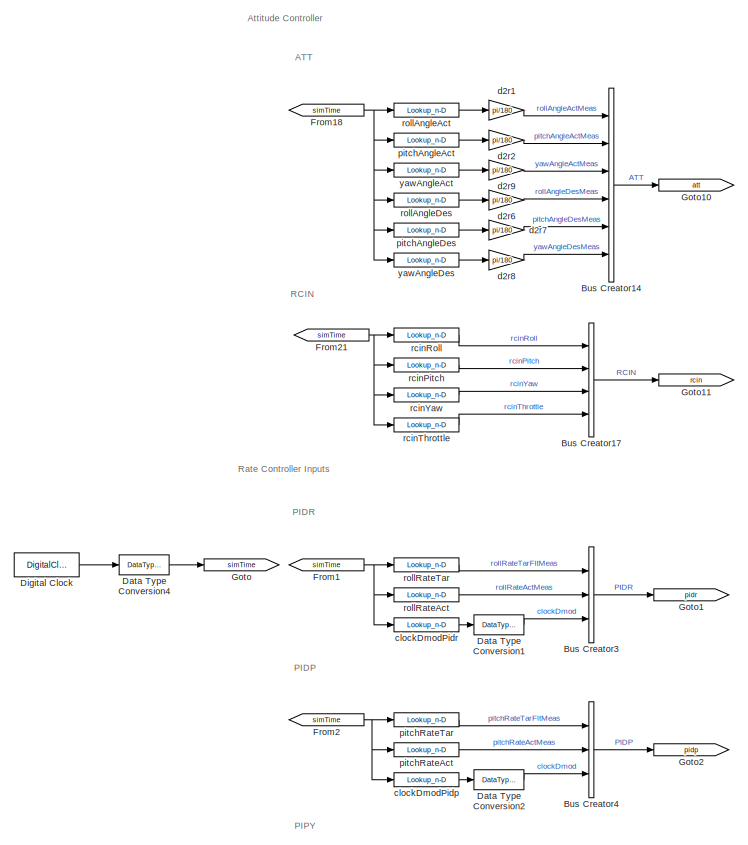
[diagram: Read measurement inputs - part 1/4, top left region]
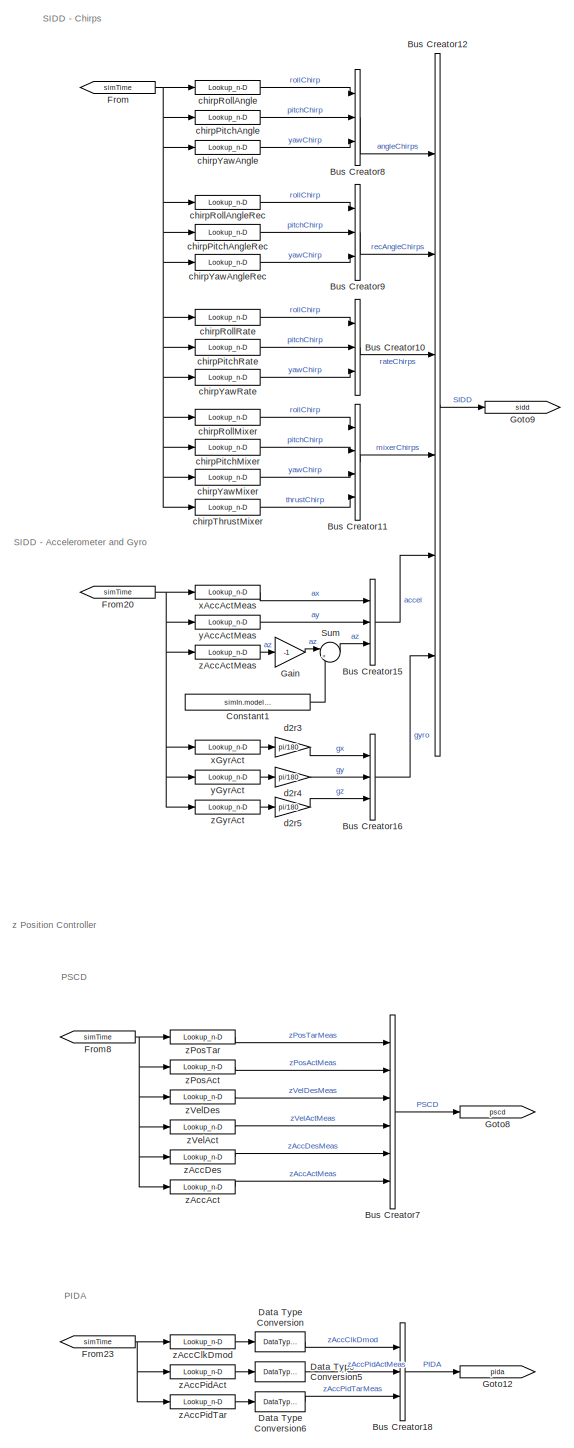
[diagram: Read measurement inputs - part 2/4, central region]
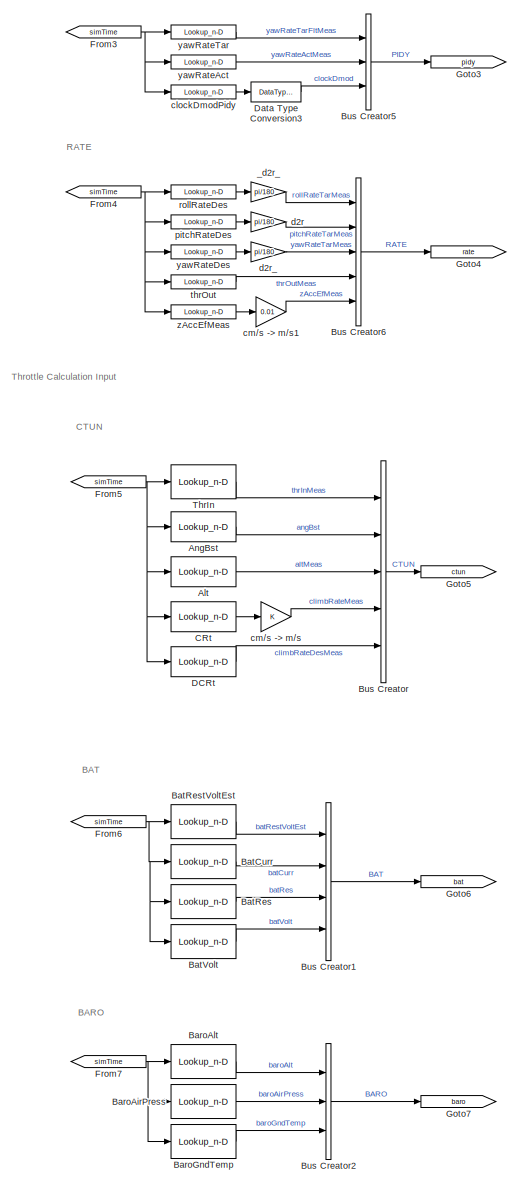
[diagram: Read measurement inputs - part 3/4, bottom left region]
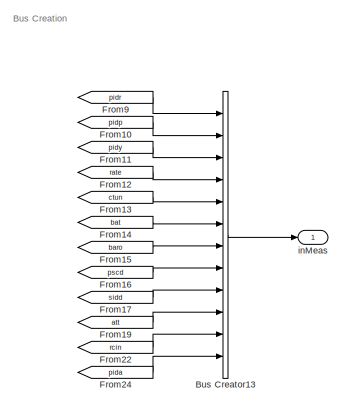
[diagram: Read measurement inputs - part 4/4, middle right region]
BLOCK [SubSystem] Read measurement inputs
  Ports = [0, 1]
  RequestExecContextInheritance = off
BLOCK [Lookup_n-D] Read measurement inputs/Alt
  BreakpointsForDimension1 = simIn.signals.CTUN.Time
  InputPortMap = u0
  InternalRulePriority = Speed
  NumberOfTableDimensions = 1
  OutDataTypeStr = Inherit: Inherit from 'Table data'
  Ports = [1, 1]
  RndMeth = Simplest
  Table = simIn.signals.CTUN.Alt
  TableDataTypeStr = single
BLOCK [Lookup_n-D] Read measurement inputs/AngBst
  BreakpointsForDimension1 = simIn.signals.CTUN.Time
  InputPortMap = u0
  InternalRulePriority = Speed
  NumberOfTableDimensions = 1
  OutDataTypeStr = Inherit: Inherit from 'Table data'
  Ports = [1, 1]
  RndMeth = Simplest
  Table = simIn.signals.CTUN.AngBst
  TableDataTypeStr = single
BLOCK [Lookup_n-D] Read measurement inputs/BaroAirPress
  BreakpointsForDimension1 = simIn.signals.BARO.Time
  InputPortMap = u0
  InternalRulePriority = Speed
  NumberOfTableDimensions = 1
  OutDataTypeStr = Inherit: Inherit from 'Table data'
  Ports = [1, 1]
  RndMeth = Simplest
  Table = simIn.signals.BARO.AirPress
  TableDataTypeStr = Inherit: Inherit from 'Table data'
BLOCK [Lookup_n-D] Read measurement inputs/BaroAlt
  BreakpointsForDimension1 = simIn.signals.BARO.Time
  InputPortMap = u0
  InternalRulePriority = Speed
  NumberOfTableDimensions = 1
  OutDataTypeStr = Inherit: Inherit from 'Table data'
  Ports = [1, 1]
  RndMeth = Simplest
  Table = simIn.signals.BARO.Alt
  TableDataTypeStr = Inherit: Inherit from 'Table data'
BLOCK [Lookup_n-D] Read measurement inputs/BaroGndTemp
  BreakpointsForDimension1 = simIn.signals.BARO.Time
  InputPortMap = u0
  InternalRulePriority = Speed
  NumberOfTableDimensions = 1
  OutDataTypeStr = Inherit: Inherit from 'Table data'
  Ports = [1, 1]
  RndMeth = Simplest
  Table = simIn.signals.BARO.GndTemp
  TableDataTypeStr = Inherit: Inherit from 'Table data'
BLOCK [Lookup_n-D] Read measurement inputs/BatCurr
  BreakpointsForDimension1 = simIn.signals.BAT.Time
  InputPortMap = u0
  InternalRulePriority = Speed
  NumberOfTableDimensions = 1
  OutDataTypeStr = Inherit: Inherit from 'Table data'
  Ports = [1, 1]
  RndMeth = Simplest
  Table = simIn.signals.BAT.Curr
  TableDataTypeStr = single
BLOCK [Lookup_n-D] Read measurement inputs/BatRes
  BreakpointsForDimension1 = simIn.signals.BAT.Time
  InputPortMap = u0
  InternalRulePriority = Speed
  NumberOfTableDimensions = 1
  OutDataTypeStr = Inherit: Inherit from 'Table data'
  Ports = [1, 1]
  RndMeth = Simplest
  Table = simIn.signals.BAT.Res
  TableDataTypeStr = single
BLOCK [Lookup_n-D] Read measurement inputs/BatRestVoltEst
  BreakpointsForDimension1 = simIn.signals.BAT.Time
  InputPortMap = u0
  InternalRulePriority = Speed
  NumberOfTableDimensions = 1
  OutDataTypeStr = Inherit: Inherit from 'Table data'
  Ports = [1, 1]
  RndMeth = Simplest
  Table = simIn.signals.BAT.RestVoltEst
  TableDataTypeStr = single
BLOCK [Lookup_n-D] Read measurement inputs/BatVolt
  BreakpointsForDimension1 = simIn.signals.BAT.Time
  InputPortMap = u0
  InternalRulePriority = Speed
  NumberOfTableDimensions = 1
  OutDataTypeStr = Inherit: Inherit from 'Table data'
  Ports = [1, 1]
  RndMeth = Simplest
  Table = simIn.signals.BAT.Volt
  TableDataTypeStr = Inherit: Inherit from 'Table data'
BLOCK [BusCreator] Read measurement inputs/Bus Creator
  DisplayOption = bar
  InheritFromInputs = on
  Inputs = 5
  Ports = [5, 1]
BLOCK [BusCreator] Read measurement inputs/Bus Creator1
  DisplayOption = bar
  InheritFromInputs = on
  Inputs = 4
  Ports = [4, 1]
BLOCK [BusCreator] Read measurement inputs/Bus Creator10
  DisplayOption = bar
  InheritFromInputs = on
  Inputs = 3
  Ports = [3, 1]
BLOCK [BusCreator] Read measurement inputs/Bus Creator11
  DisplayOption = bar
  InheritFromInputs = on
  Inputs = 4
  Ports = [4, 1]
BLOCK [BusCreator] Read measurement inputs/Bus Creator12
  DisplayOption = bar
  InheritFromInputs = on
  Inputs = 6
  Ports = [6, 1]
BLOCK [BusCreator] Read measurement inputs/Bus Creator13
  DisplayOption = bar
  InheritFromInputs = on
  Inputs = 12
  Ports = [12, 1]
BLOCK [BusCreator] Read measurement inputs/Bus Creator14
  DisplayOption = bar
  InheritFromInputs = on
  Inputs = 6
  Ports = [6, 1]
BLOCK [BusCreator] Read measurement inputs/Bus Creator15
  DisplayOption = bar
  InheritFromInputs = on
  Inputs = 3
  Ports = [3, 1]
BLOCK [BusCreator] Read measurement inputs/Bus Creator16
  DisplayOption = bar
  InheritFromInputs = on
  Inputs = 3
  Ports = [3, 1]
BLOCK [BusCreator] Read measurement inputs/Bus Creator17
  DisplayOption = bar
  InheritFromInputs = on
  Inputs = 4
  Ports = [4, 1]
BLOCK [BusCreator] Read measurement inputs/Bus Creator18
  DisplayOption = bar
  InheritFromInputs = on
  Inputs = 3
  Ports = [3, 1]
BLOCK [BusCreator] Read measurement inputs/Bus Creator2
  DisplayOption = bar
  InheritFromInputs = on
  Inputs = 3
  Ports = [3, 1]
BLOCK [BusCreator] Read measurement inputs/Bus Creator3
  DisplayOption = bar
  InheritFromInputs = on
  Inputs = 3
  Ports = [3, 1]
BLOCK [BusCreator] Read measurement inputs/Bus Creator4
  DisplayOption = bar
  InheritFromInputs = on
  Inputs = 3
  Ports = [3, 1]
BLOCK [BusCreator] Read measurement inputs/Bus Creator5
  DisplayOption = bar
  InheritFromInputs = on
  Inputs = 3
  Ports = [3, 1]
BLOCK [BusCreator] Read measurement inputs/Bus Creator6
  DisplayOption = bar
  InheritFromInputs = on
  Inputs = 5
  Ports = [5, 1]
BLOCK [BusCreator] Read measurement inputs/Bus Creator7
  DisplayOption = bar
  InheritFromInputs = on
  Inputs = 6
  Ports = [6, 1]
BLOCK [BusCreator] Read measurement inputs/Bus Creator8
  DisplayOption = bar
  InheritFromInputs = on
  Inputs = 3
  Ports = [3, 1]
BLOCK [BusCreator] Read measurement inputs/Bus Creator9
  DisplayOption = bar
  InheritFromInputs = on
  Inputs = 3
  Ports = [3, 1]
BLOCK [Lookup_n-D] Read measurement inputs/CRt
  BreakpointsForDimension1 = simIn.signals.CTUN.Time
  InputPortMap = u0
  InternalRulePriority = Speed
  NumberOfTableDimensions = 1
  OutDataTypeStr = Inherit: Inherit from 'Table data'
  Ports = [1, 1]
  RndMeth = Simplest
  Table = simIn.signals.CTUN.CRt
  TableDataTypeStr = single
BLOCK [Constant] Read measurement inputs/Constant1
  Value = simIn.models.VerticalOutInit
BLOCK [Lookup_n-D] Read measurement inputs/DCRt
  BreakpointsForDimension1 = simIn.signals.CTUN.Time
  InputPortMap = u0
  InternalRulePriority = Speed
  NumberOfTableDimensions = 1
  OutDataTypeStr = Inherit: Inherit from 'Table data'
  Ports = [1, 1]
  RndMeth = Simplest
  Table = simIn.signals.CTUN.DCRt
  TableDataTypeStr = single
BLOCK [DataTypeConversion] Read measurement inputs/Data Type Conversion
  OutDataTypeStr = single
  RndMeth = Floor
  SaturateOnIntegerOverflow = off
BLOCK [DataTypeConversion] Read measurement inputs/Data Type Conversion1
  OutDataTypeStr = single
  RndMeth = Floor
  SaturateOnIntegerOverflow = off
BLOCK [DataTypeConversion] Read measurement inputs/Data Type Conversion2
  OutDataTypeStr = single
  RndMeth = Floor
  SaturateOnIntegerOverflow = off
BLOCK [DataTypeConversion] Read measurement inputs/Data Type Conversion3
  OutDataTypeStr = single
  RndMeth = Floor
  SaturateOnIntegerOverflow = off
BLOCK [DataTypeConversion] Read measurement inputs/Data Type Conversion4
  OutDataTypeStr = single
  RndMeth = Floor
  SaturateOnIntegerOverflow = off
BLOCK [DataTypeConversion] Read measurement inputs/Data Type Conversion5
  OutDataTypeStr = single
  RndMeth = Floor
  SaturateOnIntegerOverflow = off
BLOCK [DataTypeConversion] Read measurement inputs/Data Type Conversion6
  OutDataTypeStr = single
  RndMeth = Floor
  SaturateOnIntegerOverflow = off
BLOCK [DigitalClock] Read measurement inputs/Digital Clock
  SampleTime = simIn.param.dt
BLOCK [From] Read measurement inputs/From
  GotoTag = simTime
BLOCK [From] Read measurement inputs/From1
  GotoTag = simTime
BLOCK [From] Read measurement inputs/From10
  GotoTag = pidp
BLOCK [From] Read measurement inputs/From11
  GotoTag = pidy
BLOCK [From] Read measurement inputs/From12
  GotoTag = rate
BLOCK [From] Read measurement inputs/From13
  GotoTag = ctun
BLOCK [From] Read measurement inputs/From14
  GotoTag = bat
BLOCK [From] Read measurement inputs/From15
  GotoTag = baro
BLOCK [From] Read measurement inputs/From16
  GotoTag = pscd
BLOCK [From] Read measurement inputs/From17
  GotoTag = sidd
BLOCK [From] Read measurement inputs/From18
  GotoTag = simTime
BLOCK [From] Read measurement inputs/From19
  GotoTag = att
BLOCK [From] Read measurement inputs/From2
  GotoTag = simTime
BLOCK [From] Read measurement inputs/From20
  GotoTag = simTime
BLOCK [From] Read measurement inputs/From21
  GotoTag = simTime
BLOCK [From] Read measurement inputs/From22
  GotoTag = rcin
BLOCK [From] Read measurement inputs/From23
  GotoTag = simTime
BLOCK [From] Read measurement inputs/From24
  GotoTag = pida
BLOCK [From] Read measurement inputs/From3
  GotoTag = simTime
BLOCK [From] Read measurement inputs/From4
  GotoTag = simTime
BLOCK [From] Read measurement inputs/From5
  GotoTag = simTime
BLOCK [From] Read measurement inputs/From6
  GotoTag = simTime
BLOCK [From] Read measurement inputs/From7
  GotoTag = simTime
BLOCK [From] Read measurement inputs/From8
  GotoTag = simTime
BLOCK [From] Read measurement inputs/From9
  GotoTag = pidr
BLOCK [Gain] Read measurement inputs/Gain
  Gain = -1
BLOCK [Goto] Read measurement inputs/Goto
  GotoTag = simTime
BLOCK [Goto] Read measurement inputs/Goto1
  GotoTag = pidr
BLOCK [Goto] Read measurement inputs/Goto10
  GotoTag = att
BLOCK [Goto] Read measurement inputs/Goto11
  GotoTag = rcin
BLOCK [Goto] Read measurement inputs/Goto12
  GotoTag = pida
BLOCK [Goto] Read measurement inputs/Goto2
  GotoTag = pidp
BLOCK [Goto] Read measurement inputs/Goto3
  GotoTag = pidy
BLOCK [Goto] Read measurement inputs/Goto4
  GotoTag = rate
BLOCK [Goto] Read measurement inputs/Goto5
  GotoTag = ctun
BLOCK [Goto] Read measurement inputs/Goto6
  GotoTag = bat
BLOCK [Goto] Read measurement inputs/Goto7
  GotoTag = baro
BLOCK [Goto] Read measurement inputs/Goto8
  GotoTag = pscd
BLOCK [Goto] Read measurement inputs/Goto9
  GotoTag = sidd
BLOCK [Sum] Read measurement inputs/Sum
  Inputs = |++
  Ports = [2, 1]
BLOCK [Lookup_n-D] Read measurement inputs/ThrIn
  BreakpointsForDimension1 = simIn.signals.CTUN.Time
  InputPortMap = u0
  InternalRulePriority = Speed
  NumberOfTableDimensions = 1
  OutDataTypeStr = Inherit: Inherit from 'Table data'
  Ports = [1, 1]
  RndMeth = Simplest
  Table = simIn.signals.CTUN.ThrIn
  TableDataTypeStr = single
BLOCK [Gain] Read measurement inputs/_d2r_
  Gain = pi/180
BLOCK [Lookup_n-D] Read measurement inputs/chirpPitchAngle
  BreakpointsForDimension1 = simIn.signals.SIDD.Time{2}
  InputPortMap = u0
  InternalRulePriority = Speed
  NumberOfTableDimensions = 1
  OutDataTypeStr = Inherit: Inherit from 'Table data'
  Ports = [1, 1]
  RndMeth = Simplest
  Table = simIn.signals.SIDD.Chirp{2}
  TableDataTypeStr = Inherit: Inherit from 'Table data'
BLOCK [Lookup_n-D] Read measurement inputs/chirpPitchAngleRec
  BreakpointsForDimension1 = simIn.signals.SIDD.Time{5}
  InputPortMap = u0
  InternalRulePriority = Speed
  NumberOfTableDimensions = 1
  OutDataTypeStr = Inherit: Inherit from 'Table data'
  Ports = [1, 1]
  RndMeth = Simplest
  Table = simIn.signals.SIDD.Chirp{5}
  TableDataTypeStr = Inherit: Inherit from 'Table data'
BLOCK [Lookup_n-D] Read measurement inputs/chirpPitchMixer
  BreakpointsForDimension1 = simIn.signals.SIDD.Time{11}
  InputPortMap = u0
  InternalRulePriority = Speed
  NumberOfTableDimensions = 1
  OutDataTypeStr = Inherit: Inherit from 'Table data'
  Ports = [1, 1]
  RndMeth = Simplest
  Table = simIn.signals.SIDD.Chirp{11}
  TableDataTypeStr = Inherit: Inherit from 'Table data'
BLOCK [Lookup_n-D] Read measurement inputs/chirpPitchRate
  BreakpointsForDimension1 = simIn.signals.SIDD.Time{8}
  InputPortMap = u0
  InternalRulePriority = Speed
  NumberOfTableDimensions = 1
  OutDataTypeStr = Inherit: Inherit from 'Table data'
  Ports = [1, 1]
  RndMeth = Simplest
  Table = simIn.signals.SIDD.Chirp{8}
  TableDataTypeStr = Inherit: Inherit from 'Table data'
BLOCK [Lookup_n-D] Read measurement inputs/chirpRollAngle
  BreakpointsForDimension1 = simIn.signals.SIDD.Time{1}
  InputPortMap = u0
  InternalRulePriority = Speed
  NumberOfTableDimensions = 1
  OutDataTypeStr = Inherit: Inherit from 'Table data'
  Ports = [1, 1]
  RndMeth = Simplest
  Table = simIn.signals.SIDD.Chirp{1}
  TableDataTypeStr = Inherit: Inherit from 'Table data'
BLOCK [Lookup_n-D] Read measurement inputs/chirpRollAngleRec
  BreakpointsForDimension1 = simIn.signals.SIDD.Time{4}
  InputPortMap = u0
  InternalRulePriority = Speed
  NumberOfTableDimensions = 1
  OutDataTypeStr = Inherit: Inherit from 'Table data'
  Ports = [1, 1]
  RndMeth = Simplest
  Table = simIn.signals.SIDD.Chirp{4}
  TableDataTypeStr = Inherit: Inherit from 'Table data'
BLOCK [Lookup_n-D] Read measurement inputs/chirpRollMixer
  BreakpointsForDimension1 = simIn.signals.SIDD.Time{10}
  InputPortMap = u0
  InternalRulePriority = Speed
  NumberOfTableDimensions = 1
  OutDataTypeStr = Inherit: Inherit from 'Table data'
  Ports = [1, 1]
  RndMeth = Simplest
  Table = simIn.signals.SIDD.Chirp{10}
  TableDataTypeStr = Inherit: Inherit from 'Table data'
BLOCK [Lookup_n-D] Read measurement inputs/chirpRollRate
  BreakpointsForDimension1 = simIn.signals.SIDD.Time{7}
  InputPortMap = u0
  InternalRulePriority = Speed
  NumberOfTableDimensions = 1
  OutDataTypeStr = Inherit: Inherit from 'Table data'
  Ports = [1, 1]
  RndMeth = Simplest
  Table = simIn.signals.SIDD.Chirp{7}
  TableDataTypeStr = Inherit: Inherit from 'Table data'
BLOCK [Lookup_n-D] Read measurement inputs/chirpThrustMixer
  BreakpointsForDimension1 = simIn.signals.SIDD.Time{13}
  InputPortMap = u0
  InternalRulePriority = Speed
  NumberOfTableDimensions = 1
  OutDataTypeStr = Inherit: Inherit from 'Table data'
  Ports = [1, 1]
  RndMeth = Simplest
  Table = simIn.signals.SIDD.Chirp{13}
  TableDataTypeStr = Inherit: Inherit from 'Table data'
BLOCK [Lookup_n-D] Read measurement inputs/chirpYawAngle
  BreakpointsForDimension1 = simIn.signals.SIDD.Time{3}
  InputPortMap = u0
  InternalRulePriority = Speed
  NumberOfTableDimensions = 1
  OutDataTypeStr = Inherit: Inherit from 'Table data'
  Ports = [1, 1]
  RndMeth = Simplest
  Table = simIn.signals.SIDD.Chirp{3}
  TableDataTypeStr = Inherit: Inherit from 'Table data'
BLOCK [Lookup_n-D] Read measurement inputs/chirpYawAngleRec
  BreakpointsForDimension1 = simIn.signals.SIDD.Time{6}
  InputPortMap = u0
  InternalRulePriority = Speed
  NumberOfTableDimensions = 1
  OutDataTypeStr = Inherit: Inherit from 'Table data'
  Ports = [1, 1]
  RndMeth = Simplest
  Table = simIn.signals.SIDD.Chirp{6}
  TableDataTypeStr = Inherit: Inherit from 'Table data'
BLOCK [Lookup_n-D] Read measurement inputs/chirpYawMixer
  BreakpointsForDimension1 = simIn.signals.SIDD.Time{12}
  InputPortMap = u0
  InternalRulePriority = Speed
  NumberOfTableDimensions = 1
  OutDataTypeStr = Inherit: Inherit from 'Table data'
  Ports = [1, 1]
  RndMeth = Simplest
  Table = simIn.signals.SIDD.Chirp{12}
  TableDataTypeStr = Inherit: Inherit from 'Table data'
BLOCK [Lookup_n-D] Read measurement inputs/chirpYawRate
  BreakpointsForDimension1 = simIn.signals.SIDD.Time{9}
  InputPortMap = u0
  InternalRulePriority = Speed
  NumberOfTableDimensions = 1
  OutDataTypeStr = Inherit: Inherit from 'Table data'
  Ports = [1, 1]
  RndMeth = Simplest
  Table = simIn.signals.SIDD.Chirp{9}
  TableDataTypeStr = Inherit: Inherit from 'Table data'
BLOCK [Lookup_n-D] Read measurement inputs/clockDmodPidp
  BreakpointsForDimension1 = simIn.signals.PIDP.Time
  InputPortMap = u0
  InternalRulePriority = Speed
  NumberOfTableDimensions = 1
  Ports = [1, 1]
  RndMeth = Simplest
  Table = simIn.signals.PIDP.ClockDMod
BLOCK [Lookup_n-D] Read measurement inputs/clockDmodPidr
  BreakpointsForDimension1 = simIn.signals.PIDR.Time
  InputPortMap = u0
  InternalRulePriority = Speed
  NumberOfTableDimensions = 1
  OutDataTypeStr = Inherit: Inherit from 'Table data'
  Ports = [1, 1]
  RndMeth = Simplest
  Table = simIn.signals.PIDR.ClockDMod
  TableDataTypeStr = Inherit: Inherit from 'Table data'
BLOCK [Lookup_n-D] Read measurement inputs/clockDmodPidy
  BreakpointsForDimension1 = simIn.signals.PIDY.Time
  InputPortMap = u0
  InternalRulePriority = Speed
  NumberOfTableDimensions = 1
  Ports = [1, 1]
  RndMeth = Simplest
  Table = simIn.signals.PIDY.ClockDMod
BLOCK [Gain] Read measurement inputs/cm//s -> m//s
BLOCK [Gain] Read measurement inputs/cm//s -> m//s1
  Gain = 0.01
BLOCK [Gain] Read measurement inputs/d2r
  Gain = pi/180
BLOCK [Gain] Read measurement inputs/d2r1
  Gain = pi/180
BLOCK [Gain] Read measurement inputs/d2r2
  Gain = pi/180
BLOCK [Gain] Read measurement inputs/d2r3
  Gain = pi/180
BLOCK [Gain] Read measurement inputs/d2r4
  Gain = pi/180
BLOCK [Gain] Read measurement inputs/d2r5
  Gain = pi/180
BLOCK [Gain] Read measurement inputs/d2r6
  Gain = pi/180
BLOCK [Gain] Read measurement inputs/d2r7
  Gain = pi/180
BLOCK [Gain] Read measurement inputs/d2r8
  Gain = pi/180
BLOCK [Gain] Read measurement inputs/d2r9
  Gain = pi/180
BLOCK [Gain] Read measurement inputs/d2r_
  Gain = pi/180
BLOCK [Outport] Read measurement inputs/inMeas
BLOCK [Lookup_n-D] Read measurement inputs/pitchAngleAct
  BreakpointsForDimension1 = simIn.signals.ATT.Time
  InputPortMap = u0
  InternalRulePriority = Speed
  NumberOfTableDimensions = 1
  OutDataTypeStr = Inherit: Inherit from 'Table data'
  Ports = [1, 1]
  RndMeth = Simplest
  Table = simIn.signals.ATT.Pitch
  TableDataTypeStr = Inherit: Inherit from 'Table data'
BLOCK [Lookup_n-D] Read measurement inputs/pitchAngleDes
  BreakpointsForDimension1 = simIn.signals.ATT.Time
  InputPortMap = u0
  InternalRulePriority = Speed
  NumberOfTableDimensions = 1
  OutDataTypeStr = Inherit: Inherit from 'Table data'
  Ports = [1, 1]
  RndMeth = Simplest
  Table = simIn.signals.ATT.DesPitch
  TableDataTypeStr = Inherit: Inherit from 'Table data'
BLOCK [Lookup_n-D] Read measurement inputs/pitchRateAct
  BreakpointsForDimension1 = simIn.signals.PIDP.Time
  InputPortMap = u0
  InternalRulePriority = Speed
  NumberOfTableDimensions = 1
  OutDataTypeStr = Inherit: Inherit from 'Table data'
  Ports = [1, 1]
  RndMeth = Simplest
  Table = simIn.signals.PIDP.Act
  TableDataTypeStr = Inherit: Inherit from 'Table data'
BLOCK [Lookup_n-D] Read measurement inputs/pitchRateDes
  BreakpointsForDimension1 = simIn.signals.RATE.Time
  InputPortMap = u0
  InternalRulePriority = Speed
  NumberOfTableDimensions = 1
  OutDataTypeStr = Inherit: Inherit from 'Table data'
  Ports = [1, 1]
  RndMeth = Simplest
  Table = simIn.signals.RATE.PDes
  TableDataTypeStr = Inherit: Inherit from 'Table data'
BLOCK [Lookup_n-D] Read measurement inputs/pitchRateTar
  BreakpointsForDimension1 = simIn.signals.PIDP.Time
  InputPortMap = u0
  InternalRulePriority = Speed
  NumberOfTableDimensions = 1
  OutDataTypeStr = Inherit: Inherit from 'Table data'
  Ports = [1, 1]
  RndMeth = Simplest
  Table = simIn.signals.PIDP.Tar
  TableDataTypeStr = Inherit: Inherit from 'Table data'
BLOCK [Lookup_n-D] Read measurement inputs/rcinPitch
  BreakpointsForDimension1 = simIn.signals.RCIN.Time
  ExtrapMethod = Clip
  InputPortMap = u0
  InternalRulePriority = Speed
  InterpMethod = Linear Lagrange
  NumberOfTableDimensions = 1
  OutDataTypeStr = Inherit: Inherit from 'Table data'
  Ports = [1, 1]
  RndMeth = Simplest
  Table = simIn.signals.RCIN.PitchInput
BLOCK [Lookup_n-D] Read measurement inputs/rcinRoll
  BreakpointsForDimension1 = simIn.signals.RCIN.Time
  ExtrapMethod = Clip
  InputPortMap = u0
  InternalRulePriority = Speed
  NumberOfTableDimensions = 1
  OutDataTypeStr = Inherit: Inherit from 'Table data'
  Ports = [1, 1]
  RndMeth = Simplest
  Table = simIn.signals.RCIN.RollInput
  TableDataTypeStr = Inherit: Inherit from 'Table data'
BLOCK [Lookup_n-D] Read measurement inputs/rcinThrottle
  BreakpointsForDimension1 = simIn.signals.RCIN.Time
  ExtrapMethod = Clip
  InputPortMap = u0
  InternalRulePriority = Speed
  NumberOfTableDimensions = 1
  OutDataTypeStr = Inherit: Inherit from 'Table data'
  Ports = [1, 1]
  RndMeth = Simplest
  Table = simIn.signals.RCIN.ThrottleInput
  TableDataTypeStr = Inherit: Inherit from 'Table data'
BLOCK [Lookup_n-D] Read measurement inputs/rcinYaw
  BreakpointsForDimension1 = simIn.signals.RCIN.Time
  ExtrapMethod = Clip
  InputPortMap = u0
  InternalRulePriority = Speed
  NumberOfTableDimensions = 1
  OutDataTypeStr = Inherit: Inherit from 'Table data'
  Ports = [1, 1]
  RndMeth = Simplest
  Table = simIn.signals.RCIN.YawInput
BLOCK [Lookup_n-D] Read measurement inputs/rollAngleAct
  BreakpointsForDimension1 = simIn.signals.ATT.Time
  InputPortMap = u0
  InternalRulePriority = Speed
  NumberOfTableDimensions = 1
  OutDataTypeStr = Inherit: Inherit from 'Table data'
  Ports = [1, 1]
  RndMeth = Simplest
  Table = simIn.signals.ATT.Roll
  TableDataTypeStr = Inherit: Inherit from 'Table data'
BLOCK [Lookup_n-D] Read measurement inputs/rollAngleDes
  BreakpointsForDimension1 = simIn.signals.ATT.Time
  InputPortMap = u0
  InternalRulePriority = Speed
  NumberOfTableDimensions = 1
  OutDataTypeStr = Inherit: Inherit from 'Table data'
  Ports = [1, 1]
  RndMeth = Simplest
  Table = simIn.signals.ATT.DesRoll
  TableDataTypeStr = Inherit: Inherit from 'Table data'
BLOCK [Lookup_n-D] Read measurement inputs/rollRateAct
  BreakpointsForDimension1 = simIn.signals.PIDR.Time
  InputPortMap = u0
  InternalRulePriority = Speed
  NumberOfTableDimensions = 1
  OutDataTypeStr = Inherit: Inherit from 'Table data'
  Ports = [1, 1]
  RndMeth = Simplest
  Table = simIn.signals.PIDR.Act
  TableDataTypeStr = Inherit: Inherit from 'Table data'
BLOCK [Lookup_n-D] Read measurement inputs/rollRateDes
  BreakpointsForDimension1 = simIn.signals.RATE.Time
  InputPortMap = u0
  InternalRulePriority = Speed
  NumberOfTableDimensions = 1
  OutDataTypeStr = Inherit: Inherit from 'Table data'
  Ports = [1, 1]
  RndMeth = Simplest
  Table = simIn.signals.RATE.RDes
  TableDataTypeStr = Inherit: Inherit from 'Table data'
BLOCK [Lookup_n-D] Read measurement inputs/rollRateTar
  BreakpointsForDimension1 = simIn.signals.PIDR.Time
  InputPortMap = u0
  InternalRulePriority = Speed
  NumberOfTableDimensions = 1
  OutDataTypeStr = Inherit: Inherit from 'Table data'
  Ports = [1, 1]
  RndMeth = Simplest
  Table = simIn.signals.PIDR.Tar
  TableDataTypeStr = Inherit: Inherit from 'Table data'
BLOCK [Lookup_n-D] Read measurement inputs/thrOut
  BreakpointsForDimension1 = simIn.signals.RATE.Time
  InputPortMap = u0
  InternalRulePriority = Speed
  NumberOfTableDimensions = 1
  OutDataTypeStr = Inherit: Inherit from 'Table data'
  Ports = [1, 1]
  RndMeth = Simplest
  Table = simIn.signals.RATE.AOut
  TableDataTypeStr = Inherit: Inherit from 'Table data'
BLOCK [Lookup_n-D] Read measurement inputs/xAccActMeas
  BreakpointsForDimension1 = simIn.signals.SIDD.Time{1}
  InputPortMap = u0
  InternalRulePriority = Speed
  NumberOfTableDimensions = 1
  OutDataTypeStr = Inherit: Inherit from 'Table data'
  Ports = [1, 1]
  RndMeth = Simplest
  Table = simIn.signals.SIDD.AccX
  TableDataTypeStr = Inherit: Inherit from 'Table data'
BLOCK [Lookup_n-D] Read measurement inputs/xGyrAct
  BreakpointsForDimension1 = simIn.signals.SIDD.Time{1}
  InputPortMap = u0
  InternalRulePriority = Speed
  NumberOfTableDimensions = 1
  OutDataTypeStr = Inherit: Inherit from 'Table data'
  Ports = [1, 1]
  RndMeth = Simplest
  Table = simIn.signals.SIDD.GyrX
  TableDataTypeStr = Inherit: Inherit from 'Table data'
BLOCK [Lookup_n-D] Read measurement inputs/yAccActMeas
  BreakpointsForDimension1 = simIn.signals.SIDD.Time{1}
  InputPortMap = u0
  InternalRulePriority = Speed
  NumberOfTableDimensions = 1
  OutDataTypeStr = Inherit: Inherit from 'Table data'
  Ports = [1, 1]
  RndMeth = Simplest
  Table = simIn.signals.SIDD.AccY
  TableDataTypeStr = Inherit: Inherit from 'Table data'
BLOCK [Lookup_n-D] Read measurement inputs/yGyrAct
  BreakpointsForDimension1 = simIn.signals.SIDD.Time{1}
  InputPortMap = u0
  InternalRulePriority = Speed
  NumberOfTableDimensions = 1
  OutDataTypeStr = Inherit: Inherit from 'Table data'
  Ports = [1, 1]
  RndMeth = Simplest
  Table = simIn.signals.SIDD.GyrY
  TableDataTypeStr = Inherit: Inherit from 'Table data'
BLOCK [Lookup_n-D] Read measurement inputs/yawAngleAct
  BreakpointsForDimension1 = simIn.signals.ATT.Time
  InputPortMap = u0
  InternalRulePriority = Speed
  NumberOfTableDimensions = 1
  OutDataTypeStr = Inherit: Inherit from 'Table data'
  Ports = [1, 1]
  RndMeth = Simplest
  Table = simIn.signals.ATT.Yaw
  TableDataTypeStr = Inherit: Inherit from 'Table data'
BLOCK [Lookup_n-D] Read measurement inputs/yawAngleDes
  BreakpointsForDimension1 = simIn.signals.ATT.Time
  InputPortMap = u0
  InternalRulePriority = Speed
  NumberOfTableDimensions = 1
  OutDataTypeStr = Inherit: Inherit from 'Table data'
  Ports = [1, 1]
  RndMeth = Simplest
  Table = simIn.signals.ATT.DesYaw
  TableDataTypeStr = Inherit: Inherit from 'Table data'
BLOCK [Lookup_n-D] Read measurement inputs/yawRateAct
  BreakpointsForDimension1 = simIn.signals.PIDY.Time
  InputPortMap = u0
  InternalRulePriority = Speed
  NumberOfTableDimensions = 1
  OutDataTypeStr = Inherit: Inherit from 'Table data'
  Ports = [1, 1]
  RndMeth = Simplest
  Table = simIn.signals.PIDY.Act
  TableDataTypeStr = Inherit: Inherit from 'Table data'
BLOCK [Lookup_n-D] Read measurement inputs/yawRateDes
  BreakpointsForDimension1 = simIn.signals.RATE.Time
  InputPortMap = u0
  InternalRulePriority = Speed
  NumberOfTableDimensions = 1
  OutDataTypeStr = Inherit: Inherit from 'Table data'
  Ports = [1, 1]
  RndMeth = Simplest
  Table = simIn.signals.RATE.YDes
  TableDataTypeStr = Inherit: Inherit from 'Table data'
BLOCK [Lookup_n-D] Read measurement inputs/yawRateTar
  BreakpointsForDimension1 = simIn.signals.PIDY.Time
  InputPortMap = u0
  InternalRulePriority = Speed
  NumberOfTableDimensions = 1
  OutDataTypeStr = Inherit: Inherit from 'Table data'
  Ports = [1, 1]
  RndMeth = Simplest
  Table = simIn.signals.PIDY.Tar
  TableDataTypeStr = Inherit: Inherit from 'Table data'
BLOCK [Lookup_n-D] Read measurement inputs/zAccAct
  BreakpointsForDimension1 = simIn.signals.PSCD.Time
  InputPortMap = u0
  InternalRulePriority = Speed
  NumberOfTableDimensions = 1
  OutDataTypeStr = Inherit: Inherit from 'Table data'
  Ports = [1, 1]
  RndMeth = Simplest
  Table = simIn.signals.PSCD.zAccAct
  TableDataTypeStr = single
BLOCK [Lookup_n-D] Read measurement inputs/zAccActMeas
  BreakpointsForDimension1 = simIn.signals.SIDD.Time{1}
  InputPortMap = u0
  InternalRulePriority = Speed
  NumberOfTableDimensions = 1
  OutDataTypeStr = Inherit: Inherit from 'Table data'
  Ports = [1, 1]
  RndMeth = Simplest
  Table = simIn.signals.SIDD.AccZ
  TableDataTypeStr = Inherit: Inherit from 'Table data'
BLOCK [Lookup_n-D] Read measurement inputs/zAccClkDmod
  BreakpointsForDimension1 = simIn.signals.PIDA.Time
  InputPortMap = u0
  InternalRulePriority = Speed
  NumberOfTableDimensions = 1
  Ports = [1, 1]
  RndMeth = Simplest
  Table = simIn.signals.PIDA.ClockDMod
BLOCK [Lookup_n-D] Read measurement inputs/zAccDes
  BreakpointsForDimension1 = simIn.signals.PSCD.Time
  InputPortMap = u0
  InternalRulePriority = Speed
  NumberOfTableDimensions = 1
  OutDataTypeStr = Inherit: Inherit from 'Table data'
  Ports = [1, 1]
  RndMeth = Simplest
  Table = simIn.signals.PSCD.zAccDes
  TableDataTypeStr = single
BLOCK [Lookup_n-D] Read measurement inputs/zAccEfMeas
  BreakpointsForDimension1 = simIn.signals.RATE.Time
  InputPortMap = u0
  InternalRulePriority = Speed
  NumberOfTableDimensions = 1
  OutDataTypeStr = Inherit: Inherit from 'Table data'
  Ports = [1, 1]
  RndMeth = Simplest
  Table = simIn.signals.RATE.A
  TableDataTypeStr = Inherit: Inherit from 'Table data'
BLOCK [Lookup_n-D] Read measurement inputs/zAccPidAct
  BreakpointsForDimension1 = simIn.signals.PIDA.Time
  InputPortMap = u0
  InternalRulePriority = Speed
  NumberOfTableDimensions = 1
  Ports = [1, 1]
  RndMeth = Simplest
  Table = simIn.signals.PIDA.Act
BLOCK [Lookup_n-D] Read measurement inputs/zAccPidTar
  BreakpointsForDimension1 = simIn.signals.PIDA.Time
  InputPortMap = u0
  InternalRulePriority = Speed
  NumberOfTableDimensions = 1
  Ports = [1, 1]
  RndMeth = Simplest
  Table = simIn.signals.PIDA.Tar
BLOCK [Lookup_n-D] Read measurement inputs/zGyrAct
  BreakpointsForDimension1 = simIn.signals.SIDD.Time{1}
  InputPortMap = u0
  InternalRulePriority = Speed
  NumberOfTableDimensions = 1
  OutDataTypeStr = Inherit: Inherit from 'Table data'
  Ports = [1, 1]
  RndMeth = Simplest
  Table = simIn.signals.SIDD.GyrZ
  TableDataTypeStr = Inherit: Inherit from 'Table data'
BLOCK [Lookup_n-D] Read measurement inputs/zPosAct
  BreakpointsForDimension1 = simIn.signals.PSCD.Time
  InputPortMap = u0
  InternalRulePriority = Speed
  NumberOfTableDimensions = 1
  OutDataTypeStr = Inherit: Inherit from 'Table data'
  Ports = [1, 1]
  RndMeth = Simplest
  Table = simIn.signals.PSCD.zPosAct
  TableDataTypeStr = single
BLOCK [Lookup_n-D] Read measurement inputs/zPosTar
  BreakpointsForDimension1 = simIn.signals.PSCD.Time
  InputPortMap = u0
  InternalRulePriority = Speed
  NumberOfTableDimensions = 1
  OutDataTypeStr = Inherit: Inherit from 'Table data'
  Ports = [1, 1]
  RndMeth = Simplest
  Table = simIn.signals.PSCD.zPosTar
  TableDataTypeStr = single
BLOCK [Lookup_n-D] Read measurement inputs/zVelAct
  BreakpointsForDimension1 = simIn.signals.PSCD.Time
  InputPortMap = u0
  InternalRulePriority = Speed
  NumberOfTableDimensions = 1
  OutDataTypeStr = single
  Ports = [1, 1]
  RndMeth = Simplest
  Table = simIn.signals.PSCD.zVelAct
  TableDataTypeStr = Inherit: Inherit from 'Table data'
BLOCK [Lookup_n-D] Read measurement inputs/zVelDes
  BreakpointsForDimension1 = simIn.signals.PSCD.Time
  InputPortMap = u0
  InternalRulePriority = Speed
  NumberOfTableDimensions = 1
  OutDataTypeStr = Inherit: Inherit from 'Table data'
  Ports = [1, 1]
  RndMeth = Simplest
  Table = simIn.signals.PSCD.zVelDes
  TableDataTypeStr = single
BLOCK [Terminator] Terminator
BLOCK [SubSystem] Throttle
  Ports = [6, 6]
  RequestExecContextInheritance = off
BLOCK [Lookup_n-D] Throttle/AirDensityRatioMeas
  BreakpointsForDimension1 = simIn.signals.MOTQ.Time
  InputPortMap = u0
  InternalRulePriority = Speed
  NumberOfTableDimensions = 1
  Ports = [1, 1]
  RndMeth = Simplest
  Table = simIn.signals.MOTQ.CompGain
BLOCK [BusCreator] Throttle/Bus Creator4
  DisplayOption = bar
  InheritFromInputs = on
  Inputs = 1
  Ports = [1, 1]
BLOCK [BusCreator] Throttle/Bus Creator5
  DisplayOption = bar
  InheritFromInputs = on
  Inputs = 1
  Ports = [1, 1]
BLOCK [BusSelector] Throttle/Bus Selector
  OutputSignals = thrTar,angBst,batRestVoltEst,batCurr,batRes,batVolt,baroAlt,baroAirPress,baroGndTemp
  Ports = [1, 9]
BLOCK [Clock] Throttle/Clock1
BLOCK [From] Throttle/From
  GotoTag = zVelCtrlRatio
BLOCK [From] Throttle/From1
  GotoTag = inSim
BLOCK [From] Throttle/From2
  GotoTag = inMeas
BLOCK [From] Throttle/From3
  GotoTag = zVelDes
BLOCK [From] Throttle/From4
  GotoTag = zVelAct
BLOCK [From] Throttle/From5
  GotoTag = thrMixOut
BLOCK [Goto] Throttle/Goto
  GotoTag = inMeas
BLOCK [Goto] Throttle/Goto1
  GotoTag = inSim
BLOCK [Goto] Throttle/Goto2
  GotoTag = zVelCtrlRatio
BLOCK [Goto] Throttle/Goto3
  GotoTag = zVelDes
BLOCK [Goto] Throttle/Goto4
  GotoTag = zVelAct
BLOCK [Goto] Throttle/Goto5
  GotoTag = thrMixOut
BLOCK [SubSystem] Throttle/Input Handler
  PortSchema = {"entries":[{"content":{"sides":[{"content":{"connectorIds":["In1","In2"]},"type":"ConnectorPlacement.EquallySpacedRectSide","uuid":"11925210-52ad-46bf-880a-53173efcdcd2"},{"content":{"connectorIds":["Out1"],"side":"RIGHT"},"type":"ConnectorPlacement.EquallySpacedRectSide","uuid":"6251752b-5f08-4f08-ba6e-4e858d08d357"},{"content":{"connectorIds":["In3"],"side":"TOP"},"type":"ConnectorPlacement.Equ...<+251ch>
  Ports = [3, 1]
  RequestExecContextInheritance = off
BLOCK [BusCreator] Throttle/Input Handler/Bus Creator
  DisplayOption = bar
  InheritFromInputs = on
  Inputs = 9
  Ports = [9, 1]
BLOCK [BusSelector] Throttle/Input Handler/Bus Selector
  OutputSignals = throttle.thrIn
  Ports = [1, 1]
BLOCK [BusSelector] Throttle/Input Handler/Bus Selector1
  OutputSignals = CTUN.thrInMeas,CTUN.angBst,BAT.batRestVoltEst,BAT.batCurr,BAT.batRes,BAT.batVolt,BARO.baroAlt,BARO.baroAirPress,BARO.baroGndTemp
  Ports = [1, 9]
BLOCK [Switch] Throttle/Input Handler/Switch
  Criteria = u2 > Threshold
  InputSameDT = off
  SaturateOnIntegerOverflow = off
BLOCK [Outport] Throttle/Input Handler/data_in
BLOCK [Inport] Throttle/Input Handler/inMeas
BLOCK [Inport] Throttle/Input Handler/inSim
  Port = 2
BLOCK [Inport] Throttle/Input Handler/thrMan
  Port = 3
BLOCK [Lookup_n-D] Throttle/LiftMaxMeas
  BreakpointsForDimension1 = simIn.signals.MOTB.Time
  InputPortMap = u0
  InternalRulePriority = Speed
  NumberOfTableDimensions = 1
  Ports = [1, 1]
  RndMeth = Simplest
  Table = simIn.signals.MOTB.LiftMax
BLOCK [Terminator] Throttle/Terminator
BLOCK [Terminator] Throttle/Terminator1
BLOCK [Terminator] Throttle/Terminator2
BLOCK [Terminator] Throttle/Terminator3
BLOCK [Terminator] Throttle/Terminator4
BLOCK [Terminator] Throttle/Terminator5
BLOCK [Terminator] Throttle/Terminator6
BLOCK [Terminator] Throttle/Terminator9
BLOCK [Lookup_n-D] Throttle/ThrAvgMaxMeas
  BreakpointsForDimension1 = simIn.signals.MOTB.Time
  InputPortMap = u0
  InternalRulePriority = Speed
  NumberOfTableDimensions = 1
  Ports = [1, 1]
  RndMeth = Simplest
  Table = simIn.signals.MOTB.ThrAvMx
BLOCK [Lookup_n-D] Throttle/ThrHovMeas
  BreakpointsForDimension1 = simIn.signals.CTUN.Time
  InputPortMap = u0
  InternalRulePriority = Speed
  NumberOfTableDimensions = 1
  Ports = [1, 1]
  RndMeth = Simplest
  Table = simIn.signals.CTUN.ThrHov
BLOCK [Lookup_n-D] Throttle/ThrLimitMeas
  BreakpointsForDimension1 = simIn.signals.MOTB.Time
  InputPortMap = u0
  InternalRulePriority = Speed
  NumberOfTableDimensions = 1
  Ports = [1, 1]
  RndMeth = Simplest
  Table = simIn.signals.MOTB.ThrLimit
BLOCK [Lookup_n-D] Throttle/ThrOutMeas
  BreakpointsForDimension1 = simIn.signals.CTUN.Time
  InputPortMap = u0
  InternalRulePriority = Speed
  NumberOfTableDimensions = 1
  Ports = [1, 1]
  RndMeth = Simplest
  Table = simIn.signals.CTUN.ThrOut
BLOCK [Lookup_n-D] Throttle/ThrThstMaxMeas
  BreakpointsForDimension1 = simIn.signals.MOTQ.Time
  InputPortMap = u0
  InternalRulePriority = Speed
  NumberOfTableDimensions = 1
  Ports = [1, 1]
  RndMeth = Simplest
  Table = simIn.signals.MOTQ.ThrThstMaxMeas
BLOCK [SubSystem] Throttle/Throttle Calculations
  PortSchema = {"entries":[{"content":{"sides":[{"content":{"connectorIds":["In1","In2","In3","In4","In5","In6","In7","In8","In9","In10","In11","In12","In13"]},"type":"ConnectorPlacement.EquallySpacedRectSide","uuid":"f202da64-deee-49ff-ada4-059a359ae5f9"},{"content":{"connectorIds":["Out1","Out2","Out3","Out4","Out5","Out6"],"side":"RIGHT"},"type":"ConnectorPlacement.EquallySpacedRectSide","uuid":"b4cbbae5-26a8...<+357ch>
  Ports = [14, 6]
  RequestExecContextInheritance = off
BLOCK [SubSystem] Throttle/Throttle Calculations/Air density Calculation
  Ports = [3, 1]
  RequestExecContextInheritance = off
BLOCK [DataStoreMemory] Throttle/Throttle Calculations/Air density Calculation/Data Store Memory
  DataStoreName = EAS2TAS
  OutDataTypeStr = single
  ReadBeforeWriteMsg = warning
  ShowAdditionalParam = off
  SignalType = real
  WriteAfterReadMsg = warning
  WriteAfterWriteMsg = warning
BLOCK [DataStoreMemory] Throttle/Throttle Calculations/Air density Calculation/Data Store Memory1
  DataStoreName = last_alt_EAS2TAS
  OutDataTypeStr = single
  ReadBeforeWriteMsg = warning
  ShowAdditionalParam = off
  SignalType = real
  WriteAfterReadMsg = warning
  WriteAfterWriteMsg = warning
BLOCK [SubSystem] Throttle/Throttle Calculations/Air density Calculation/Get air density ratio
  ErrorFcn = Stateflow.Translate.translate
  PermitHierarchicalResolution = ExplicitOnly
  Ports = [1, 1]
  RequestExecContextInheritance = off
  SFBlockType = MATLAB Function
  TreatAsAtomicUnit = on
BLOCK [Demux] Throttle/Throttle Calculations/Air density Calculation/Get air density ratio/ Demux 
  Outputs = 1
  Ports = [1, 1]
BLOCK [S-Function] Throttle/Throttle Calculations/Air density Calculation/Get air density ratio/ SFunction 
  EnableBusSupport = on
  FunctionName = sf_sfun
  PortCounts = [1 2]
  Ports = [1, 2]
  SFcnIsStateOwnerBlock = off
  SFunctionDeploymentMode = off
  Tag = Stateflow S-Function 15
BLOCK [Terminator] Throttle/Throttle Calculations/Air density Calculation/Get air density ratio/ Terminator 
BLOCK [Outport] Throttle/Throttle Calculations/Air density Calculation/Get air density ratio/airDensityRatio
BLOCK [Inport] Throttle/Throttle Calculations/Air density Calculation/Get air density ratio/eas2tas
BLOCK [SubSystem] Throttle/Throttle Calculations/Air density Calculation/Get equivalent to true airspeed EAS2TAS
  ErrorFcn = Stateflow.Translate.translate
  PermitHierarchicalResolution = ExplicitOnly
  Ports = [3, 1]
  RequestExecContextInheritance = off
  SFBlockType = MATLAB Function
  SystemSampleTime = simIn.param.dt
  TreatAsAtomicUnit = on
BLOCK [Demux] Throttle/Throttle Calculations/Air density Calculation/Get equivalent to true airspeed EAS2TAS/ Demux 
  Outputs = 1
  Ports = [1, 1]
BLOCK [S-Function] Throttle/Throttle Calculations/Air density Calculation/Get equivalent to true airspeed EAS2TAS/ SFunction 
  EnableBusSupport = on
  FunctionName = sf_sfun
  PortCounts = [3 2]
  Ports = [3, 2]
  SFcnIsStateOwnerBlock = off
  SFunctionDeploymentMode = off
  Tag = Stateflow S-Function 14
BLOCK [Terminator] Throttle/Throttle Calculations/Air density Calculation/Get equivalent to true airspeed EAS2TAS/ Terminator 
BLOCK [Inport] Throttle/Throttle Calculations/Air density Calculation/Get equivalent to true airspeed EAS2TAS/airPress
  Port = 2
BLOCK [Inport] Throttle/Throttle Calculations/Air density Calculation/Get equivalent to true airspeed EAS2TAS/alt
BLOCK [Outport] Throttle/Throttle Calculations/Air density Calculation/Get equivalent to true airspeed EAS2TAS/eas2tas
BLOCK [Inport] Throttle/Throttle Calculations/Air density Calculation/Get equivalent to true airspeed EAS2TAS/gndTemp
  Port = 3
BLOCK [Outport] Throttle/Throttle Calculations/Air density Calculation/airDensityRatio
BLOCK [Inport] Throttle/Throttle Calculations/Air density Calculation/baroAirPress
  Port = 2
BLOCK [Inport] Throttle/Throttle Calculations/Air density Calculation/baroAlt
BLOCK [Inport] Throttle/Throttle Calculations/Air density Calculation/baroGndTemp
  Port = 3
BLOCK [SubSystem] Throttle/Throttle Calculations/Boost and Premixing
  Ports = [4, 2]
  RequestExecContextInheritance = off
  SystemSampleTime = simIn.param.dt
  TreatAsAtomicUnit = on
BLOCK [Constant] Throttle/Throttle Calculations/Boost and Premixing/Constant9
  Value = simIn.param.ATC.ANGLE_BOOST
BLOCK [SubSystem] Throttle/Throttle Calculations/Boost and Premixing/Throttle_In Handling
  ErrorFcn = Stateflow.Translate.translate
  PermitHierarchicalResolution = ExplicitOnly
  Ports = [5, 2]
  RequestExecContextInheritance = off
  SFBlockType = MATLAB Function
  TreatAsAtomicUnit = on
BLOCK [Demux] Throttle/Throttle Calculations/Boost and Premixing/Throttle_In Handling/ Demux 
  Outputs = 1
  Ports = [1, 1]
BLOCK [S-Function] Throttle/Throttle Calculations/Boost and Premixing/Throttle_In Handling/ SFunction 
  EnableBusSupport = on
  FunctionName = sf_sfun
  PortCounts = [5 3]
  Ports = [5, 3]
  SFcnIsStateOwnerBlock = off
  SFunctionDeploymentMode = off
  Tag = Stateflow S-Function 3
BLOCK [Terminator] Throttle/Throttle Calculations/Boost and Premixing/Throttle_In Handling/ Terminator 
BLOCK [Inport] Throttle/Throttle Calculations/Boost and Premixing/Throttle_In Handling/angBst
  Port = 2
BLOCK [Inport] Throttle/Throttle Calculations/Boost and Premixing/Throttle_In Handling/angBstEna
  Port = 4
BLOCK [Outport] Throttle/Throttle Calculations/Boost and Premixing/Throttle_In Handling/thrAvgMax
  Port = 2
BLOCK [Inport] Throttle/Throttle Calculations/Boost and Premixing/Throttle_In Handling/thrHover
  Port = 3
BLOCK [Outport] Throttle/Throttle Calculations/Boost and Premixing/Throttle_In Handling/thrOut
BLOCK [Inport] Throttle/Throttle Calculations/Boost and Premixing/Throttle_In Handling/thrRpyMix
  Port = 5
BLOCK [Inport] Throttle/Throttle Calculations/Boost and Premixing/Throttle_In Handling/thrTar
BLOCK [Inport] Throttle/Throttle Calculations/Boost and Premixing/angBst
  Port = 4
BLOCK [Outport] Throttle/Throttle Calculations/Boost and Premixing/thrAvgMax
  Port = 2
BLOCK [Inport] Throttle/Throttle Calculations/Boost and Premixing/thrHover
  Port = 3
BLOCK [Inport] Throttle/Throttle Calculations/Boost and Premixing/thrIn
  Port = 2
BLOCK [Outport] Throttle/Throttle Calculations/Boost and Premixing/thrOutRaw
BLOCK [Inport] Throttle/Throttle Calculations/Boost and Premixing/thrRPYMix
BLOCK [Constant] Throttle/Throttle Calculations/Constant
  Value = simIn.param.ATC.ANGLE_LIMIT_THROTTLE_MAX
BLOCK [Constant] Throttle/Throttle Calculations/Constant1
  Value = simIn.param.ATC.ANG_LIM_TC
BLOCK [Constant] Throttle/Throttle Calculations/Constant2
  Value = simIn.param.dt
BLOCK [DataStoreMemory] Throttle/Throttle Calculations/Data Store Memory
  DataStoreName = altholdLeanAngleMax_
  InitialValue = single(0)
  OutDataTypeStr = single
  ReadBeforeWriteMsg = warning
  ShowAdditionalParam = off
  SignalType = real
  WriteAfterReadMsg = warning
  WriteAfterWriteMsg = warning
BLOCK [From] Throttle/Throttle Calculations/From
  GotoTag = thrFilt
BLOCK [From] Throttle/Throttle Calculations/From1
  GotoTag = thrFilt
BLOCK [From] Throttle/Throttle Calculations/From10
  GotoTag = thrThrstMax
BLOCK [From] Throttle/Throttle Calculations/From11
  GotoTag = thrThrstMax
BLOCK [From] Throttle/Throttle Calculations/From12
  GotoTag = thrIn
BLOCK [From] Throttle/Throttle Calculations/From2
  GotoTag = thrHover
BLOCK [From] Throttle/Throttle Calculations/From3
  GotoTag = thrHover
BLOCK [From] Throttle/Throttle Calculations/From4
  GotoTag = thrHover
BLOCK [From] Throttle/Throttle Calculations/From5
  GotoTag = thrIn
BLOCK [From] Throttle/Throttle Calculations/From6
  GotoTag = thrIn
BLOCK [From] Throttle/Throttle Calculations/From7
  GotoTag = zVelDes
BLOCK [From] Throttle/Throttle Calculations/From8
  GotoTag = zVelDes
BLOCK [From] Throttle/Throttle Calculations/From9
  GotoTag = thrFilt
BLOCK [SubSystem] Throttle/Throttle Calculations/Get compensation gain
  ErrorFcn = Stateflow.Translate.translate
  PermitHierarchicalResolution = ExplicitOnly
  Ports = [2, 1]
  RequestExecContextInheritance = off
  SFBlockType = MATLAB Function
  TreatAsAtomicUnit = on
BLOCK [Demux] Throttle/Throttle Calculations/Get compensation gain/ Demux 
  Outputs = 1
  Ports = [1, 1]
BLOCK [S-Function] Throttle/Throttle Calculations/Get compensation gain/ SFunction 
  EnableBusSupport = on
  FunctionName = sf_sfun
  PortCounts = [2 2]
  Ports = [2, 2]
  SFcnIsStateOwnerBlock = off
  SFunctionDeploymentMode = off
  Tag = Stateflow S-Function 11
BLOCK [Terminator] Throttle/Throttle Calculations/Get compensation gain/ Terminator 
BLOCK [Inport] Throttle/Throttle Calculations/Get compensation gain/airDensityRatio
  Port = 2
BLOCK [Outport] Throttle/Throttle Calculations/Get compensation gain/compGain
BLOCK [Inport] Throttle/Throttle Calculations/Get compensation gain/liftMax
BLOCK [Goto] Throttle/Throttle Calculations/Goto
  GotoTag = thrFilt
BLOCK [Goto] Throttle/Throttle Calculations/Goto1
  GotoTag = thrIn
BLOCK [Goto] Throttle/Throttle Calculations/Goto2
  GotoTag = thrHover
BLOCK [Goto] Throttle/Throttle Calculations/Goto3
  GotoTag = zVelDes
BLOCK [Goto] Throttle/Throttle Calculations/Goto4
  GotoTag = thrThrstMax
BLOCK [SubSystem] Throttle/Throttle Calculations/Lowpass Filter
  Ports = [1, 1]
  RequestExecContextInheritance = off
BLOCK [Constant] Throttle/Throttle Calculations/Lowpass Filter/Constant7
  Value = simIn.param.LOOP_RATE
BLOCK [Constant] Throttle/Throttle Calculations/Lowpass Filter/Constant8
  Value = simIn.param.ATC.THR_FILT_CUTOFF
BLOCK [SubSystem] Throttle/Throttle Calculations/Lowpass Filter/Lowpass Filter with reset
  ErrorFcn = Stateflow.Translate.translate
  PermitHierarchicalResolution = ExplicitOnly
  Ports = [4, 1]
  RequestExecContextInheritance = off
  SFBlockType = MATLAB Function
  TreatAsAtomicUnit = on
BLOCK [Demux] Throttle/Throttle Calculations/Lowpass Filter/Lowpass Filter with reset/ Demux 
  Outputs = 1
  Ports = [1, 1]
BLOCK [S-Function] Throttle/Throttle Calculations/Lowpass Filter/Lowpass Filter with reset/ SFunction 
  EnableBusSupport = on
  FunctionName = sf_sfun
  PortCounts = [4 2]
  Ports = [4, 2]
  SFcnIsStateOwnerBlock = off
  SFunctionDeploymentMode = off
  Tag = Stateflow S-Function 5
BLOCK [Terminator] Throttle/Throttle Calculations/Lowpass Filter/Lowpass Filter with reset/ Terminator 
BLOCK [Inport] Throttle/Throttle Calculations/Lowpass Filter/Lowpass Filter with reset/cutoff_freq
  Port = 2
BLOCK [Inport] Throttle/Throttle Calculations/Lowpass Filter/Lowpass Filter with reset/in
BLOCK [Inport] Throttle/Throttle Calculations/Lowpass Filter/Lowpass Filter with reset/lastSamp
  Port = 4
BLOCK [Inport] Throttle/Throttle Calculations/Lowpass Filter/Lowpass Filter with reset/loop_rate
  Port = 3
BLOCK [Outport] Throttle/Throttle Calculations/Lowpass Filter/Lowpass Filter with reset/out
BLOCK [UnitDelay] Throttle/Throttle Calculations/Lowpass Filter/Unit Delay1
  HasFrameUpgradeWarning = on
  InitialCondition = simIn.init.CTUN.ThrOut
  NameLocation = top
  SampleTime = -1
BLOCK [Outport] Throttle/Throttle Calculations/Lowpass Filter/thrOutFilt
BLOCK [Inport] Throttle/Throttle Calculations/Lowpass Filter/thrOutRaw
BLOCK [SubSystem] Throttle/Throttle Calculations/MATLAB Function
  ErrorFcn = Stateflow.Translate.translate
  PermitHierarchicalResolution = ExplicitOnly
  Ports = [5, 1]
  RequestExecContextInheritance = off
  SFBlockType = MATLAB Function
  TreatAsAtomicUnit = on
BLOCK [Demux] Throttle/Throttle Calculations/MATLAB Function/ Demux 
  Outputs = 1
  Ports = [1, 1]
BLOCK [S-Function] Throttle/Throttle Calculations/MATLAB Function/ SFunction 
  EnableBusSupport = on
  FunctionName = sf_sfun
  PortCounts = [5 2]
  Ports = [5, 2]
  SFcnIsStateOwnerBlock = off
  SFunctionDeploymentMode = off
  Tag = Stateflow S-Function 105
BLOCK [Terminator] Throttle/Throttle Calculations/MATLAB Function/ Terminator 
BLOCK [Outport] Throttle/Throttle Calculations/MATLAB Function/altholdLeanAngleMax
BLOCK [Inport] Throttle/Throttle Calculations/MATLAB Function/angleLimitTc
  Port = 3
BLOCK [Inport] Throttle/Throttle Calculations/MATLAB Function/angleLimitThrMax
  Port = 5
BLOCK [Inport] Throttle/Throttle Calculations/MATLAB Function/dt
  Port = 4
BLOCK [Inport] Throttle/Throttle Calculations/MATLAB Function/thrThstMax
BLOCK [Inport] Throttle/Throttle Calculations/MATLAB Function/throttle_in
  Port = 2
BLOCK [Terminator] Throttle/Throttle Calculations/Terminator1
BLOCK [SubSystem] Throttle/Throttle Calculations/Throttle Hover
  Ports = [3, 1]
  RequestExecContextInheritance = off
  SystemSampleTime = 0.1
  TreatAsAtomicUnit = on
BLOCK [Constant] Throttle/Throttle Calculations/Throttle Hover/Constant
  OutDataTypeStr = single
  Value = 0.01
BLOCK [Constant] Throttle/Throttle Calculations/Throttle Hover/Constant1
  Value = simIn.param.MOT.THST_HOVER_MAX
BLOCK [Constant] Throttle/Throttle Calculations/Throttle Hover/Constant2
  Value = simIn.param.MOT.THST_HOVER_MIN
BLOCK [Constant] Throttle/Throttle Calculations/Throttle Hover/Constant3
  Value = simIn.param.MOT.THST_HOVER_TC
BLOCK [Constant] Throttle/Throttle Calculations/Throttle Hover/Constant4
  Value = simIn.param.MOT.THST_HOVER
BLOCK [Constant] Throttle/Throttle Calculations/Throttle Hover/Constant5
  Value = simIn.param.MOT.HOVER_LEARN
BLOCK [Constant] Throttle/Throttle Calculations/Throttle Hover/Constant6
  Value = simIn.param.MODE.THR_MAN_FLG
BLOCK [DataStoreMemory] Throttle/Throttle Calculations/Throttle Hover/Data Store Memory
  DataStoreName = thrHoverAct
  InitialValue = simIn.init.CTUN.ThrHov
  OutDataTypeStr = single
  ReadBeforeWriteMsg = warning
  ShowAdditionalParam = off
  SignalType = real
  WriteAfterReadMsg = warning
  WriteAfterWriteMsg = warning
BLOCK [SubSystem] Throttle/Throttle Calculations/Throttle Hover/Throttle Hover Calculation
  ErrorFcn = Stateflow.Translate.translate
  PermitHierarchicalResolution = ExplicitOnly
  Ports = [10, 1]
  RequestExecContextInheritance = off
  SFBlockType = MATLAB Function
  TreatAsAtomicUnit = on
BLOCK [Demux] Throttle/Throttle Calculations/Throttle Hover/Throttle Hover Calculation/ Demux 
  Outputs = 1
  Ports = [1, 1]
BLOCK [S-Function] Throttle/Throttle Calculations/Throttle Hover/Throttle Hover Calculation/ SFunction 
  EnableBusSupport = on
  FunctionName = sf_sfun
  PortCounts = [10 2]
  Ports = [10, 2]
  SFcnIsStateOwnerBlock = off
  SFunctionDeploymentMode = off
  Tag = Stateflow S-Function 6
BLOCK [Terminator] Throttle/Throttle Calculations/Throttle Hover/Throttle Hover Calculation/ Terminator 
BLOCK [Inport] Throttle/Throttle Calculations/Throttle Hover/Throttle Hover Calculation/dt
BLOCK [Inport] Throttle/Throttle Calculations/Throttle Hover/Throttle Hover Calculation/hoverLearn
  Port = 9
BLOCK [Inport] Throttle/Throttle Calculations/Throttle Hover/Throttle Hover Calculation/thrAct
  Port = 2
BLOCK [Outport] Throttle/Throttle Calculations/Throttle Hover/Throttle Hover Calculation/thrHover
BLOCK [Inport] Throttle/Throttle Calculations/Throttle Hover/Throttle Hover Calculation/thrMan
  Port = 10
BLOCK [Inport] Throttle/Throttle Calculations/Throttle Hover/Throttle Hover Calculation/thstHoverDefault
  Port = 8
BLOCK [Inport] Throttle/Throttle Calculations/Throttle Hover/Throttle Hover Calculation/thstHoverMax
  Port = 5
BLOCK [Inport] Throttle/Throttle Calculations/Throttle Hover/Throttle Hover Calculation/thstHoverMin
  Port = 6
BLOCK [Inport] Throttle/Throttle Calculations/Throttle Hover/Throttle Hover Calculation/thstHoverTC
  Port = 7
BLOCK [Inport] Throttle/Throttle Calculations/Throttle Hover/Throttle Hover Calculation/zVelAct
  Port = 4
BLOCK [Inport] Throttle/Throttle Calculations/Throttle Hover/Throttle Hover Calculation/zVelDes
  Port = 3
BLOCK [Inport] Throttle/Throttle Calculations/Throttle Hover/thrAct
  Port = 3
BLOCK [Outport] Throttle/Throttle Calculations/Throttle Hover/thrHover
BLOCK [Inport] Throttle/Throttle Calculations/Throttle Hover/zVelAct
BLOCK [Inport] Throttle/Throttle Calculations/Throttle Hover/zVelDes
  Port = 2
BLOCK [SubSystem] Throttle/Throttle Calculations/Throttle Limiting based on battery state
  Ports = [5, 3]
  RequestExecContextInheritance = off
BLOCK [Constant] Throttle/Throttle Calculations/Throttle Limiting based on battery state/Constant11
  Value = simIn.param.LOOP_RATE
BLOCK [Constant] Throttle/Throttle Calculations/Throttle Limiting based on battery state/Constant12
  Value = simIn.param.MOT.THST_EXPO
BLOCK [Constant] Throttle/Throttle Calculations/Throttle Limiting based on battery state/Constant13
  Value = simIn.param.MOT.BAT_VOLT_MIN
BLOCK [Constant] Throttle/Throttle Calculations/Throttle Limiting based on battery state/Constant14
  Value = simIn.param.MOT.BAT_VOLT_MAX
BLOCK [Constant] Throttle/Throttle Calculations/Throttle Limiting based on battery state/Constant15
  Value = simIn.param.LOOP_RATE
BLOCK [Constant] Throttle/Throttle Calculations/Throttle Limiting based on battery state/Constant16
  Value = simIn.param.MOT.BAT_CURR_MAX
BLOCK [Constant] Throttle/Throttle Calculations/Throttle Limiting based on battery state/Constant17
  Value = simIn.param.MOT.BAT_CURR_TC
BLOCK [SubSystem] Throttle/Throttle Calculations/Throttle Limiting based on battery state/Get current throttle limit
  ErrorFcn = Stateflow.Translate.translate
  PermitHierarchicalResolution = ExplicitOnly
  Ports = [9, 2]
  RequestExecContextInheritance = off
  SFBlockType = MATLAB Function
  TreatAsAtomicUnit = on
BLOCK [Demux] Throttle/Throttle Calculations/Throttle Limiting based on battery state/Get current throttle limit/ Demux 
  Outputs = 1
  Ports = [1, 1]
BLOCK [S-Function] Throttle/Throttle Calculations/Throttle Limiting based on battery state/Get current throttle limit/ SFunction 
  EnableBusSupport = on
  FunctionName = sf_sfun
  PortCounts = [9 3]
  Ports = [9, 3]
  SFcnIsStateOwnerBlock = off
  SFunctionDeploymentMode = off
  Tag = Stateflow S-Function 8
BLOCK [Terminator] Throttle/Throttle Calculations/Throttle Limiting based on battery state/Get current throttle limit/ Terminator 
BLOCK [Inport] Throttle/Throttle Calculations/Throttle Limiting based on battery state/Get current throttle limit/batCurr
  Port = 5
BLOCK [Inport] Throttle/Throttle Calculations/Throttle Limiting based on battery state/Get current throttle limit/batCurrMax
  Port = 2
BLOCK [Inport] Throttle/Throttle Calculations/Throttle Limiting based on battery state/Get current throttle limit/batCurrT
  Port = 3
BLOCK [Inport] Throttle/Throttle Calculations/Throttle Limiting based on battery state/Get current throttle limit/batRes
  Port = 6
BLOCK [Inport] Throttle/Throttle Calculations/Throttle Limiting based on battery state/Get current throttle limit/batVolt
  Port = 7
BLOCK [Inport] Throttle/Throttle Calculations/Throttle Limiting based on battery state/Get current throttle limit/batVoltMin
BLOCK [Inport] Throttle/Throttle Calculations/Throttle Limiting based on battery state/Get current throttle limit/loop_rate
  Port = 4
BLOCK [Inport] Throttle/Throttle Calculations/Throttle Limiting based on battery state/Get current throttle limit/thrHover
  Port = 8
BLOCK [Outport] Throttle/Throttle Calculations/Throttle Limiting based on battery state/Get current throttle limit/thrLimit
  Port = 2
BLOCK [Inport] Throttle/Throttle Calculations/Throttle Limiting based on battery state/Get current throttle limit/thrLimitLast
  Port = 9
BLOCK [Outport] Throttle/Throttle Calculations/Throttle Limiting based on battery state/Get current throttle limit/thrThstMax
BLOCK [InitialCondition] Throttle/Throttle Calculations/Throttle Limiting based on battery state/IC
BLOCK [UnitDelay] Throttle/Throttle Calculations/Throttle Limiting based on battery state/Unit Delay3
  HasFrameUpgradeWarning = on
  InitialCondition = simIn.init.BAT.RestVoltEst/simIn.param.MOT.BAT_VOLT_MIN
  NameLocation = top
  SampleTime = -1
BLOCK [UnitDelay] Throttle/Throttle Calculations/Throttle Limiting based on battery state/Unit Delay4
  HasFrameUpgradeWarning = on
  InitialCondition = 1.0
  NameLocation = top
  SampleTime = -1
BLOCK [SubSystem] Throttle/Throttle Calculations/Throttle Limiting based on battery state/Update Lift Max from Battery Voltage
  ErrorFcn = Stateflow.Translate.translate
  PermitHierarchicalResolution = ExplicitOnly
  Ports = [6, 4]
  RequestExecContextInheritance = off
  SFBlockType = MATLAB Function
  TreatAsAtomicUnit = on
BLOCK [Demux] Throttle/Throttle Calculations/Throttle Limiting based on battery state/Update Lift Max from Battery Voltage/ Demux 
  Outputs = 1
  Ports = [1, 1]
BLOCK [S-Function] Throttle/Throttle Calculations/Throttle Limiting based on battery state/Update Lift Max from Battery Voltage/ SFunction 
  EnableBusSupport = on
  FunctionName = sf_sfun
  PortCounts = [6 5]
  Ports = [6, 5]
  SFcnIsStateOwnerBlock = off
  SFunctionDeploymentMode = off
  Tag = Stateflow S-Function 7
BLOCK [Terminator] Throttle/Throttle Calculations/Throttle Limiting based on battery state/Update Lift Max from Battery Voltage/ Terminator 
BLOCK [Outport] Throttle/Throttle Calculations/Throttle Limiting based on battery state/Update Lift Max from Battery Voltage/battVoltFilt
BLOCK [Inport] Throttle/Throttle Calculations/Throttle Limiting based on battery state/Update Lift Max from Battery Voltage/battVoltFiltLast
BLOCK [Inport] Throttle/Throttle Calculations/Throttle Limiting based on battery state/Update Lift Max from Battery Voltage/battVoltMax
  Port = 3
BLOCK [Inport] Throttle/Throttle Calculations/Throttle Limiting based on battery state/Update Lift Max from Battery Voltage/battVoltMin
  Port = 4
BLOCK [Outport] Throttle/Throttle Calculations/Throttle Limiting based on battery state/Update Lift Max from Battery Voltage/battVoltMinAct
  Port = 3
BLOCK [Inport] Throttle/Throttle Calculations/Throttle Limiting based on battery state/Update Lift Max from Battery Voltage/battVoltRestEst
  Port = 2
BLOCK [Outport] Throttle/Throttle Calculations/Throttle Limiting based on battery state/Update Lift Max from Battery Voltage/battVoltRestEstAct
  Port = 4
BLOCK [Outport] Throttle/Throttle Calculations/Throttle Limiting based on battery state/Update Lift Max from Battery Voltage/liftMax
  Port = 2
BLOCK [Inport] Throttle/Throttle Calculations/Throttle Limiting based on battery state/Update Lift Max from Battery Voltage/loop_rate
  Port = 6
BLOCK [Inport] Throttle/Throttle Calculations/Throttle Limiting based on battery state/Update Lift Max from Battery Voltage/thstCurveExpo
  Port = 5
BLOCK [Inport] Throttle/Throttle Calculations/Throttle Limiting based on battery state/batCurr
  Port = 2
BLOCK [Inport] Throttle/Throttle Calculations/Throttle Limiting based on battery state/batRes
  Port = 3
BLOCK [Inport] Throttle/Throttle Calculations/Throttle Limiting based on battery state/batRestVoltEst
BLOCK [Inport] Throttle/Throttle Calculations/Throttle Limiting based on battery state/batVolt
  Port = 4
BLOCK [Outport] Throttle/Throttle Calculations/Throttle Limiting based on battery state/batVoltRestEstAct
  Port = 2
BLOCK [Outport] Throttle/Throttle Calculations/Throttle Limiting based on battery state/liftMax
BLOCK [Inport] Throttle/Throttle Calculations/Throttle Limiting based on battery state/thrHover
  Port = 5
BLOCK [Outport] Throttle/Throttle Calculations/Throttle Limiting based on battery state/thrThstMax
  Port = 3
BLOCK [SubSystem] Throttle/Throttle Calculations/Throttle-Attitude-Mixing
  Ports = [7, 1]
  RequestExecContextInheritance = off
BLOCK [Constant] Throttle/Throttle Calculations/Throttle-Attitude-Mixing/Constant1
  Value = simIn.param.ATC.THR_MIX_MAX
BLOCK [Constant] Throttle/Throttle Calculations/Throttle-Attitude-Mixing/Constant10
  Value = 1 / simIn.param.LOOP_RATE
BLOCK [Constant] Throttle/Throttle Calculations/Throttle-Attitude-Mixing/Constant2
  Value = simIn.param.ATC.THR_MIX_MIN
BLOCK [Constant] Throttle/Throttle Calculations/Throttle-Attitude-Mixing/Constant3
  Value = simIn.param.ATC.THR_MIX_MAN
BLOCK [Constant] Throttle/Throttle Calculations/Throttle-Attitude-Mixing/Constant4
  Value = simIn.param.ATC.THR_MIX_MAX
BLOCK [Constant] Throttle/Throttle Calculations/Throttle-Attitude-Mixing/Constant5
  Value = simIn.param.ATC.THR_MIX_MIN
BLOCK [DataStoreMemory] Throttle/Throttle Calculations/Throttle-Attitude-Mixing/Data Store Memory
  DataStoreName = thrMixAct
  InitialValue = simIn.init.ATC.THR_MIX
  OutDataTypeStr = single
  ReadBeforeWriteMsg = warning
  ShowAdditionalParam = off
  SignalType = real
  WriteAfterReadMsg = warning
  WriteAfterWriteMsg = warning
BLOCK [SubSystem] Throttle/Throttle Calculations/Throttle-Attitude-Mixing/Update Throttle Mix
  ErrorFcn = Stateflow.Translate.translate
  PermitHierarchicalResolution = ExplicitOnly
  Ports = [7, 1]
  RequestExecContextInheritance = off
  SFBlockType = MATLAB Function
  TreatAsAtomicUnit = on
BLOCK [SubSystem] Throttle/Throttle Calculations/Throttle-Attitude-Mixing/Update Throttle Mix Des
  ErrorFcn = Stateflow.Translate.translate
  PermitHierarchicalResolution = ExplicitOnly
  Ports = [7, 1]
  RequestExecContextInheritance = off
  SFBlockType = MATLAB Function
  SystemSampleTime = simIn.param.dt_THR_LOOP
  TreatAsAtomicUnit = on
BLOCK [Demux] Throttle/Throttle Calculations/Throttle-Attitude-Mixing/Update Throttle Mix Des/ Demux 
  Outputs = 1
  Ports = [1, 1]
BLOCK [S-Function] Throttle/Throttle Calculations/Throttle-Attitude-Mixing/Update Throttle Mix Des/ SFunction 
  EnableBusSupport = on
  FunctionName = sf_sfun
  PortCounts = [7 2]
  Ports = [7, 2]
  SFcnIsStateOwnerBlock = off
  SFunctionDeploymentMode = off
  Tag = Stateflow S-Function 28
BLOCK [Terminator] Throttle/Throttle Calculations/Throttle-Attitude-Mixing/Update Throttle Mix Des/ Terminator 
BLOCK [Inport] Throttle/Throttle Calculations/Throttle-Attitude-Mixing/Update Throttle Mix Des/thrMan
  Port = 4
BLOCK [Outport] Throttle/Throttle Calculations/Throttle-Attitude-Mixing/Update Throttle Mix Des/thrMixDes
BLOCK [Inport] Throttle/Throttle Calculations/Throttle-Attitude-Mixing/Update Throttle Mix Des/thrMixMan
  Port = 7
BLOCK [Inport] Throttle/Throttle Calculations/Throttle-Attitude-Mixing/Update Throttle Mix Des/thrMixMax
  Port = 6
BLOCK [Inport] Throttle/Throttle Calculations/Throttle-Attitude-Mixing/Update Throttle Mix Des/thrMixMin
  Port = 5
BLOCK [Inport] Throttle/Throttle Calculations/Throttle-Attitude-Mixing/Update Throttle Mix Des/thrTar
BLOCK [Inport] Throttle/Throttle Calculations/Throttle-Attitude-Mixing/Update Throttle Mix Des/zVelCtrlRatio
  Port = 2
BLOCK [Inport] Throttle/Throttle Calculations/Throttle-Attitude-Mixing/Update Throttle Mix Des/zVelDes
  Port = 3
BLOCK [Demux] Throttle/Throttle Calculations/Throttle-Attitude-Mixing/Update Throttle Mix/ Demux 
  Outputs = 1
  Ports = [1, 1]
BLOCK [S-Function] Throttle/Throttle Calculations/Throttle-Attitude-Mixing/Update Throttle Mix/ SFunction 
  EnableBusSupport = on
  FunctionName = sf_sfun
  PortCounts = [7 2]
  Ports = [7, 2]
  SFcnIsStateOwnerBlock = off
  SFunctionDeploymentMode = off
  Tag = Stateflow S-Function 4
BLOCK [Terminator] Throttle/Throttle Calculations/Throttle-Attitude-Mixing/Update Throttle Mix/ Terminator 
BLOCK [Inport] Throttle/Throttle Calculations/Throttle-Attitude-Mixing/Update Throttle Mix/dt
  Port = 7
BLOCK [Inport] Throttle/Throttle Calculations/Throttle-Attitude-Mixing/Update Throttle Mix/thrHover
  Port = 6
BLOCK [Inport] Throttle/Throttle Calculations/Throttle-Attitude-Mixing/Update Throttle Mix/thrIn
  Port = 5
BLOCK [Outport] Throttle/Throttle Calculations/Throttle-Attitude-Mixing/Update Throttle Mix/thrMix
BLOCK [Inport] Throttle/Throttle Calculations/Throttle-Attitude-Mixing/Update Throttle Mix/thrMixDes
BLOCK [Inport] Throttle/Throttle Calculations/Throttle-Attitude-Mixing/Update Throttle Mix/thrMixMax
  Port = 3
BLOCK [Inport] Throttle/Throttle Calculations/Throttle-Attitude-Mixing/Update Throttle Mix/thrMixMin
  Port = 2
BLOCK [Inport] Throttle/Throttle Calculations/Throttle-Attitude-Mixing/Update Throttle Mix/thrOut
  Port = 4
BLOCK [SubSystem] Throttle/Throttle Calculations/Throttle-Attitude-Mixing/get_throttle_hover
  Ports = [1, 1]
  RequestExecContextInheritance = off
BLOCK [Constant] Throttle/Throttle Calculations/Throttle-Attitude-Mixing/get_throttle_hover/Constant
  Value = simIn.param.MOT.THST_HOVER_MIN
BLOCK [Constant] Throttle/Throttle Calculations/Throttle-Attitude-Mixing/get_throttle_hover/Constant1
  Value = simIn.param.MOT.THST_HOVER_MAX
BLOCK [SubSystem] Throttle/Throttle Calculations/Throttle-Attitude-Mixing/get_throttle_hover/MATLAB Function
  ErrorFcn = Stateflow.Translate.translate
  PermitHierarchicalResolution = ExplicitOnly
  Ports = [3, 1]
  RequestExecContextInheritance = off
  SFBlockType = MATLAB Function
  TreatAsAtomicUnit = on
BLOCK [Demux] Throttle/Throttle Calculations/Throttle-Attitude-Mixing/get_throttle_hover/MATLAB Function/ Demux 
  Outputs = 1
  Ports = [1, 1]
BLOCK [S-Function] Throttle/Throttle Calculations/Throttle-Attitude-Mixing/get_throttle_hover/MATLAB Function/ SFunction 
  EnableBusSupport = on
  FunctionName = sf_sfun
  PortCounts = [3 2]
  Ports = [3, 2]
  SFcnIsStateOwnerBlock = off
  SFunctionDeploymentMode = off
  Tag = Stateflow S-Function 103
BLOCK [Terminator] Throttle/Throttle Calculations/Throttle-Attitude-Mixing/get_throttle_hover/MATLAB Function/ Terminator 
BLOCK [Inport] Throttle/Throttle Calculations/Throttle-Attitude-Mixing/get_throttle_hover/MATLAB Function/thrHover
BLOCK [Outport] Throttle/Throttle Calculations/Throttle-Attitude-Mixing/get_throttle_hover/MATLAB Function/thrHoverLim
BLOCK [Inport] Throttle/Throttle Calculations/Throttle-Attitude-Mixing/get_throttle_hover/MATLAB Function/thrHoverMax
  Port = 3
BLOCK [Inport] Throttle/Throttle Calculations/Throttle-Attitude-Mixing/get_throttle_hover/MATLAB Function/thrHoverMin
  Port = 2
BLOCK [Inport] Throttle/Throttle Calculations/Throttle-Attitude-Mixing/get_throttle_hover/in
BLOCK [Outport] Throttle/Throttle Calculations/Throttle-Attitude-Mixing/get_throttle_hover/out
BLOCK [Inport] Throttle/Throttle Calculations/Throttle-Attitude-Mixing/thrFiltIn
  Port = 6
BLOCK [Inport] Throttle/Throttle Calculations/Throttle-Attitude-Mixing/thrHover
  Port = 7
BLOCK [Inport] Throttle/Throttle Calculations/Throttle-Attitude-Mixing/thrIn
BLOCK [Inport] Throttle/Throttle Calculations/Throttle-Attitude-Mixing/thrMan
  Port = 5
BLOCK [Inport] Throttle/Throttle Calculations/Throttle-Attitude-Mixing/thrMixOut
  Port = 4
BLOCK [Outport] Throttle/Throttle Calculations/Throttle-Attitude-Mixing/thrRPYMix
BLOCK [Inport] Throttle/Throttle Calculations/Throttle-Attitude-Mixing/zVelCtrlRatio
  Port = 2
BLOCK [Inport] Throttle/Throttle Calculations/Throttle-Attitude-Mixing/zVelDes
  Port = 3
BLOCK [UnitDelay] Throttle/Throttle Calculations/Unit Delay1
  HasFrameUpgradeWarning = on
  InitialCondition = simIn.init.CTUN.ThrOut
  SampleTime = -1
BLOCK [UnitDelay] Throttle/Throttle Calculations/Unit Delay2
  HasFrameUpgradeWarning = on
  InitialCondition = simIn.init.CTUN.ThrOut
  SampleTime = -1
BLOCK [Outport] Throttle/Throttle Calculations/altholdLeanAngleMax
  Port = 6
BLOCK [Inport] Throttle/Throttle Calculations/angBst
  Port = 2
BLOCK [Inport] Throttle/Throttle Calculations/baroAirPress
  Port = 8
BLOCK [Inport] Throttle/Throttle Calculations/baroAlt
  Port = 7
BLOCK [Inport] Throttle/Throttle Calculations/baroGndTemp
  Port = 9
BLOCK [Inport] Throttle/Throttle Calculations/batCurr
  Port = 4
BLOCK [Inport] Throttle/Throttle Calculations/batRes
  Port = 5
BLOCK [Inport] Throttle/Throttle Calculations/batRestVoltEst
  Port = 3
BLOCK [Inport] Throttle/Throttle Calculations/batVolt
  Port = 6
BLOCK [Outport] Throttle/Throttle Calculations/comp_gain
  Port = 4
BLOCK [Outport] Throttle/Throttle Calculations/thrAvgMax
  Port = 2
BLOCK [Outport] Throttle/Throttle Calculations/thrHover
  Port = 5
BLOCK [Inport] Throttle/Throttle Calculations/thrIn
BLOCK [Inport] Throttle/Throttle Calculations/thrMan
  Port = 14
BLOCK [Inport] Throttle/Throttle Calculations/thrMixOut
  Port = 13
BLOCK [Outport] Throttle/Throttle Calculations/thrOutFilt
BLOCK [Outport] Throttle/Throttle Calculations/thrThstMax
  Port = 3
BLOCK [Inport] Throttle/Throttle Calculations/zVelAct
  Port = 12
BLOCK [Inport] Throttle/Throttle Calculations/zVelCtrlRatio
  Port = 10
BLOCK [Inport] Throttle/Throttle Calculations/zVelDes
  Port = 11
BLOCK [Constant] Throttle/Throttle Manual Flag
  Value = simIn.param.MODE.THR_MAN_FLG
BLOCK [Outport] Throttle/altholdLeanAngleMax
  Port = 6
BLOCK [Outport] Throttle/compGain
  Port = 4
BLOCK [Lookup_n-D] Throttle/compGainMeas
  BreakpointsForDimension1 = simIn.signals.MOTQ.Time
  InputPortMap = u0
  InternalRulePriority = Speed
  NumberOfTableDimensions = 1
  Ports = [1, 1]
  RndMeth = Simplest
  Table = simIn.signals.MOTQ.CompGain
BLOCK [Inport] Throttle/inMeas
BLOCK [Outport] Throttle/thrAvgMax
  Port = 2
BLOCK [Outport] Throttle/thrHover
  Port = 5
BLOCK [Inport] Throttle/thrIn
  Port = 3
BLOCK [Inport] Throttle/thrMixOut
  Port = 2
BLOCK [Outport] Throttle/thrOutFilt
BLOCK [Outport] Throttle/thrThstMax
  Port = 3
BLOCK [Inport] Throttle/zVelAct
  Port = 6
BLOCK [Inport] Throttle/zVelCtrlRatio
  Port = 4
BLOCK [Inport] Throttle/zVelDes
  Port = 5
BLOCK [UnitDelay] Unit Delay
  HasFrameUpgradeWarning = on
  NameLocation = top
  SampleTime = -1
BLOCK [UnitDelay] Unit Delay1
  HasFrameUpgradeWarning = on
  InitialCondition = simIn.init.PSCD.accAct
  SampleTime = -1
BLOCK [UnitDelay] Unit Delay2
  HasFrameUpgradeWarning = on
  NameLocation = top
  SampleTime = -1
BLOCK [UnitDelay] Unit Delay3
  HasFrameUpgradeWarning = on
  InitialCondition = simIn.models.PitchInit
  NameLocation = top
  SampleTime = -1
BLOCK [UnitDelay] Unit Delay4
  HasFrameUpgradeWarning = on
  InitialCondition = simIn.init.PSCD.velAct
  SampleTime = -1
BLOCK [UnitDelay] Unit Delay5
  HasFrameUpgradeWarning = on
  InitialCondition = simIn.init.PSCD.posAct
  SampleTime = -1
BLOCK [UnitDelay] Unit Delay6
  HasFrameUpgradeWarning = on
  SampleTime = -1
BLOCK [SubSystem] radioIn to controlIn
  Ports = [4, 4]
  RequestExecContextInheritance = off
BLOCK [Constant] radioIn to controlIn/Constant
  Value = simIn.param.RCIN.DZ_RLL
BLOCK [Constant] radioIn to controlIn/Constant1
  Value = simIn.param.RCIN.MIN_RLL
BLOCK [Constant] radioIn to controlIn/Constant10
  Value = simIn.param.RCIN.DZ_YAW
BLOCK [Constant] radioIn to controlIn/Constant11
  Value = simIn.param.RCIN.MIN_YAW
BLOCK [Constant] radioIn to controlIn/Constant12
  Value = simIn.param.RCIN.MAX_YAW
BLOCK [Constant] radioIn to controlIn/Constant13
  Value = simIn.param.RCIN.REVERSED_YAW
BLOCK [Constant] radioIn to controlIn/Constant15
  Value = simIn.param.RCIN.TRIM_PIT
BLOCK [Constant] radioIn to controlIn/Constant16
  Value = simIn.param.RCIN.TRIM_YAW
BLOCK [Constant] radioIn to controlIn/Constant17
  Value = simIn.param.RCIN.TRIM_RLL
BLOCK [Constant] radioIn to controlIn/Constant18
  Value = simIn.param.RCIN.DZ_THR
BLOCK [Constant] radioIn to controlIn/Constant19
  Value = simIn.param.RCIN.MIN_THR
BLOCK [Constant] radioIn to controlIn/Constant2
  Value = simIn.param.RCIN.MAX_RLL
BLOCK [Constant] radioIn to controlIn/Constant20
  Value = simIn.param.RCIN.MAX_THR
BLOCK [Constant] radioIn to controlIn/Constant21
  Value = simIn.param.RCIN.REVERSED_THR
BLOCK [Constant] radioIn to controlIn/Constant22
  Value = 1000
BLOCK [Constant] radioIn to controlIn/Constant3
  Value = simIn.param.RCIN.REVERSED_RLL
BLOCK [Constant] radioIn to controlIn/Constant4
  Value = simIn.param.RCIN.ROLL_PITCH_YAW_INPUT_MAX
BLOCK [Constant] radioIn to controlIn/Constant5
  Value = simIn.param.RCIN.DZ_PIT
BLOCK [Constant] radioIn to controlIn/Constant6
  Value = simIn.param.RCIN.MIN_PIT
BLOCK [Constant] radioIn to controlIn/Constant7
  Value = simIn.param.RCIN.MAX_PIT
BLOCK [Constant] radioIn to controlIn/Constant8
  Value = simIn.param.RCIN.REVERSED_PIT
BLOCK [Constant] radioIn to controlIn/Constant9
  Value = simIn.param.RCIN.ROLL_PITCH_YAW_INPUT_MAX
BLOCK [SubSystem] radioIn to controlIn/MATLAB Function
  ErrorFcn = Stateflow.Translate.translate
  PermitHierarchicalResolution = ExplicitOnly
  Ports = [7, 1]
  RequestExecContextInheritance = off
  SFBlockType = MATLAB Function
  TreatAsAtomicUnit = on
BLOCK [Demux] radioIn to controlIn/MATLAB Function/ Demux 
  Outputs = 1
  Ports = [1, 1]
BLOCK [S-Function] radioIn to controlIn/MATLAB Function/ SFunction 
  EnableBusSupport = on
  FunctionName = sf_sfun
  PortCounts = [7 2]
  Ports = [7, 2]
  SFcnIsStateOwnerBlock = off
  SFunctionDeploymentMode = off
  Tag = Stateflow S-Function 85
BLOCK [Terminator] radioIn to controlIn/MATLAB Function/ Terminator 
BLOCK [Outport] radioIn to controlIn/MATLAB Function/angleIn
BLOCK [Inport] radioIn to controlIn/MATLAB Function/deadZone
  Port = 2
BLOCK [Inport] radioIn to controlIn/MATLAB Function/highIn
  Port = 7
BLOCK [Inport] radioIn to controlIn/MATLAB Function/radioMax
  Port = 4
BLOCK [Inport] radioIn to controlIn/MATLAB Function/radioMin
  Port = 3
BLOCK [Inport] radioIn to controlIn/MATLAB Function/rcIn
BLOCK [Inport] radioIn to controlIn/MATLAB Function/reversed
  Port = 6
BLOCK [Inport] radioIn to controlIn/MATLAB Function/trim
  Port = 5
BLOCK [SubSystem] radioIn to controlIn/MATLAB Function1
  ErrorFcn = Stateflow.Translate.translate
  PermitHierarchicalResolution = ExplicitOnly
  Ports = [6, 1]
  RequestExecContextInheritance = off
  SFBlockType = MATLAB Function
  TreatAsAtomicUnit = on
BLOCK [Demux] radioIn to controlIn/MATLAB Function1/ Demux 
  Outputs = 1
  Ports = [1, 1]
BLOCK [S-Function] radioIn to controlIn/MATLAB Function1/ SFunction 
  EnableBusSupport = on
  FunctionName = sf_sfun
  PortCounts = [6 2]
  Ports = [6, 2]
  SFcnIsStateOwnerBlock = off
  SFunctionDeploymentMode = off
  Tag = Stateflow S-Function 86
BLOCK [Terminator] radioIn to controlIn/MATLAB Function1/ Terminator 
BLOCK [Inport] radioIn to controlIn/MATLAB Function1/deadZone
  Port = 2
BLOCK [Outport] radioIn to controlIn/MATLAB Function1/out
BLOCK [Inport] radioIn to controlIn/MATLAB Function1/radioIn
BLOCK [Inport] radioIn to controlIn/MATLAB Function1/radioMax
  Port = 5
BLOCK [Inport] radioIn to controlIn/MATLAB Function1/radioMin
  Port = 4
BLOCK [Inport] radioIn to controlIn/MATLAB Function1/radioTrim
  Port = 3
BLOCK [Inport] radioIn to controlIn/MATLAB Function1/reversed
  Port = 6
BLOCK [SubSystem] radioIn to controlIn/MATLAB Function2
  ErrorFcn = Stateflow.Translate.translate
  PermitHierarchicalResolution = ExplicitOnly
  Ports = [6, 1]
  RequestExecContextInheritance = off
  SFBlockType = MATLAB Function
  TreatAsAtomicUnit = on
BLOCK [Demux] radioIn to controlIn/MATLAB Function2/ Demux 
  Outputs = 1
  Ports = [1, 1]
BLOCK [S-Function] radioIn to controlIn/MATLAB Function2/ SFunction 
  EnableBusSupport = on
  FunctionName = sf_sfun
  PortCounts = [6 2]
  Ports = [6, 2]
  SFcnIsStateOwnerBlock = off
  SFunctionDeploymentMode = off
  Tag = Stateflow S-Function 91
BLOCK [Terminator] radioIn to controlIn/MATLAB Function2/ Terminator 
BLOCK [Outport] radioIn to controlIn/MATLAB Function2/ctrlIn
BLOCK [Inport] radioIn to controlIn/MATLAB Function2/deadZone
  Port = 2
BLOCK [Inport] radioIn to controlIn/MATLAB Function2/highIn
  Port = 6
BLOCK [Inport] radioIn to controlIn/MATLAB Function2/radioMax
  Port = 4
BLOCK [Inport] radioIn to controlIn/MATLAB Function2/radioMin
  Port = 3
BLOCK [Inport] radioIn to controlIn/MATLAB Function2/rcIn
BLOCK [Inport] radioIn to controlIn/MATLAB Function2/reversed
  Port = 5
BLOCK [SubSystem] radioIn to controlIn/MATLAB Function3
  ErrorFcn = Stateflow.Translate.translate
  PermitHierarchicalResolution = ExplicitOnly
  Ports = [7, 1]
  RequestExecContextInheritance = off
  SFBlockType = MATLAB Function
  TreatAsAtomicUnit = on
BLOCK [Demux] radioIn to controlIn/MATLAB Function3/ Demux 
  Outputs = 1
  Ports = [1, 1]
BLOCK [S-Function] radioIn to controlIn/MATLAB Function3/ SFunction 
  EnableBusSupport = on
  FunctionName = sf_sfun
  PortCounts = [7 2]
  Ports = [7, 2]
  SFcnIsStateOwnerBlock = off
  SFunctionDeploymentMode = off
  Tag = Stateflow S-Function 88
BLOCK [Terminator] radioIn to controlIn/MATLAB Function3/ Terminator 
BLOCK [Outport] radioIn to controlIn/MATLAB Function3/angleIn
BLOCK [Inport] radioIn to controlIn/MATLAB Function3/deadZone
  Port = 2
BLOCK [Inport] radioIn to controlIn/MATLAB Function3/highIn
  Port = 7
BLOCK [Inport] radioIn to controlIn/MATLAB Function3/radioMax
  Port = 4
BLOCK [Inport] radioIn to controlIn/MATLAB Function3/radioMin
  Port = 3
BLOCK [Inport] radioIn to controlIn/MATLAB Function3/rcIn
BLOCK [Inport] radioIn to controlIn/MATLAB Function3/reversed
  Port = 6
BLOCK [Inport] radioIn to controlIn/MATLAB Function3/trim
  Port = 5
BLOCK [Outport] radioIn to controlIn/ctrlInPitch
  Port = 2
BLOCK [Outport] radioIn to controlIn/ctrlInRoll
BLOCK [Outport] radioIn to controlIn/ctrlInThrottle
  Port = 4
BLOCK [Outport] radioIn to controlIn/ctrlInYaw
  Port = 3
BLOCK [Inport] radioIn to controlIn/rcInPitch
  Port = 2
BLOCK [Inport] radioIn to controlIn/rcInRoll
BLOCK [Inport] radioIn to controlIn/rcInThrottle
  Port = 4
BLOCK [Inport] radioIn to controlIn/rcInYaw
  Port = 3
ANNOTATION (root): Actual attitude calculation
ANNOTATION (root): Attitude Controller
ANNOTATION (root): Copter Model
ANNOTATION (root): Motor Mixer
ANNOTATION (root): Position Controller
ANNOTATION (root): RC input handling
ANNOTATION (root): Rate Controller
ANNOTATION (root): Read Measurements
ANNOTATION (root): Sponsored by IAV GmbH
ANNOTATION Attitude Controller: Mode::get_pilot_desired_lean_angles() & Mode::get_pilot_desired_yaw_rate() Conversion from raw pilot inputs to desired roll and pitch angles and yaw rate
ANNOTATION Attitude Controller: input_euler_angle_roll_pitch_euler_rate_yaw() & attitude_controller_run_quat() Calculation of target euler rates and angles and angular velocities
ANNOTATION Attitude Controller: Determines the angleLimit (angle_limit_cd) based on the flight mode
ANNOTATION Attitude Controller: Sponsored by IAV GmbH
ANNOTATION Attitude Controller/Determine angleLimit: If mode == Althold, use calculated maximum lean angle, that is calculated in AC_AttitudeControl_Multi.cpp. In all other modes, use ANGLE_MAX as done in mode_stabilize.cpp, run()
ANNOTATION Attitude Controller/input_euler_angle_roll_pitch_euler_rate_yaw(): AC_AttitudeControl::thrust_heading_rotation_angles() Calculates two ordered rotations to move the attitude_body quaternion to the attitude_target quaternion.
ANNOTATION Attitude Controller/input_euler_angle_roll_pitch_euler_rate_yaw(): AC_AttitudeControl::update_ang_vel_target_from_att_error() Compute the angular velocity corrections in the body frame from the attitude error.
ANNOTATION Attitude Controller/input_euler_angle_roll_pitch_euler_rate_yaw(): ang_vel_limit() Ensures that angular velocites do not go over configured rate limits
ANNOTATION Attitude Controller/input_euler_angle_roll_pitch_euler_rate_yaw(): Rotation from target frame to body frame
ANNOTATION Attitude Controller/input_euler_angle_roll_pitch_euler_rate_yaw(): Update attitudeTarget, if FF is enabled.
ANNOTATION Attitude Controller/input_euler_angle_roll_pitch_euler_rate_yaw(): Data store elements. These are objects of attitude_control, which inputs as well as outputs of the two functions and must therefore be continously updated
ANNOTATION Attitude Controller/input_euler_angle_roll_pitch_euler_rate_yaw(): Choose correct signals based on enabled or disabled FF
ANNOTATION Attitude Controller/input_euler_angle_roll_pitch_euler_rate_yaw(): AC_AttitudeControl::attitude_controller_run_quat() Calculates the body frame angular velocities to follow the target attitude
ANNOTATION Attitude Controller/input_euler_angle_roll_pitch_euler_rate_yaw(): AC_AttitudeControl::input_euler_angle_roll_pitch_euler_rate_yaw() Commands an euler roll and pitch angle and an euler yaw arte with angular velocity feedforward and smoothing. Feedforward can be disabled, yielding in two differing execution paths.
ANNOTATION Attitude Controller/input_euler_angle_roll_pitch_euler_rate_yaw(): Signals for SITL validation
ANNOTATION Attitude Controller/input_euler_angle_roll_pitch_euler_rate_yaw(): Subsystem smoothly adds feedforward and yaw input to angVelBody and corrects the thrust vector
ANNOTATION Attitude Controller/input_euler_angle_roll_pitch_euler_rate_yaw(): Target angle velocity vector in the body frame. Is zero if FF is disabled
ANNOTATION Attitude Controller/input_euler_angle_roll_pitch_euler_rate_yaw()/Add feedforward to angVelBody: Thrust error angle above which yaw corrections are limited
ANNOTATION Attitude Controller/input_euler_angle_roll_pitch_euler_rate_yaw()/Feedforward disabled: QuaternionT<T>::from_euler() Computes the quaternion from the given euler angles
ANNOTATION Attitude Controller/input_euler_angle_roll_pitch_euler_rate_yaw()/Feedforward disabled: This subsystem represents to part of input_euler_angle_roll_pitch_euler_rate_yaw() that is executed, when the feedforward is disabled ( ATC_RATE_FF_ENAB = 0 )
ANNOTATION Attitude Controller/input_euler_angle_roll_pitch_euler_rate_yaw()/Feedforward enabled: ang_vel_limit() Ensures that angular velocites do not go over configured rate limits
ANNOTATION Attitude Controller/input_euler_angle_roll_pitch_euler_rate_yaw()/Feedforward enabled: ang_vel_to_euler_rate() Converts the target body-frame angular velocites into target euler rates
ANNOTATION Attitude Controller/input_euler_angle_roll_pitch_euler_rate_yaw()/Feedforward enabled: euler_rate_to_ang_vel() Converts the target euler rates into a target frame angular velocity vector for feedforward
ANNOTATION Attitude Controller/input_euler_angle_roll_pitch_euler_rate_yaw()/Feedforward enabled: This subsystem represents to part of input_euler_angle_roll_pitch_euler_rate_yaw() that is executed, when the feedforward is enabled (ATC_RATE_FF_ENAB = 1)
ANNOTATION Attitude Controller/input_euler_angle_roll_pitch_euler_rate_yaw()/Feedforward enabled: Input shaping Computes target euler rates based on the error between latest angle target and the desired angle by the pilot, thereby considering acceleration limits.
ANNOTATION Attitude Controller/input_euler_angle_roll_pitch_euler_rate_yaw()/Feedforward enabled: euler_accel_limit() Translation of acceleration limits eulerAccelMax to the body frame
ANNOTATION Attitude Controller/input_euler_angle_roll_pitch_euler_rate_yaw()/Feedforward enabled: Maximum angular accelerations in earth frame
ANNOTATION Attitude Controller/input_euler_angle_roll_pitch_euler_rate_yaw()/Feedforward enabled/input shaping: This subsystem contains all the function that are called for the input shaping of the desired attitude to calculate the target euler rates
ANNOTATION Attitude Controller/input_euler_angle_roll_pitch_euler_rate_yaw()/Feedforward enabled/input shaping/input shaping pitch angle: AC_AttitudeControl::input_shaping_angle(float error_angle, float input_tc, float accel_max, float target_ang_vel, float desired_ang_vel, float max_ang_vel, float dt) Calculation of velocity correction from an angle error. The angular velocity has acceleration and deceleration limits including basic jerk limiting using _input_tc. Function is called from input_shaping_angle(float error_angle, float ...<+203ch>
ANNOTATION Attitude Controller/input_euler_angle_roll_pitch_euler_rate_yaw()/Feedforward enabled/input shaping/input shaping pitch angle/calc p from input_tc: Calculation of proportional factor of square root controller. Based on function argument of sqrt_controller() in AC_AttitudeControl::input_shaping_angle()
ANNOTATION Attitude Controller/input_euler_angle_roll_pitch_euler_rate_yaw()/Feedforward enabled/input shaping/input shaping roll angle: AC_AttitudeControl::input_shaping_angle(float error_angle, float input_tc, float accel_max, float target_ang_vel, float desired_ang_vel, float max_ang_vel, float dt) Calculation of velocity correction from an angle error. The angular velocity has acceleration and deceleration limits including basic jerk limiting using _input_tc. Function is called from input_shaping_angle(float error_angle, float ...<+203ch>
ANNOTATION Attitude Controller/input_euler_angle_roll_pitch_euler_rate_yaw()/Feedforward enabled/input shaping/input shaping roll angle/calc p from input_tc: Calculation of proportional factor of square root controller. Based on function argument of sqrt_controller() in AC_AttitudeControl::input_shaping_angle()
ANNOTATION Attitude Controller/input_euler_angle_roll_pitch_euler_rate_yaw()/Feedforward enabled/input shaping/input shaping yaw rate: AC_AttitudeControl::input_shaping_ang_vel() Limits the maximum acceleration resulting from the target yaw rate, so that the target yaw rate is slewed towards the input rate
ANNOTATION Attitude Controller/input_euler_angle_roll_pitch_euler_rate_yaw()/Update attitudeTarget: Normalize attitudeTarget
ANNOTATION Attitude Controller/input_euler_angle_roll_pitch_euler_rate_yaw()/Update attitudeTarget: Use angVelTar to rotate attitudeTarget
ANNOTATION Attitude Controller/input_euler_angle_roll_pitch_euler_rate_yaw()/Update attitudeTarget: Use rotated attitudeTarget, if FF is enabled. Otherwise, use unchanged attitudeTarget
ANNOTATION Attitude Controller/input_euler_angle_roll_pitch_euler_rate_yaw()/reset yaw targets: "ahrs.yaw - euler_angle_target.z"
ANNOTATION Attitude Controller/input_euler_angle_roll_pitch_euler_rate_yaw()/reset yaw targets: This subsystem resets the yaw target angle and rate, if the throttle is zero, meaning that the copter is landed. The respective function is AC_AttitudeControl::reset_yaw_target_and_rate() , which is called in ModeStabilize::run() when the copter is armed, but throttle is still zero.
ANNOTATION Attitude Controller/input_euler_angle_roll_pitch_euler_rate_yaw()/thrust_heading_rotation_angles(): AC_AttitudeControl::thrust_vector_rotation_angles() Calculation of thrust_angle, thrust_error_angle, attitude_error and thrust_vector_correction
ANNOTATION Attitude Controller/input_euler_angle_roll_pitch_euler_rate_yaw()/thrust_heading_rotation_angles(): This subsystem contains all the calculations contained in the function AC_AttitudeControl::thrust_heading_rotation_angles() that is called in AC_AttitudeControl::attitude_controller_run_quat()
ANNOTATION Attitude Controller/input_euler_angle_roll_pitch_euler_rate_yaw()/thrust_heading_rotation_angles(): Limit yaw error based in maximum acceleration
ANNOTATION Attitude Controller/input_euler_angle_roll_pitch_euler_rate_yaw()/thrust_heading_rotation_angles()/Yaw error limitation: Output adapted attitudeTarget and attitudeError if yaw limiting condition is met. Otherwise output old values.
ANNOTATION Attitude Controller/input_euler_angle_roll_pitch_euler_rate_yaw()/thrust_heading_rotation_angles()/Yaw error limitation: Limiting of the yaw error based on the maximum allowed yaw acceleration. attitudeError and attitudeTarget are updated to include the applied limits.
ANNOTATION Attitude Controller/input_euler_angle_roll_pitch_euler_rate_yaw()/thrust_heading_rotation_angles()/Yaw error limitation: Limiting condition: if(!iszero(_p_angle_yaw.kp()) && abs(attitude_error.z) > ACCEL_Y_CONTROLLER_MAX_RADSS / _p_angle_yaw.kp()) --> P gain of yaw angle controller is not zero AND yaw attitude error is greater than max. yaw acceleration divided by p gain
ANNOTATION Attitude Controller/input_euler_angle_roll_pitch_euler_rate_yaw()/thrust_heading_rotation_angles()/Yaw error limitation/Yaw limiting and recalculation of attitudeTarget: Calculate new attitudeTarget with limited yawVecCorrection
ANNOTATION Attitude Controller/input_euler_angle_roll_pitch_euler_rate_yaw()/thrust_heading_rotation_angles()/Yaw error limitation/Yaw limiting and recalculation of attitudeTarget: Create new attitudeError with limited yaw error
ANNOTATION Attitude Controller/input_euler_angle_roll_pitch_euler_rate_yaw()/thrust_heading_rotation_angles()/Yaw error limitation/Yaw limiting and recalculation of attitudeTarget: Limit yaw error based on maximum acceleration
ANNOTATION Attitude Controller/input_euler_angle_roll_pitch_euler_rate_yaw()/thrust_heading_rotation_angles()/Yaw error limitation/Yaw limiting and recalculation of attitudeTarget: Limit yaw error and calculate new attitudeTarget and attitudeError
ANNOTATION Attitude Controller/input_euler_angle_roll_pitch_euler_rate_yaw()/thrust_heading_rotation_angles()/thrust_vector_rotation_angles(): Calculation of the actual lean thrust angle
ANNOTATION Attitude Controller/input_euler_angle_roll_pitch_euler_rate_yaw()/thrust_heading_rotation_angles()/thrust_vector_rotation_angles(): Calculation of the error thrust angle
ANNOTATION Attitude Controller/input_euler_angle_roll_pitch_euler_rate_yaw()/thrust_heading_rotation_angles()/thrust_vector_rotation_angles(): AC_AttitudeControl::thrust_vector_rotation_angles() Calculates two ordered rotations to move the attitude_body quaternion to the attitude_target quaternion. The first rotation corrects the thrust vector and the second rotation corrects the heading vector.
ANNOTATION Attitude Controller/input_euler_angle_roll_pitch_euler_rate_yaw()/thrust_heading_rotation_angles()/thrust_vector_rotation_angles(): 1)
ANNOTATION Attitude Controller/input_euler_angle_roll_pitch_euler_rate_yaw()/thrust_heading_rotation_angles()/thrust_vector_rotation_angles(): 2)
ANNOTATION Attitude Controller/input_euler_angle_roll_pitch_euler_rate_yaw()/thrust_heading_rotation_angles()/thrust_vector_rotation_angles(): Calculate thrustVecCorrection thrustVecCorrection is a quaternion that describes the rotation from actual to target attitude for roll and pitch
ANNOTATION Attitude Controller/input_euler_angle_roll_pitch_euler_rate_yaw()/thrust_heading_rotation_angles()/thrust_vector_rotation_angles(): Calculation of heading_vec_correction_quat The roll and pitch errors are calculated by transforming thrustVecCorrection back to a vector of angles The heading (yaw) error is computed by calculating the rotation from target frame to body-frame (1) first, thereby expressing the error rotation in the target frame. By applying the inversed thrust vector correction (thrust target to thrust body) with t...<+153ch>
ANNOTATION Attitude Controller/input_euler_angle_roll_pitch_euler_rate_yaw()/thrust_heading_rotation_angles()/thrust_vector_rotation_angles(): Vergleichen!!!
ANNOTATION Attitude Controller/input_euler_angle_roll_pitch_euler_rate_yaw()/thrust_heading_rotation_angles()/thrust_vector_rotation_angles(): Calculate the error angle for pitch and roll
ANNOTATION Attitude Controller/input_euler_angle_roll_pitch_euler_rate_yaw()/thrust_heading_rotation_angles()/thrust_vector_rotation_angles(): Create quaternion from rotation angle and rotation axis vector
ANNOTATION Attitude Controller/input_euler_angle_roll_pitch_euler_rate_yaw()/thrust_heading_rotation_angles()/thrust_vector_rotation_angles(): Inverse actual body attitude quaternion and rotate thrustVecCross so that it is expressed in the body frame.
ANNOTATION Attitude Controller/input_euler_angle_roll_pitch_euler_rate_yaw()/thrust_heading_rotation_angles()/thrust_vector_rotation_angles(): Normalize the rotation vector between body and target thrust vector
ANNOTATION Attitude Controller/input_euler_angle_roll_pitch_euler_rate_yaw()/thrust_heading_rotation_angles()/thrust_vector_rotation_angles(): Rotating up-vector by body quaternion yields atcual thrust vector in inertial frame
ANNOTATION Attitude Controller/input_euler_angle_roll_pitch_euler_rate_yaw()/thrust_heading_rotation_angles()/thrust_vector_rotation_angles(): Rotating up-vector by target quaternion yields target thrust vector in inertial frame
ANNOTATION Attitude Controller/input_euler_angle_roll_pitch_euler_rate_yaw()/thrust_heading_rotation_angles()/thrust_vector_rotation_angles(): attitudeTarget and attitudeBodyAct are are passive rotations from target/body frame to NED frame
ANNOTATION Attitude Controller/input_euler_angle_roll_pitch_euler_rate_yaw()/update_ang_vel_target_from_att_error(): AC_AttitudeControl::update_ang_vel_target_from_att_error() Compute the angular velocity corrections in the body frame from the attitude error.
ANNOTATION Attitude Controller/input_euler_angle_roll_pitch_euler_rate_yaw()/update_ang_vel_target_from_att_error(): The subsystems either use the square root controller or an easy proportional relation (kp*err) to calculate the target angular velocity
ANNOTATION Attitude Controller/input_euler_angle_roll_pitch_euler_rate_yaw()/update_ang_vel_target_from_att_error()/Calc angular velocity target pitch: Use square root controller if maximum angular acceleration is not zero
ANNOTATION Attitude Controller/input_euler_angle_roll_pitch_euler_rate_yaw()/update_ang_vel_target_from_att_error()/Calc angular velocity target roll: Use square root controller if maximum angular acceleration is not zero
ANNOTATION Attitude Controller/input_euler_angle_roll_pitch_euler_rate_yaw()/update_ang_vel_target_from_att_error()/Calc angular velocity target yaw: Use square root controller if maximum angular acceleration is not zero
ANNOTATION Body Frame Rates -> DCM: Correction of DCM by difference between controller and body frames. Taken from AP_AHRS_DCM::euler_angles()
ANNOTATION Body Frame Rates -> DCM: Source: https://academicflight.com/articles/kinematics/rotation-formalisms/rotation-matrix/
ANNOTATION Body Frame Rates -> DCM: Taken from Matrix3<T>::rotate() in matrix.cpp
ANNOTATION Body Frame Rates -> DCM: QuaternionT<T>::from_rotation_matrix() Calculation of the quaternion of the body-frame attitude. Function is called in AC_AttitudeControl::attitude_controller_run_quat() -> AP_AHRS_View::get_body_to_ned()
ANNOTATION Body Frame Rates -> DCM: Calculation of _body_dcm_matrix aka rot_body_to_ned
ANNOTATION Body Frame Rates -> DCM: Create cross-product equivalent matrix of vector
ANNOTATION Body Frame Rates -> DCM: Update DCM matrix
ANNOTATION Body Frame Rates -> DCM: Source: AP_AHRS_DCM::matrix_update() and Matrix3<T>::rotate() - Corrections for gyro drifts (_omega_I, _omega_P, _omega_yaw_P) were left out.
ANNOTATION Body Frame Rates -> DCM: Sponsored by IAV GmbH
ANNOTATION Body Frame Rates -> DCM: $\Delta \underline{\underline{w}} = \underline{\underline{\omega}} \, T_s$
ANNOTATION Body Frame Rates -> DCM: $\underline{\underline{R}}_{\, \mathrm{k}} = \Delta \underline{\underline{R}} + \underline{\underline{R}}_{\, \mathrm{k-1}}$
ANNOTATION Body Frame Rates -> DCM: $\Delta \underline{\underline{R}} = \underline{\underline{R}} \, \Delta \underline{\underline{w}}$
ANNOTATION Body Frame Rates -> DCM: The resulting matrix is updated in AP_AHRS_View::update(). There, it is rotated by the rotation matrix of the view, which is created in the constructor of AP_AHRS_View. For a copter, it is zero (see system.cpp: ahrs_view = ahrs.create_view(ROTATION_NONE)) The resulting matrix represents the rotation matrix that is used to calculate the "measured" angles of the ATT message.
ANNOTATION Motor Mixer: Motor Mixer Output
ANNOTATION Motor Mixer: This function calculates the outputs to the motors based on the requested roll, pitch, yaw and throttle thrust. At first, the maximum allowed yaw is calculated. On the basis of the difference between the maximum and minimum value of the combined roll, pitch and yaw thrust of the motors, the thrust values are scaled within the valid output range. The final motor commands are calculated by the sum o...<+198ch>
ANNOTATION Motor Mixer: Motor Mixer - Calculation of outputs to motors.
ANNOTATION Motor Mixer: Sponsored by IAV GmbH
ANNOTATION Position Controller: Maximum vertical motion quantities Limits are initially defined in the default contructor of AC_PosControl.cpp. The initial values are taken from the defaults in AC_PosControl.h. The function set_max_speed_accel_z() set them to the values of the respective global parameters.
ANNOTATION Position Controller: Input Handling Switch between measured or simulated values
ANNOTATION Position Controller: AC_PosControl::set_pos_target_z_from_climb_rate() Adjust position target, desired velocity and desired acceleration based on desired climb rate
ANNOTATION Position Controller: AC_PosControl::update_z_controller() Execution of the position, velocity and acceleration controllers
ANNOTATION Position Controller: Outputs
ANNOTATION Position Controller: Sponsored by IAV GmbH
ANNOTATION Position Controller: Target position - gets updated in set_pos_target_z_from_climb_rate() and position controller
ANNOTATION Position Controller/P Position z: Parameter
ANNOTATION Position Controller/P Position z: Testrun inputs
ANNOTATION Position Controller/P Position z: AC_P_1D::update_all() These two Matlab functions represent the update_all() function of the AC_P_1D class. The function basically consists of two parts, the error calculation with limiting (implemented by calc_err) and the square root controller (implemented by sqrt_controller).
ANNOTATION Position Controller/P Position z: AC_PosControl::set_correction_speed_accel_z()
ANNOTATION Position Controller/P Position z: AC_PosControl::update_z_controller() - Position controller
ANNOTATION Position Controller/P Position z: Feed-Forward component update_z_controller()
ANNOTATION Position Controller/P Position z/Scale Factor Z: AP_AHRS::getControlScaleZ() This subsystem calculates a scaling factor for the target of vertical motion quantities based on the EKF type that is being used. Taken from AP_AHRS::getControlScaleZ() in AP_AHRS.cpp. Called in AC_PosControl::update_z_controller(). Flying with only DCM lower the gain of the controllers by 4x to cope with high lag.
ANNOTATION Position Controller/P Position z/Set vertical speed & acceleration limit: Calculation of vertical speed and acceleration limits This subsystem corresponds to the function set_correction_speed_accel_z() , in AC_PosControl.cpp, which is called in the ModeLoiter::init() function of mode_loiter.cpp. The intention of this function is to calculate z position error limits, which corresponds to the vertical speed and acceleration limits given by parameters, so that the speed an...<+139ch>
ANNOTATION Position Controller/PID Acceleration z: PID parameter
ANNOTATION Position Controller/PID Acceleration z: Testrun inputs
ANNOTATION Position Controller/PID Acceleration z: AC_PosControl::update_z_controller() - Acceleration controller
ANNOTATION Position Controller/PID Acceleration z: Factor applied to PID and FF output. update_z_controller(), line 991 - 992
ANNOTATION Position Controller/PID Acceleration z/I: Integrator, see AC_PID.cpp, line 230 Initialization: set_integrator() in AC_PosControl::init_z_controller()
ANNOTATION Position Controller/PID Acceleration z/RAT_FLTD: See AC_PID.cpp, line 144.
ANNOTATION Position Controller/PID Acceleration z/RAT_FLTD: See AP_Math.cpp, line 393.
ANNOTATION Position Controller/PID Acceleration z/RAT_FLTD: Digital Filter: $y_n = (1 - \alpha)y_{n-1} + x \cdot \alpha$
ANNOTATION Position Controller/PID Acceleration z/RAT_FLTD: Alpha Calculation: $\alpha = \frac{\mathrm{d}t}{\mathrm{d}t + 2 \pi f_{\mathrm{Cutoff}}$
ANNOTATION Position Controller/PID Acceleration z/RAT_FLTE: See AC_PID.cpp, line 144.
ANNOTATION Position Controller/PID Acceleration z/RAT_FLTE: See AP_Math.cpp, line 393.
ANNOTATION Position Controller/PID Acceleration z/RAT_FLTE: Digital Filter: $y_n = (1 - \alpha)y_{n-1} + x \cdot \alpha$
ANNOTATION Position Controller/PID Acceleration z/RAT_FLTE: Alpha Calculation: $\alpha = \frac{\mathrm{d}t}{\mathrm{d}t + 2 \pi f_{\mathrm{Cutoff}}$
ANNOTATION Position Controller/PID Acceleration z/RAT_FLTT: See AC_PID.cpp, line 144.
ANNOTATION Position Controller/PID Acceleration z/RAT_FLTT: See AP_Math.cpp, line 393.
ANNOTATION Position Controller/PID Acceleration z/RAT_FLTT: Digital Filter: $y_n = (1 - \alpha)y_{n-1} + x \cdot \alpha$
ANNOTATION Position Controller/PID Acceleration z/RAT_FLTT: Alpha Calculation: $\alpha = \frac{\mathrm{d}t}{\mathrm{d}t + 2 \pi f_{\mathrm{Cutoff}}$
ANNOTATION Position Controller/PID Acceleration z/Slew Limiter: Data Store Memory Elements: Global variables of subsystem
ANNOTATION Position Controller/PID Acceleration z/Slew Limiter: Slew Limiter Calculates the slew limit modifiert Dmod for the P and D part of the controller. The calculation of Dmod is taken from SlewLimiter::modifier() in SlewLimiter.cpp.
ANNOTATION Position Controller/PID Acceleration z/i_max check: Ensure imax is always large enough to overpower hover throttle Check for sufficient high imax is taken from AC_PosControl.cpp, line 984-986.
ANNOTATION Position Controller/PID Velocity z: PID parameter
ANNOTATION Position Controller/PID Velocity z: Testrun inputs
ANNOTATION Position Controller/PID Velocity z: AC_PosControl::update_z_controller() - Velocity controller
ANNOTATION Position Controller/PID Velocity z: Feed-Forward component update_z_controller()
ANNOTATION Position Controller/PID Velocity z/I: Integrator, see AC_PID_Basic::update_i() Initialization: integrator=0 (see AC_PosControl::init_z())
ANNOTATION Position Controller/PID Velocity z/RAT_FLTD: See AC_PID.cpp, update_all()
ANNOTATION Position Controller/PID Velocity z/RAT_FLTD: See AP_Math.cpp, calc_lowpass_alpha_dt()
ANNOTATION Position Controller/PID Velocity z/RAT_FLTD: Digital Filter: $y_n = (1 - \alpha)y_{n-1} + x \cdot \alpha$
ANNOTATION Position Controller/PID Velocity z/RAT_FLTD: Alpha Calculation: $\alpha = \frac{\mathrm{d}t}{\mathrm{d}t + 2 \pi f_{\mathrm{Cutoff}}$
ANNOTATION Position Controller/PID Velocity z/RAT_FLTE: See AC_PID.cpp, update_all()
ANNOTATION Position Controller/PID Velocity z/RAT_FLTE: See AP_Math.cpp, calc_lowpass_alpha_dt()
ANNOTATION Position Controller/PID Velocity z/RAT_FLTE: Digital Filter: $y_n = (1 - \alpha)y_{n-1} + x \cdot \alpha$
ANNOTATION Position Controller/PID Velocity z/RAT_FLTE: Alpha Calculation: $\alpha = \frac{\mathrm{d}t}{\mathrm{d}t + 2 \pi f_{\mathrm{Cutoff}}$
ANNOTATION Position Controller/PID Velocity z/Scale Factor Z: AP_AHRS::getControlScaleZ() This subsystem calculates a scaling factor for the target of vertical motion quantities based on the EKF type that is being used. Taken from AP_AHRS::getControlScaleZ() in AP_AHRS.cpp. Called in AC_PosControl::update_z_controller(). Flying with only DCM lower the gain of the controllers by 4x to cope with high lag.
ANNOTATION Position Controller/calc des climb rate: Calculation of desired climb rate from throttle control input. Based on ModeAltHold::run(), where Copter::get_pilot_desired_climb_rate() is called from
ANNOTATION Position Controller/calc des climb rate: Constrain target_climb_rate
ANNOTATION Position Controller/calc des climb rate/constrain climb rate: Based on get_pilot_speed_dn() Use maximum up-speed if down-speed limit is 0
ANNOTATION Position Controller/set z component of limit vec: Set vertical component of limit vector based on throttle limits of motors
ANNOTATION Position Controller/set_pos_target_z_from_climb_rate(): input_vel_accel_z() Calculate a jerk limited path from the current position, velocity and acceleration to an input acceleration
ANNOTATION Position Controller/set_pos_target_z_from_climb_rate(): set_pos_target_z_from_climb_rate Calculation of target position and desired vel. and accel
ANNOTATION Position Controller/set_pos_target_z_from_climb_rate()/input_vel_accel_z: (2) shape_vel_accel() Adjustment of the desired acceleration to follow a jerk limited kinematic path to vel and acc
ANNOTATION Position Controller/set_pos_target_z_from_climb_rate()/input_vel_accel_z: (1) update_pos_vel_accel() Adjust desired position and velocity based on desired acceleration
ANNOTATION Position Controller/set_pos_target_z_from_climb_rate()/input_vel_accel_z: input_vel_accel_z() This subsystem takes the current target position (posTarIn) and desired velocity and acceleration (velDesTar and accDesTar). First, it updates the target position and desired velocity based on the current desired acceleration (accDesIn) (1). Secondly, it calculates the required jerk limited adjustment to the acceleration for the next time dt (accDes) to reach the desired veloci...<+58ch>
ANNOTATION Position Controller/set_pos_target_z_from_climb_rate()/input_vel_accel_z: Calculate overspeed gain to calculate increased max accel and jerk if over speed
ANNOTATION Position Controller/set_pos_target_z_from_climb_rate()/input_vel_accel_z/shape_vel_accel: 1)
ANNOTATION Position Controller/set_pos_target_z_from_climb_rate()/input_vel_accel_z/shape_vel_accel: 2)
ANNOTATION Position Controller/set_pos_target_z_from_climb_rate()/input_vel_accel_z/shape_vel_accel: 3)
ANNOTATION Position Controller/set_pos_target_z_from_climb_rate()/input_vel_accel_z/shape_vel_accel: shape_vel_accel() Calculates the desired acceleration as a path from the current position, velocity and acceleration to an input velocity, considering the max velocity, acceleration and jerk. Calculate KPa as time constant that defines the error decay in the kinematic path as the system approaches constant acceleration Calculate the preliminary desired acceleration with the square root controller ...<+62ch>
ANNOTATION Position Controller/set_pos_target_z_from_climb_rate()/input_vel_accel_z/update_pos_vel_accel: update_pos_vel_accel() Single axis projection of position and velocity forwards in time based on a time step of dt and acceleration off acc.
ANNOTATION Position Controller/zVelCtrlRatio Calculation: Update vel_z_control_ratio AC_PosControl.cpp, update_z_controller()
ANNOTATION Rate Controller: I-Limit Flags
ANNOTATION Rate Controller: Measured Inputs
ANNOTATION Rate Controller: Simulation Inputs
ANNOTATION Rate Controller: Rate Controller Inputs
ANNOTATION Rate Controller: Rate Controller Outputs
ANNOTATION Rate Controller: Sponsored by IAV GmbH
ANNOTATION Rate Controller/Input Handler: Use measured actual values for rate controller validation
ANNOTATION Rate Controller/Input Handler: Use measured desired values for rate controller validation
ANNOTATION Rate Controller/Input Handler: Actual Values
ANNOTATION Rate Controller/Input Handler: Desired Values
ANNOTATION Rate Controller/PID Pitch Rate: Flight measurements
ANNOTATION Rate Controller/PID Pitch Rate: PID parameter
ANNOTATION Rate Controller/PID Pitch Rate/I: Integrator, see AC_PID::update_i()
ANNOTATION Rate Controller/PID Pitch Rate/RAT_FLTD: See AC_PID.cpp, update_all()
ANNOTATION Rate Controller/PID Pitch Rate/RAT_FLTD: See AP_Math.cpp, calc_lowpass_alpha_dt()
ANNOTATION Rate Controller/PID Pitch Rate/RAT_FLTD: Digital Filter: $y_n = (1 - \alpha)y_{n-1} + x \cdot \alpha$
ANNOTATION Rate Controller/PID Pitch Rate/RAT_FLTD: Alpha Calculation: $\alpha = \frac{\mathrm{d}t}{\mathrm{d}t + 2 \pi f_{\mathrm{Cutoff}}$
ANNOTATION Rate Controller/PID Pitch Rate/RAT_FLTE: See AC_PID.cpp, update_all()
ANNOTATION Rate Controller/PID Pitch Rate/RAT_FLTE: See AP_Math.cpp, calc_lowpass_alpha_dt()
ANNOTATION Rate Controller/PID Pitch Rate/RAT_FLTE: Digital Filter: $y_n = (1 - \alpha)y_{n-1} + x \cdot \alpha$
ANNOTATION Rate Controller/PID Pitch Rate/RAT_FLTE: Alpha Calculation: $\alpha = \frac{\mathrm{d}t}{\mathrm{d}t + 2 \pi f_{\mathrm{Cutoff}}$
ANNOTATION Rate Controller/PID Pitch Rate/RAT_FLTT: See AC_PID.cpp, update_all()
ANNOTATION Rate Controller/PID Pitch Rate/RAT_FLTT: See AP_Math.cpp, calc_lowpass_alpha_dt()
ANNOTATION Rate Controller/PID Pitch Rate/RAT_FLTT: Digital Filter: $y_n = (1 - \alpha)y_{n-1} + x \cdot \alpha$
ANNOTATION Rate Controller/PID Pitch Rate/RAT_FLTT: Alpha Calculation: $\alpha = \frac{\mathrm{d}t}{\mathrm{d}t + 2 \pi f_{\mathrm{Cutoff}}$
ANNOTATION Rate Controller/PID Pitch Rate/Slew Limiter: Data Store Memory Elements: Global variables of subsystem
ANNOTATION Rate Controller/PID Pitch Rate/Slew Limiter: Slew Limiter Calculates the slew limit modifiert Dmod for the P and D part of the controller. The calculation of Dmod is taken from SlewLimiter::modifier() in SlewLimiter.cpp.
ANNOTATION Rate Controller/PID Roll Rate: PID parameter
ANNOTATION Rate Controller/PID Roll Rate: Testrun signals
ANNOTATION Rate Controller/PID Roll Rate/I: Integrator, see AC_PID::update_i()
ANNOTATION Rate Controller/PID Roll Rate/RAT_FLTD: See AC_PID.cpp, update_all()
ANNOTATION Rate Controller/PID Roll Rate/RAT_FLTD: See AP_Math.cpp, calc_lowpass_alpha_dt()
ANNOTATION Rate Controller/PID Roll Rate/RAT_FLTD: Digital Filter: $y_n = (1 - \alpha)y_{n-1} + x \cdot \alpha$
ANNOTATION Rate Controller/PID Roll Rate/RAT_FLTD: Alpha Calculation: $\alpha = \frac{\mathrm{d}t}{\mathrm{d}t + 2 \pi T_{\mathrm{Cutoff}}$
ANNOTATION Rate Controller/PID Roll Rate/RAT_FLTE: See AC_PID.cpp, update_all()
ANNOTATION Rate Controller/PID Roll Rate/RAT_FLTE: See AP_Math.cpp, calc_lowpass_alpha_dt()
ANNOTATION Rate Controller/PID Roll Rate/RAT_FLTE: Digital Filter: $y_n = (1 - \alpha)y_{n-1} + x \cdot \alpha$
ANNOTATION Rate Controller/PID Roll Rate/RAT_FLTE: Alpha Calculation: $\alpha = \frac{\mathrm{d}t}{\mathrm{d}t + 2 \pi f_{\mathrm{Cutoff}}$
ANNOTATION Rate Controller/PID Roll Rate/RAT_FLTT: See AC_PID.cpp, update_all()
ANNOTATION Rate Controller/PID Roll Rate/RAT_FLTT: See AP_Math.cpp, calc_lowpass_alpha_dt()
ANNOTATION Rate Controller/PID Roll Rate/RAT_FLTT: Digital Filter: $y_n = (1 - \alpha)y_{n-1} + x \cdot \alpha$
ANNOTATION Rate Controller/PID Roll Rate/RAT_FLTT: Alpha Calculation: $\alpha = \frac{\mathrm{d}t}{\mathrm{d}t + 2 \pi f_{\mathrm{Cutoff}}$
ANNOTATION Rate Controller/PID Roll Rate/Slew Limiter: Data Store Memory Elements: Global variables of subsystem
ANNOTATION Rate Controller/PID Roll Rate/Slew Limiter: Slew Limiter Calculates the slew limit modifiert Dmod for the P and D part of the controller. The calculation of Dmod is taken from SlewLimiter::modifier() in SlewLimiter.cpp.
ANNOTATION Rate Controller/PID Yaw Rate: PID parameter
ANNOTATION Rate Controller/PID Yaw Rate: Testrun inputs
ANNOTATION Rate Controller/PID Yaw Rate/I: Integrator, see AC_PID::update_i()
ANNOTATION Rate Controller/PID Yaw Rate/RAT_FLTD: See AC_PID.cpp, update_all()
ANNOTATION Rate Controller/PID Yaw Rate/RAT_FLTD: See AP_Math.cpp, line 393.
ANNOTATION Rate Controller/PID Yaw Rate/RAT_FLTD: Digital Filter: $y_n = (1 - \alpha)y_{n-1} + x \cdot \alpha$
ANNOTATION Rate Controller/PID Yaw Rate/RAT_FLTD: Alpha Calculation: $\alpha = \frac{\mathrm{d}t}{\mathrm{d}t + 2 \pi f_{\mathrm{Cutoff}}$
ANNOTATION Rate Controller/PID Yaw Rate/RAT_FLTE: See AC_PID.cpp, update_all()
ANNOTATION Rate Controller/PID Yaw Rate/RAT_FLTE: See AP_Math.cpp, line 393.
ANNOTATION Rate Controller/PID Yaw Rate/RAT_FLTE: Digital Filter: $y_n = (1 - \alpha)y_{n-1} + x \cdot \alpha$
ANNOTATION Rate Controller/PID Yaw Rate/RAT_FLTE: Alpha Calculation: $\alpha = \frac{\mathrm{d}t}{\mathrm{d}t + 2 \pi f_{\mathrm{Cutoff}}$
ANNOTATION Rate Controller/PID Yaw Rate/RAT_FLTT: See AC_PID.cpp, update_all()
ANNOTATION Rate Controller/PID Yaw Rate/RAT_FLTT: See AP_Math.cpp, line 393.
ANNOTATION Rate Controller/PID Yaw Rate/RAT_FLTT: Digital Filter: $y_n = (1 - \alpha)y_{n-1} + x \cdot \alpha$
ANNOTATION Rate Controller/PID Yaw Rate/RAT_FLTT: Alpha Calculation: $\alpha = \frac{\mathrm{d}t}{\mathrm{d}t + 2 \pi f_{\mathrm{Cutoff}}$
ANNOTATION Rate Controller/PID Yaw Rate/Slew Limiter: Data Store Memory Elements: Global variables of subsystem
ANNOTATION Rate Controller/PID Yaw Rate/Slew Limiter: Slew Limiter Calculates the slew limit modifiert Dmod for the P and D part of the controller. The calculation of Dmod is taken from SlewLimiter::modifier() in SlewLimiter.cpp.
ANNOTATION Read measurement inputs: ATT
ANNOTATION Read measurement inputs: BARO
ANNOTATION Read measurement inputs: BAT
ANNOTATION Read measurement inputs: Bus Creation
ANNOTATION Read measurement inputs: CTUN
ANNOTATION Read measurement inputs: PIDA
ANNOTATION Read measurement inputs: PIDP
ANNOTATION Read measurement inputs: PIDR
ANNOTATION Read measurement inputs: PIPY
ANNOTATION Read measurement inputs: PSCD
ANNOTATION Read measurement inputs: RATE
ANNOTATION Read measurement inputs: RCIN
ANNOTATION Read measurement inputs: SIDD - Accelerometer and Gyro
ANNOTATION Read measurement inputs: SIDD - Chirps
ANNOTATION Read measurement inputs: Attitude Controller
ANNOTATION Read measurement inputs: Rate Controller Inputs
ANNOTATION Read measurement inputs: Throttle Calculation Input
ANNOTATION Read measurement inputs: z Position Controller
ANNOTATION Throttle: Measurements
ANNOTATION Throttle: Simulation
ANNOTATION Throttle: Throttle Calculation Inputs
ANNOTATION Throttle: Throttle Calculation Outputs
ANNOTATION Throttle: Sponsored by IAV GmbH
ANNOTATION Throttle/Input Handler: Input Handler Determines source of the inputs to the subsystem, which can be either the real flight data or simulated data.
ANNOTATION Throttle/Throttle Calculations: This subsystem calculates the relevant quantities for the following throttle mixing. This subsystem is mainly based on AC_AttitudeControl_Multi.cpp and AC_MotorsMulticopter.cpp.
ANNOTATION Throttle/Throttle Calculations: Throttle Calculations.
ANNOTATION Throttle/Throttle Calculations/Air density Calculation: Calculation of the air density from the barometer signals. In order to determine the compensation gain, the air density ratio is calculated in this subsystem from the barometer measurement signals. This subsystem is only used for validation purposes. The calculations are based on the get_air_density() function in AP_Baro.cpp and the get_EAS2TAS() function (AP_Baro.cpp), which is called from there....<+174ch>
ANNOTATION Throttle/Throttle Calculations/Boost and Premixing: This function adds the angular boost to the desired throttle (if enabled) and outputs the maximum value between the desired throttle and the throttle, that results from mixing the desired throttle with the hover throttle. (set_throttle_out() function in AC_AttitudeControl_Multi.cpp) It is either called from the flightmode->run() function, if the flightmode does not include position control, or fro...<+86ch>
ANNOTATION Throttle/Throttle Calculations/Boost and Premixing: Angular boost and premixing.
ANNOTATION Throttle/Throttle Calculations/Lowpass Filter: Lowpass filter throttle This lowpass filter for the throttle is called in AP_MotorsMulticopter::update_throttle_filter() (AP_MotorsMulticoopter.cpp), which is called in AP_MotorsMulticopter::output(), which is in turn called from Copter::motors_output in motors.cpp.
ANNOTATION Throttle/Throttle Calculations/Throttle Hover: The parameters THST_HOVER_TC, THST_HOVER_MIN and THST_HOVER_MAX are defined in AP_MotorsMulticopter.h. The value 0.01 for dt is taken from the function call Copter::update_throttle_hover() in Attitude.cpp. The parameters THST_HOVER and HOVER_LEARN are defined in AP_MotorsMulticopter.cpp. They are set in the initialization of the copter with the parameters MOT_THST_HOVER and MOT_THST_LEARN respecti...<+5ch>
ANNOTATION Throttle/Throttle Calculations/Throttle Hover: Subsystem for updating throttle hover. Runs as a atomic unit with a sample time of 10 ms (100 Hz) since the scheduler task for updating the throttle hover value is called with this frequency (see Copter.cpp, SCHED_TASK(update_throttle_hover, 100, 90) ). Simply uses the default hover value, when manual throttle is active (as the first condition) or thr_hover_learn is not activated (as the secondary...<+12ch>
ANNOTATION Throttle/Throttle Calculations/Throttle Hover: Update throttle hover
ANNOTATION Throttle/Throttle Calculations/Throttle Limiting based on battery state: Calculates maximum lift "lift_max" based on resting battery voltage (battery voltage reduced by sag that results from internal resistance, calculated in AP_BattMonitor_Backend.cpp, update_resistance_estimate()) and sets a new lower limit for the voltage "bat_volt_min" below that no additional scaling of thrust is conducted.
ANNOTATION Throttle/Throttle Calculations/Throttle Limiting based on battery state: Calculates the throttle limit that represents the maximum additional throttle on top of the hover throttle based on the ratio between actual and maximum battery current. The higher the ratio (and the higher the utilization repectively), the lower the throttle limit. The acutal current is taken as minimum for the limit.
ANNOTATION Throttle/Throttle Calculations/Throttle Limiting based on battery state: Calculation of quantities to limit or scale thrust output.
ANNOTATION Throttle/Throttle Calculations/Throttle Limiting based on battery state: thr_limit and thr_thst_max are set to 1.0 as initial value, since both values are set to 1.0 when the motors are disarmed (see get_current_limit_max_throttle()), which means both quantities are always set to 1.0 at the beginning of a flight.
ANNOTATION Throttle/Throttle Calculations/Throttle-Attitude-Mixing: This function determines the priorization between throttle and attitude control based on the flight mode and current control demands. High values favour attitude over throttle control. Runs with 50 Hz. ToDo: Add remaining conditions.
ANNOTATION Throttle/Throttle Calculations/Throttle-Attitude-Mixing: This function limits the rate that thr_mix is rising with when thr_mix_des changes. It represents the function update_throttle_rpy_mix() in AC_AttitudeControl_Multi.cpp.
ANNOTATION Throttle/Throttle Calculations/Throttle-Attitude-Mixing: Determination of thr_mix_des
ANNOTATION Throttle/Throttle Calculations/Throttle-Attitude-Mixing: Rate limiting of thr_mix
ANNOTATION Throttle/Throttle Calculations/Throttle-Attitude-Mixing/get_throttle_hover: get_throttle_hover()
ANNOTATION Throttle/Throttle Calculations/Throttle-Attitude-Mixing/get_throttle_hover: Constraining of throttle hover as executed in get_throttle_hover() (AP_MotorsMulticopter.h)
ANNOTATION radioIn to controlIn: norm_input_dz() in control.cpp Called in ModeStabilize::run() to norm the yaw radio input of the pilot
ANNOTATION radioIn to controlIn: Calculation of control values from radio input. The functions are called from pwm_to_range() or pwm_to_ange() (roll,pitch,yaw) in RC_Channel::update(). For the throttle channel, the pwm_to_range() function is called, since it is a range type radio channel (Copter::default_dead_zones() -> channel_throttle->set_range())
ANNOTATION radioIn to controlIn: Sponsored by IAV GmbH
ANNOTATION radioIn to controlIn: high_in = 1000, defined in Copter::init_rc_in()
LINE Attitude Controller/Bus Selector:1 -> Attitude Controller/Goto:1
LINE Attitude Controller/Constant1:1 -> Attitude Controller/MATLAB Function1:2
LINE Attitude Controller/Constant2:1 -> Attitude Controller/MATLAB Function1:3
LINE Attitude Controller/Constant3:1 -> Attitude Controller/MATLAB Function:5
LINE Attitude Controller/Constant:1 -> Attitude Controller/MATLAB Function:3
LINE Attitude Controller/Demux:1 -> Attitude Controller/rollRateTar:1
LINE Attitude Controller/Demux:2 -> Attitude Controller/pitchRateTar:1
LINE Attitude Controller/Demux:3 -> Attitude Controller/yawRateTar:1
LINE Attitude Controller/Determine angleLimit/Compare To Constant:1 -> Attitude Controller/Determine angleLimit/Switch:2
LINE Attitude Controller/Determine angleLimit/Constant4:1 -> Attitude Controller/Determine angleLimit/MATLAB Function2:2
LINE Attitude Controller/Determine angleLimit/Constant5:1 -> Attitude Controller/Determine angleLimit/Switch:3
LINE Attitude Controller/Determine angleLimit/Constant6:1 -> Attitude Controller/Determine angleLimit/Compare To Constant:1
LINE Attitude Controller/Determine angleLimit/MATLAB Function2:1 -> Attitude Controller/Determine angleLimit/Switch:1
LINE Attitude Controller/Determine angleLimit/Switch:1 -> Attitude Controller/Determine angleLimit/angleLimit:1
LINE Attitude Controller/Determine angleLimit/altholdLeanAngleMax:1 -> Attitude Controller/Determine angleLimit/MATLAB Function2:1
LINE Attitude Controller/Determine angleLimit:1 -> Attitude Controller/MATLAB Function:4
LINE Attitude Controller/From:1 -> Attitude Controller/input_euler_angle_roll_pitch_euler_rate_yaw():7
LINE Attitude Controller/MATLAB Function1:1 -> Attitude Controller/cdeg//s to radians//s:1
LINE Attitude Controller/MATLAB Function:1 -> Attitude Controller/cdeg to radians:1
LINE Attitude Controller/MATLAB Function:2 -> Attitude Controller/cdeg to radians1:1
LINE Attitude Controller/altholdLeanAngleMax:1 -> Attitude Controller/Determine angleLimit:1
LINE Attitude Controller/angRatesBf:1 -> Attitude Controller/input_euler_angle_roll_pitch_euler_rate_yaw():6
LINE Attitude Controller/attitudeBodyAct:1 -> Attitude Controller/input_euler_angle_roll_pitch_euler_rate_yaw():5
LINE Attitude Controller/cdeg to radians1:1 -> Attitude Controller/input_euler_angle_roll_pitch_euler_rate_yaw():2
LINE Attitude Controller/cdeg to radians:1 -> Attitude Controller/input_euler_angle_roll_pitch_euler_rate_yaw():1
LINE Attitude Controller/cdeg//s to radians//s:1 -> Attitude Controller/input_euler_angle_roll_pitch_euler_rate_yaw():3
LINE Attitude Controller/ctrlInPitch:1 -> Attitude Controller/MATLAB Function:2
LINE Attitude Controller/ctrlInRoll:1 -> Attitude Controller/MATLAB Function:1
LINE Attitude Controller/ctrlInYaw:1 -> Attitude Controller/MATLAB Function1:1
LINE Attitude Controller/eulerAngleAct:1 -> Attitude Controller/input_euler_angle_roll_pitch_euler_rate_yaw():4
LINE Attitude Controller/inMeas:1 -> Attitude Controller/Bus Selector:1
LINE Attitude Controller/input_euler_angle_roll_pitch_euler_rate_yaw()/1-D Lookup Table10:1 -> Attitude Controller/input_euler_angle_roll_pitch_euler_rate_yaw()/Terminator19:1
LINE Attitude Controller/input_euler_angle_roll_pitch_euler_rate_yaw()/1-D Lookup Table11:1 -> Attitude Controller/input_euler_angle_roll_pitch_euler_rate_yaw()/Terminator20:1
LINE Attitude Controller/input_euler_angle_roll_pitch_euler_rate_yaw()/1-D Lookup Table12:1 -> Attitude Controller/input_euler_angle_roll_pitch_euler_rate_yaw()/Terminator18:1
LINE Attitude Controller/input_euler_angle_roll_pitch_euler_rate_yaw()/1-D Lookup Table13:1 -> Attitude Controller/input_euler_angle_roll_pitch_euler_rate_yaw()/Terminator21:1
LINE Attitude Controller/input_euler_angle_roll_pitch_euler_rate_yaw()/1-D Lookup Table1:1 -> Attitude Controller/input_euler_angle_roll_pitch_euler_rate_yaw()/Terminator2:1
LINE Attitude Controller/input_euler_angle_roll_pitch_euler_rate_yaw()/1-D Lookup Table2:1 -> Attitude Controller/input_euler_angle_roll_pitch_euler_rate_yaw()/Terminator3:1
LINE Attitude Controller/input_euler_angle_roll_pitch_euler_rate_yaw()/1-D Lookup Table3:1 -> Attitude Controller/input_euler_angle_roll_pitch_euler_rate_yaw()/Terminator4:1
LINE Attitude Controller/input_euler_angle_roll_pitch_euler_rate_yaw()/1-D Lookup Table4:1 -> Attitude Controller/input_euler_angle_roll_pitch_euler_rate_yaw()/Terminator5:1
LINE Attitude Controller/input_euler_angle_roll_pitch_euler_rate_yaw()/1-D Lookup Table5:1 -> Attitude Controller/input_euler_angle_roll_pitch_euler_rate_yaw()/Terminator6:1
LINE Attitude Controller/input_euler_angle_roll_pitch_euler_rate_yaw()/1-D Lookup Table6:1 -> Attitude Controller/input_euler_angle_roll_pitch_euler_rate_yaw()/Terminator7:1
LINE Attitude Controller/input_euler_angle_roll_pitch_euler_rate_yaw()/1-D Lookup Table7:1 -> Attitude Controller/input_euler_angle_roll_pitch_euler_rate_yaw()/Terminator8:1
LINE Attitude Controller/input_euler_angle_roll_pitch_euler_rate_yaw()/1-D Lookup Table8:1 -> Attitude Controller/input_euler_angle_roll_pitch_euler_rate_yaw()/Terminator9:1
LINE Attitude Controller/input_euler_angle_roll_pitch_euler_rate_yaw()/1-D Lookup Table9:1 -> Attitude Controller/input_euler_angle_roll_pitch_euler_rate_yaw()/Terminator10:1
LINE Attitude Controller/input_euler_angle_roll_pitch_euler_rate_yaw()/1-D Lookup Table:1 -> Attitude Controller/input_euler_angle_roll_pitch_euler_rate_yaw()/Terminator1:1
LINE Attitude Controller/input_euler_angle_roll_pitch_euler_rate_yaw()/Add feedforward to angVelBody/Constant:1 -> Attitude Controller/input_euler_angle_roll_pitch_euler_rate_yaw()/Add feedforward to angVelBody/MATLAB Function:5
LINE Attitude Controller/input_euler_angle_roll_pitch_euler_rate_yaw()/Add feedforward to angVelBody/MATLAB Function:1 -> Attitude Controller/input_euler_angle_roll_pitch_euler_rate_yaw()/Add feedforward to angVelBody/angVelBody:1
LINE Attitude Controller/input_euler_angle_roll_pitch_euler_rate_yaw()/Add feedforward to angVelBody/MATLAB Function:2 -> Attitude Controller/input_euler_angle_roll_pitch_euler_rate_yaw()/Add feedforward to angVelBody/feedforwardScaler:1
LINE Attitude Controller/input_euler_angle_roll_pitch_euler_rate_yaw()/Add feedforward to angVelBody/angVelBodyFeedforward:1 -> Attitude Controller/input_euler_angle_roll_pitch_euler_rate_yaw()/Add feedforward to angVelBody/MATLAB Function:1
LINE Attitude Controller/input_euler_angle_roll_pitch_euler_rate_yaw()/Add feedforward to angVelBody/angVelBodyIn:1 -> Attitude Controller/input_euler_angle_roll_pitch_euler_rate_yaw()/Add feedforward to angVelBody/MATLAB Function:2
LINE Attitude Controller/input_euler_angle_roll_pitch_euler_rate_yaw()/Add feedforward to angVelBody/thurstErrorAngle:1 -> Attitude Controller/input_euler_angle_roll_pitch_euler_rate_yaw()/Add feedforward to angVelBody/MATLAB Function:3
LINE Attitude Controller/input_euler_angle_roll_pitch_euler_rate_yaw()/Add feedforward to angVelBody/yawRateAct:1 -> Attitude Controller/input_euler_angle_roll_pitch_euler_rate_yaw()/Add feedforward to angVelBody/MATLAB Function:4
LINE Attitude Controller/input_euler_angle_roll_pitch_euler_rate_yaw()/Add feedforward to angVelBody:1 -> Attitude Controller/input_euler_angle_roll_pitch_euler_rate_yaw()/angVelBodyTarget:1
LINE Attitude Controller/input_euler_angle_roll_pitch_euler_rate_yaw()/Add feedforward to angVelBody:2 -> Attitude Controller/input_euler_angle_roll_pitch_euler_rate_yaw()/feedforwardScaler:1
LINE Attitude Controller/input_euler_angle_roll_pitch_euler_rate_yaw()/Constant1:1 -> Attitude Controller/input_euler_angle_roll_pitch_euler_rate_yaw()/Switch1:2
LINE Attitude Controller/input_euler_angle_roll_pitch_euler_rate_yaw()/Constant2:1 -> Attitude Controller/input_euler_angle_roll_pitch_euler_rate_yaw()/Switch2:2
LINE Attitude Controller/input_euler_angle_roll_pitch_euler_rate_yaw()/Constant3:1 -> Attitude Controller/input_euler_angle_roll_pitch_euler_rate_yaw()/Gain:1
LINE Attitude Controller/input_euler_angle_roll_pitch_euler_rate_yaw()/Constant4:1 -> Attitude Controller/input_euler_angle_roll_pitch_euler_rate_yaw()/Gain1:1
LINE Attitude Controller/input_euler_angle_roll_pitch_euler_rate_yaw()/Constant5:1 -> Attitude Controller/input_euler_angle_roll_pitch_euler_rate_yaw()/Gain2:1
LINE Attitude Controller/input_euler_angle_roll_pitch_euler_rate_yaw()/Constant6:1 -> Attitude Controller/input_euler_angle_roll_pitch_euler_rate_yaw()/Update attitudeTarget:3
LINE Attitude Controller/input_euler_angle_roll_pitch_euler_rate_yaw()/Constant:1 -> Attitude Controller/input_euler_angle_roll_pitch_euler_rate_yaw()/Switch:2
LINE Attitude Controller/input_euler_angle_roll_pitch_euler_rate_yaw()/Data Store Read1:1 -> Attitude Controller/input_euler_angle_roll_pitch_euler_rate_yaw()/reset yaw targets:1
LINE Attitude Controller/input_euler_angle_roll_pitch_euler_rate_yaw()/Data Store Read3:1 -> Attitude Controller/input_euler_angle_roll_pitch_euler_rate_yaw()/Demux:1
LINE Attitude Controller/input_euler_angle_roll_pitch_euler_rate_yaw()/Data Store Read4:1 -> Attitude Controller/input_euler_angle_roll_pitch_euler_rate_yaw()/Demux1:1
LINE Attitude Controller/input_euler_angle_roll_pitch_euler_rate_yaw()/Data Store Read:1 -> Attitude Controller/input_euler_angle_roll_pitch_euler_rate_yaw()/reset yaw targets:2
LINE Attitude Controller/input_euler_angle_roll_pitch_euler_rate_yaw()/Data Type Conversion4:1 -> Attitude Controller/input_euler_angle_roll_pitch_euler_rate_yaw()/Goto4:1
LINE Attitude Controller/input_euler_angle_roll_pitch_euler_rate_yaw()/Demux1:1 -> Attitude Controller/input_euler_angle_roll_pitch_euler_rate_yaw()/Terminator15:1
LINE Attitude Controller/input_euler_angle_roll_pitch_euler_rate_yaw()/Demux1:2 -> Attitude Controller/input_euler_angle_roll_pitch_euler_rate_yaw()/Terminator16:1
LINE Attitude Controller/input_euler_angle_roll_pitch_euler_rate_yaw()/Demux1:3 -> Attitude Controller/input_euler_angle_roll_pitch_euler_rate_yaw()/Terminator17:1
LINE Attitude Controller/input_euler_angle_roll_pitch_euler_rate_yaw()/Demux:1 -> Attitude Controller/input_euler_angle_roll_pitch_euler_rate_yaw()/Terminator11:1
LINE Attitude Controller/input_euler_angle_roll_pitch_euler_rate_yaw()/Demux:2 -> Attitude Controller/input_euler_angle_roll_pitch_euler_rate_yaw()/Terminator12:1
LINE Attitude Controller/input_euler_angle_roll_pitch_euler_rate_yaw()/Demux:3 -> Attitude Controller/input_euler_angle_roll_pitch_euler_rate_yaw()/Terminator13:1
LINE Attitude Controller/input_euler_angle_roll_pitch_euler_rate_yaw()/Demux:4 -> Attitude Controller/input_euler_angle_roll_pitch_euler_rate_yaw()/Terminator14:1
LINE Attitude Controller/input_euler_angle_roll_pitch_euler_rate_yaw()/Digital Clock:1 -> Attitude Controller/input_euler_angle_roll_pitch_euler_rate_yaw()/Data Type Conversion4:1
LINE Attitude Controller/input_euler_angle_roll_pitch_euler_rate_yaw()/Feedforward disabled/Constant1:1 -> Attitude Controller/input_euler_angle_roll_pitch_euler_rate_yaw()/Feedforward disabled/angVelTar:1
LINE Attitude Controller/input_euler_angle_roll_pitch_euler_rate_yaw()/Feedforward disabled/Constant:1 -> Attitude Controller/input_euler_angle_roll_pitch_euler_rate_yaw()/Feedforward disabled/eulerRateTar:1
LINE Attitude Controller/input_euler_angle_roll_pitch_euler_rate_yaw()/Feedforward disabled/Demux:1 -> Attitude Controller/input_euler_angle_roll_pitch_euler_rate_yaw()/Feedforward disabled/MATLAB Function:1
LINE Attitude Controller/input_euler_angle_roll_pitch_euler_rate_yaw()/Feedforward disabled/Demux:2 -> Attitude Controller/input_euler_angle_roll_pitch_euler_rate_yaw()/Feedforward disabled/MATLAB Function:2
LINE Attitude Controller/input_euler_angle_roll_pitch_euler_rate_yaw()/Feedforward disabled/Demux:3 -> Attitude Controller/input_euler_angle_roll_pitch_euler_rate_yaw()/Feedforward disabled/Gain:1
LINE Attitude Controller/input_euler_angle_roll_pitch_euler_rate_yaw()/Feedforward disabled/Gain:1 -> Attitude Controller/input_euler_angle_roll_pitch_euler_rate_yaw()/Feedforward disabled/Sum:1
LINE Attitude Controller/input_euler_angle_roll_pitch_euler_rate_yaw()/Feedforward disabled/MATLAB Function:1 -> Attitude Controller/input_euler_angle_roll_pitch_euler_rate_yaw()/Feedforward disabled/attitudeTarget:1
LINE Attitude Controller/input_euler_angle_roll_pitch_euler_rate_yaw()/Feedforward disabled/Selector:1 -> Attitude Controller/input_euler_angle_roll_pitch_euler_rate_yaw()/Feedforward disabled/Sum:2
LINE Attitude Controller/input_euler_angle_roll_pitch_euler_rate_yaw()/Feedforward disabled/Sum:1 -> Attitude Controller/input_euler_angle_roll_pitch_euler_rate_yaw()/Feedforward disabled/MATLAB Function:3
LINE Attitude Controller/input_euler_angle_roll_pitch_euler_rate_yaw()/Feedforward disabled/eulerAngleTar:1 -> Attitude Controller/input_euler_angle_roll_pitch_euler_rate_yaw()/Feedforward disabled/Selector:1
LINE Attitude Controller/input_euler_angle_roll_pitch_euler_rate_yaw()/Feedforward disabled/eulerInputDes:1 -> Attitude Controller/input_euler_angle_roll_pitch_euler_rate_yaw()/Feedforward disabled/Demux:1
LINE Attitude Controller/input_euler_angle_roll_pitch_euler_rate_yaw()/Feedforward disabled:1 -> Attitude Controller/input_euler_angle_roll_pitch_euler_rate_yaw()/Switch:3
LINE Attitude Controller/input_euler_angle_roll_pitch_euler_rate_yaw()/Feedforward disabled:2 -> Attitude Controller/input_euler_angle_roll_pitch_euler_rate_yaw()/Switch1:3
LINE Attitude Controller/input_euler_angle_roll_pitch_euler_rate_yaw()/Feedforward disabled:3 -> Attitude Controller/input_euler_angle_roll_pitch_euler_rate_yaw()/Switch2:3
LINE Attitude Controller/input_euler_angle_roll_pitch_euler_rate_yaw()/Feedforward enabled/Constant1:1 -> Attitude Controller/input_euler_angle_roll_pitch_euler_rate_yaw()/Feedforward enabled/Mux:2
LINE Attitude Controller/input_euler_angle_roll_pitch_euler_rate_yaw()/Feedforward enabled/Constant2:1 -> Attitude Controller/input_euler_angle_roll_pitch_euler_rate_yaw()/Feedforward enabled/Mux:3
LINE Attitude Controller/input_euler_angle_roll_pitch_euler_rate_yaw()/Feedforward enabled/Constant3:1 -> Attitude Controller/input_euler_angle_roll_pitch_euler_rate_yaw()/Feedforward enabled/Gain:1
LINE Attitude Controller/input_euler_angle_roll_pitch_euler_rate_yaw()/Feedforward enabled/Constant4:1 -> Attitude Controller/input_euler_angle_roll_pitch_euler_rate_yaw()/Feedforward enabled/Gain1:1
LINE Attitude Controller/input_euler_angle_roll_pitch_euler_rate_yaw()/Feedforward enabled/Constant5:1 -> Attitude Controller/input_euler_angle_roll_pitch_euler_rate_yaw()/Feedforward enabled/Gain2:1
LINE Attitude Controller/input_euler_angle_roll_pitch_euler_rate_yaw()/Feedforward enabled/Constant:1 -> Attitude Controller/input_euler_angle_roll_pitch_euler_rate_yaw()/Feedforward enabled/Mux:1
LINE Attitude Controller/input_euler_angle_roll_pitch_euler_rate_yaw()/Feedforward enabled/From1:1 -> Attitude Controller/input_euler_angle_roll_pitch_euler_rate_yaw()/Feedforward enabled/MATLAB Function3:2
LINE Attitude Controller/input_euler_angle_roll_pitch_euler_rate_yaw()/Feedforward enabled/From2:1 -> Attitude Controller/input_euler_angle_roll_pitch_euler_rate_yaw()/Feedforward enabled/MATLAB Function3:1
LINE Attitude Controller/input_euler_angle_roll_pitch_euler_rate_yaw()/Feedforward enabled/From3:1 -> Attitude Controller/input_euler_angle_roll_pitch_euler_rate_yaw()/Feedforward enabled/angVelTar:1
NET Attitude Controller/input_euler_angle_roll_pitch_euler_rate_yaw()/Feedforward enabled/From:1 -> Attitude Controller/input_euler_angle_roll_pitch_euler_rate_yaw()/Feedforward enabled/MATLAB Function1:1, Attitude Controller/input_euler_angle_roll_pitch_euler_rate_yaw()/Feedforward enabled/MATLAB Function:1, Attitude Controller/input_euler_angle_roll_pitch_euler_rate_yaw()/Feedforward enabled/input shaping:1
LINE Attitude Controller/input_euler_angle_roll_pitch_euler_rate_yaw()/Feedforward enabled/Gain1:1 -> Attitude Controller/input_euler_angle_roll_pitch_euler_rate_yaw()/Feedforward enabled/MATLAB Function2:3
LINE Attitude Controller/input_euler_angle_roll_pitch_euler_rate_yaw()/Feedforward enabled/Gain2:1 -> Attitude Controller/input_euler_angle_roll_pitch_euler_rate_yaw()/Feedforward enabled/MATLAB Function2:4
LINE Attitude Controller/input_euler_angle_roll_pitch_euler_rate_yaw()/Feedforward enabled/Gain:1 -> Attitude Controller/input_euler_angle_roll_pitch_euler_rate_yaw()/Feedforward enabled/MATLAB Function2:2
LINE Attitude Controller/input_euler_angle_roll_pitch_euler_rate_yaw()/Feedforward enabled/MATLAB Function1:1 -> Attitude Controller/input_euler_angle_roll_pitch_euler_rate_yaw()/Feedforward enabled/MATLAB Function2:1
LINE Attitude Controller/input_euler_angle_roll_pitch_euler_rate_yaw()/Feedforward enabled/MATLAB Function2:1 -> Attitude Controller/input_euler_angle_roll_pitch_euler_rate_yaw()/Feedforward enabled/Goto1:1
LINE Attitude Controller/input_euler_angle_roll_pitch_euler_rate_yaw()/Feedforward enabled/MATLAB Function3:1 -> Attitude Controller/input_euler_angle_roll_pitch_euler_rate_yaw()/Feedforward enabled/eulerRateTarOut:1
LINE Attitude Controller/input_euler_angle_roll_pitch_euler_rate_yaw()/Feedforward enabled/MATLAB Function:1 -> Attitude Controller/input_euler_angle_roll_pitch_euler_rate_yaw()/Feedforward enabled/input shaping:4
LINE Attitude Controller/input_euler_angle_roll_pitch_euler_rate_yaw()/Feedforward enabled/Mux:1 -> Attitude Controller/input_euler_angle_roll_pitch_euler_rate_yaw()/Feedforward enabled/cdeg//ss to rad//ss:1
LINE Attitude Controller/input_euler_angle_roll_pitch_euler_rate_yaw()/Feedforward enabled/cdeg//ss to rad//ss:1 -> Attitude Controller/input_euler_angle_roll_pitch_euler_rate_yaw()/Feedforward enabled/MATLAB Function:2
LINE Attitude Controller/input_euler_angle_roll_pitch_euler_rate_yaw()/Feedforward enabled/eulerAngleTar:1 -> Attitude Controller/input_euler_angle_roll_pitch_euler_rate_yaw()/Feedforward enabled/Goto:1
LINE Attitude Controller/input_euler_angle_roll_pitch_euler_rate_yaw()/Feedforward enabled/eulerInputDes:1 -> Attitude Controller/input_euler_angle_roll_pitch_euler_rate_yaw()/Feedforward enabled/input shaping:2
LINE Attitude Controller/input_euler_angle_roll_pitch_euler_rate_yaw()/Feedforward enabled/eulerRateTarIn:1 -> Attitude Controller/input_euler_angle_roll_pitch_euler_rate_yaw()/Feedforward enabled/input shaping:3
LINE Attitude Controller/input_euler_angle_roll_pitch_euler_rate_yaw()/Feedforward enabled/input shaping/Mux:1 -> Attitude Controller/input_euler_angle_roll_pitch_euler_rate_yaw()/Feedforward enabled/input shaping/eulerRateTar:1
LINE Attitude Controller/input_euler_angle_roll_pitch_euler_rate_yaw()/Feedforward enabled/input shaping/Selector1:1 -> Attitude Controller/input_euler_angle_roll_pitch_euler_rate_yaw()/Feedforward enabled/input shaping/input shaping roll angle:1
LINE Attitude Controller/input_euler_angle_roll_pitch_euler_rate_yaw()/Feedforward enabled/input shaping/Selector2:1 -> Attitude Controller/input_euler_angle_roll_pitch_euler_rate_yaw()/Feedforward enabled/input shaping/input shaping roll angle:3
LINE Attitude Controller/input_euler_angle_roll_pitch_euler_rate_yaw()/Feedforward enabled/input shaping/Selector3:1 -> Attitude Controller/input_euler_angle_roll_pitch_euler_rate_yaw()/Feedforward enabled/input shaping/input shaping yaw rate:3
LINE Attitude Controller/input_euler_angle_roll_pitch_euler_rate_yaw()/Feedforward enabled/input shaping/Selector4:1 -> Attitude Controller/input_euler_angle_roll_pitch_euler_rate_yaw()/Feedforward enabled/input shaping/input shaping pitch angle:1
LINE Attitude Controller/input_euler_angle_roll_pitch_euler_rate_yaw()/Feedforward enabled/input shaping/Selector5:1 -> Attitude Controller/input_euler_angle_roll_pitch_euler_rate_yaw()/Feedforward enabled/input shaping/input shaping pitch angle:3
LINE Attitude Controller/input_euler_angle_roll_pitch_euler_rate_yaw()/Feedforward enabled/input shaping/Selector6:1 -> Attitude Controller/input_euler_angle_roll_pitch_euler_rate_yaw()/Feedforward enabled/input shaping/input shaping yaw rate:1
LINE Attitude Controller/input_euler_angle_roll_pitch_euler_rate_yaw()/Feedforward enabled/input shaping/Selector7:1 -> Attitude Controller/input_euler_angle_roll_pitch_euler_rate_yaw()/Feedforward enabled/input shaping/input shaping roll angle:2
LINE Attitude Controller/input_euler_angle_roll_pitch_euler_rate_yaw()/Feedforward enabled/input shaping/Selector8:1 -> Attitude Controller/input_euler_angle_roll_pitch_euler_rate_yaw()/Feedforward enabled/input shaping/input shaping pitch angle:2
LINE Attitude Controller/input_euler_angle_roll_pitch_euler_rate_yaw()/Feedforward enabled/input shaping/Selector9:1 -> Attitude Controller/input_euler_angle_roll_pitch_euler_rate_yaw()/Feedforward enabled/input shaping/input shaping yaw rate:2
NET Attitude Controller/input_euler_angle_roll_pitch_euler_rate_yaw()/Feedforward enabled/input shaping/Subtract:1 -> Attitude Controller/input_euler_angle_roll_pitch_euler_rate_yaw()/Feedforward enabled/input shaping/Selector1:1, Attitude Controller/input_euler_angle_roll_pitch_euler_rate_yaw()/Feedforward enabled/input shaping/Selector4:1
NET Attitude Controller/input_euler_angle_roll_pitch_euler_rate_yaw()/Feedforward enabled/input shaping/eulerAccelMax:1 -> Attitude Controller/input_euler_angle_roll_pitch_euler_rate_yaw()/Feedforward enabled/input shaping/Selector2:1, Attitude Controller/input_euler_angle_roll_pitch_euler_rate_yaw()/Feedforward enabled/input shaping/Selector3:1, Attitude Controller/input_euler_angle_roll_pitch_euler_rate_yaw()/Feedforward enabled/input shaping/Selector5:1
LINE Attitude Controller/input_euler_angle_roll_pitch_euler_rate_yaw()/Feedforward enabled/input shaping/eulerAngleTar:1 -> Attitude Controller/input_euler_angle_roll_pitch_euler_rate_yaw()/Feedforward enabled/input shaping/Subtract:1
NET Attitude Controller/input_euler_angle_roll_pitch_euler_rate_yaw()/Feedforward enabled/input shaping/eulerInputDes:1 -> Attitude Controller/input_euler_angle_roll_pitch_euler_rate_yaw()/Feedforward enabled/input shaping/Selector6:1, Attitude Controller/input_euler_angle_roll_pitch_euler_rate_yaw()/Feedforward enabled/input shaping/Subtract:2
NET Attitude Controller/input_euler_angle_roll_pitch_euler_rate_yaw()/Feedforward enabled/input shaping/eulerRateTarIn:1 -> Attitude Controller/input_euler_angle_roll_pitch_euler_rate_yaw()/Feedforward enabled/input shaping/Selector7:1, Attitude Controller/input_euler_angle_roll_pitch_euler_rate_yaw()/Feedforward enabled/input shaping/Selector8:1, Attitude Controller/input_euler_angle_roll_pitch_euler_rate_yaw()/Feedforward enabled/input shaping/Selector9:1
LINE Attitude Controller/input_euler_angle_roll_pitch_euler_rate_yaw()/Feedforward enabled/input shaping/input shaping pitch angle/Constant1:1 -> Attitude Controller/input_euler_angle_roll_pitch_euler_rate_yaw()/Feedforward enabled/input shaping/input shaping pitch angle/calc p from input_tc:1
LINE Attitude Controller/input_euler_angle_roll_pitch_euler_rate_yaw()/Feedforward enabled/input shaping/input shaping pitch angle/Constant2:1 -> Attitude Controller/input_euler_angle_roll_pitch_euler_rate_yaw()/Feedforward enabled/input shaping/input shaping pitch angle/Data Type Conversion1:1
LINE Attitude Controller/input_euler_angle_roll_pitch_euler_rate_yaw()/Feedforward enabled/input shaping/input shaping pitch angle/Constant3:1 -> Attitude Controller/input_euler_angle_roll_pitch_euler_rate_yaw()/Feedforward enabled/input shaping/input shaping pitch angle/MATLAB Function1:5
LINE Attitude Controller/input_euler_angle_roll_pitch_euler_rate_yaw()/Feedforward enabled/input shaping/input shaping pitch angle/Constant:1 -> Attitude Controller/input_euler_angle_roll_pitch_euler_rate_yaw()/Feedforward enabled/input shaping/input shaping pitch angle/Data Type Conversion:1
LINE Attitude Controller/input_euler_angle_roll_pitch_euler_rate_yaw()/Feedforward enabled/input shaping/input shaping pitch angle/Data Type Conversion1:1 -> Attitude Controller/input_euler_angle_roll_pitch_euler_rate_yaw()/Feedforward enabled/input shaping/input shaping pitch angle/MATLAB Function1:4
LINE Attitude Controller/input_euler_angle_roll_pitch_euler_rate_yaw()/Feedforward enabled/input shaping/input shaping pitch angle/Data Type Conversion:1 -> Attitude Controller/input_euler_angle_roll_pitch_euler_rate_yaw()/Feedforward enabled/input shaping/input shaping pitch angle/Square Root Controller:4
LINE Attitude Controller/input_euler_angle_roll_pitch_euler_rate_yaw()/Feedforward enabled/input shaping/input shaping pitch angle/From1:1 -> Attitude Controller/input_euler_angle_roll_pitch_euler_rate_yaw()/Feedforward enabled/input shaping/input shaping pitch angle/MATLAB Function1:3
LINE Attitude Controller/input_euler_angle_roll_pitch_euler_rate_yaw()/Feedforward enabled/input shaping/input shaping pitch angle/From:1 -> Attitude Controller/input_euler_angle_roll_pitch_euler_rate_yaw()/Feedforward enabled/input shaping/input shaping pitch angle/Square Root Controller:3
LINE Attitude Controller/input_euler_angle_roll_pitch_euler_rate_yaw()/Feedforward enabled/input shaping/input shaping pitch angle/MATLAB Function1:1 -> Attitude Controller/input_euler_angle_roll_pitch_euler_rate_yaw()/Feedforward enabled/input shaping/input shaping pitch angle/eulerPitchRateTar:1
LINE Attitude Controller/input_euler_angle_roll_pitch_euler_rate_yaw()/Feedforward enabled/input shaping/input shaping pitch angle/MATLAB Function:1 -> Attitude Controller/input_euler_angle_roll_pitch_euler_rate_yaw()/Feedforward enabled/input shaping/input shaping pitch angle/Square Root Controller:1
LINE Attitude Controller/input_euler_angle_roll_pitch_euler_rate_yaw()/Feedforward enabled/input shaping/input shaping pitch angle/Square Root Controller1/D_max:1 -> Attitude Controller/input_euler_angle_roll_pitch_euler_rate_yaw()/Feedforward enabled/input shaping/input shaping pitch angle/Square Root Controller1/Square Root Controller:3
LINE Attitude Controller/input_euler_angle_roll_pitch_euler_rate_yaw()/Feedforward enabled/input shaping/input shaping pitch angle/Square Root Controller1/Square Root Controller:1 -> Attitude Controller/input_euler_angle_roll_pitch_euler_rate_yaw()/Feedforward enabled/input shaping/input shaping pitch angle/Square Root Controller1/correctionRate:1
LINE Attitude Controller/input_euler_angle_roll_pitch_euler_rate_yaw()/Feedforward enabled/input shaping/input shaping pitch angle/Square Root Controller1/output1:1 -> Attitude Controller/input_euler_angle_roll_pitch_euler_rate_yaw()/Feedforward enabled/input shaping/input shaping pitch angle/Square Root Controller1/Square Root Controller:4
LINE Attitude Controller/input_euler_angle_roll_pitch_euler_rate_yaw()/Feedforward enabled/input shaping/input shaping pitch angle/Square Root Controller1/output:1 -> Attitude Controller/input_euler_angle_roll_pitch_euler_rate_yaw()/Feedforward enabled/input shaping/input shaping pitch angle/Square Root Controller1/Square Root Controller:1
LINE Attitude Controller/input_euler_angle_roll_pitch_euler_rate_yaw()/Feedforward enabled/input shaping/input shaping pitch angle/Square Root Controller1/p:1 -> Attitude Controller/input_euler_angle_roll_pitch_euler_rate_yaw()/Feedforward enabled/input shaping/input shaping pitch angle/Square Root Controller1/Square Root Controller:2
LINE Attitude Controller/input_euler_angle_roll_pitch_euler_rate_yaw()/Feedforward enabled/input shaping/input shaping pitch angle/Square Root Controller:1 -> Attitude Controller/input_euler_angle_roll_pitch_euler_rate_yaw()/Feedforward enabled/input shaping/input shaping pitch angle/MATLAB Function1:1
LINE Attitude Controller/input_euler_angle_roll_pitch_euler_rate_yaw()/Feedforward enabled/input shaping/input shaping pitch angle/calc p from input_tc/Constant2:1 -> Attitude Controller/input_euler_angle_roll_pitch_euler_rate_yaw()/Feedforward enabled/input shaping/input shaping pitch angle/calc p from input_tc/Max:2
LINE Attitude Controller/input_euler_angle_roll_pitch_euler_rate_yaw()/Feedforward enabled/input shaping/input shaping pitch angle/calc p from input_tc/Constant3:1 -> Attitude Controller/input_euler_angle_roll_pitch_euler_rate_yaw()/Feedforward enabled/input shaping/input shaping pitch angle/calc p from input_tc/Divide:1
LINE Attitude Controller/input_euler_angle_roll_pitch_euler_rate_yaw()/Feedforward enabled/input shaping/input shaping pitch angle/calc p from input_tc/Divide:1 -> Attitude Controller/input_euler_angle_roll_pitch_euler_rate_yaw()/Feedforward enabled/input shaping/input shaping pitch angle/calc p from input_tc/p:1
LINE Attitude Controller/input_euler_angle_roll_pitch_euler_rate_yaw()/Feedforward enabled/input shaping/input shaping pitch angle/calc p from input_tc/Max:1 -> Attitude Controller/input_euler_angle_roll_pitch_euler_rate_yaw()/Feedforward enabled/input shaping/input shaping pitch angle/calc p from input_tc/Divide:2
LINE Attitude Controller/input_euler_angle_roll_pitch_euler_rate_yaw()/Feedforward enabled/input shaping/input shaping pitch angle/calc p from input_tc/input_tc:1 -> Attitude Controller/input_euler_angle_roll_pitch_euler_rate_yaw()/Feedforward enabled/input shaping/input shaping pitch angle/calc p from input_tc/Max:1
LINE Attitude Controller/input_euler_angle_roll_pitch_euler_rate_yaw()/Feedforward enabled/input shaping/input shaping pitch angle/calc p from input_tc:1 -> Attitude Controller/input_euler_angle_roll_pitch_euler_rate_yaw()/Feedforward enabled/input shaping/input shaping pitch angle/Square Root Controller:2
LINE Attitude Controller/input_euler_angle_roll_pitch_euler_rate_yaw()/Feedforward enabled/input shaping/input shaping pitch angle/pitchAccelMax:1 -> Attitude Controller/input_euler_angle_roll_pitch_euler_rate_yaw()/Feedforward enabled/input shaping/input shaping pitch angle/Goto:1
LINE Attitude Controller/input_euler_angle_roll_pitch_euler_rate_yaw()/Feedforward enabled/input shaping/input shaping pitch angle/pitchAngleErr:1 -> Attitude Controller/input_euler_angle_roll_pitch_euler_rate_yaw()/Feedforward enabled/input shaping/input shaping pitch angle/MATLAB Function:1
LINE Attitude Controller/input_euler_angle_roll_pitch_euler_rate_yaw()/Feedforward enabled/input shaping/input shaping pitch angle/pitchRateTarIn:1 -> Attitude Controller/input_euler_angle_roll_pitch_euler_rate_yaw()/Feedforward enabled/input shaping/input shaping pitch angle/MATLAB Function1:2
LINE Attitude Controller/input_euler_angle_roll_pitch_euler_rate_yaw()/Feedforward enabled/input shaping/input shaping pitch angle:1 -> Attitude Controller/input_euler_angle_roll_pitch_euler_rate_yaw()/Feedforward enabled/input shaping/Mux:2
LINE Attitude Controller/input_euler_angle_roll_pitch_euler_rate_yaw()/Feedforward enabled/input shaping/input shaping roll angle/Constant1:1 -> Attitude Controller/input_euler_angle_roll_pitch_euler_rate_yaw()/Feedforward enabled/input shaping/input shaping roll angle/calc p from input_tc:1
LINE Attitude Controller/input_euler_angle_roll_pitch_euler_rate_yaw()/Feedforward enabled/input shaping/input shaping roll angle/Constant2:1 -> Attitude Controller/input_euler_angle_roll_pitch_euler_rate_yaw()/Feedforward enabled/input shaping/input shaping roll angle/Data Type Conversion1:1
LINE Attitude Controller/input_euler_angle_roll_pitch_euler_rate_yaw()/Feedforward enabled/input shaping/input shaping roll angle/Constant3:1 -> Attitude Controller/input_euler_angle_roll_pitch_euler_rate_yaw()/Feedforward enabled/input shaping/input shaping roll angle/MATLAB Function1:5
LINE Attitude Controller/input_euler_angle_roll_pitch_euler_rate_yaw()/Feedforward enabled/input shaping/input shaping roll angle/Constant:1 -> Attitude Controller/input_euler_angle_roll_pitch_euler_rate_yaw()/Feedforward enabled/input shaping/input shaping roll angle/Data Type Conversion:1
LINE Attitude Controller/input_euler_angle_roll_pitch_euler_rate_yaw()/Feedforward enabled/input shaping/input shaping roll angle/Data Type Conversion1:1 -> Attitude Controller/input_euler_angle_roll_pitch_euler_rate_yaw()/Feedforward enabled/input shaping/input shaping roll angle/MATLAB Function1:4
LINE Attitude Controller/input_euler_angle_roll_pitch_euler_rate_yaw()/Feedforward enabled/input shaping/input shaping roll angle/Data Type Conversion:1 -> Attitude Controller/input_euler_angle_roll_pitch_euler_rate_yaw()/Feedforward enabled/input shaping/input shaping roll angle/Square Root Controller:4
LINE Attitude Controller/input_euler_angle_roll_pitch_euler_rate_yaw()/Feedforward enabled/input shaping/input shaping roll angle/From1:1 -> Attitude Controller/input_euler_angle_roll_pitch_euler_rate_yaw()/Feedforward enabled/input shaping/input shaping roll angle/MATLAB Function1:3
LINE Attitude Controller/input_euler_angle_roll_pitch_euler_rate_yaw()/Feedforward enabled/input shaping/input shaping roll angle/From:1 -> Attitude Controller/input_euler_angle_roll_pitch_euler_rate_yaw()/Feedforward enabled/input shaping/input shaping roll angle/Square Root Controller:3
LINE Attitude Controller/input_euler_angle_roll_pitch_euler_rate_yaw()/Feedforward enabled/input shaping/input shaping roll angle/MATLAB Function1:1 -> Attitude Controller/input_euler_angle_roll_pitch_euler_rate_yaw()/Feedforward enabled/input shaping/input shaping roll angle/eulerRollRateTar:1
LINE Attitude Controller/input_euler_angle_roll_pitch_euler_rate_yaw()/Feedforward enabled/input shaping/input shaping roll angle/MATLAB Function:1 -> Attitude Controller/input_euler_angle_roll_pitch_euler_rate_yaw()/Feedforward enabled/input shaping/input shaping roll angle/Square Root Controller:1
LINE Attitude Controller/input_euler_angle_roll_pitch_euler_rate_yaw()/Feedforward enabled/input shaping/input shaping roll angle/Square Root Controller1/D_max:1 -> Attitude Controller/input_euler_angle_roll_pitch_euler_rate_yaw()/Feedforward enabled/input shaping/input shaping roll angle/Square Root Controller1/Square Root Controller:3
LINE Attitude Controller/input_euler_angle_roll_pitch_euler_rate_yaw()/Feedforward enabled/input shaping/input shaping roll angle/Square Root Controller1/Square Root Controller:1 -> Attitude Controller/input_euler_angle_roll_pitch_euler_rate_yaw()/Feedforward enabled/input shaping/input shaping roll angle/Square Root Controller1/correctionRate:1
LINE Attitude Controller/input_euler_angle_roll_pitch_euler_rate_yaw()/Feedforward enabled/input shaping/input shaping roll angle/Square Root Controller1/output1:1 -> Attitude Controller/input_euler_angle_roll_pitch_euler_rate_yaw()/Feedforward enabled/input shaping/input shaping roll angle/Square Root Controller1/Square Root Controller:4
LINE Attitude Controller/input_euler_angle_roll_pitch_euler_rate_yaw()/Feedforward enabled/input shaping/input shaping roll angle/Square Root Controller1/output:1 -> Attitude Controller/input_euler_angle_roll_pitch_euler_rate_yaw()/Feedforward enabled/input shaping/input shaping roll angle/Square Root Controller1/Square Root Controller:1
LINE Attitude Controller/input_euler_angle_roll_pitch_euler_rate_yaw()/Feedforward enabled/input shaping/input shaping roll angle/Square Root Controller1/p:1 -> Attitude Controller/input_euler_angle_roll_pitch_euler_rate_yaw()/Feedforward enabled/input shaping/input shaping roll angle/Square Root Controller1/Square Root Controller:2
LINE Attitude Controller/input_euler_angle_roll_pitch_euler_rate_yaw()/Feedforward enabled/input shaping/input shaping roll angle/Square Root Controller:1 -> Attitude Controller/input_euler_angle_roll_pitch_euler_rate_yaw()/Feedforward enabled/input shaping/input shaping roll angle/MATLAB Function1:1
LINE Attitude Controller/input_euler_angle_roll_pitch_euler_rate_yaw()/Feedforward enabled/input shaping/input shaping roll angle/calc p from input_tc/Constant2:1 -> Attitude Controller/input_euler_angle_roll_pitch_euler_rate_yaw()/Feedforward enabled/input shaping/input shaping roll angle/calc p from input_tc/Max:2
LINE Attitude Controller/input_euler_angle_roll_pitch_euler_rate_yaw()/Feedforward enabled/input shaping/input shaping roll angle/calc p from input_tc/Constant3:1 -> Attitude Controller/input_euler_angle_roll_pitch_euler_rate_yaw()/Feedforward enabled/input shaping/input shaping roll angle/calc p from input_tc/Divide:1
LINE Attitude Controller/input_euler_angle_roll_pitch_euler_rate_yaw()/Feedforward enabled/input shaping/input shaping roll angle/calc p from input_tc/Divide:1 -> Attitude Controller/input_euler_angle_roll_pitch_euler_rate_yaw()/Feedforward enabled/input shaping/input shaping roll angle/calc p from input_tc/p:1
LINE Attitude Controller/input_euler_angle_roll_pitch_euler_rate_yaw()/Feedforward enabled/input shaping/input shaping roll angle/calc p from input_tc/Max:1 -> Attitude Controller/input_euler_angle_roll_pitch_euler_rate_yaw()/Feedforward enabled/input shaping/input shaping roll angle/calc p from input_tc/Divide:2
LINE Attitude Controller/input_euler_angle_roll_pitch_euler_rate_yaw()/Feedforward enabled/input shaping/input shaping roll angle/calc p from input_tc/input_tc:1 -> Attitude Controller/input_euler_angle_roll_pitch_euler_rate_yaw()/Feedforward enabled/input shaping/input shaping roll angle/calc p from input_tc/Max:1
LINE Attitude Controller/input_euler_angle_roll_pitch_euler_rate_yaw()/Feedforward enabled/input shaping/input shaping roll angle/calc p from input_tc:1 -> Attitude Controller/input_euler_angle_roll_pitch_euler_rate_yaw()/Feedforward enabled/input shaping/input shaping roll angle/Square Root Controller:2
LINE Attitude Controller/input_euler_angle_roll_pitch_euler_rate_yaw()/Feedforward enabled/input shaping/input shaping roll angle/rollAccelMax:1 -> Attitude Controller/input_euler_angle_roll_pitch_euler_rate_yaw()/Feedforward enabled/input shaping/input shaping roll angle/Goto:1
LINE Attitude Controller/input_euler_angle_roll_pitch_euler_rate_yaw()/Feedforward enabled/input shaping/input shaping roll angle/rollAngleErr:1 -> Attitude Controller/input_euler_angle_roll_pitch_euler_rate_yaw()/Feedforward enabled/input shaping/input shaping roll angle/MATLAB Function:1
LINE Attitude Controller/input_euler_angle_roll_pitch_euler_rate_yaw()/Feedforward enabled/input shaping/input shaping roll angle/rollRateTarIn:1 -> Attitude Controller/input_euler_angle_roll_pitch_euler_rate_yaw()/Feedforward enabled/input shaping/input shaping roll angle/MATLAB Function1:2
LINE Attitude Controller/input_euler_angle_roll_pitch_euler_rate_yaw()/Feedforward enabled/input shaping/input shaping roll angle:1 -> Attitude Controller/input_euler_angle_roll_pitch_euler_rate_yaw()/Feedforward enabled/input shaping/Mux:1
LINE Attitude Controller/input_euler_angle_roll_pitch_euler_rate_yaw()/Feedforward enabled/input shaping/input shaping yaw rate/Constant2:1 -> Attitude Controller/input_euler_angle_roll_pitch_euler_rate_yaw()/Feedforward enabled/input shaping/input shaping yaw rate/Data Type Conversion1:1
LINE Attitude Controller/input_euler_angle_roll_pitch_euler_rate_yaw()/Feedforward enabled/input shaping/input shaping yaw rate/Constant3:1 -> Attitude Controller/input_euler_angle_roll_pitch_euler_rate_yaw()/Feedforward enabled/input shaping/input shaping yaw rate/MATLAB Function1:5
LINE Attitude Controller/input_euler_angle_roll_pitch_euler_rate_yaw()/Feedforward enabled/input shaping/input shaping yaw rate/Data Type Conversion1:1 -> Attitude Controller/input_euler_angle_roll_pitch_euler_rate_yaw()/Feedforward enabled/input shaping/input shaping yaw rate/MATLAB Function1:4
LINE Attitude Controller/input_euler_angle_roll_pitch_euler_rate_yaw()/Feedforward enabled/input shaping/input shaping yaw rate/MATLAB Function1:1 -> Attitude Controller/input_euler_angle_roll_pitch_euler_rate_yaw()/Feedforward enabled/input shaping/input shaping yaw rate/eulerYawRateTar:1
LINE Attitude Controller/input_euler_angle_roll_pitch_euler_rate_yaw()/Feedforward enabled/input shaping/input shaping yaw rate/Square Root Controller/D_max:1 -> Attitude Controller/input_euler_angle_roll_pitch_euler_rate_yaw()/Feedforward enabled/input shaping/input shaping yaw rate/Square Root Controller/Square Root Controller:3
LINE Attitude Controller/input_euler_angle_roll_pitch_euler_rate_yaw()/Feedforward enabled/input shaping/input shaping yaw rate/Square Root Controller/Square Root Controller:1 -> Attitude Controller/input_euler_angle_roll_pitch_euler_rate_yaw()/Feedforward enabled/input shaping/input shaping yaw rate/Square Root Controller/correctionRate:1
LINE Attitude Controller/input_euler_angle_roll_pitch_euler_rate_yaw()/Feedforward enabled/input shaping/input shaping yaw rate/Square Root Controller/output1:1 -> Attitude Controller/input_euler_angle_roll_pitch_euler_rate_yaw()/Feedforward enabled/input shaping/input shaping yaw rate/Square Root Controller/Square Root Controller:4
LINE Attitude Controller/input_euler_angle_roll_pitch_euler_rate_yaw()/Feedforward enabled/input shaping/input shaping yaw rate/Square Root Controller/output:1 -> Attitude Controller/input_euler_angle_roll_pitch_euler_rate_yaw()/Feedforward enabled/input shaping/input shaping yaw rate/Square Root Controller/Square Root Controller:1
LINE Attitude Controller/input_euler_angle_roll_pitch_euler_rate_yaw()/Feedforward enabled/input shaping/input shaping yaw rate/Square Root Controller/p:1 -> Attitude Controller/input_euler_angle_roll_pitch_euler_rate_yaw()/Feedforward enabled/input shaping/input shaping yaw rate/Square Root Controller/Square Root Controller:2
LINE Attitude Controller/input_euler_angle_roll_pitch_euler_rate_yaw()/Feedforward enabled/input shaping/input shaping yaw rate/eulerAccelMax:1 -> Attitude Controller/input_euler_angle_roll_pitch_euler_rate_yaw()/Feedforward enabled/input shaping/input shaping yaw rate/MATLAB Function1:3
LINE Attitude Controller/input_euler_angle_roll_pitch_euler_rate_yaw()/Feedforward enabled/input shaping/input shaping yaw rate/yawRateDes:1 -> Attitude Controller/input_euler_angle_roll_pitch_euler_rate_yaw()/Feedforward enabled/input shaping/input shaping yaw rate/MATLAB Function1:1
LINE Attitude Controller/input_euler_angle_roll_pitch_euler_rate_yaw()/Feedforward enabled/input shaping/input shaping yaw rate/yawRateTar:1 -> Attitude Controller/input_euler_angle_roll_pitch_euler_rate_yaw()/Feedforward enabled/input shaping/input shaping yaw rate/MATLAB Function1:2
LINE Attitude Controller/input_euler_angle_roll_pitch_euler_rate_yaw()/Feedforward enabled/input shaping/input shaping yaw rate:1 -> Attitude Controller/input_euler_angle_roll_pitch_euler_rate_yaw()/Feedforward enabled/input shaping/Mux:3
LINE Attitude Controller/input_euler_angle_roll_pitch_euler_rate_yaw()/Feedforward enabled/input shaping:1 -> Attitude Controller/input_euler_angle_roll_pitch_euler_rate_yaw()/Feedforward enabled/MATLAB Function1:2
LINE Attitude Controller/input_euler_angle_roll_pitch_euler_rate_yaw()/Feedforward enabled:1 -> Attitude Controller/input_euler_angle_roll_pitch_euler_rate_yaw()/Switch:1
LINE Attitude Controller/input_euler_angle_roll_pitch_euler_rate_yaw()/Feedforward enabled:2 -> Attitude Controller/input_euler_angle_roll_pitch_euler_rate_yaw()/Switch1:1
LINE Attitude Controller/input_euler_angle_roll_pitch_euler_rate_yaw()/From10:1 -> Attitude Controller/input_euler_angle_roll_pitch_euler_rate_yaw()/1-D Lookup Table3:1
LINE Attitude Controller/input_euler_angle_roll_pitch_euler_rate_yaw()/From11:1 -> Attitude Controller/input_euler_angle_roll_pitch_euler_rate_yaw()/1-D Lookup Table6:1
LINE Attitude Controller/input_euler_angle_roll_pitch_euler_rate_yaw()/From12:1 -> Attitude Controller/input_euler_angle_roll_pitch_euler_rate_yaw()/1-D Lookup Table4:1
LINE Attitude Controller/input_euler_angle_roll_pitch_euler_rate_yaw()/From13:1 -> Attitude Controller/input_euler_angle_roll_pitch_euler_rate_yaw()/1-D Lookup Table5:1
LINE Attitude Controller/input_euler_angle_roll_pitch_euler_rate_yaw()/From14:1 -> Attitude Controller/input_euler_angle_roll_pitch_euler_rate_yaw()/1-D Lookup Table9:1
LINE Attitude Controller/input_euler_angle_roll_pitch_euler_rate_yaw()/From15:1 -> Attitude Controller/input_euler_angle_roll_pitch_euler_rate_yaw()/1-D Lookup Table7:1
LINE Attitude Controller/input_euler_angle_roll_pitch_euler_rate_yaw()/From16:1 -> Attitude Controller/input_euler_angle_roll_pitch_euler_rate_yaw()/1-D Lookup Table8:1
LINE Attitude Controller/input_euler_angle_roll_pitch_euler_rate_yaw()/From17:1 -> Attitude Controller/input_euler_angle_roll_pitch_euler_rate_yaw()/MATLAB Function:1
LINE Attitude Controller/input_euler_angle_roll_pitch_euler_rate_yaw()/From18:1 -> Attitude Controller/input_euler_angle_roll_pitch_euler_rate_yaw()/Switch2:1
LINE Attitude Controller/input_euler_angle_roll_pitch_euler_rate_yaw()/From19:1 -> Attitude Controller/input_euler_angle_roll_pitch_euler_rate_yaw()/1-D Lookup Table12:1
LINE Attitude Controller/input_euler_angle_roll_pitch_euler_rate_yaw()/From1:1 -> Attitude Controller/input_euler_angle_roll_pitch_euler_rate_yaw()/MATLAB Function7:1
LINE Attitude Controller/input_euler_angle_roll_pitch_euler_rate_yaw()/From20:1 -> Attitude Controller/input_euler_angle_roll_pitch_euler_rate_yaw()/1-D Lookup Table10:1
LINE Attitude Controller/input_euler_angle_roll_pitch_euler_rate_yaw()/From21:1 -> Attitude Controller/input_euler_angle_roll_pitch_euler_rate_yaw()/1-D Lookup Table11:1
LINE Attitude Controller/input_euler_angle_roll_pitch_euler_rate_yaw()/From22:1 -> Attitude Controller/input_euler_angle_roll_pitch_euler_rate_yaw()/1-D Lookup Table13:1
LINE Attitude Controller/input_euler_angle_roll_pitch_euler_rate_yaw()/From2:1 -> Attitude Controller/input_euler_angle_roll_pitch_euler_rate_yaw()/MATLAB Function4:2
LINE Attitude Controller/input_euler_angle_roll_pitch_euler_rate_yaw()/From3:1 -> Attitude Controller/input_euler_angle_roll_pitch_euler_rate_yaw()/Add feedforward to angVelBody:3
LINE Attitude Controller/input_euler_angle_roll_pitch_euler_rate_yaw()/From4:1 -> Attitude Controller/input_euler_angle_roll_pitch_euler_rate_yaw()/MATLAB Function11:2
LINE Attitude Controller/input_euler_angle_roll_pitch_euler_rate_yaw()/From5:1 -> Attitude Controller/input_euler_angle_roll_pitch_euler_rate_yaw()/Update attitudeTarget:2
LINE Attitude Controller/input_euler_angle_roll_pitch_euler_rate_yaw()/From6:1 -> Attitude Controller/input_euler_angle_roll_pitch_euler_rate_yaw()/Update attitudeTarget:1
LINE Attitude Controller/input_euler_angle_roll_pitch_euler_rate_yaw()/From7:1 -> Attitude Controller/input_euler_angle_roll_pitch_euler_rate_yaw()/1-D Lookup Table:1
LINE Attitude Controller/input_euler_angle_roll_pitch_euler_rate_yaw()/From8:1 -> Attitude Controller/input_euler_angle_roll_pitch_euler_rate_yaw()/1-D Lookup Table1:1
LINE Attitude Controller/input_euler_angle_roll_pitch_euler_rate_yaw()/From9:1 -> Attitude Controller/input_euler_angle_roll_pitch_euler_rate_yaw()/1-D Lookup Table2:1
LINE Attitude Controller/input_euler_angle_roll_pitch_euler_rate_yaw()/From:1 -> Attitude Controller/input_euler_angle_roll_pitch_euler_rate_yaw()/thrust_heading_rotation_angles():2
LINE Attitude Controller/input_euler_angle_roll_pitch_euler_rate_yaw()/Gain1:1 -> Attitude Controller/input_euler_angle_roll_pitch_euler_rate_yaw()/MATLAB Function2:3
LINE Attitude Controller/input_euler_angle_roll_pitch_euler_rate_yaw()/Gain2:1 -> Attitude Controller/input_euler_angle_roll_pitch_euler_rate_yaw()/MATLAB Function2:4
LINE Attitude Controller/input_euler_angle_roll_pitch_euler_rate_yaw()/Gain:1 -> Attitude Controller/input_euler_angle_roll_pitch_euler_rate_yaw()/MATLAB Function2:2
LINE Attitude Controller/input_euler_angle_roll_pitch_euler_rate_yaw()/MATLAB Function11:1 -> Attitude Controller/input_euler_angle_roll_pitch_euler_rate_yaw()/MATLAB Function4:1
LINE Attitude Controller/input_euler_angle_roll_pitch_euler_rate_yaw()/MATLAB Function2:1 -> Attitude Controller/input_euler_angle_roll_pitch_euler_rate_yaw()/Add feedforward to angVelBody:2
LINE Attitude Controller/input_euler_angle_roll_pitch_euler_rate_yaw()/MATLAB Function4:1 -> Attitude Controller/input_euler_angle_roll_pitch_euler_rate_yaw()/Add feedforward to angVelBody:1
LINE Attitude Controller/input_euler_angle_roll_pitch_euler_rate_yaw()/MATLAB Function7:1 -> Attitude Controller/input_euler_angle_roll_pitch_euler_rate_yaw()/MATLAB Function11:1
LINE Attitude Controller/input_euler_angle_roll_pitch_euler_rate_yaw()/MATLAB Function:1 -> Attitude Controller/input_euler_angle_roll_pitch_euler_rate_yaw()/Mux:1
LINE Attitude Controller/input_euler_angle_roll_pitch_euler_rate_yaw()/MATLAB Function:2 -> Attitude Controller/input_euler_angle_roll_pitch_euler_rate_yaw()/Mux:2
LINE Attitude Controller/input_euler_angle_roll_pitch_euler_rate_yaw()/MATLAB Function:3 -> Attitude Controller/input_euler_angle_roll_pitch_euler_rate_yaw()/Mux:3
NET Attitude Controller/input_euler_angle_roll_pitch_euler_rate_yaw()/Mux1:1 -> Attitude Controller/input_euler_angle_roll_pitch_euler_rate_yaw()/Feedforward disabled:2, Attitude Controller/input_euler_angle_roll_pitch_euler_rate_yaw()/Feedforward enabled:3
NET Attitude Controller/input_euler_angle_roll_pitch_euler_rate_yaw()/Mux:1 -> Attitude Controller/input_euler_angle_roll_pitch_euler_rate_yaw()/Feedforward disabled:1, Attitude Controller/input_euler_angle_roll_pitch_euler_rate_yaw()/Feedforward enabled:2
LINE Attitude Controller/input_euler_angle_roll_pitch_euler_rate_yaw()/Selector:1 -> Attitude Controller/input_euler_angle_roll_pitch_euler_rate_yaw()/Add feedforward to angVelBody:4
LINE Attitude Controller/input_euler_angle_roll_pitch_euler_rate_yaw()/Switch1:1 -> Attitude Controller/input_euler_angle_roll_pitch_euler_rate_yaw()/Goto1:1
LINE Attitude Controller/input_euler_angle_roll_pitch_euler_rate_yaw()/Switch2:1 -> Attitude Controller/input_euler_angle_roll_pitch_euler_rate_yaw()/thrust_heading_rotation_angles():1
LINE Attitude Controller/input_euler_angle_roll_pitch_euler_rate_yaw()/Switch:1 -> Attitude Controller/input_euler_angle_roll_pitch_euler_rate_yaw()/Data Store Write:1
LINE Attitude Controller/input_euler_angle_roll_pitch_euler_rate_yaw()/Update attitudeTarget/MATLAB Function:1 -> Attitude Controller/input_euler_angle_roll_pitch_euler_rate_yaw()/Update attitudeTarget/attitudeTargetUpdate:1
LINE Attitude Controller/input_euler_angle_roll_pitch_euler_rate_yaw()/Update attitudeTarget/Rotate target attitude/Constant:1 -> Attitude Controller/input_euler_angle_roll_pitch_euler_rate_yaw()/Update attitudeTarget/Rotate target attitude/Product:2
LINE Attitude Controller/input_euler_angle_roll_pitch_euler_rate_yaw()/Update attitudeTarget/Rotate target attitude/MATLAB Function1:1 -> Attitude Controller/input_euler_angle_roll_pitch_euler_rate_yaw()/Update attitudeTarget/Rotate target attitude/attitudeTargetRot:1
LINE Attitude Controller/input_euler_angle_roll_pitch_euler_rate_yaw()/Update attitudeTarget/Rotate target attitude/MATLAB Function5:1 -> Attitude Controller/input_euler_angle_roll_pitch_euler_rate_yaw()/Update attitudeTarget/Rotate target attitude/MATLAB Function1:2
LINE Attitude Controller/input_euler_angle_roll_pitch_euler_rate_yaw()/Update attitudeTarget/Rotate target attitude/Product:1 -> Attitude Controller/input_euler_angle_roll_pitch_euler_rate_yaw()/Update attitudeTarget/Rotate target attitude/MATLAB Function5:1
LINE Attitude Controller/input_euler_angle_roll_pitch_euler_rate_yaw()/Update attitudeTarget/Rotate target attitude/angVelTar:1 -> Attitude Controller/input_euler_angle_roll_pitch_euler_rate_yaw()/Update attitudeTarget/Rotate target attitude/Product:1
LINE Attitude Controller/input_euler_angle_roll_pitch_euler_rate_yaw()/Update attitudeTarget/Rotate target attitude/attitudeTarget:1 -> Attitude Controller/input_euler_angle_roll_pitch_euler_rate_yaw()/Update attitudeTarget/Rotate target attitude/MATLAB Function1:1
LINE Attitude Controller/input_euler_angle_roll_pitch_euler_rate_yaw()/Update attitudeTarget/Rotate target attitude:1 -> Attitude Controller/input_euler_angle_roll_pitch_euler_rate_yaw()/Update attitudeTarget/Switch:1
LINE Attitude Controller/input_euler_angle_roll_pitch_euler_rate_yaw()/Update attitudeTarget/Switch:1 -> Attitude Controller/input_euler_angle_roll_pitch_euler_rate_yaw()/Update attitudeTarget/MATLAB Function:1
LINE Attitude Controller/input_euler_angle_roll_pitch_euler_rate_yaw()/Update attitudeTarget/angVelTar:1 -> Attitude Controller/input_euler_angle_roll_pitch_euler_rate_yaw()/Update attitudeTarget/Rotate target attitude:2
NET Attitude Controller/input_euler_angle_roll_pitch_euler_rate_yaw()/Update attitudeTarget/attitudeTarget:1 -> Attitude Controller/input_euler_angle_roll_pitch_euler_rate_yaw()/Update attitudeTarget/Rotate target attitude:1, Attitude Controller/input_euler_angle_roll_pitch_euler_rate_yaw()/Update attitudeTarget/Switch:3
LINE Attitude Controller/input_euler_angle_roll_pitch_euler_rate_yaw()/Update attitudeTarget/ffEnabled:1 -> Attitude Controller/input_euler_angle_roll_pitch_euler_rate_yaw()/Update attitudeTarget/Switch:2
LINE Attitude Controller/input_euler_angle_roll_pitch_euler_rate_yaw()/Update attitudeTarget:1 -> Attitude Controller/input_euler_angle_roll_pitch_euler_rate_yaw()/Data Store Write1:1
LINE Attitude Controller/input_euler_angle_roll_pitch_euler_rate_yaw()/angRatesBf:1 -> Attitude Controller/input_euler_angle_roll_pitch_euler_rate_yaw()/Selector:1
LINE Attitude Controller/input_euler_angle_roll_pitch_euler_rate_yaw()/attitudeBodyAct:1 -> Attitude Controller/input_euler_angle_roll_pitch_euler_rate_yaw()/Goto:1
LINE Attitude Controller/input_euler_angle_roll_pitch_euler_rate_yaw()/eulerAngleAct:1 -> Attitude Controller/input_euler_angle_roll_pitch_euler_rate_yaw()/reset yaw targets:3
LINE Attitude Controller/input_euler_angle_roll_pitch_euler_rate_yaw()/pitchAngDes:1 -> Attitude Controller/input_euler_angle_roll_pitch_euler_rate_yaw()/Mux1:2
LINE Attitude Controller/input_euler_angle_roll_pitch_euler_rate_yaw()/reset yaw targets/Demux1:1 -> Attitude Controller/input_euler_angle_roll_pitch_euler_rate_yaw()/reset yaw targets/Mux1:1
LINE Attitude Controller/input_euler_angle_roll_pitch_euler_rate_yaw()/reset yaw targets/Demux1:2 -> Attitude Controller/input_euler_angle_roll_pitch_euler_rate_yaw()/reset yaw targets/Mux1:2
LINE Attitude Controller/input_euler_angle_roll_pitch_euler_rate_yaw()/reset yaw targets/Demux1:3 -> Attitude Controller/input_euler_angle_roll_pitch_euler_rate_yaw()/reset yaw targets/Terminator4:1
LINE Attitude Controller/input_euler_angle_roll_pitch_euler_rate_yaw()/reset yaw targets/Demux:1 -> Attitude Controller/input_euler_angle_roll_pitch_euler_rate_yaw()/reset yaw targets/Terminator2:1
LINE Attitude Controller/input_euler_angle_roll_pitch_euler_rate_yaw()/reset yaw targets/Demux:2 -> Attitude Controller/input_euler_angle_roll_pitch_euler_rate_yaw()/reset yaw targets/Terminator3:1
LINE Attitude Controller/input_euler_angle_roll_pitch_euler_rate_yaw()/reset yaw targets/Demux:3 -> Attitude Controller/input_euler_angle_roll_pitch_euler_rate_yaw()/reset yaw targets/Subtract:2
LINE Attitude Controller/input_euler_angle_roll_pitch_euler_rate_yaw()/reset yaw targets/MATLAB Function1:1 -> Attitude Controller/input_euler_angle_roll_pitch_euler_rate_yaw()/reset yaw targets/Terminator:1
LINE Attitude Controller/input_euler_angle_roll_pitch_euler_rate_yaw()/reset yaw targets/MATLAB Function1:2 -> Attitude Controller/input_euler_angle_roll_pitch_euler_rate_yaw()/reset yaw targets/Terminator1:1
LINE Attitude Controller/input_euler_angle_roll_pitch_euler_rate_yaw()/reset yaw targets/MATLAB Function1:3 -> Attitude Controller/input_euler_angle_roll_pitch_euler_rate_yaw()/reset yaw targets/Subtract:1
LINE Attitude Controller/input_euler_angle_roll_pitch_euler_rate_yaw()/reset yaw targets/MATLAB Function5:1 -> Attitude Controller/input_euler_angle_roll_pitch_euler_rate_yaw()/reset yaw targets/MATLAB Function9:1
LINE Attitude Controller/input_euler_angle_roll_pitch_euler_rate_yaw()/reset yaw targets/MATLAB Function9:1 -> Attitude Controller/input_euler_angle_roll_pitch_euler_rate_yaw()/reset yaw targets/Switch1:3
LINE Attitude Controller/input_euler_angle_roll_pitch_euler_rate_yaw()/reset yaw targets/Mux1:1 -> Attitude Controller/input_euler_angle_roll_pitch_euler_rate_yaw()/reset yaw targets/Switch:3
LINE Attitude Controller/input_euler_angle_roll_pitch_euler_rate_yaw()/reset yaw targets/Mux:1 -> Attitude Controller/input_euler_angle_roll_pitch_euler_rate_yaw()/reset yaw targets/MATLAB Function5:1
LINE Attitude Controller/input_euler_angle_roll_pitch_euler_rate_yaw()/reset yaw targets/Subtract:1 -> Attitude Controller/input_euler_angle_roll_pitch_euler_rate_yaw()/reset yaw targets/Mux:3
LINE Attitude Controller/input_euler_angle_roll_pitch_euler_rate_yaw()/reset yaw targets/Switch1:1 -> Attitude Controller/input_euler_angle_roll_pitch_euler_rate_yaw()/reset yaw targets/attitudeTarget:1
LINE Attitude Controller/input_euler_angle_roll_pitch_euler_rate_yaw()/reset yaw targets/Switch:1 -> Attitude Controller/input_euler_angle_roll_pitch_euler_rate_yaw()/reset yaw targets/eulerRateTar:1
LINE Attitude Controller/input_euler_angle_roll_pitch_euler_rate_yaw()/reset yaw targets/Zero1:1 -> Attitude Controller/input_euler_angle_roll_pitch_euler_rate_yaw()/reset yaw targets/Mux:2
LINE Attitude Controller/input_euler_angle_roll_pitch_euler_rate_yaw()/reset yaw targets/Zero2:1 -> Attitude Controller/input_euler_angle_roll_pitch_euler_rate_yaw()/reset yaw targets/Mux1:3
LINE Attitude Controller/input_euler_angle_roll_pitch_euler_rate_yaw()/reset yaw targets/Zero:1 -> Attitude Controller/input_euler_angle_roll_pitch_euler_rate_yaw()/reset yaw targets/Mux:1
NET Attitude Controller/input_euler_angle_roll_pitch_euler_rate_yaw()/reset yaw targets/attitudeTargetIn:1 -> Attitude Controller/input_euler_angle_roll_pitch_euler_rate_yaw()/reset yaw targets/MATLAB Function1:1, Attitude Controller/input_euler_angle_roll_pitch_euler_rate_yaw()/reset yaw targets/MATLAB Function9:2, Attitude Controller/input_euler_angle_roll_pitch_euler_rate_yaw()/reset yaw targets/Switch1:1
LINE Attitude Controller/input_euler_angle_roll_pitch_euler_rate_yaw()/reset yaw targets/eulerAngleAct:1 -> Attitude Controller/input_euler_angle_roll_pitch_euler_rate_yaw()/reset yaw targets/Demux:1
NET Attitude Controller/input_euler_angle_roll_pitch_euler_rate_yaw()/reset yaw targets/eulerRateTarIn:1 -> Attitude Controller/input_euler_angle_roll_pitch_euler_rate_yaw()/reset yaw targets/Demux1:1, Attitude Controller/input_euler_angle_roll_pitch_euler_rate_yaw()/reset yaw targets/Switch:1
NET Attitude Controller/input_euler_angle_roll_pitch_euler_rate_yaw()/reset yaw targets/throttle:1 -> Attitude Controller/input_euler_angle_roll_pitch_euler_rate_yaw()/reset yaw targets/Switch1:2, Attitude Controller/input_euler_angle_roll_pitch_euler_rate_yaw()/reset yaw targets/Switch:2
LINE Attitude Controller/input_euler_angle_roll_pitch_euler_rate_yaw()/reset yaw targets:1 -> Attitude Controller/input_euler_angle_roll_pitch_euler_rate_yaw()/Feedforward enabled:1
LINE Attitude Controller/input_euler_angle_roll_pitch_euler_rate_yaw()/reset yaw targets:2 -> Attitude Controller/input_euler_angle_roll_pitch_euler_rate_yaw()/Goto5:1
LINE Attitude Controller/input_euler_angle_roll_pitch_euler_rate_yaw()/rollAngDes:1 -> Attitude Controller/input_euler_angle_roll_pitch_euler_rate_yaw()/Mux1:1
LINE Attitude Controller/input_euler_angle_roll_pitch_euler_rate_yaw()/throttle:1 -> Attitude Controller/input_euler_angle_roll_pitch_euler_rate_yaw()/reset yaw targets:4
LINE Attitude Controller/input_euler_angle_roll_pitch_euler_rate_yaw()/thrust_heading_rotation_angles()/From1:1 -> Attitude Controller/input_euler_angle_roll_pitch_euler_rate_yaw()/thrust_heading_rotation_angles()/Yaw error limitation:3
LINE Attitude Controller/input_euler_angle_roll_pitch_euler_rate_yaw()/thrust_heading_rotation_angles()/From2:1 -> Attitude Controller/input_euler_angle_roll_pitch_euler_rate_yaw()/thrust_heading_rotation_angles()/thrust_vector_rotation_angles():1
LINE Attitude Controller/input_euler_angle_roll_pitch_euler_rate_yaw()/thrust_heading_rotation_angles()/From3:1 -> Attitude Controller/input_euler_angle_roll_pitch_euler_rate_yaw()/thrust_heading_rotation_angles()/Yaw error limitation:4
LINE Attitude Controller/input_euler_angle_roll_pitch_euler_rate_yaw()/thrust_heading_rotation_angles()/From:1 -> Attitude Controller/input_euler_angle_roll_pitch_euler_rate_yaw()/thrust_heading_rotation_angles()/thrust_vector_rotation_angles():2
NET Attitude Controller/input_euler_angle_roll_pitch_euler_rate_yaw()/thrust_heading_rotation_angles()/Yaw error limitation/AND:1 -> Attitude Controller/input_euler_angle_roll_pitch_euler_rate_yaw()/thrust_heading_rotation_angles()/Yaw error limitation/Switch1:2, Attitude Controller/input_euler_angle_roll_pitch_euler_rate_yaw()/thrust_heading_rotation_angles()/Yaw error limitation/Switch:2, Attitude Controller/input_euler_angle_roll_pitch_euler_rate_yaw()/thrust_heading_rotation_angles()/Yaw error limitation/Yaw limiting and recalculation of attitudeTarget:enable
LINE Attitude Controller/input_euler_angle_roll_pitch_euler_rate_yaw()/thrust_heading_rotation_angles()/Yaw error limitation/Abs:1 -> Attitude Controller/input_euler_angle_roll_pitch_euler_rate_yaw()/thrust_heading_rotation_angles()/Yaw error limitation/GreaterThan:1
LINE Attitude Controller/input_euler_angle_roll_pitch_euler_rate_yaw()/thrust_heading_rotation_angles()/Yaw error limitation/Constant1:1 -> Attitude Controller/input_euler_angle_roll_pitch_euler_rate_yaw()/thrust_heading_rotation_angles()/Yaw error limitation/Divide:2
LINE Attitude Controller/input_euler_angle_roll_pitch_euler_rate_yaw()/thrust_heading_rotation_angles()/Yaw error limitation/Constant2:1 -> Attitude Controller/input_euler_angle_roll_pitch_euler_rate_yaw()/thrust_heading_rotation_angles()/Yaw error limitation/IsNonZero:1
LINE Attitude Controller/input_euler_angle_roll_pitch_euler_rate_yaw()/thrust_heading_rotation_angles()/Yaw error limitation/Constant:1 -> Attitude Controller/input_euler_angle_roll_pitch_euler_rate_yaw()/thrust_heading_rotation_angles()/Yaw error limitation/Divide:1
LINE Attitude Controller/input_euler_angle_roll_pitch_euler_rate_yaw()/thrust_heading_rotation_angles()/Yaw error limitation/Divide:1 -> Attitude Controller/input_euler_angle_roll_pitch_euler_rate_yaw()/thrust_heading_rotation_angles()/Yaw error limitation/GreaterThan:2
LINE Attitude Controller/input_euler_angle_roll_pitch_euler_rate_yaw()/thrust_heading_rotation_angles()/Yaw error limitation/From1:1 -> Attitude Controller/input_euler_angle_roll_pitch_euler_rate_yaw()/thrust_heading_rotation_angles()/Yaw error limitation/Yaw limiting and recalculation of attitudeTarget:1
LINE Attitude Controller/input_euler_angle_roll_pitch_euler_rate_yaw()/thrust_heading_rotation_angles()/Yaw error limitation/From2:1 -> Attitude Controller/input_euler_angle_roll_pitch_euler_rate_yaw()/thrust_heading_rotation_angles()/Yaw error limitation/Switch1:3
LINE Attitude Controller/input_euler_angle_roll_pitch_euler_rate_yaw()/thrust_heading_rotation_angles()/Yaw error limitation/From:1 -> Attitude Controller/input_euler_angle_roll_pitch_euler_rate_yaw()/thrust_heading_rotation_angles()/Yaw error limitation/Selector:1
LINE Attitude Controller/input_euler_angle_roll_pitch_euler_rate_yaw()/thrust_heading_rotation_angles()/Yaw error limitation/GreaterThan:1 -> Attitude Controller/input_euler_angle_roll_pitch_euler_rate_yaw()/thrust_heading_rotation_angles()/Yaw error limitation/AND:1
LINE Attitude Controller/input_euler_angle_roll_pitch_euler_rate_yaw()/thrust_heading_rotation_angles()/Yaw error limitation/IsNonZero:1 -> Attitude Controller/input_euler_angle_roll_pitch_euler_rate_yaw()/thrust_heading_rotation_angles()/Yaw error limitation/AND:2
LINE Attitude Controller/input_euler_angle_roll_pitch_euler_rate_yaw()/thrust_heading_rotation_angles()/Yaw error limitation/Selector:1 -> Attitude Controller/input_euler_angle_roll_pitch_euler_rate_yaw()/thrust_heading_rotation_angles()/Yaw error limitation/Abs:1
LINE Attitude Controller/input_euler_angle_roll_pitch_euler_rate_yaw()/thrust_heading_rotation_angles()/Yaw error limitation/Switch1:1 -> Attitude Controller/input_euler_angle_roll_pitch_euler_rate_yaw()/thrust_heading_rotation_angles()/Yaw error limitation/attitudeError:1
LINE Attitude Controller/input_euler_angle_roll_pitch_euler_rate_yaw()/thrust_heading_rotation_angles()/Yaw error limitation/Switch:1 -> Attitude Controller/input_euler_angle_roll_pitch_euler_rate_yaw()/thrust_heading_rotation_angles()/Yaw error limitation/atitudeTarget:1
LINE Attitude Controller/input_euler_angle_roll_pitch_euler_rate_yaw()/thrust_heading_rotation_angles()/Yaw error limitation/Yaw limiting and recalculation of attitudeTarget/Constant1:1 -> Attitude Controller/input_euler_angle_roll_pitch_euler_rate_yaw()/thrust_heading_rotation_angles()/Yaw error limitation/Yaw limiting and recalculation of attitudeTarget/Divide:2
NET Attitude Controller/input_euler_angle_roll_pitch_euler_rate_yaw()/thrust_heading_rotation_angles()/Yaw error limitation/Yaw limiting and recalculation of attitudeTarget/Constant2:1 -> Attitude Controller/input_euler_angle_roll_pitch_euler_rate_yaw()/thrust_heading_rotation_angles()/Yaw error limitation/Yaw limiting and recalculation of attitudeTarget/Mux:1, Attitude Controller/input_euler_angle_roll_pitch_euler_rate_yaw()/thrust_heading_rotation_angles()/Yaw error limitation/Yaw limiting and recalculation of attitudeTarget/Mux:2
LINE Attitude Controller/input_euler_angle_roll_pitch_euler_rate_yaw()/thrust_heading_rotation_angles()/Yaw error limitation/Yaw limiting and recalculation of attitudeTarget/Constant:1 -> Attitude Controller/input_euler_angle_roll_pitch_euler_rate_yaw()/thrust_heading_rotation_angles()/Yaw error limitation/Yaw limiting and recalculation of attitudeTarget/Divide:1
LINE Attitude Controller/input_euler_angle_roll_pitch_euler_rate_yaw()/thrust_heading_rotation_angles()/Yaw error limitation/Yaw limiting and recalculation of attitudeTarget/Demux:1 -> Attitude Controller/input_euler_angle_roll_pitch_euler_rate_yaw()/thrust_heading_rotation_angles()/Yaw error limitation/Yaw limiting and recalculation of attitudeTarget/Mux1:1
LINE Attitude Controller/input_euler_angle_roll_pitch_euler_rate_yaw()/thrust_heading_rotation_angles()/Yaw error limitation/Yaw limiting and recalculation of attitudeTarget/Demux:2 -> Attitude Controller/input_euler_angle_roll_pitch_euler_rate_yaw()/thrust_heading_rotation_angles()/Yaw error limitation/Yaw limiting and recalculation of attitudeTarget/Mux1:2
NET Attitude Controller/input_euler_angle_roll_pitch_euler_rate_yaw()/thrust_heading_rotation_angles()/Yaw error limitation/Yaw limiting and recalculation of attitudeTarget/Divide:1 -> Attitude Controller/input_euler_angle_roll_pitch_euler_rate_yaw()/thrust_heading_rotation_angles()/Yaw error limitation/Yaw limiting and recalculation of attitudeTarget/Gain:1, Attitude Controller/input_euler_angle_roll_pitch_euler_rate_yaw()/thrust_heading_rotation_angles()/Yaw error limitation/Yaw limiting and recalculation of attitudeTarget/MinMax:2
LINE Attitude Controller/input_euler_angle_roll_pitch_euler_rate_yaw()/thrust_heading_rotation_angles()/Yaw error limitation/Yaw limiting and recalculation of attitudeTarget/From1:1 -> Attitude Controller/input_euler_angle_roll_pitch_euler_rate_yaw()/thrust_heading_rotation_angles()/Yaw error limitation/Yaw limiting and recalculation of attitudeTarget/Selector1:1
LINE Attitude Controller/input_euler_angle_roll_pitch_euler_rate_yaw()/thrust_heading_rotation_angles()/Yaw error limitation/Yaw limiting and recalculation of attitudeTarget/From:1 -> Attitude Controller/input_euler_angle_roll_pitch_euler_rate_yaw()/thrust_heading_rotation_angles()/Yaw error limitation/Yaw limiting and recalculation of attitudeTarget/Selector:1
LINE Attitude Controller/input_euler_angle_roll_pitch_euler_rate_yaw()/thrust_heading_rotation_angles()/Yaw error limitation/Yaw limiting and recalculation of attitudeTarget/Gain:1 -> Attitude Controller/input_euler_angle_roll_pitch_euler_rate_yaw()/thrust_heading_rotation_angles()/Yaw error limitation/Yaw limiting and recalculation of attitudeTarget/MinMax1:2
LINE Attitude Controller/input_euler_angle_roll_pitch_euler_rate_yaw()/thrust_heading_rotation_angles()/Yaw error limitation/Yaw limiting and recalculation of attitudeTarget/MATLAB Function1:1 -> Attitude Controller/input_euler_angle_roll_pitch_euler_rate_yaw()/thrust_heading_rotation_angles()/Yaw error limitation/Yaw limiting and recalculation of attitudeTarget/attitudeTarget:1
LINE Attitude Controller/input_euler_angle_roll_pitch_euler_rate_yaw()/thrust_heading_rotation_angles()/Yaw error limitation/Yaw limiting and recalculation of attitudeTarget/MATLAB Function5:1 -> Attitude Controller/input_euler_angle_roll_pitch_euler_rate_yaw()/thrust_heading_rotation_angles()/Yaw error limitation/Yaw limiting and recalculation of attitudeTarget/MATLAB Function9:2
LINE Attitude Controller/input_euler_angle_roll_pitch_euler_rate_yaw()/thrust_heading_rotation_angles()/Yaw error limitation/Yaw limiting and recalculation of attitudeTarget/MATLAB Function9:1 -> Attitude Controller/input_euler_angle_roll_pitch_euler_rate_yaw()/thrust_heading_rotation_angles()/Yaw error limitation/Yaw limiting and recalculation of attitudeTarget/MATLAB Function1:2
NET Attitude Controller/input_euler_angle_roll_pitch_euler_rate_yaw()/thrust_heading_rotation_angles()/Yaw error limitation/Yaw limiting and recalculation of attitudeTarget/MATLAB Function:1 -> Attitude Controller/input_euler_angle_roll_pitch_euler_rate_yaw()/thrust_heading_rotation_angles()/Yaw error limitation/Yaw limiting and recalculation of attitudeTarget/Mux1:3, Attitude Controller/input_euler_angle_roll_pitch_euler_rate_yaw()/thrust_heading_rotation_angles()/Yaw error limitation/Yaw limiting and recalculation of attitudeTarget/Mux:3
LINE Attitude Controller/input_euler_angle_roll_pitch_euler_rate_yaw()/thrust_heading_rotation_angles()/Yaw error limitation/Yaw limiting and recalculation of attitudeTarget/MinMax1:1 -> Attitude Controller/input_euler_angle_roll_pitch_euler_rate_yaw()/thrust_heading_rotation_angles()/Yaw error limitation/Yaw limiting and recalculation of attitudeTarget/MATLAB Function:1
LINE Attitude Controller/input_euler_angle_roll_pitch_euler_rate_yaw()/thrust_heading_rotation_angles()/Yaw error limitation/Yaw limiting and recalculation of attitudeTarget/MinMax:1 -> Attitude Controller/input_euler_angle_roll_pitch_euler_rate_yaw()/thrust_heading_rotation_angles()/Yaw error limitation/Yaw limiting and recalculation of attitudeTarget/MinMax1:1
LINE Attitude Controller/input_euler_angle_roll_pitch_euler_rate_yaw()/thrust_heading_rotation_angles()/Yaw error limitation/Yaw limiting and recalculation of attitudeTarget/Mux1:1 -> Attitude Controller/input_euler_angle_roll_pitch_euler_rate_yaw()/thrust_heading_rotation_angles()/Yaw error limitation/Yaw limiting and recalculation of attitudeTarget/attitudeError:1
LINE Attitude Controller/input_euler_angle_roll_pitch_euler_rate_yaw()/thrust_heading_rotation_angles()/Yaw error limitation/Yaw limiting and recalculation of attitudeTarget/Mux:1 -> Attitude Controller/input_euler_angle_roll_pitch_euler_rate_yaw()/thrust_heading_rotation_angles()/Yaw error limitation/Yaw limiting and recalculation of attitudeTarget/MATLAB Function5:1
LINE Attitude Controller/input_euler_angle_roll_pitch_euler_rate_yaw()/thrust_heading_rotation_angles()/Yaw error limitation/Yaw limiting and recalculation of attitudeTarget/Selector1:1 -> Attitude Controller/input_euler_angle_roll_pitch_euler_rate_yaw()/thrust_heading_rotation_angles()/Yaw error limitation/Yaw limiting and recalculation of attitudeTarget/Demux:1
LINE Attitude Controller/input_euler_angle_roll_pitch_euler_rate_yaw()/thrust_heading_rotation_angles()/Yaw error limitation/Yaw limiting and recalculation of attitudeTarget/Selector:1 -> Attitude Controller/input_euler_angle_roll_pitch_euler_rate_yaw()/thrust_heading_rotation_angles()/Yaw error limitation/Yaw limiting and recalculation of attitudeTarget/MinMax:1
LINE Attitude Controller/input_euler_angle_roll_pitch_euler_rate_yaw()/thrust_heading_rotation_angles()/Yaw error limitation/Yaw limiting and recalculation of attitudeTarget/attitudeBody:1 -> Attitude Controller/input_euler_angle_roll_pitch_euler_rate_yaw()/thrust_heading_rotation_angles()/Yaw error limitation/Yaw limiting and recalculation of attitudeTarget/MATLAB Function1:1
LINE Attitude Controller/input_euler_angle_roll_pitch_euler_rate_yaw()/thrust_heading_rotation_angles()/Yaw error limitation/Yaw limiting and recalculation of attitudeTarget/attitudeErrorIn:1 -> Attitude Controller/input_euler_angle_roll_pitch_euler_rate_yaw()/thrust_heading_rotation_angles()/Yaw error limitation/Yaw limiting and recalculation of attitudeTarget/Goto:1
LINE Attitude Controller/input_euler_angle_roll_pitch_euler_rate_yaw()/thrust_heading_rotation_angles()/Yaw error limitation/Yaw limiting and recalculation of attitudeTarget/thrustVecCorrection:1 -> Attitude Controller/input_euler_angle_roll_pitch_euler_rate_yaw()/thrust_heading_rotation_angles()/Yaw error limitation/Yaw limiting and recalculation of attitudeTarget/MATLAB Function9:1
LINE Attitude Controller/input_euler_angle_roll_pitch_euler_rate_yaw()/thrust_heading_rotation_angles()/Yaw error limitation/Yaw limiting and recalculation of attitudeTarget:1 -> Attitude Controller/input_euler_angle_roll_pitch_euler_rate_yaw()/thrust_heading_rotation_angles()/Yaw error limitation/Switch:1
LINE Attitude Controller/input_euler_angle_roll_pitch_euler_rate_yaw()/thrust_heading_rotation_angles()/Yaw error limitation/Yaw limiting and recalculation of attitudeTarget:2 -> Attitude Controller/input_euler_angle_roll_pitch_euler_rate_yaw()/thrust_heading_rotation_angles()/Yaw error limitation/Switch1:1
LINE Attitude Controller/input_euler_angle_roll_pitch_euler_rate_yaw()/thrust_heading_rotation_angles()/Yaw error limitation/attitudeBody:1 -> Attitude Controller/input_euler_angle_roll_pitch_euler_rate_yaw()/thrust_heading_rotation_angles()/Yaw error limitation/Yaw limiting and recalculation of attitudeTarget:3
LINE Attitude Controller/input_euler_angle_roll_pitch_euler_rate_yaw()/thrust_heading_rotation_angles()/Yaw error limitation/attitudeErrorIn:1 -> Attitude Controller/input_euler_angle_roll_pitch_euler_rate_yaw()/thrust_heading_rotation_angles()/Yaw error limitation/Goto:1
LINE Attitude Controller/input_euler_angle_roll_pitch_euler_rate_yaw()/thrust_heading_rotation_angles()/Yaw error limitation/attitudeTarget:1 -> Attitude Controller/input_euler_angle_roll_pitch_euler_rate_yaw()/thrust_heading_rotation_angles()/Yaw error limitation/Switch:3
LINE Attitude Controller/input_euler_angle_roll_pitch_euler_rate_yaw()/thrust_heading_rotation_angles()/Yaw error limitation/thrustVecCorrection:1 -> Attitude Controller/input_euler_angle_roll_pitch_euler_rate_yaw()/thrust_heading_rotation_angles()/Yaw error limitation/Yaw limiting and recalculation of attitudeTarget:2
LINE Attitude Controller/input_euler_angle_roll_pitch_euler_rate_yaw()/thrust_heading_rotation_angles()/Yaw error limitation:1 -> Attitude Controller/input_euler_angle_roll_pitch_euler_rate_yaw()/thrust_heading_rotation_angles()/attitudeTarget:1
LINE Attitude Controller/input_euler_angle_roll_pitch_euler_rate_yaw()/thrust_heading_rotation_angles()/Yaw error limitation:2 -> Attitude Controller/input_euler_angle_roll_pitch_euler_rate_yaw()/thrust_heading_rotation_angles()/attitudeError:1
LINE Attitude Controller/input_euler_angle_roll_pitch_euler_rate_yaw()/thrust_heading_rotation_angles()/attitudeBodyAct:1 -> Attitude Controller/input_euler_angle_roll_pitch_euler_rate_yaw()/thrust_heading_rotation_angles()/Goto:1
LINE Attitude Controller/input_euler_angle_roll_pitch_euler_rate_yaw()/thrust_heading_rotation_angles()/attitudeTargetIn:1 -> Attitude Controller/input_euler_angle_roll_pitch_euler_rate_yaw()/thrust_heading_rotation_angles()/Goto1:1
LINE Attitude Controller/input_euler_angle_roll_pitch_euler_rate_yaw()/thrust_heading_rotation_angles()/thrust_vector_rotation_angles()/Acos1:1 -> Attitude Controller/input_euler_angle_roll_pitch_euler_rate_yaw()/thrust_heading_rotation_angles()/thrust_vector_rotation_angles()/Goto1:1
LINE Attitude Controller/input_euler_angle_roll_pitch_euler_rate_yaw()/thrust_heading_rotation_angles()/thrust_vector_rotation_angles()/Acos:1 -> Attitude Controller/input_euler_angle_roll_pitch_euler_rate_yaw()/thrust_heading_rotation_angles()/thrust_vector_rotation_angles()/Goto3:1
LINE Attitude Controller/input_euler_angle_roll_pitch_euler_rate_yaw()/thrust_heading_rotation_angles()/thrust_vector_rotation_angles()/Constant1:1 -> Attitude Controller/input_euler_angle_roll_pitch_euler_rate_yaw()/thrust_heading_rotation_angles()/thrust_vector_rotation_angles()/MinMax1:1
LINE Attitude Controller/input_euler_angle_roll_pitch_euler_rate_yaw()/thrust_heading_rotation_angles()/thrust_vector_rotation_angles()/Constant2:1 -> Attitude Controller/input_euler_angle_roll_pitch_euler_rate_yaw()/thrust_heading_rotation_angles()/thrust_vector_rotation_angles()/MinMax2:2
LINE Attitude Controller/input_euler_angle_roll_pitch_euler_rate_yaw()/thrust_heading_rotation_angles()/thrust_vector_rotation_angles()/Constant3:1 -> Attitude Controller/input_euler_angle_roll_pitch_euler_rate_yaw()/thrust_heading_rotation_angles()/thrust_vector_rotation_angles()/MinMax3:1
LINE Attitude Controller/input_euler_angle_roll_pitch_euler_rate_yaw()/thrust_heading_rotation_angles()/thrust_vector_rotation_angles()/Constant:1 -> Attitude Controller/input_euler_angle_roll_pitch_euler_rate_yaw()/thrust_heading_rotation_angles()/thrust_vector_rotation_angles()/MinMax:2
LINE Attitude Controller/input_euler_angle_roll_pitch_euler_rate_yaw()/thrust_heading_rotation_angles()/thrust_vector_rotation_angles()/Cross Product:1 -> Attitude Controller/input_euler_angle_roll_pitch_euler_rate_yaw()/thrust_heading_rotation_angles()/thrust_vector_rotation_angles()/MATLAB Function2:2
LINE Attitude Controller/input_euler_angle_roll_pitch_euler_rate_yaw()/thrust_heading_rotation_angles()/thrust_vector_rotation_angles()/Demux:1 -> Attitude Controller/input_euler_angle_roll_pitch_euler_rate_yaw()/thrust_heading_rotation_angles()/thrust_vector_rotation_angles()/Mux:1
LINE Attitude Controller/input_euler_angle_roll_pitch_euler_rate_yaw()/thrust_heading_rotation_angles()/thrust_vector_rotation_angles()/Demux:2 -> Attitude Controller/input_euler_angle_roll_pitch_euler_rate_yaw()/thrust_heading_rotation_angles()/thrust_vector_rotation_angles()/Mux:2
LINE Attitude Controller/input_euler_angle_roll_pitch_euler_rate_yaw()/thrust_heading_rotation_angles()/thrust_vector_rotation_angles()/Dot Product1:1 -> Attitude Controller/input_euler_angle_roll_pitch_euler_rate_yaw()/thrust_heading_rotation_angles()/thrust_vector_rotation_angles()/MinMax2:1
LINE Attitude Controller/input_euler_angle_roll_pitch_euler_rate_yaw()/thrust_heading_rotation_angles()/thrust_vector_rotation_angles()/Dot Product:1 -> Attitude Controller/input_euler_angle_roll_pitch_euler_rate_yaw()/thrust_heading_rotation_angles()/thrust_vector_rotation_angles()/MinMax:1
LINE Attitude Controller/input_euler_angle_roll_pitch_euler_rate_yaw()/thrust_heading_rotation_angles()/thrust_vector_rotation_angles()/From10:1 -> Attitude Controller/input_euler_angle_roll_pitch_euler_rate_yaw()/thrust_heading_rotation_angles()/thrust_vector_rotation_angles()/thrustVecCorrection:1
LINE Attitude Controller/input_euler_angle_roll_pitch_euler_rate_yaw()/thrust_heading_rotation_angles()/thrust_vector_rotation_angles()/From11:1 -> Attitude Controller/input_euler_angle_roll_pitch_euler_rate_yaw()/thrust_heading_rotation_angles()/thrust_vector_rotation_angles()/MATLAB Function14:1
LINE Attitude Controller/input_euler_angle_roll_pitch_euler_rate_yaw()/thrust_heading_rotation_angles()/thrust_vector_rotation_angles()/From12:1 -> Attitude Controller/input_euler_angle_roll_pitch_euler_rate_yaw()/thrust_heading_rotation_angles()/thrust_vector_rotation_angles()/MATLAB Function12:2
LINE Attitude Controller/input_euler_angle_roll_pitch_euler_rate_yaw()/thrust_heading_rotation_angles()/thrust_vector_rotation_angles()/From1:1 -> Attitude Controller/input_euler_angle_roll_pitch_euler_rate_yaw()/thrust_heading_rotation_angles()/thrust_vector_rotation_angles()/MATLAB Function3:1
LINE Attitude Controller/input_euler_angle_roll_pitch_euler_rate_yaw()/thrust_heading_rotation_angles()/thrust_vector_rotation_angles()/From2:1 -> Attitude Controller/input_euler_angle_roll_pitch_euler_rate_yaw()/thrust_heading_rotation_angles()/thrust_vector_rotation_angles()/MATLAB Function2:1
LINE Attitude Controller/input_euler_angle_roll_pitch_euler_rate_yaw()/thrust_heading_rotation_angles()/thrust_vector_rotation_angles()/From3:1 -> Attitude Controller/input_euler_angle_roll_pitch_euler_rate_yaw()/thrust_heading_rotation_angles()/thrust_vector_rotation_angles()/MATLAB Function5:2
LINE Attitude Controller/input_euler_angle_roll_pitch_euler_rate_yaw()/thrust_heading_rotation_angles()/thrust_vector_rotation_angles()/From4:1 -> Attitude Controller/input_euler_angle_roll_pitch_euler_rate_yaw()/thrust_heading_rotation_angles()/thrust_vector_rotation_angles()/MATLAB Function8:1
LINE Attitude Controller/input_euler_angle_roll_pitch_euler_rate_yaw()/thrust_heading_rotation_angles()/thrust_vector_rotation_angles()/From5:1 -> Attitude Controller/input_euler_angle_roll_pitch_euler_rate_yaw()/thrust_heading_rotation_angles()/thrust_vector_rotation_angles()/MATLAB Function:1
LINE Attitude Controller/input_euler_angle_roll_pitch_euler_rate_yaw()/thrust_heading_rotation_angles()/thrust_vector_rotation_angles()/From6:1 -> Attitude Controller/input_euler_angle_roll_pitch_euler_rate_yaw()/thrust_heading_rotation_angles()/thrust_vector_rotation_angles()/MATLAB Function9:2
LINE Attitude Controller/input_euler_angle_roll_pitch_euler_rate_yaw()/thrust_heading_rotation_angles()/thrust_vector_rotation_angles()/From7:1 -> Attitude Controller/input_euler_angle_roll_pitch_euler_rate_yaw()/thrust_heading_rotation_angles()/thrust_vector_rotation_angles()/thrustErrAngle:1
LINE Attitude Controller/input_euler_angle_roll_pitch_euler_rate_yaw()/thrust_heading_rotation_angles()/thrust_vector_rotation_angles()/From8:1 -> Attitude Controller/input_euler_angle_roll_pitch_euler_rate_yaw()/thrust_heading_rotation_angles()/thrust_vector_rotation_angles()/thrustAngle:1
LINE Attitude Controller/input_euler_angle_roll_pitch_euler_rate_yaw()/thrust_heading_rotation_angles()/thrust_vector_rotation_angles()/From9:1 -> Attitude Controller/input_euler_angle_roll_pitch_euler_rate_yaw()/thrust_heading_rotation_angles()/thrust_vector_rotation_angles()/MATLAB Function6:1
LINE Attitude Controller/input_euler_angle_roll_pitch_euler_rate_yaw()/thrust_heading_rotation_angles()/thrust_vector_rotation_angles()/From:1 -> Attitude Controller/input_euler_angle_roll_pitch_euler_rate_yaw()/thrust_heading_rotation_angles()/thrust_vector_rotation_angles()/MATLAB Function1:1
LINE Attitude Controller/input_euler_angle_roll_pitch_euler_rate_yaw()/thrust_heading_rotation_angles()/thrust_vector_rotation_angles()/MATLAB Function10:1 -> Attitude Controller/input_euler_angle_roll_pitch_euler_rate_yaw()/thrust_heading_rotation_angles()/thrust_vector_rotation_angles()/Selector1:1
LINE Attitude Controller/input_euler_angle_roll_pitch_euler_rate_yaw()/thrust_heading_rotation_angles()/thrust_vector_rotation_angles()/MATLAB Function11:1 -> Attitude Controller/input_euler_angle_roll_pitch_euler_rate_yaw()/thrust_heading_rotation_angles()/thrust_vector_rotation_angles()/MATLAB Function10:1
LINE Attitude Controller/input_euler_angle_roll_pitch_euler_rate_yaw()/thrust_heading_rotation_angles()/thrust_vector_rotation_angles()/MATLAB Function12:1 -> Attitude Controller/input_euler_angle_roll_pitch_euler_rate_yaw()/thrust_heading_rotation_angles()/thrust_vector_rotation_angles()/MATLAB Function16:1
LINE Attitude Controller/input_euler_angle_roll_pitch_euler_rate_yaw()/thrust_heading_rotation_angles()/thrust_vector_rotation_angles()/MATLAB Function13:1 -> Attitude Controller/input_euler_angle_roll_pitch_euler_rate_yaw()/thrust_heading_rotation_angles()/thrust_vector_rotation_angles()/MATLAB Function15:2
LINE Attitude Controller/input_euler_angle_roll_pitch_euler_rate_yaw()/thrust_heading_rotation_angles()/thrust_vector_rotation_angles()/MATLAB Function14:1 -> Attitude Controller/input_euler_angle_roll_pitch_euler_rate_yaw()/thrust_heading_rotation_angles()/thrust_vector_rotation_angles()/MATLAB Function15:1
LINE Attitude Controller/input_euler_angle_roll_pitch_euler_rate_yaw()/thrust_heading_rotation_angles()/thrust_vector_rotation_angles()/MATLAB Function15:1 -> Attitude Controller/input_euler_angle_roll_pitch_euler_rate_yaw()/thrust_heading_rotation_angles()/thrust_vector_rotation_angles()/MATLAB Function12:1
LINE Attitude Controller/input_euler_angle_roll_pitch_euler_rate_yaw()/thrust_heading_rotation_angles()/thrust_vector_rotation_angles()/MATLAB Function16:1 -> Attitude Controller/input_euler_angle_roll_pitch_euler_rate_yaw()/thrust_heading_rotation_angles()/thrust_vector_rotation_angles()/Selector2:1
NET Attitude Controller/input_euler_angle_roll_pitch_euler_rate_yaw()/thrust_heading_rotation_angles()/thrust_vector_rotation_angles()/MATLAB Function1:1 -> Attitude Controller/input_euler_angle_roll_pitch_euler_rate_yaw()/thrust_heading_rotation_angles()/thrust_vector_rotation_angles()/Cross Product:1, Attitude Controller/input_euler_angle_roll_pitch_euler_rate_yaw()/thrust_heading_rotation_angles()/thrust_vector_rotation_angles()/Dot Product1:2, Attitude Controller/input_euler_angle_roll_pitch_euler_rate_yaw()/thrust_heading_rotation_angles()/thrust_vector_rotation_angles()/Dot Product:1
LINE Attitude Controller/input_euler_angle_roll_pitch_euler_rate_yaw()/thrust_heading_rotation_angles()/thrust_vector_rotation_angles()/MATLAB Function2:1 -> Attitude Controller/input_euler_angle_roll_pitch_euler_rate_yaw()/thrust_heading_rotation_angles()/thrust_vector_rotation_angles()/MATLAB Function4:2
LINE Attitude Controller/input_euler_angle_roll_pitch_euler_rate_yaw()/thrust_heading_rotation_angles()/thrust_vector_rotation_angles()/MATLAB Function3:1 -> Attitude Controller/input_euler_angle_roll_pitch_euler_rate_yaw()/thrust_heading_rotation_angles()/thrust_vector_rotation_angles()/MATLAB Function4:1
LINE Attitude Controller/input_euler_angle_roll_pitch_euler_rate_yaw()/thrust_heading_rotation_angles()/thrust_vector_rotation_angles()/MATLAB Function4:1 -> Attitude Controller/input_euler_angle_roll_pitch_euler_rate_yaw()/thrust_heading_rotation_angles()/thrust_vector_rotation_angles()/MATLAB Function5:1
NET Attitude Controller/input_euler_angle_roll_pitch_euler_rate_yaw()/thrust_heading_rotation_angles()/thrust_vector_rotation_angles()/MATLAB Function5:1 -> Attitude Controller/input_euler_angle_roll_pitch_euler_rate_yaw()/thrust_heading_rotation_angles()/thrust_vector_rotation_angles()/Goto4:1, Attitude Controller/input_euler_angle_roll_pitch_euler_rate_yaw()/thrust_heading_rotation_angles()/thrust_vector_rotation_angles()/MATLAB Function13:1, Attitude Controller/input_euler_angle_roll_pitch_euler_rate_yaw()/thrust_heading_rotation_angles()/thrust_vector_rotation_angles()/MATLAB Function7:1
LINE Attitude Controller/input_euler_angle_roll_pitch_euler_rate_yaw()/thrust_heading_rotation_angles()/thrust_vector_rotation_angles()/MATLAB Function6:1 -> Attitude Controller/input_euler_angle_roll_pitch_euler_rate_yaw()/thrust_heading_rotation_angles()/thrust_vector_rotation_angles()/Selector:1
LINE Attitude Controller/input_euler_angle_roll_pitch_euler_rate_yaw()/thrust_heading_rotation_angles()/thrust_vector_rotation_angles()/MATLAB Function7:1 -> Attitude Controller/input_euler_angle_roll_pitch_euler_rate_yaw()/thrust_heading_rotation_angles()/thrust_vector_rotation_angles()/MATLAB Function11:1
LINE Attitude Controller/input_euler_angle_roll_pitch_euler_rate_yaw()/thrust_heading_rotation_angles()/thrust_vector_rotation_angles()/MATLAB Function8:1 -> Attitude Controller/input_euler_angle_roll_pitch_euler_rate_yaw()/thrust_heading_rotation_angles()/thrust_vector_rotation_angles()/MATLAB Function9:1
LINE Attitude Controller/input_euler_angle_roll_pitch_euler_rate_yaw()/thrust_heading_rotation_angles()/thrust_vector_rotation_angles()/MATLAB Function9:1 -> Attitude Controller/input_euler_angle_roll_pitch_euler_rate_yaw()/thrust_heading_rotation_angles()/thrust_vector_rotation_angles()/MATLAB Function11:2
NET Attitude Controller/input_euler_angle_roll_pitch_euler_rate_yaw()/thrust_heading_rotation_angles()/thrust_vector_rotation_angles()/MATLAB Function:1 -> Attitude Controller/input_euler_angle_roll_pitch_euler_rate_yaw()/thrust_heading_rotation_angles()/thrust_vector_rotation_angles()/Cross Product:2, Attitude Controller/input_euler_angle_roll_pitch_euler_rate_yaw()/thrust_heading_rotation_angles()/thrust_vector_rotation_angles()/Dot Product1:1
LINE Attitude Controller/input_euler_angle_roll_pitch_euler_rate_yaw()/thrust_heading_rotation_angles()/thrust_vector_rotation_angles()/MinMax1:1 -> Attitude Controller/input_euler_angle_roll_pitch_euler_rate_yaw()/thrust_heading_rotation_angles()/thrust_vector_rotation_angles()/Acos:1
LINE Attitude Controller/input_euler_angle_roll_pitch_euler_rate_yaw()/thrust_heading_rotation_angles()/thrust_vector_rotation_angles()/MinMax2:1 -> Attitude Controller/input_euler_angle_roll_pitch_euler_rate_yaw()/thrust_heading_rotation_angles()/thrust_vector_rotation_angles()/MinMax3:2
LINE Attitude Controller/input_euler_angle_roll_pitch_euler_rate_yaw()/thrust_heading_rotation_angles()/thrust_vector_rotation_angles()/MinMax3:1 -> Attitude Controller/input_euler_angle_roll_pitch_euler_rate_yaw()/thrust_heading_rotation_angles()/thrust_vector_rotation_angles()/Acos1:1
LINE Attitude Controller/input_euler_angle_roll_pitch_euler_rate_yaw()/thrust_heading_rotation_angles()/thrust_vector_rotation_angles()/MinMax:1 -> Attitude Controller/input_euler_angle_roll_pitch_euler_rate_yaw()/thrust_heading_rotation_angles()/thrust_vector_rotation_angles()/MinMax1:2
LINE Attitude Controller/input_euler_angle_roll_pitch_euler_rate_yaw()/thrust_heading_rotation_angles()/thrust_vector_rotation_angles()/Mux:1 -> Attitude Controller/input_euler_angle_roll_pitch_euler_rate_yaw()/thrust_heading_rotation_angles()/thrust_vector_rotation_angles()/attitudeError:1
NET Attitude Controller/input_euler_angle_roll_pitch_euler_rate_yaw()/thrust_heading_rotation_angles()/thrust_vector_rotation_angles()/Selector1:1 -> Attitude Controller/input_euler_angle_roll_pitch_euler_rate_yaw()/thrust_heading_rotation_angles()/thrust_vector_rotation_angles()/Mux:3, Attitude Controller/input_euler_angle_roll_pitch_euler_rate_yaw()/thrust_heading_rotation_angles()/thrust_vector_rotation_angles()/Scope:1
LINE Attitude Controller/input_euler_angle_roll_pitch_euler_rate_yaw()/thrust_heading_rotation_angles()/thrust_vector_rotation_angles()/Selector2:1 -> Attitude Controller/input_euler_angle_roll_pitch_euler_rate_yaw()/thrust_heading_rotation_angles()/thrust_vector_rotation_angles()/Scope:2
LINE Attitude Controller/input_euler_angle_roll_pitch_euler_rate_yaw()/thrust_heading_rotation_angles()/thrust_vector_rotation_angles()/Selector:1 -> Attitude Controller/input_euler_angle_roll_pitch_euler_rate_yaw()/thrust_heading_rotation_angles()/thrust_vector_rotation_angles()/Demux:1
LINE Attitude Controller/input_euler_angle_roll_pitch_euler_rate_yaw()/thrust_heading_rotation_angles()/thrust_vector_rotation_angles()/attitudeBodyAct:1 -> Attitude Controller/input_euler_angle_roll_pitch_euler_rate_yaw()/thrust_heading_rotation_angles()/thrust_vector_rotation_angles()/Goto:1
LINE Attitude Controller/input_euler_angle_roll_pitch_euler_rate_yaw()/thrust_heading_rotation_angles()/thrust_vector_rotation_angles()/attitudeTarget:1 -> Attitude Controller/input_euler_angle_roll_pitch_euler_rate_yaw()/thrust_heading_rotation_angles()/thrust_vector_rotation_angles()/Goto2:1
LINE Attitude Controller/input_euler_angle_roll_pitch_euler_rate_yaw()/thrust_heading_rotation_angles()/thrust_vector_rotation_angles()/thrustVectorUp1:1 -> Attitude Controller/input_euler_angle_roll_pitch_euler_rate_yaw()/thrust_heading_rotation_angles()/thrust_vector_rotation_angles()/Dot Product:2
NET Attitude Controller/input_euler_angle_roll_pitch_euler_rate_yaw()/thrust_heading_rotation_angles()/thrust_vector_rotation_angles()/thrustVectorUp:1 -> Attitude Controller/input_euler_angle_roll_pitch_euler_rate_yaw()/thrust_heading_rotation_angles()/thrust_vector_rotation_angles()/MATLAB Function1:2, Attitude Controller/input_euler_angle_roll_pitch_euler_rate_yaw()/thrust_heading_rotation_angles()/thrust_vector_rotation_angles()/MATLAB Function:2
LINE Attitude Controller/input_euler_angle_roll_pitch_euler_rate_yaw()/thrust_heading_rotation_angles()/thrust_vector_rotation_angles():1 -> Attitude Controller/input_euler_angle_roll_pitch_euler_rate_yaw()/thrust_heading_rotation_angles()/Yaw error limitation:1
LINE Attitude Controller/input_euler_angle_roll_pitch_euler_rate_yaw()/thrust_heading_rotation_angles()/thrust_vector_rotation_angles():2 -> Attitude Controller/input_euler_angle_roll_pitch_euler_rate_yaw()/thrust_heading_rotation_angles()/Yaw error limitation:2
LINE Attitude Controller/input_euler_angle_roll_pitch_euler_rate_yaw()/thrust_heading_rotation_angles()/thrust_vector_rotation_angles():3 -> Attitude Controller/input_euler_angle_roll_pitch_euler_rate_yaw()/thrust_heading_rotation_angles()/thrustErrorAngle:1
LINE Attitude Controller/input_euler_angle_roll_pitch_euler_rate_yaw()/thrust_heading_rotation_angles()/thrust_vector_rotation_angles():4 -> Attitude Controller/input_euler_angle_roll_pitch_euler_rate_yaw()/thrust_heading_rotation_angles()/thrustAngle:1
LINE Attitude Controller/input_euler_angle_roll_pitch_euler_rate_yaw()/thrust_heading_rotation_angles():1 -> Attitude Controller/input_euler_angle_roll_pitch_euler_rate_yaw()/Goto3:1
LINE Attitude Controller/input_euler_angle_roll_pitch_euler_rate_yaw()/thrust_heading_rotation_angles():2 -> Attitude Controller/input_euler_angle_roll_pitch_euler_rate_yaw()/update_ang_vel_target_from_att_error():1
LINE Attitude Controller/input_euler_angle_roll_pitch_euler_rate_yaw()/thrust_heading_rotation_angles():3 -> Attitude Controller/input_euler_angle_roll_pitch_euler_rate_yaw()/Goto2:1
LINE Attitude Controller/input_euler_angle_roll_pitch_euler_rate_yaw()/thrust_heading_rotation_angles():4 -> Attitude Controller/input_euler_angle_roll_pitch_euler_rate_yaw()/Terminator:1
LINE Attitude Controller/input_euler_angle_roll_pitch_euler_rate_yaw()/update_ang_vel_target_from_att_error()/Calc angular velocity target pitch/Constant1:1 -> Attitude Controller/input_euler_angle_roll_pitch_euler_rate_yaw()/update_ang_vel_target_from_att_error()/Calc angular velocity target pitch/Gain:1
LINE Attitude Controller/input_euler_angle_roll_pitch_euler_rate_yaw()/update_ang_vel_target_from_att_error()/Calc angular velocity target pitch/Constant2:1 -> Attitude Controller/input_euler_angle_roll_pitch_euler_rate_yaw()/update_ang_vel_target_from_att_error()/Calc angular velocity target pitch/Saturation Dynamic:1
LINE Attitude Controller/input_euler_angle_roll_pitch_euler_rate_yaw()/update_ang_vel_target_from_att_error()/Calc angular velocity target pitch/Constant3:1 -> Attitude Controller/input_euler_angle_roll_pitch_euler_rate_yaw()/update_ang_vel_target_from_att_error()/Calc angular velocity target pitch/cdeg//ss to rad//ss1:1
LINE Attitude Controller/input_euler_angle_roll_pitch_euler_rate_yaw()/update_ang_vel_target_from_att_error()/Calc angular velocity target pitch/Constant4:1 -> Attitude Controller/input_euler_angle_roll_pitch_euler_rate_yaw()/update_ang_vel_target_from_att_error()/Calc angular velocity target pitch/Saturation Dynamic:3
LINE Attitude Controller/input_euler_angle_roll_pitch_euler_rate_yaw()/update_ang_vel_target_from_att_error()/Calc angular velocity target pitch/Constant6:1 -> Attitude Controller/input_euler_angle_roll_pitch_euler_rate_yaw()/update_ang_vel_target_from_att_error()/Calc angular velocity target pitch/Square Root Controller:4
LINE Attitude Controller/input_euler_angle_roll_pitch_euler_rate_yaw()/update_ang_vel_target_from_att_error()/Calc angular velocity target pitch/Constant7:1 -> Attitude Controller/input_euler_angle_roll_pitch_euler_rate_yaw()/update_ang_vel_target_from_att_error()/Calc angular velocity target pitch/Product:1
LINE Attitude Controller/input_euler_angle_roll_pitch_euler_rate_yaw()/update_ang_vel_target_from_att_error()/Calc angular velocity target pitch/Constant8:1 -> Attitude Controller/input_euler_angle_roll_pitch_euler_rate_yaw()/update_ang_vel_target_from_att_error()/Calc angular velocity target pitch/Square Root Controller:2
LINE Attitude Controller/input_euler_angle_roll_pitch_euler_rate_yaw()/update_ang_vel_target_from_att_error()/Calc angular velocity target pitch/Gain:1 -> Attitude Controller/input_euler_angle_roll_pitch_euler_rate_yaw()/update_ang_vel_target_from_att_error()/Calc angular velocity target pitch/Saturation Dynamic:2
LINE Attitude Controller/input_euler_angle_roll_pitch_euler_rate_yaw()/update_ang_vel_target_from_att_error()/Calc angular velocity target pitch/Product:1 -> Attitude Controller/input_euler_angle_roll_pitch_euler_rate_yaw()/update_ang_vel_target_from_att_error()/Calc angular velocity target pitch/Switch:3
LINE Attitude Controller/input_euler_angle_roll_pitch_euler_rate_yaw()/update_ang_vel_target_from_att_error()/Calc angular velocity target pitch/Saturation Dynamic:1 -> Attitude Controller/input_euler_angle_roll_pitch_euler_rate_yaw()/update_ang_vel_target_from_att_error()/Calc angular velocity target pitch/Square Root Controller:3
LINE Attitude Controller/input_euler_angle_roll_pitch_euler_rate_yaw()/update_ang_vel_target_from_att_error()/Calc angular velocity target pitch/Square Root Controller:1 -> Attitude Controller/input_euler_angle_roll_pitch_euler_rate_yaw()/update_ang_vel_target_from_att_error()/Calc angular velocity target pitch/Switch:1
LINE Attitude Controller/input_euler_angle_roll_pitch_euler_rate_yaw()/update_ang_vel_target_from_att_error()/Calc angular velocity target pitch/Switch:1 -> Attitude Controller/input_euler_angle_roll_pitch_euler_rate_yaw()/update_ang_vel_target_from_att_error()/Calc angular velocity target pitch/angVelPitch:1
NET Attitude Controller/input_euler_angle_roll_pitch_euler_rate_yaw()/update_ang_vel_target_from_att_error()/Calc angular velocity target pitch/attitudeErrorPitch:1 -> Attitude Controller/input_euler_angle_roll_pitch_euler_rate_yaw()/update_ang_vel_target_from_att_error()/Calc angular velocity target pitch/Product:2, Attitude Controller/input_euler_angle_roll_pitch_euler_rate_yaw()/update_ang_vel_target_from_att_error()/Calc angular velocity target pitch/Square Root Controller:1
LINE Attitude Controller/input_euler_angle_roll_pitch_euler_rate_yaw()/update_ang_vel_target_from_att_error()/Calc angular velocity target pitch/cdeg//ss to rad//ss1:1 -> Attitude Controller/input_euler_angle_roll_pitch_euler_rate_yaw()/update_ang_vel_target_from_att_error()/Calc angular velocity target pitch/Switch:2
LINE Attitude Controller/input_euler_angle_roll_pitch_euler_rate_yaw()/update_ang_vel_target_from_att_error()/Calc angular velocity target pitch:1 -> Attitude Controller/input_euler_angle_roll_pitch_euler_rate_yaw()/update_ang_vel_target_from_att_error()/Mux:2
LINE Attitude Controller/input_euler_angle_roll_pitch_euler_rate_yaw()/update_ang_vel_target_from_att_error()/Calc angular velocity target roll/Constant1:1 -> Attitude Controller/input_euler_angle_roll_pitch_euler_rate_yaw()/update_ang_vel_target_from_att_error()/Calc angular velocity target roll/Gain:1
LINE Attitude Controller/input_euler_angle_roll_pitch_euler_rate_yaw()/update_ang_vel_target_from_att_error()/Calc angular velocity target roll/Constant2:1 -> Attitude Controller/input_euler_angle_roll_pitch_euler_rate_yaw()/update_ang_vel_target_from_att_error()/Calc angular velocity target roll/Saturation Dynamic:1
LINE Attitude Controller/input_euler_angle_roll_pitch_euler_rate_yaw()/update_ang_vel_target_from_att_error()/Calc angular velocity target roll/Constant3:1 -> Attitude Controller/input_euler_angle_roll_pitch_euler_rate_yaw()/update_ang_vel_target_from_att_error()/Calc angular velocity target roll/cdeg//ss to rad//ss1:1
LINE Attitude Controller/input_euler_angle_roll_pitch_euler_rate_yaw()/update_ang_vel_target_from_att_error()/Calc angular velocity target roll/Constant4:1 -> Attitude Controller/input_euler_angle_roll_pitch_euler_rate_yaw()/update_ang_vel_target_from_att_error()/Calc angular velocity target roll/Saturation Dynamic:3
LINE Attitude Controller/input_euler_angle_roll_pitch_euler_rate_yaw()/update_ang_vel_target_from_att_error()/Calc angular velocity target roll/Constant6:1 -> Attitude Controller/input_euler_angle_roll_pitch_euler_rate_yaw()/update_ang_vel_target_from_att_error()/Calc angular velocity target roll/Square Root Controller:4
LINE Attitude Controller/input_euler_angle_roll_pitch_euler_rate_yaw()/update_ang_vel_target_from_att_error()/Calc angular velocity target roll/Constant7:1 -> Attitude Controller/input_euler_angle_roll_pitch_euler_rate_yaw()/update_ang_vel_target_from_att_error()/Calc angular velocity target roll/Product:1
LINE Attitude Controller/input_euler_angle_roll_pitch_euler_rate_yaw()/update_ang_vel_target_from_att_error()/Calc angular velocity target roll/Constant8:1 -> Attitude Controller/input_euler_angle_roll_pitch_euler_rate_yaw()/update_ang_vel_target_from_att_error()/Calc angular velocity target roll/Square Root Controller:2
LINE Attitude Controller/input_euler_angle_roll_pitch_euler_rate_yaw()/update_ang_vel_target_from_att_error()/Calc angular velocity target roll/Gain:1 -> Attitude Controller/input_euler_angle_roll_pitch_euler_rate_yaw()/update_ang_vel_target_from_att_error()/Calc angular velocity target roll/Saturation Dynamic:2
LINE Attitude Controller/input_euler_angle_roll_pitch_euler_rate_yaw()/update_ang_vel_target_from_att_error()/Calc angular velocity target roll/Product:1 -> Attitude Controller/input_euler_angle_roll_pitch_euler_rate_yaw()/update_ang_vel_target_from_att_error()/Calc angular velocity target roll/Switch:3
LINE Attitude Controller/input_euler_angle_roll_pitch_euler_rate_yaw()/update_ang_vel_target_from_att_error()/Calc angular velocity target roll/Saturation Dynamic:1 -> Attitude Controller/input_euler_angle_roll_pitch_euler_rate_yaw()/update_ang_vel_target_from_att_error()/Calc angular velocity target roll/Square Root Controller:3
LINE Attitude Controller/input_euler_angle_roll_pitch_euler_rate_yaw()/update_ang_vel_target_from_att_error()/Calc angular velocity target roll/Square Root Controller:1 -> Attitude Controller/input_euler_angle_roll_pitch_euler_rate_yaw()/update_ang_vel_target_from_att_error()/Calc angular velocity target roll/Switch:1
LINE Attitude Controller/input_euler_angle_roll_pitch_euler_rate_yaw()/update_ang_vel_target_from_att_error()/Calc angular velocity target roll/Switch:1 -> Attitude Controller/input_euler_angle_roll_pitch_euler_rate_yaw()/update_ang_vel_target_from_att_error()/Calc angular velocity target roll/angVelRoll:1
NET Attitude Controller/input_euler_angle_roll_pitch_euler_rate_yaw()/update_ang_vel_target_from_att_error()/Calc angular velocity target roll/attitudeErrorRoll:1 -> Attitude Controller/input_euler_angle_roll_pitch_euler_rate_yaw()/update_ang_vel_target_from_att_error()/Calc angular velocity target roll/Product:2, Attitude Controller/input_euler_angle_roll_pitch_euler_rate_yaw()/update_ang_vel_target_from_att_error()/Calc angular velocity target roll/Square Root Controller:1
LINE Attitude Controller/input_euler_angle_roll_pitch_euler_rate_yaw()/update_ang_vel_target_from_att_error()/Calc angular velocity target roll/cdeg//ss to rad//ss1:1 -> Attitude Controller/input_euler_angle_roll_pitch_euler_rate_yaw()/update_ang_vel_target_from_att_error()/Calc angular velocity target roll/Switch:2
LINE Attitude Controller/input_euler_angle_roll_pitch_euler_rate_yaw()/update_ang_vel_target_from_att_error()/Calc angular velocity target roll:1 -> Attitude Controller/input_euler_angle_roll_pitch_euler_rate_yaw()/update_ang_vel_target_from_att_error()/Mux:1
LINE Attitude Controller/input_euler_angle_roll_pitch_euler_rate_yaw()/update_ang_vel_target_from_att_error()/Calc angular velocity target yaw/Constant1:1 -> Attitude Controller/input_euler_angle_roll_pitch_euler_rate_yaw()/update_ang_vel_target_from_att_error()/Calc angular velocity target yaw/Gain:1
LINE Attitude Controller/input_euler_angle_roll_pitch_euler_rate_yaw()/update_ang_vel_target_from_att_error()/Calc angular velocity target yaw/Constant2:1 -> Attitude Controller/input_euler_angle_roll_pitch_euler_rate_yaw()/update_ang_vel_target_from_att_error()/Calc angular velocity target yaw/Saturation Dynamic:1
LINE Attitude Controller/input_euler_angle_roll_pitch_euler_rate_yaw()/update_ang_vel_target_from_att_error()/Calc angular velocity target yaw/Constant3:1 -> Attitude Controller/input_euler_angle_roll_pitch_euler_rate_yaw()/update_ang_vel_target_from_att_error()/Calc angular velocity target yaw/cdeg//ss to rad//ss1:1
LINE Attitude Controller/input_euler_angle_roll_pitch_euler_rate_yaw()/update_ang_vel_target_from_att_error()/Calc angular velocity target yaw/Constant4:1 -> Attitude Controller/input_euler_angle_roll_pitch_euler_rate_yaw()/update_ang_vel_target_from_att_error()/Calc angular velocity target yaw/Saturation Dynamic:3
LINE Attitude Controller/input_euler_angle_roll_pitch_euler_rate_yaw()/update_ang_vel_target_from_att_error()/Calc angular velocity target yaw/Constant6:1 -> Attitude Controller/input_euler_angle_roll_pitch_euler_rate_yaw()/update_ang_vel_target_from_att_error()/Calc angular velocity target yaw/Square Root Controller:4
LINE Attitude Controller/input_euler_angle_roll_pitch_euler_rate_yaw()/update_ang_vel_target_from_att_error()/Calc angular velocity target yaw/Constant7:1 -> Attitude Controller/input_euler_angle_roll_pitch_euler_rate_yaw()/update_ang_vel_target_from_att_error()/Calc angular velocity target yaw/Product:1
LINE Attitude Controller/input_euler_angle_roll_pitch_euler_rate_yaw()/update_ang_vel_target_from_att_error()/Calc angular velocity target yaw/Constant8:1 -> Attitude Controller/input_euler_angle_roll_pitch_euler_rate_yaw()/update_ang_vel_target_from_att_error()/Calc angular velocity target yaw/Square Root Controller:2
LINE Attitude Controller/input_euler_angle_roll_pitch_euler_rate_yaw()/update_ang_vel_target_from_att_error()/Calc angular velocity target yaw/Gain:1 -> Attitude Controller/input_euler_angle_roll_pitch_euler_rate_yaw()/update_ang_vel_target_from_att_error()/Calc angular velocity target yaw/Saturation Dynamic:2
LINE Attitude Controller/input_euler_angle_roll_pitch_euler_rate_yaw()/update_ang_vel_target_from_att_error()/Calc angular velocity target yaw/Product:1 -> Attitude Controller/input_euler_angle_roll_pitch_euler_rate_yaw()/update_ang_vel_target_from_att_error()/Calc angular velocity target yaw/Switch:3
LINE Attitude Controller/input_euler_angle_roll_pitch_euler_rate_yaw()/update_ang_vel_target_from_att_error()/Calc angular velocity target yaw/Saturation Dynamic:1 -> Attitude Controller/input_euler_angle_roll_pitch_euler_rate_yaw()/update_ang_vel_target_from_att_error()/Calc angular velocity target yaw/Square Root Controller:3
LINE Attitude Controller/input_euler_angle_roll_pitch_euler_rate_yaw()/update_ang_vel_target_from_att_error()/Calc angular velocity target yaw/Square Root Controller:1 -> Attitude Controller/input_euler_angle_roll_pitch_euler_rate_yaw()/update_ang_vel_target_from_att_error()/Calc angular velocity target yaw/Switch:1
LINE Attitude Controller/input_euler_angle_roll_pitch_euler_rate_yaw()/update_ang_vel_target_from_att_error()/Calc angular velocity target yaw/Switch:1 -> Attitude Controller/input_euler_angle_roll_pitch_euler_rate_yaw()/update_ang_vel_target_from_att_error()/Calc angular velocity target yaw/angVelYaw:1
NET Attitude Controller/input_euler_angle_roll_pitch_euler_rate_yaw()/update_ang_vel_target_from_att_error()/Calc angular velocity target yaw/attitudeErrorYaw:1 -> Attitude Controller/input_euler_angle_roll_pitch_euler_rate_yaw()/update_ang_vel_target_from_att_error()/Calc angular velocity target yaw/Product:2, Attitude Controller/input_euler_angle_roll_pitch_euler_rate_yaw()/update_ang_vel_target_from_att_error()/Calc angular velocity target yaw/Square Root Controller:1
LINE Attitude Controller/input_euler_angle_roll_pitch_euler_rate_yaw()/update_ang_vel_target_from_att_error()/Calc angular velocity target yaw/cdeg//ss to rad//ss1:1 -> Attitude Controller/input_euler_angle_roll_pitch_euler_rate_yaw()/update_ang_vel_target_from_att_error()/Calc angular velocity target yaw/Switch:2
LINE Attitude Controller/input_euler_angle_roll_pitch_euler_rate_yaw()/update_ang_vel_target_from_att_error()/Calc angular velocity target yaw:1 -> Attitude Controller/input_euler_angle_roll_pitch_euler_rate_yaw()/update_ang_vel_target_from_att_error()/Mux:3
LINE Attitude Controller/input_euler_angle_roll_pitch_euler_rate_yaw()/update_ang_vel_target_from_att_error()/Mux:1 -> Attitude Controller/input_euler_angle_roll_pitch_euler_rate_yaw()/update_ang_vel_target_from_att_error()/angVelBody:1
LINE Attitude Controller/input_euler_angle_roll_pitch_euler_rate_yaw()/update_ang_vel_target_from_att_error()/Selector1:1 -> Attitude Controller/input_euler_angle_roll_pitch_euler_rate_yaw()/update_ang_vel_target_from_att_error()/Calc angular velocity target pitch:1
LINE Attitude Controller/input_euler_angle_roll_pitch_euler_rate_yaw()/update_ang_vel_target_from_att_error()/Selector2:1 -> Attitude Controller/input_euler_angle_roll_pitch_euler_rate_yaw()/update_ang_vel_target_from_att_error()/Calc angular velocity target yaw:1
LINE Attitude Controller/input_euler_angle_roll_pitch_euler_rate_yaw()/update_ang_vel_target_from_att_error()/Selector:1 -> Attitude Controller/input_euler_angle_roll_pitch_euler_rate_yaw()/update_ang_vel_target_from_att_error()/Calc angular velocity target roll:1
NET Attitude Controller/input_euler_angle_roll_pitch_euler_rate_yaw()/update_ang_vel_target_from_att_error()/attitudeError:1 -> Attitude Controller/input_euler_angle_roll_pitch_euler_rate_yaw()/update_ang_vel_target_from_att_error()/Selector1:1, Attitude Controller/input_euler_angle_roll_pitch_euler_rate_yaw()/update_ang_vel_target_from_att_error()/Selector2:1, Attitude Controller/input_euler_angle_roll_pitch_euler_rate_yaw()/update_ang_vel_target_from_att_error()/Selector:1
LINE Attitude Controller/input_euler_angle_roll_pitch_euler_rate_yaw()/update_ang_vel_target_from_att_error():1 -> Attitude Controller/input_euler_angle_roll_pitch_euler_rate_yaw()/MATLAB Function2:1
LINE Attitude Controller/input_euler_angle_roll_pitch_euler_rate_yaw()/yawRateDes:1 -> Attitude Controller/input_euler_angle_roll_pitch_euler_rate_yaw()/Mux1:3
LINE Attitude Controller/input_euler_angle_roll_pitch_euler_rate_yaw():1 -> Attitude Controller/Demux:1
LINE Attitude Controller/input_euler_angle_roll_pitch_euler_rate_yaw():2 -> Attitude Controller/feedforwardScaler:1
LINE Attitude Controller:1 -> Rate Controller:2
LINE Attitude Controller:2 -> Rate Controller:3
LINE Attitude Controller:3 -> Rate Controller:4
LINE Attitude Controller:4 -> Terminator:1
LINE Body Frame Rates -> DCM/BF2FC:1 -> Body Frame Rates -> DCM/Product1:2
LINE Body Frame Rates -> DCM/Bus Selector1:1 -> Body Frame Rates -> DCM/Mux1:1
LINE Body Frame Rates -> DCM/Bus Selector1:2 -> Body Frame Rates -> DCM/Mux1:2
LINE Body Frame Rates -> DCM/Bus Selector1:3 -> Body Frame Rates -> DCM/Mux1:3
LINE Body Frame Rates -> DCM/Bus Selector:1 -> Body Frame Rates -> DCM/MATLAB Function2:1
LINE Body Frame Rates -> DCM/Bus Selector:2 -> Body Frame Rates -> DCM/MATLAB Function2:2
LINE Body Frame Rates -> DCM/Bus Selector:3 -> Body Frame Rates -> DCM/MATLAB Function2:3
LINE Body Frame Rates -> DCM/Constant1:1 -> Body Frame Rates -> DCM/Switch1:2
LINE Body Frame Rates -> DCM/Constant4:1 -> Body Frame Rates -> DCM/Switch:2
LINE Body Frame Rates -> DCM/Constant:1 -> Body Frame Rates -> DCM/Vector Concatenate:1
LINE Body Frame Rates -> DCM/Data Type Conversion1:1 -> Body Frame Rates -> DCM/Switch:1
LINE Body Frame Rates -> DCM/Data Type Conversion:1 -> Body Frame Rates -> DCM/Switch:3
LINE Body Frame Rates -> DCM/From1:1 -> Body Frame Rates -> DCM/Bus Selector1:1
LINE Body Frame Rates -> DCM/From:1 -> Body Frame Rates -> DCM/Bus Selector:1
LINE Body Frame Rates -> DCM/Gain2:1 -> Body Frame Rates -> DCM/Product:2
LINE Body Frame Rates -> DCM/Gain3:1 -> Body Frame Rates -> DCM/Matrix Concatenate:1
LINE Body Frame Rates -> DCM/Gain4:1 -> Body Frame Rates -> DCM/Matrix Concatenate:2
LINE Body Frame Rates -> DCM/Gain5:1 -> Body Frame Rates -> DCM/Matrix Concatenate:3
LINE Body Frame Rates -> DCM/MATLAB Function1:1 -> Body Frame Rates -> DCM/Mux:1
LINE Body Frame Rates -> DCM/MATLAB Function1:2 -> Body Frame Rates -> DCM/Mux:2
LINE Body Frame Rates -> DCM/MATLAB Function1:3 -> Body Frame Rates -> DCM/Mux:3
LINE Body Frame Rates -> DCM/MATLAB Function2:1 -> Body Frame Rates -> DCM/MATLAB Function3:1
LINE Body Frame Rates -> DCM/MATLAB Function3:1 -> Body Frame Rates -> DCM/Data Type Conversion1:1
LINE Body Frame Rates -> DCM/MATLAB Function:1 -> Body Frame Rates -> DCM/Data Type Conversion:1
LINE Body Frame Rates -> DCM/Matrix Concatenate:1 -> Body Frame Rates -> DCM/Gain2:1
LINE Body Frame Rates -> DCM/Mux1:1 -> Body Frame Rates -> DCM/Switch1:1
LINE Body Frame Rates -> DCM/Mux:1 -> Body Frame Rates -> DCM/Switch1:3
NET Body Frame Rates -> DCM/Product1:1 -> Body Frame Rates -> DCM/MATLAB Function1:1, Body Frame Rates -> DCM/MATLAB Function:1
LINE Body Frame Rates -> DCM/Product:1 -> Body Frame Rates -> DCM/Sum:2
LINE Body Frame Rates -> DCM/Selector1:1 -> Body Frame Rates -> DCM/Gain4:1
LINE Body Frame Rates -> DCM/Selector2:1 -> Body Frame Rates -> DCM/Gain5:1
LINE Body Frame Rates -> DCM/Selector:1 -> Body Frame Rates -> DCM/Gain3:1
NET Body Frame Rates -> DCM/Sum:1 -> Body Frame Rates -> DCM/Product1:1, Body Frame Rates -> DCM/Unit Delay:1
LINE Body Frame Rates -> DCM/Switch1:1 -> Body Frame Rates -> DCM/eulerAngleAct:1
LINE Body Frame Rates -> DCM/Switch:1 -> Body Frame Rates -> DCM/attitudeBodyAct:1
NET Body Frame Rates -> DCM/Unit Delay:1 -> Body Frame Rates -> DCM/Product:1, Body Frame Rates -> DCM/Sum:1
NET Body Frame Rates -> DCM/Vector Concatenate:1 -> Body Frame Rates -> DCM/Selector1:1, Body Frame Rates -> DCM/Selector2:1, Body Frame Rates -> DCM/Selector:1
LINE Body Frame Rates -> DCM/angRatesBf:1 -> Body Frame Rates -> DCM/Vector Concatenate:2
LINE Body Frame Rates -> DCM/inMeas:1 -> Body Frame Rates -> DCM/Goto:1
LINE Body Frame Rates -> DCM:1 -> Attitude Controller:7
LINE Body Frame Rates -> DCM:2 -> Attitude Controller:6
LINE Bus Selector:1 -> radioIn to controlIn:1
LINE Bus Selector:2 -> radioIn to controlIn:2
LINE Bus Selector:3 -> radioIn to controlIn:3
LINE Bus Selector:4 -> radioIn to controlIn:4
LINE Constant:1 -> Model:enable
LINE Demux:1 -> Unit Delay:1
LINE Demux:2 -> Unit Delay3:1
LINE Demux:3 -> Unit Delay2:1
LINE From10:1 -> Body Frame Rates -> DCM:1
LINE From11:1 -> Attitude Controller:8
LINE From12:1 -> Rate Controller:1
LINE From13:1 -> Motor Mixer:7
LINE From14:1 -> Throttle:1
LINE From15:1 -> Position Controller:5
LINE From16:1 -> Unit Delay6:1
LINE From17:1 -> Bus Selector:1
LINE From18:1 -> Attitude Controller:1
LINE From19:1 -> Body Frame Rates -> DCM:2
LINE From1:1 -> Motor Mixer:4
LINE From20:1 -> Unit Delay1:1
LINE From21:1 -> Unit Delay4:1
LINE From22:1 -> Unit Delay5:1
LINE From23:1 -> Model:4
LINE From25:1 -> Attitude Controller:5
LINE From2:1 -> Motor Mixer:5
LINE From3:1 -> Rate Controller:9
LINE From4:1 -> Rate Controller:8
LINE From5:1 -> Motor Mixer:6
LINE From6:1 -> Position Controller:6
LINE From7:1 -> Position Controller:7
LINE From8:1 -> Position Controller:8
LINE From9:1 -> Lowpass2p:1
LINE From:1 -> Rate Controller:10
LINE Lowpass2p/Constant1:1 -> Lowpass2p/Goto7:1
LINE Lowpass2p/Constant:1 -> Lowpass2p/Goto6:1
LINE Lowpass2p/Demux:1 -> Lowpass2p/Goto:1
LINE Lowpass2p/Demux:2 -> Lowpass2p/Goto1:1
LINE Lowpass2p/Demux:3 -> Lowpass2p/Goto2:1
LINE Lowpass2p/From10:1 -> Lowpass2p/Lowpass Yaw:3
LINE Lowpass2p/From11:1 -> Lowpass2p/Lowpass Yaw:2
LINE Lowpass2p/From1:1 -> Lowpass2p/Lowpass Pitch:1
LINE Lowpass2p/From2:1 -> Lowpass2p/Lowpass Yaw:1
LINE Lowpass2p/From3:1 -> Lowpass2p/Mux:1
LINE Lowpass2p/From4:1 -> Lowpass2p/Mux:2
LINE Lowpass2p/From5:1 -> Lowpass2p/Mux:3
LINE Lowpass2p/From6:1 -> Lowpass2p/Lowpass Roll:3
LINE Lowpass2p/From7:1 -> Lowpass2p/Lowpass Roll:2
LINE Lowpass2p/From8:1 -> Lowpass2p/Lowpass Pitch:3
LINE Lowpass2p/From9:1 -> Lowpass2p/Lowpass Pitch:2
LINE Lowpass2p/From:1 -> Lowpass2p/Lowpass Roll:1
LINE Lowpass2p/Lowpass Pitch/Lowpass2p:1 -> Lowpass2p/Lowpass Pitch/y:1
LINE Lowpass2p/Lowpass Pitch/cutoffFreq:1 -> Lowpass2p/Lowpass Pitch/Lowpass2p:3
LINE Lowpass2p/Lowpass Pitch/sampleFreq:1 -> Lowpass2p/Lowpass Pitch/Lowpass2p:2
LINE Lowpass2p/Lowpass Pitch/u:1 -> Lowpass2p/Lowpass Pitch/Lowpass2p:1
LINE Lowpass2p/Lowpass Pitch:1 -> Lowpass2p/Goto4:1
LINE Lowpass2p/Lowpass Roll/Lowpass2p:1 -> Lowpass2p/Lowpass Roll/y:1
LINE Lowpass2p/Lowpass Roll/cutoffFreq:1 -> Lowpass2p/Lowpass Roll/Lowpass2p:3
LINE Lowpass2p/Lowpass Roll/sampleFreq:1 -> Lowpass2p/Lowpass Roll/Lowpass2p:2
LINE Lowpass2p/Lowpass Roll/u:1 -> Lowpass2p/Lowpass Roll/Lowpass2p:1
LINE Lowpass2p/Lowpass Roll:1 -> Lowpass2p/Goto3:1
LINE Lowpass2p/Lowpass Yaw/Lowpass2p:1 -> Lowpass2p/Lowpass Yaw/y:1
LINE Lowpass2p/Lowpass Yaw/cutoffFreq:1 -> Lowpass2p/Lowpass Yaw/Lowpass2p:3
LINE Lowpass2p/Lowpass Yaw/sampleFreq:1 -> Lowpass2p/Lowpass Yaw/Lowpass2p:2
LINE Lowpass2p/Lowpass Yaw/u:1 -> Lowpass2p/Lowpass Yaw/Lowpass2p:1
LINE Lowpass2p/Lowpass Yaw:1 -> Lowpass2p/Goto5:1
LINE Lowpass2p/Mux:1 -> Lowpass2p/filt:1
LINE Lowpass2p/raw:1 -> Lowpass2p/Demux:1
LINE Lowpass2p:1 -> Demux:1
LINE Model/Constant:1 -> Model/Sum:2
LINE Model/Data Type Conversion1:1 -> Model/pitchRateAct:1
LINE Model/Data Type Conversion2:1 -> Model/Idmodel2:1
LINE Model/Data Type Conversion3:1 -> Model/Idmodel1:1
LINE Model/Data Type Conversion4:1 -> Model/rollRateAct:1
LINE Model/Data Type Conversion5:1 -> Model/yawRateAct:1
LINE Model/Data Type Conversion6:1 -> Model/Idmodel3:1
NET Model/Data Type Conversion7:1 -> Model/Discrete-Time Integrator:1, Model/zAccBf:1
LINE Model/Data Type Conversion:1 -> Model/Idmodel:1
LINE Model/Discrete-Time Integrator1:1 -> Model/zPosBf:1
NET Model/Discrete-Time Integrator:1 -> Model/Discrete-Time Integrator1:1, Model/zVelBf:1
LINE Model/Idmodel1:1 -> Model/Data Type Conversion4:1
LINE Model/Idmodel2:1 -> Model/Data Type Conversion5:1
LINE Model/Idmodel3:1 -> Model/Data Type Conversion7:1
LINE Model/Idmodel:1 -> Model/Data Type Conversion1:1
LINE Model/Sum:1 -> Model/Data Type Conversion6:1
LINE Model/uPitchRate:1 -> Model/Data Type Conversion:1
LINE Model/uRollRate:1 -> Model/Data Type Conversion3:1
LINE Model/uThr:1 -> Model/Sum:1
LINE Model/uYawRate:1 -> Model/Data Type Conversion2:1
LINE Model:1 -> Mux:1
LINE Model:2 -> Mux:2
LINE Model:3 -> Mux:3
LINE Model:4 -> Goto9:1
LINE Model:5 -> Goto12:1
LINE Model:6 -> Goto13:1
LINE Motor Mixer/Calculate motor thrust:1 -> Motor Mixer/limitRoll:1
LINE Motor Mixer/Calculate motor thrust:2 -> Motor Mixer/limitPitch:1
LINE Motor Mixer/Calculate motor thrust:3 -> Motor Mixer/limitYaw:1
LINE Motor Mixer/Calculate motor thrust:4 -> Motor Mixer/limitThrLower:1
LINE Motor Mixer/Calculate motor thrust:5 -> Motor Mixer/limitThrUpper:1
LINE Motor Mixer/Calculate motor thrust:6 -> Motor Mixer/thrMixOut:1
LINE Motor Mixer/Calculate motor thrust:7 -> Motor Mixer/thstOut:1
LINE Motor Mixer/Clock:1 -> Motor Mixer/ThrMixOutMeas:1
LINE Motor Mixer/Constant11:1 -> Motor Mixer/Calculate motor thrust:8
LINE Motor Mixer/Constant12:1 -> Motor Mixer/Vector Concatenate:4
LINE Motor Mixer/Constant1:1 -> Motor Mixer/Vector Concatenate:2
LINE Motor Mixer/Constant2:1 -> Motor Mixer/Vector Concatenate:1
LINE Motor Mixer/Constant3:1 -> Motor Mixer/Vector Concatenate:3
LINE Motor Mixer/Constant:1 -> Motor Mixer/Data Type Conversion1:1
LINE Motor Mixer/Data Type Conversion1:1 -> Motor Mixer/Calculate motor thrust:9
LINE Motor Mixer/Data Type Conversion2:1 -> Motor Mixer/Calculate motor thrust:10
LINE Motor Mixer/ThrMixOutMeas:1 -> Motor Mixer/Terminator6:1
LINE Motor Mixer/Vector Concatenate:1 -> Motor Mixer/Data Type Conversion2:1
LINE Motor Mixer/compGain:1 -> Motor Mixer/Calculate motor thrust:7
LINE Motor Mixer/pitch:1 -> Motor Mixer/Calculate motor thrust:2
LINE Motor Mixer/roll:1 -> Motor Mixer/Calculate motor thrust:1
LINE Motor Mixer/thrAvgMax:1 -> Motor Mixer/Calculate motor thrust:5
LINE Motor Mixer/thrThrustMax:1 -> Motor Mixer/Calculate motor thrust:6
LINE Motor Mixer/throttle:1 -> Motor Mixer/Calculate motor thrust:4
LINE Motor Mixer/yaw:1 -> Motor Mixer/Calculate motor thrust:3
LINE Motor Mixer:1 -> Goto6:1
LINE Motor Mixer:2 -> Goto7:1
LINE Motor Mixer:3 -> Goto8:1
LINE Motor Mixer:4 -> Goto29:1
LINE Motor Mixer:5 -> Goto30:1
LINE Motor Mixer:6 -> Goto14:1
LINE Motor Mixer:7 -> Goto20:1
LINE Mux1:1 -> Goto5:1
LINE Mux:1 -> Goto4:1
LINE Position Controller/Bus Selector:1 -> Position Controller/Mux1:1
LINE Position Controller/Bus Selector:2 -> Position Controller/Mux1:2
LINE Position Controller/Bus Selector:3 -> Position Controller/Mux1:3
LINE Position Controller/Bus Selector:4 -> Position Controller/Mux1:4
LINE Position Controller/Bus Selector:5 -> Position Controller/Mux1:5
LINE Position Controller/Bus Selector:6 -> Position Controller/Mux1:6
LINE Position Controller/Bus Selector:7 -> Position Controller/Goto23:1
LINE Position Controller/Cutoff Frequency FLTE:1 -> Position Controller/Vertical Speed and Acceleration Limits:7
LINE Position Controller/Cutoff Frequency FLTT1:1 -> Position Controller/Vertical Speed and Acceleration Limits:5
LINE Position Controller/Cutoff Frequency FLTT:1 -> Position Controller/Vertical Speed and Acceleration Limits:6
LINE Position Controller/Data Store Read1:1 -> Position Controller/set_pos_target_z_from_climb_rate():6
LINE Position Controller/Data Store Read2:1 -> Position Controller/set_pos_target_z_from_climb_rate():5
LINE Position Controller/Data Store Read3:1 -> Position Controller/set_pos_target_z_from_climb_rate():7
LINE Position Controller/Data Store Read4:1 -> Position Controller/set_pos_target_z_from_climb_rate():4
LINE Position Controller/Data Store Read5:1 -> Position Controller/set_pos_target_z_from_climb_rate():1
LINE Position Controller/Data Store Read:1 -> Position Controller/zVelCtrlRatio Calculation:2
LINE Position Controller/Demux:1 -> Position Controller/Goto11:1
LINE Position Controller/Demux:2 -> Position Controller/Goto10:1
LINE Position Controller/Demux:3 -> Position Controller/Goto5:1
LINE Position Controller/Demux:4 -> Position Controller/Goto12:1
LINE Position Controller/Demux:5 -> Position Controller/Goto4:1
LINE Position Controller/Demux:6 -> Position Controller/Goto8:1
LINE Position Controller/From10:1 -> Position Controller/PID Acceleration z:4
LINE Position Controller/From11:1 -> Position Controller/Unit Delay3:1
LINE Position Controller/From12:1 -> Position Controller/zVelCtrlRatio Calculation:1
LINE Position Controller/From13:1 -> Position Controller/zVelCtrlRatio:1
LINE Position Controller/From14:1 -> Position Controller/zVelDes:1
LINE Position Controller/From15:1 -> Position Controller/zVelAct:1
LINE Position Controller/From16:1 -> Position Controller/set z component of limit vec:1
LINE Position Controller/From17:1 -> Position Controller/set z component of limit vec:2
LINE Position Controller/From18:1 -> Position Controller/Unit Delay2:1
LINE Position Controller/From1:1 -> Position Controller/P Position z:2
LINE Position Controller/From2:1 -> Position Controller/P Position z:3
LINE Position Controller/From3:1 -> Position Controller/PID Velocity z:3
LINE Position Controller/From4:1 -> Position Controller/PID Velocity z:2
LINE Position Controller/From5:1 -> Position Controller/PID Acceleration z:2
LINE Position Controller/From6:1 -> Position Controller/PID Velocity z:4
LINE Position Controller/From7:1 -> Position Controller/PID Velocity z:5
LINE Position Controller/From8:1 -> Position Controller/OR:1
LINE Position Controller/From9:1 -> Position Controller/OR:2
LINE Position Controller/From:1 -> Position Controller/P Position z:1
LINE Position Controller/Gain1:1 -> Position Controller/Mux:2
LINE Position Controller/Gain2:1 -> Position Controller/Mux:1
LINE Position Controller/Gain3:1 -> Position Controller/Vertical Speed and Acceleration Limits:1
LINE Position Controller/Gain:1 -> Position Controller/Mux:3
LINE Position Controller/Mux1:1 -> Position Controller/input handler:2
LINE Position Controller/Mux:1 -> Position Controller/input handler:1
LINE Position Controller/OR:1 -> Position Controller/PID Acceleration z:3
LINE Position Controller/P Position z/Calculate error:1 -> Position Controller/P Position z/posTarUpd:1
LINE Position Controller/P Position z/Calculate error:2 -> Position Controller/P Position z/Goto:1
LINE Position Controller/P Position z/Constant:1 -> Position Controller/P Position z/Set vertical speed & acceleration limit:4
LINE Position Controller/P Position z/Data Type Conversion:1 -> Position Controller/P Position z/Goto8:1
LINE Position Controller/P Position z/From10:1 -> Position Controller/P Position z/Square Root Controller:1
LINE Position Controller/P Position z/From11:1 -> Position Controller/P Position z/posErr:1
LINE Position Controller/P Position z/From1:1 -> Position Controller/P Position z/Set vertical speed & acceleration limit:1
LINE Position Controller/P Position z/From2:1 -> Position Controller/P Position z/Set vertical speed & acceleration limit:2
LINE Position Controller/P Position z/From3:1 -> Position Controller/P Position z/Set vertical speed & acceleration limit:3
LINE Position Controller/P Position z/From4:1 -> Position Controller/P Position z/Set vertical speed & acceleration limit:5
LINE Position Controller/P Position z/From5:1 -> Position Controller/P Position z/Calculate error:3
LINE Position Controller/P Position z/From6:1 -> Position Controller/P Position z/Calculate error:4
LINE Position Controller/P Position z/From7:1 -> Position Controller/P Position z/Square Root Controller:3
LINE Position Controller/P Position z/From8:1 -> Position Controller/P Position z/Square Root Controller:2
LINE Position Controller/P Position z/From9:1 -> Position Controller/P Position z/Square Root Controller:4
LINE Position Controller/P Position z/From:1 -> Position Controller/P Position z/Scale Factor Z:1
LINE Position Controller/P Position z/IC1:1 -> Position Controller/P Position z/Calculate error:1
LINE Position Controller/P Position z/Product:1 -> Position Controller/P Position z/Sum:2
LINE Position Controller/P Position z/Scale Factor Z/EKF used:1 -> Position Controller/P Position z/Scale Factor Z/Switch:1
LINE Position Controller/P Position z/Scale Factor Z/No EKF:1 -> Position Controller/P Position z/Scale Factor Z/Switch:3
LINE Position Controller/P Position z/Scale Factor Z/Switch:1 -> Position Controller/P Position z/Scale Factor Z/scale_z:1
LINE Position Controller/P Position z/Scale Factor Z/ekfType:1 -> Position Controller/P Position z/Scale Factor Z/Switch:2
LINE Position Controller/P Position z/Scale Factor Z:1 -> Position Controller/P Position z/Product:1
LINE Position Controller/P Position z/Set vertical speed & acceleration limit/Abs:1 -> Position Controller/P Position z/Set vertical speed & acceleration limit/Gain:1
LINE Position Controller/P Position z/Set vertical speed & acceleration limit/D2OutMax:1 -> Position Controller/P Position z/Set vertical speed & acceleration limit/Set error limits:4
LINE Position Controller/P Position z/Set vertical speed & acceleration limit/DoutMax:1 -> Position Controller/P Position z/Set vertical speed & acceleration limit/Set error limits:3
LINE Position Controller/P Position z/Set vertical speed & acceleration limit/Gain:1 -> Position Controller/P Position z/Set vertical speed & acceleration limit/Set error limits:1
LINE Position Controller/P Position z/Set vertical speed & acceleration limit/Inverse Square Root Controller/D_max:1 -> Position Controller/P Position z/Set vertical speed & acceleration limit/Inverse Square Root Controller/Inverse Sqrt Controller:3
LINE Position Controller/P Position z/Set vertical speed & acceleration limit/Inverse Square Root Controller/Inverse Sqrt Controller:1 -> Position Controller/P Position z/Set vertical speed & acceleration limit/Inverse Square Root Controller/err_lim:1
LINE Position Controller/P Position z/Set vertical speed & acceleration limit/Inverse Square Root Controller/output:1 -> Position Controller/P Position z/Set vertical speed & acceleration limit/Inverse Square Root Controller/Inverse Sqrt Controller:1
LINE Position Controller/P Position z/Set vertical speed & acceleration limit/Inverse Square Root Controller/p:1 -> Position Controller/P Position z/Set vertical speed & acceleration limit/Inverse Square Root Controller/Inverse Sqrt Controller:2
LINE Position Controller/P Position z/Set vertical speed & acceleration limit/Set error limits:1 -> Position Controller/P Position z/Set vertical speed & acceleration limit/errMin:1
LINE Position Controller/P Position z/Set vertical speed & acceleration limit/Set error limits:2 -> Position Controller/P Position z/Set vertical speed & acceleration limit/errMax:1
LINE Position Controller/P Position z/Set vertical speed & acceleration limit/Set error limits:3 -> Position Controller/P Position z/Set vertical speed & acceleration limit/D1max:1
LINE Position Controller/P Position z/Set vertical speed & acceleration limit/kp:1 -> Position Controller/P Position z/Set vertical speed & acceleration limit/Set error limits:5
LINE Position Controller/P Position z/Set vertical speed & acceleration limit/outMax:1 -> Position Controller/P Position z/Set vertical speed & acceleration limit/Set error limits:2
LINE Position Controller/P Position z/Set vertical speed & acceleration limit/outMin:1 -> Position Controller/P Position z/Set vertical speed & acceleration limit/Abs:1
LINE Position Controller/P Position z/Set vertical speed & acceleration limit:1 -> Position Controller/P Position z/Goto5:1
LINE Position Controller/P Position z/Set vertical speed & acceleration limit:2 -> Position Controller/P Position z/Goto6:1
LINE Position Controller/P Position z/Set vertical speed & acceleration limit:3 -> Position Controller/P Position z/Goto7:1
LINE Position Controller/P Position z/Square Root Controller:1 -> Position Controller/P Position z/Product:2
LINE Position Controller/P Position z/Sum:1 -> Position Controller/P Position z/velTar:1
LINE Position Controller/P Position z/dt:1 -> Position Controller/P Position z/Data Type Conversion:1
LINE Position Controller/P Position z/ekf_type:1 -> Position Controller/P Position z/Goto9:1
LINE Position Controller/P Position z/kp_pos:1 -> Position Controller/P Position z/Goto4:1
LINE Position Controller/P Position z/posAct:1 -> Position Controller/P Position z/Calculate error:2
LINE Position Controller/P Position z/posTar:1 -> Position Controller/P Position z/IC1:1
LINE Position Controller/P Position z/speedDnMax:1 -> Position Controller/P Position z/Goto3:1
LINE Position Controller/P Position z/speedUpMax:1 -> Position Controller/P Position z/Goto1:1
LINE Position Controller/P Position z/velDes:1 -> Position Controller/P Position z/Sum:1
LINE Position Controller/P Position z/zAccMax:1 -> Position Controller/P Position z/Goto2:1
LINE Position Controller/P Position z:1 -> Position Controller/PID Velocity z:1
LINE Position Controller/P Position z:2 -> Position Controller/Data Store Write:1
LINE Position Controller/P Position z:3 -> Position Controller/Goto2:1
LINE Position Controller/PID Acceleration z/Calc Derivative/ATC input time constant:1 -> Position Controller/PID Acceleration z/Calc Derivative/Divide:2
LINE Position Controller/PID Acceleration z/Calc Derivative/Divide:1 -> Position Controller/PID Acceleration z/Calc Derivative/derivative:1
LINE Position Controller/PID Acceleration z/Calc Derivative/Sum:1 -> Position Controller/PID Acceleration z/Calc Derivative/Divide:1
LINE Position Controller/PID Acceleration z/Calc Derivative/Unit Delay:1 -> Position Controller/PID Acceleration z/Calc Derivative/Sum:2
NET Position Controller/PID Acceleration z/Calc Derivative/e:1 -> Position Controller/PID Acceleration z/Calc Derivative/Sum:1, Position Controller/PID Acceleration z/Calc Derivative/Unit Delay:1
LINE Position Controller/PID Acceleration z/Calc Derivative:1 -> Position Controller/PID Acceleration z/RAT_FLTD:1
NET Position Controller/PID Acceleration z/Clock:1 -> Position Controller/PID Acceleration z/dMeas:1, Position Controller/PID Acceleration z/dmodMeas:1, Position Controller/PID Acceleration z/errMeas:1, Position Controller/PID Acceleration z/ffMeas:1, Position Controller/PID Acceleration z/iMeas:1, Position Controller/PID Acceleration z/ilimMeas:1, Position Controller/PID Acceleration z/pMeas:1, Position Controller/PID Acceleration z/srMeas:1, Position Controller/PID Acceleration z/tarMeas:1
LINE Position Controller/PID Acceleration z/Cutoff Frequency FLTD:1 -> Position Controller/PID Acceleration z/Goto5:1
LINE Position Controller/PID Acceleration z/Cutoff Frequency FLTE:1 -> Position Controller/PID Acceleration z/Goto6:1
LINE Position Controller/PID Acceleration z/Cutoff Frequency FLTT:1 -> Position Controller/PID Acceleration z/Goto7:1
NET Position Controller/PID Acceleration z/D:1 -> Position Controller/PID Acceleration z/Sum1:2, Position Controller/PID Acceleration z/Unit Delay1:1
LINE Position Controller/PID Acceleration z/FF:1 -> Position Controller/PID Acceleration z/Sum3:1
LINE Position Controller/PID Acceleration z/From10:1 -> Position Controller/PID Acceleration z/Slew Limiter:4
LINE Position Controller/PID Acceleration z/From11:1 -> Position Controller/PID Acceleration z/i_max check:1
LINE Position Controller/PID Acceleration z/From12:1 -> Position Controller/PID Acceleration z/Sum2:1
LINE Position Controller/PID Acceleration z/From1:1 -> Position Controller/PID Acceleration z/P:1
LINE Position Controller/PID Acceleration z/From2:1 -> Position Controller/PID Acceleration z/I:3
LINE Position Controller/PID Acceleration z/From3:1 -> Position Controller/PID Acceleration z/i_max check:2
LINE Position Controller/PID Acceleration z/From4:1 -> Position Controller/PID Acceleration z/D:3
LINE Position Controller/PID Acceleration z/From5:1 -> Position Controller/PID Acceleration z/RAT_FLTD:2
LINE Position Controller/PID Acceleration z/From6:1 -> Position Controller/PID Acceleration z/RAT_FLTE:2
LINE Position Controller/PID Acceleration z/From7:1 -> Position Controller/PID Acceleration z/RAT_FLTT:2
LINE Position Controller/PID Acceleration z/From8:1 -> Position Controller/PID Acceleration z/Slew Limiter:2
LINE Position Controller/PID Acceleration z/From9:1 -> Position Controller/PID Acceleration z/Slew Limiter:3
LINE Position Controller/PID Acceleration z/From:1 -> Position Controller/PID Acceleration z/FF:1
LINE Position Controller/PID Acceleration z/Gain:1 -> Position Controller/PID Acceleration z/Sum2:2
LINE Position Controller/PID Acceleration z/I/Constant1:1 -> Position Controller/PID Acceleration z/I/Data Type Conversion1:1
LINE Position Controller/PID Acceleration z/I/Data Type Conversion1:1 -> Position Controller/PID Acceleration z/I/Integrator:6
LINE Position Controller/PID Acceleration z/I/From6:1 -> Position Controller/PID Acceleration z/I/Unit Delay1:1
LINE Position Controller/PID Acceleration z/I/From7:1 -> Position Controller/PID Acceleration z/I/integrator:1
LINE Position Controller/PID Acceleration z/I/IC1:1 -> Position Controller/PID Acceleration z/I/Goto3:1
LINE Position Controller/PID Acceleration z/I/Integrator:1 -> Position Controller/PID Acceleration z/I/IC1:1
LINE Position Controller/PID Acceleration z/I/Unit Delay1:1 -> Position Controller/PID Acceleration z/I/Integrator:2
LINE Position Controller/PID Acceleration z/I/e:1 -> Position Controller/PID Acceleration z/I/Integrator:1
LINE Position Controller/PID Acceleration z/I/i_max:1 -> Position Controller/PID Acceleration z/I/Integrator:5
LINE Position Controller/PID Acceleration z/I/ki:1 -> Position Controller/PID Acceleration z/I/Integrator:4
LINE Position Controller/PID Acceleration z/I/limitFlg:1 -> Position Controller/PID Acceleration z/I/Integrator:3
LINE Position Controller/PID Acceleration z/I:1 -> Position Controller/PID Acceleration z/Sum1:3
LINE Position Controller/PID Acceleration z/Integrator maximum:1 -> Position Controller/PID Acceleration z/Goto4:1
NET Position Controller/PID Acceleration z/P:1 -> Position Controller/PID Acceleration z/Sum1:1, Position Controller/PID Acceleration z/Unit Delay:1
LINE Position Controller/PID Acceleration z/RAT_FLTD/ATC input time constant:1 -> Position Controller/PID Acceleration z/RAT_FLTD/Data Type Conversion1:1
LINE Position Controller/PID Acceleration z/RAT_FLTD/Add:1 -> Position Controller/PID Acceleration z/RAT_FLTD/Calculate Alpha:2
LINE Position Controller/PID Acceleration z/RAT_FLTD/Calculate Alpha:1 -> Position Controller/PID Acceleration z/RAT_FLTD/Switch:3
LINE Position Controller/PID Acceleration z/RAT_FLTD/Compare To Zero1:1 -> Position Controller/PID Acceleration z/RAT_FLTD/Logical Operator:2
LINE Position Controller/PID Acceleration z/RAT_FLTD/Compare To Zero:1 -> Position Controller/PID Acceleration z/RAT_FLTD/Logical Operator:1
LINE Position Controller/PID Acceleration z/RAT_FLTD/Constant2:1 -> Position Controller/PID Acceleration z/RAT_FLTD/Subtract1:1
LINE Position Controller/PID Acceleration z/RAT_FLTD/Constant3:1 -> Position Controller/PID Acceleration z/RAT_FLTD/Divide:1
LINE Position Controller/PID Acceleration z/RAT_FLTD/Constant4:1 -> Position Controller/PID Acceleration z/RAT_FLTD/Switch:1
LINE Position Controller/PID Acceleration z/RAT_FLTD/Data Type Conversion1:1 -> Position Controller/PID Acceleration z/RAT_FLTD/Goto1:1
LINE Position Controller/PID Acceleration z/RAT_FLTD/Divide:1 -> Position Controller/PID Acceleration z/RAT_FLTD/Add:2
LINE Position Controller/PID Acceleration z/RAT_FLTD/From2:1 -> Position Controller/PID Acceleration z/RAT_FLTD/Product:1
LINE Position Controller/PID Acceleration z/RAT_FLTD/From3:1 -> Position Controller/PID Acceleration z/RAT_FLTD/Subtract1:2
NET Position Controller/PID Acceleration z/RAT_FLTD/From4:1 -> Position Controller/PID Acceleration z/RAT_FLTD/Add:1, Position Controller/PID Acceleration z/RAT_FLTD/Calculate Alpha:1
LINE Position Controller/PID Acceleration z/RAT_FLTD/From5:1 -> Position Controller/PID Acceleration z/RAT_FLTD/Gain:1
LINE Position Controller/PID Acceleration z/RAT_FLTD/From6:1 -> Position Controller/PID Acceleration z/RAT_FLTD/Compare To Zero1:1
LINE Position Controller/PID Acceleration z/RAT_FLTD/From7:1 -> Position Controller/PID Acceleration z/RAT_FLTD/Compare To Zero:1
LINE Position Controller/PID Acceleration z/RAT_FLTD/Gain:1 -> Position Controller/PID Acceleration z/RAT_FLTD/Divide:2
NET Position Controller/PID Acceleration z/RAT_FLTD/IC:1 -> Position Controller/PID Acceleration z/RAT_FLTD/Unit Delay:1, Position Controller/PID Acceleration z/RAT_FLTD/y:1
LINE Position Controller/PID Acceleration z/RAT_FLTD/Logical Operator:1 -> Position Controller/PID Acceleration z/RAT_FLTD/Switch:2
LINE Position Controller/PID Acceleration z/RAT_FLTD/Product1:1 -> Position Controller/PID Acceleration z/RAT_FLTD/Sum:2
LINE Position Controller/PID Acceleration z/RAT_FLTD/Product:1 -> Position Controller/PID Acceleration z/RAT_FLTD/Sum:1
LINE Position Controller/PID Acceleration z/RAT_FLTD/Subtract1:1 -> Position Controller/PID Acceleration z/RAT_FLTD/Product1:1
LINE Position Controller/PID Acceleration z/RAT_FLTD/Sum:1 -> Position Controller/PID Acceleration z/RAT_FLTD/IC:1
LINE Position Controller/PID Acceleration z/RAT_FLTD/Switch:1 -> Position Controller/PID Acceleration z/RAT_FLTD/Goto:1
LINE Position Controller/PID Acceleration z/RAT_FLTD/Unit Delay:1 -> Position Controller/PID Acceleration z/RAT_FLTD/Product1:2
LINE Position Controller/PID Acceleration z/RAT_FLTD/cutoff_freq:1 -> Position Controller/PID Acceleration z/RAT_FLTD/Goto2:1
LINE Position Controller/PID Acceleration z/RAT_FLTD/u:1 -> Position Controller/PID Acceleration z/RAT_FLTD/Product:2
LINE Position Controller/PID Acceleration z/RAT_FLTD:1 -> Position Controller/PID Acceleration z/D:2
LINE Position Controller/PID Acceleration z/RAT_FLTE/ATC input time constant:1 -> Position Controller/PID Acceleration z/RAT_FLTE/Data Type Conversion1:1
LINE Position Controller/PID Acceleration z/RAT_FLTE/Add:1 -> Position Controller/PID Acceleration z/RAT_FLTE/Calculate Alpha:2
LINE Position Controller/PID Acceleration z/RAT_FLTE/Calculate Alpha:1 -> Position Controller/PID Acceleration z/RAT_FLTE/Switch:3
LINE Position Controller/PID Acceleration z/RAT_FLTE/Compare To Zero1:1 -> Position Controller/PID Acceleration z/RAT_FLTE/Logical Operator:2
LINE Position Controller/PID Acceleration z/RAT_FLTE/Compare To Zero:1 -> Position Controller/PID Acceleration z/RAT_FLTE/Logical Operator:1
LINE Position Controller/PID Acceleration z/RAT_FLTE/Constant2:1 -> Position Controller/PID Acceleration z/RAT_FLTE/Subtract1:1
LINE Position Controller/PID Acceleration z/RAT_FLTE/Constant3:1 -> Position Controller/PID Acceleration z/RAT_FLTE/Divide:1
LINE Position Controller/PID Acceleration z/RAT_FLTE/Constant4:1 -> Position Controller/PID Acceleration z/RAT_FLTE/Switch:1
LINE Position Controller/PID Acceleration z/RAT_FLTE/Data Type Conversion1:1 -> Position Controller/PID Acceleration z/RAT_FLTE/Goto1:1
LINE Position Controller/PID Acceleration z/RAT_FLTE/Divide:1 -> Position Controller/PID Acceleration z/RAT_FLTE/Add:2
LINE Position Controller/PID Acceleration z/RAT_FLTE/From2:1 -> Position Controller/PID Acceleration z/RAT_FLTE/Product:1
LINE Position Controller/PID Acceleration z/RAT_FLTE/From3:1 -> Position Controller/PID Acceleration z/RAT_FLTE/Subtract1:2
NET Position Controller/PID Acceleration z/RAT_FLTE/From4:1 -> Position Controller/PID Acceleration z/RAT_FLTE/Add:1, Position Controller/PID Acceleration z/RAT_FLTE/Calculate Alpha:1
LINE Position Controller/PID Acceleration z/RAT_FLTE/From5:1 -> Position Controller/PID Acceleration z/RAT_FLTE/Gain:1
LINE Position Controller/PID Acceleration z/RAT_FLTE/From6:1 -> Position Controller/PID Acceleration z/RAT_FLTE/Compare To Zero1:1
LINE Position Controller/PID Acceleration z/RAT_FLTE/From7:1 -> Position Controller/PID Acceleration z/RAT_FLTE/Compare To Zero:1
LINE Position Controller/PID Acceleration z/RAT_FLTE/Gain:1 -> Position Controller/PID Acceleration z/RAT_FLTE/Divide:2
NET Position Controller/PID Acceleration z/RAT_FLTE/IC:1 -> Position Controller/PID Acceleration z/RAT_FLTE/Unit Delay:1, Position Controller/PID Acceleration z/RAT_FLTE/y:1
LINE Position Controller/PID Acceleration z/RAT_FLTE/Logical Operator:1 -> Position Controller/PID Acceleration z/RAT_FLTE/Switch:2
LINE Position Controller/PID Acceleration z/RAT_FLTE/Product1:1 -> Position Controller/PID Acceleration z/RAT_FLTE/Sum:2
LINE Position Controller/PID Acceleration z/RAT_FLTE/Product:1 -> Position Controller/PID Acceleration z/RAT_FLTE/Sum:1
LINE Position Controller/PID Acceleration z/RAT_FLTE/Subtract1:1 -> Position Controller/PID Acceleration z/RAT_FLTE/Product1:1
LINE Position Controller/PID Acceleration z/RAT_FLTE/Sum:1 -> Position Controller/PID Acceleration z/RAT_FLTE/IC:1
LINE Position Controller/PID Acceleration z/RAT_FLTE/Switch:1 -> Position Controller/PID Acceleration z/RAT_FLTE/Goto:1
LINE Position Controller/PID Acceleration z/RAT_FLTE/Unit Delay:1 -> Position Controller/PID Acceleration z/RAT_FLTE/Product1:2
LINE Position Controller/PID Acceleration z/RAT_FLTE/cutoff_freq:1 -> Position Controller/PID Acceleration z/RAT_FLTE/Goto2:1
LINE Position Controller/PID Acceleration z/RAT_FLTE/u:1 -> Position Controller/PID Acceleration z/RAT_FLTE/Product:2
NET Position Controller/PID Acceleration z/RAT_FLTE:1 -> Position Controller/PID Acceleration z/Calc Derivative:1, Position Controller/PID Acceleration z/I:1, Position Controller/PID Acceleration z/P:2
LINE Position Controller/PID Acceleration z/RAT_FLTT/ATC input time constant:1 -> Position Controller/PID Acceleration z/RAT_FLTT/Data Type Conversion1:1
LINE Position Controller/PID Acceleration z/RAT_FLTT/Add:1 -> Position Controller/PID Acceleration z/RAT_FLTT/Calculate Alpha:2
LINE Position Controller/PID Acceleration z/RAT_FLTT/Calculate Alpha:1 -> Position Controller/PID Acceleration z/RAT_FLTT/Switch:3
LINE Position Controller/PID Acceleration z/RAT_FLTT/Compare To Zero1:1 -> Position Controller/PID Acceleration z/RAT_FLTT/Logical Operator:2
LINE Position Controller/PID Acceleration z/RAT_FLTT/Compare To Zero:1 -> Position Controller/PID Acceleration z/RAT_FLTT/Logical Operator:1
LINE Position Controller/PID Acceleration z/RAT_FLTT/Constant2:1 -> Position Controller/PID Acceleration z/RAT_FLTT/Subtract1:1
LINE Position Controller/PID Acceleration z/RAT_FLTT/Constant3:1 -> Position Controller/PID Acceleration z/RAT_FLTT/Divide:1
LINE Position Controller/PID Acceleration z/RAT_FLTT/Constant4:1 -> Position Controller/PID Acceleration z/RAT_FLTT/Switch:1
LINE Position Controller/PID Acceleration z/RAT_FLTT/Data Type Conversion1:1 -> Position Controller/PID Acceleration z/RAT_FLTT/Goto1:1
LINE Position Controller/PID Acceleration z/RAT_FLTT/Divide:1 -> Position Controller/PID Acceleration z/RAT_FLTT/Add:2
LINE Position Controller/PID Acceleration z/RAT_FLTT/From2:1 -> Position Controller/PID Acceleration z/RAT_FLTT/Product:1
LINE Position Controller/PID Acceleration z/RAT_FLTT/From3:1 -> Position Controller/PID Acceleration z/RAT_FLTT/Subtract1:2
NET Position Controller/PID Acceleration z/RAT_FLTT/From4:1 -> Position Controller/PID Acceleration z/RAT_FLTT/Add:1, Position Controller/PID Acceleration z/RAT_FLTT/Calculate Alpha:1
LINE Position Controller/PID Acceleration z/RAT_FLTT/From5:1 -> Position Controller/PID Acceleration z/RAT_FLTT/Gain:1
LINE Position Controller/PID Acceleration z/RAT_FLTT/From6:1 -> Position Controller/PID Acceleration z/RAT_FLTT/Compare To Zero1:1
LINE Position Controller/PID Acceleration z/RAT_FLTT/From7:1 -> Position Controller/PID Acceleration z/RAT_FLTT/Compare To Zero:1
LINE Position Controller/PID Acceleration z/RAT_FLTT/Gain:1 -> Position Controller/PID Acceleration z/RAT_FLTT/Divide:2
NET Position Controller/PID Acceleration z/RAT_FLTT/IC:1 -> Position Controller/PID Acceleration z/RAT_FLTT/Unit Delay:1, Position Controller/PID Acceleration z/RAT_FLTT/y:1
LINE Position Controller/PID Acceleration z/RAT_FLTT/Logical Operator:1 -> Position Controller/PID Acceleration z/RAT_FLTT/Switch:2
LINE Position Controller/PID Acceleration z/RAT_FLTT/Product1:1 -> Position Controller/PID Acceleration z/RAT_FLTT/Sum:2
LINE Position Controller/PID Acceleration z/RAT_FLTT/Product:1 -> Position Controller/PID Acceleration z/RAT_FLTT/Sum:1
LINE Position Controller/PID Acceleration z/RAT_FLTT/Subtract1:1 -> Position Controller/PID Acceleration z/RAT_FLTT/Product1:1
LINE Position Controller/PID Acceleration z/RAT_FLTT/Sum:1 -> Position Controller/PID Acceleration z/RAT_FLTT/IC:1
LINE Position Controller/PID Acceleration z/RAT_FLTT/Switch:1 -> Position Controller/PID Acceleration z/RAT_FLTT/Goto:1
LINE Position Controller/PID Acceleration z/RAT_FLTT/Unit Delay:1 -> Position Controller/PID Acceleration z/RAT_FLTT/Product1:2
LINE Position Controller/PID Acceleration z/RAT_FLTT/cutoff_freq:1 -> Position Controller/PID Acceleration z/RAT_FLTT/Goto2:1
LINE Position Controller/PID Acceleration z/RAT_FLTT/u:1 -> Position Controller/PID Acceleration z/RAT_FLTT/Product:2
NET Position Controller/PID Acceleration z/RAT_FLTT:1 -> Position Controller/PID Acceleration z/FF:2, Position Controller/PID Acceleration z/Sum:1
LINE Position Controller/PID Acceleration z/Slew Limiter/ATC sample time1:1 -> Position Controller/PID Acceleration z/Slew Limiter/Data Type Conversion1:1
LINE Position Controller/PID Acceleration z/Slew Limiter/Calculate Dmod:1 -> Position Controller/PID Acceleration z/Slew Limiter/Dmod:1
LINE Position Controller/PID Acceleration z/Slew Limiter/Constant7:1 -> Position Controller/PID Acceleration z/Slew Limiter/Lowpass Filter:3
LINE Position Controller/PID Acceleration z/Slew Limiter/Data Store Read1:1 -> Position Controller/PID Acceleration z/Slew Limiter/Terminator1:1
LINE Position Controller/PID Acceleration z/Slew Limiter/Data Store Read:1 -> Position Controller/PID Acceleration z/Slew Limiter/Terminator:1
LINE Position Controller/PID Acceleration z/Slew Limiter/Data Type Conversion1:1 -> Position Controller/PID Acceleration z/Slew Limiter/Calculate Dmod:4
NET Position Controller/PID Acceleration z/Slew Limiter/IC:1 -> Position Controller/PID Acceleration z/Slew Limiter/Calculate Dmod:1, Position Controller/PID Acceleration z/Slew Limiter/Unit Delay1:1
LINE Position Controller/PID Acceleration z/Slew Limiter/Lowpass Filter:1 -> Position Controller/PID Acceleration z/Slew Limiter/IC:1
LINE Position Controller/PID Acceleration z/Slew Limiter/Subsystem/ATC sample time:1 -> Position Controller/PID Acceleration z/Slew Limiter/Subsystem/Divide:2
NET Position Controller/PID Acceleration z/Slew Limiter/Subsystem/Add:1 -> Position Controller/PID Acceleration z/Slew Limiter/Subsystem/Subtract:1, Position Controller/PID Acceleration z/Slew Limiter/Subsystem/Unit Delay:1
LINE Position Controller/PID Acceleration z/Slew Limiter/Subsystem/Divide:1 -> Position Controller/PID Acceleration z/Slew Limiter/Subsystem/sr_raw:1
LINE Position Controller/PID Acceleration z/Slew Limiter/Subsystem/Subtract:1 -> Position Controller/PID Acceleration z/Slew Limiter/Subsystem/Divide:1
LINE Position Controller/PID Acceleration z/Slew Limiter/Subsystem/Unit Delay:1 -> Position Controller/PID Acceleration z/Slew Limiter/Subsystem/Subtract:2
LINE Position Controller/PID Acceleration z/Slew Limiter/Subsystem/d_out:1 -> Position Controller/PID Acceleration z/Slew Limiter/Subsystem/Add:2
LINE Position Controller/PID Acceleration z/Slew Limiter/Subsystem/p_out:1 -> Position Controller/PID Acceleration z/Slew Limiter/Subsystem/Add:1
LINE Position Controller/PID Acceleration z/Slew Limiter/Subsystem:1 -> Position Controller/PID Acceleration z/Slew Limiter/Lowpass Filter:1
LINE Position Controller/PID Acceleration z/Slew Limiter/Unit Delay1:1 -> Position Controller/PID Acceleration z/Slew Limiter/Lowpass Filter:4
LINE Position Controller/PID Acceleration z/Slew Limiter/clock:1 -> Position Controller/PID Acceleration z/Slew Limiter/Calculate Dmod:5
LINE Position Controller/PID Acceleration z/Slew Limiter/d_out:1 -> Position Controller/PID Acceleration z/Slew Limiter/Subsystem:2
LINE Position Controller/PID Acceleration z/Slew Limiter/p_out:1 -> Position Controller/PID Acceleration z/Slew Limiter/Subsystem:1
LINE Position Controller/PID Acceleration z/Slew Limiter/sr_flt_f:1 -> Position Controller/PID Acceleration z/Slew Limiter/Lowpass Filter:2
LINE Position Controller/PID Acceleration z/Slew Limiter/sr_max:1 -> Position Controller/PID Acceleration z/Slew Limiter/Calculate Dmod:2
LINE Position Controller/PID Acceleration z/Slew Limiter/sr_tau:1 -> Position Controller/PID Acceleration z/Slew Limiter/Calculate Dmod:3
NET Position Controller/PID Acceleration z/Slew Limiter:1 -> Position Controller/PID Acceleration z/D:1, Position Controller/PID Acceleration z/P:3
LINE Position Controller/PID Acceleration z/Slew Rate Filter Cutoff Frequency:1 -> Position Controller/PID Acceleration z/Goto10:1
LINE Position Controller/PID Acceleration z/Slew Rate Maximum:1 -> Position Controller/PID Acceleration z/Goto8:1
LINE Position Controller/PID Acceleration z/Slew Rate Tau:1 -> Position Controller/PID Acceleration z/Goto9:1
LINE Position Controller/PID Acceleration z/Sum1:1 -> Position Controller/PID Acceleration z/Sum3:2
LINE Position Controller/PID Acceleration z/Sum2:1 -> Position Controller/PID Acceleration z/thrOut:1
LINE Position Controller/PID Acceleration z/Sum3:1 -> Position Controller/PID Acceleration z/Gain:1
LINE Position Controller/PID Acceleration z/Sum:1 -> Position Controller/PID Acceleration z/Zero-Order Hold:1
LINE Position Controller/PID Acceleration z/Unit Delay1:1 -> Position Controller/PID Acceleration z/Slew Limiter:6
LINE Position Controller/PID Acceleration z/Unit Delay:1 -> Position Controller/PID Acceleration z/Slew Limiter:1
LINE Position Controller/PID Acceleration z/Zero-Order Hold:1 -> Position Controller/PID Acceleration z/RAT_FLTE:1
LINE Position Controller/PID Acceleration z/accAct:1 -> Position Controller/PID Acceleration z/Sum:2
LINE Position Controller/PID Acceleration z/accTar:1 -> Position Controller/PID Acceleration z/RAT_FLTT:1
LINE Position Controller/PID Acceleration z/clkDmod:1 -> Position Controller/PID Acceleration z/Slew Limiter:5
LINE Position Controller/PID Acceleration z/dMeas:1 -> Position Controller/PID Acceleration z/Terminator11:1
LINE Position Controller/PID Acceleration z/dmodMeas:1 -> Position Controller/PID Acceleration z/Terminator15:1
LINE Position Controller/PID Acceleration z/errMeas:1 -> Position Controller/PID Acceleration z/Terminator12:1
LINE Position Controller/PID Acceleration z/ffMeas:1 -> Position Controller/PID Acceleration z/Terminator16:1
LINE Position Controller/PID Acceleration z/iMeas:1 -> Position Controller/PID Acceleration z/Terminator10:1
NET Position Controller/PID Acceleration z/i_max check/Gain:1 -> Position Controller/PID Acceleration z/i_max check/Relational Operator:1, Position Controller/PID Acceleration z/i_max check/Switch:1
LINE Position Controller/PID Acceleration z/i_max check/Relational Operator:1 -> Position Controller/PID Acceleration z/i_max check/Switch:2
LINE Position Controller/PID Acceleration z/i_max check/Switch:1 -> Position Controller/PID Acceleration z/i_max check/i_max:1
NET Position Controller/PID Acceleration z/i_max check/i_max_:1 -> Position Controller/PID Acceleration z/i_max check/Relational Operator:2, Position Controller/PID Acceleration z/i_max check/Switch:3
LINE Position Controller/PID Acceleration z/i_max check/thrHover:1 -> Position Controller/PID Acceleration z/i_max check/Gain:1
LINE Position Controller/PID Acceleration z/i_max check:1 -> Position Controller/PID Acceleration z/I:4
LINE Position Controller/PID Acceleration z/ilimMeas:1 -> Position Controller/PID Acceleration z/Terminator18:1
LINE Position Controller/PID Acceleration z/k_FF:1 -> Position Controller/PID Acceleration z/Goto:1
LINE Position Controller/PID Acceleration z/kd:1 -> Position Controller/PID Acceleration z/Goto2:1
LINE Position Controller/PID Acceleration z/ki:1 -> Position Controller/PID Acceleration z/Goto3:1
LINE Position Controller/PID Acceleration z/kp:1 -> Position Controller/PID Acceleration z/Goto1:1
LINE Position Controller/PID Acceleration z/limitFlg:1 -> Position Controller/PID Acceleration z/I:2
LINE Position Controller/PID Acceleration z/pMeas:1 -> Position Controller/PID Acceleration z/Terminator4:1
LINE Position Controller/PID Acceleration z/srMeas:1 -> Position Controller/PID Acceleration z/Terminator17:1
LINE Position Controller/PID Acceleration z/tarMeas:1 -> Position Controller/PID Acceleration z/Terminator14:1
LINE Position Controller/PID Acceleration z/thrHover:1 -> Position Controller/PID Acceleration z/Goto11:1
LINE Position Controller/PID Acceleration z:1 -> Position Controller/thrOut:1
LINE Position Controller/PID Velocity z/Calc Derivative/ATC input time constant:1 -> Position Controller/PID Velocity z/Calc Derivative/Divide:2
LINE Position Controller/PID Velocity z/Calc Derivative/Divide:1 -> Position Controller/PID Velocity z/Calc Derivative/derivative:1
LINE Position Controller/PID Velocity z/Calc Derivative/Sum:1 -> Position Controller/PID Velocity z/Calc Derivative/Divide:1
LINE Position Controller/PID Velocity z/Calc Derivative/Unit Delay:1 -> Position Controller/PID Velocity z/Calc Derivative/Sum:2
NET Position Controller/PID Velocity z/Calc Derivative/e:1 -> Position Controller/PID Velocity z/Calc Derivative/Sum:1, Position Controller/PID Velocity z/Calc Derivative/Unit Delay:1
LINE Position Controller/PID Velocity z/Calc Derivative:1 -> Position Controller/PID Velocity z/RAT_FLTD:1
NET Position Controller/PID Velocity z/Clock:1 -> Position Controller/PID Velocity z/dMeas:1, Position Controller/PID Velocity z/errMeas:1, Position Controller/PID Velocity z/ffMeas:1, Position Controller/PID Velocity z/iMeas:1, Position Controller/PID Velocity z/pMeas:1, Position Controller/PID Velocity z/tarMeas:1
LINE Position Controller/PID Velocity z/Cutoff Frequency FLTD:1 -> Position Controller/PID Velocity z/Goto5:1
LINE Position Controller/PID Velocity z/Cutoff Frequency FLTE:1 -> Position Controller/PID Velocity z/Goto6:1
LINE Position Controller/PID Velocity z/D:1 -> Position Controller/PID Velocity z/Sum1:2
LINE Position Controller/PID Velocity z/FF:1 -> Position Controller/PID Velocity z/Sum3:1
LINE Position Controller/PID Velocity z/From1:1 -> Position Controller/PID Velocity z/P:1
LINE Position Controller/PID Velocity z/From2:1 -> Position Controller/PID Velocity z/I:4
LINE Position Controller/PID Velocity z/From3:1 -> Position Controller/PID Velocity z/I:5
LINE Position Controller/PID Velocity z/From4:1 -> Position Controller/PID Velocity z/D:2
LINE Position Controller/PID Velocity z/From5:1 -> Position Controller/PID Velocity z/RAT_FLTD:2
LINE Position Controller/PID Velocity z/From6:1 -> Position Controller/PID Velocity z/RAT_FLTE:2
LINE Position Controller/PID Velocity z/From7:1 -> Position Controller/PID Velocity z/Scale Factor Z:1
NET Position Controller/PID Velocity z/From8:1 -> Position Controller/PID Velocity z/Calc Derivative:1, Position Controller/PID Velocity z/I:1, Position Controller/PID Velocity z/P:2
LINE Position Controller/PID Velocity z/From9:1 -> Position Controller/PID Velocity z/velErr:1
LINE Position Controller/PID Velocity z/From:1 -> Position Controller/PID Velocity z/FF:1
LINE Position Controller/PID Velocity z/I/Constant1:1 -> Position Controller/PID Velocity z/I/Data Type Conversion1:1
LINE Position Controller/PID Velocity z/I/Data Type Conversion1:1 -> Position Controller/PID Velocity z/I/Integrator:7
LINE Position Controller/PID Velocity z/I/From6:1 -> Position Controller/PID Velocity z/I/Unit Delay1:1
LINE Position Controller/PID Velocity z/I/From7:1 -> Position Controller/PID Velocity z/I/integrator:1
LINE Position Controller/PID Velocity z/I/IC1:1 -> Position Controller/PID Velocity z/I/Goto3:1
LINE Position Controller/PID Velocity z/I/Integrator:1 -> Position Controller/PID Velocity z/I/IC1:1
LINE Position Controller/PID Velocity z/I/Unit Delay1:1 -> Position Controller/PID Velocity z/I/Integrator:2
LINE Position Controller/PID Velocity z/I/e:1 -> Position Controller/PID Velocity z/I/Integrator:1
LINE Position Controller/PID Velocity z/I/i_max:1 -> Position Controller/PID Velocity z/I/Integrator:6
LINE Position Controller/PID Velocity z/I/ki:1 -> Position Controller/PID Velocity z/I/Integrator:5
LINE Position Controller/PID Velocity z/I/limitNeg:1 -> Position Controller/PID Velocity z/I/Integrator:3
LINE Position Controller/PID Velocity z/I/limitPos:1 -> Position Controller/PID Velocity z/I/Integrator:4
LINE Position Controller/PID Velocity z/I:1 -> Position Controller/PID Velocity z/Sum1:3
LINE Position Controller/PID Velocity z/Integrator maximum:1 -> Position Controller/PID Velocity z/Goto4:1
LINE Position Controller/PID Velocity z/P:1 -> Position Controller/PID Velocity z/Sum1:1
LINE Position Controller/PID Velocity z/Product:1 -> Position Controller/PID Velocity z/Sum2:2
LINE Position Controller/PID Velocity z/RAT_FLTD/ATC input time constant:1 -> Position Controller/PID Velocity z/RAT_FLTD/Data Type Conversion1:1
LINE Position Controller/PID Velocity z/RAT_FLTD/Add:1 -> Position Controller/PID Velocity z/RAT_FLTD/Calculate Alpha:2
LINE Position Controller/PID Velocity z/RAT_FLTD/Calculate Alpha:1 -> Position Controller/PID Velocity z/RAT_FLTD/Switch:3
LINE Position Controller/PID Velocity z/RAT_FLTD/Compare To Zero1:1 -> Position Controller/PID Velocity z/RAT_FLTD/Logical Operator:2
LINE Position Controller/PID Velocity z/RAT_FLTD/Compare To Zero:1 -> Position Controller/PID Velocity z/RAT_FLTD/Logical Operator:1
LINE Position Controller/PID Velocity z/RAT_FLTD/Constant2:1 -> Position Controller/PID Velocity z/RAT_FLTD/Subtract1:1
LINE Position Controller/PID Velocity z/RAT_FLTD/Constant3:1 -> Position Controller/PID Velocity z/RAT_FLTD/Divide:1
LINE Position Controller/PID Velocity z/RAT_FLTD/Constant4:1 -> Position Controller/PID Velocity z/RAT_FLTD/Switch:1
LINE Position Controller/PID Velocity z/RAT_FLTD/Data Type Conversion1:1 -> Position Controller/PID Velocity z/RAT_FLTD/Goto1:1
LINE Position Controller/PID Velocity z/RAT_FLTD/Divide:1 -> Position Controller/PID Velocity z/RAT_FLTD/Add:2
LINE Position Controller/PID Velocity z/RAT_FLTD/From2:1 -> Position Controller/PID Velocity z/RAT_FLTD/Product:1
LINE Position Controller/PID Velocity z/RAT_FLTD/From3:1 -> Position Controller/PID Velocity z/RAT_FLTD/Subtract1:2
NET Position Controller/PID Velocity z/RAT_FLTD/From4:1 -> Position Controller/PID Velocity z/RAT_FLTD/Add:1, Position Controller/PID Velocity z/RAT_FLTD/Calculate Alpha:1
LINE Position Controller/PID Velocity z/RAT_FLTD/From5:1 -> Position Controller/PID Velocity z/RAT_FLTD/Gain:1
LINE Position Controller/PID Velocity z/RAT_FLTD/From6:1 -> Position Controller/PID Velocity z/RAT_FLTD/Compare To Zero1:1
LINE Position Controller/PID Velocity z/RAT_FLTD/From7:1 -> Position Controller/PID Velocity z/RAT_FLTD/Compare To Zero:1
LINE Position Controller/PID Velocity z/RAT_FLTD/Gain:1 -> Position Controller/PID Velocity z/RAT_FLTD/Divide:2
NET Position Controller/PID Velocity z/RAT_FLTD/IC:1 -> Position Controller/PID Velocity z/RAT_FLTD/Unit Delay:1, Position Controller/PID Velocity z/RAT_FLTD/y:1
LINE Position Controller/PID Velocity z/RAT_FLTD/Logical Operator:1 -> Position Controller/PID Velocity z/RAT_FLTD/Switch:2
LINE Position Controller/PID Velocity z/RAT_FLTD/Product1:1 -> Position Controller/PID Velocity z/RAT_FLTD/Sum:2
LINE Position Controller/PID Velocity z/RAT_FLTD/Product:1 -> Position Controller/PID Velocity z/RAT_FLTD/Sum:1
LINE Position Controller/PID Velocity z/RAT_FLTD/Subtract1:1 -> Position Controller/PID Velocity z/RAT_FLTD/Product1:1
LINE Position Controller/PID Velocity z/RAT_FLTD/Sum:1 -> Position Controller/PID Velocity z/RAT_FLTD/IC:1
LINE Position Controller/PID Velocity z/RAT_FLTD/Switch:1 -> Position Controller/PID Velocity z/RAT_FLTD/Goto:1
LINE Position Controller/PID Velocity z/RAT_FLTD/Unit Delay:1 -> Position Controller/PID Velocity z/RAT_FLTD/Product1:2
LINE Position Controller/PID Velocity z/RAT_FLTD/cutoff_freq:1 -> Position Controller/PID Velocity z/RAT_FLTD/Goto2:1
LINE Position Controller/PID Velocity z/RAT_FLTD/u:1 -> Position Controller/PID Velocity z/RAT_FLTD/Product:2
LINE Position Controller/PID Velocity z/RAT_FLTD:1 -> Position Controller/PID Velocity z/D:1
LINE Position Controller/PID Velocity z/RAT_FLTE/ATC input time constant:1 -> Position Controller/PID Velocity z/RAT_FLTE/Data Type Conversion1:1
LINE Position Controller/PID Velocity z/RAT_FLTE/Add:1 -> Position Controller/PID Velocity z/RAT_FLTE/Calculate Alpha:2
LINE Position Controller/PID Velocity z/RAT_FLTE/Calculate Alpha:1 -> Position Controller/PID Velocity z/RAT_FLTE/Switch:3
LINE Position Controller/PID Velocity z/RAT_FLTE/Compare To Zero1:1 -> Position Controller/PID Velocity z/RAT_FLTE/Logical Operator:2
LINE Position Controller/PID Velocity z/RAT_FLTE/Compare To Zero:1 -> Position Controller/PID Velocity z/RAT_FLTE/Logical Operator:1
LINE Position Controller/PID Velocity z/RAT_FLTE/Constant2:1 -> Position Controller/PID Velocity z/RAT_FLTE/Subtract1:1
LINE Position Controller/PID Velocity z/RAT_FLTE/Constant3:1 -> Position Controller/PID Velocity z/RAT_FLTE/Divide:1
LINE Position Controller/PID Velocity z/RAT_FLTE/Constant4:1 -> Position Controller/PID Velocity z/RAT_FLTE/Switch:1
LINE Position Controller/PID Velocity z/RAT_FLTE/Data Type Conversion1:1 -> Position Controller/PID Velocity z/RAT_FLTE/Goto1:1
LINE Position Controller/PID Velocity z/RAT_FLTE/Divide:1 -> Position Controller/PID Velocity z/RAT_FLTE/Add:2
LINE Position Controller/PID Velocity z/RAT_FLTE/From2:1 -> Position Controller/PID Velocity z/RAT_FLTE/Product:1
LINE Position Controller/PID Velocity z/RAT_FLTE/From3:1 -> Position Controller/PID Velocity z/RAT_FLTE/Subtract1:2
NET Position Controller/PID Velocity z/RAT_FLTE/From4:1 -> Position Controller/PID Velocity z/RAT_FLTE/Add:1, Position Controller/PID Velocity z/RAT_FLTE/Calculate Alpha:1
LINE Position Controller/PID Velocity z/RAT_FLTE/From5:1 -> Position Controller/PID Velocity z/RAT_FLTE/Gain:1
LINE Position Controller/PID Velocity z/RAT_FLTE/From6:1 -> Position Controller/PID Velocity z/RAT_FLTE/Compare To Zero1:1
LINE Position Controller/PID Velocity z/RAT_FLTE/From7:1 -> Position Controller/PID Velocity z/RAT_FLTE/Compare To Zero:1
LINE Position Controller/PID Velocity z/RAT_FLTE/Gain:1 -> Position Controller/PID Velocity z/RAT_FLTE/Divide:2
NET Position Controller/PID Velocity z/RAT_FLTE/IC:1 -> Position Controller/PID Velocity z/RAT_FLTE/Unit Delay:1, Position Controller/PID Velocity z/RAT_FLTE/y:1
LINE Position Controller/PID Velocity z/RAT_FLTE/Logical Operator:1 -> Position Controller/PID Velocity z/RAT_FLTE/Switch:2
LINE Position Controller/PID Velocity z/RAT_FLTE/Product1:1 -> Position Controller/PID Velocity z/RAT_FLTE/Sum:2
LINE Position Controller/PID Velocity z/RAT_FLTE/Product:1 -> Position Controller/PID Velocity z/RAT_FLTE/Sum:1
LINE Position Controller/PID Velocity z/RAT_FLTE/Subtract1:1 -> Position Controller/PID Velocity z/RAT_FLTE/Product1:1
LINE Position Controller/PID Velocity z/RAT_FLTE/Sum:1 -> Position Controller/PID Velocity z/RAT_FLTE/IC:1
LINE Position Controller/PID Velocity z/RAT_FLTE/Switch:1 -> Position Controller/PID Velocity z/RAT_FLTE/Goto:1
LINE Position Controller/PID Velocity z/RAT_FLTE/Unit Delay:1 -> Position Controller/PID Velocity z/RAT_FLTE/Product1:2
LINE Position Controller/PID Velocity z/RAT_FLTE/cutoff_freq:1 -> Position Controller/PID Velocity z/RAT_FLTE/Goto2:1
LINE Position Controller/PID Velocity z/RAT_FLTE/u:1 -> Position Controller/PID Velocity z/RAT_FLTE/Product:2
LINE Position Controller/PID Velocity z/RAT_FLTE:1 -> Position Controller/PID Velocity z/Goto7:1
LINE Position Controller/PID Velocity z/Scale Factor Z/EKF used:1 -> Position Controller/PID Velocity z/Scale Factor Z/Switch:1
LINE Position Controller/PID Velocity z/Scale Factor Z/No EKF:1 -> Position Controller/PID Velocity z/Scale Factor Z/Switch:3
LINE Position Controller/PID Velocity z/Scale Factor Z/Switch:1 -> Position Controller/PID Velocity z/Scale Factor Z/scale_z:1
LINE Position Controller/PID Velocity z/Scale Factor Z/ekfType:1 -> Position Controller/PID Velocity z/Scale Factor Z/Switch:2
LINE Position Controller/PID Velocity z/Scale Factor Z:1 -> Position Controller/PID Velocity z/Product:1
LINE Position Controller/PID Velocity z/Sum1:1 -> Position Controller/PID Velocity z/Sum3:2
LINE Position Controller/PID Velocity z/Sum2:1 -> Position Controller/PID Velocity z/accTar:1
LINE Position Controller/PID Velocity z/Sum3:1 -> Position Controller/PID Velocity z/Product:2
LINE Position Controller/PID Velocity z/Sum:1 -> Position Controller/PID Velocity z/Zero-Order Hold:1
LINE Position Controller/PID Velocity z/Zero-Order Hold:1 -> Position Controller/PID Velocity z/RAT_FLTE:1
LINE Position Controller/PID Velocity z/accDes:1 -> Position Controller/PID Velocity z/Sum2:1
LINE Position Controller/PID Velocity z/dMeas:1 -> Position Controller/PID Velocity z/Terminator17:1
LINE Position Controller/PID Velocity z/ekf_type:1 -> Position Controller/PID Velocity z/Goto9:1
LINE Position Controller/PID Velocity z/errMeas:1 -> Position Controller/PID Velocity z/Terminator10:1
LINE Position Controller/PID Velocity z/ffMeas:1 -> Position Controller/PID Velocity z/Terminator16:1
LINE Position Controller/PID Velocity z/iMeas:1 -> Position Controller/PID Velocity z/Terminator15:1
LINE Position Controller/PID Velocity z/k_FF:1 -> Position Controller/PID Velocity z/Goto:1
LINE Position Controller/PID Velocity z/kd:1 -> Position Controller/PID Velocity z/Goto2:1
LINE Position Controller/PID Velocity z/ki:1 -> Position Controller/PID Velocity z/Goto3:1
LINE Position Controller/PID Velocity z/kp:1 -> Position Controller/PID Velocity z/Goto1:1
LINE Position Controller/PID Velocity z/limitNeg:1 -> Position Controller/PID Velocity z/I:2
LINE Position Controller/PID Velocity z/limitPos:1 -> Position Controller/PID Velocity z/I:3
LINE Position Controller/PID Velocity z/pMeas:1 -> Position Controller/PID Velocity z/Terminator11:1
LINE Position Controller/PID Velocity z/tarMeas:1 -> Position Controller/PID Velocity z/Terminator6:1
LINE Position Controller/PID Velocity z/velAct:1 -> Position Controller/PID Velocity z/Sum:2
NET Position Controller/PID Velocity z/velTar:1 -> Position Controller/PID Velocity z/FF:2, Position Controller/PID Velocity z/Sum:1
LINE Position Controller/PID Velocity z:1 -> Position Controller/PID Acceleration z:1
LINE Position Controller/PID Velocity z:2 -> Position Controller/Goto:1
LINE Position Controller/Unit Delay1:1 -> Position Controller/Goto7:1
LINE Position Controller/Unit Delay2:1 -> Position Controller/set_pos_target_z_from_climb_rate():9
LINE Position Controller/Unit Delay3:1 -> Position Controller/set_pos_target_z_from_climb_rate():8
LINE Position Controller/Unit Delay:1 -> Position Controller/Goto6:1
LINE Position Controller/calc des climb rate/Constant18:1 -> Position Controller/calc des climb rate/MATLAB Function:2
LINE Position Controller/calc des climb rate/Constant19:1 -> Position Controller/calc des climb rate/MATLAB Function:4
LINE Position Controller/calc des climb rate/Constant1:1 -> Position Controller/calc des climb rate/MATLAB Function:8
LINE Position Controller/calc des climb rate/Constant20:1 -> Position Controller/calc des climb rate/MATLAB Function:5
LINE Position Controller/calc des climb rate/Constant21:1 -> Position Controller/calc des climb rate/MATLAB Function:6
LINE Position Controller/calc des climb rate/Constant22:1 -> Position Controller/calc des climb rate/MATLAB Function:7
LINE Position Controller/calc des climb rate/Constant2:1 -> Position Controller/calc des climb rate/MATLAB Function:9
LINE Position Controller/calc des climb rate/Constant3:1 -> Position Controller/calc des climb rate/MATLAB Function:3
LINE Position Controller/calc des climb rate/MATLAB Function:1 -> Position Controller/calc des climb rate/constrain climb rate:1
LINE Position Controller/calc des climb rate/constrain climb rate/Abs1:1 -> Position Controller/calc des climb rate/constrain climb rate/Switch:3
LINE Position Controller/calc des climb rate/constrain climb rate/Abs:1 -> Position Controller/calc des climb rate/constrain climb rate/Switch:1
NET Position Controller/calc des climb rate/constrain climb rate/Constant1:1 -> Position Controller/calc des climb rate/constrain climb rate/Abs:1, Position Controller/calc des climb rate/constrain climb rate/Switch:2
LINE Position Controller/calc des climb rate/constrain climb rate/Constant2:1 -> Position Controller/calc des climb rate/constrain climb rate/Abs1:1
LINE Position Controller/calc des climb rate/constrain climb rate/Constant3:1 -> Position Controller/calc des climb rate/constrain climb rate/Saturation Dynamic:1
LINE Position Controller/calc des climb rate/constrain climb rate/Gain:1 -> Position Controller/calc des climb rate/constrain climb rate/Saturation Dynamic:3
LINE Position Controller/calc des climb rate/constrain climb rate/Saturation Dynamic:1 -> Position Controller/calc des climb rate/constrain climb rate/out:1
LINE Position Controller/calc des climb rate/constrain climb rate/Switch:1 -> Position Controller/calc des climb rate/constrain climb rate/Gain:1
LINE Position Controller/calc des climb rate/constrain climb rate/in:1 -> Position Controller/calc des climb rate/constrain climb rate/Saturation Dynamic:2
LINE Position Controller/calc des climb rate/constrain climb rate:1 -> Position Controller/calc des climb rate/climbRate:1
LINE Position Controller/calc des climb rate/ctrlIn:1 -> Position Controller/calc des climb rate/MATLAB Function:1
LINE Position Controller/calc des climb rate:1 -> Position Controller/set_pos_target_z_from_climb_rate():2
LINE Position Controller/ctrlInThrottle:1 -> Position Controller/calc des climb rate:1
LINE Position Controller/get_pilot_speed_dn()/MATLAB Function:1 -> Position Controller/get_pilot_speed_dn()/dnMax:1
LINE Position Controller/get_pilot_speed_dn()/dnSpeedMax:1 -> Position Controller/get_pilot_speed_dn()/MATLAB Function:1
LINE Position Controller/get_pilot_speed_dn()/upMax:1 -> Position Controller/get_pilot_speed_dn()/MATLAB Function:2
LINE Position Controller/get_pilot_speed_dn():1 -> Position Controller/Gain3:1
LINE Position Controller/inMeas:1 -> Position Controller/Bus Selector:1
LINE Position Controller/input handler/Constant:1 -> Position Controller/input handler/Switch:2
LINE Position Controller/input handler/Switch:1 -> Position Controller/input handler/inAct:1
LINE Position Controller/input handler/inMeas:1 -> Position Controller/input handler/Switch:3
LINE Position Controller/input handler/inSim:1 -> Position Controller/input handler/Switch:1
LINE Position Controller/input handler:1 -> Position Controller/Demux:1
LINE Position Controller/limitThrLower:1 -> Position Controller/Unit Delay:1
LINE Position Controller/limitThrUpper:1 -> Position Controller/Unit Delay1:1
LINE Position Controller/set z component of limit vec/MATLAB Function:1 -> Position Controller/set z component of limit vec/limitVectorZ:1
LINE Position Controller/set z component of limit vec/limitLower:1 -> Position Controller/set z component of limit vec/MATLAB Function:1
LINE Position Controller/set z component of limit vec/limitUpper:1 -> Position Controller/set z component of limit vec/MATLAB Function:2
LINE Position Controller/set z component of limit vec:1 -> Position Controller/set_pos_target_z_from_climb_rate():3
LINE Position Controller/set_pos_target_z_from_climb_rate()/Constant:1 -> Position Controller/set_pos_target_z_from_climb_rate()/input_vel_accel_z:2
LINE Position Controller/set_pos_target_z_from_climb_rate()/Data Store Read1:1 -> Position Controller/set_pos_target_z_from_climb_rate()/input_vel_accel_z:12
LINE Position Controller/set_pos_target_z_from_climb_rate()/Data Store Read4:1 -> Position Controller/set_pos_target_z_from_climb_rate()/velDes:1
LINE Position Controller/set_pos_target_z_from_climb_rate()/Data Store Read5:1 -> Position Controller/set_pos_target_z_from_climb_rate()/accDes:1
LINE Position Controller/set_pos_target_z_from_climb_rate()/Data Store Read:1 -> Position Controller/set_pos_target_z_from_climb_rate()/input_vel_accel_z:11
LINE Position Controller/set_pos_target_z_from_climb_rate()/accMaxZ:1 -> Position Controller/set_pos_target_z_from_climb_rate()/input_vel_accel_z:6
LINE Position Controller/set_pos_target_z_from_climb_rate()/climbRateDes:1 -> Position Controller/set_pos_target_z_from_climb_rate()/input_vel_accel_z:1
LINE Position Controller/set_pos_target_z_from_climb_rate()/input_vel_accel_z/Constant1:1 -> Position Controller/set_pos_target_z_from_climb_rate()/input_vel_accel_z/shape_vel_accel:9
LINE Position Controller/set_pos_target_z_from_climb_rate()/input_vel_accel_z/Constant2:1 -> Position Controller/set_pos_target_z_from_climb_rate()/input_vel_accel_z/shape_vel_accel:8
LINE Position Controller/set_pos_target_z_from_climb_rate()/input_vel_accel_z/Constant:1 -> Position Controller/set_pos_target_z_from_climb_rate()/input_vel_accel_z/MATLAB Function:4
LINE Position Controller/set_pos_target_z_from_climb_rate()/input_vel_accel_z/From1:1 -> Position Controller/set_pos_target_z_from_climb_rate()/input_vel_accel_z/update_pos_vel_accel:2
LINE Position Controller/set_pos_target_z_from_climb_rate()/input_vel_accel_z/From2:1 -> Position Controller/set_pos_target_z_from_climb_rate()/input_vel_accel_z/update_pos_vel_accel:3
LINE Position Controller/set_pos_target_z_from_climb_rate()/input_vel_accel_z/From3:1 -> Position Controller/set_pos_target_z_from_climb_rate()/input_vel_accel_z/shape_vel_accel:4
NET Position Controller/set_pos_target_z_from_climb_rate()/input_vel_accel_z/From4:1 -> Position Controller/set_pos_target_z_from_climb_rate()/input_vel_accel_z/calc accMin:1, Position Controller/set_pos_target_z_from_climb_rate()/input_vel_accel_z/shape_vel_accel:6
LINE Position Controller/set_pos_target_z_from_climb_rate()/input_vel_accel_z/From5:1 -> Position Controller/set_pos_target_z_from_climb_rate()/input_vel_accel_z/shape_vel_accel:3
LINE Position Controller/set_pos_target_z_from_climb_rate()/input_vel_accel_z/From6:1 -> Position Controller/set_pos_target_z_from_climb_rate()/input_vel_accel_z/velDes:1
LINE Position Controller/set_pos_target_z_from_climb_rate()/input_vel_accel_z/From7:1 -> Position Controller/set_pos_target_z_from_climb_rate()/input_vel_accel_z/shape_vel_accel:7
LINE Position Controller/set_pos_target_z_from_climb_rate()/input_vel_accel_z/From:1 -> Position Controller/set_pos_target_z_from_climb_rate()/input_vel_accel_z/MATLAB Function:3
NET Position Controller/set_pos_target_z_from_climb_rate()/input_vel_accel_z/MATLAB Function:1 -> Position Controller/set_pos_target_z_from_climb_rate()/input_vel_accel_z/Product1:1, Position Controller/set_pos_target_z_from_climb_rate()/input_vel_accel_z/Product:1
LINE Position Controller/set_pos_target_z_from_climb_rate()/input_vel_accel_z/Product1:1 -> Position Controller/set_pos_target_z_from_climb_rate()/input_vel_accel_z/Goto4:1
LINE Position Controller/set_pos_target_z_from_climb_rate()/input_vel_accel_z/Product:1 -> Position Controller/set_pos_target_z_from_climb_rate()/input_vel_accel_z/Goto2:1
LINE Position Controller/set_pos_target_z_from_climb_rate()/input_vel_accel_z/accDesIn:1 -> Position Controller/set_pos_target_z_from_climb_rate()/input_vel_accel_z/Goto1:1
LINE Position Controller/set_pos_target_z_from_climb_rate()/input_vel_accel_z/accDesTar:1 -> Position Controller/set_pos_target_z_from_climb_rate()/input_vel_accel_z/shape_vel_accel:2
LINE Position Controller/set_pos_target_z_from_climb_rate()/input_vel_accel_z/accMaxZ:1 -> Position Controller/set_pos_target_z_from_climb_rate()/input_vel_accel_z/Product:2
LINE Position Controller/set_pos_target_z_from_climb_rate()/input_vel_accel_z/calc accMin/Constant1:1 -> Position Controller/set_pos_target_z_from_climb_rate()/input_vel_accel_z/calc accMin/Saturation Dynamic:3
LINE Position Controller/set_pos_target_z_from_climb_rate()/input_vel_accel_z/calc accMin/Constant:1 -> Position Controller/set_pos_target_z_from_climb_rate()/input_vel_accel_z/calc accMin/Saturation Dynamic:1
LINE Position Controller/set_pos_target_z_from_climb_rate()/input_vel_accel_z/calc accMin/Gain:1 -> Position Controller/set_pos_target_z_from_climb_rate()/input_vel_accel_z/calc accMin/accMin:1
LINE Position Controller/set_pos_target_z_from_climb_rate()/input_vel_accel_z/calc accMin/Saturation Dynamic:1 -> Position Controller/set_pos_target_z_from_climb_rate()/input_vel_accel_z/calc accMin/Gain:1
LINE Position Controller/set_pos_target_z_from_climb_rate()/input_vel_accel_z/calc accMin/accMax:1 -> Position Controller/set_pos_target_z_from_climb_rate()/input_vel_accel_z/calc accMin/Saturation Dynamic:2
LINE Position Controller/set_pos_target_z_from_climb_rate()/input_vel_accel_z/calc accMin:1 -> Position Controller/set_pos_target_z_from_climb_rate()/input_vel_accel_z/shape_vel_accel:5
LINE Position Controller/set_pos_target_z_from_climb_rate()/input_vel_accel_z/jerkMax:1 -> Position Controller/set_pos_target_z_from_climb_rate()/input_vel_accel_z/Product1:2
LINE Position Controller/set_pos_target_z_from_climb_rate()/input_vel_accel_z/limitVectorZ:1 -> Position Controller/set_pos_target_z_from_climb_rate()/input_vel_accel_z/update_pos_vel_accel:4
LINE Position Controller/set_pos_target_z_from_climb_rate()/input_vel_accel_z/posErr:1 -> Position Controller/set_pos_target_z_from_climb_rate()/input_vel_accel_z/update_pos_vel_accel:5
LINE Position Controller/set_pos_target_z_from_climb_rate()/input_vel_accel_z/posTarIn:1 -> Position Controller/set_pos_target_z_from_climb_rate()/input_vel_accel_z/update_pos_vel_accel:1
LINE Position Controller/set_pos_target_z_from_climb_rate()/input_vel_accel_z/shape_vel_accel/From1:1 -> Position Controller/set_pos_target_z_from_climb_rate()/input_vel_accel_z/shape_vel_accel/Square Root Controller:3
LINE Position Controller/set_pos_target_z_from_climb_rate()/input_vel_accel_z/shape_vel_accel/From2:1 -> Position Controller/set_pos_target_z_from_climb_rate()/input_vel_accel_z/shape_vel_accel/calc_KPa:5
LINE Position Controller/set_pos_target_z_from_climb_rate()/input_vel_accel_z/shape_vel_accel/From3:1 -> Position Controller/set_pos_target_z_from_climb_rate()/input_vel_accel_z/shape_vel_accel/MATLAB Function:7
LINE Position Controller/set_pos_target_z_from_climb_rate()/input_vel_accel_z/shape_vel_accel/From4:1 -> Position Controller/set_pos_target_z_from_climb_rate()/input_vel_accel_z/shape_vel_accel/MATLAB Function:6
LINE Position Controller/set_pos_target_z_from_climb_rate()/input_vel_accel_z/shape_vel_accel/From5:1 -> Position Controller/set_pos_target_z_from_climb_rate()/input_vel_accel_z/shape_vel_accel/calc_KPa:3
LINE Position Controller/set_pos_target_z_from_climb_rate()/input_vel_accel_z/shape_vel_accel/From6:1 -> Position Controller/set_pos_target_z_from_climb_rate()/input_vel_accel_z/shape_vel_accel/calc_KPa:4
LINE Position Controller/set_pos_target_z_from_climb_rate()/input_vel_accel_z/shape_vel_accel/From7:1 -> Position Controller/set_pos_target_z_from_climb_rate()/input_vel_accel_z/shape_vel_accel/MATLAB Function:2
LINE Position Controller/set_pos_target_z_from_climb_rate()/input_vel_accel_z/shape_vel_accel/From8:1 -> Position Controller/set_pos_target_z_from_climb_rate()/input_vel_accel_z/shape_vel_accel/MATLAB Function:3
LINE Position Controller/set_pos_target_z_from_climb_rate()/input_vel_accel_z/shape_vel_accel/From:1 -> Position Controller/set_pos_target_z_from_climb_rate()/input_vel_accel_z/shape_vel_accel/Square Root Controller:4
LINE Position Controller/set_pos_target_z_from_climb_rate()/input_vel_accel_z/shape_vel_accel/MATLAB Function:1 -> Position Controller/set_pos_target_z_from_climb_rate()/input_vel_accel_z/shape_vel_accel/accDesShaped:1
LINE Position Controller/set_pos_target_z_from_climb_rate()/input_vel_accel_z/shape_vel_accel/Square Root Controller:1 -> Position Controller/set_pos_target_z_from_climb_rate()/input_vel_accel_z/shape_vel_accel/MATLAB Function:1
LINE Position Controller/set_pos_target_z_from_climb_rate()/input_vel_accel_z/shape_vel_accel/acc:1 -> Position Controller/set_pos_target_z_from_climb_rate()/input_vel_accel_z/shape_vel_accel/MATLAB Function:4
LINE Position Controller/set_pos_target_z_from_climb_rate()/input_vel_accel_z/shape_vel_accel/accDes:1 -> Position Controller/set_pos_target_z_from_climb_rate()/input_vel_accel_z/shape_vel_accel/MATLAB Function:5
LINE Position Controller/set_pos_target_z_from_climb_rate()/input_vel_accel_z/shape_vel_accel/accMax:1 -> Position Controller/set_pos_target_z_from_climb_rate()/input_vel_accel_z/shape_vel_accel/Goto2:1
LINE Position Controller/set_pos_target_z_from_climb_rate()/input_vel_accel_z/shape_vel_accel/accMin:1 -> Position Controller/set_pos_target_z_from_climb_rate()/input_vel_accel_z/shape_vel_accel/Goto3:1
LINE Position Controller/set_pos_target_z_from_climb_rate()/input_vel_accel_z/shape_vel_accel/calc_KPa:1 -> Position Controller/set_pos_target_z_from_climb_rate()/input_vel_accel_z/shape_vel_accel/Square Root Controller:1
LINE Position Controller/set_pos_target_z_from_climb_rate()/input_vel_accel_z/shape_vel_accel/calc_KPa:2 -> Position Controller/set_pos_target_z_from_climb_rate()/input_vel_accel_z/shape_vel_accel/Square Root Controller:2
LINE Position Controller/set_pos_target_z_from_climb_rate()/input_vel_accel_z/shape_vel_accel/dt:1 -> Position Controller/set_pos_target_z_from_climb_rate()/input_vel_accel_z/shape_vel_accel/Goto:1
LINE Position Controller/set_pos_target_z_from_climb_rate()/input_vel_accel_z/shape_vel_accel/jerkMax:1 -> Position Controller/set_pos_target_z_from_climb_rate()/input_vel_accel_z/shape_vel_accel/Goto1:1
LINE Position Controller/set_pos_target_z_from_climb_rate()/input_vel_accel_z/shape_vel_accel/limitTotalAccel:1 -> Position Controller/set_pos_target_z_from_climb_rate()/input_vel_accel_z/shape_vel_accel/MATLAB Function:8
LINE Position Controller/set_pos_target_z_from_climb_rate()/input_vel_accel_z/shape_vel_accel/vel:1 -> Position Controller/set_pos_target_z_from_climb_rate()/input_vel_accel_z/shape_vel_accel/calc_KPa:1
LINE Position Controller/set_pos_target_z_from_climb_rate()/input_vel_accel_z/shape_vel_accel/velDes:1 -> Position Controller/set_pos_target_z_from_climb_rate()/input_vel_accel_z/shape_vel_accel/calc_KPa:2
LINE Position Controller/set_pos_target_z_from_climb_rate()/input_vel_accel_z/shape_vel_accel:1 -> Position Controller/set_pos_target_z_from_climb_rate()/input_vel_accel_z/accDes:1
LINE Position Controller/set_pos_target_z_from_climb_rate()/input_vel_accel_z/update_pos_vel_accel/Constant:1 -> Position Controller/set_pos_target_z_from_climb_rate()/input_vel_accel_z/update_pos_vel_accel/MATLAB Function:4
LINE Position Controller/set_pos_target_z_from_climb_rate()/input_vel_accel_z/update_pos_vel_accel/MATLAB Function:1 -> Position Controller/set_pos_target_z_from_climb_rate()/input_vel_accel_z/update_pos_vel_accel/posTar:1
LINE Position Controller/set_pos_target_z_from_climb_rate()/input_vel_accel_z/update_pos_vel_accel/MATLAB Function:2 -> Position Controller/set_pos_target_z_from_climb_rate()/input_vel_accel_z/update_pos_vel_accel/velDes:1
LINE Position Controller/set_pos_target_z_from_climb_rate()/input_vel_accel_z/update_pos_vel_accel/accDesIn:1 -> Position Controller/set_pos_target_z_from_climb_rate()/input_vel_accel_z/update_pos_vel_accel/MATLAB Function:3
LINE Position Controller/set_pos_target_z_from_climb_rate()/input_vel_accel_z/update_pos_vel_accel/limitVectorZ:1 -> Position Controller/set_pos_target_z_from_climb_rate()/input_vel_accel_z/update_pos_vel_accel/MATLAB Function:5
LINE Position Controller/set_pos_target_z_from_climb_rate()/input_vel_accel_z/update_pos_vel_accel/posErr:1 -> Position Controller/set_pos_target_z_from_climb_rate()/input_vel_accel_z/update_pos_vel_accel/MATLAB Function:6
LINE Position Controller/set_pos_target_z_from_climb_rate()/input_vel_accel_z/update_pos_vel_accel/posTarIn:1 -> Position Controller/set_pos_target_z_from_climb_rate()/input_vel_accel_z/update_pos_vel_accel/MATLAB Function:1
LINE Position Controller/set_pos_target_z_from_climb_rate()/input_vel_accel_z/update_pos_vel_accel/velDesIn:1 -> Position Controller/set_pos_target_z_from_climb_rate()/input_vel_accel_z/update_pos_vel_accel/MATLAB Function:2
LINE Position Controller/set_pos_target_z_from_climb_rate()/input_vel_accel_z/update_pos_vel_accel/velErr:1 -> Position Controller/set_pos_target_z_from_climb_rate()/input_vel_accel_z/update_pos_vel_accel/MATLAB Function:7
LINE Position Controller/set_pos_target_z_from_climb_rate()/input_vel_accel_z/update_pos_vel_accel:1 -> Position Controller/set_pos_target_z_from_climb_rate()/input_vel_accel_z/posTar:1
LINE Position Controller/set_pos_target_z_from_climb_rate()/input_vel_accel_z/update_pos_vel_accel:2 -> Position Controller/set_pos_target_z_from_climb_rate()/input_vel_accel_z/Goto3:1
LINE Position Controller/set_pos_target_z_from_climb_rate()/input_vel_accel_z/velDesIn:1 -> Position Controller/set_pos_target_z_from_climb_rate()/input_vel_accel_z/Goto:1
LINE Position Controller/set_pos_target_z_from_climb_rate()/input_vel_accel_z/velDesTar:1 -> Position Controller/set_pos_target_z_from_climb_rate()/input_vel_accel_z/shape_vel_accel:1
LINE Position Controller/set_pos_target_z_from_climb_rate()/input_vel_accel_z/velErr:1 -> Position Controller/set_pos_target_z_from_climb_rate()/input_vel_accel_z/update_pos_vel_accel:6
LINE Position Controller/set_pos_target_z_from_climb_rate()/input_vel_accel_z/velMaxDn:1 -> Position Controller/set_pos_target_z_from_climb_rate()/input_vel_accel_z/MATLAB Function:2
LINE Position Controller/set_pos_target_z_from_climb_rate()/input_vel_accel_z/velMaxUp:1 -> Position Controller/set_pos_target_z_from_climb_rate()/input_vel_accel_z/MATLAB Function:1
LINE Position Controller/set_pos_target_z_from_climb_rate()/input_vel_accel_z:1 -> Position Controller/set_pos_target_z_from_climb_rate()/posTar:1
LINE Position Controller/set_pos_target_z_from_climb_rate()/input_vel_accel_z:2 -> Position Controller/set_pos_target_z_from_climb_rate()/Data Store Write1:1
LINE Position Controller/set_pos_target_z_from_climb_rate()/input_vel_accel_z:3 -> Position Controller/set_pos_target_z_from_climb_rate()/Data Store Write2:1
LINE Position Controller/set_pos_target_z_from_climb_rate()/jerkMaxZ:1 -> Position Controller/set_pos_target_z_from_climb_rate()/input_vel_accel_z:7
LINE Position Controller/set_pos_target_z_from_climb_rate()/limitVectorZ:1 -> Position Controller/set_pos_target_z_from_climb_rate()/input_vel_accel_z:3
LINE Position Controller/set_pos_target_z_from_climb_rate()/posErr:1 -> Position Controller/set_pos_target_z_from_climb_rate()/input_vel_accel_z:9
LINE Position Controller/set_pos_target_z_from_climb_rate()/posTarIn:1 -> Position Controller/set_pos_target_z_from_climb_rate()/input_vel_accel_z:8
LINE Position Controller/set_pos_target_z_from_climb_rate()/velErr:1 -> Position Controller/set_pos_target_z_from_climb_rate()/input_vel_accel_z:10
LINE Position Controller/set_pos_target_z_from_climb_rate()/velMaxDn:1 -> Position Controller/set_pos_target_z_from_climb_rate()/input_vel_accel_z:5
LINE Position Controller/set_pos_target_z_from_climb_rate()/velMaxUp:1 -> Position Controller/set_pos_target_z_from_climb_rate()/input_vel_accel_z:4
LINE Position Controller/set_pos_target_z_from_climb_rate():1 -> Position Controller/Mux:4
LINE Position Controller/set_pos_target_z_from_climb_rate():2 -> Position Controller/Mux:5
LINE Position Controller/set_pos_target_z_from_climb_rate():3 -> Position Controller/Mux:6
LINE Position Controller/thrHover:1 -> Position Controller/PID Acceleration z:5
NET Position Controller/upSpeedMax:1 -> Position Controller/Vertical Speed and Acceleration Limits:2, Position Controller/get_pilot_speed_dn():1
LINE Position Controller/zAcc:1 -> Position Controller/Gain:1
LINE Position Controller/zAccMax:1 -> Position Controller/Vertical Speed and Acceleration Limits:3
LINE Position Controller/zJerkMax:1 -> Position Controller/Vertical Speed and Acceleration Limits:4
LINE Position Controller/zPos:1 -> Position Controller/Gain2:1
LINE Position Controller/zVel:1 -> Position Controller/Gain1:1
LINE Position Controller/zVelCtrlRatio Calculation/Constant1:1 -> Position Controller/zVelCtrlRatio Calculation/Data Type Conversion1:1
LINE Position Controller/zVelCtrlRatio Calculation/Data Type Conversion1:1 -> Position Controller/zVelCtrlRatio Calculation/Update vel_z_ctrl_ratio:3
LINE Position Controller/zVelCtrlRatio Calculation/Update vel_z_ctrl_ratio:1 -> Position Controller/zVelCtrlRatio Calculation/zVelCtrlRatio:1
LINE Position Controller/zVelCtrlRatio Calculation/dnVelMax:1 -> Position Controller/zVelCtrlRatio Calculation/Update vel_z_ctrl_ratio:2
LINE Position Controller/zVelCtrlRatio Calculation/velErr:1 -> Position Controller/zVelCtrlRatio Calculation/Update vel_z_ctrl_ratio:1
LINE Position Controller/zVelCtrlRatio Calculation:1 -> Position Controller/Goto9:1
LINE Position Controller:1 -> Throttle:3
LINE Position Controller:2 -> Throttle:4
LINE Position Controller:3 -> Throttle:5
LINE Position Controller:4 -> Throttle:6
LINE Rate Controller/Bus Creator1:1 -> Rate Controller/Input Handler:2
LINE Rate Controller/Bus Selector1:1 -> Rate Controller/PID Pitch Rate:1
LINE Rate Controller/Bus Selector1:2 -> Rate Controller/PID Pitch Rate:2
LINE Rate Controller/Bus Selector2:1 -> Rate Controller/PID Yaw Rate:1
LINE Rate Controller/Bus Selector2:2 -> Rate Controller/PID Yaw Rate:2
LINE Rate Controller/Bus Selector3:1 -> Rate Controller/PID Pitch Rate:3
LINE Rate Controller/Bus Selector3:2 -> Rate Controller/PID Pitch Rate:4
LINE Rate Controller/Bus Selector4:1 -> Rate Controller/PID Yaw Rate:3
LINE Rate Controller/Bus Selector4:2 -> Rate Controller/PID Yaw Rate:4
LINE Rate Controller/Bus Selector5:1 -> Rate Controller/PID Roll Rate:3
LINE Rate Controller/Bus Selector5:2 -> Rate Controller/PID Roll Rate:4
LINE Rate Controller/Bus Selector:1 -> Rate Controller/PID Roll Rate:1
LINE Rate Controller/Bus Selector:2 -> Rate Controller/PID Roll Rate:2
LINE Rate Controller/From10:1 -> Rate Controller/Unit Delay9:1
LINE Rate Controller/From11:1 -> Rate Controller/Bus Selector4:1
LINE Rate Controller/From12:1 -> Rate Controller/Bus Selector5:1
LINE Rate Controller/From1:1 -> Rate Controller/pitchRateCtrlOut:1
LINE Rate Controller/From2:1 -> Rate Controller/yawRateCtrlOut:1
LINE Rate Controller/From3:1 -> Rate Controller/Bus Selector1:1
LINE Rate Controller/From4:1 -> Rate Controller/Bus Selector:1
LINE Rate Controller/From5:1 -> Rate Controller/Bus Selector2:1
LINE Rate Controller/From6:1 -> Rate Controller/Input Handler:1
LINE Rate Controller/From7:1 -> Rate Controller/Unit Delay3:1
LINE Rate Controller/From8:1 -> Rate Controller/Unit Delay5:1
LINE Rate Controller/From9:1 -> Rate Controller/Bus Selector3:1
LINE Rate Controller/From:1 -> Rate Controller/rollRateCtrlOut:1
LINE Rate Controller/Input Handler/Bus Creator:1 -> Rate Controller/Input Handler/in:1
LINE Rate Controller/Input Handler/Bus Selector1:1 -> Rate Controller/Input Handler/Vector Concatenate1:1
LINE Rate Controller/Input Handler/Bus Selector1:2 -> Rate Controller/Input Handler/Vector Concatenate1:2
LINE Rate Controller/Input Handler/Bus Selector1:3 -> Rate Controller/Input Handler/Vector Concatenate1:3
LINE Rate Controller/Input Handler/Bus Selector2:1 -> Rate Controller/Input Handler/Vector Concatenate2:1
LINE Rate Controller/Input Handler/Bus Selector2:2 -> Rate Controller/Input Handler/Vector Concatenate2:2
LINE Rate Controller/Input Handler/Bus Selector2:3 -> Rate Controller/Input Handler/Vector Concatenate2:3
LINE Rate Controller/Input Handler/Bus Selector3:1 -> Rate Controller/Input Handler/Vector Concatenate3:1
LINE Rate Controller/Input Handler/Bus Selector3:2 -> Rate Controller/Input Handler/Vector Concatenate3:2
LINE Rate Controller/Input Handler/Bus Selector3:3 -> Rate Controller/Input Handler/Vector Concatenate3:3
LINE Rate Controller/Input Handler/Bus Selector:1 -> Rate Controller/Input Handler/Vector Concatenate:1
LINE Rate Controller/Input Handler/Bus Selector:2 -> Rate Controller/Input Handler/Vector Concatenate:2
LINE Rate Controller/Input Handler/Bus Selector:3 -> Rate Controller/Input Handler/Vector Concatenate:3
LINE Rate Controller/Input Handler/Constant1:1 -> Rate Controller/Input Handler/OR:2
LINE Rate Controller/Input Handler/Constant2:1 -> Rate Controller/Input Handler/OR1:2
LINE Rate Controller/Input Handler/Constant3:1 -> Rate Controller/Input Handler/OR1:1
LINE Rate Controller/Input Handler/Constant4:1 -> Rate Controller/Input Handler/OR:1
LINE Rate Controller/Input Handler/Demux1:1 -> Rate Controller/Input Handler/Bus Creator:4
LINE Rate Controller/Input Handler/Demux1:2 -> Rate Controller/Input Handler/Bus Creator:5
LINE Rate Controller/Input Handler/Demux1:3 -> Rate Controller/Input Handler/Bus Creator:6
LINE Rate Controller/Input Handler/Demux:1 -> Rate Controller/Input Handler/Bus Creator:1
LINE Rate Controller/Input Handler/Demux:2 -> Rate Controller/Input Handler/Bus Creator:2
LINE Rate Controller/Input Handler/Demux:3 -> Rate Controller/Input Handler/Bus Creator:3
LINE Rate Controller/Input Handler/OR1:1 -> Rate Controller/Input Handler/Switch1:2
LINE Rate Controller/Input Handler/OR:1 -> Rate Controller/Input Handler/Switch:2
LINE Rate Controller/Input Handler/Switch1:1 -> Rate Controller/Input Handler/Demux1:1
LINE Rate Controller/Input Handler/Switch:1 -> Rate Controller/Input Handler/Demux:1
LINE Rate Controller/Input Handler/Vector Concatenate1:1 -> Rate Controller/Input Handler/Switch:3
LINE Rate Controller/Input Handler/Vector Concatenate2:1 -> Rate Controller/Input Handler/Switch1:1
LINE Rate Controller/Input Handler/Vector Concatenate3:1 -> Rate Controller/Input Handler/Switch1:3
LINE Rate Controller/Input Handler/Vector Concatenate:1 -> Rate Controller/Input Handler/Switch:1
NET Rate Controller/Input Handler/inMeas:1 -> Rate Controller/Input Handler/Bus Selector2:1, Rate Controller/Input Handler/Bus Selector:1
NET Rate Controller/Input Handler/inSim:1 -> Rate Controller/Input Handler/Bus Selector1:1, Rate Controller/Input Handler/Bus Selector3:1
LINE Rate Controller/Input Handler:1 -> Rate Controller/Goto4:1
LINE Rate Controller/PID Pitch Rate/Calc Derivative/ATC input time constant:1 -> Rate Controller/PID Pitch Rate/Calc Derivative/Data Type Conversion1:1
LINE Rate Controller/PID Pitch Rate/Calc Derivative/Data Type Conversion1:1 -> Rate Controller/PID Pitch Rate/Calc Derivative/Divide:2
LINE Rate Controller/PID Pitch Rate/Calc Derivative/Divide:1 -> Rate Controller/PID Pitch Rate/Calc Derivative/derivative:1
LINE Rate Controller/PID Pitch Rate/Calc Derivative/Sum:1 -> Rate Controller/PID Pitch Rate/Calc Derivative/Divide:1
LINE Rate Controller/PID Pitch Rate/Calc Derivative/Unit Delay:1 -> Rate Controller/PID Pitch Rate/Calc Derivative/Sum:2
NET Rate Controller/PID Pitch Rate/Calc Derivative/e:1 -> Rate Controller/PID Pitch Rate/Calc Derivative/Sum:1, Rate Controller/PID Pitch Rate/Calc Derivative/Unit Delay:1
LINE Rate Controller/PID Pitch Rate/Calc Derivative:1 -> Rate Controller/PID Pitch Rate/RAT_FLTD:1
NET Rate Controller/PID Pitch Rate/Clock:1 -> Rate Controller/PID Pitch Rate/dMeas:1, Rate Controller/PID Pitch Rate/dmodMeas:1, Rate Controller/PID Pitch Rate/errMeas:1, Rate Controller/PID Pitch Rate/ffMeas:1, Rate Controller/PID Pitch Rate/iMeas:1, Rate Controller/PID Pitch Rate/ilimMeas:1, Rate Controller/PID Pitch Rate/pMeas:1, Rate Controller/PID Pitch Rate/srMeas:1, Rate Controller/PID Pitch Rate/tarMeas:1, Rate Controller/PID Pitch Rate/totMeas:1
LINE Rate Controller/PID Pitch Rate/Cutoff Frequency FLTD:1 -> Rate Controller/PID Pitch Rate/Goto5:1
LINE Rate Controller/PID Pitch Rate/Cutoff Frequency FLTE:1 -> Rate Controller/PID Pitch Rate/Goto6:1
LINE Rate Controller/PID Pitch Rate/Cutoff Frequency FLTT:1 -> Rate Controller/PID Pitch Rate/Goto7:1
NET Rate Controller/PID Pitch Rate/D:1 -> Rate Controller/PID Pitch Rate/Sum1:2, Rate Controller/PID Pitch Rate/Unit Delay1:1
LINE Rate Controller/PID Pitch Rate/FF:1 -> Rate Controller/PID Pitch Rate/Sum3:1
LINE Rate Controller/PID Pitch Rate/From10:1 -> Rate Controller/PID Pitch Rate/Slew Limiter:4
LINE Rate Controller/PID Pitch Rate/From1:1 -> Rate Controller/PID Pitch Rate/P:1
LINE Rate Controller/PID Pitch Rate/From2:1 -> Rate Controller/PID Pitch Rate/I:3
LINE Rate Controller/PID Pitch Rate/From3:1 -> Rate Controller/PID Pitch Rate/I:4
LINE Rate Controller/PID Pitch Rate/From4:1 -> Rate Controller/PID Pitch Rate/D:3
LINE Rate Controller/PID Pitch Rate/From5:1 -> Rate Controller/PID Pitch Rate/RAT_FLTD:2
LINE Rate Controller/PID Pitch Rate/From6:1 -> Rate Controller/PID Pitch Rate/RAT_FLTE:2
LINE Rate Controller/PID Pitch Rate/From7:1 -> Rate Controller/PID Pitch Rate/RAT_FLTT:2
LINE Rate Controller/PID Pitch Rate/From8:1 -> Rate Controller/PID Pitch Rate/Slew Limiter:2
LINE Rate Controller/PID Pitch Rate/From9:1 -> Rate Controller/PID Pitch Rate/Slew Limiter:3
LINE Rate Controller/PID Pitch Rate/From:1 -> Rate Controller/PID Pitch Rate/FF:1
LINE Rate Controller/PID Pitch Rate/I/Constant1:1 -> Rate Controller/PID Pitch Rate/I/Data Type Conversion1:1
LINE Rate Controller/PID Pitch Rate/I/Data Type Conversion1:1 -> Rate Controller/PID Pitch Rate/I/Integrator:6
LINE Rate Controller/PID Pitch Rate/I/From6:1 -> Rate Controller/PID Pitch Rate/I/Unit Delay1:1
LINE Rate Controller/PID Pitch Rate/I/From7:1 -> Rate Controller/PID Pitch Rate/I/integrator:1
LINE Rate Controller/PID Pitch Rate/I/IC1:1 -> Rate Controller/PID Pitch Rate/I/Goto3:1
LINE Rate Controller/PID Pitch Rate/I/Integrator:1 -> Rate Controller/PID Pitch Rate/I/IC1:1
LINE Rate Controller/PID Pitch Rate/I/Unit Delay1:1 -> Rate Controller/PID Pitch Rate/I/Integrator:2
LINE Rate Controller/PID Pitch Rate/I/e:1 -> Rate Controller/PID Pitch Rate/I/Integrator:1
LINE Rate Controller/PID Pitch Rate/I/i_max:1 -> Rate Controller/PID Pitch Rate/I/Integrator:5
LINE Rate Controller/PID Pitch Rate/I/ki:1 -> Rate Controller/PID Pitch Rate/I/Integrator:4
LINE Rate Controller/PID Pitch Rate/I/limit_flg:1 -> Rate Controller/PID Pitch Rate/I/Integrator:3
LINE Rate Controller/PID Pitch Rate/I:1 -> Rate Controller/PID Pitch Rate/Sum1:3
LINE Rate Controller/PID Pitch Rate/Integrator maximum:1 -> Rate Controller/PID Pitch Rate/Goto4:1
NET Rate Controller/PID Pitch Rate/P:1 -> Rate Controller/PID Pitch Rate/Sum1:1, Rate Controller/PID Pitch Rate/Unit Delay:1
LINE Rate Controller/PID Pitch Rate/RAT_FLTD/ATC input time constant:1 -> Rate Controller/PID Pitch Rate/RAT_FLTD/Data Type Conversion1:1
LINE Rate Controller/PID Pitch Rate/RAT_FLTD/Add:1 -> Rate Controller/PID Pitch Rate/RAT_FLTD/Calculate Alpha:2
LINE Rate Controller/PID Pitch Rate/RAT_FLTD/Calculate Alpha:1 -> Rate Controller/PID Pitch Rate/RAT_FLTD/Switch:3
LINE Rate Controller/PID Pitch Rate/RAT_FLTD/Compare To Zero1:1 -> Rate Controller/PID Pitch Rate/RAT_FLTD/Logical Operator:2
LINE Rate Controller/PID Pitch Rate/RAT_FLTD/Compare To Zero:1 -> Rate Controller/PID Pitch Rate/RAT_FLTD/Logical Operator:1
LINE Rate Controller/PID Pitch Rate/RAT_FLTD/Constant2:1 -> Rate Controller/PID Pitch Rate/RAT_FLTD/Subtract1:1
LINE Rate Controller/PID Pitch Rate/RAT_FLTD/Constant3:1 -> Rate Controller/PID Pitch Rate/RAT_FLTD/Divide:1
LINE Rate Controller/PID Pitch Rate/RAT_FLTD/Constant4:1 -> Rate Controller/PID Pitch Rate/RAT_FLTD/Switch:1
LINE Rate Controller/PID Pitch Rate/RAT_FLTD/Data Type Conversion1:1 -> Rate Controller/PID Pitch Rate/RAT_FLTD/Goto1:1
LINE Rate Controller/PID Pitch Rate/RAT_FLTD/Divide:1 -> Rate Controller/PID Pitch Rate/RAT_FLTD/Add:2
LINE Rate Controller/PID Pitch Rate/RAT_FLTD/From2:1 -> Rate Controller/PID Pitch Rate/RAT_FLTD/Product:1
LINE Rate Controller/PID Pitch Rate/RAT_FLTD/From3:1 -> Rate Controller/PID Pitch Rate/RAT_FLTD/Subtract1:2
NET Rate Controller/PID Pitch Rate/RAT_FLTD/From4:1 -> Rate Controller/PID Pitch Rate/RAT_FLTD/Add:1, Rate Controller/PID Pitch Rate/RAT_FLTD/Calculate Alpha:1
LINE Rate Controller/PID Pitch Rate/RAT_FLTD/From5:1 -> Rate Controller/PID Pitch Rate/RAT_FLTD/Gain:1
LINE Rate Controller/PID Pitch Rate/RAT_FLTD/From6:1 -> Rate Controller/PID Pitch Rate/RAT_FLTD/Compare To Zero1:1
LINE Rate Controller/PID Pitch Rate/RAT_FLTD/From7:1 -> Rate Controller/PID Pitch Rate/RAT_FLTD/Compare To Zero:1
LINE Rate Controller/PID Pitch Rate/RAT_FLTD/Gain:1 -> Rate Controller/PID Pitch Rate/RAT_FLTD/Divide:2
NET Rate Controller/PID Pitch Rate/RAT_FLTD/IC:1 -> Rate Controller/PID Pitch Rate/RAT_FLTD/Unit Delay:1, Rate Controller/PID Pitch Rate/RAT_FLTD/y:1
LINE Rate Controller/PID Pitch Rate/RAT_FLTD/Logical Operator:1 -> Rate Controller/PID Pitch Rate/RAT_FLTD/Switch:2
LINE Rate Controller/PID Pitch Rate/RAT_FLTD/Product1:1 -> Rate Controller/PID Pitch Rate/RAT_FLTD/Sum:2
LINE Rate Controller/PID Pitch Rate/RAT_FLTD/Product:1 -> Rate Controller/PID Pitch Rate/RAT_FLTD/Sum:1
LINE Rate Controller/PID Pitch Rate/RAT_FLTD/Subtract1:1 -> Rate Controller/PID Pitch Rate/RAT_FLTD/Product1:1
LINE Rate Controller/PID Pitch Rate/RAT_FLTD/Sum:1 -> Rate Controller/PID Pitch Rate/RAT_FLTD/IC:1
LINE Rate Controller/PID Pitch Rate/RAT_FLTD/Switch:1 -> Rate Controller/PID Pitch Rate/RAT_FLTD/Goto:1
LINE Rate Controller/PID Pitch Rate/RAT_FLTD/Unit Delay:1 -> Rate Controller/PID Pitch Rate/RAT_FLTD/Product1:2
LINE Rate Controller/PID Pitch Rate/RAT_FLTD/cutoff_freq:1 -> Rate Controller/PID Pitch Rate/RAT_FLTD/Goto2:1
LINE Rate Controller/PID Pitch Rate/RAT_FLTD/u:1 -> Rate Controller/PID Pitch Rate/RAT_FLTD/Product:2
LINE Rate Controller/PID Pitch Rate/RAT_FLTD:1 -> Rate Controller/PID Pitch Rate/D:2
LINE Rate Controller/PID Pitch Rate/RAT_FLTE/ATC input time constant:1 -> Rate Controller/PID Pitch Rate/RAT_FLTE/Data Type Conversion1:1
LINE Rate Controller/PID Pitch Rate/RAT_FLTE/Add:1 -> Rate Controller/PID Pitch Rate/RAT_FLTE/Calculate Alpha:2
LINE Rate Controller/PID Pitch Rate/RAT_FLTE/Calculate Alpha:1 -> Rate Controller/PID Pitch Rate/RAT_FLTE/Switch:3
LINE Rate Controller/PID Pitch Rate/RAT_FLTE/Compare To Zero1:1 -> Rate Controller/PID Pitch Rate/RAT_FLTE/Logical Operator:2
LINE Rate Controller/PID Pitch Rate/RAT_FLTE/Compare To Zero:1 -> Rate Controller/PID Pitch Rate/RAT_FLTE/Logical Operator:1
LINE Rate Controller/PID Pitch Rate/RAT_FLTE/Constant2:1 -> Rate Controller/PID Pitch Rate/RAT_FLTE/Subtract1:1
LINE Rate Controller/PID Pitch Rate/RAT_FLTE/Constant3:1 -> Rate Controller/PID Pitch Rate/RAT_FLTE/Divide:1
LINE Rate Controller/PID Pitch Rate/RAT_FLTE/Constant4:1 -> Rate Controller/PID Pitch Rate/RAT_FLTE/Switch:1
LINE Rate Controller/PID Pitch Rate/RAT_FLTE/Data Type Conversion1:1 -> Rate Controller/PID Pitch Rate/RAT_FLTE/Goto1:1
LINE Rate Controller/PID Pitch Rate/RAT_FLTE/Divide:1 -> Rate Controller/PID Pitch Rate/RAT_FLTE/Add:2
LINE Rate Controller/PID Pitch Rate/RAT_FLTE/From2:1 -> Rate Controller/PID Pitch Rate/RAT_FLTE/Product:1
LINE Rate Controller/PID Pitch Rate/RAT_FLTE/From3:1 -> Rate Controller/PID Pitch Rate/RAT_FLTE/Subtract1:2
NET Rate Controller/PID Pitch Rate/RAT_FLTE/From4:1 -> Rate Controller/PID Pitch Rate/RAT_FLTE/Add:1, Rate Controller/PID Pitch Rate/RAT_FLTE/Calculate Alpha:1
LINE Rate Controller/PID Pitch Rate/RAT_FLTE/From5:1 -> Rate Controller/PID Pitch Rate/RAT_FLTE/Gain:1
LINE Rate Controller/PID Pitch Rate/RAT_FLTE/From6:1 -> Rate Controller/PID Pitch Rate/RAT_FLTE/Compare To Zero1:1
LINE Rate Controller/PID Pitch Rate/RAT_FLTE/From7:1 -> Rate Controller/PID Pitch Rate/RAT_FLTE/Compare To Zero:1
LINE Rate Controller/PID Pitch Rate/RAT_FLTE/Gain:1 -> Rate Controller/PID Pitch Rate/RAT_FLTE/Divide:2
NET Rate Controller/PID Pitch Rate/RAT_FLTE/IC:1 -> Rate Controller/PID Pitch Rate/RAT_FLTE/Unit Delay:1, Rate Controller/PID Pitch Rate/RAT_FLTE/y:1
LINE Rate Controller/PID Pitch Rate/RAT_FLTE/Logical Operator:1 -> Rate Controller/PID Pitch Rate/RAT_FLTE/Switch:2
LINE Rate Controller/PID Pitch Rate/RAT_FLTE/Product1:1 -> Rate Controller/PID Pitch Rate/RAT_FLTE/Sum:2
LINE Rate Controller/PID Pitch Rate/RAT_FLTE/Product:1 -> Rate Controller/PID Pitch Rate/RAT_FLTE/Sum:1
LINE Rate Controller/PID Pitch Rate/RAT_FLTE/Subtract1:1 -> Rate Controller/PID Pitch Rate/RAT_FLTE/Product1:1
LINE Rate Controller/PID Pitch Rate/RAT_FLTE/Sum:1 -> Rate Controller/PID Pitch Rate/RAT_FLTE/IC:1
LINE Rate Controller/PID Pitch Rate/RAT_FLTE/Switch:1 -> Rate Controller/PID Pitch Rate/RAT_FLTE/Goto:1
LINE Rate Controller/PID Pitch Rate/RAT_FLTE/Unit Delay:1 -> Rate Controller/PID Pitch Rate/RAT_FLTE/Product1:2
LINE Rate Controller/PID Pitch Rate/RAT_FLTE/cutoff_freq:1 -> Rate Controller/PID Pitch Rate/RAT_FLTE/Goto2:1
LINE Rate Controller/PID Pitch Rate/RAT_FLTE/u:1 -> Rate Controller/PID Pitch Rate/RAT_FLTE/Product:2
NET Rate Controller/PID Pitch Rate/RAT_FLTE:1 -> Rate Controller/PID Pitch Rate/Calc Derivative:1, Rate Controller/PID Pitch Rate/I:1, Rate Controller/PID Pitch Rate/P:2
LINE Rate Controller/PID Pitch Rate/RAT_FLTT/ATC input time constant:1 -> Rate Controller/PID Pitch Rate/RAT_FLTT/Data Type Conversion1:1
LINE Rate Controller/PID Pitch Rate/RAT_FLTT/Add:1 -> Rate Controller/PID Pitch Rate/RAT_FLTT/Calculate Alpha:2
LINE Rate Controller/PID Pitch Rate/RAT_FLTT/Calculate Alpha:1 -> Rate Controller/PID Pitch Rate/RAT_FLTT/Switch:3
LINE Rate Controller/PID Pitch Rate/RAT_FLTT/Compare To Zero1:1 -> Rate Controller/PID Pitch Rate/RAT_FLTT/Logical Operator:2
LINE Rate Controller/PID Pitch Rate/RAT_FLTT/Compare To Zero:1 -> Rate Controller/PID Pitch Rate/RAT_FLTT/Logical Operator:1
LINE Rate Controller/PID Pitch Rate/RAT_FLTT/Constant2:1 -> Rate Controller/PID Pitch Rate/RAT_FLTT/Subtract1:1
LINE Rate Controller/PID Pitch Rate/RAT_FLTT/Constant3:1 -> Rate Controller/PID Pitch Rate/RAT_FLTT/Divide:1
LINE Rate Controller/PID Pitch Rate/RAT_FLTT/Constant4:1 -> Rate Controller/PID Pitch Rate/RAT_FLTT/Switch:1
LINE Rate Controller/PID Pitch Rate/RAT_FLTT/Data Type Conversion1:1 -> Rate Controller/PID Pitch Rate/RAT_FLTT/Goto1:1
LINE Rate Controller/PID Pitch Rate/RAT_FLTT/Divide:1 -> Rate Controller/PID Pitch Rate/RAT_FLTT/Add:2
LINE Rate Controller/PID Pitch Rate/RAT_FLTT/From2:1 -> Rate Controller/PID Pitch Rate/RAT_FLTT/Product:1
LINE Rate Controller/PID Pitch Rate/RAT_FLTT/From3:1 -> Rate Controller/PID Pitch Rate/RAT_FLTT/Subtract1:2
NET Rate Controller/PID Pitch Rate/RAT_FLTT/From4:1 -> Rate Controller/PID Pitch Rate/RAT_FLTT/Add:1, Rate Controller/PID Pitch Rate/RAT_FLTT/Calculate Alpha:1
LINE Rate Controller/PID Pitch Rate/RAT_FLTT/From5:1 -> Rate Controller/PID Pitch Rate/RAT_FLTT/Gain:1
LINE Rate Controller/PID Pitch Rate/RAT_FLTT/From6:1 -> Rate Controller/PID Pitch Rate/RAT_FLTT/Compare To Zero1:1
LINE Rate Controller/PID Pitch Rate/RAT_FLTT/From7:1 -> Rate Controller/PID Pitch Rate/RAT_FLTT/Compare To Zero:1
LINE Rate Controller/PID Pitch Rate/RAT_FLTT/Gain:1 -> Rate Controller/PID Pitch Rate/RAT_FLTT/Divide:2
NET Rate Controller/PID Pitch Rate/RAT_FLTT/IC:1 -> Rate Controller/PID Pitch Rate/RAT_FLTT/Unit Delay:1, Rate Controller/PID Pitch Rate/RAT_FLTT/y:1
LINE Rate Controller/PID Pitch Rate/RAT_FLTT/Logical Operator:1 -> Rate Controller/PID Pitch Rate/RAT_FLTT/Switch:2
LINE Rate Controller/PID Pitch Rate/RAT_FLTT/Product1:1 -> Rate Controller/PID Pitch Rate/RAT_FLTT/Sum:2
LINE Rate Controller/PID Pitch Rate/RAT_FLTT/Product:1 -> Rate Controller/PID Pitch Rate/RAT_FLTT/Sum:1
LINE Rate Controller/PID Pitch Rate/RAT_FLTT/Subtract1:1 -> Rate Controller/PID Pitch Rate/RAT_FLTT/Product1:1
LINE Rate Controller/PID Pitch Rate/RAT_FLTT/Sum:1 -> Rate Controller/PID Pitch Rate/RAT_FLTT/IC:1
LINE Rate Controller/PID Pitch Rate/RAT_FLTT/Switch:1 -> Rate Controller/PID Pitch Rate/RAT_FLTT/Goto:1
LINE Rate Controller/PID Pitch Rate/RAT_FLTT/Unit Delay:1 -> Rate Controller/PID Pitch Rate/RAT_FLTT/Product1:2
LINE Rate Controller/PID Pitch Rate/RAT_FLTT/cutoff_freq:1 -> Rate Controller/PID Pitch Rate/RAT_FLTT/Goto2:1
LINE Rate Controller/PID Pitch Rate/RAT_FLTT/u:1 -> Rate Controller/PID Pitch Rate/RAT_FLTT/Product:2
NET Rate Controller/PID Pitch Rate/RAT_FLTT:1 -> Rate Controller/PID Pitch Rate/FF:2, Rate Controller/PID Pitch Rate/Sum:1
LINE Rate Controller/PID Pitch Rate/Slew Limiter/ATC sample time1:1 -> Rate Controller/PID Pitch Rate/Slew Limiter/Data Type Conversion1:1
LINE Rate Controller/PID Pitch Rate/Slew Limiter/Calculate Dmod1:1 -> Rate Controller/PID Pitch Rate/Slew Limiter/Dmod:1
LINE Rate Controller/PID Pitch Rate/Slew Limiter/Constant7:1 -> Rate Controller/PID Pitch Rate/Slew Limiter/Lowpass Filter1:3
LINE Rate Controller/PID Pitch Rate/Slew Limiter/Data Store Read1:1 -> Rate Controller/PID Pitch Rate/Slew Limiter/Terminator1:1
LINE Rate Controller/PID Pitch Rate/Slew Limiter/Data Store Read:1 -> Rate Controller/PID Pitch Rate/Slew Limiter/Terminator:1
LINE Rate Controller/PID Pitch Rate/Slew Limiter/Data Type Conversion1:1 -> Rate Controller/PID Pitch Rate/Slew Limiter/Calculate Dmod1:4
NET Rate Controller/PID Pitch Rate/Slew Limiter/IC:1 -> Rate Controller/PID Pitch Rate/Slew Limiter/Calculate Dmod1:1, Rate Controller/PID Pitch Rate/Slew Limiter/Unit Delay1:1
LINE Rate Controller/PID Pitch Rate/Slew Limiter/Lowpass Filter1:1 -> Rate Controller/PID Pitch Rate/Slew Limiter/IC:1
LINE Rate Controller/PID Pitch Rate/Slew Limiter/Subsystem/ATC sample time:1 -> Rate Controller/PID Pitch Rate/Slew Limiter/Subsystem/Divide:2
NET Rate Controller/PID Pitch Rate/Slew Limiter/Subsystem/Add:1 -> Rate Controller/PID Pitch Rate/Slew Limiter/Subsystem/Subtract:1, Rate Controller/PID Pitch Rate/Slew Limiter/Subsystem/Unit Delay:1
LINE Rate Controller/PID Pitch Rate/Slew Limiter/Subsystem/Divide:1 -> Rate Controller/PID Pitch Rate/Slew Limiter/Subsystem/sr_raw:1
LINE Rate Controller/PID Pitch Rate/Slew Limiter/Subsystem/Subtract:1 -> Rate Controller/PID Pitch Rate/Slew Limiter/Subsystem/Divide:1
LINE Rate Controller/PID Pitch Rate/Slew Limiter/Subsystem/Unit Delay:1 -> Rate Controller/PID Pitch Rate/Slew Limiter/Subsystem/Subtract:2
LINE Rate Controller/PID Pitch Rate/Slew Limiter/Subsystem/d_out:1 -> Rate Controller/PID Pitch Rate/Slew Limiter/Subsystem/Add:2
LINE Rate Controller/PID Pitch Rate/Slew Limiter/Subsystem/p_out:1 -> Rate Controller/PID Pitch Rate/Slew Limiter/Subsystem/Add:1
LINE Rate Controller/PID Pitch Rate/Slew Limiter/Subsystem:1 -> Rate Controller/PID Pitch Rate/Slew Limiter/Lowpass Filter1:1
LINE Rate Controller/PID Pitch Rate/Slew Limiter/Unit Delay1:1 -> Rate Controller/PID Pitch Rate/Slew Limiter/Lowpass Filter1:4
LINE Rate Controller/PID Pitch Rate/Slew Limiter/clock:1 -> Rate Controller/PID Pitch Rate/Slew Limiter/Calculate Dmod1:5
LINE Rate Controller/PID Pitch Rate/Slew Limiter/d_out:1 -> Rate Controller/PID Pitch Rate/Slew Limiter/Subsystem:2
LINE Rate Controller/PID Pitch Rate/Slew Limiter/p_out:1 -> Rate Controller/PID Pitch Rate/Slew Limiter/Subsystem:1
LINE Rate Controller/PID Pitch Rate/Slew Limiter/sr_flt_f:1 -> Rate Controller/PID Pitch Rate/Slew Limiter/Lowpass Filter1:2
LINE Rate Controller/PID Pitch Rate/Slew Limiter/sr_max:1 -> Rate Controller/PID Pitch Rate/Slew Limiter/Calculate Dmod1:2
LINE Rate Controller/PID Pitch Rate/Slew Limiter/sr_tau:1 -> Rate Controller/PID Pitch Rate/Slew Limiter/Calculate Dmod1:3
NET Rate Controller/PID Pitch Rate/Slew Limiter:1 -> Rate Controller/PID Pitch Rate/D:1, Rate Controller/PID Pitch Rate/P:3
LINE Rate Controller/PID Pitch Rate/Slew Rate Filter Cutoff Frequency:1 -> Rate Controller/PID Pitch Rate/Goto10:1
LINE Rate Controller/PID Pitch Rate/Slew Rate Maximum:1 -> Rate Controller/PID Pitch Rate/Goto8:1
LINE Rate Controller/PID Pitch Rate/Slew Rate Tau:1 -> Rate Controller/PID Pitch Rate/Goto9:1
LINE Rate Controller/PID Pitch Rate/Sum1:1 -> Rate Controller/PID Pitch Rate/Sum2:2
LINE Rate Controller/PID Pitch Rate/Sum2:1 -> Rate Controller/PID Pitch Rate/Sum3:2
LINE Rate Controller/PID Pitch Rate/Sum3:1 -> Rate Controller/PID Pitch Rate/pitchRateCtrlout:1
LINE Rate Controller/PID Pitch Rate/Sum:1 -> Rate Controller/PID Pitch Rate/RAT_FLTE:1
LINE Rate Controller/PID Pitch Rate/Unit Delay1:1 -> Rate Controller/PID Pitch Rate/Slew Limiter:6
LINE Rate Controller/PID Pitch Rate/Unit Delay2:1 -> Rate Controller/PID Pitch Rate/Sum2:1
LINE Rate Controller/PID Pitch Rate/Unit Delay:1 -> Rate Controller/PID Pitch Rate/Slew Limiter:1
LINE Rate Controller/PID Pitch Rate/chirp:1 -> Rate Controller/PID Pitch Rate/Unit Delay2:1
LINE Rate Controller/PID Pitch Rate/clkDmod:1 -> Rate Controller/PID Pitch Rate/Slew Limiter:5
LINE Rate Controller/PID Pitch Rate/dMeas:1 -> Rate Controller/PID Pitch Rate/Terminator2:1
LINE Rate Controller/PID Pitch Rate/dmodMeas:1 -> Rate Controller/PID Pitch Rate/Terminator6:1
LINE Rate Controller/PID Pitch Rate/errMeas:1 -> Rate Controller/PID Pitch Rate/Terminator3:1
LINE Rate Controller/PID Pitch Rate/ffMeas:1 -> Rate Controller/PID Pitch Rate/Terminator8:1
LINE Rate Controller/PID Pitch Rate/iMeas:1 -> Rate Controller/PID Pitch Rate/Terminator1:1
LINE Rate Controller/PID Pitch Rate/ilimMeas:1 -> Rate Controller/PID Pitch Rate/Terminator9:1
LINE Rate Controller/PID Pitch Rate/k_FF:1 -> Rate Controller/PID Pitch Rate/Goto:1
LINE Rate Controller/PID Pitch Rate/kd:1 -> Rate Controller/PID Pitch Rate/Goto2:1
LINE Rate Controller/PID Pitch Rate/ki:1 -> Rate Controller/PID Pitch Rate/Goto3:1
LINE Rate Controller/PID Pitch Rate/kp:1 -> Rate Controller/PID Pitch Rate/Goto1:1
LINE Rate Controller/PID Pitch Rate/limitFlg:1 -> Rate Controller/PID Pitch Rate/I:2
LINE Rate Controller/PID Pitch Rate/pMeas:1 -> Rate Controller/PID Pitch Rate/Terminator:1
LINE Rate Controller/PID Pitch Rate/pitchRateAct:1 -> Rate Controller/PID Pitch Rate/Sum:2
LINE Rate Controller/PID Pitch Rate/pitchRateTar:1 -> Rate Controller/PID Pitch Rate/RAT_FLTT:1
LINE Rate Controller/PID Pitch Rate/srMeas:1 -> Rate Controller/PID Pitch Rate/Terminator7:1
LINE Rate Controller/PID Pitch Rate/tarMeas:1 -> Rate Controller/PID Pitch Rate/Terminator5:1
LINE Rate Controller/PID Pitch Rate/totMeas:1 -> Rate Controller/PID Pitch Rate/Terminator4:1
LINE Rate Controller/PID Pitch Rate:1 -> Rate Controller/Goto9:1
LINE Rate Controller/PID Roll Rate/Calc Derivative/ATC input time constant:1 -> Rate Controller/PID Roll Rate/Calc Derivative/Data Type Conversion:1
LINE Rate Controller/PID Roll Rate/Calc Derivative/Data Type Conversion:1 -> Rate Controller/PID Roll Rate/Calc Derivative/Divide:2
LINE Rate Controller/PID Roll Rate/Calc Derivative/Divide:1 -> Rate Controller/PID Roll Rate/Calc Derivative/derivative:1
LINE Rate Controller/PID Roll Rate/Calc Derivative/Sum:1 -> Rate Controller/PID Roll Rate/Calc Derivative/Divide:1
LINE Rate Controller/PID Roll Rate/Calc Derivative/Unit Delay:1 -> Rate Controller/PID Roll Rate/Calc Derivative/Sum:2
NET Rate Controller/PID Roll Rate/Calc Derivative/e:1 -> Rate Controller/PID Roll Rate/Calc Derivative/Sum:1, Rate Controller/PID Roll Rate/Calc Derivative/Unit Delay:1
LINE Rate Controller/PID Roll Rate/Calc Derivative:1 -> Rate Controller/PID Roll Rate/RAT_FLTD:1
NET Rate Controller/PID Roll Rate/Clock:1 -> Rate Controller/PID Roll Rate/dMeas:1, Rate Controller/PID Roll Rate/dmodMeas:1, Rate Controller/PID Roll Rate/errMeas:1, Rate Controller/PID Roll Rate/ffMeas:1, Rate Controller/PID Roll Rate/iMeas:1, Rate Controller/PID Roll Rate/ilimMeas:1, Rate Controller/PID Roll Rate/pMeas:1, Rate Controller/PID Roll Rate/srMeas:1, Rate Controller/PID Roll Rate/tarMeas:1, Rate Controller/PID Roll Rate/totMeas:1
LINE Rate Controller/PID Roll Rate/Cutoff Frequency FLTD:1 -> Rate Controller/PID Roll Rate/Goto5:1
LINE Rate Controller/PID Roll Rate/Cutoff Frequency FLTE:1 -> Rate Controller/PID Roll Rate/Goto6:1
LINE Rate Controller/PID Roll Rate/Cutoff Frequency FLTT:1 -> Rate Controller/PID Roll Rate/Goto7:1
NET Rate Controller/PID Roll Rate/D:1 -> Rate Controller/PID Roll Rate/Sum1:2, Rate Controller/PID Roll Rate/Unit Delay1:1
LINE Rate Controller/PID Roll Rate/FF:1 -> Rate Controller/PID Roll Rate/Sum3:1
LINE Rate Controller/PID Roll Rate/From10:1 -> Rate Controller/PID Roll Rate/Slew Limiter:4
LINE Rate Controller/PID Roll Rate/From1:1 -> Rate Controller/PID Roll Rate/P:1
LINE Rate Controller/PID Roll Rate/From2:1 -> Rate Controller/PID Roll Rate/I:3
LINE Rate Controller/PID Roll Rate/From3:1 -> Rate Controller/PID Roll Rate/I:4
LINE Rate Controller/PID Roll Rate/From4:1 -> Rate Controller/PID Roll Rate/D:3
LINE Rate Controller/PID Roll Rate/From5:1 -> Rate Controller/PID Roll Rate/RAT_FLTD:2
LINE Rate Controller/PID Roll Rate/From6:1 -> Rate Controller/PID Roll Rate/RAT_FLTE:2
LINE Rate Controller/PID Roll Rate/From7:1 -> Rate Controller/PID Roll Rate/RAT_FLTT:2
LINE Rate Controller/PID Roll Rate/From8:1 -> Rate Controller/PID Roll Rate/Slew Limiter:2
LINE Rate Controller/PID Roll Rate/From9:1 -> Rate Controller/PID Roll Rate/Slew Limiter:3
LINE Rate Controller/PID Roll Rate/From:1 -> Rate Controller/PID Roll Rate/FF:1
LINE Rate Controller/PID Roll Rate/I/Constant1:1 -> Rate Controller/PID Roll Rate/I/Data Type Conversion:1
LINE Rate Controller/PID Roll Rate/I/Data Type Conversion:1 -> Rate Controller/PID Roll Rate/I/Integrator:6
LINE Rate Controller/PID Roll Rate/I/From6:1 -> Rate Controller/PID Roll Rate/I/Unit Delay1:1
LINE Rate Controller/PID Roll Rate/I/From7:1 -> Rate Controller/PID Roll Rate/I/integrator:1
LINE Rate Controller/PID Roll Rate/I/IC1:1 -> Rate Controller/PID Roll Rate/I/Goto3:1
LINE Rate Controller/PID Roll Rate/I/Integrator:1 -> Rate Controller/PID Roll Rate/I/IC1:1
LINE Rate Controller/PID Roll Rate/I/Unit Delay1:1 -> Rate Controller/PID Roll Rate/I/Integrator:2
LINE Rate Controller/PID Roll Rate/I/e:1 -> Rate Controller/PID Roll Rate/I/Integrator:1
LINE Rate Controller/PID Roll Rate/I/i_max:1 -> Rate Controller/PID Roll Rate/I/Integrator:5
LINE Rate Controller/PID Roll Rate/I/ki:1 -> Rate Controller/PID Roll Rate/I/Integrator:4
LINE Rate Controller/PID Roll Rate/I/limit_flg:1 -> Rate Controller/PID Roll Rate/I/Integrator:3
LINE Rate Controller/PID Roll Rate/I:1 -> Rate Controller/PID Roll Rate/Sum1:3
LINE Rate Controller/PID Roll Rate/Integrator maximum:1 -> Rate Controller/PID Roll Rate/Goto4:1
NET Rate Controller/PID Roll Rate/P:1 -> Rate Controller/PID Roll Rate/Sum1:1, Rate Controller/PID Roll Rate/Unit Delay:1
LINE Rate Controller/PID Roll Rate/RAT_FLTD/ATC input time constant:1 -> Rate Controller/PID Roll Rate/RAT_FLTD/Data Type Conversion:1
LINE Rate Controller/PID Roll Rate/RAT_FLTD/Add:1 -> Rate Controller/PID Roll Rate/RAT_FLTD/Calculate Alpha:2
LINE Rate Controller/PID Roll Rate/RAT_FLTD/Calculate Alpha:1 -> Rate Controller/PID Roll Rate/RAT_FLTD/Switch:3
LINE Rate Controller/PID Roll Rate/RAT_FLTD/Compare To Zero1:1 -> Rate Controller/PID Roll Rate/RAT_FLTD/Logical Operator:2
LINE Rate Controller/PID Roll Rate/RAT_FLTD/Compare To Zero:1 -> Rate Controller/PID Roll Rate/RAT_FLTD/Logical Operator:1
LINE Rate Controller/PID Roll Rate/RAT_FLTD/Constant1:1 -> Rate Controller/PID Roll Rate/RAT_FLTD/Vector Concatenate:1
LINE Rate Controller/PID Roll Rate/RAT_FLTD/Constant2:1 -> Rate Controller/PID Roll Rate/RAT_FLTD/Subtract1:1
LINE Rate Controller/PID Roll Rate/RAT_FLTD/Constant3:1 -> Rate Controller/PID Roll Rate/RAT_FLTD/Divide:1
LINE Rate Controller/PID Roll Rate/RAT_FLTD/Constant4:1 -> Rate Controller/PID Roll Rate/RAT_FLTD/Switch:1
LINE Rate Controller/PID Roll Rate/RAT_FLTD/Constant:1 -> Rate Controller/PID Roll Rate/RAT_FLTD/Subtract:1
LINE Rate Controller/PID Roll Rate/RAT_FLTD/Data Type Conversion:1 -> Rate Controller/PID Roll Rate/RAT_FLTD/Goto1:1
LINE Rate Controller/PID Roll Rate/RAT_FLTD/Discrete Filter:1 -> Rate Controller/PID Roll Rate/RAT_FLTD/degree2radian1:1
LINE Rate Controller/PID Roll Rate/RAT_FLTD/Divide:1 -> Rate Controller/PID Roll Rate/RAT_FLTD/Add:2
LINE Rate Controller/PID Roll Rate/RAT_FLTD/From1:1 -> Rate Controller/PID Roll Rate/RAT_FLTD/Subtract:2
LINE Rate Controller/PID Roll Rate/RAT_FLTD/From2:1 -> Rate Controller/PID Roll Rate/RAT_FLTD/Product:1
LINE Rate Controller/PID Roll Rate/RAT_FLTD/From3:1 -> Rate Controller/PID Roll Rate/RAT_FLTD/Subtract1:2
NET Rate Controller/PID Roll Rate/RAT_FLTD/From4:1 -> Rate Controller/PID Roll Rate/RAT_FLTD/Add:1, Rate Controller/PID Roll Rate/RAT_FLTD/Calculate Alpha:1
LINE Rate Controller/PID Roll Rate/RAT_FLTD/From5:1 -> Rate Controller/PID Roll Rate/RAT_FLTD/Gain:1
LINE Rate Controller/PID Roll Rate/RAT_FLTD/From6:1 -> Rate Controller/PID Roll Rate/RAT_FLTD/Compare To Zero1:1
LINE Rate Controller/PID Roll Rate/RAT_FLTD/From7:1 -> Rate Controller/PID Roll Rate/RAT_FLTD/Compare To Zero:1
LINE Rate Controller/PID Roll Rate/RAT_FLTD/From:1 -> Rate Controller/PID Roll Rate/RAT_FLTD/Discrete Filter:2
LINE Rate Controller/PID Roll Rate/RAT_FLTD/Gain1:1 -> Rate Controller/PID Roll Rate/RAT_FLTD/Vector Concatenate:2
LINE Rate Controller/PID Roll Rate/RAT_FLTD/Gain:1 -> Rate Controller/PID Roll Rate/RAT_FLTD/Divide:2
NET Rate Controller/PID Roll Rate/RAT_FLTD/IC:1 -> Rate Controller/PID Roll Rate/RAT_FLTD/Unit Delay:1, Rate Controller/PID Roll Rate/RAT_FLTD/y:1
LINE Rate Controller/PID Roll Rate/RAT_FLTD/Logical Operator:1 -> Rate Controller/PID Roll Rate/RAT_FLTD/Switch:2
LINE Rate Controller/PID Roll Rate/RAT_FLTD/Product1:1 -> Rate Controller/PID Roll Rate/RAT_FLTD/Sum:2
LINE Rate Controller/PID Roll Rate/RAT_FLTD/Product:1 -> Rate Controller/PID Roll Rate/RAT_FLTD/Sum:1
LINE Rate Controller/PID Roll Rate/RAT_FLTD/Subtract1:1 -> Rate Controller/PID Roll Rate/RAT_FLTD/Product1:1
LINE Rate Controller/PID Roll Rate/RAT_FLTD/Subtract:1 -> Rate Controller/PID Roll Rate/RAT_FLTD/Gain1:1
LINE Rate Controller/PID Roll Rate/RAT_FLTD/Sum:1 -> Rate Controller/PID Roll Rate/RAT_FLTD/IC:1
LINE Rate Controller/PID Roll Rate/RAT_FLTD/Switch:1 -> Rate Controller/PID Roll Rate/RAT_FLTD/Goto:1
LINE Rate Controller/PID Roll Rate/RAT_FLTD/Unit Delay:1 -> Rate Controller/PID Roll Rate/RAT_FLTD/Product1:2
LINE Rate Controller/PID Roll Rate/RAT_FLTD/Vector Concatenate:1 -> Rate Controller/PID Roll Rate/RAT_FLTD/Discrete Filter:3
LINE Rate Controller/PID Roll Rate/RAT_FLTD/cutoff_freq:1 -> Rate Controller/PID Roll Rate/RAT_FLTD/Goto2:1
LINE Rate Controller/PID Roll Rate/RAT_FLTD/u:1 -> Rate Controller/PID Roll Rate/RAT_FLTD/Product:2
LINE Rate Controller/PID Roll Rate/RAT_FLTD:1 -> Rate Controller/PID Roll Rate/D:2
LINE Rate Controller/PID Roll Rate/RAT_FLTE/ATC input time constant:1 -> Rate Controller/PID Roll Rate/RAT_FLTE/Data Type Conversion:1
LINE Rate Controller/PID Roll Rate/RAT_FLTE/Add:1 -> Rate Controller/PID Roll Rate/RAT_FLTE/Calculate Alpha:2
LINE Rate Controller/PID Roll Rate/RAT_FLTE/Calculate Alpha:1 -> Rate Controller/PID Roll Rate/RAT_FLTE/Switch:3
LINE Rate Controller/PID Roll Rate/RAT_FLTE/Compare To Zero1:1 -> Rate Controller/PID Roll Rate/RAT_FLTE/Logical Operator:2
LINE Rate Controller/PID Roll Rate/RAT_FLTE/Compare To Zero:1 -> Rate Controller/PID Roll Rate/RAT_FLTE/Logical Operator:1
LINE Rate Controller/PID Roll Rate/RAT_FLTE/Constant2:1 -> Rate Controller/PID Roll Rate/RAT_FLTE/Subtract1:1
LINE Rate Controller/PID Roll Rate/RAT_FLTE/Constant3:1 -> Rate Controller/PID Roll Rate/RAT_FLTE/Divide:1
LINE Rate Controller/PID Roll Rate/RAT_FLTE/Constant4:1 -> Rate Controller/PID Roll Rate/RAT_FLTE/Switch:1
LINE Rate Controller/PID Roll Rate/RAT_FLTE/Data Type Conversion:1 -> Rate Controller/PID Roll Rate/RAT_FLTE/Goto1:1
LINE Rate Controller/PID Roll Rate/RAT_FLTE/Divide:1 -> Rate Controller/PID Roll Rate/RAT_FLTE/Add:2
LINE Rate Controller/PID Roll Rate/RAT_FLTE/From2:1 -> Rate Controller/PID Roll Rate/RAT_FLTE/Product:1
LINE Rate Controller/PID Roll Rate/RAT_FLTE/From3:1 -> Rate Controller/PID Roll Rate/RAT_FLTE/Subtract1:2
NET Rate Controller/PID Roll Rate/RAT_FLTE/From4:1 -> Rate Controller/PID Roll Rate/RAT_FLTE/Add:1, Rate Controller/PID Roll Rate/RAT_FLTE/Calculate Alpha:1
LINE Rate Controller/PID Roll Rate/RAT_FLTE/From5:1 -> Rate Controller/PID Roll Rate/RAT_FLTE/Gain:1
LINE Rate Controller/PID Roll Rate/RAT_FLTE/From6:1 -> Rate Controller/PID Roll Rate/RAT_FLTE/Compare To Zero1:1
LINE Rate Controller/PID Roll Rate/RAT_FLTE/From7:1 -> Rate Controller/PID Roll Rate/RAT_FLTE/Compare To Zero:1
LINE Rate Controller/PID Roll Rate/RAT_FLTE/Gain:1 -> Rate Controller/PID Roll Rate/RAT_FLTE/Divide:2
NET Rate Controller/PID Roll Rate/RAT_FLTE/IC:1 -> Rate Controller/PID Roll Rate/RAT_FLTE/Unit Delay:1, Rate Controller/PID Roll Rate/RAT_FLTE/y:1
LINE Rate Controller/PID Roll Rate/RAT_FLTE/Logical Operator:1 -> Rate Controller/PID Roll Rate/RAT_FLTE/Switch:2
LINE Rate Controller/PID Roll Rate/RAT_FLTE/Product1:1 -> Rate Controller/PID Roll Rate/RAT_FLTE/Sum:2
LINE Rate Controller/PID Roll Rate/RAT_FLTE/Product:1 -> Rate Controller/PID Roll Rate/RAT_FLTE/Sum:1
LINE Rate Controller/PID Roll Rate/RAT_FLTE/Subtract1:1 -> Rate Controller/PID Roll Rate/RAT_FLTE/Product1:1
LINE Rate Controller/PID Roll Rate/RAT_FLTE/Sum:1 -> Rate Controller/PID Roll Rate/RAT_FLTE/IC:1
LINE Rate Controller/PID Roll Rate/RAT_FLTE/Switch:1 -> Rate Controller/PID Roll Rate/RAT_FLTE/Goto:1
LINE Rate Controller/PID Roll Rate/RAT_FLTE/Unit Delay:1 -> Rate Controller/PID Roll Rate/RAT_FLTE/Product1:2
LINE Rate Controller/PID Roll Rate/RAT_FLTE/cutoff_freq:1 -> Rate Controller/PID Roll Rate/RAT_FLTE/Goto2:1
LINE Rate Controller/PID Roll Rate/RAT_FLTE/u:1 -> Rate Controller/PID Roll Rate/RAT_FLTE/Product:2
NET Rate Controller/PID Roll Rate/RAT_FLTE:1 -> Rate Controller/PID Roll Rate/Calc Derivative:1, Rate Controller/PID Roll Rate/I:1, Rate Controller/PID Roll Rate/P:2
LINE Rate Controller/PID Roll Rate/RAT_FLTT/ATC input time constant:1 -> Rate Controller/PID Roll Rate/RAT_FLTT/Data Type Conversion:1
LINE Rate Controller/PID Roll Rate/RAT_FLTT/Add:1 -> Rate Controller/PID Roll Rate/RAT_FLTT/Calculate Alpha:2
LINE Rate Controller/PID Roll Rate/RAT_FLTT/Calculate Alpha:1 -> Rate Controller/PID Roll Rate/RAT_FLTT/Switch:3
LINE Rate Controller/PID Roll Rate/RAT_FLTT/Compare To Zero1:1 -> Rate Controller/PID Roll Rate/RAT_FLTT/Logical Operator:2
LINE Rate Controller/PID Roll Rate/RAT_FLTT/Compare To Zero:1 -> Rate Controller/PID Roll Rate/RAT_FLTT/Logical Operator:1
LINE Rate Controller/PID Roll Rate/RAT_FLTT/Constant2:1 -> Rate Controller/PID Roll Rate/RAT_FLTT/Subtract1:1
LINE Rate Controller/PID Roll Rate/RAT_FLTT/Constant3:1 -> Rate Controller/PID Roll Rate/RAT_FLTT/Divide:1
LINE Rate Controller/PID Roll Rate/RAT_FLTT/Constant4:1 -> Rate Controller/PID Roll Rate/RAT_FLTT/Switch:1
LINE Rate Controller/PID Roll Rate/RAT_FLTT/Data Type Conversion:1 -> Rate Controller/PID Roll Rate/RAT_FLTT/Goto1:1
LINE Rate Controller/PID Roll Rate/RAT_FLTT/Divide:1 -> Rate Controller/PID Roll Rate/RAT_FLTT/Add:2
LINE Rate Controller/PID Roll Rate/RAT_FLTT/From2:1 -> Rate Controller/PID Roll Rate/RAT_FLTT/Product:1
LINE Rate Controller/PID Roll Rate/RAT_FLTT/From3:1 -> Rate Controller/PID Roll Rate/RAT_FLTT/Subtract1:2
NET Rate Controller/PID Roll Rate/RAT_FLTT/From4:1 -> Rate Controller/PID Roll Rate/RAT_FLTT/Add:1, Rate Controller/PID Roll Rate/RAT_FLTT/Calculate Alpha:1
LINE Rate Controller/PID Roll Rate/RAT_FLTT/From5:1 -> Rate Controller/PID Roll Rate/RAT_FLTT/Gain:1
LINE Rate Controller/PID Roll Rate/RAT_FLTT/From6:1 -> Rate Controller/PID Roll Rate/RAT_FLTT/Compare To Zero1:1
LINE Rate Controller/PID Roll Rate/RAT_FLTT/From7:1 -> Rate Controller/PID Roll Rate/RAT_FLTT/Compare To Zero:1
LINE Rate Controller/PID Roll Rate/RAT_FLTT/Gain:1 -> Rate Controller/PID Roll Rate/RAT_FLTT/Divide:2
NET Rate Controller/PID Roll Rate/RAT_FLTT/IC:1 -> Rate Controller/PID Roll Rate/RAT_FLTT/Unit Delay:1, Rate Controller/PID Roll Rate/RAT_FLTT/y:1
LINE Rate Controller/PID Roll Rate/RAT_FLTT/Logical Operator:1 -> Rate Controller/PID Roll Rate/RAT_FLTT/Switch:2
LINE Rate Controller/PID Roll Rate/RAT_FLTT/Product1:1 -> Rate Controller/PID Roll Rate/RAT_FLTT/Sum:2
LINE Rate Controller/PID Roll Rate/RAT_FLTT/Product:1 -> Rate Controller/PID Roll Rate/RAT_FLTT/Sum:1
LINE Rate Controller/PID Roll Rate/RAT_FLTT/Subtract1:1 -> Rate Controller/PID Roll Rate/RAT_FLTT/Product1:1
LINE Rate Controller/PID Roll Rate/RAT_FLTT/Sum:1 -> Rate Controller/PID Roll Rate/RAT_FLTT/IC:1
LINE Rate Controller/PID Roll Rate/RAT_FLTT/Switch:1 -> Rate Controller/PID Roll Rate/RAT_FLTT/Goto:1
LINE Rate Controller/PID Roll Rate/RAT_FLTT/Unit Delay:1 -> Rate Controller/PID Roll Rate/RAT_FLTT/Product1:2
LINE Rate Controller/PID Roll Rate/RAT_FLTT/cutoff_freq:1 -> Rate Controller/PID Roll Rate/RAT_FLTT/Goto2:1
LINE Rate Controller/PID Roll Rate/RAT_FLTT/u:1 -> Rate Controller/PID Roll Rate/RAT_FLTT/Product:2
NET Rate Controller/PID Roll Rate/RAT_FLTT:1 -> Rate Controller/PID Roll Rate/FF:2, Rate Controller/PID Roll Rate/Sum:1
LINE Rate Controller/PID Roll Rate/Slew Limiter/Calculate Dmod:1 -> Rate Controller/PID Roll Rate/Slew Limiter/Dmod:1
LINE Rate Controller/PID Roll Rate/Slew Limiter/Constant7:1 -> Rate Controller/PID Roll Rate/Slew Limiter/Lowpass Filter:3
LINE Rate Controller/PID Roll Rate/Slew Limiter/Data Store Read1:1 -> Rate Controller/PID Roll Rate/Slew Limiter/Terminator1:1
LINE Rate Controller/PID Roll Rate/Slew Limiter/Data Store Read:1 -> Rate Controller/PID Roll Rate/Slew Limiter/Terminator:1
LINE Rate Controller/PID Roll Rate/Slew Limiter/Data Type Conversion1:1 -> Rate Controller/PID Roll Rate/Slew Limiter/Calculate Dmod:4
NET Rate Controller/PID Roll Rate/Slew Limiter/IC:1 -> Rate Controller/PID Roll Rate/Slew Limiter/Calculate Dmod:1, Rate Controller/PID Roll Rate/Slew Limiter/Unit Delay1:1
LINE Rate Controller/PID Roll Rate/Slew Limiter/Lowpass Filter:1 -> Rate Controller/PID Roll Rate/Slew Limiter/IC:1
LINE Rate Controller/PID Roll Rate/Slew Limiter/Sample time:1 -> Rate Controller/PID Roll Rate/Slew Limiter/Data Type Conversion1:1
LINE Rate Controller/PID Roll Rate/Slew Limiter/Subsystem/ATC sample time:1 -> Rate Controller/PID Roll Rate/Slew Limiter/Subsystem/Divide:2
NET Rate Controller/PID Roll Rate/Slew Limiter/Subsystem/Add:1 -> Rate Controller/PID Roll Rate/Slew Limiter/Subsystem/Subtract:1, Rate Controller/PID Roll Rate/Slew Limiter/Subsystem/Unit Delay:1
LINE Rate Controller/PID Roll Rate/Slew Limiter/Subsystem/Divide:1 -> Rate Controller/PID Roll Rate/Slew Limiter/Subsystem/sr_raw:1
LINE Rate Controller/PID Roll Rate/Slew Limiter/Subsystem/Subtract:1 -> Rate Controller/PID Roll Rate/Slew Limiter/Subsystem/Divide:1
LINE Rate Controller/PID Roll Rate/Slew Limiter/Subsystem/Unit Delay:1 -> Rate Controller/PID Roll Rate/Slew Limiter/Subsystem/Subtract:2
LINE Rate Controller/PID Roll Rate/Slew Limiter/Subsystem/d_out:1 -> Rate Controller/PID Roll Rate/Slew Limiter/Subsystem/Add:2
LINE Rate Controller/PID Roll Rate/Slew Limiter/Subsystem/p_out:1 -> Rate Controller/PID Roll Rate/Slew Limiter/Subsystem/Add:1
LINE Rate Controller/PID Roll Rate/Slew Limiter/Subsystem:1 -> Rate Controller/PID Roll Rate/Slew Limiter/Lowpass Filter:1
LINE Rate Controller/PID Roll Rate/Slew Limiter/Unit Delay1:1 -> Rate Controller/PID Roll Rate/Slew Limiter/Lowpass Filter:4
LINE Rate Controller/PID Roll Rate/Slew Limiter/clock:1 -> Rate Controller/PID Roll Rate/Slew Limiter/Calculate Dmod:5
LINE Rate Controller/PID Roll Rate/Slew Limiter/d_out:1 -> Rate Controller/PID Roll Rate/Slew Limiter/Subsystem:2
LINE Rate Controller/PID Roll Rate/Slew Limiter/p_out:1 -> Rate Controller/PID Roll Rate/Slew Limiter/Subsystem:1
LINE Rate Controller/PID Roll Rate/Slew Limiter/sr_flt_f:1 -> Rate Controller/PID Roll Rate/Slew Limiter/Lowpass Filter:2
LINE Rate Controller/PID Roll Rate/Slew Limiter/sr_max:1 -> Rate Controller/PID Roll Rate/Slew Limiter/Calculate Dmod:2
LINE Rate Controller/PID Roll Rate/Slew Limiter/sr_tau:1 -> Rate Controller/PID Roll Rate/Slew Limiter/Calculate Dmod:3
NET Rate Controller/PID Roll Rate/Slew Limiter:1 -> Rate Controller/PID Roll Rate/D:1, Rate Controller/PID Roll Rate/P:3
LINE Rate Controller/PID Roll Rate/Slew Rate Filter Cutoff Frequency:1 -> Rate Controller/PID Roll Rate/Goto10:1
LINE Rate Controller/PID Roll Rate/Slew Rate Maximum:1 -> Rate Controller/PID Roll Rate/Goto8:1
LINE Rate Controller/PID Roll Rate/Slew Rate Tau:1 -> Rate Controller/PID Roll Rate/Goto9:1
LINE Rate Controller/PID Roll Rate/Sum1:1 -> Rate Controller/PID Roll Rate/Sum2:2
LINE Rate Controller/PID Roll Rate/Sum2:1 -> Rate Controller/PID Roll Rate/Sum3:2
LINE Rate Controller/PID Roll Rate/Sum3:1 -> Rate Controller/PID Roll Rate/rollRateCtrlout:1
LINE Rate Controller/PID Roll Rate/Sum:1 -> Rate Controller/PID Roll Rate/RAT_FLTE:1
LINE Rate Controller/PID Roll Rate/Unit Delay1:1 -> Rate Controller/PID Roll Rate/Slew Limiter:6
LINE Rate Controller/PID Roll Rate/Unit Delay2:1 -> Rate Controller/PID Roll Rate/Sum2:1
LINE Rate Controller/PID Roll Rate/Unit Delay:1 -> Rate Controller/PID Roll Rate/Slew Limiter:1
LINE Rate Controller/PID Roll Rate/chirp:1 -> Rate Controller/PID Roll Rate/Unit Delay2:1
LINE Rate Controller/PID Roll Rate/clkDmod:1 -> Rate Controller/PID Roll Rate/Slew Limiter:5
LINE Rate Controller/PID Roll Rate/dMeas:1 -> Rate Controller/PID Roll Rate/Terminator2:1
LINE Rate Controller/PID Roll Rate/dmodMeas:1 -> Rate Controller/PID Roll Rate/Terminator6:1
LINE Rate Controller/PID Roll Rate/errMeas:1 -> Rate Controller/PID Roll Rate/Terminator3:1
LINE Rate Controller/PID Roll Rate/ffMeas:1 -> Rate Controller/PID Roll Rate/Terminator7:1
LINE Rate Controller/PID Roll Rate/iMeas:1 -> Rate Controller/PID Roll Rate/Terminator1:1
LINE Rate Controller/PID Roll Rate/ilimMeas:1 -> Rate Controller/PID Roll Rate/Terminator9:1
LINE Rate Controller/PID Roll Rate/k_FF:1 -> Rate Controller/PID Roll Rate/Goto:1
LINE Rate Controller/PID Roll Rate/kd:1 -> Rate Controller/PID Roll Rate/Goto2:1
LINE Rate Controller/PID Roll Rate/ki:1 -> Rate Controller/PID Roll Rate/Goto3:1
LINE Rate Controller/PID Roll Rate/kp:1 -> Rate Controller/PID Roll Rate/Goto1:1
LINE Rate Controller/PID Roll Rate/limitFlg:1 -> Rate Controller/PID Roll Rate/I:2
LINE Rate Controller/PID Roll Rate/pMeas:1 -> Rate Controller/PID Roll Rate/Terminator:1
LINE Rate Controller/PID Roll Rate/rollRateAct:1 -> Rate Controller/PID Roll Rate/Sum:2
LINE Rate Controller/PID Roll Rate/rollRateTar:1 -> Rate Controller/PID Roll Rate/RAT_FLTT:1
LINE Rate Controller/PID Roll Rate/srMeas:1 -> Rate Controller/PID Roll Rate/Terminator8:1
LINE Rate Controller/PID Roll Rate/tarMeas:1 -> Rate Controller/PID Roll Rate/Terminator5:1
LINE Rate Controller/PID Roll Rate/totMeas:1 -> Rate Controller/PID Roll Rate/Terminator4:1
LINE Rate Controller/PID Roll Rate:1 -> Rate Controller/Goto5:1
LINE Rate Controller/PID Yaw Rate/Calc Derivative/ATC input time constant:1 -> Rate Controller/PID Yaw Rate/Calc Derivative/Divide:2
LINE Rate Controller/PID Yaw Rate/Calc Derivative/Divide:1 -> Rate Controller/PID Yaw Rate/Calc Derivative/derivative:1
LINE Rate Controller/PID Yaw Rate/Calc Derivative/Sum:1 -> Rate Controller/PID Yaw Rate/Calc Derivative/Divide:1
LINE Rate Controller/PID Yaw Rate/Calc Derivative/Unit Delay:1 -> Rate Controller/PID Yaw Rate/Calc Derivative/Sum:2
NET Rate Controller/PID Yaw Rate/Calc Derivative/e:1 -> Rate Controller/PID Yaw Rate/Calc Derivative/Sum:1, Rate Controller/PID Yaw Rate/Calc Derivative/Unit Delay:1
LINE Rate Controller/PID Yaw Rate/Calc Derivative:1 -> Rate Controller/PID Yaw Rate/RAT_FLTD:1
NET Rate Controller/PID Yaw Rate/Clock:1 -> Rate Controller/PID Yaw Rate/dMeas:1, Rate Controller/PID Yaw Rate/dmodMeas:1, Rate Controller/PID Yaw Rate/errMeas:1, Rate Controller/PID Yaw Rate/ffMeas:1, Rate Controller/PID Yaw Rate/iMeas:1, Rate Controller/PID Yaw Rate/ilimMeas:1, Rate Controller/PID Yaw Rate/pMeas:1, Rate Controller/PID Yaw Rate/srMeas:1, Rate Controller/PID Yaw Rate/tarMeas:1, Rate Controller/PID Yaw Rate/totMeas:1
LINE Rate Controller/PID Yaw Rate/Cutoff Frequency FLTD:1 -> Rate Controller/PID Yaw Rate/Goto5:1
LINE Rate Controller/PID Yaw Rate/Cutoff Frequency FLTE:1 -> Rate Controller/PID Yaw Rate/Goto6:1
LINE Rate Controller/PID Yaw Rate/Cutoff Frequency FLTT:1 -> Rate Controller/PID Yaw Rate/Goto7:1
NET Rate Controller/PID Yaw Rate/D:1 -> Rate Controller/PID Yaw Rate/Sum1:2, Rate Controller/PID Yaw Rate/Unit Delay1:1
LINE Rate Controller/PID Yaw Rate/FF:1 -> Rate Controller/PID Yaw Rate/Sum3:1
LINE Rate Controller/PID Yaw Rate/From10:1 -> Rate Controller/PID Yaw Rate/Slew Limiter:4
LINE Rate Controller/PID Yaw Rate/From1:1 -> Rate Controller/PID Yaw Rate/P:1
LINE Rate Controller/PID Yaw Rate/From2:1 -> Rate Controller/PID Yaw Rate/I:3
LINE Rate Controller/PID Yaw Rate/From3:1 -> Rate Controller/PID Yaw Rate/I:4
LINE Rate Controller/PID Yaw Rate/From4:1 -> Rate Controller/PID Yaw Rate/D:3
LINE Rate Controller/PID Yaw Rate/From5:1 -> Rate Controller/PID Yaw Rate/RAT_FLTD:2
LINE Rate Controller/PID Yaw Rate/From6:1 -> Rate Controller/PID Yaw Rate/RAT_FLTE:2
LINE Rate Controller/PID Yaw Rate/From7:1 -> Rate Controller/PID Yaw Rate/RAT_FLTT:2
LINE Rate Controller/PID Yaw Rate/From8:1 -> Rate Controller/PID Yaw Rate/Slew Limiter:2
LINE Rate Controller/PID Yaw Rate/From9:1 -> Rate Controller/PID Yaw Rate/Slew Limiter:3
LINE Rate Controller/PID Yaw Rate/From:1 -> Rate Controller/PID Yaw Rate/FF:1
LINE Rate Controller/PID Yaw Rate/I/Constant1:1 -> Rate Controller/PID Yaw Rate/I/Data Type Conversion1:1
LINE Rate Controller/PID Yaw Rate/I/Data Type Conversion1:1 -> Rate Controller/PID Yaw Rate/I/Integrator:6
LINE Rate Controller/PID Yaw Rate/I/From6:1 -> Rate Controller/PID Yaw Rate/I/Unit Delay1:1
LINE Rate Controller/PID Yaw Rate/I/From7:1 -> Rate Controller/PID Yaw Rate/I/integrator:1
LINE Rate Controller/PID Yaw Rate/I/IC1:1 -> Rate Controller/PID Yaw Rate/I/Goto3:1
LINE Rate Controller/PID Yaw Rate/I/Integrator:1 -> Rate Controller/PID Yaw Rate/I/IC1:1
LINE Rate Controller/PID Yaw Rate/I/Unit Delay1:1 -> Rate Controller/PID Yaw Rate/I/Integrator:2
LINE Rate Controller/PID Yaw Rate/I/e:1 -> Rate Controller/PID Yaw Rate/I/Integrator:1
LINE Rate Controller/PID Yaw Rate/I/i_max:1 -> Rate Controller/PID Yaw Rate/I/Integrator:5
LINE Rate Controller/PID Yaw Rate/I/ki:1 -> Rate Controller/PID Yaw Rate/I/Integrator:4
LINE Rate Controller/PID Yaw Rate/I/limit_flg:1 -> Rate Controller/PID Yaw Rate/I/Integrator:3
LINE Rate Controller/PID Yaw Rate/I:1 -> Rate Controller/PID Yaw Rate/Sum1:3
LINE Rate Controller/PID Yaw Rate/Integrator maximum:1 -> Rate Controller/PID Yaw Rate/Goto4:1
NET Rate Controller/PID Yaw Rate/P:1 -> Rate Controller/PID Yaw Rate/Sum1:1, Rate Controller/PID Yaw Rate/Unit Delay:1
LINE Rate Controller/PID Yaw Rate/RAT_FLTD/ATC input time constant:1 -> Rate Controller/PID Yaw Rate/RAT_FLTD/Data Type Conversion1:1
LINE Rate Controller/PID Yaw Rate/RAT_FLTD/Add:1 -> Rate Controller/PID Yaw Rate/RAT_FLTD/Calculate Alpha:2
LINE Rate Controller/PID Yaw Rate/RAT_FLTD/Calculate Alpha:1 -> Rate Controller/PID Yaw Rate/RAT_FLTD/Switch:3
LINE Rate Controller/PID Yaw Rate/RAT_FLTD/Compare To Zero1:1 -> Rate Controller/PID Yaw Rate/RAT_FLTD/Logical Operator:2
LINE Rate Controller/PID Yaw Rate/RAT_FLTD/Compare To Zero:1 -> Rate Controller/PID Yaw Rate/RAT_FLTD/Logical Operator:1
LINE Rate Controller/PID Yaw Rate/RAT_FLTD/Constant2:1 -> Rate Controller/PID Yaw Rate/RAT_FLTD/Subtract1:1
LINE Rate Controller/PID Yaw Rate/RAT_FLTD/Constant3:1 -> Rate Controller/PID Yaw Rate/RAT_FLTD/Divide:1
LINE Rate Controller/PID Yaw Rate/RAT_FLTD/Constant4:1 -> Rate Controller/PID Yaw Rate/RAT_FLTD/Switch:1
LINE Rate Controller/PID Yaw Rate/RAT_FLTD/Data Type Conversion1:1 -> Rate Controller/PID Yaw Rate/RAT_FLTD/Goto1:1
LINE Rate Controller/PID Yaw Rate/RAT_FLTD/Divide:1 -> Rate Controller/PID Yaw Rate/RAT_FLTD/Add:2
LINE Rate Controller/PID Yaw Rate/RAT_FLTD/From2:1 -> Rate Controller/PID Yaw Rate/RAT_FLTD/Product:1
LINE Rate Controller/PID Yaw Rate/RAT_FLTD/From3:1 -> Rate Controller/PID Yaw Rate/RAT_FLTD/Subtract1:2
NET Rate Controller/PID Yaw Rate/RAT_FLTD/From4:1 -> Rate Controller/PID Yaw Rate/RAT_FLTD/Add:1, Rate Controller/PID Yaw Rate/RAT_FLTD/Calculate Alpha:1
LINE Rate Controller/PID Yaw Rate/RAT_FLTD/From5:1 -> Rate Controller/PID Yaw Rate/RAT_FLTD/Gain:1
LINE Rate Controller/PID Yaw Rate/RAT_FLTD/From6:1 -> Rate Controller/PID Yaw Rate/RAT_FLTD/Compare To Zero1:1
LINE Rate Controller/PID Yaw Rate/RAT_FLTD/From7:1 -> Rate Controller/PID Yaw Rate/RAT_FLTD/Compare To Zero:1
LINE Rate Controller/PID Yaw Rate/RAT_FLTD/Gain:1 -> Rate Controller/PID Yaw Rate/RAT_FLTD/Divide:2
NET Rate Controller/PID Yaw Rate/RAT_FLTD/IC:1 -> Rate Controller/PID Yaw Rate/RAT_FLTD/Unit Delay:1, Rate Controller/PID Yaw Rate/RAT_FLTD/y:1
LINE Rate Controller/PID Yaw Rate/RAT_FLTD/Logical Operator:1 -> Rate Controller/PID Yaw Rate/RAT_FLTD/Switch:2
LINE Rate Controller/PID Yaw Rate/RAT_FLTD/Product1:1 -> Rate Controller/PID Yaw Rate/RAT_FLTD/Sum:2
LINE Rate Controller/PID Yaw Rate/RAT_FLTD/Product:1 -> Rate Controller/PID Yaw Rate/RAT_FLTD/Sum:1
LINE Rate Controller/PID Yaw Rate/RAT_FLTD/Subtract1:1 -> Rate Controller/PID Yaw Rate/RAT_FLTD/Product1:1
LINE Rate Controller/PID Yaw Rate/RAT_FLTD/Sum:1 -> Rate Controller/PID Yaw Rate/RAT_FLTD/IC:1
LINE Rate Controller/PID Yaw Rate/RAT_FLTD/Switch:1 -> Rate Controller/PID Yaw Rate/RAT_FLTD/Goto:1
LINE Rate Controller/PID Yaw Rate/RAT_FLTD/Unit Delay:1 -> Rate Controller/PID Yaw Rate/RAT_FLTD/Product1:2
LINE Rate Controller/PID Yaw Rate/RAT_FLTD/cutoff_freq:1 -> Rate Controller/PID Yaw Rate/RAT_FLTD/Goto2:1
LINE Rate Controller/PID Yaw Rate/RAT_FLTD/u:1 -> Rate Controller/PID Yaw Rate/RAT_FLTD/Product:2
LINE Rate Controller/PID Yaw Rate/RAT_FLTD:1 -> Rate Controller/PID Yaw Rate/D:2
LINE Rate Controller/PID Yaw Rate/RAT_FLTE/ATC input time constant:1 -> Rate Controller/PID Yaw Rate/RAT_FLTE/Data Type Conversion1:1
LINE Rate Controller/PID Yaw Rate/RAT_FLTE/Add:1 -> Rate Controller/PID Yaw Rate/RAT_FLTE/Calculate Alpha:2
LINE Rate Controller/PID Yaw Rate/RAT_FLTE/Calculate Alpha:1 -> Rate Controller/PID Yaw Rate/RAT_FLTE/Switch:3
LINE Rate Controller/PID Yaw Rate/RAT_FLTE/Compare To Zero1:1 -> Rate Controller/PID Yaw Rate/RAT_FLTE/Logical Operator:2
LINE Rate Controller/PID Yaw Rate/RAT_FLTE/Compare To Zero:1 -> Rate Controller/PID Yaw Rate/RAT_FLTE/Logical Operator:1
LINE Rate Controller/PID Yaw Rate/RAT_FLTE/Constant1:1 -> Rate Controller/PID Yaw Rate/RAT_FLTE/Vector Concatenate:1
LINE Rate Controller/PID Yaw Rate/RAT_FLTE/Constant2:1 -> Rate Controller/PID Yaw Rate/RAT_FLTE/Subtract1:1
LINE Rate Controller/PID Yaw Rate/RAT_FLTE/Constant3:1 -> Rate Controller/PID Yaw Rate/RAT_FLTE/Divide:1
LINE Rate Controller/PID Yaw Rate/RAT_FLTE/Constant4:1 -> Rate Controller/PID Yaw Rate/RAT_FLTE/Switch:1
LINE Rate Controller/PID Yaw Rate/RAT_FLTE/Constant:1 -> Rate Controller/PID Yaw Rate/RAT_FLTE/Subtract:1
LINE Rate Controller/PID Yaw Rate/RAT_FLTE/Data Type Conversion1:1 -> Rate Controller/PID Yaw Rate/RAT_FLTE/Goto1:1
LINE Rate Controller/PID Yaw Rate/RAT_FLTE/Discrete Filter:1 -> Rate Controller/PID Yaw Rate/RAT_FLTE/degree2radian1:1
LINE Rate Controller/PID Yaw Rate/RAT_FLTE/Divide:1 -> Rate Controller/PID Yaw Rate/RAT_FLTE/Add:2
LINE Rate Controller/PID Yaw Rate/RAT_FLTE/From1:1 -> Rate Controller/PID Yaw Rate/RAT_FLTE/Subtract:2
LINE Rate Controller/PID Yaw Rate/RAT_FLTE/From2:1 -> Rate Controller/PID Yaw Rate/RAT_FLTE/Product:1
LINE Rate Controller/PID Yaw Rate/RAT_FLTE/From3:1 -> Rate Controller/PID Yaw Rate/RAT_FLTE/Subtract1:2
NET Rate Controller/PID Yaw Rate/RAT_FLTE/From4:1 -> Rate Controller/PID Yaw Rate/RAT_FLTE/Add:1, Rate Controller/PID Yaw Rate/RAT_FLTE/Calculate Alpha:1
LINE Rate Controller/PID Yaw Rate/RAT_FLTE/From5:1 -> Rate Controller/PID Yaw Rate/RAT_FLTE/Gain:1
LINE Rate Controller/PID Yaw Rate/RAT_FLTE/From6:1 -> Rate Controller/PID Yaw Rate/RAT_FLTE/Compare To Zero1:1
LINE Rate Controller/PID Yaw Rate/RAT_FLTE/From7:1 -> Rate Controller/PID Yaw Rate/RAT_FLTE/Compare To Zero:1
LINE Rate Controller/PID Yaw Rate/RAT_FLTE/From:1 -> Rate Controller/PID Yaw Rate/RAT_FLTE/Discrete Filter:2
LINE Rate Controller/PID Yaw Rate/RAT_FLTE/Gain1:1 -> Rate Controller/PID Yaw Rate/RAT_FLTE/Vector Concatenate:2
LINE Rate Controller/PID Yaw Rate/RAT_FLTE/Gain:1 -> Rate Controller/PID Yaw Rate/RAT_FLTE/Divide:2
NET Rate Controller/PID Yaw Rate/RAT_FLTE/IC:1 -> Rate Controller/PID Yaw Rate/RAT_FLTE/Unit Delay:1, Rate Controller/PID Yaw Rate/RAT_FLTE/y:1
LINE Rate Controller/PID Yaw Rate/RAT_FLTE/Logical Operator:1 -> Rate Controller/PID Yaw Rate/RAT_FLTE/Switch:2
LINE Rate Controller/PID Yaw Rate/RAT_FLTE/Product1:1 -> Rate Controller/PID Yaw Rate/RAT_FLTE/Sum:2
LINE Rate Controller/PID Yaw Rate/RAT_FLTE/Product:1 -> Rate Controller/PID Yaw Rate/RAT_FLTE/Sum:1
LINE Rate Controller/PID Yaw Rate/RAT_FLTE/Subtract1:1 -> Rate Controller/PID Yaw Rate/RAT_FLTE/Product1:1
LINE Rate Controller/PID Yaw Rate/RAT_FLTE/Subtract:1 -> Rate Controller/PID Yaw Rate/RAT_FLTE/Gain1:1
LINE Rate Controller/PID Yaw Rate/RAT_FLTE/Sum:1 -> Rate Controller/PID Yaw Rate/RAT_FLTE/IC:1
LINE Rate Controller/PID Yaw Rate/RAT_FLTE/Switch:1 -> Rate Controller/PID Yaw Rate/RAT_FLTE/Goto:1
LINE Rate Controller/PID Yaw Rate/RAT_FLTE/Unit Delay:1 -> Rate Controller/PID Yaw Rate/RAT_FLTE/Product1:2
LINE Rate Controller/PID Yaw Rate/RAT_FLTE/Vector Concatenate:1 -> Rate Controller/PID Yaw Rate/RAT_FLTE/Discrete Filter:3
LINE Rate Controller/PID Yaw Rate/RAT_FLTE/cutoff_freq:1 -> Rate Controller/PID Yaw Rate/RAT_FLTE/Goto2:1
LINE Rate Controller/PID Yaw Rate/RAT_FLTE/u:1 -> Rate Controller/PID Yaw Rate/RAT_FLTE/Product:2
NET Rate Controller/PID Yaw Rate/RAT_FLTE:1 -> Rate Controller/PID Yaw Rate/Calc Derivative:1, Rate Controller/PID Yaw Rate/I:1, Rate Controller/PID Yaw Rate/P:2
LINE Rate Controller/PID Yaw Rate/RAT_FLTT/ATC input time constant:1 -> Rate Controller/PID Yaw Rate/RAT_FLTT/Data Type Conversion1:1
LINE Rate Controller/PID Yaw Rate/RAT_FLTT/Add:1 -> Rate Controller/PID Yaw Rate/RAT_FLTT/Calculate Alpha:2
LINE Rate Controller/PID Yaw Rate/RAT_FLTT/Calculate Alpha:1 -> Rate Controller/PID Yaw Rate/RAT_FLTT/Switch:3
LINE Rate Controller/PID Yaw Rate/RAT_FLTT/Compare To Zero1:1 -> Rate Controller/PID Yaw Rate/RAT_FLTT/Logical Operator:2
LINE Rate Controller/PID Yaw Rate/RAT_FLTT/Compare To Zero:1 -> Rate Controller/PID Yaw Rate/RAT_FLTT/Logical Operator:1
LINE Rate Controller/PID Yaw Rate/RAT_FLTT/Constant1:1 -> Rate Controller/PID Yaw Rate/RAT_FLTT/Vector Concatenate:1
LINE Rate Controller/PID Yaw Rate/RAT_FLTT/Constant2:1 -> Rate Controller/PID Yaw Rate/RAT_FLTT/Subtract1:1
LINE Rate Controller/PID Yaw Rate/RAT_FLTT/Constant3:1 -> Rate Controller/PID Yaw Rate/RAT_FLTT/Divide:1
LINE Rate Controller/PID Yaw Rate/RAT_FLTT/Constant4:1 -> Rate Controller/PID Yaw Rate/RAT_FLTT/Switch:1
LINE Rate Controller/PID Yaw Rate/RAT_FLTT/Constant:1 -> Rate Controller/PID Yaw Rate/RAT_FLTT/Subtract:1
LINE Rate Controller/PID Yaw Rate/RAT_FLTT/Data Type Conversion1:1 -> Rate Controller/PID Yaw Rate/RAT_FLTT/Goto1:1
LINE Rate Controller/PID Yaw Rate/RAT_FLTT/Discrete Filter:1 -> Rate Controller/PID Yaw Rate/RAT_FLTT/degree2radian1:1
LINE Rate Controller/PID Yaw Rate/RAT_FLTT/Divide:1 -> Rate Controller/PID Yaw Rate/RAT_FLTT/Add:2
LINE Rate Controller/PID Yaw Rate/RAT_FLTT/From1:1 -> Rate Controller/PID Yaw Rate/RAT_FLTT/Subtract:2
LINE Rate Controller/PID Yaw Rate/RAT_FLTT/From2:1 -> Rate Controller/PID Yaw Rate/RAT_FLTT/Product:1
LINE Rate Controller/PID Yaw Rate/RAT_FLTT/From3:1 -> Rate Controller/PID Yaw Rate/RAT_FLTT/Subtract1:2
NET Rate Controller/PID Yaw Rate/RAT_FLTT/From4:1 -> Rate Controller/PID Yaw Rate/RAT_FLTT/Add:1, Rate Controller/PID Yaw Rate/RAT_FLTT/Calculate Alpha:1
LINE Rate Controller/PID Yaw Rate/RAT_FLTT/From5:1 -> Rate Controller/PID Yaw Rate/RAT_FLTT/Gain:1
LINE Rate Controller/PID Yaw Rate/RAT_FLTT/From6:1 -> Rate Controller/PID Yaw Rate/RAT_FLTT/Compare To Zero1:1
LINE Rate Controller/PID Yaw Rate/RAT_FLTT/From7:1 -> Rate Controller/PID Yaw Rate/RAT_FLTT/Compare To Zero:1
LINE Rate Controller/PID Yaw Rate/RAT_FLTT/From:1 -> Rate Controller/PID Yaw Rate/RAT_FLTT/Discrete Filter:2
LINE Rate Controller/PID Yaw Rate/RAT_FLTT/Gain1:1 -> Rate Controller/PID Yaw Rate/RAT_FLTT/Vector Concatenate:2
LINE Rate Controller/PID Yaw Rate/RAT_FLTT/Gain:1 -> Rate Controller/PID Yaw Rate/RAT_FLTT/Divide:2
NET Rate Controller/PID Yaw Rate/RAT_FLTT/IC:1 -> Rate Controller/PID Yaw Rate/RAT_FLTT/Unit Delay:1, Rate Controller/PID Yaw Rate/RAT_FLTT/y:1
LINE Rate Controller/PID Yaw Rate/RAT_FLTT/Logical Operator:1 -> Rate Controller/PID Yaw Rate/RAT_FLTT/Switch:2
LINE Rate Controller/PID Yaw Rate/RAT_FLTT/Product1:1 -> Rate Controller/PID Yaw Rate/RAT_FLTT/Sum:2
LINE Rate Controller/PID Yaw Rate/RAT_FLTT/Product:1 -> Rate Controller/PID Yaw Rate/RAT_FLTT/Sum:1
LINE Rate Controller/PID Yaw Rate/RAT_FLTT/Subtract1:1 -> Rate Controller/PID Yaw Rate/RAT_FLTT/Product1:1
LINE Rate Controller/PID Yaw Rate/RAT_FLTT/Subtract:1 -> Rate Controller/PID Yaw Rate/RAT_FLTT/Gain1:1
LINE Rate Controller/PID Yaw Rate/RAT_FLTT/Sum:1 -> Rate Controller/PID Yaw Rate/RAT_FLTT/IC:1
LINE Rate Controller/PID Yaw Rate/RAT_FLTT/Switch:1 -> Rate Controller/PID Yaw Rate/RAT_FLTT/Goto:1
LINE Rate Controller/PID Yaw Rate/RAT_FLTT/Unit Delay:1 -> Rate Controller/PID Yaw Rate/RAT_FLTT/Product1:2
LINE Rate Controller/PID Yaw Rate/RAT_FLTT/Vector Concatenate:1 -> Rate Controller/PID Yaw Rate/RAT_FLTT/Discrete Filter:3
LINE Rate Controller/PID Yaw Rate/RAT_FLTT/cutoff_freq:1 -> Rate Controller/PID Yaw Rate/RAT_FLTT/Goto2:1
LINE Rate Controller/PID Yaw Rate/RAT_FLTT/u:1 -> Rate Controller/PID Yaw Rate/RAT_FLTT/Product:2
NET Rate Controller/PID Yaw Rate/RAT_FLTT:1 -> Rate Controller/PID Yaw Rate/FF:2, Rate Controller/PID Yaw Rate/Sum:1
LINE Rate Controller/PID Yaw Rate/Slew Limiter/ATC sample time1:1 -> Rate Controller/PID Yaw Rate/Slew Limiter/Data Type Conversion1:1
LINE Rate Controller/PID Yaw Rate/Slew Limiter/Calculate Dmod:1 -> Rate Controller/PID Yaw Rate/Slew Limiter/Dmod:1
LINE Rate Controller/PID Yaw Rate/Slew Limiter/Constant7:1 -> Rate Controller/PID Yaw Rate/Slew Limiter/Lowpass Filter:3
LINE Rate Controller/PID Yaw Rate/Slew Limiter/Data Store Read1:1 -> Rate Controller/PID Yaw Rate/Slew Limiter/Terminator1:1
LINE Rate Controller/PID Yaw Rate/Slew Limiter/Data Store Read:1 -> Rate Controller/PID Yaw Rate/Slew Limiter/Terminator:1
LINE Rate Controller/PID Yaw Rate/Slew Limiter/Data Type Conversion1:1 -> Rate Controller/PID Yaw Rate/Slew Limiter/Calculate Dmod:4
NET Rate Controller/PID Yaw Rate/Slew Limiter/IC:1 -> Rate Controller/PID Yaw Rate/Slew Limiter/Calculate Dmod:1, Rate Controller/PID Yaw Rate/Slew Limiter/Unit Delay1:1
LINE Rate Controller/PID Yaw Rate/Slew Limiter/Lowpass Filter:1 -> Rate Controller/PID Yaw Rate/Slew Limiter/IC:1
LINE Rate Controller/PID Yaw Rate/Slew Limiter/Subsystem/ATC sample time:1 -> Rate Controller/PID Yaw Rate/Slew Limiter/Subsystem/Divide:2
NET Rate Controller/PID Yaw Rate/Slew Limiter/Subsystem/Add:1 -> Rate Controller/PID Yaw Rate/Slew Limiter/Subsystem/Subtract:1, Rate Controller/PID Yaw Rate/Slew Limiter/Subsystem/Unit Delay:1
LINE Rate Controller/PID Yaw Rate/Slew Limiter/Subsystem/Divide:1 -> Rate Controller/PID Yaw Rate/Slew Limiter/Subsystem/sr_raw:1
LINE Rate Controller/PID Yaw Rate/Slew Limiter/Subsystem/Subtract:1 -> Rate Controller/PID Yaw Rate/Slew Limiter/Subsystem/Divide:1
LINE Rate Controller/PID Yaw Rate/Slew Limiter/Subsystem/Unit Delay:1 -> Rate Controller/PID Yaw Rate/Slew Limiter/Subsystem/Subtract:2
LINE Rate Controller/PID Yaw Rate/Slew Limiter/Subsystem/d_out:1 -> Rate Controller/PID Yaw Rate/Slew Limiter/Subsystem/Add:2
LINE Rate Controller/PID Yaw Rate/Slew Limiter/Subsystem/p_out:1 -> Rate Controller/PID Yaw Rate/Slew Limiter/Subsystem/Add:1
LINE Rate Controller/PID Yaw Rate/Slew Limiter/Subsystem:1 -> Rate Controller/PID Yaw Rate/Slew Limiter/Lowpass Filter:1
LINE Rate Controller/PID Yaw Rate/Slew Limiter/Unit Delay1:1 -> Rate Controller/PID Yaw Rate/Slew Limiter/Lowpass Filter:4
LINE Rate Controller/PID Yaw Rate/Slew Limiter/clock:1 -> Rate Controller/PID Yaw Rate/Slew Limiter/Calculate Dmod:5
LINE Rate Controller/PID Yaw Rate/Slew Limiter/d_out:1 -> Rate Controller/PID Yaw Rate/Slew Limiter/Subsystem:2
LINE Rate Controller/PID Yaw Rate/Slew Limiter/p_out:1 -> Rate Controller/PID Yaw Rate/Slew Limiter/Subsystem:1
LINE Rate Controller/PID Yaw Rate/Slew Limiter/sr_flt_f:1 -> Rate Controller/PID Yaw Rate/Slew Limiter/Lowpass Filter:2
LINE Rate Controller/PID Yaw Rate/Slew Limiter/sr_max:1 -> Rate Controller/PID Yaw Rate/Slew Limiter/Calculate Dmod:2
LINE Rate Controller/PID Yaw Rate/Slew Limiter/sr_tau:1 -> Rate Controller/PID Yaw Rate/Slew Limiter/Calculate Dmod:3
NET Rate Controller/PID Yaw Rate/Slew Limiter:1 -> Rate Controller/PID Yaw Rate/D:1, Rate Controller/PID Yaw Rate/P:3
LINE Rate Controller/PID Yaw Rate/Slew Rate Filter Cutoff Frequency:1 -> Rate Controller/PID Yaw Rate/Goto10:1
LINE Rate Controller/PID Yaw Rate/Slew Rate Maximum:1 -> Rate Controller/PID Yaw Rate/Goto8:1
LINE Rate Controller/PID Yaw Rate/Slew Rate Tau:1 -> Rate Controller/PID Yaw Rate/Goto9:1
LINE Rate Controller/PID Yaw Rate/Sum1:1 -> Rate Controller/PID Yaw Rate/Sum2:2
LINE Rate Controller/PID Yaw Rate/Sum2:1 -> Rate Controller/PID Yaw Rate/Sum3:2
LINE Rate Controller/PID Yaw Rate/Sum3:1 -> Rate Controller/PID Yaw Rate/yawRateCtrlOut:1
LINE Rate Controller/PID Yaw Rate/Sum:1 -> Rate Controller/PID Yaw Rate/Zero-Order Hold:1
LINE Rate Controller/PID Yaw Rate/Unit Delay1:1 -> Rate Controller/PID Yaw Rate/Slew Limiter:6
LINE Rate Controller/PID Yaw Rate/Unit Delay2:1 -> Rate Controller/PID Yaw Rate/Sum2:1
LINE Rate Controller/PID Yaw Rate/Unit Delay:1 -> Rate Controller/PID Yaw Rate/Slew Limiter:1
LINE Rate Controller/PID Yaw Rate/Zero-Order Hold:1 -> Rate Controller/PID Yaw Rate/RAT_FLTE:1
LINE Rate Controller/PID Yaw Rate/chirp:1 -> Rate Controller/PID Yaw Rate/Unit Delay2:1
LINE Rate Controller/PID Yaw Rate/clkDmod:1 -> Rate Controller/PID Yaw Rate/Slew Limiter:5
LINE Rate Controller/PID Yaw Rate/dMeas:1 -> Rate Controller/PID Yaw Rate/Terminator2:1
LINE Rate Controller/PID Yaw Rate/dmodMeas:1 -> Rate Controller/PID Yaw Rate/Terminator6:1
LINE Rate Controller/PID Yaw Rate/errMeas:1 -> Rate Controller/PID Yaw Rate/Terminator3:1
LINE Rate Controller/PID Yaw Rate/ffMeas:1 -> Rate Controller/PID Yaw Rate/Terminator8:1
LINE Rate Controller/PID Yaw Rate/iMeas:1 -> Rate Controller/PID Yaw Rate/Terminator1:1
LINE Rate Controller/PID Yaw Rate/ilimMeas:1 -> Rate Controller/PID Yaw Rate/Terminator9:1
LINE Rate Controller/PID Yaw Rate/k_FF:1 -> Rate Controller/PID Yaw Rate/Goto:1
LINE Rate Controller/PID Yaw Rate/kd:1 -> Rate Controller/PID Yaw Rate/Goto2:1
LINE Rate Controller/PID Yaw Rate/ki:1 -> Rate Controller/PID Yaw Rate/Goto3:1
LINE Rate Controller/PID Yaw Rate/kp:1 -> Rate Controller/PID Yaw Rate/Goto1:1
LINE Rate Controller/PID Yaw Rate/limitFlg:1 -> Rate Controller/PID Yaw Rate/I:2
LINE Rate Controller/PID Yaw Rate/pMeas:1 -> Rate Controller/PID Yaw Rate/Terminator:1
LINE Rate Controller/PID Yaw Rate/srMeas:1 -> Rate Controller/PID Yaw Rate/Terminator7:1
LINE Rate Controller/PID Yaw Rate/tarMeas:1 -> Rate Controller/PID Yaw Rate/Terminator5:1
LINE Rate Controller/PID Yaw Rate/totMeas:1 -> Rate Controller/PID Yaw Rate/Terminator4:1
LINE Rate Controller/PID Yaw Rate/yawRateAct:1 -> Rate Controller/PID Yaw Rate/Sum:2
LINE Rate Controller/PID Yaw Rate/yawRateTar:1 -> Rate Controller/PID Yaw Rate/RAT_FLTT:1
LINE Rate Controller/PID Yaw Rate:1 -> Rate Controller/Goto10:1
LINE Rate Controller/Unit Delay3:1 -> Rate Controller/PID Roll Rate:5
LINE Rate Controller/Unit Delay5:1 -> Rate Controller/PID Pitch Rate:5
LINE Rate Controller/Unit Delay9:1 -> Rate Controller/PID Yaw Rate:5
LINE Rate Controller/inMeas:1 -> Rate Controller/Goto3:1
LINE Rate Controller/limitPitch:1 -> Rate Controller/Goto1:1
LINE Rate Controller/limitRoll:1 -> Rate Controller/Goto2:1
LINE Rate Controller/limitYaw:1 -> Rate Controller/Goto:1
LINE Rate Controller/pitchRateAct:1 -> Rate Controller/Bus Creator1:5
LINE Rate Controller/pitchRateDes:1 -> Rate Controller/Bus Creator1:2
LINE Rate Controller/rollRateAct:1 -> Rate Controller/Bus Creator1:4
LINE Rate Controller/rollRateDes:1 -> Rate Controller/Bus Creator1:1
LINE Rate Controller/yawRateAct:1 -> Rate Controller/Bus Creator1:6
LINE Rate Controller/yawRateDes:1 -> Rate Controller/Bus Creator1:3
NET Rate Controller:1 -> Model:1, Motor Mixer:1
NET Rate Controller:2 -> Model:2, Motor Mixer:2
NET Rate Controller:3 -> Model:3, Motor Mixer:3
LINE Read measurement inputs/Alt:1 -> Read measurement inputs/Bus Creator:3
LINE Read measurement inputs/AngBst:1 -> Read measurement inputs/Bus Creator:2
LINE Read measurement inputs/BaroAirPress:1 -> Read measurement inputs/Bus Creator2:2
LINE Read measurement inputs/BaroAlt:1 -> Read measurement inputs/Bus Creator2:1
LINE Read measurement inputs/BaroGndTemp:1 -> Read measurement inputs/Bus Creator2:3
LINE Read measurement inputs/BatCurr:1 -> Read measurement inputs/Bus Creator1:2
LINE Read measurement inputs/BatRes:1 -> Read measurement inputs/Bus Creator1:3
LINE Read measurement inputs/BatRestVoltEst:1 -> Read measurement inputs/Bus Creator1:1
LINE Read measurement inputs/BatVolt:1 -> Read measurement inputs/Bus Creator1:4
LINE Read measurement inputs/Bus Creator10:1 -> Read measurement inputs/Bus Creator12:3
LINE Read measurement inputs/Bus Creator11:1 -> Read measurement inputs/Bus Creator12:4
LINE Read measurement inputs/Bus Creator12:1 -> Read measurement inputs/Goto9:1
LINE Read measurement inputs/Bus Creator13:1 -> Read measurement inputs/inMeas:1
LINE Read measurement inputs/Bus Creator14:1 -> Read measurement inputs/Goto10:1
LINE Read measurement inputs/Bus Creator15:1 -> Read measurement inputs/Bus Creator12:5
LINE Read measurement inputs/Bus Creator16:1 -> Read measurement inputs/Bus Creator12:6
LINE Read measurement inputs/Bus Creator17:1 -> Read measurement inputs/Goto11:1
LINE Read measurement inputs/Bus Creator18:1 -> Read measurement inputs/Goto12:1
LINE Read measurement inputs/Bus Creator1:1 -> Read measurement inputs/Goto6:1
LINE Read measurement inputs/Bus Creator2:1 -> Read measurement inputs/Goto7:1
LINE Read measurement inputs/Bus Creator3:1 -> Read measurement inputs/Goto1:1
LINE Read measurement inputs/Bus Creator4:1 -> Read measurement inputs/Goto2:1
LINE Read measurement inputs/Bus Creator5:1 -> Read measurement inputs/Goto3:1
LINE Read measurement inputs/Bus Creator6:1 -> Read measurement inputs/Goto4:1
LINE Read measurement inputs/Bus Creator7:1 -> Read measurement inputs/Goto8:1
LINE Read measurement inputs/Bus Creator8:1 -> Read measurement inputs/Bus Creator12:1
LINE Read measurement inputs/Bus Creator9:1 -> Read measurement inputs/Bus Creator12:2
LINE Read measurement inputs/Bus Creator:1 -> Read measurement inputs/Goto5:1
LINE Read measurement inputs/CRt:1 -> Read measurement inputs/cm//s -> m//s:1
LINE Read measurement inputs/Constant1:1 -> Read measurement inputs/Sum:2
LINE Read measurement inputs/DCRt:1 -> Read measurement inputs/Bus Creator:5
LINE Read measurement inputs/Data Type Conversion1:1 -> Read measurement inputs/Bus Creator3:3
LINE Read measurement inputs/Data Type Conversion2:1 -> Read measurement inputs/Bus Creator4:3
LINE Read measurement inputs/Data Type Conversion3:1 -> Read measurement inputs/Bus Creator5:3
LINE Read measurement inputs/Data Type Conversion4:1 -> Read measurement inputs/Goto:1
LINE Read measurement inputs/Data Type Conversion5:1 -> Read measurement inputs/Bus Creator18:2
LINE Read measurement inputs/Data Type Conversion6:1 -> Read measurement inputs/Bus Creator18:3
LINE Read measurement inputs/Data Type Conversion:1 -> Read measurement inputs/Bus Creator18:1
LINE Read measurement inputs/Digital Clock:1 -> Read measurement inputs/Data Type Conversion4:1
LINE Read measurement inputs/From10:1 -> Read measurement inputs/Bus Creator13:2
LINE Read measurement inputs/From11:1 -> Read measurement inputs/Bus Creator13:3
LINE Read measurement inputs/From12:1 -> Read measurement inputs/Bus Creator13:4
LINE Read measurement inputs/From13:1 -> Read measurement inputs/Bus Creator13:5
LINE Read measurement inputs/From14:1 -> Read measurement inputs/Bus Creator13:6
LINE Read measurement inputs/From15:1 -> Read measurement inputs/Bus Creator13:7
LINE Read measurement inputs/From16:1 -> Read measurement inputs/Bus Creator13:8
LINE Read measurement inputs/From17:1 -> Read measurement inputs/Bus Creator13:9
NET Read measurement inputs/From18:1 -> Read measurement inputs/pitchAngleAct:1, Read measurement inputs/pitchAngleDes:1, Read measurement inputs/rollAngleAct:1, Read measurement inputs/rollAngleDes:1, Read measurement inputs/yawAngleAct:1, Read measurement inputs/yawAngleDes:1
LINE Read measurement inputs/From19:1 -> Read measurement inputs/Bus Creator13:10
NET Read measurement inputs/From1:1 -> Read measurement inputs/clockDmodPidr:1, Read measurement inputs/rollRateAct:1, Read measurement inputs/rollRateTar:1
NET Read measurement inputs/From20:1 -> Read measurement inputs/xAccActMeas:1, Read measurement inputs/xGyrAct:1, Read measurement inputs/yAccActMeas:1, Read measurement inputs/yGyrAct:1, Read measurement inputs/zAccActMeas:1, Read measurement inputs/zGyrAct:1
NET Read measurement inputs/From21:1 -> Read measurement inputs/rcinPitch:1, Read measurement inputs/rcinRoll:1, Read measurement inputs/rcinThrottle:1, Read measurement inputs/rcinYaw:1
LINE Read measurement inputs/From22:1 -> Read measurement inputs/Bus Creator13:11
NET Read measurement inputs/From23:1 -> Read measurement inputs/zAccClkDmod:1, Read measurement inputs/zAccPidAct:1, Read measurement inputs/zAccPidTar:1
LINE Read measurement inputs/From24:1 -> Read measurement inputs/Bus Creator13:12
NET Read measurement inputs/From2:1 -> Read measurement inputs/clockDmodPidp:1, Read measurement inputs/pitchRateAct:1, Read measurement inputs/pitchRateTar:1
NET Read measurement inputs/From3:1 -> Read measurement inputs/clockDmodPidy:1, Read measurement inputs/yawRateAct:1, Read measurement inputs/yawRateTar:1
NET Read measurement inputs/From4:1 -> Read measurement inputs/pitchRateDes:1, Read measurement inputs/rollRateDes:1, Read measurement inputs/thrOut:1, Read measurement inputs/yawRateDes:1, Read measurement inputs/zAccEfMeas:1
NET Read measurement inputs/From5:1 -> Read measurement inputs/Alt:1, Read measurement inputs/AngBst:1, Read measurement inputs/CRt:1, Read measurement inputs/DCRt:1, Read measurement inputs/ThrIn:1
NET Read measurement inputs/From6:1 -> Read measurement inputs/BatCurr:1, Read measurement inputs/BatRes:1, Read measurement inputs/BatRestVoltEst:1, Read measurement inputs/BatVolt:1
NET Read measurement inputs/From7:1 -> Read measurement inputs/BaroAirPress:1, Read measurement inputs/BaroAlt:1, Read measurement inputs/BaroGndTemp:1
NET Read measurement inputs/From8:1 -> Read measurement inputs/zAccAct:1, Read measurement inputs/zAccDes:1, Read measurement inputs/zPosAct:1, Read measurement inputs/zPosTar:1, Read measurement inputs/zVelAct:1, Read measurement inputs/zVelDes:1
LINE Read measurement inputs/From9:1 -> Read measurement inputs/Bus Creator13:1
NET Read measurement inputs/From:1 -> Read measurement inputs/chirpPitchAngle:1, Read measurement inputs/chirpPitchAngleRec:1, Read measurement inputs/chirpPitchMixer:1, Read measurement inputs/chirpPitchRate:1, Read measurement inputs/chirpRollAngle:1, Read measurement inputs/chirpRollAngleRec:1, Read measurement inputs/chirpRollMixer:1, Read measurement inputs/chirpRollRate:1, Read measurement inputs/chirpThrustMixer:1, Read measurement inputs/chirpYawAngle:1, Read measurement inputs/chirpYawAngleRec:1, Read measurement inputs/chirpYawMixer:1, Read measurement inputs/chirpYawRate:1
LINE Read measurement inputs/Gain:1 -> Read measurement inputs/Sum:1
LINE Read measurement inputs/Sum:1 -> Read measurement inputs/Bus Creator15:3
LINE Read measurement inputs/ThrIn:1 -> Read measurement inputs/Bus Creator:1
LINE Read measurement inputs/_d2r_:1 -> Read measurement inputs/Bus Creator6:1
LINE Read measurement inputs/chirpPitchAngle:1 -> Read measurement inputs/Bus Creator8:2
LINE Read measurement inputs/chirpPitchAngleRec:1 -> Read measurement inputs/Bus Creator9:2
LINE Read measurement inputs/chirpPitchMixer:1 -> Read measurement inputs/Bus Creator11:2
LINE Read measurement inputs/chirpPitchRate:1 -> Read measurement inputs/Bus Creator10:2
LINE Read measurement inputs/chirpRollAngle:1 -> Read measurement inputs/Bus Creator8:1
LINE Read measurement inputs/chirpRollAngleRec:1 -> Read measurement inputs/Bus Creator9:1
LINE Read measurement inputs/chirpRollMixer:1 -> Read measurement inputs/Bus Creator11:1
LINE Read measurement inputs/chirpRollRate:1 -> Read measurement inputs/Bus Creator10:1
LINE Read measurement inputs/chirpThrustMixer:1 -> Read measurement inputs/Bus Creator11:4
LINE Read measurement inputs/chirpYawAngle:1 -> Read measurement inputs/Bus Creator8:3
LINE Read measurement inputs/chirpYawAngleRec:1 -> Read measurement inputs/Bus Creator9:3
LINE Read measurement inputs/chirpYawMixer:1 -> Read measurement inputs/Bus Creator11:3
LINE Read measurement inputs/chirpYawRate:1 -> Read measurement inputs/Bus Creator10:3
LINE Read measurement inputs/clockDmodPidp:1 -> Read measurement inputs/Data Type Conversion2:1
LINE Read measurement inputs/clockDmodPidr:1 -> Read measurement inputs/Data Type Conversion1:1
LINE Read measurement inputs/clockDmodPidy:1 -> Read measurement inputs/Data Type Conversion3:1
LINE Read measurement inputs/cm//s -> m//s1:1 -> Read measurement inputs/Bus Creator6:5
LINE Read measurement inputs/cm//s -> m//s:1 -> Read measurement inputs/Bus Creator:4
LINE Read measurement inputs/d2r1:1 -> Read measurement inputs/Bus Creator14:1
LINE Read measurement inputs/d2r2:1 -> Read measurement inputs/Bus Creator14:2
LINE Read measurement inputs/d2r3:1 -> Read measurement inputs/Bus Creator16:1
LINE Read measurement inputs/d2r4:1 -> Read measurement inputs/Bus Creator16:2
LINE Read measurement inputs/d2r5:1 -> Read measurement inputs/Bus Creator16:3
LINE Read measurement inputs/d2r6:1 -> Read measurement inputs/Bus Creator14:4
LINE Read measurement inputs/d2r7:1 -> Read measurement inputs/Bus Creator14:5
LINE Read measurement inputs/d2r8:1 -> Read measurement inputs/Bus Creator14:6
LINE Read measurement inputs/d2r9:1 -> Read measurement inputs/Bus Creator14:3
LINE Read measurement inputs/d2r:1 -> Read measurement inputs/Bus Creator6:2
LINE Read measurement inputs/d2r_:1 -> Read measurement inputs/Bus Creator6:3
LINE Read measurement inputs/pitchAngleAct:1 -> Read measurement inputs/d2r2:1
LINE Read measurement inputs/pitchAngleDes:1 -> Read measurement inputs/d2r7:1
LINE Read measurement inputs/pitchRateAct:1 -> Read measurement inputs/Bus Creator4:2
LINE Read measurement inputs/pitchRateDes:1 -> Read measurement inputs/d2r:1
LINE Read measurement inputs/pitchRateTar:1 -> Read measurement inputs/Bus Creator4:1
LINE Read measurement inputs/rcinPitch:1 -> Read measurement inputs/Bus Creator17:2
LINE Read measurement inputs/rcinRoll:1 -> Read measurement inputs/Bus Creator17:1
LINE Read measurement inputs/rcinThrottle:1 -> Read measurement inputs/Bus Creator17:4
LINE Read measurement inputs/rcinYaw:1 -> Read measurement inputs/Bus Creator17:3
LINE Read measurement inputs/rollAngleAct:1 -> Read measurement inputs/d2r1:1
LINE Read measurement inputs/rollAngleDes:1 -> Read measurement inputs/d2r6:1
LINE Read measurement inputs/rollRateAct:1 -> Read measurement inputs/Bus Creator3:2
LINE Read measurement inputs/rollRateDes:1 -> Read measurement inputs/_d2r_:1
LINE Read measurement inputs/rollRateTar:1 -> Read measurement inputs/Bus Creator3:1
LINE Read measurement inputs/thrOut:1 -> Read measurement inputs/Bus Creator6:4
LINE Read measurement inputs/xAccActMeas:1 -> Read measurement inputs/Bus Creator15:1
LINE Read measurement inputs/xGyrAct:1 -> Read measurement inputs/d2r3:1
LINE Read measurement inputs/yAccActMeas:1 -> Read measurement inputs/Bus Creator15:2
LINE Read measurement inputs/yGyrAct:1 -> Read measurement inputs/d2r4:1
LINE Read measurement inputs/yawAngleAct:1 -> Read measurement inputs/d2r9:1
LINE Read measurement inputs/yawAngleDes:1 -> Read measurement inputs/d2r8:1
LINE Read measurement inputs/yawRateAct:1 -> Read measurement inputs/Bus Creator5:2
LINE Read measurement inputs/yawRateDes:1 -> Read measurement inputs/d2r_:1
LINE Read measurement inputs/yawRateTar:1 -> Read measurement inputs/Bus Creator5:1
LINE Read measurement inputs/zAccAct:1 -> Read measurement inputs/Bus Creator7:6
LINE Read measurement inputs/zAccActMeas:1 -> Read measurement inputs/Gain:1
LINE Read measurement inputs/zAccClkDmod:1 -> Read measurement inputs/Data Type Conversion:1
LINE Read measurement inputs/zAccDes:1 -> Read measurement inputs/Bus Creator7:5
LINE Read measurement inputs/zAccEfMeas:1 -> Read measurement inputs/cm//s -> m//s1:1
LINE Read measurement inputs/zAccPidAct:1 -> Read measurement inputs/Data Type Conversion5:1
LINE Read measurement inputs/zAccPidTar:1 -> Read measurement inputs/Data Type Conversion6:1
LINE Read measurement inputs/zGyrAct:1 -> Read measurement inputs/d2r5:1
LINE Read measurement inputs/zPosAct:1 -> Read measurement inputs/Bus Creator7:2
LINE Read measurement inputs/zPosTar:1 -> Read measurement inputs/Bus Creator7:1
LINE Read measurement inputs/zVelAct:1 -> Read measurement inputs/Bus Creator7:4
LINE Read measurement inputs/zVelDes:1 -> Read measurement inputs/Bus Creator7:3
LINE Read measurement inputs:1 -> Goto10:1
LINE Throttle/AirDensityRatioMeas:1 -> Throttle/Terminator5:1
LINE Throttle/Bus Creator4:1 -> Throttle/Bus Creator5:1
LINE Throttle/Bus Creator5:1 -> Throttle/Goto1:1
LINE Throttle/Bus Selector:1 -> Throttle/Throttle Calculations:1
LINE Throttle/Bus Selector:2 -> Throttle/Throttle Calculations:2
LINE Throttle/Bus Selector:3 -> Throttle/Throttle Calculations:3
LINE Throttle/Bus Selector:4 -> Throttle/Throttle Calculations:4
LINE Throttle/Bus Selector:5 -> Throttle/Throttle Calculations:5
LINE Throttle/Bus Selector:6 -> Throttle/Throttle Calculations:6
LINE Throttle/Bus Selector:7 -> Throttle/Throttle Calculations:7
LINE Throttle/Bus Selector:8 -> Throttle/Throttle Calculations:8
LINE Throttle/Bus Selector:9 -> Throttle/Throttle Calculations:9
NET Throttle/Clock1:1 -> Throttle/AirDensityRatioMeas:1, Throttle/LiftMaxMeas:1, Throttle/ThrAvgMaxMeas:1, Throttle/ThrHovMeas:1, Throttle/ThrLimitMeas:1, Throttle/ThrOutMeas:1, Throttle/ThrThstMaxMeas:1, Throttle/compGainMeas:1
LINE Throttle/From1:1 -> Throttle/Input Handler:2
LINE Throttle/From2:1 -> Throttle/Input Handler:1
LINE Throttle/From3:1 -> Throttle/Throttle Calculations:11
LINE Throttle/From4:1 -> Throttle/Throttle Calculations:12
LINE Throttle/From5:1 -> Throttle/Throttle Calculations:13
LINE Throttle/From:1 -> Throttle/Throttle Calculations:10
LINE Throttle/Input Handler/Bus Creator:1 -> Throttle/Input Handler/data_in:1
LINE Throttle/Input Handler/Bus Selector1:1 -> Throttle/Input Handler/Switch:1
LINE Throttle/Input Handler/Bus Selector1:2 -> Throttle/Input Handler/Bus Creator:2
LINE Throttle/Input Handler/Bus Selector1:3 -> Throttle/Input Handler/Bus Creator:3
LINE Throttle/Input Handler/Bus Selector1:4 -> Throttle/Input Handler/Bus Creator:4
LINE Throttle/Input Handler/Bus Selector1:5 -> Throttle/Input Handler/Bus Creator:5
LINE Throttle/Input Handler/Bus Selector1:6 -> Throttle/Input Handler/Bus Creator:6
LINE Throttle/Input Handler/Bus Selector1:7 -> Throttle/Input Handler/Bus Creator:7
LINE Throttle/Input Handler/Bus Selector1:8 -> Throttle/Input Handler/Bus Creator:8
LINE Throttle/Input Handler/Bus Selector1:9 -> Throttle/Input Handler/Bus Creator:9
LINE Throttle/Input Handler/Bus Selector:1 -> Throttle/Input Handler/Switch:3
LINE Throttle/Input Handler/Switch:1 -> Throttle/Input Handler/Bus Creator:1
LINE Throttle/Input Handler/inMeas:1 -> Throttle/Input Handler/Bus Selector1:1
LINE Throttle/Input Handler/inSim:1 -> Throttle/Input Handler/Bus Selector:1
LINE Throttle/Input Handler/thrMan:1 -> Throttle/Input Handler/Switch:2
LINE Throttle/Input Handler:1 -> Throttle/Bus Selector:1
LINE Throttle/LiftMaxMeas:1 -> Throttle/Terminator9:1
LINE Throttle/ThrAvgMaxMeas:1 -> Throttle/Terminator1:1
LINE Throttle/ThrHovMeas:1 -> Throttle/Terminator:1
LINE Throttle/ThrLimitMeas:1 -> Throttle/Terminator4:1
LINE Throttle/ThrOutMeas:1 -> Throttle/Terminator6:1
LINE Throttle/ThrThstMaxMeas:1 -> Throttle/Terminator2:1
LINE Throttle/Throttle Calculations/Air density Calculation/Get air density ratio:1 -> Throttle/Throttle Calculations/Air density Calculation/airDensityRatio:1
LINE Throttle/Throttle Calculations/Air density Calculation/Get equivalent to true airspeed EAS2TAS:1 -> Throttle/Throttle Calculations/Air density Calculation/Get air density ratio:1
LINE Throttle/Throttle Calculations/Air density Calculation/baroAirPress:1 -> Throttle/Throttle Calculations/Air density Calculation/Get equivalent to true airspeed EAS2TAS:2
LINE Throttle/Throttle Calculations/Air density Calculation/baroAlt:1 -> Throttle/Throttle Calculations/Air density Calculation/Get equivalent to true airspeed EAS2TAS:1
LINE Throttle/Throttle Calculations/Air density Calculation/baroGndTemp:1 -> Throttle/Throttle Calculations/Air density Calculation/Get equivalent to true airspeed EAS2TAS:3
LINE Throttle/Throttle Calculations/Air density Calculation:1 -> Throttle/Throttle Calculations/Get compensation gain:2
LINE Throttle/Throttle Calculations/Boost and Premixing/Constant9:1 -> Throttle/Throttle Calculations/Boost and Premixing/Throttle_In Handling:4
LINE Throttle/Throttle Calculations/Boost and Premixing/Throttle_In Handling:1 -> Throttle/Throttle Calculations/Boost and Premixing/thrOutRaw:1
LINE Throttle/Throttle Calculations/Boost and Premixing/Throttle_In Handling:2 -> Throttle/Throttle Calculations/Boost and Premixing/thrAvgMax:1
LINE Throttle/Throttle Calculations/Boost and Premixing/angBst:1 -> Throttle/Throttle Calculations/Boost and Premixing/Throttle_In Handling:2
LINE Throttle/Throttle Calculations/Boost and Premixing/thrHover:1 -> Throttle/Throttle Calculations/Boost and Premixing/Throttle_In Handling:3
LINE Throttle/Throttle Calculations/Boost and Premixing/thrIn:1 -> Throttle/Throttle Calculations/Boost and Premixing/Throttle_In Handling:1
LINE Throttle/Throttle Calculations/Boost and Premixing/thrRPYMix:1 -> Throttle/Throttle Calculations/Boost and Premixing/Throttle_In Handling:5
LINE Throttle/Throttle Calculations/Boost and Premixing:1 -> Throttle/Throttle Calculations/Lowpass Filter:1
LINE Throttle/Throttle Calculations/Boost and Premixing:2 -> Throttle/Throttle Calculations/thrAvgMax:1
LINE Throttle/Throttle Calculations/Constant1:1 -> Throttle/Throttle Calculations/MATLAB Function:5
LINE Throttle/Throttle Calculations/Constant2:1 -> Throttle/Throttle Calculations/MATLAB Function:4
LINE Throttle/Throttle Calculations/Constant:1 -> Throttle/Throttle Calculations/MATLAB Function:3
LINE Throttle/Throttle Calculations/From10:1 -> Throttle/Throttle Calculations/thrThstMax:1
LINE Throttle/Throttle Calculations/From11:1 -> Throttle/Throttle Calculations/MATLAB Function:1
LINE Throttle/Throttle Calculations/From12:1 -> Throttle/Throttle Calculations/MATLAB Function:2
LINE Throttle/Throttle Calculations/From1:1 -> Throttle/Throttle Calculations/thrOutFilt:1
LINE Throttle/Throttle Calculations/From2:1 -> Throttle/Throttle Calculations/thrHover:1
LINE Throttle/Throttle Calculations/From3:1 -> Throttle/Throttle Calculations/Boost and Premixing:3
LINE Throttle/Throttle Calculations/From4:1 -> Throttle/Throttle Calculations/Throttle Limiting based on battery state:5
LINE Throttle/Throttle Calculations/From5:1 -> Throttle/Throttle Calculations/Throttle-Attitude-Mixing:1
LINE Throttle/Throttle Calculations/From6:1 -> Throttle/Throttle Calculations/Boost and Premixing:2
LINE Throttle/Throttle Calculations/From7:1 -> Throttle/Throttle Calculations/Throttle-Attitude-Mixing:3
LINE Throttle/Throttle Calculations/From8:1 -> Throttle/Throttle Calculations/Throttle Hover:2
LINE Throttle/Throttle Calculations/From9:1 -> Throttle/Throttle Calculations/Unit Delay1:1
LINE Throttle/Throttle Calculations/From:1 -> Throttle/Throttle Calculations/Unit Delay2:1
LINE Throttle/Throttle Calculations/Get compensation gain:1 -> Throttle/Throttle Calculations/comp_gain:1
LINE Throttle/Throttle Calculations/Lowpass Filter/Constant7:1 -> Throttle/Throttle Calculations/Lowpass Filter/Lowpass Filter with reset:3
LINE Throttle/Throttle Calculations/Lowpass Filter/Constant8:1 -> Throttle/Throttle Calculations/Lowpass Filter/Lowpass Filter with reset:2
NET Throttle/Throttle Calculations/Lowpass Filter/Lowpass Filter with reset:1 -> Throttle/Throttle Calculations/Lowpass Filter/Unit Delay1:1, Throttle/Throttle Calculations/Lowpass Filter/thrOutFilt:1
LINE Throttle/Throttle Calculations/Lowpass Filter/Unit Delay1:1 -> Throttle/Throttle Calculations/Lowpass Filter/Lowpass Filter with reset:4
LINE Throttle/Throttle Calculations/Lowpass Filter/thrOutRaw:1 -> Throttle/Throttle Calculations/Lowpass Filter/Lowpass Filter with reset:1
LINE Throttle/Throttle Calculations/Lowpass Filter:1 -> Throttle/Throttle Calculations/Goto:1
LINE Throttle/Throttle Calculations/MATLAB Function:1 -> Throttle/Throttle Calculations/altholdLeanAngleMax:1
LINE Throttle/Throttle Calculations/Throttle Hover/Constant1:1 -> Throttle/Throttle Calculations/Throttle Hover/Throttle Hover Calculation:5
LINE Throttle/Throttle Calculations/Throttle Hover/Constant2:1 -> Throttle/Throttle Calculations/Throttle Hover/Throttle Hover Calculation:6
LINE Throttle/Throttle Calculations/Throttle Hover/Constant3:1 -> Throttle/Throttle Calculations/Throttle Hover/Throttle Hover Calculation:7
LINE Throttle/Throttle Calculations/Throttle Hover/Constant4:1 -> Throttle/Throttle Calculations/Throttle Hover/Throttle Hover Calculation:8
LINE Throttle/Throttle Calculations/Throttle Hover/Constant5:1 -> Throttle/Throttle Calculations/Throttle Hover/Throttle Hover Calculation:9
LINE Throttle/Throttle Calculations/Throttle Hover/Constant6:1 -> Throttle/Throttle Calculations/Throttle Hover/Throttle Hover Calculation:10
LINE Throttle/Throttle Calculations/Throttle Hover/Constant:1 -> Throttle/Throttle Calculations/Throttle Hover/Throttle Hover Calculation:1
LINE Throttle/Throttle Calculations/Throttle Hover/Throttle Hover Calculation:1 -> Throttle/Throttle Calculations/Throttle Hover/thrHover:1
LINE Throttle/Throttle Calculations/Throttle Hover/thrAct:1 -> Throttle/Throttle Calculations/Throttle Hover/Throttle Hover Calculation:2
LINE Throttle/Throttle Calculations/Throttle Hover/zVelAct:1 -> Throttle/Throttle Calculations/Throttle Hover/Throttle Hover Calculation:4
LINE Throttle/Throttle Calculations/Throttle Hover/zVelDes:1 -> Throttle/Throttle Calculations/Throttle Hover/Throttle Hover Calculation:3
NET Throttle/Throttle Calculations/Throttle Hover:1 -> Throttle/Throttle Calculations/Goto2:1, Throttle/Throttle Calculations/Throttle-Attitude-Mixing:7
LINE Throttle/Throttle Calculations/Throttle Limiting based on battery state/Constant11:1 -> Throttle/Throttle Calculations/Throttle Limiting based on battery state/Update Lift Max from Battery Voltage:6
LINE Throttle/Throttle Calculations/Throttle Limiting based on battery state/Constant12:1 -> Throttle/Throttle Calculations/Throttle Limiting based on battery state/Update Lift Max from Battery Voltage:5
LINE Throttle/Throttle Calculations/Throttle Limiting based on battery state/Constant13:1 -> Throttle/Throttle Calculations/Throttle Limiting based on battery state/Update Lift Max from Battery Voltage:4
LINE Throttle/Throttle Calculations/Throttle Limiting based on battery state/Constant14:1 -> Throttle/Throttle Calculations/Throttle Limiting based on battery state/Update Lift Max from Battery Voltage:3
LINE Throttle/Throttle Calculations/Throttle Limiting based on battery state/Constant15:1 -> Throttle/Throttle Calculations/Throttle Limiting based on battery state/Get current throttle limit:4
LINE Throttle/Throttle Calculations/Throttle Limiting based on battery state/Constant16:1 -> Throttle/Throttle Calculations/Throttle Limiting based on battery state/Get current throttle limit:2
LINE Throttle/Throttle Calculations/Throttle Limiting based on battery state/Constant17:1 -> Throttle/Throttle Calculations/Throttle Limiting based on battery state/Get current throttle limit:3
LINE Throttle/Throttle Calculations/Throttle Limiting based on battery state/Get current throttle limit:1 -> Throttle/Throttle Calculations/Throttle Limiting based on battery state/IC:1
LINE Throttle/Throttle Calculations/Throttle Limiting based on battery state/Get current throttle limit:2 -> Throttle/Throttle Calculations/Throttle Limiting based on battery state/Unit Delay4:1
LINE Throttle/Throttle Calculations/Throttle Limiting based on battery state/IC:1 -> Throttle/Throttle Calculations/Throttle Limiting based on battery state/thrThstMax:1
LINE Throttle/Throttle Calculations/Throttle Limiting based on battery state/Unit Delay3:1 -> Throttle/Throttle Calculations/Throttle Limiting based on battery state/Update Lift Max from Battery Voltage:1
LINE Throttle/Throttle Calculations/Throttle Limiting based on battery state/Unit Delay4:1 -> Throttle/Throttle Calculations/Throttle Limiting based on battery state/Get current throttle limit:9
LINE Throttle/Throttle Calculations/Throttle Limiting based on battery state/Update Lift Max from Battery Voltage:1 -> Throttle/Throttle Calculations/Throttle Limiting based on battery state/Unit Delay3:1
LINE Throttle/Throttle Calculations/Throttle Limiting based on battery state/Update Lift Max from Battery Voltage:2 -> Throttle/Throttle Calculations/Throttle Limiting based on battery state/liftMax:1
LINE Throttle/Throttle Calculations/Throttle Limiting based on battery state/Update Lift Max from Battery Voltage:3 -> Throttle/Throttle Calculations/Throttle Limiting based on battery state/Get current throttle limit:1
LINE Throttle/Throttle Calculations/Throttle Limiting based on battery state/Update Lift Max from Battery Voltage:4 -> Throttle/Throttle Calculations/Throttle Limiting based on battery state/batVoltRestEstAct:1
LINE Throttle/Throttle Calculations/Throttle Limiting based on battery state/batCurr:1 -> Throttle/Throttle Calculations/Throttle Limiting based on battery state/Get current throttle limit:5
LINE Throttle/Throttle Calculations/Throttle Limiting based on battery state/batRes:1 -> Throttle/Throttle Calculations/Throttle Limiting based on battery state/Get current throttle limit:6
LINE Throttle/Throttle Calculations/Throttle Limiting based on battery state/batRestVoltEst:1 -> Throttle/Throttle Calculations/Throttle Limiting based on battery state/Update Lift Max from Battery Voltage:2
LINE Throttle/Throttle Calculations/Throttle Limiting based on battery state/batVolt:1 -> Throttle/Throttle Calculations/Throttle Limiting based on battery state/Get current throttle limit:7
LINE Throttle/Throttle Calculations/Throttle Limiting based on battery state/thrHover:1 -> Throttle/Throttle Calculations/Throttle Limiting based on battery state/Get current throttle limit:8
LINE Throttle/Throttle Calculations/Throttle Limiting based on battery state:1 -> Throttle/Throttle Calculations/Get compensation gain:1
LINE Throttle/Throttle Calculations/Throttle Limiting based on battery state:2 -> Throttle/Throttle Calculations/Terminator1:1
LINE Throttle/Throttle Calculations/Throttle Limiting based on battery state:3 -> Throttle/Throttle Calculations/Goto4:1
LINE Throttle/Throttle Calculations/Throttle-Attitude-Mixing/Constant10:1 -> Throttle/Throttle Calculations/Throttle-Attitude-Mixing/Update Throttle Mix:7
LINE Throttle/Throttle Calculations/Throttle-Attitude-Mixing/Constant1:1 -> Throttle/Throttle Calculations/Throttle-Attitude-Mixing/Update Throttle Mix Des:6
LINE Throttle/Throttle Calculations/Throttle-Attitude-Mixing/Constant2:1 -> Throttle/Throttle Calculations/Throttle-Attitude-Mixing/Update Throttle Mix Des:5
LINE Throttle/Throttle Calculations/Throttle-Attitude-Mixing/Constant3:1 -> Throttle/Throttle Calculations/Throttle-Attitude-Mixing/Update Throttle Mix Des:7
LINE Throttle/Throttle Calculations/Throttle-Attitude-Mixing/Constant4:1 -> Throttle/Throttle Calculations/Throttle-Attitude-Mixing/Update Throttle Mix:3
LINE Throttle/Throttle Calculations/Throttle-Attitude-Mixing/Constant5:1 -> Throttle/Throttle Calculations/Throttle-Attitude-Mixing/Update Throttle Mix:2
LINE Throttle/Throttle Calculations/Throttle-Attitude-Mixing/Update Throttle Mix Des:1 -> Throttle/Throttle Calculations/Throttle-Attitude-Mixing/Update Throttle Mix:1
LINE Throttle/Throttle Calculations/Throttle-Attitude-Mixing/Update Throttle Mix:1 -> Throttle/Throttle Calculations/Throttle-Attitude-Mixing/thrRPYMix:1
LINE Throttle/Throttle Calculations/Throttle-Attitude-Mixing/get_throttle_hover/Constant1:1 -> Throttle/Throttle Calculations/Throttle-Attitude-Mixing/get_throttle_hover/MATLAB Function:3
LINE Throttle/Throttle Calculations/Throttle-Attitude-Mixing/get_throttle_hover/Constant:1 -> Throttle/Throttle Calculations/Throttle-Attitude-Mixing/get_throttle_hover/MATLAB Function:2
LINE Throttle/Throttle Calculations/Throttle-Attitude-Mixing/get_throttle_hover/MATLAB Function:1 -> Throttle/Throttle Calculations/Throttle-Attitude-Mixing/get_throttle_hover/out:1
LINE Throttle/Throttle Calculations/Throttle-Attitude-Mixing/get_throttle_hover/in:1 -> Throttle/Throttle Calculations/Throttle-Attitude-Mixing/get_throttle_hover/MATLAB Function:1
LINE Throttle/Throttle Calculations/Throttle-Attitude-Mixing/get_throttle_hover:1 -> Throttle/Throttle Calculations/Throttle-Attitude-Mixing/Update Throttle Mix:6
LINE Throttle/Throttle Calculations/Throttle-Attitude-Mixing/thrFiltIn:1 -> Throttle/Throttle Calculations/Throttle-Attitude-Mixing/Update Throttle Mix:5
LINE Throttle/Throttle Calculations/Throttle-Attitude-Mixing/thrHover:1 -> Throttle/Throttle Calculations/Throttle-Attitude-Mixing/get_throttle_hover:1
LINE Throttle/Throttle Calculations/Throttle-Attitude-Mixing/thrIn:1 -> Throttle/Throttle Calculations/Throttle-Attitude-Mixing/Update Throttle Mix Des:1
LINE Throttle/Throttle Calculations/Throttle-Attitude-Mixing/thrMan:1 -> Throttle/Throttle Calculations/Throttle-Attitude-Mixing/Update Throttle Mix Des:4
LINE Throttle/Throttle Calculations/Throttle-Attitude-Mixing/thrMixOut:1 -> Throttle/Throttle Calculations/Throttle-Attitude-Mixing/Update Throttle Mix:4
LINE Throttle/Throttle Calculations/Throttle-Attitude-Mixing/zVelCtrlRatio:1 -> Throttle/Throttle Calculations/Throttle-Attitude-Mixing/Update Throttle Mix Des:2
LINE Throttle/Throttle Calculations/Throttle-Attitude-Mixing/zVelDes:1 -> Throttle/Throttle Calculations/Throttle-Attitude-Mixing/Update Throttle Mix Des:3
LINE Throttle/Throttle Calculations/Throttle-Attitude-Mixing:1 -> Throttle/Throttle Calculations/Boost and Premixing:1
LINE Throttle/Throttle Calculations/Unit Delay1:1 -> Throttle/Throttle Calculations/Throttle-Attitude-Mixing:6
LINE Throttle/Throttle Calculations/Unit Delay2:1 -> Throttle/Throttle Calculations/Throttle Hover:3
LINE Throttle/Throttle Calculations/angBst:1 -> Throttle/Throttle Calculations/Boost and Premixing:4
LINE Throttle/Throttle Calculations/baroAirPress:1 -> Throttle/Throttle Calculations/Air density Calculation:2
LINE Throttle/Throttle Calculations/baroAlt:1 -> Throttle/Throttle Calculations/Air density Calculation:1
LINE Throttle/Throttle Calculations/baroGndTemp:1 -> Throttle/Throttle Calculations/Air density Calculation:3
LINE Throttle/Throttle Calculations/batCurr:1 -> Throttle/Throttle Calculations/Throttle Limiting based on battery state:2
LINE Throttle/Throttle Calculations/batRes:1 -> Throttle/Throttle Calculations/Throttle Limiting based on battery state:3
LINE Throttle/Throttle Calculations/batRestVoltEst:1 -> Throttle/Throttle Calculations/Throttle Limiting based on battery state:1
LINE Throttle/Throttle Calculations/batVolt:1 -> Throttle/Throttle Calculations/Throttle Limiting based on battery state:4
LINE Throttle/Throttle Calculations/thrIn:1 -> Throttle/Throttle Calculations/Goto1:1
LINE Throttle/Throttle Calculations/thrMan:1 -> Throttle/Throttle Calculations/Throttle-Attitude-Mixing:5
LINE Throttle/Throttle Calculations/thrMixOut:1 -> Throttle/Throttle Calculations/Throttle-Attitude-Mixing:4
LINE Throttle/Throttle Calculations/zVelAct:1 -> Throttle/Throttle Calculations/Throttle Hover:1
LINE Throttle/Throttle Calculations/zVelCtrlRatio:1 -> Throttle/Throttle Calculations/Throttle-Attitude-Mixing:2
LINE Throttle/Throttle Calculations/zVelDes:1 -> Throttle/Throttle Calculations/Goto3:1
LINE Throttle/Throttle Calculations:1 -> Throttle/thrOutFilt:1
LINE Throttle/Throttle Calculations:2 -> Throttle/thrAvgMax:1
LINE Throttle/Throttle Calculations:3 -> Throttle/thrThstMax:1
LINE Throttle/Throttle Calculations:4 -> Throttle/compGain:1
LINE Throttle/Throttle Calculations:5 -> Throttle/thrHover:1
LINE Throttle/Throttle Calculations:6 -> Throttle/altholdLeanAngleMax:1
NET Throttle/Throttle Manual Flag:1 -> Throttle/Input Handler:3, Throttle/Throttle Calculations:14
LINE Throttle/compGainMeas:1 -> Throttle/Terminator3:1
LINE Throttle/inMeas:1 -> Throttle/Goto:1
LINE Throttle/thrIn:1 -> Throttle/Bus Creator4:1
LINE Throttle/thrMixOut:1 -> Throttle/Goto5:1
LINE Throttle/zVelAct:1 -> Throttle/Goto4:1
LINE Throttle/zVelCtrlRatio:1 -> Throttle/Goto2:1
LINE Throttle/zVelDes:1 -> Throttle/Goto3:1
LINE Throttle:1 -> Goto15:1
LINE Throttle:2 -> Goto1:1
LINE Throttle:3 -> Goto3:1
LINE Throttle:4 -> Goto11:1
LINE Throttle:5 -> Goto2:1
LINE Throttle:6 -> Goto16:1
LINE Unit Delay1:1 -> Position Controller:2
NET Unit Delay2:1 -> Mux1:3, Rate Controller:5
NET Unit Delay3:1 -> Mux1:2, Rate Controller:6
LINE Unit Delay4:1 -> Position Controller:3
LINE Unit Delay5:1 -> Position Controller:4
LINE Unit Delay6:1 -> Throttle:2
NET Unit Delay:1 -> Mux1:1, Rate Controller:7
LINE radioIn to controlIn/Constant10:1 -> radioIn to controlIn/MATLAB Function1:2
LINE radioIn to controlIn/Constant11:1 -> radioIn to controlIn/MATLAB Function1:4
LINE radioIn to controlIn/Constant12:1 -> radioIn to controlIn/MATLAB Function1:5
LINE radioIn to controlIn/Constant13:1 -> radioIn to controlIn/MATLAB Function1:6
LINE radioIn to controlIn/Constant15:1 -> radioIn to controlIn/MATLAB Function3:5
LINE radioIn to controlIn/Constant16:1 -> radioIn to controlIn/MATLAB Function1:3
LINE radioIn to controlIn/Constant17:1 -> radioIn to controlIn/MATLAB Function:5
LINE radioIn to controlIn/Constant18:1 -> radioIn to controlIn/MATLAB Function2:2
LINE radioIn to controlIn/Constant19:1 -> radioIn to controlIn/MATLAB Function2:3
LINE radioIn to controlIn/Constant1:1 -> radioIn to controlIn/MATLAB Function:3
LINE radioIn to controlIn/Constant20:1 -> radioIn to controlIn/MATLAB Function2:4
LINE radioIn to controlIn/Constant21:1 -> radioIn to controlIn/MATLAB Function2:5
LINE radioIn to controlIn/Constant22:1 -> radioIn to controlIn/MATLAB Function2:6
LINE radioIn to controlIn/Constant2:1 -> radioIn to controlIn/MATLAB Function:4
LINE radioIn to controlIn/Constant3:1 -> radioIn to controlIn/MATLAB Function:6
LINE radioIn to controlIn/Constant4:1 -> radioIn to controlIn/MATLAB Function:7
LINE radioIn to controlIn/Constant5:1 -> radioIn to controlIn/MATLAB Function3:2
LINE radioIn to controlIn/Constant6:1 -> radioIn to controlIn/MATLAB Function3:3
LINE radioIn to controlIn/Constant7:1 -> radioIn to controlIn/MATLAB Function3:4
LINE radioIn to controlIn/Constant8:1 -> radioIn to controlIn/MATLAB Function3:6
LINE radioIn to controlIn/Constant9:1 -> radioIn to controlIn/MATLAB Function3:7
LINE radioIn to controlIn/Constant:1 -> radioIn to controlIn/MATLAB Function:2
LINE radioIn to controlIn/MATLAB Function1:1 -> radioIn to controlIn/ctrlInYaw:1
LINE radioIn to controlIn/MATLAB Function2:1 -> radioIn to controlIn/ctrlInThrottle:1
LINE radioIn to controlIn/MATLAB Function3:1 -> radioIn to controlIn/ctrlInPitch:1
LINE radioIn to controlIn/MATLAB Function:1 -> radioIn to controlIn/ctrlInRoll:1
LINE radioIn to controlIn/rcInPitch:1 -> radioIn to controlIn/MATLAB Function3:1
LINE radioIn to controlIn/rcInRoll:1 -> radioIn to controlIn/MATLAB Function:1
LINE radioIn to controlIn/rcInThrottle:1 -> radioIn to controlIn/MATLAB Function2:1
LINE radioIn to controlIn/rcInYaw:1 -> radioIn to controlIn/MATLAB Function1:1
LINE radioIn to controlIn:1 -> Attitude Controller:2
LINE radioIn to controlIn:2 -> Attitude Controller:3
LINE radioIn to controlIn:3 -> Attitude Controller:4
LINE radioIn to controlIn:4 -> Position Controller:1
note: NET lines group one-source signal fan-out (src -> all destinations, sorted); 1:1 wires keep LINE
CHART Position Controller/set_pos_target_z_from_climb_rate()/input_vel_accel_z/update_pos_vel_accel/MATLAB Function states=1 transitions=1
  STATE_LABEL 'eML_blk_kernel()'
  STATE_LABEL 'SCRIPT:\nfunction [pos, vel] = updatePosVelAccel(posIn, velIn, accIn, dt, limit, posErr, velErr)\n% Single axis projection of position and velocity forwards in time based on\n% a time step of dt and acceleration off acc.\n% Based on update_pos_vel_accel() in control.cpp\n\n% Move position and velocity forward by dt if it does not increase error\n% when limited\npos = posIn;\ndeltaPos = velIn * dt + accIn *...<+490ch>'
CHART Position Controller/set z component of limit vec/MATLAB Function states=1 transitions=1
  STATE_LABEL 'eML_blk_kernel()'
  STATE_LABEL 'SCRIPT:\nfunction limVecZ = fcn(limLower, limUpper)\n% Based on AC_PosControl::update_z_controller()\n\nif limUpper\n    limVecZ = single(1);\nelseif limLower\n    limVecZ = single(-1);\nelse\n    limVecZ = single(0);\nend\n'
CHART Position Controller/set_pos_target_z_from_climb_rate()/input_vel_accel_z/shape_vel_accel/calc_KPa states=1 transitions=1
  STATE_LABEL 'eML_blk_kernel()'
  STATE_LABEL 'SCRIPT:\nfunction [velErr, KPa] = calcKPa(velIn, vel, accMin, accMax, jerkMax)\n% First part of shape_vel_accel() in control.cpp\n% Calculates correction gain KPa for the square root controller based on\n% the jerk and acceleration limits.\n\n% Velocity error to be corrected\nvelErr = velIn - vel;\n\n% Calculate time constants and limits to ensure stable operation.\n% The direction of acceleration limit is ...<+223ch>'
CHART Position Controller/set_pos_target_z_from_climb_rate()/input_vel_accel_z/shape_vel_accel/Square Root Controller states=1 transitions=1
  STATE_LABEL 'eML_blk_kernel()'
  STATE_LABEL 'SCRIPT:\nfunction correction_rate = sqrt_controller(err, p, second_ord_lim, dt)\n% The square root controller\n% Code is taken from sqrt_controller(...) in AC_PosControl.cpp.\n\nif (second_ord_lim < 0 || second_ord_lim == 0)\n   correction_rate = err * p;\nelseif (p == 0)\n    % P term is zero, but second order limit is positive\n    if (err > 0)\n        correction_rate = sqrt(single(2.0) * second_ord_lim ...<+917ch>'  <repeated x5 — deduplicated; at blocks: Square Root Controller>
CHART Throttle/Throttle Calculations/Throttle Hover/Throttle Hover Calculation states=1 transitions=1
  STATE_LABEL 'eML_blk_kernel()'
  STATE_LABEL 'SCRIPT:\nfunction thrHover = updateThrHov(dt, thrAct, zVelDes, zVelAct, thstHoverMax, thstHoverMin, thstHoverTC, thstHoverDefault, hoverLearn, thrMan)\n%% Code is based on Copter::update_throttle_hover() in Attitude.cpp\n\nglobal thrHoverAct;\n\n% Use default throttle hover when throttle is set to manual\nif (thrMan)\n    thrHoverAct = thstHoverDefault;\nend\nif zVelDes > 0\n    thrHoverAct = thstHoverDefaul...<+677ch>'
CHART Position Controller/set_pos_target_z_from_climb_rate()/input_vel_accel_z/shape_vel_accel/MATLAB Function states=1 transitions=1
  STATE_LABEL 'eML_blk_kernel()'
  STATE_LABEL 'SCRIPT:\nfunction accShaped = shapeAccelDes(accTar, accMin, accMax, accIn, acc, jerkMax, dt, limitTotalAccel)\n% Second part of shape_vel_accel() in control.cpp\n% Constrains desired acceleration based on acceleration limits and shapes\n% kinematic path according to max jerk\n\n%% 1) Limit desired acceleration based on acceleration limits\n% Constrain correction acceleration from accMin to accMax\naccTar ...<+485ch>'
CHART Position Controller/get_pilot_speed_dn()/MATLAB Function states=1 transitions=1
  STATE_LABEL 'eML_blk_kernel()'
  STATE_LABEL 'SCRIPT:\nfunction dnMax = getPilotSpeedDown(dnMaxIn, upMax)\n% Get maximum vertical descending velocity. Called in ModeAltHold::init()\n% in the function call for AC_PosControl::set_max_speed_accel_z()\nif dnMaxIn == 0\n    dnMax = abs(upMax);\nelse\n    dnMax = abs(dnMaxIn);\nend\n'
CHART Attitude Controller/input_euler_angle_roll_pitch_euler_rate_yaw()/Feedforward enabled/input shaping/input shaping pitch angle/Square Root Controller1/Square Root Controller states=1 transitions=1
  STATE_LABEL 'eML_blk_kernel()'
CHART Attitude Controller/input_euler_angle_roll_pitch_euler_rate_yaw()/Feedforward enabled/input shaping/input shaping roll angle/Square Root Controller1/Square Root Controller states=1 transitions=1
  STATE_LABEL 'eML_blk_kernel()'
CHART Attitude Controller/input_euler_angle_roll_pitch_euler_rate_yaw()/Feedforward enabled/input shaping/input shaping yaw rate/Square Root Controller/Square Root Controller states=1 transitions=1
  STATE_LABEL 'eML_blk_kernel()'
CHART Throttle/Throttle Calculations/Throttle-Attitude-Mixing/get_throttle_hover/MATLAB Function states=1 transitions=1
  STATE_LABEL 'eML_blk_kernel()'
  STATE_LABEL 'SCRIPT:\nfunction thrHoverLim = constrain(thrHover, thrHoverMin, thrHoverMax)\n\nthrHoverLim = min( max( thrHover, thrHoverMin), thrHoverMax);\n'
CHART Attitude Controller/Determine angleLimit/MATLAB Function2 states=1 transitions=1
  STATE_LABEL 'eML_blk_kernel()'
  STATE_LABEL 'SCRIPT:\nfunction altholdLeanAngleMaxCDeg = get_althold_lean_angle_max_cd(altholdLeanAngleMax, angleLimitMin)\n% Based on AC_AttitudeControl::get_althold_lean_angle_max_cd().\n% Function calculates a tilt angle limit for pilot input that prioritises\n% altitude hold over lean angle.\naltholdLeanAngleMaxCDeg = max(180/pi * altholdLeanAngleMax, angleLimitMin) * 100;\n'
CHART Throttle/Throttle Calculations/MATLAB Function states=1 transitions=1
  STATE_LABEL 'eML_blk_kernel()'
  STATE_LABEL 'SCRIPT:\nfunction altholdLeanAngleMax = update_althold_lean_angle_max(thrThstMax, throttle_in, angleLimitTc, dt, angleLimitThrMax)\n% Based on AC_AttitudeControl_Multi::update_althold_lean_angle_max. \n% Function updates Althold angle maximum.\n\nglobal altholdLeanAngleMax_\n\nif thrThstMax == 0\n    altholdLeanAngleMax_ = single(0);\n    altholdLeanAngleMax = single(0);\n    return;\nend\n\naltholdLeanAngleMa...<+253ch>'
CHART Throttle/Throttle Calculations/Throttle Limiting based on battery state/Update Lift Max from Battery Voltage states=1 transitions=1
  STATE_LABEL 'eML_blk_kernel()'
  STATE_LABEL 'SCRIPT:\nfunction [battVoltFilt, liftMax, battVoltMinAct, battVoltRestEstAct] = update_lift_max_from_batt_voltage(battVoltFiltLast, battVoltRestEst, battVoltMax, battVoltMin, thstCurveExpo, loop_rate)\n% Code taken from AP_MotorsMulticopter::update_lift_max_from_batt_voltage()\n% in AP_MotorsMulticopter.cpp\n\n% Check if batt_volt_min is too small\nif (battVoltMax <= 0 || (battVoltMin >= battVoltMax) .....<+1153ch>'
CHART Throttle/Throttle Calculations/Throttle Limiting based on battery state/Get current throttle limit states=1 transitions=1
  STATE_LABEL 'eML_blk_kernel()'
  STATE_LABEL 'SCRIPT:\nfunction [thrThstMax, thrLimit] = get_current_limit_max_throttle(batVoltMin, batCurrMax, batCurrT, loop_rate, batCurr, batRes, batVolt, thrHover, thrLimitLast)\n% Code is based on AP_MotorsMulticopter::get_current_limit_max_throttle()\n% in AP_MotorsMulticopter.cpp. \n% Returns a throttle limit based on the maximum battery current as a number\n% from 0~1 in the range throttle_min to throttle_m...<+1323ch>'
CHART Rate Controller/PID Yaw Rate/I/Integrator states=1 transitions=1
  STATE_LABEL 'eML_blk_kernel()'
  STATE_LABEL 'SCRIPT:\nfunction integrator_out = fcn(error, integrator, limit_flg, ki, i_max, dt)\n% Code is based on AC_PID::update_i() in AC_PID.cpp.\n\n% Check plausibility of input parameters\nif (ki ~= 0 && dt > 0)\n    % Only allow integration if limit is not set or the absolute sum of the\n    % integrator would be reduced.\n    if (~limit_flg || (integrator > 0 && error < 0) || (integrator < 0 && error > 0))\n  ...<+313ch>'  <repeated x3 — deduplicated; at blocks: Integrator>
CHART Rate Controller/PID Roll Rate/I/Integrator states=1 transitions=1
  STATE_LABEL 'eML_blk_kernel()'
CHART Throttle/Throttle Calculations/Get compensation gain states=1 transitions=1
  STATE_LABEL 'eML_blk_kernel()'
  STATE_LABEL 'SCRIPT:\nfunction compGain = fcn(liftMax, airDensityRatio)\n% Code is based on AP_MotorsMulticopter::get_compensation_gain() in\n% AP_MotorsMulticopter.cpp.\n\n% Avoid to divide by zero\nif(liftMax <= 0.0)\n    compGain = single(1.0);\n    return;\nend\n\ncompGain = 1.0 / liftMax;\n\n% Limit air density ratio\nairDensityRatioLim = double(max( min( airDensityRatio, 1.25 ), 0.5));\n\nif (airDensityRatio > 0.3 && ai...<+78ch>'
CHART Rate Controller/PID Roll Rate/Slew Limiter/Calculate Dmod states=1 transitions=1
  STATE_LABEL 'eML_blk_kernel()'
  STATE_LABEL 'SCRIPT:\nfunction Dmod   = fcn(slew_rate, sr_max, sr_tau, dt, time)\n% Code is based on SlewLimiter::modifier() in SlewLimiter.cpp. \n\n% Define global variables, so that quanitities do not have to be fed back\n% to the function\nglobal pos_event_stored;\nglobal pos_event_idx;\nglobal pos_event_ms;\nglobal max_pos_slew_rate;\nglobal max_pos_slew_event_ms;\nglobal neg_event_stored;\nglobal neg_event_idx;\ngloba...<+3608ch>'  <repeated x4 — deduplicated; at blocks: Calculate Dmod, Calculate Dmod1>
CHART Rate Controller/PID Roll Rate/Slew Limiter/Lowpass Filter states=1 transitions=1
  STATE_LABEL 'eML_blk_kernel()'
  STATE_LABEL 'SCRIPT:\nfunction out  = fcn(in, cutoff_freq, loop_rate, out_last)\n% The code is based on the apply(sample, cutoff_freq, dt) function in\n% LowPassFilter.cpp\ndt = 1 / loop_rate;\n\n% Check if filter is supposed to be filtering\nif (cutoff_freq <=0 || dt <= 0)\n    out = in;\n    return;\nend\n\n% Calculate time constant and alpha value\nT = 1 / (2 * pi * cutoff_freq);\nalpha = dt / (dt + T);\nalpha = max( min(...<+87ch>'  <repeated x4 — deduplicated; at blocks: Lowpass Filter, Lowpass Filter1>
CHART Throttle/Throttle Calculations/Air density Calculation/Get equivalent to true airspeed
EAS2TAS states=1 transitions=1
  STATE_LABEL 'eML_blk_kernel()'
  STATE_LABEL 'SCRIPT:\nfunction eas2tas = fcn(alt, airPress, gndTemp)\n% Code is based on AP_Baro::get_EAS2TAS() in AP_Baro.cpp.\n\n% Constants\nC_TO_KELVIN = single(273.15); % Conversion offset from celsius to kelvin\nISA_LAPSE_RATE = single(0.0065);\nISA_GAS_CONSTANT = single(287.26);\nSSL_AIR_DENSITY = single(1.225);\n\n% Global variables\nglobal EAS2TAS;\nglobal last_alt_EAS2TAS;\n\n% Check if altitude has changed signif...<+496ch>'
CHART Throttle/Throttle Calculations/Air density Calculation/Get air density ratio states=1 transitions=1
  STATE_LABEL 'eML_blk_kernel()'
  STATE_LABEL 'SCRIPT:\nfunction airDensityRatio = fcn(eas2tas)\n% Code is based on AP_Baro::get_air_density_ratio() in AP_Baro.cpp.\nif (eas2tas > 0.0)\n    airDensityRatio = single(1.0 / (eas2tas*eas2tas));\nelse\n    airDensityRatio = single(1.0);\nend\n'
CHART Attitude Controller/input_euler_angle_roll_pitch_euler_rate_yaw()/Feedforward enabled/input shaping/input shaping pitch angle/MATLAB Function1 states=1 transitions=1
  STATE_LABEL 'eML_blk_kernel()'
  STATE_LABEL 'SCRIPT:\nfunction eulerRateTar = input_shaping_ang_vel(desiredAngVel, targetAngVel, accelMax, dt, input_tc)\n% Limits acceleration and deceleration of a velocity request\n% Code based on AC_AttitudeControl::input_shaping_ang_vel()\n\nif input_tc > 0\n    % Calculate the acceleration to smoothly achieve rate. Jerk is not limited.\n    errorRate = desiredAngVel - targetAngVel;\n    desiredAngAccel = sqrt_co...<+395ch>'  <repeated x3 — deduplicated; at blocks: MATLAB Function1>
CHART Attitude Controller/input_euler_angle_roll_pitch_euler_rate_yaw()/Feedforward enabled/input shaping/input shaping yaw rate/MATLAB Function1 states=1 transitions=1
  STATE_LABEL 'eML_blk_kernel()'
CHART Rate Controller/PID Yaw Rate/Slew Limiter/Calculate Dmod states=1 transitions=1
  STATE_LABEL 'eML_blk_kernel()'
CHART Rate Controller/PID Yaw Rate/Slew Limiter/Lowpass Filter states=1 transitions=1
  STATE_LABEL 'eML_blk_kernel()'
CHART Position Controller/PID Velocity z/I/Integrator states=1 transitions=1
  STATE_LABEL 'eML_blk_kernel()'
  STATE_LABEL 'SCRIPT:\nfunction integrator_out = fcn(error, integrator, limitNeg, limitPos, ki, i_max, dt)\n% Code is based on AC_PID_Basic::update_i() in AC_PID_Basic.\n\n% Check plausibility of input parameters\nif (ki ~= 0)\n    % Integration can only be executed if limits are not exceeded or if\n    % limits are exceeded but the current error would reduce output\n    if (~((limitNeg && error < 0) || (limitPos && er...<+326ch>'
CHART Position Controller/PID Acceleration z/I/Integrator states=1 transitions=1
  STATE_LABEL 'eML_blk_kernel()'
  STATE_LABEL 'SCRIPT:\nfunction integrator_out = fcn(error, integrator, limit_flg, ki, i_max, dt)\n% Code is based on AC_PID::update_i() in AC_PID, line 230.\n\n% Check plausibility of input parameters\nif (ki ~= 0 && dt > 0)\n    % Only allow integration if limit is not set or the absolute sum of the\n    % integrator would be reduced.\n    if (~limit_flg || (integrator > 0 && error < 0) || (integrator < 0 && error > ...<+319ch>'
CHART Position Controller/PID Acceleration z/Slew Limiter/Calculate Dmod states=1 transitions=1
  STATE_LABEL 'eML_blk_kernel()'
CHART Motor Mixer/Calculate motor thrust states=1 transitions=1
  STATE_LABEL 'eML_blk_kernel()'
  STATE_LABEL 'SCRIPT:\nfunction [limitRoll, limitPitch, limitYaw, limitThrLower, limitThrUpper, thrOut, thstOut] = outputArmedStabilizing(roll, pitch, yaw, thrIn, thrAvgMax, thrThstMaxIn, compGain, yawHeadroom, numMotors, facMotors)\n% The calculation is taken from output_armed_stabilizing() in\n% AP_MotorsMatrix.cpp.\n% Contrary to the original code, lost motors are not considered\n\nglobal thst_rpyt;\n\n%% Preperatio...<+3608ch>'
CHART Position Controller/P Position z/Calculate error states=1 transitions=1
  STATE_LABEL 'eML_blk_kernel()'
  STATE_LABEL 'SCRIPT:\nfunction [tar_new, err] = calc_err(tar, act, err_min, err_max)\n% Code based on AC_P_1D::update_all() in AC_P_1D.cpp.\ntar_new = tar; % added line to prevent Simulink error for unassigned tar_new\nerr = tar - act;\n\n% Limit error and recalculate target\nif ((err_min < 0) && (err < err_min))\n    err = err_min;\n    tar_new = act + err;\nelseif ((err_max > 0) && (err > err_max))\n    err = err_max;\n...<+28ch>'
CHART Position Controller/P Position z/Set vertical speed & acceleration limit/Set error limits states=1 transitions=1
  STATE_LABEL 'eML_blk_kernel()'
  STATE_LABEL 'SCRIPT:\nfunction [errMin, errMax, D1max] = setLimits(outMin, outMax, DoutMax, D2OutMax, kp)\n% Code taken from AC_P_1D::set_limits() in AC_P_1D.cpp.\n% Input parameter D2_out_max is neglected since it is set to zero in\n% AC_PosControl::set_correction_speed_accel_z()\n\nerrMin = single(0.0);\nerrMax = single(0.0);\nD1max = single(0.0);\n\nif (DoutMax > 0)\n   D1max = DoutMax; \nend\n\n% Missing line left out b...<+324ch>'
CHART Position Controller/P Position z/Set vertical speed & acceleration limit/Inverse Square Root Controller/Inverse Sqrt Controller states=1 transitions=1
  STATE_LABEL 'eML_blk_kernel()'
  STATE_LABEL 'SCRIPT:\nfunction errLim = inv_sqrt_controller(output, p, Dmax)\n% Code taken from inv_sqrt_controller(...) in control.cpp.\n% Function calculates the input (error) to the sqrt_controller required to\n% achieve a given output\n\nif (Dmax > 0 && p == 0)\n    errLim = output * output / (single(2.0) * Dmax);\n    return;\nend\nif ((Dmax < 0 || Dmax == 0) && p ~= 0)\n    errLim = output / p;\n    return;\nend\nif (...<+856ch>'
CHART Position Controller/P Position z/Square Root Controller states=1 transitions=1
  STATE_LABEL 'eML_blk_kernel()'
CHART Position Controller/PID Acceleration z/Slew Limiter/Lowpass Filter states=1 transitions=1
  STATE_LABEL 'eML_blk_kernel()'
CHART Throttle/Throttle Calculations/Throttle-Attitude-Mixing/Update Throttle Mix Des states=1 transitions=1
  STATE_LABEL 'eML_blk_kernel()'
  STATE_LABEL 'SCRIPT:\nfunction thrMixDes = updateThrottleMix(thrTar, zVelCtrlRatio, zVelDes, thrMan, thrMixMin, thrMixMax, thrMixMan)\n% Sets desired throttle vs attitude priorization based on vehicle state.\n% Low values favour pilot/autpilot throttle over attitude control, high\n% values favour attitude control over throttle\n% Has not effec twhen throttle > hover throttle\n% Code: land_detector.cpp, Copter::updat...<+996ch>'
CHART Position Controller/zVelCtrlRatio Calculation/Update vel_z_ctrl_ratio states=1 transitions=1
  STATE_LABEL 'eML_blk_kernel()'
  STATE_LABEL 'SCRIPT:\nfunction zVelCtrlRat = setZVelCtrlRatio(velErr, dnVelMax, dt)\n% Sets vel_z_control_ratio, which contains the proportion of the z velocity\n% error relative to the maximum request. Needed in function\n% Copter::update_throttle_mix().\n% Code: AC_PosControl.cpp, update_z_controller()\n\nglobal vel_z_ctrl_ratio;\n\nerr_ratio = velErr / dnVelMax;\nvel_z_ctrl_ratio = vel_z_ctrl_ratio + dt * single(0.1)...<+129ch>'
CHART Position Controller/Vertical Speed and Acceleration Limits states=1 transitions=1
  STATE_LABEL 'eML_blk_kernel()'
  STATE_LABEL 'SCRIPT:\nfunction setMaxSpeedAccelZ(dnSpeedMax, upSpeedMax, zAccMax, zJerkMax, GRAVITY_MSS, zAccFltt_f, zAccFlte_f)\n% Sets the maximum vertical speed in cm/s and acceleration in cm/s/s.\n% Checks max vertical jerk limits.\n% Code: AC_PosControl.cpp, set_max_speed_accel_z().\n\nglobal vel_max_down_cms;\nglobal vel_max_up_cms;\nglobal acc_max_z_cmss;\nglobal jerk_max_z_cmsss;\n\n% Make sure maximum descending...<+660ch>'
CHART Lowpass2p/Lowpass Pitch/Lowpass2p states=1 transitions=1
  STATE_LABEL 'eML_blk_kernel()'
  STATE_LABEL 'SCRIPT:\nfunction y = lowpass2p(u, sampleFreq, cutoffFreq)\n% Lowpass filter of order two\n% Source: LowPassFilter2p.cpp\nglobal delElem1\nglobal delElem2\n\n% Calculate parameters: LowPassFilter2p.cpp, compute_params()\nfr = single(sampleFreq/cutoffFreq);\nohm = single(tan(pi/fr));\nc = single(1+2*cos(pi/4)*ohm + ohm*ohm);\n\nb0 = ohm*ohm/c;\nb1 = 2*b0;\nb2 = b0;\na1 = 2*(ohm*ohm-1)/c;\na2 = single((1-2*cos(pi/4...<+222ch>'  <repeated x3 — deduplicated; at blocks: Lowpass2p>
CHART Lowpass2p/Lowpass Roll/Lowpass2p states=1 transitions=1
  STATE_LABEL 'eML_blk_kernel()'
CHART Lowpass2p/Lowpass Yaw/Lowpass2p states=1 transitions=1
  STATE_LABEL 'eML_blk_kernel()'
CHART Body Frame Rates -> DCM/MATLAB Function states=1 transitions=1
  STATE_LABEL 'eML_blk_kernel()'
  STATE_LABEL 'SCRIPT:\nfunction quaternion = from_rotation_matrix(dcm)\n% Function to calculate quaternion from a given rotation matrix.\n% Implemented based on QuaternionT<T>::from_rotation_matrx()\n\nm00 = dcm(1,1);\nm11 = dcm(2,2);\nm22 = dcm(3,3);\nm10 = dcm(2,1);\nm01 = dcm(1,2);\nm20 = dcm(3,1);\nm02 = dcm(1,3);\nm21 = dcm(3,2);\nm12 = dcm(2,3);\n\ntr = m00 + m11 + m22;\n\nif tr > 0\n    S = sqrt(tr+1) * 2;\n    qw = 0.25 *...<+595ch>'
CHART Attitude Controller/MATLAB Function states=1 transitions=1
  STATE_LABEL 'eML_blk_kernel()'
  STATE_LABEL "SCRIPT:\nfunction [rollOut, pitchOut] = get_pilot_desired_lean_angles(rollIn, pitchIn, angleMax, angleLimit, rpyInputMax)\n% Code based on Mode::get_pilot_desired_lean_angles()\n% Transform pilot's roll and pitch input into desired lean angle in\n% centi-degrees\n\n% Calculate inputs to rc_input_to_roll_pitch() function\nrollInUnit = rollIn / rpyInputMax;\npitchInUnit = pitchIn / rpyInputMax;\nangleMax = a...<+1091ch>"
CHART Attitude Controller/MATLAB Function1 states=1 transitions=1
  STATE_LABEL 'eML_blk_kernel()'
  STATE_LABEL "SCRIPT:\nfunction yawOut = get_pilot_desired_yaw_rate(yawIn, pilotYawExpo, pilotYawRate)\n% Code taken from Mode::get_pilot_desired_yaw_rate()\n% Transforms pilot's yaw input into a desired yaw rate\n\n%% 1) Apply expo - Code based on input_expo in control.cpp\nyawIn = min(max(yawIn, -1), 1);\nif pilotYawExpo < 0.95\n    yawIn = (1 - pilotYawExpo) * yawIn / (1 - pilotYawExpo * abs(yawIn));\nend\n\n%% 2) Conv...<+77ch>"
CHART Attitude Controller/input_euler_angle_roll_pitch_euler_rate_yaw()/MATLAB Function states=1 transitions=1
  STATE_LABEL 'eML_blk_kernel()'
  STATE_LABEL 'SCRIPT:\nfunction [roll, pitch, yaw] = toEuler(q)\n% Function takes a quaternion and translates it into Euler angles\n% Based on QuaternionT<T>::to_euler() and incorporates \n% QuaternionT<T>::get_euler_roll(), QuaternionT<T>::get_euler_pitch() and\n% QuaternionT<T>::get_euler_yaw()\n\nroll = single(atan2(2 * (q(1)*q(2) + q(3)*q(4)), 1 - 2*(q(2)*q(2) + q(3)*q(3))));\n% Check if argument of asin is greater...<+315ch>'
CHART Attitude Controller/input_euler_angle_roll_pitch_euler_rate_yaw()/Feedforward enabled/MATLAB Function states=1 transitions=1
  STATE_LABEL 'eML_blk_kernel()'
  STATE_LABEL 'SCRIPT:\nfunction eulerAccelMaxBF = euler_accel_limit(eulerAngleTar, eulerAccelMaxEF)\n% Translation of acceleration limits eulerAccelMax to the euler axis\n% Code based on AC_AttitudeControl::euler_accel_limit()\n\nsin_phi = max(min(abs(single(sin(eulerAngleTar(1)))), 1), 0.1); % Sinus of roll angle\ncos_phi = max(min(abs(single(cos(eulerAngleTar(1)))), 1), 0.1);\nsin_theta = max(min(abs(single(sin(eule...<+662ch>'
CHART Attitude Controller/input_euler_angle_roll_pitch_euler_rate_yaw()/Feedforward enabled/input shaping/input shaping roll angle/Square Root Controller states=1 transitions=1
  STATE_LABEL 'eML_blk_kernel()'
  STATE_LABEL 'SCRIPT:\nfunction correction_rate = sqrt_controller(err, p, second_ord_lim, dt)\n% The square root controller\n% Code is taken from sqrt_controller(...) in AC_PosControl.cpp, line 296.\n\nif (second_ord_lim < 0 || second_ord_lim == 0)\n   correction_rate = err * p;\nelseif (p == 0)\n    % P term is zero, but second order limit is positive\n    if (err > 0)\n        correction_rate = sqrt(single(2.0) * secon...<+927ch>'  <repeated x5 — deduplicated; at blocks: Square Root Controller>
CHART Attitude Controller/input_euler_angle_roll_pitch_euler_rate_yaw()/Feedforward enabled/input shaping/input shaping roll angle/MATLAB Function states=1 transitions=1
  STATE_LABEL 'eML_blk_kernel()'
  STATE_LABEL 'SCRIPT:\nfunction radLim = wrapPi(radIn)\n% Function to limit input angle in radian to [-pi pi].\n% Code based on wrap_PI() and wrap_2PI() of AP_Math.cpp\n\n% 1) Limit to [0 2pi]\nradLim = mod(radIn, 2*pi);\nif radLim < 0\n    radLim = radLim + 2*pi;\nend\n\n% 2) Limit to [0 pi]\nif radLim > pi\n    radLim = radLim - 2*pi;\nend\n'  <repeated x3 — deduplicated; at blocks: MATLAB Function>
CHART Attitude Controller/input_euler_angle_roll_pitch_euler_rate_yaw()/Feedforward enabled/input shaping/input shaping roll angle/MATLAB Function1 states=1 transitions=1
  STATE_LABEL 'eML_blk_kernel()'
CHART Attitude Controller/input_euler_angle_roll_pitch_euler_rate_yaw()/Feedforward enabled/input shaping/input shaping pitch angle/MATLAB Function states=1 transitions=1
  STATE_LABEL 'eML_blk_kernel()'
CHART Attitude Controller/input_euler_angle_roll_pitch_euler_rate_yaw()/reset yaw targets/MATLAB Function9 states=1 transitions=1
  STATE_LABEL 'eML_blk_kernel()'
  STATE_LABEL 'SCRIPT:\nfunction qRes = quatMult(q1, q2)\n% Quaternion multiplication. Code based on QuaternionT<T>::operator*() in\n% quaternion.cpp\n\nqRes = single(zeros(4,1));\nqRes(1) = q1(1)*q2(1) - q1(2)*q2(2) - q1(3)*q2(3) - q1(4)*q2(4);\nqRes(2) = q1(1)*q2(2) + q1(2)*q2(1) + q1(3)*q2(4) - q1(4)*q2(3);\nqRes(3) = q1(1)*q2(3) - q1(2)*q2(4) + q1(3)*q2(1) + q1(4)*q2(2);\nqRes(4) = q1(1)*q2(4) + q1(2)*q2(3) - q1(3)*q...<+19ch>'  <repeated x9 — deduplicated; at blocks: MATLAB Function9, MATLAB Function11, MATLAB Function12, MATLAB Function15, MATLAB Function1>
CHART Attitude Controller/input_euler_angle_roll_pitch_euler_rate_yaw()/Feedforward enabled/input shaping/input shaping pitch angle/Square Root Controller states=1 transitions=1
  STATE_LABEL 'eML_blk_kernel()'
CHART Rate Controller/PID Pitch Rate/I/Integrator states=1 transitions=1
  STATE_LABEL 'eML_blk_kernel()'
CHART Attitude Controller/input_euler_angle_roll_pitch_euler_rate_yaw()/Feedforward enabled/MATLAB Function1 states=1 transitions=1
  STATE_LABEL 'eML_blk_kernel()'
  STATE_LABEL 'SCRIPT:\nfunction angVelTar = euler_rate_to_ang_vel(eulerAngle, eulerRate)\n% This function converts euler angle derivatives (321 system) to an angular\n% velocity vector. eulerAngle is the vector of the euler angles in rad and\n% eulerRate is the vector of euler rates in rad/s\n% Code based on AC_AttitudeControl::euler_rate_to_ang_vel()\n\nsin_theta = single(sin(eulerAngle(2)));\ncos_theta = single(cos(e...<+334ch>'
CHART Attitude Controller/input_euler_angle_roll_pitch_euler_rate_yaw()/reset yaw targets/MATLAB Function1 states=1 transitions=1
  STATE_LABEL 'eML_blk_kernel()'
  STATE_LABEL 'SCRIPT:\nfunction [roll, pitch, yaw] = toEuler(q)\n% Function takes a quaternion and translates it into Euler angles\n% Based on QuaternionT<T>::to_euler() and incorporates \n% QuaternionT<T>::get_euler_roll(), QuaternionT<T>::get_euler_pitch() and\n% QuaternionT<T>::get_euler_yaw()\n\nroll = single(atan2(2 * (q(1)*q(2) + q(3)*q(4)), 1 - 2*(q(2)*q(2) + q(3)*q(3))));\n% Check if argument of asin is greater...<+315ch>'
CHART Attitude Controller/input_euler_angle_roll_pitch_euler_rate_yaw()/Feedforward enabled/MATLAB Function2 states=1 transitions=1
  STATE_LABEL 'eML_blk_kernel()'
  STATE_LABEL 'SCRIPT:\nfunction angVelTarLimited = ang_vel_limit(angVelTar, angVelRollMax, angVelPitchMax, angVelYawMax)\n% Limits angular velocity (rad/s) in body frame\n% Code based on AC_AttitudeControl::ang_vel_limit()\n\nangVelTarLimited = angVelTar;\nif angVelRollMax == 0 || angVelPitchMax == 0\n    if angVelRollMax ~= 0\n        angVelTarLimited(1) = max(min(angVelTar(1), angVelRollMax), -angVelRollMax);\n    end...<+594ch>'
CHART Attitude Controller/input_euler_angle_roll_pitch_euler_rate_yaw()/Feedforward enabled/MATLAB Function3 states=1 transitions=1
  STATE_LABEL 'eML_blk_kernel()'
  STATE_LABEL 'SCRIPT:\nfunction eulerRate = ang_vel_to_euler_rate(angVelBf,eulerAngle)\n% Function converts body-frame angular velocity into euler rate of desired\n% attitude\n% Based on AC_AttitudeControl::ang_vel_to_euler_rate()\n\nsin_theta = single(sin(eulerAngle(2)));\ncos_theta = single(cos(eulerAngle(2)));\nsin_phi = single(sin(eulerAngle(1)));\ncos_phi = single(cos(eulerAngle(1)));\n\neulerRate = single(zeros(3,1)...<+285ch>'
CHART Attitude Controller/input_euler_angle_roll_pitch_euler_rate_yaw()/Feedforward disabled/MATLAB Function states=1 transitions=1
  STATE_LABEL 'eML_blk_kernel()'
  STATE_LABEL 'SCRIPT:\nfunction q = fromEuler(roll, pitch, yaw)\n% Computes quaternion from euler angle vector\n% Based on QuaternionT<T>::from_euler()\n\nq = single(zeros(4,1));\ncr2 = single(cos(roll*0.5));\ncp2 = single(cos(pitch*0.5));\ncy2 = single(cos(yaw*0.5));\nsr2 = single(sin(roll*0.5));\nsp2 = single(sin(pitch*0.5));\nsy2 = single(sin(yaw*0.5));\n\nq(1) = cr2*cp2*cy2 + sr2*sp2*sy2;\nq(2) = sr2*cp2*cy2 - cr2*sp2*sy...<+70ch>'
CHART Attitude Controller/input_euler_angle_roll_pitch_euler_rate_yaw()/thrust_heading_rotation_angles()/thrust_vector_rotation_angles()/MATLAB Function states=1 transitions=1
  STATE_LABEL 'eML_blk_kernel()'
  STATE_LABEL 'SCRIPT:\nfunction vecRot = rotateByQuat(q, vec)\n% Function rotates vector vec by quaternion q. Equivalent to converting the\n% input quaternion to a rotation matrix and then multiplying it by the\n% vector. This uses the formula\n%\n%    v2 = v1 + 2 q1 * qv x v1 + 2 qv x qv x v1\n%\n% where "x" is the cross product (explicitly inlined for performance below), \n% "q1" is the scalar part and "qv" is the vec...<+502ch>'  <repeated x4 — deduplicated; at blocks: MATLAB Function, MATLAB Function1, MATLAB Function4>
CHART Attitude Controller/input_euler_angle_roll_pitch_euler_rate_yaw()/thrust_heading_rotation_angles()/thrust_vector_rotation_angles()/MATLAB Function1 states=1 transitions=1
  STATE_LABEL 'eML_blk_kernel()'
CHART Attitude Controller/input_euler_angle_roll_pitch_euler_rate_yaw()/thrust_heading_rotation_angles()/thrust_vector_rotation_angles()/MATLAB Function2 states=1 transitions=1
  STATE_LABEL 'eML_blk_kernel()'
  STATE_LABEL 'SCRIPT:\nfunction rotVecNorm = normalizeVec(thrustErrAngle, rotVec)\n% Function to normalize the thrust rotation vector. Divides the vector by\n% its length or uses up-vector if thrust error angle is zero\nrotVecNorm = single(zeros(3,1));\nvecLen = single(sqrt(rotVec(1)^2 + rotVec(2)^2 + rotVec(3)^2));\n\nif thrustErrAngle == 0 || vecLen == 0\n    rotVecNorm = single([0;0;-1]);\nelse\n    rotVecNorm(1) = ro...<+102ch>'
CHART Attitude Controller/input_euler_angle_roll_pitch_euler_rate_yaw()/thrust_heading_rotation_angles()/thrust_vector_rotation_angles()/MATLAB Function3 states=1 transitions=1
  STATE_LABEL 'eML_blk_kernel()'
  STATE_LABEL 'SCRIPT:\nfunction qInv = invertQuat(q)\n% Function inverts the rotation of a quaternion.\n% Code based on QuaternionT<T>::inverse(void)\n% qInv = [q(1);-q(2);-q(3);-q(4)];\nqInv = single(zeros(4,1));\nqInv(1) = q(1);\nqInv(2) = -q(2);\nqInv(3) = -q(3);\nqInv(4) = -q(4);\n'  <repeated x3 — deduplicated; at blocks: MATLAB Function3, MATLAB Function7>
CHART Attitude Controller/input_euler_angle_roll_pitch_euler_rate_yaw()/thrust_heading_rotation_angles()/thrust_vector_rotation_angles()/MATLAB Function4 states=1 transitions=1
  STATE_LABEL 'eML_blk_kernel()'
CHART Attitude Controller/input_euler_angle_roll_pitch_euler_rate_yaw()/thrust_heading_rotation_angles()/thrust_vector_rotation_angles()/MATLAB Function5 states=1 transitions=1
  STATE_LABEL 'eML_blk_kernel()'
  STATE_LABEL 'SCRIPT:\nfunction q = fromAxisAngle(axis, angle)\n% Create a quaternion from its axis-angle representation. The axis-vector\n% must be of length 1 and the angle in radians.\n% Based on QuaternionT<T>::from_axis_angle()\n\nq = single(zeros(4,1));\n\nif angle == 0\n    q(1) = 1;\n    q(2) = 0;\n    q(3) = 0;\n    q(4) = 0;\nelse\n    st2 = sin(0.5*angle);\n    q(1) = cos(0.5*angle);\n    q(2) = axis(1) * st2;\n    q...<+52ch>'
CHART Attitude Controller/input_euler_angle_roll_pitch_euler_rate_yaw()/thrust_heading_rotation_angles()/thrust_vector_rotation_angles()/MATLAB Function6 states=1 transitions=1
  STATE_LABEL 'eML_blk_kernel()'
  STATE_LABEL 'SCRIPT:\nfunction vec = toAxisAngle(q)\n% Converts the quaternion to a rotation vector. The direction represents\n% the axis of rotation and the length represents the angle of rotation\n% Code based on QuaternionT<T>::to_axis_angle()\nl = sqrt(q(2)^2 + q(3)^2 + q(4)^2);\n\nvec = [q(2);q(3);q(4)];\n\nif l ~= 0\n    vec = vec ./ l;\n    mult = 2 * atan2(l, q(1));\n    % The following lines are taken from wrap_p...<+180ch>'  <repeated x3 — deduplicated; at blocks: MATLAB Function6, MATLAB Function10, MATLAB Function16>
CHART Attitude Controller/input_euler_angle_roll_pitch_euler_rate_yaw()/thrust_heading_rotation_angles()/thrust_vector_rotation_angles()/MATLAB Function7 states=1 transitions=1
  STATE_LABEL 'eML_blk_kernel()'
CHART Attitude Controller/input_euler_angle_roll_pitch_euler_rate_yaw()/thrust_heading_rotation_angles()/thrust_vector_rotation_angles()/MATLAB Function8 states=1 transitions=1
  STATE_LABEL 'eML_blk_kernel()'
  STATE_LABEL 'SCRIPT:\nfunction qInv = invertQuat(q)\n% Function inverts the rotation of a quaternion.\n% Code based on QuaternionT<T>::inverse(void)\nqInv = [q(1);-q(2);-q(3);-q(4)];\n'
CHART Attitude Controller/input_euler_angle_roll_pitch_euler_rate_yaw()/thrust_heading_rotation_angles()/thrust_vector_rotation_angles()/MATLAB Function9 states=1 transitions=1
  STATE_LABEL 'eML_blk_kernel()'
CHART Throttle/Throttle Calculations/Boost and Premixing/Throttle_In Handling states=1 transitions=1
  STATE_LABEL 'eML_blk_kernel()'
  STATE_LABEL 'SCRIPT:\nfunction [thrOut, thrAvgMax] = fcn(thrTar, angBst, thrHover, angBstEna, thrRpyMix)\n% The following lines represent the set_throttle_out() function in\n% AC_AttitudeControl_Multi.cpp, that takes the desired throttle from the\n% pilot and calculate the boosted and average max throttle.\nif(angBstEna)\n    % Reference: AC_AttitudeControl_Multi::get_throttle_boosted(throttle_in)\n    thrOut = thrTa...<+490ch>'
CHART Attitude Controller/input_euler_angle_roll_pitch_euler_rate_yaw()/thrust_heading_rotation_angles()/thrust_vector_rotation_angles()/MATLAB Function10 states=1 transitions=1
  STATE_LABEL 'eML_blk_kernel()'
CHART Attitude Controller/input_euler_angle_roll_pitch_euler_rate_yaw()/thrust_heading_rotation_angles()/thrust_vector_rotation_angles()/MATLAB Function11 states=1 transitions=1
  STATE_LABEL 'eML_blk_kernel()'
CHART Attitude Controller/input_euler_angle_roll_pitch_euler_rate_yaw()/thrust_heading_rotation_angles()/thrust_vector_rotation_angles()/MATLAB Function12 states=1 transitions=1
  STATE_LABEL 'eML_blk_kernel()'
CHART Attitude Controller/input_euler_angle_roll_pitch_euler_rate_yaw()/thrust_heading_rotation_angles()/thrust_vector_rotation_angles()/MATLAB Function13 states=1 transitions=1
  STATE_LABEL 'eML_blk_kernel()'
  STATE_LABEL 'SCRIPT:\nfunction qInv = invertQuat(q)\n% Function inverts the rotation of a quaternion.\n% Code based on QuaternionT<T>::inverse(void)\nqInv = [q(1);-q(2);-q(3);-q(4)];\n'
CHART Attitude Controller/input_euler_angle_roll_pitch_euler_rate_yaw()/thrust_heading_rotation_angles()/thrust_vector_rotation_angles()/MATLAB Function14 states=1 transitions=1
  STATE_LABEL 'eML_blk_kernel()'
  STATE_LABEL 'SCRIPT:\nfunction qInv = invertQuat(q)\n% Function inverts the rotation of a quaternion.\n% Code based on QuaternionT<T>::inverse(void)\nqInv = [q(1);-q(2);-q(3);-q(4)];\n'
CHART Attitude Controller/input_euler_angle_roll_pitch_euler_rate_yaw()/thrust_heading_rotation_angles()/thrust_vector_rotation_angles()/MATLAB Function15 states=1 transitions=1
  STATE_LABEL 'eML_blk_kernel()'
CHART Attitude Controller/input_euler_angle_roll_pitch_euler_rate_yaw()/thrust_heading_rotation_angles()/thrust_vector_rotation_angles()/MATLAB Function16 states=1 transitions=1
  STATE_LABEL 'eML_blk_kernel()'
CHART Attitude Controller/input_euler_angle_roll_pitch_euler_rate_yaw()/thrust_heading_rotation_angles()/Yaw error limitation/Yaw limiting and recalculation of attitudeTarget/MATLAB Function states=1 transitions=1
  STATE_LABEL 'eML_blk_kernel()'
CHART Attitude Controller/input_euler_angle_roll_pitch_euler_rate_yaw()/thrust_heading_rotation_angles()/Yaw error limitation/Yaw limiting and recalculation of attitudeTarget/MATLAB Function5 states=1 transitions=1
  STATE_LABEL 'eML_blk_kernel()'
  STATE_LABEL 'SCRIPT:\nfunction q = fromAxisAngle(vec)\n% Create a quaternion from its axis-angle representation. Just the rotation\n% vector is given as input.\n% Based on QuaternionT<T>::from_axis_angle(Vector3<T>)\n\nq = single(zeros(4,1));\nangle = sqrt(vec(1)^2 + vec(2)^2 + vec(3)^2);\n\nif angle == 0\n    q(1) = 1;\n    q(2) = 0;\n    q(3) = 0;\n    q(4) = 0;\nelse\n    axis = vec ./ angle;\n    % The following lines are...<+338ch>'
CHART Attitude Controller/input_euler_angle_roll_pitch_euler_rate_yaw()/thrust_heading_rotation_angles()/Yaw error limitation/Yaw limiting and recalculation of attitudeTarget/MATLAB Function9 states=1 transitions=1
  STATE_LABEL 'eML_blk_kernel()'
CHART Attitude Controller/input_euler_angle_roll_pitch_euler_rate_yaw()/thrust_heading_rotation_angles()/Yaw error limitation/Yaw limiting and recalculation of attitudeTarget/MATLAB Function1 states=1 transitions=1
  STATE_LABEL 'eML_blk_kernel()'
CHART Attitude Controller/input_euler_angle_roll_pitch_euler_rate_yaw()/update_ang_vel_target_from_att_error()/Calc angular velocity target roll/Square Root Controller states=1 transitions=1
  STATE_LABEL 'eML_blk_kernel()'
CHART Attitude Controller/input_euler_angle_roll_pitch_euler_rate_yaw()/update_ang_vel_target_from_att_error()/Calc angular velocity target pitch/Square Root Controller states=1 transitions=1
  STATE_LABEL 'eML_blk_kernel()'
CHART Attitude Controller/input_euler_angle_roll_pitch_euler_rate_yaw()/update_ang_vel_target_from_att_error()/Calc angular velocity target yaw/Square Root Controller states=1 transitions=1
  STATE_LABEL 'eML_blk_kernel()'
CHART Attitude Controller/input_euler_angle_roll_pitch_euler_rate_yaw()/MATLAB Function2 states=1 transitions=1
  STATE_LABEL 'eML_blk_kernel()'
  STATE_LABEL 'SCRIPT:\nfunction angVelLimited = ang_vel_limit(angVel, angVelRollMax, angVelPitchMax, angVelYawMax)\n% Limits angular velocity (rad/s) in body frame\n% Code based on AC_AttitudeControl::ang_vel_limit()\n\nangVelLimited = angVel;\nif angVelRollMax == 0 || angVelPitchMax == 0\n    if angVelRollMax ~= 0\n        angVelLimited(1) = max(min(angVel(1), angVelRollMax), -angVelRollMax);\n    end\n    if angVelPitc...<+552ch>'
CHART Throttle/Throttle Calculations/Throttle-Attitude-Mixing/Update Throttle Mix states=1 transitions=1
  STATE_LABEL 'eML_blk_kernel()'
  STATE_LABEL 'SCRIPT:\nfunction thrMix = updateThrMix(thrMixDes, thrMixMin, thrMixMax, thrOut, thrIn, thrHover, dt)\n% The function represents the update_throttle_rpy_mix() function in\n% AC_AttitudeControl_Multi.cpp\n% The function slowly moves rpy_mix to rpy_mix_des which represents the\n% desired mix between hover and thrust throttle.\nglobal thrMixAct\n\nif thrMixAct < thrMixDes\n    thrMix = thrMixAct + min(2 * dt,...<+667ch>'
CHART Attitude Controller/input_euler_angle_roll_pitch_euler_rate_yaw()/MATLAB Function7 states=1 transitions=1
  STATE_LABEL 'eML_blk_kernel()'
CHART Attitude Controller/input_euler_angle_roll_pitch_euler_rate_yaw()/MATLAB Function11 states=1 transitions=1
  STATE_LABEL 'eML_blk_kernel()'
CHART Attitude Controller/input_euler_angle_roll_pitch_euler_rate_yaw()/MATLAB Function4 states=1 transitions=1
  STATE_LABEL 'eML_blk_kernel()'
CHART Attitude Controller/input_euler_angle_roll_pitch_euler_rate_yaw()/Add feedforward to angVelBody/MATLAB Function states=1 transitions=1
  STATE_LABEL 'eML_blk_kernel()'
  STATE_LABEL 'SCRIPT:\nfunction [angVelBodyNew, feedforwardScaler] = addFeedforwardToTargetAngVel(angVelBodyFeedforward, angVelBodyIn, thrustErrorAngle, yawRateAct, maxThrustErrorAngle4YawCorr)\n% Function smoothly adds feedforward angular velocity and yaw input to\n% target angular velocity.\n% Code based on AC_AttitudeControl::attitude_controller_run_quat()\n\nangVelBodyNew = angVelBodyIn;\n\nfeedforwardScaler = sing...<+964ch>'
CHART Attitude Controller/input_euler_angle_roll_pitch_euler_rate_yaw()/Update attitudeTarget/MATLAB Function states=1 transitions=1
  STATE_LABEL 'eML_blk_kernel()'
  STATE_LABEL 'SCRIPT:\nfunction qNorm = normalizeQuat(q)\n% Function to normalze a quaternion. Code based on\n% QuaternionT<T>::normalize()\n\nquatLen = single(sqrt(q(1)^2 + q(2)^2 + q(3)^2 + q(4)^2));\nif quatLen ~= 0\n    qNorm = q ./ quatLen;\nelse\n    qNorm = q;\nend\n'
CHART Attitude Controller/input_euler_angle_roll_pitch_euler_rate_yaw()/Update attitudeTarget/Rotate target attitude/MATLAB Function5 states=1 transitions=1
  STATE_LABEL 'eML_blk_kernel()'
  STATE_LABEL 'SCRIPT:\nfunction q = fromAxisAngle(vec)\n% Create a quaternion from its axis-angle representation. Just the rotation\n% vector is given as input.\n% Based on QuaternionT<T>::from_axis_angle(Vector3<T>)\n\nq = zeros(4,1);\nangle = single(sqrt(vec(1)^2 + vec(2)^2 + vec(3)^2));\n\nif angle == 0\n    q(1) = single(1);\n    q(2) = single(0);\n    q(3) = single(0);\n    q(4) = single(0);\nelse\n    axis = vec ./ angl...<+418ch>'
CHART Attitude Controller/input_euler_angle_roll_pitch_euler_rate_yaw()/Update attitudeTarget/Rotate target attitude/MATLAB Function1 states=1 transitions=1
  STATE_LABEL 'eML_blk_kernel()'
CHART Body Frame Rates -> DCM/MATLAB Function1 states=1 transitions=1
  STATE_LABEL 'eML_blk_kernel()'
  STATE_LABEL 'SCRIPT:\nfunction [roll, pitch, yaw] = to_euler(rotMat)\n% Calculate euler angles from a rotation matrix\n% Based on Matrix3<T>::to_euler()\ncx = single(1);\npitch = single(0);\nroll = single(0);\nyaw = single(0);\n\nif rotMat(3,1) >= 1\n    cx = 2*single(pi);\nend\nif rotMat(3,1) <= -1\n    cx = -2*single(pi);\nelse\n    cx = rotMat(3,1);\nend\npitch = -asin(cx);\nroll = atan2(rotMat(3,2), rotMat(3,3));\nyaw = atan...<+29ch>'
CHART Body Frame Rates -> DCM/MATLAB Function2 states=1 transitions=1
  STATE_LABEL 'eML_blk_kernel()'
  STATE_LABEL 'SCRIPT:\nfunction rotMat = fromEuler(roll, pitch, yaw)\n% Computes rotation matrix from euler angle vector\n% Based on QuaternionT<T>::from_euler()\n\nrotMat = single(zeros(3,3));\ncp = single(cos(pitch));\nsp = single(sin(pitch));\nsr = single(sin(roll));\ncr = single(cos(roll));\nsy = single(sin(yaw));\ncy = single(cos(yaw));\n\nrotMat(1,1) = cp * cy;\nrotMat(1,2) = (sr * sp * cy) - (cr * sy);\nrotMat(1,3) = (...<+199ch>'
CHART Body Frame Rates -> DCM/MATLAB Function3 states=1 transitions=1
  STATE_LABEL 'eML_blk_kernel()'
  STATE_LABEL 'SCRIPT:\nfunction quaternion = from_rotation_matrix(dcm)\n% Function to calculate quaternion from a given rotation matrix.\n% Implemented based on QuaternionT<T>::from_rotation_matrx()\n\nm00 = dcm(1,1);\nm11 = dcm(2,2);\nm22 = dcm(3,3);\nm10 = dcm(2,1);\nm01 = dcm(1,2);\nm20 = dcm(3,1);\nm02 = dcm(1,3);\nm21 = dcm(3,2);\nm12 = dcm(2,3);\n\ntr = m00 + m11 + m22;\n\nif tr > 0\n    S = sqrt(tr+1) * 2;\n    qw = 0.25 *...<+595ch>'
CHART radioIn to controlIn/MATLAB Function states=1 transitions=1
  STATE_LABEL 'eML_blk_kernel()'
  STATE_LABEL 'SCRIPT:\nfunction angleIn = pwm_to_angle_dz(rcIn, deadZone, radioMin, radioMax, trim, reversed, highIn)\n% Computes a angle in centidegree value from the current radio_in value\n% using the specified dead_zone and trim\n% Code based on RC_Channel::pwm_to_angle_dz() and RC_Channel::pwm_to_angle_dz_trim()\n\nradioTrimHigh = trim + deadZone;\nradioTrimLow = trim - deadZone;\n\nif reversed\n    reverseMul = -1;...<+426ch>'
CHART radioIn to controlIn/MATLAB Function1 states=1 transitions=1
  STATE_LABEL 'eML_blk_kernel()'
  STATE_LABEL 'SCRIPT:\nfunction out = norm_input_dz(radioIn, deadZone, radioTrim, radioMin, radioMax, reversed)\n% Code based on RC_Channel::norm_input_dz()\ndzMin = radioTrim - deadZone;\ndzMax = radioTrim + deadZone;\n\nif reversed\n    revMult = -1;\nelse\n    revMult = 1;\nend\n\nif radioIn < dzMin && dzMin > radioMin\n    out = revMult * (radioIn - dzMin) / (dzMin - radioMin);\nelseif radioIn > dzMax && radioMax > dzMax...<+135ch>'
CHART Rate Controller/PID Pitch Rate/Slew Limiter/Calculate Dmod1 states=1 transitions=1
  STATE_LABEL 'eML_blk_kernel()'
CHART radioIn to controlIn/MATLAB Function3 states=1 transitions=1
  STATE_LABEL 'eML_blk_kernel()'
  STATE_LABEL 'SCRIPT:\nfunction angleIn = pwm_to_angle_dz(rcIn, deadZone, radioMin, radioMax, trim, reversed, highIn)\n% Computes a angle in centidegree value from the current radio_in value\n% using the specified dead_zone and trim\n% Code based on RC_Channel::pwm_to_angle_dz() and RC_Channel::pwm_to_angle_dz_trim()\n\nradioTrimHigh = trim + deadZone;\nradioTrimLow = trim - deadZone;\n\nif reversed\n    reverseMul = -1;...<+426ch>'
CHART Throttle/Throttle Calculations/Lowpass Filter/Lowpass Filter with reset states=1 transitions=1
  STATE_LABEL 'eML_blk_kernel()'
  STATE_LABEL 'SCRIPT:\nfunction out  = lowpass(in, cutoff_freq, loop_rate, lastSamp)\n%% The code is based on the apply(sample, cutoff_freq, dt) function in LowPassFilter.cpp.\ndt = 1 / loop_rate;\n\n% Check if filter is supposed to be filtering\nif (cutoff_freq <=0 || dt <= 0)\n    out = in;\nelse\n    % Calculate time constant and alpha value\n    T = 1 / (2 * pi * cutoff_freq);\n    alpha = dt / (dt + T);\n    alpha = m...<+426ch>'
CHART Rate Controller/PID Pitch Rate/Slew Limiter/Lowpass Filter1 states=1 transitions=1
  STATE_LABEL 'eML_blk_kernel()'
CHART Attitude Controller/input_euler_angle_roll_pitch_euler_rate_yaw()/reset yaw targets/MATLAB Function5 states=1 transitions=1
  STATE_LABEL 'eML_blk_kernel()'
  STATE_LABEL 'SCRIPT:\nfunction q = fromAxisAngle(vec)\n% Create a quaternion from its axis-angle representation. Just the rotation\n% vector is given as input.\n% Based on QuaternionT<T>::from_axis_angle(Vector3<T>)\n\nq = zeros(4,1);\nangle = single(sqrt(vec(1)^2 + vec(2)^2 + vec(3)^2));\n\nif angle == 0\n    q(1) = single(1);\n    q(2) = single(0);\n    q(3) = single(0);\n    q(4) = single(0);\nelse\n    axis = vec ./ angl...<+418ch>'
CHART radioIn to controlIn/MATLAB Function2 states=1 transitions=1
  STATE_LABEL 'eML_blk_kernel()'
  STATE_LABEL 'SCRIPT:\nfunction ctrlIn = pwm_to_range_dz(rcIn, deadZone, radioMin, radioMax, reversed, highIn)\n% Converts a pwm value to a value in the configured range\n% Code based on RC_Channel::pwm_to_range_dz()\n\nrcIn = max(min(rcIn, radioMax), radioMin);\n\nif reversed\n    rcIn = radioMax - (rcIn - radioMin);\nend\n\nradioTrimLow = radioMin + deadZone;\n\nif rcIn > radioTrimLow\n    ctrlIn = highIn * (rcIn - radioTr...<+68ch>'
CHART Position Controller/calc des climb rate/MATLAB Function states=1 transitions=1
  STATE_LABEL 'eML_blk_kernel()'
  STATE_LABEL "SCRIPT:\nfunction climbRateDes = get_pilot_desired_climb_rate(ctrlIn, deadZoneThr, deadZoneRC, radioMin, radioMax, reversed, highIn, maxSpeedDn, maxSpeedUp)\n% Calculation of the desired climb rate based on the pilot's throttle input\n% Based on Copter::get_pilot_desired_climb_rate()\n\n% Ensure a reasonable throttle value\nctrlIn = min(max(ctrlIn, 0), 1000);\n\n% Ensure a reasonable deadzone\nthrDz = min(...<+928ch>"
CHART Position Controller/set_pos_target_z_from_climb_rate()/input_vel_accel_z/MATLAB Function states=1 transitions=1
  STATE_LABEL 'eML_blk_kernel()'
  STATE_LABEL 'SCRIPT:\nfunction overspeedGain = calcOverspeedGain(velMaxUp, velMaxDn, velDes, overspeedGainDefault)\n% Calculate increased maximum acceleration and jerk if over speed condition\n% is detected\n% Code based on AC_PosControl::calculate_overspeed_gain()\noverspeedGain = single(1);\nif velDes < velMaxDn && velMaxDn ~= 0\n    overspeedGain = overspeedGainDefault * velDes / velMaxDn;\nend\nif velDes > velMaxUp...<+84ch>'
CHART  states=0 transitions=0
CHART  states=0 transitions=0
CHART  states=0 transitions=0
CHART  states=0 transitions=0
CHART  states=0 transitions=0
CHART  states=0 transitions=0
CHART  states=0 transitions=0
CHART  states=0 transitions=0
CHART  states=0 transitions=0
CHART  states=0 transitions=0
CHART  states=0 transitions=0
CHART  states=0 transitions=0
CHART  states=0 transitions=0
CHART  states=0 transitions=0
CHART  states=0 transitions=0
CHART  states=0 transitions=0
CHART  states=0 transitions=0
CHART  states=0 transitions=0
CHART  states=0 transitions=0
CHART  states=0 transitions=0
CHART  states=0 transitions=0
CHART  states=0 transitions=0
CHART  states=0 transitions=0
CHART  states=0 transitions=0
CHART  states=0 transitions=0
CHART  states=0 transitions=0
CHART  states=0 transitions=0
CHART  states=0 transitions=0
CHART  states=0 transitions=0
CHART  states=0 transitions=0
CHART  states=0 transitions=0
CHART  states=0 transitions=0
CHART  states=0 transitions=0
CHART  states=0 transitions=0
CHART  states=0 transitions=0
CHART  states=0 transitions=0
CHART  states=0 transitions=0
CHART  states=0 transitions=0
CHART  states=0 transitions=0
CHART  states=0 transitions=0
CHART  states=0 transitions=0
CHART  states=0 transitions=0
CHART  states=0 transitions=0
CHART  states=0 transitions=0
CHART  states=0 transitions=0
CHART  states=0 transitions=0
CHART  states=0 transitions=0
CHART  states=0 transitions=0
CHART  states=0 transitions=0
CHART  states=0 transitions=0
CHART  states=0 transitions=0
CHART  states=0 transitions=0
CHART  states=0 transitions=0
CHART  states=0 transitions=0
CHART  states=0 transitions=0
CHART  states=0 transitions=0
CHART  states=0 transitions=0
CHART  states=0 transitions=0
CHART  states=0 transitions=0
CHART  states=0 transitions=0
CHART  states=0 transitions=0
CHART  states=0 transitions=0
CHART  states=0 transitions=0
CHART  states=0 transitions=0
CHART  states=0 transitions=0
CHART  states=0 transitions=0
CHART  states=0 transitions=0
CHART  states=0 transitions=0
CHART  states=0 transitions=0
CHART  states=0 transitions=0
CHART  states=0 transitions=0
CHART  states=0 transitions=0
CHART  states=0 transitions=0
CHART  states=0 transitions=0
CHART  states=0 transitions=0
CHART  states=0 transitions=0
CHART  states=0 transitions=0
CHART  states=0 transitions=0
CHART  states=0 transitions=0
CHART  states=0 transitions=0
CHART  states=0 transitions=0
CHART  states=0 transitions=0
CHART  states=0 transitions=0
CHART  states=0 transitions=0
CHART  states=0 transitions=0
CHART  states=0 transitions=0
CHART  states=0 transitions=0
CHART  states=0 transitions=0
CHART  states=0 transitions=0
CHART  states=0 transitions=0
CHART  states=0 transitions=0
CHART  states=0 transitions=0
CHART  states=0 transitions=0
CHART  states=0 transitions=0
CHART  states=0 transitions=0
CHART  states=0 transitions=0
CHART  states=0 transitions=0
CHART  states=0 transitions=0
CHART  states=0 transitions=0
CHART  states=0 transitions=0
CHART  states=0 transitions=0
CHART  states=0 transitions=0
CHART  states=0 transitions=0
CHART  states=0 transitions=0
CHART  states=0 transitions=0
